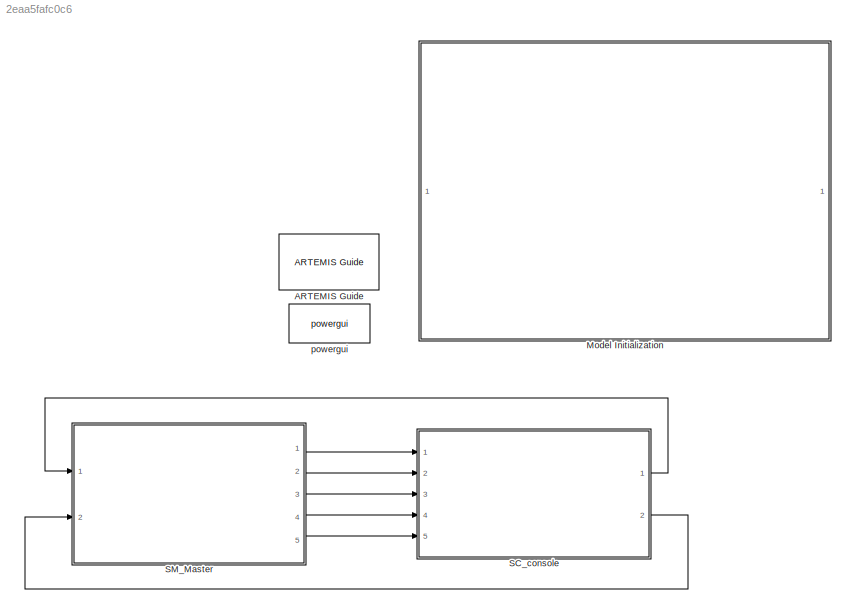
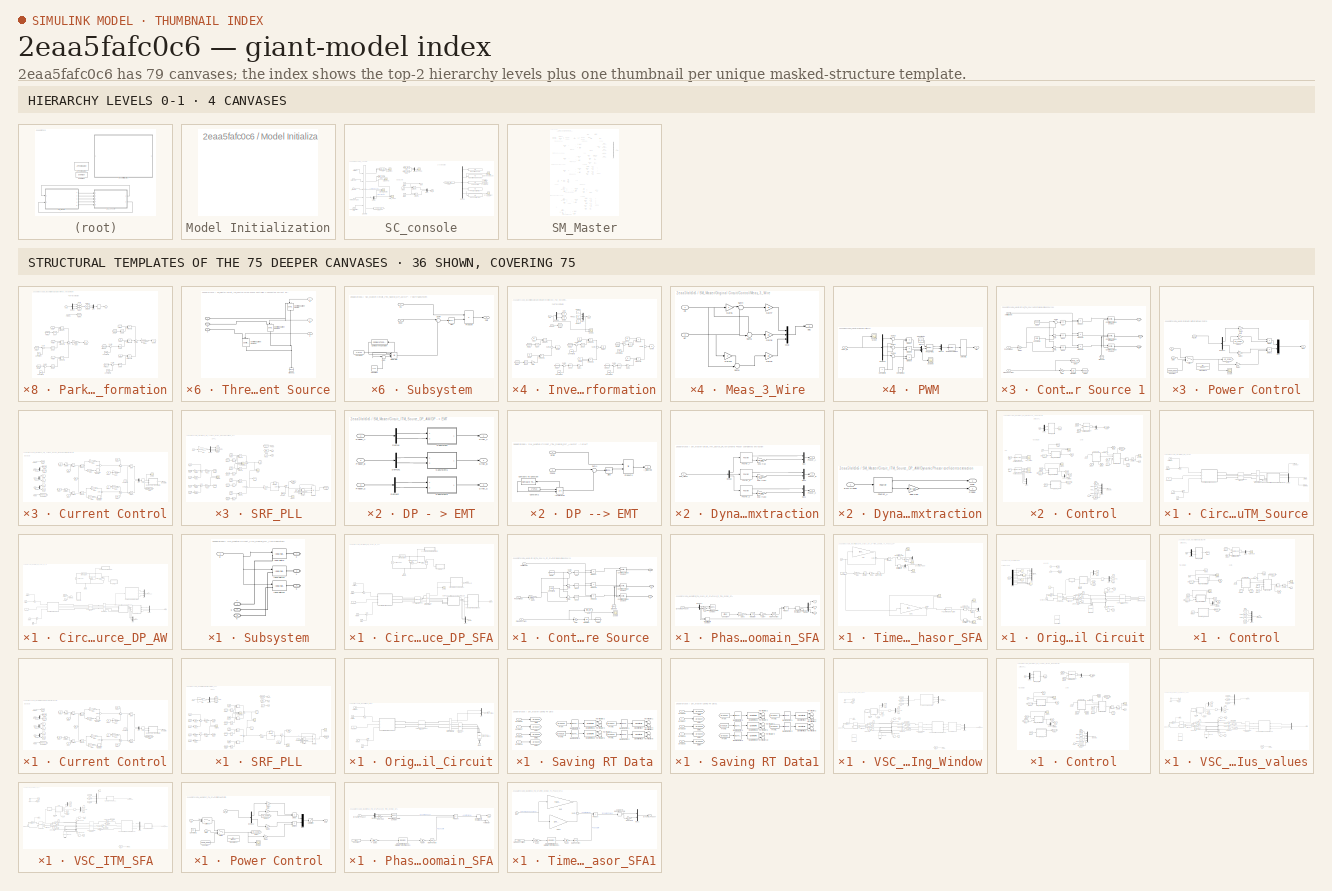
[diagram: thumbnail index - top-2 hierarchy levels (4 canvases) + 36 structural-template representatives of the remaining 75 canvases]
MODEL slx_2eaa5fafc0c6
KIND model
CONFIG AbsTol = auto
CONFIG EnableMultiTasking = on
CONFIG FixedStep = Ts
CONFIG InitFcn = %\n% Script for validation of swtiching model design with it's respective\n% average model.\n%\n% Here it is presented the design of the inverter to the 6 kW Fuel Cell\n% model. \n\n%%% Initialization %%%\n\n\n% ------------------------------------- %\n% ---------- Inverter Design ---------- %\n% ------------------------------------- %\n\n%%%% Nominal Parameters %%%%\n\nPnom = 50e3;                               ...<+1978ch>
CONFIG MaxStep = auto
CONFIG MinStep = auto
CONFIG PostLoadFcn = %\n% Script for validation of swtiching model design with it's respective\n% average model.\n%\n% Here it is presented the design of the inverter to the 6 kW Fuel Cell\n% model. \n\n%%% Initialization %%%\n\n\n% ------------------------------------- %\n% ---------- Inverter Design ---------- %\n% ------------------------------------- %\n\n%%%% Nominal Parameters %%%%\n\nPnom = 50e3;                               ...<+1978ch>
CONFIG RelTol = 1e-3
CONFIG SampleTimeConstraint = Unconstrained
CONFIG SolverName = ode4
CONFIG StartTime = 0.0
CONFIG StopTime = inf
BLOCK [Reference] ARTEMIS Guide  REF=artemis/ARTEMIS/ARTEMIS Guide
  Description = New ARTEMiS block v 7.5b (R2015b+)
  Ports = []
  SourceBlock = artemis/ARTEMIS/ARTEMIS Guide
  SourceType = ARTEMISmethode
  Tag = art7.5
BLOCK [SubSystem] Model Initialization
  AncestorBlock = artemis/Tools /Misc/Model Initialization
  CopyFcn = set_param(gcb,'LinkStatus','inactive')
  Ports = []
  RequestExecContextInheritance = off
BLOCK [SubSystem] SC_console
  Ports = [5, 2]
  RequestExecContextInheritance = off
BLOCK [Scope] SC_console/Current Comparison
  Floating = off
  NumInputPorts = 2
  Ports = [2]
  ScopeSpecificationString = Simulink.scopes.TimeScopeBlockCfg('CurrentConfiguration', extmgr.ConfigurationSet(extmgr.Configuration('Core','General UI',true),extmgr.Configuration('Core','Source UI',true),extmgr.Configuration('Sources','WiredSimulink',true,'DataLoggingVariableName','ScopeData2'),extmgr.Configuration('Visuals','Time Domain',true,'SerializedDisplays',{struct('MinYLimReal','-470.3044','MaxYLimReal','225.84403','Y...<+1597ch>
BLOCK [Demux] SC_console/Demux
  Outputs = 2
  Ports = [1, 2]
BLOCK [Demux] SC_console/Demux1
  Outputs = 5
  Ports = [1, 5]
BLOCK [Display] SC_console/Epoch time nanosecond
  Decimation = 1
  Ports = [1]
BLOCK [Scope] SC_console/Epoch time nanosecond scope
  Floating = off
  NumInputPorts = 1
  Ports = [1]
  ScopeSpecificationString = Simulink.scopes.TimeScopeBlockCfg('CurrentConfiguration', extmgr.ConfigurationSet(extmgr.Configuration('Core','General UI',true),extmgr.Configuration('Core','Source UI',true),extmgr.Configuration('Sources','WiredSimulink',true,'DataLoggingSaveFormat','StructureWithTime','DataLoggingLimitDataPoints',true,'DataLoggingDecimation','1','DataLoggingDecimateData',true,'DataLoggingVariableName','ScopeData...<+911ch>
BLOCK [Display] SC_console/Epoch time second
  Decimation = 1
  Format = long
  Ports = [1]
BLOCK [From] SC_console/From
  GotoTag = data_recv
BLOCK [From] SC_console/From1
  GotoTag = data_send
BLOCK [From] SC_console/From2
  GotoTag = synch_oregano
BLOCK [Goto] SC_console/Goto
  GotoTag = data_recv
BLOCK [Goto] SC_console/Goto1
  GotoTag = data_send
BLOCK [Goto] SC_console/Goto2
  GotoTag = synch_oregano
BLOCK [Inport] SC_console/I_injected
  Port = 3
BLOCK [Mux] SC_console/Mux
  DisplayOption = bar
  Inputs = 2
  Ports = [2, 1]
BLOCK [Mux] SC_console/Mux1
  DisplayOption = bar
  Inputs = 2
  Ports = [2, 1]
BLOCK [Reference] SC_console/OpComm  REF=rtlab/OpComm
  Ports = [5, 5]
  SourceBlock = rtlab/OpComm
  SourceProductName = RT-LAB
  SourceType = RT-LAB OpComm
BLOCK [Outport] SC_console/PQ_ref
  Port = 2
BLOCK [Display] SC_console/PTP Slave Offset (ns)
  Decimation = 1
  Ports = [1]
BLOCK [Display] SC_console/PTP Sync State
  Decimation = 1
  Ports = [1]
BLOCK [Product] SC_console/Product
  Ports = [2, 1]
BLOCK [Product] SC_console/Product1
  Ports = [2, 1]
BLOCK [Inport] SC_console/Reference Values
  Port = 4
BLOCK [Step] SC_console/Step1
  After = 25e3
  SampleTime = 0
  Time = 2
BLOCK [Step] SC_console/Step2
  After = 10e3
  SampleTime = 0
  Time = 3
BLOCK [Step] SC_console/Step3
  SampleTime = 0
BLOCK [Display] SC_console/Sync Accuracy (ns)
  Decimation = 1
  Format = long
  Ports = [1]
BLOCK [Scope] SC_console/Sync Accuracy scope
  Floating = off
  NumInputPorts = 1
  Ports = [1]
  ScopeSpecificationString = Simulink.scopes.TimeScopeBlockCfg('CurrentConfiguration', extmgr.ConfigurationSet(extmgr.Configuration('Core','General UI',true),extmgr.Configuration('Core','Source UI',true),extmgr.Configuration('Sources','WiredSimulink',true,'DataLoggingVariableName','ScopeData2','DataLoggingSaveFormat','StructureWithTime','DataLoggingLimitDataPoints',true,'DataLoggingDecimation','1','DataLoggingDecimateData',tr...<+911ch>
BLOCK [Inport] SC_console/Synchronization data
  Port = 5
BLOCK [Inport] SC_console/data recv
BLOCK [Inport] SC_console/data send
  Port = 2
BLOCK [Scope] SC_console/data_recv
  Floating = off
  NumInputPorts = 1
  Ports = [1]
  ScopeSpecificationString = Simulink.scopes.TimeScopeBlockCfg('CurrentConfiguration', extmgr.ConfigurationSet(extmgr.Configuration('Core','General UI',true),extmgr.Configuration('Core','Source UI',true),extmgr.Configuration('Sources','WiredSimulink',true,'DataLoggingVariableName','ScopeData3','DataLoggingSaveFormat','StructureWithTime','DataLoggingLimitDataPoints',true,'DataLoggingDecimation','1','DataLoggingDecimateData',tr...<+1768ch>
BLOCK [Scope] SC_console/data_send
  Floating = off
  NumInputPorts = 1
  Ports = [1]
  ScopeSpecificationString = Simulink.scopes.TimeScopeBlockCfg('CurrentConfiguration', extmgr.ConfigurationSet(extmgr.Configuration('Core','General UI',true),extmgr.Configuration('Core','Source UI',true),extmgr.Configuration('Sources','WiredSimulink',true,'DataLoggingVariableName','ScopeData4','DataLoggingSaveFormat','StructureWithTime','DataLoggingLimitDataPoints',true,'DataLoggingDecimation','1','DataLoggingDecimateData',tr...<+1945ch>
BLOCK [Scope] SC_console/data_send1
  Floating = off
  NumInputPorts = 2
  Ports = [2]
  ScopeSpecificationString = Simulink.scopes.TimeScopeBlockCfg('CurrentConfiguration', extmgr.ConfigurationSet(extmgr.Configuration('Core','General UI',true),extmgr.Configuration('Core','Source UI',true),extmgr.Configuration('Sources','WiredSimulink',true,'DataLoggingVariableName','ScopeData1','DataLoggingSaveFormat','StructureWithTime','DataLoggingLimitDataPoints',true,'DataLoggingDecimation','1','DataLoggingDecimateData',tr...<+2088ch>
BLOCK [Outport] SC_console/dblk
BLOCK [Scope] SC_console/recv_send
  Floating = off
  NumInputPorts = 1
  Ports = [1]
  ScopeSpecificationString = Simulink.scopes.TimeScopeBlockCfg('CurrentConfiguration', extmgr.ConfigurationSet(extmgr.Configuration('Core','General UI',true),extmgr.Configuration('Core','Source UI',true),extmgr.Configuration('Sources','WiredSimulink',true,'DataLoggingSaveFormat','StructureWithTime','DataLoggingLimitDataPoints',true,'DataLoggingDecimation','1','DataLoggingDecimateData',true),extmgr.Configuration('Visuals','Tim...<+1840ch>
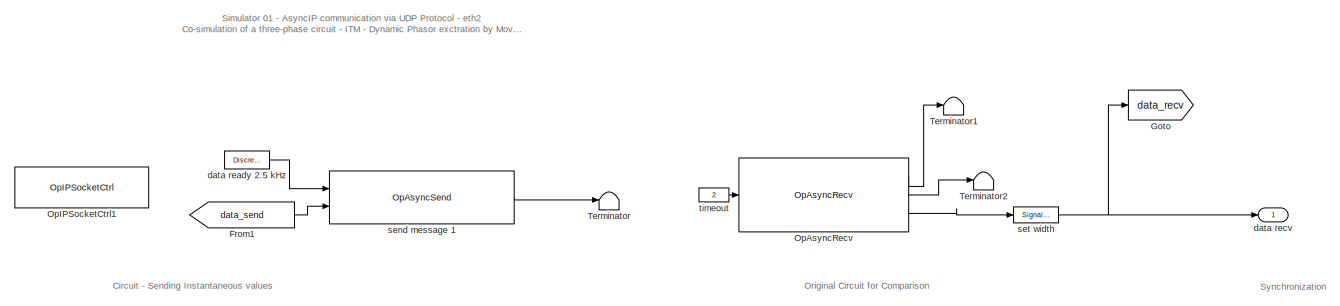
[diagram: SM_Master - part 1/5, full width, top band]
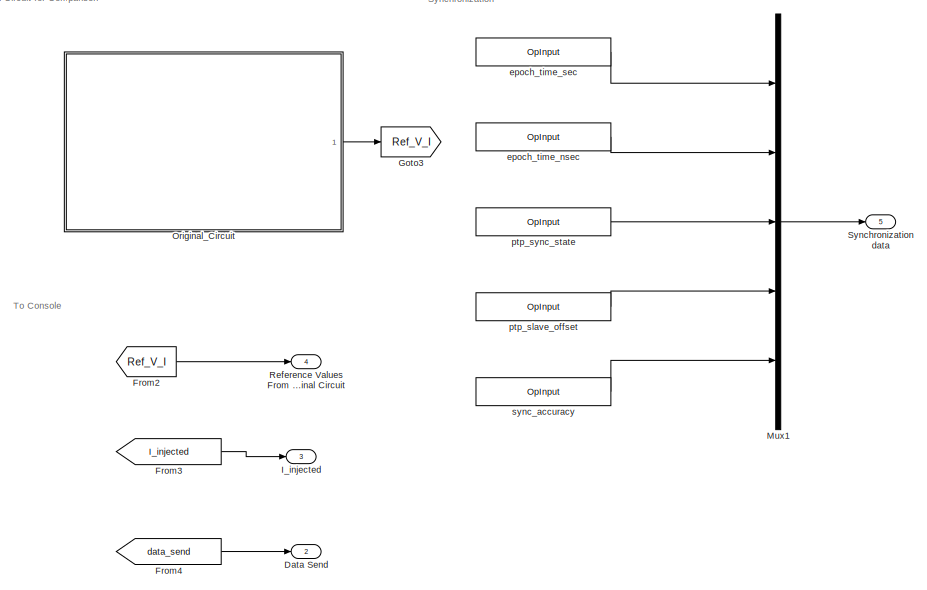
[diagram: SM_Master - part 2/5, top right region]
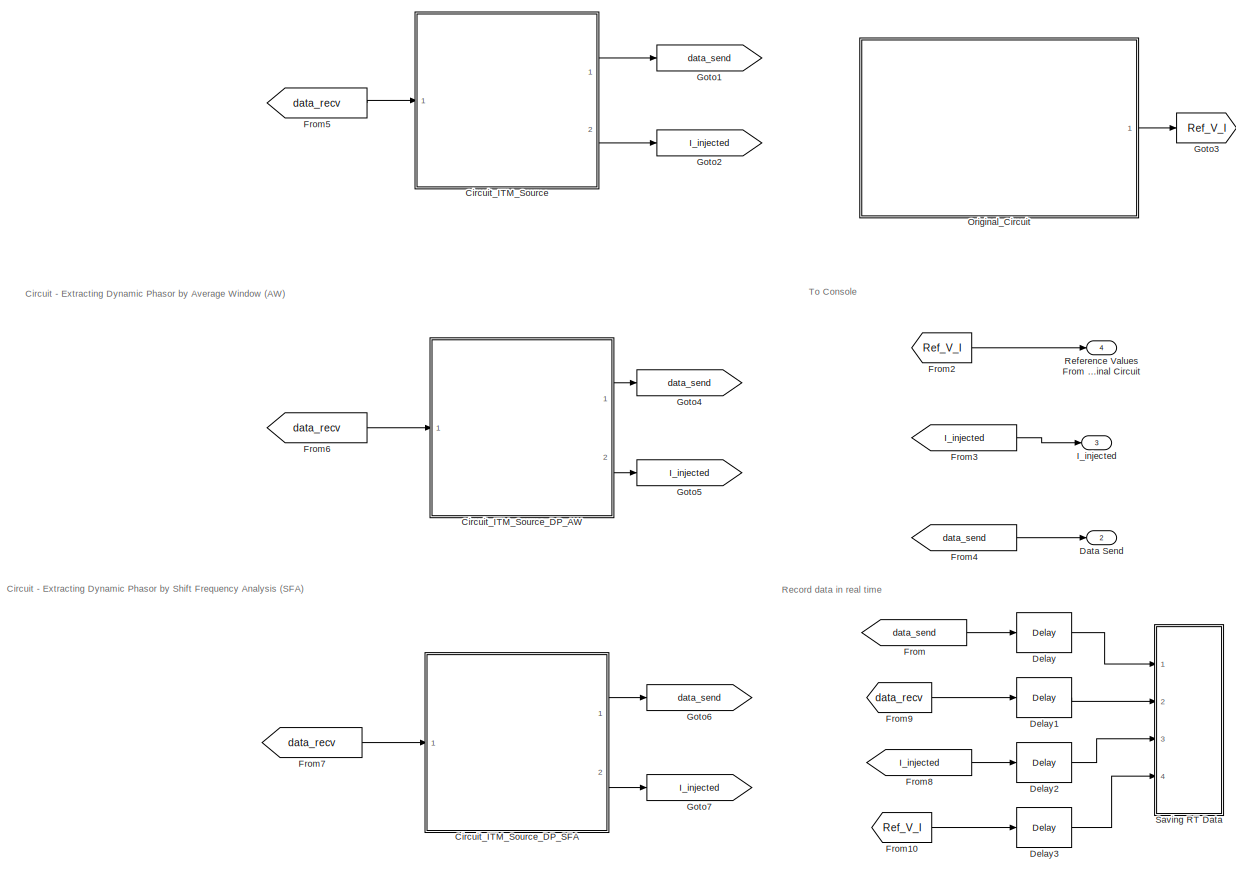
[diagram: SM_Master - part 3/5, central region]
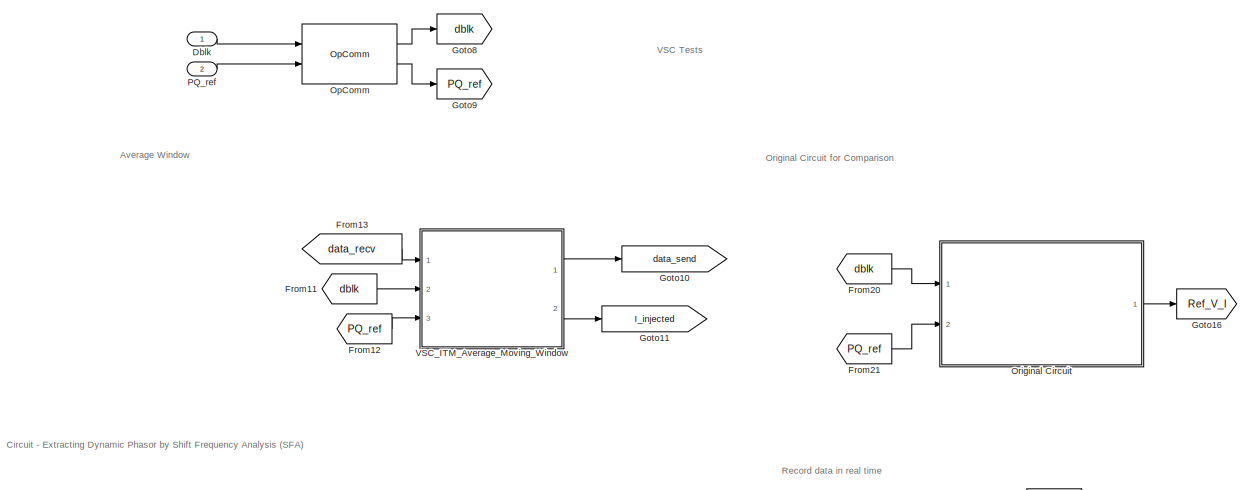
[diagram: SM_Master - part 4/5, bottom center region]
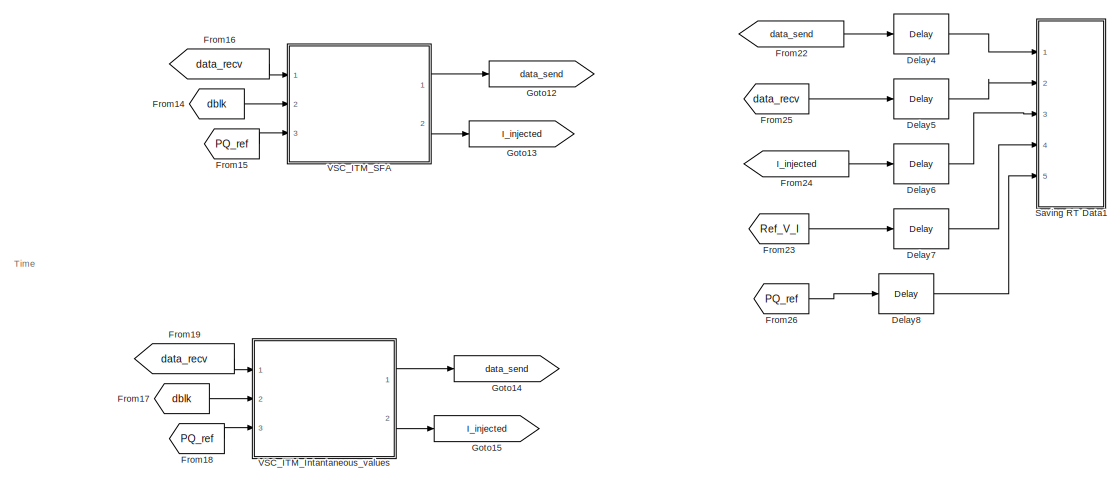
[diagram: SM_Master - part 5/5, bottom center region]
BLOCK [SubSystem] SM_Master
  Ports = [2, 5]
  RequestExecContextInheritance = off
BLOCK [SubSystem] SM_Master/Circuit_ITM_Source
  Commented = on
  Ports = [1, 2]
  RequestExecContextInheritance = off
BLOCK [Step] SM_Master/Circuit_ITM_Source/Amplitude
  After = 220*sqrt(2/3)
  Before = 220*sqrt(2/3)
  SampleTime = Ts
  Time = 3
BLOCK [Step] SM_Master/Circuit_ITM_Source/Amplitude1 
  After = 0
  SampleTime = Ts
  Time = 4
BLOCK [SubSystem] SM_Master/Circuit_ITM_Source/Controllable Voltage Source 1
  Ports = [3, 0, 0, 0, 0, 0, 3]
  RequestExecContextInheritance = off
BLOCK [PMIOPort] SM_Master/Circuit_ITM_Source/Controllable Voltage Source 1/A
  Side = Right
BLOCK [Inport] SM_Master/Circuit_ITM_Source/Controllable Voltage Source 1/Amplitude [V]
BLOCK [PMIOPort] SM_Master/Circuit_ITM_Source/Controllable Voltage Source 1/B
  Port = 2
  Side = Right
BLOCK [PMIOPort] SM_Master/Circuit_ITM_Source/Controllable Voltage Source 1/C
  Port = 3
  Side = Right
BLOCK [Constant] SM_Master/Circuit_ITM_Source/Controllable Voltage Source 1/Constant1
  Value = 2*pi/3
BLOCK [Reference] SM_Master/Circuit_ITM_Source/Controllable Voltage Source 1/Controlled Voltage Source3  REF=spsControlledVoltageSourceLib/Controlled Voltage Source
  Ports = [1, 0, 0, 0, 0, 1, 1]
  SourceBlock = spsControlledVoltageSourceLib/Controlled Voltage Source
  SourceProductBaseCode = PS
  SourceType = Controlled Voltage Source
BLOCK [Reference] SM_Master/Circuit_ITM_Source/Controllable Voltage Source 1/Controlled Voltage Source4  REF=spsControlledVoltageSourceLib/Controlled Voltage Source
  Ports = [1, 0, 0, 0, 0, 1, 1]
  SourceBlock = spsControlledVoltageSourceLib/Controlled Voltage Source
  SourceProductBaseCode = PS
  SourceType = Controlled Voltage Source
BLOCK [Reference] SM_Master/Circuit_ITM_Source/Controllable Voltage Source 1/Controlled Voltage Source5  REF=spsControlledVoltageSourceLib/Controlled Voltage Source
  Ports = [1, 0, 0, 0, 0, 1, 1]
  SourceBlock = spsControlledVoltageSourceLib/Controlled Voltage Source
  SourceProductBaseCode = PS
  SourceType = Controlled Voltage Source
BLOCK [Trigonometry] SM_Master/Circuit_ITM_Source/Controllable Voltage Source 1/Cos
  Operator = cos
  Ports = [1, 1]
BLOCK [Trigonometry] SM_Master/Circuit_ITM_Source/Controllable Voltage Source 1/Cos1
  Operator = cos
  Ports = [1, 1]
BLOCK [Trigonometry] SM_Master/Circuit_ITM_Source/Controllable Voltage Source 1/Cos2
  Operator = cos
  Ports = [1, 1]
BLOCK [Inport] SM_Master/Circuit_ITM_Source/Controllable Voltage Source 1/Frequency [Hz]
  Port = 3
BLOCK [From] SM_Master/Circuit_ITM_Source/Controllable Voltage Source 1/From9
  GotoTag = phase
BLOCK [Gain] SM_Master/Circuit_ITM_Source/Controllable Voltage Source 1/Gain
  Gain = 2*pi
BLOCK [Gain] SM_Master/Circuit_ITM_Source/Controllable Voltage Source 1/Gain1
  Gain = pi/180
BLOCK [Goto] SM_Master/Circuit_ITM_Source/Controllable Voltage Source 1/Goto6
  GotoTag = phase
BLOCK [Goto] SM_Master/Circuit_ITM_Source/Controllable Voltage Source 1/Goto7
  GotoTag = freq_ref
BLOCK [Reference] SM_Master/Circuit_ITM_Source/Controllable Voltage Source 1/Ground5  REF=spsGroundLib/Ground
  NameLocation = right
  Ports = [0, 0, 0, 0, 0, 1]
  SourceBlock = spsGroundLib/Ground
  SourceProductBaseCode = PS
  SourceType = Ground
BLOCK [Integrator] SM_Master/Circuit_ITM_Source/Controllable Voltage Source 1/Integrator
  Ports = [1, 1]
  WrapState = on
  WrappedStateLowerValue = 0
  WrappedStateUpperValue = 2*pi
BLOCK [Inport] SM_Master/Circuit_ITM_Source/Controllable Voltage Source 1/Phase [Deg]
  Port = 2
BLOCK [Product] SM_Master/Circuit_ITM_Source/Controllable Voltage Source 1/Product
  Ports = [2, 1]
BLOCK [Product] SM_Master/Circuit_ITM_Source/Controllable Voltage Source 1/Product1
  Ports = [2, 1]
BLOCK [Product] SM_Master/Circuit_ITM_Source/Controllable Voltage Source 1/Product2
  Ports = [2, 1]
BLOCK [Sum] SM_Master/Circuit_ITM_Source/Controllable Voltage Source 1/Sum
  Inputs = ++-
  Ports = [3, 1]
BLOCK [Sum] SM_Master/Circuit_ITM_Source/Controllable Voltage Source 1/Sum1
  Inputs = +++
  Ports = [3, 1]
BLOCK [Sum] SM_Master/Circuit_ITM_Source/Controllable Voltage Source 1/Sum2
  Inputs = |++
  Ports = [2, 1]
BLOCK [Inport] SM_Master/Circuit_ITM_Source/Data_In
  NameLocation = top
BLOCK [Demux] SM_Master/Circuit_ITM_Source/Demux
  NameLocation = top
  Outputs = 3
  Ports = [1, 3]
BLOCK [Step] SM_Master/Circuit_ITM_Source/Freq
  After = 0
  SampleTime = Ts
  Time = 2.8
BLOCK [Step] SM_Master/Circuit_ITM_Source/Freq Ref
  After = 60
  Before = 60
  SampleTime = Ts
  Time = 2
BLOCK [Outport] SM_Master/Circuit_ITM_Source/I_injected
  Port = 2
BLOCK [Constant] SM_Master/Circuit_ITM_Source/Phase Ref
  SampleTime = Ts
  Value = 0
BLOCK [Sum] SM_Master/Circuit_ITM_Source/Sum
  Inputs = -+|
  Ports = [2, 1]
BLOCK [Sum] SM_Master/Circuit_ITM_Source/Sum1
  Inputs = |+-
  Ports = [2, 1]
BLOCK [SubSystem] SM_Master/Circuit_ITM_Source/Three-Phase Controlled Y-Connected Current Source
  PortSchema = {"entries":[{"content":{"sides":[{"content":{"connectorIds":["LConn1","LConn2","LConn3"]},"type":"ConnectorPlacement.EquallySpacedRectSide","uuid":"a8a67328-a09d-4495-b33c-aaf3ca0795cb"},{"content":{"connectorIds":["In1","In2","In3"],"side":"RIGHT"},"type":"ConnectorPlacement.EquallySpacedRectSide","uuid":"ca8d97e2-0dea-49aa-8cb7-235b4eace1f8"},{"content":{"connectorIds":[],"side":"TOP"},"type":"C...<+274ch>  <repeated x3 — deduplicated; at blocks: Three-Phase Controlled Y-Connected Current Sour…>
  Ports = [3, 0, 0, 0, 0, 3]
  RequestExecContextInheritance = off
BLOCK [PMIOPort] SM_Master/Circuit_ITM_Source/Three-Phase Controlled Y-Connected Current Source/A
  Side = Left
BLOCK [PMIOPort] SM_Master/Circuit_ITM_Source/Three-Phase Controlled Y-Connected Current Source/B
  Port = 2
  Side = Left
BLOCK [PMIOPort] SM_Master/Circuit_ITM_Source/Three-Phase Controlled Y-Connected Current Source/C
  Port = 3
  Side = Left
BLOCK [Reference] SM_Master/Circuit_ITM_Source/Three-Phase Controlled Y-Connected Current Source/Controlled Current Source  REF=spsControlledCurrentSourceLib/Controlled Current Source
  NameLocation = right
  Ports = [1, 0, 0, 0, 0, 1, 1]
  SourceBlock = spsControlledCurrentSourceLib/Controlled Current Source
  SourceProductBaseCode = PS
  SourceType = Controlled Current Source
BLOCK [Reference] SM_Master/Circuit_ITM_Source/Three-Phase Controlled Y-Connected Current Source/Controlled Current Source1  REF=spsControlledCurrentSourceLib/Controlled Current Source
  NameLocation = left
  Ports = [1, 0, 0, 0, 0, 1, 1]
  SourceBlock = spsControlledCurrentSourceLib/Controlled Current Source
  SourceProductBaseCode = PS
  SourceType = Controlled Current Source
BLOCK [Reference] SM_Master/Circuit_ITM_Source/Three-Phase Controlled Y-Connected Current Source/Controlled Current Source2  REF=spsControlledCurrentSourceLib/Controlled Current Source
  NameLocation = left
  Ports = [1, 0, 0, 0, 0, 1, 1]
  SourceBlock = spsControlledCurrentSourceLib/Controlled Current Source
  SourceProductBaseCode = PS
  SourceType = Controlled Current Source
BLOCK [Reference] SM_Master/Circuit_ITM_Source/Three-Phase Controlled Y-Connected Current Source/Ground1  REF=spsGroundLib/Ground
  NameLocation = right
  Ports = [0, 0, 0, 0, 0, 1]
  SourceBlock = spsGroundLib/Ground
  SourceProductBaseCode = PS
  SourceType = Ground
BLOCK [Inport] SM_Master/Circuit_ITM_Source/Three-Phase Controlled Y-Connected Current Source/Ia
  NameLocation = top
BLOCK [Inport] SM_Master/Circuit_ITM_Source/Three-Phase Controlled Y-Connected Current Source/Ib
  NameLocation = top
  Port = 2
BLOCK [Inport] SM_Master/Circuit_ITM_Source/Three-Phase Controlled Y-Connected Current Source/Ic
  NameLocation = top
  Port = 3
BLOCK [Reference] SM_Master/Circuit_ITM_Source/Three-Phase Series RLC Branch1  REF=spsThreePhaseSeriesRLCBranchLib/Three-Phase
Series RLC Branch
  AttributesFormatString = \n
  Ports = [0, 0, 0, 0, 0, 3, 3]
  SourceBlock = spsThreePhaseSeriesRLCBranchLib/Three-Phase\nSeries RLC Branch
  SourceProductBaseCode = PS
  SourceType = Three-Phase Series RLC Branch
BLOCK [Reference] SM_Master/Circuit_ITM_Source/Three-Phase V-I Measurement  REF=spsThreePhaseVIMeasurementLib/Three-Phase
V-I Measurement
  Ports = [0, 2, 0, 0, 0, 3, 3]
  SourceBlock = spsThreePhaseVIMeasurementLib/Three-Phase\nV-I Measurement
  SourceProductBaseCode = PS
  SourceType = Three-Phase VI Measurement
BLOCK [Outport] SM_Master/Circuit_ITM_Source/Vabc_out
BLOCK [SubSystem] SM_Master/Circuit_ITM_Source_DP_AW
  Commented = on
  Ports = [1, 2]
  RequestExecContextInheritance = off
BLOCK [Reference] SM_Master/Circuit_ITM_Source_DP_AW/AC Voltage Source  REF=spsACVoltageSourceLib/AC Voltage Source
  Commented = on
  NameLocation = right
  Ports = [0, 0, 0, 0, 0, 1, 1]
  SourceBlock = spsACVoltageSourceLib/AC Voltage Source
  SourceProductBaseCode = PS
  SourceType = AC Voltage Source
BLOCK [Step] SM_Master/Circuit_ITM_Source_DP_AW/Amplitude
  After = 220*sqrt(2/3)*0.8
  Before = 220*sqrt(2/3)
  SampleTime = Ts
  Time = 3
BLOCK [Step] SM_Master/Circuit_ITM_Source_DP_AW/Amplitude1 
  After = -220*sqrt(2/3)*0.2
  SampleTime = Ts
  Time = 4
BLOCK [Constant] SM_Master/Circuit_ITM_Source_DP_AW/Constant
  Commented = on
  SampleTime = Ts
  Value = 5/60
BLOCK [SubSystem] SM_Master/Circuit_ITM_Source_DP_AW/Controllable Voltage Source 
  Ports = [3, 0, 0, 0, 0, 0, 3]
  RequestExecContextInheritance = off
BLOCK [PMIOPort] SM_Master/Circuit_ITM_Source_DP_AW/Controllable Voltage Source /A
  Side = Right
BLOCK [Inport] SM_Master/Circuit_ITM_Source_DP_AW/Controllable Voltage Source /Amplitude [V]
BLOCK [PMIOPort] SM_Master/Circuit_ITM_Source_DP_AW/Controllable Voltage Source /B
  Port = 2
  Side = Right
BLOCK [PMIOPort] SM_Master/Circuit_ITM_Source_DP_AW/Controllable Voltage Source /C
  Port = 3
  Side = Right
BLOCK [Constant] SM_Master/Circuit_ITM_Source_DP_AW/Controllable Voltage Source /Constant1
  Value = 2*pi/3
BLOCK [Reference] SM_Master/Circuit_ITM_Source_DP_AW/Controllable Voltage Source /Controlled Voltage Source3  REF=spsControlledVoltageSourceLib/Controlled Voltage Source
  Ports = [1, 0, 0, 0, 0, 1, 1]
  SourceBlock = spsControlledVoltageSourceLib/Controlled Voltage Source
  SourceProductBaseCode = PS
  SourceType = Controlled Voltage Source
BLOCK [Reference] SM_Master/Circuit_ITM_Source_DP_AW/Controllable Voltage Source /Controlled Voltage Source4  REF=spsControlledVoltageSourceLib/Controlled Voltage Source
  Ports = [1, 0, 0, 0, 0, 1, 1]
  SourceBlock = spsControlledVoltageSourceLib/Controlled Voltage Source
  SourceProductBaseCode = PS
  SourceType = Controlled Voltage Source
BLOCK [Reference] SM_Master/Circuit_ITM_Source_DP_AW/Controllable Voltage Source /Controlled Voltage Source5  REF=spsControlledVoltageSourceLib/Controlled Voltage Source
  Ports = [1, 0, 0, 0, 0, 1, 1]
  SourceBlock = spsControlledVoltageSourceLib/Controlled Voltage Source
  SourceProductBaseCode = PS
  SourceType = Controlled Voltage Source
BLOCK [Trigonometry] SM_Master/Circuit_ITM_Source_DP_AW/Controllable Voltage Source /Cos
  Operator = cos
  Ports = [1, 1]
BLOCK [Trigonometry] SM_Master/Circuit_ITM_Source_DP_AW/Controllable Voltage Source /Cos1
  Operator = cos
  Ports = [1, 1]
BLOCK [Trigonometry] SM_Master/Circuit_ITM_Source_DP_AW/Controllable Voltage Source /Cos2
  Operator = cos
  Ports = [1, 1]
BLOCK [Inport] SM_Master/Circuit_ITM_Source_DP_AW/Controllable Voltage Source /Frequency [Hz]
  Port = 3
BLOCK [From] SM_Master/Circuit_ITM_Source_DP_AW/Controllable Voltage Source /From9
  GotoTag = phase
BLOCK [Gain] SM_Master/Circuit_ITM_Source_DP_AW/Controllable Voltage Source /Gain
  Gain = 2*pi
BLOCK [Gain] SM_Master/Circuit_ITM_Source_DP_AW/Controllable Voltage Source /Gain1
  Gain = pi/180
BLOCK [Goto] SM_Master/Circuit_ITM_Source_DP_AW/Controllable Voltage Source /Goto6
  GotoTag = phase
BLOCK [Goto] SM_Master/Circuit_ITM_Source_DP_AW/Controllable Voltage Source /Goto7
  GotoTag = freq_ref
BLOCK [Reference] SM_Master/Circuit_ITM_Source_DP_AW/Controllable Voltage Source /Ground5  REF=spsGroundLib/Ground
  NameLocation = right
  Ports = [0, 0, 0, 0, 0, 1]
  SourceBlock = spsGroundLib/Ground
  SourceProductBaseCode = PS
  SourceType = Ground
BLOCK [Integrator] SM_Master/Circuit_ITM_Source_DP_AW/Controllable Voltage Source /Integrator
  Ports = [1, 1]
  WrapState = on
  WrappedStateLowerValue = 0
  WrappedStateUpperValue = 2*pi
BLOCK [Inport] SM_Master/Circuit_ITM_Source_DP_AW/Controllable Voltage Source /Phase [Deg]
  Port = 2
BLOCK [Product] SM_Master/Circuit_ITM_Source_DP_AW/Controllable Voltage Source /Product
  Ports = [2, 1]
BLOCK [Product] SM_Master/Circuit_ITM_Source_DP_AW/Controllable Voltage Source /Product1
  Ports = [2, 1]
BLOCK [Product] SM_Master/Circuit_ITM_Source_DP_AW/Controllable Voltage Source /Product2
  Ports = [2, 1]
BLOCK [Sum] SM_Master/Circuit_ITM_Source_DP_AW/Controllable Voltage Source /Sum
  Inputs = ++-
  Ports = [3, 1]
BLOCK [Sum] SM_Master/Circuit_ITM_Source_DP_AW/Controllable Voltage Source /Sum1
  Inputs = +++
  Ports = [3, 1]
BLOCK [Sum] SM_Master/Circuit_ITM_Source_DP_AW/Controllable Voltage Source /Sum2
  Inputs = |++
  Ports = [2, 1]
BLOCK [Reference] SM_Master/Circuit_ITM_Source_DP_AW/Controlled Current Source  REF=spsControlledCurrentSourceLib/Controlled Current Source
  Commented = on
  NameLocation = left
  Ports = [1, 0, 0, 0, 0, 1, 1]
  SourceBlock = spsControlledCurrentSourceLib/Controlled Current Source
  SourceProductBaseCode = PS
  SourceType = Controlled Current Source
BLOCK [SubSystem] SM_Master/Circuit_ITM_Source_DP_AW/DP - > EMT
  NameLocation = top
  Ports = [3, 3]
  RequestExecContextInheritance = off
BLOCK [Demux] SM_Master/Circuit_ITM_Source_DP_AW/DP - > EMT/Demux
  Outputs = 2
  Ports = [1, 2]
BLOCK [Demux] SM_Master/Circuit_ITM_Source_DP_AW/DP - > EMT/Demux1
  Outputs = 2
  Ports = [1, 2]
BLOCK [Demux] SM_Master/Circuit_ITM_Source_DP_AW/DP - > EMT/Demux2
  Outputs = 2
  Ports = [1, 2]
BLOCK [Inport] SM_Master/Circuit_ITM_Source_DP_AW/DP - > EMT/Phasor_A
BLOCK [Inport] SM_Master/Circuit_ITM_Source_DP_AW/DP - > EMT/Phasor_B
  Port = 2
BLOCK [Inport] SM_Master/Circuit_ITM_Source_DP_AW/DP - > EMT/Phasor_C
  Port = 3
BLOCK [Outport] SM_Master/Circuit_ITM_Source_DP_AW/DP - > EMT/Sinal_A
BLOCK [Outport] SM_Master/Circuit_ITM_Source_DP_AW/DP - > EMT/Sinal_B
  Port = 2
BLOCK [Outport] SM_Master/Circuit_ITM_Source_DP_AW/DP - > EMT/Sinal_C
  Port = 3
BLOCK [SubSystem] SM_Master/Circuit_ITM_Source_DP_AW/DP - > EMT/Subsystem
  Ports = [2, 1]
  RequestExecContextInheritance = off
BLOCK [Reference] SM_Master/Circuit_ITM_Source_DP_AW/DP - > EMT/Subsystem/Compare To Constant  REF=simulink/Logic and Bit
Operations/Compare
To Constant
  NameLocation = top
  Ports = [1, 1]
  SourceBlock = simulink/Logic and Bit\nOperations/Compare\nTo Constant
  SourceProductBaseCode = SL
  SourceType = Compare To Constant
BLOCK [Constant] SM_Master/Circuit_ITM_Source_DP_AW/DP - > EMT/Subsystem/Constant
  Value = 2*pi
BLOCK [Constant] SM_Master/Circuit_ITM_Source_DP_AW/DP - > EMT/Subsystem/Constant2
  Value = 2*pi*60
BLOCK [Inport] SM_Master/Circuit_ITM_Source_DP_AW/DP - > EMT/Subsystem/In1
BLOCK [Inport] SM_Master/Circuit_ITM_Source_DP_AW/DP - > EMT/Subsystem/Input
  Port = 2
BLOCK [Integrator] SM_Master/Circuit_ITM_Source_DP_AW/DP - > EMT/Subsystem/Integrator
  ExternalReset = rising
  InitialConditionSource = external
  Ports = [3, 1, 0, 0, 1]
  ShowStatePort = on
BLOCK [Outport] SM_Master/Circuit_ITM_Source_DP_AW/DP - > EMT/Subsystem/Out1
BLOCK [Product] SM_Master/Circuit_ITM_Source_DP_AW/DP - > EMT/Subsystem/Product4
  Ports = [2, 1]
BLOCK [Trigonometry] SM_Master/Circuit_ITM_Source_DP_AW/DP - > EMT/Subsystem/Sin3
  Ports = [1, 1]
BLOCK [Sum] SM_Master/Circuit_ITM_Source_DP_AW/DP - > EMT/Subsystem/Sum
  Inputs = |+-
  Ports = [2, 1]
BLOCK [Sum] SM_Master/Circuit_ITM_Source_DP_AW/DP - > EMT/Subsystem/Sum4
  Inputs = |++
  NameLocation = top
  Ports = [2, 1]
BLOCK [SubSystem] SM_Master/Circuit_ITM_Source_DP_AW/DP - > EMT/Subsystem1
  Ports = [2, 1]
  RequestExecContextInheritance = off
BLOCK [Reference] SM_Master/Circuit_ITM_Source_DP_AW/DP - > EMT/Subsystem1/Compare To Constant  REF=simulink/Logic and Bit
Operations/Compare
To Constant
  NameLocation = top
  Ports = [1, 1]
  SourceBlock = simulink/Logic and Bit\nOperations/Compare\nTo Constant
  SourceProductBaseCode = SL
  SourceType = Compare To Constant
BLOCK [Constant] SM_Master/Circuit_ITM_Source_DP_AW/DP - > EMT/Subsystem1/Constant
  Value = 2*pi
BLOCK [Constant] SM_Master/Circuit_ITM_Source_DP_AW/DP - > EMT/Subsystem1/Constant2
  Value = 2*pi*60
BLOCK [Inport] SM_Master/Circuit_ITM_Source_DP_AW/DP - > EMT/Subsystem1/In1
BLOCK [Inport] SM_Master/Circuit_ITM_Source_DP_AW/DP - > EMT/Subsystem1/Input1
  Port = 2
BLOCK [Integrator] SM_Master/Circuit_ITM_Source_DP_AW/DP - > EMT/Subsystem1/Integrator
  ExternalReset = rising
  InitialConditionSource = external
  Ports = [3, 1, 0, 0, 1]
  ShowStatePort = on
BLOCK [Outport] SM_Master/Circuit_ITM_Source_DP_AW/DP - > EMT/Subsystem1/Out1
BLOCK [Product] SM_Master/Circuit_ITM_Source_DP_AW/DP - > EMT/Subsystem1/Product4
  Ports = [2, 1]
BLOCK [Trigonometry] SM_Master/Circuit_ITM_Source_DP_AW/DP - > EMT/Subsystem1/Sin3
  Ports = [1, 1]
BLOCK [Sum] SM_Master/Circuit_ITM_Source_DP_AW/DP - > EMT/Subsystem1/Sum
  Inputs = |+-
  Ports = [2, 1]
BLOCK [Sum] SM_Master/Circuit_ITM_Source_DP_AW/DP - > EMT/Subsystem1/Sum4
  Inputs = |++
  NameLocation = top
  Ports = [2, 1]
BLOCK [SubSystem] SM_Master/Circuit_ITM_Source_DP_AW/DP - > EMT/Subsystem2
  Ports = [2, 1]
  RequestExecContextInheritance = off
BLOCK [Reference] SM_Master/Circuit_ITM_Source_DP_AW/DP - > EMT/Subsystem2/Compare To Constant  REF=simulink/Logic and Bit
Operations/Compare
To Constant
  NameLocation = top
  Ports = [1, 1]
  SourceBlock = simulink/Logic and Bit\nOperations/Compare\nTo Constant
  SourceProductBaseCode = SL
  SourceType = Compare To Constant
BLOCK [Constant] SM_Master/Circuit_ITM_Source_DP_AW/DP - > EMT/Subsystem2/Constant
  Value = 2*pi
BLOCK [Constant] SM_Master/Circuit_ITM_Source_DP_AW/DP - > EMT/Subsystem2/Constant2
  Value = 2*pi*60
BLOCK [Inport] SM_Master/Circuit_ITM_Source_DP_AW/DP - > EMT/Subsystem2/In1
BLOCK [Inport] SM_Master/Circuit_ITM_Source_DP_AW/DP - > EMT/Subsystem2/Input2
  Port = 2
BLOCK [Integrator] SM_Master/Circuit_ITM_Source_DP_AW/DP - > EMT/Subsystem2/Integrator
  ExternalReset = rising
  InitialConditionSource = external
  Ports = [3, 1, 0, 0, 1]
  ShowStatePort = on
BLOCK [Outport] SM_Master/Circuit_ITM_Source_DP_AW/DP - > EMT/Subsystem2/Out1
BLOCK [Product] SM_Master/Circuit_ITM_Source_DP_AW/DP - > EMT/Subsystem2/Product4
  Ports = [2, 1]
BLOCK [Trigonometry] SM_Master/Circuit_ITM_Source_DP_AW/DP - > EMT/Subsystem2/Sin3
  Ports = [1, 1]
BLOCK [Sum] SM_Master/Circuit_ITM_Source_DP_AW/DP - > EMT/Subsystem2/Sum
  Inputs = |+-
  Ports = [2, 1]
BLOCK [Sum] SM_Master/Circuit_ITM_Source_DP_AW/DP - > EMT/Subsystem2/Sum4
  Inputs = |++
  NameLocation = top
  Ports = [2, 1]
BLOCK [SubSystem] SM_Master/Circuit_ITM_Source_DP_AW/DP --> EMT
  Commented = on
  NameLocation = top
  Ports = [2, 1]
  RequestExecContextInheritance = off
BLOCK [Reference] SM_Master/Circuit_ITM_Source_DP_AW/DP --> EMT/Compare To Constant  REF=simulink/Logic and Bit
Operations/Compare
To Constant
  NameLocation = top
  Ports = [1, 1]
  SourceBlock = simulink/Logic and Bit\nOperations/Compare\nTo Constant
  SourceProductBaseCode = SL
  SourceType = Compare To Constant
BLOCK [Constant] SM_Master/Circuit_ITM_Source_DP_AW/DP --> EMT/Constant2
  Value = 2*pi*60
BLOCK [Outport] SM_Master/Circuit_ITM_Source_DP_AW/DP --> EMT/I_injected
BLOCK [Integrator] SM_Master/Circuit_ITM_Source_DP_AW/DP --> EMT/Integrator
  ExternalReset = rising
  Ports = [2, 1, 0, 0, 1]
  ShowStatePort = on
  WrapState = on
  WrappedStateLowerValue = 0
  WrappedStateUpperValue = 2*pi
BLOCK [Inport] SM_Master/Circuit_ITM_Source_DP_AW/DP --> EMT/Mag
BLOCK [Inport] SM_Master/Circuit_ITM_Source_DP_AW/DP --> EMT/Phase
  Port = 2
BLOCK [Product] SM_Master/Circuit_ITM_Source_DP_AW/DP --> EMT/Product4
  Ports = [2, 1]
BLOCK [Trigonometry] SM_Master/Circuit_ITM_Source_DP_AW/DP --> EMT/Sin3
  Ports = [1, 1]
BLOCK [Sum] SM_Master/Circuit_ITM_Source_DP_AW/DP --> EMT/Sum4
  Inputs = |++
  NameLocation = top
  Ports = [2, 1]
BLOCK [Inport] SM_Master/Circuit_ITM_Source_DP_AW/Data_In
  NameLocation = top
BLOCK [Demux] SM_Master/Circuit_ITM_Source_DP_AW/Demux1
  NameLocation = top
  Outputs = 3
  Ports = [1, 3]
BLOCK [DigitalClock] SM_Master/Circuit_ITM_Source_DP_AW/Digital Clock
  Commented = on
  SampleTime = Ts
BLOCK [SubSystem] SM_Master/Circuit_ITM_Source_DP_AW/Dynamic Phasor coeficientes extraction
  Ports = [1, 3]
  RequestExecContextInheritance = off
BLOCK [Demux] SM_Master/Circuit_ITM_Source_DP_AW/Dynamic Phasor coeficientes extraction/Demux
  Outputs = 3
  Ports = [1, 3]
BLOCK [Inport] SM_Master/Circuit_ITM_Source_DP_AW/Dynamic Phasor coeficientes extraction/EMT_Signal
BLOCK [Reference] SM_Master/Circuit_ITM_Source_DP_AW/Dynamic Phasor coeficientes extraction/Fourier_A  REF=spsFourierLib/Fourier
  Ports = [1, 2]
  SourceBlock = spsFourierLib/Fourier
  SourceProductBaseCode = PS
  SourceType = Fourier
BLOCK [Reference] SM_Master/Circuit_ITM_Source_DP_AW/Dynamic Phasor coeficientes extraction/Fourier_B  REF=spsFourierLib/Fourier
  Ports = [1, 2]
  SourceBlock = spsFourierLib/Fourier
  SourceProductBaseCode = PS
  SourceType = Fourier
BLOCK [Reference] SM_Master/Circuit_ITM_Source_DP_AW/Dynamic Phasor coeficientes extraction/Fourier_C  REF=spsFourierLib/Fourier
  Ports = [1, 2]
  SourceBlock = spsFourierLib/Fourier
  SourceProductBaseCode = PS
  SourceType = Fourier
BLOCK [Mux] SM_Master/Circuit_ITM_Source_DP_AW/Dynamic Phasor coeficientes extraction/Mux
  DisplayOption = bar
  Inputs = 2
  Ports = [2, 1]
BLOCK [Mux] SM_Master/Circuit_ITM_Source_DP_AW/Dynamic Phasor coeficientes extraction/Mux1
  DisplayOption = bar
  Inputs = 2
  Ports = [2, 1]
BLOCK [Mux] SM_Master/Circuit_ITM_Source_DP_AW/Dynamic Phasor coeficientes extraction/Mux2
  DisplayOption = bar
  Inputs = 2
  Ports = [2, 1]
BLOCK [Outport] SM_Master/Circuit_ITM_Source_DP_AW/Dynamic Phasor coeficientes extraction/Phasor_A
BLOCK [Outport] SM_Master/Circuit_ITM_Source_DP_AW/Dynamic Phasor coeficientes extraction/Phasor_B
  Port = 2
BLOCK [Outport] SM_Master/Circuit_ITM_Source_DP_AW/Dynamic Phasor coeficientes extraction/Phasor_C
  Port = 3
BLOCK [Gain] SM_Master/Circuit_ITM_Source_DP_AW/Dynamic Phasor coeficientes extraction/deg->rad
  Gain = pi/180
  OutDataTypeStr = Inherit: Same as input
  ParamDataTypeStr = Inherit: Same as input
  SaturateOnIntegerOverflow = on
BLOCK [Gain] SM_Master/Circuit_ITM_Source_DP_AW/Dynamic Phasor coeficientes extraction/deg->rad1
  Gain = pi/180
  OutDataTypeStr = Inherit: Same as input
  ParamDataTypeStr = Inherit: Same as input
  SaturateOnIntegerOverflow = on
BLOCK [Gain] SM_Master/Circuit_ITM_Source_DP_AW/Dynamic Phasor coeficientes extraction/deg->rad2
  Gain = pi/180
  OutDataTypeStr = Inherit: Same as input
  ParamDataTypeStr = Inherit: Same as input
  SaturateOnIntegerOverflow = on
BLOCK [SubSystem] SM_Master/Circuit_ITM_Source_DP_AW/Dynamic Phasor coeficients extraction
  Commented = on
  Ports = [1, 2]
  RequestExecContextInheritance = off
BLOCK [Inport] SM_Master/Circuit_ITM_Source_DP_AW/Dynamic Phasor coeficients extraction/EMT Signal
BLOCK [Reference] SM_Master/Circuit_ITM_Source_DP_AW/Dynamic Phasor coeficients extraction/Fourier_A  REF=powerlib_meascontrol/Measurements/Fourier
  Ports = [1, 2]
  SourceBlock = powerlib_meascontrol/Measurements/Fourier
  SourceProductBaseCode = PS
  SourceType = Fourier
BLOCK [Outport] SM_Master/Circuit_ITM_Source_DP_AW/Dynamic Phasor coeficients extraction/Mag
BLOCK [Outport] SM_Master/Circuit_ITM_Source_DP_AW/Dynamic Phasor coeficients extraction/Phase
  Port = 2
BLOCK [Gain] SM_Master/Circuit_ITM_Source_DP_AW/Dynamic Phasor coeficients extraction/deg->rad
  Gain = pi/180
  OutDataTypeStr = Inherit: Same as input
  ParamDataTypeStr = Inherit: Same as input
  SaturateOnIntegerOverflow = on
BLOCK [Step] SM_Master/Circuit_ITM_Source_DP_AW/Freq
  After = -2
  SampleTime = Ts
  Time = 2.8
BLOCK [Step] SM_Master/Circuit_ITM_Source_DP_AW/Freq Ref
  After = 58
  Before = 60
  SampleTime = Ts
  Time = 2
BLOCK [RelationalOperator] SM_Master/Circuit_ITM_Source_DP_AW/GreaterThan
  Commented = on
  InputSameDT = off
  Operator = >
  OutDataTypeStr = boolean
  Ports = [2, 1]
  RndMeth = Simplest
BLOCK [Reference] SM_Master/Circuit_ITM_Source_DP_AW/Ground1  REF=spsGroundLib/Ground
  Commented = on
  NameLocation = right
  Ports = [0, 0, 0, 0, 0, 1]
  SourceBlock = spsGroundLib/Ground
  SourceProductBaseCode = PS
  SourceType = Ground
BLOCK [Outport] SM_Master/Circuit_ITM_Source_DP_AW/I_injected
  Port = 2
BLOCK [Mux] SM_Master/Circuit_ITM_Source_DP_AW/Mux
  DisplayOption = bar
  Inputs = 3
  Ports = [3, 1]
BLOCK [Mux] SM_Master/Circuit_ITM_Source_DP_AW/Mux1
  DisplayOption = bar
  Inputs = 3
  Ports = [3, 1]
BLOCK [Constant] SM_Master/Circuit_ITM_Source_DP_AW/Phase Ref
  SampleTime = Ts
  Value = 0
BLOCK [Reference] SM_Master/Circuit_ITM_Source_DP_AW/Series RLC Branch  REF=spsSeriesRLCBranchLib/Series RLC Branch
  Commented = on
  Ports = [0, 0, 0, 0, 0, 1, 1]
  SourceBlock = spsSeriesRLCBranchLib/Series RLC Branch
  SourceProductBaseCode = PS
  SourceType = Series RLC Branch
BLOCK [SubSystem] SM_Master/Circuit_ITM_Source_DP_AW/Subsystem
  Commented = on
  Ports = [1, 0, 0, 0, 0, 3, 3]
  RequestExecContextInheritance = off
BLOCK [PMIOPort] SM_Master/Circuit_ITM_Source_DP_AW/Subsystem/1
  Port = 2
  Side = Right
BLOCK [PMIOPort] SM_Master/Circuit_ITM_Source_DP_AW/Subsystem/2
  Side = Right
BLOCK [PMIOPort] SM_Master/Circuit_ITM_Source_DP_AW/Subsystem/3
  Port = 3
  Side = Right
BLOCK [PMIOPort] SM_Master/Circuit_ITM_Source_DP_AW/Subsystem/4
  Port = 4
  Side = Left
BLOCK [PMIOPort] SM_Master/Circuit_ITM_Source_DP_AW/Subsystem/5
  Port = 5
  Side = Left
BLOCK [PMIOPort] SM_Master/Circuit_ITM_Source_DP_AW/Subsystem/6
  Port = 6
  Side = Left
BLOCK [Reference] SM_Master/Circuit_ITM_Source_DP_AW/Subsystem/Ideal Switch  REF=spsIdealSwitchLib/Ideal Switch
  Ports = [1, 0, 0, 0, 0, 1, 1]
  SourceBlock = spsIdealSwitchLib/Ideal Switch
  SourceProductBaseCode = PS
  SourceType = Ideal Switch
BLOCK [Reference] SM_Master/Circuit_ITM_Source_DP_AW/Subsystem/Ideal Switch1  REF=spsIdealSwitchLib/Ideal Switch
  Ports = [1, 0, 0, 0, 0, 1, 1]
  SourceBlock = spsIdealSwitchLib/Ideal Switch
  SourceProductBaseCode = PS
  SourceType = Ideal Switch
BLOCK [Reference] SM_Master/Circuit_ITM_Source_DP_AW/Subsystem/Ideal Switch2  REF=spsIdealSwitchLib/Ideal Switch
  Ports = [1, 0, 0, 0, 0, 1, 1]
  SourceBlock = spsIdealSwitchLib/Ideal Switch
  SourceProductBaseCode = PS
  SourceType = Ideal Switch
BLOCK [Inport] SM_Master/Circuit_ITM_Source_DP_AW/Subsystem/g
BLOCK [Sum] SM_Master/Circuit_ITM_Source_DP_AW/Sum
  Inputs = -+|
  Ports = [2, 1]
BLOCK [Sum] SM_Master/Circuit_ITM_Source_DP_AW/Sum1
  Inputs = |+-
  Ports = [2, 1]
BLOCK [SubSystem] SM_Master/Circuit_ITM_Source_DP_AW/Three-Phase Controlled Y-Connected Current Source
  Ports = [3, 0, 0, 0, 0, 3]
  RequestExecContextInheritance = off
BLOCK [PMIOPort] SM_Master/Circuit_ITM_Source_DP_AW/Three-Phase Controlled Y-Connected Current Source/A
  Side = Left
BLOCK [PMIOPort] SM_Master/Circuit_ITM_Source_DP_AW/Three-Phase Controlled Y-Connected Current Source/B
  Port = 2
  Side = Left
BLOCK [PMIOPort] SM_Master/Circuit_ITM_Source_DP_AW/Three-Phase Controlled Y-Connected Current Source/C
  Port = 3
  Side = Left
BLOCK [Reference] SM_Master/Circuit_ITM_Source_DP_AW/Three-Phase Controlled Y-Connected Current Source/Controlled Current Source  REF=spsControlledCurrentSourceLib/Controlled Current Source
  NameLocation = right
  Ports = [1, 0, 0, 0, 0, 1, 1]
  SourceBlock = spsControlledCurrentSourceLib/Controlled Current Source
  SourceProductBaseCode = PS
  SourceType = Controlled Current Source
BLOCK [Reference] SM_Master/Circuit_ITM_Source_DP_AW/Three-Phase Controlled Y-Connected Current Source/Controlled Current Source1  REF=spsControlledCurrentSourceLib/Controlled Current Source
  NameLocation = left
  Ports = [1, 0, 0, 0, 0, 1, 1]
  SourceBlock = spsControlledCurrentSourceLib/Controlled Current Source
  SourceProductBaseCode = PS
  SourceType = Controlled Current Source
BLOCK [Reference] SM_Master/Circuit_ITM_Source_DP_AW/Three-Phase Controlled Y-Connected Current Source/Controlled Current Source2  REF=spsControlledCurrentSourceLib/Controlled Current Source
  NameLocation = left
  Ports = [1, 0, 0, 0, 0, 1, 1]
  SourceBlock = spsControlledCurrentSourceLib/Controlled Current Source
  SourceProductBaseCode = PS
  SourceType = Controlled Current Source
BLOCK [Reference] SM_Master/Circuit_ITM_Source_DP_AW/Three-Phase Controlled Y-Connected Current Source/Ground1  REF=spsGroundLib/Ground
  NameLocation = right
  Ports = [0, 0, 0, 0, 0, 1]
  SourceBlock = spsGroundLib/Ground
  SourceProductBaseCode = PS
  SourceType = Ground
BLOCK [Inport] SM_Master/Circuit_ITM_Source_DP_AW/Three-Phase Controlled Y-Connected Current Source/Ia
  NameLocation = top
BLOCK [Inport] SM_Master/Circuit_ITM_Source_DP_AW/Three-Phase Controlled Y-Connected Current Source/Ib
  NameLocation = top
  Port = 2
BLOCK [Inport] SM_Master/Circuit_ITM_Source_DP_AW/Three-Phase Controlled Y-Connected Current Source/Ic
  NameLocation = top
  Port = 3
BLOCK [Reference] SM_Master/Circuit_ITM_Source_DP_AW/Three-Phase Series RLC Branch1  REF=spsThreePhaseSeriesRLCBranchLib/Three-Phase
Series RLC Branch
  AttributesFormatString = \n
  Ports = [0, 0, 0, 0, 0, 3, 3]
  SourceBlock = spsThreePhaseSeriesRLCBranchLib/Three-Phase\nSeries RLC Branch
  SourceProductBaseCode = PS
  SourceType = Three-Phase Series RLC Branch
BLOCK [Reference] SM_Master/Circuit_ITM_Source_DP_AW/Three-Phase V-I Measurement  REF=spsThreePhaseVIMeasurementLib/Three-Phase
V-I Measurement
  Ports = [0, 2, 0, 0, 0, 3, 3]
  SourceBlock = spsThreePhaseVIMeasurementLib/Three-Phase\nV-I Measurement
  SourceProductBaseCode = PS
  SourceType = Three-Phase VI Measurement
BLOCK [Outport] SM_Master/Circuit_ITM_Source_DP_AW/Vabc_Phasor_out
BLOCK [Reference] SM_Master/Circuit_ITM_Source_DP_AW/Voltage Measurement  REF=spsVoltageMeasurementLib/Voltage Measurement
  Commented = on
  Ports = [0, 1, 0, 0, 0, 2]
  SourceBlock = spsVoltageMeasurementLib/Voltage Measurement
  SourceProductBaseCode = PS
  SourceType = Voltage Measurement
  UserDataPersistent = on
BLOCK [SubSystem] SM_Master/Circuit_ITM_Source_DP_SFA
  Commented = on
  Ports = [1, 2]
  RequestExecContextInheritance = off
BLOCK [Reference] SM_Master/Circuit_ITM_Source_DP_SFA/AC Voltage Source  REF=spsACVoltageSourceLib/AC Voltage Source
  Commented = on
  NameLocation = right
  Ports = [0, 0, 0, 0, 0, 1, 1]
  SourceBlock = spsACVoltageSourceLib/AC Voltage Source
  SourceProductBaseCode = PS
  SourceType = AC Voltage Source
BLOCK [Step] SM_Master/Circuit_ITM_Source_DP_SFA/Amplitude
  After = 220*sqrt(2/3)*0.8
  Before = 220*sqrt(2/3)
  SampleTime = Ts
  Time = 3
BLOCK [Step] SM_Master/Circuit_ITM_Source_DP_SFA/Amplitude1 
  After = -220*sqrt(2/3)*0.2
  SampleTime = Ts
  Time = 4
BLOCK [SubSystem] SM_Master/Circuit_ITM_Source_DP_SFA/Controllable Voltage Source 
  Ports = [3, 0, 0, 0, 0, 0, 3]
  RequestExecContextInheritance = off
BLOCK [PMIOPort] SM_Master/Circuit_ITM_Source_DP_SFA/Controllable Voltage Source /A
  Side = Right
BLOCK [Inport] SM_Master/Circuit_ITM_Source_DP_SFA/Controllable Voltage Source /Amplitude [V]
BLOCK [PMIOPort] SM_Master/Circuit_ITM_Source_DP_SFA/Controllable Voltage Source /B
  Port = 2
  Side = Right
BLOCK [PMIOPort] SM_Master/Circuit_ITM_Source_DP_SFA/Controllable Voltage Source /C
  Port = 3
  Side = Right
BLOCK [Constant] SM_Master/Circuit_ITM_Source_DP_SFA/Controllable Voltage Source /Constant1
  Value = 2*pi/3
BLOCK [Reference] SM_Master/Circuit_ITM_Source_DP_SFA/Controllable Voltage Source /Controlled Voltage Source3  REF=spsControlledVoltageSourceLib/Controlled Voltage Source
  Ports = [1, 0, 0, 0, 0, 1, 1]
  SourceBlock = spsControlledVoltageSourceLib/Controlled Voltage Source
  SourceProductBaseCode = PS
  SourceType = Controlled Voltage Source
BLOCK [Reference] SM_Master/Circuit_ITM_Source_DP_SFA/Controllable Voltage Source /Controlled Voltage Source4  REF=spsControlledVoltageSourceLib/Controlled Voltage Source
  Ports = [1, 0, 0, 0, 0, 1, 1]
  SourceBlock = spsControlledVoltageSourceLib/Controlled Voltage Source
  SourceProductBaseCode = PS
  SourceType = Controlled Voltage Source
BLOCK [Reference] SM_Master/Circuit_ITM_Source_DP_SFA/Controllable Voltage Source /Controlled Voltage Source5  REF=spsControlledVoltageSourceLib/Controlled Voltage Source
  Ports = [1, 0, 0, 0, 0, 1, 1]
  SourceBlock = spsControlledVoltageSourceLib/Controlled Voltage Source
  SourceProductBaseCode = PS
  SourceType = Controlled Voltage Source
BLOCK [Trigonometry] SM_Master/Circuit_ITM_Source_DP_SFA/Controllable Voltage Source /Cos
  Operator = cos
  Ports = [1, 1]
BLOCK [Trigonometry] SM_Master/Circuit_ITM_Source_DP_SFA/Controllable Voltage Source /Cos1
  Operator = cos
  Ports = [1, 1]
BLOCK [Trigonometry] SM_Master/Circuit_ITM_Source_DP_SFA/Controllable Voltage Source /Cos2
  Operator = cos
  Ports = [1, 1]
BLOCK [Inport] SM_Master/Circuit_ITM_Source_DP_SFA/Controllable Voltage Source /Frequency [Hz]
  Port = 3
BLOCK [From] SM_Master/Circuit_ITM_Source_DP_SFA/Controllable Voltage Source /From9
  GotoTag = phase
BLOCK [Gain] SM_Master/Circuit_ITM_Source_DP_SFA/Controllable Voltage Source /Gain
  Gain = 2*pi
BLOCK [Gain] SM_Master/Circuit_ITM_Source_DP_SFA/Controllable Voltage Source /Gain1
  Gain = pi/180
BLOCK [Goto] SM_Master/Circuit_ITM_Source_DP_SFA/Controllable Voltage Source /Goto6
  GotoTag = phase
BLOCK [Goto] SM_Master/Circuit_ITM_Source_DP_SFA/Controllable Voltage Source /Goto7
  GotoTag = freq_ref
BLOCK [Reference] SM_Master/Circuit_ITM_Source_DP_SFA/Controllable Voltage Source /Ground5  REF=spsGroundLib/Ground
  NameLocation = right
  Ports = [0, 0, 0, 0, 0, 1]
  SourceBlock = spsGroundLib/Ground
  SourceProductBaseCode = PS
  SourceType = Ground
BLOCK [Integrator] SM_Master/Circuit_ITM_Source_DP_SFA/Controllable Voltage Source /Integrator
  Ports = [1, 1]
  WrappedStateLowerValue = 0
  WrappedStateUpperValue = 2*pi
BLOCK [Inport] SM_Master/Circuit_ITM_Source_DP_SFA/Controllable Voltage Source /Phase [Deg]
  Port = 2
BLOCK [Product] SM_Master/Circuit_ITM_Source_DP_SFA/Controllable Voltage Source /Product
  Ports = [2, 1]
BLOCK [Product] SM_Master/Circuit_ITM_Source_DP_SFA/Controllable Voltage Source /Product1
  Ports = [2, 1]
BLOCK [Product] SM_Master/Circuit_ITM_Source_DP_SFA/Controllable Voltage Source /Product2
  Ports = [2, 1]
BLOCK [Scope] SM_Master/Circuit_ITM_Source_DP_SFA/Controllable Voltage Source /Scope
  Floating = off
  NumInputPorts = 1
  Ports = [1]
  ScopeSpecificationString = Simulink.scopes.TimeScopeBlockCfg('CurrentConfiguration', extmgr.ConfigurationSet(extmgr.Configuration('Core','General UI',true),extmgr.Configuration('Core','Source UI',true),extmgr.Configuration('Sources','WiredSimulink',true,'DataLoggingVariableName','ScopeData2'),extmgr.Configuration('Visuals','Time Domain',true,'SerializedDisplays',{struct('MinYLimReal','-37.38809','MaxYLimReal','336.49285','Y...<+1398ch>
BLOCK [Sum] SM_Master/Circuit_ITM_Source_DP_SFA/Controllable Voltage Source /Sum
  Inputs = ++-
  Ports = [3, 1]
BLOCK [Sum] SM_Master/Circuit_ITM_Source_DP_SFA/Controllable Voltage Source /Sum1
  Inputs = +++
  Ports = [3, 1]
BLOCK [Sum] SM_Master/Circuit_ITM_Source_DP_SFA/Controllable Voltage Source /Sum2
  Inputs = |++
  Ports = [2, 1]
BLOCK [Reference] SM_Master/Circuit_ITM_Source_DP_SFA/Controlled Current Source  REF=spsControlledCurrentSourceLib/Controlled Current Source
  Commented = on
  NameLocation = left
  Ports = [1, 0, 0, 0, 0, 1, 1]
  SourceBlock = spsControlledCurrentSourceLib/Controlled Current Source
  SourceProductBaseCode = PS
  SourceType = Controlled Current Source
BLOCK [SubSystem] SM_Master/Circuit_ITM_Source_DP_SFA/DP --> EMT
  Commented = on
  NameLocation = top
  Ports = [2, 1]
  RequestExecContextInheritance = off
BLOCK [Reference] SM_Master/Circuit_ITM_Source_DP_SFA/DP --> EMT/Compare To Constant  REF=simulink/Logic and Bit
Operations/Compare
To Constant
  NameLocation = top
  Ports = [1, 1]
  SourceBlock = simulink/Logic and Bit\nOperations/Compare\nTo Constant
  SourceProductBaseCode = SL
  SourceType = Compare To Constant
BLOCK [Constant] SM_Master/Circuit_ITM_Source_DP_SFA/DP --> EMT/Constant2
  Value = 2*pi*60
BLOCK [Outport] SM_Master/Circuit_ITM_Source_DP_SFA/DP --> EMT/I_injected
BLOCK [Integrator] SM_Master/Circuit_ITM_Source_DP_SFA/DP --> EMT/Integrator
  ExternalReset = rising
  Ports = [2, 1, 0, 0, 1]
  ShowStatePort = on
  WrapState = on
  WrappedStateLowerValue = 0
  WrappedStateUpperValue = 2*pi
BLOCK [Inport] SM_Master/Circuit_ITM_Source_DP_SFA/DP --> EMT/Mag
BLOCK [Inport] SM_Master/Circuit_ITM_Source_DP_SFA/DP --> EMT/Phase
  Port = 2
BLOCK [Product] SM_Master/Circuit_ITM_Source_DP_SFA/DP --> EMT/Product4
  Ports = [2, 1]
BLOCK [Trigonometry] SM_Master/Circuit_ITM_Source_DP_SFA/DP --> EMT/Sin3
  Ports = [1, 1]
BLOCK [Sum] SM_Master/Circuit_ITM_Source_DP_SFA/DP --> EMT/Sum4
  Inputs = |++
  NameLocation = top
  Ports = [2, 1]
BLOCK [Inport] SM_Master/Circuit_ITM_Source_DP_SFA/Data_In
  NameLocation = top
BLOCK [SubSystem] SM_Master/Circuit_ITM_Source_DP_SFA/Dynamic Phasor coeficients extraction
  Commented = on
  Ports = [1, 2]
  RequestExecContextInheritance = off
BLOCK [Inport] SM_Master/Circuit_ITM_Source_DP_SFA/Dynamic Phasor coeficients extraction/EMT Signal
BLOCK [Reference] SM_Master/Circuit_ITM_Source_DP_SFA/Dynamic Phasor coeficients extraction/Fourier_A  REF=powerlib_meascontrol/Measurements/Fourier
  Ports = [1, 2]
  SourceBlock = powerlib_meascontrol/Measurements/Fourier
  SourceProductBaseCode = PS
  SourceType = Fourier
BLOCK [Outport] SM_Master/Circuit_ITM_Source_DP_SFA/Dynamic Phasor coeficients extraction/Mag
BLOCK [Outport] SM_Master/Circuit_ITM_Source_DP_SFA/Dynamic Phasor coeficients extraction/Phase
  Port = 2
BLOCK [Gain] SM_Master/Circuit_ITM_Source_DP_SFA/Dynamic Phasor coeficients extraction/deg->rad
  Gain = pi/180
  OutDataTypeStr = Inherit: Same as input
  ParamDataTypeStr = Inherit: Same as input
  SaturateOnIntegerOverflow = on
BLOCK [Step] SM_Master/Circuit_ITM_Source_DP_SFA/Freq
  After = -2
  SampleTime = Ts
  Time = 2.8
BLOCK [Step] SM_Master/Circuit_ITM_Source_DP_SFA/Freq Ref
  After = 58
  Before = 60
  SampleTime = Ts
  Time = 2
BLOCK [Reference] SM_Master/Circuit_ITM_Source_DP_SFA/Ground1  REF=spsGroundLib/Ground
  Commented = on
  NameLocation = right
  Ports = [0, 0, 0, 0, 0, 1]
  SourceBlock = spsGroundLib/Ground
  SourceProductBaseCode = PS
  SourceType = Ground
BLOCK [Outport] SM_Master/Circuit_ITM_Source_DP_SFA/I_injected
  Port = 2
BLOCK [Mux] SM_Master/Circuit_ITM_Source_DP_SFA/Mux1
  DisplayOption = bar
  Inputs = 3
  Ports = [3, 1]
BLOCK [Constant] SM_Master/Circuit_ITM_Source_DP_SFA/Phase Ref
  SampleTime = Ts
  Value = 0
BLOCK [SubSystem] SM_Master/Circuit_ITM_Source_DP_SFA/Phasor_to_Time_Domain_SFA
  NameLocation = top
  Ports = [1, 3]
  RequestExecContextInheritance = off
BLOCK [Outport] SM_Master/Circuit_ITM_Source_DP_SFA/Phasor_to_Time_Domain_SFA/A
BLOCK [Outport] SM_Master/Circuit_ITM_Source_DP_SFA/Phasor_to_Time_Domain_SFA/B
  Port = 2
BLOCK [Outport] SM_Master/Circuit_ITM_Source_DP_SFA/Phasor_to_Time_Domain_SFA/C
  Port = 3
BLOCK [ComplexToRealImag] SM_Master/Circuit_ITM_Source_DP_SFA/Phasor_to_Time_Domain_SFA/Complex to Real-Imag4
  Ports = [1, 2]
BLOCK [Constant] SM_Master/Circuit_ITM_Source_DP_SFA/Phasor_to_Time_Domain_SFA/Constant
  Value = offset
BLOCK [Demux] SM_Master/Circuit_ITM_Source_DP_SFA/Phasor_to_Time_Domain_SFA/Demux
  Outputs = 3
  Ports = [1, 3]
BLOCK [Demux] SM_Master/Circuit_ITM_Source_DP_SFA/Phasor_to_Time_Domain_SFA/Demux1
  Outputs = 2
  Ports = [1, 2]
BLOCK [Inport] SM_Master/Circuit_ITM_Source_DP_SFA/Phasor_to_Time_Domain_SFA/Dynamic_Phasor
BLOCK [Gain] SM_Master/Circuit_ITM_Source_DP_SFA/Phasor_to_Time_Domain_SFA/Gain
  Gain = pi/180
BLOCK [Gain] SM_Master/Circuit_ITM_Source_DP_SFA/Phasor_to_Time_Domain_SFA/Gain3
  Gain = 2*pi
BLOCK [Gain] SM_Master/Circuit_ITM_Source_DP_SFA/Phasor_to_Time_Domain_SFA/Gain4
  Gain = j*1
BLOCK [Integrator] SM_Master/Circuit_ITM_Source_DP_SFA/Phasor_to_Time_Domain_SFA/Integrator
  Ports = [1, 1]
BLOCK [MagnitudeAngleToComplex] SM_Master/Circuit_ITM_Source_DP_SFA/Phasor_to_Time_Domain_SFA/Magnitude-Angle to Complex
  Ports = [2, 1]
BLOCK [Math] SM_Master/Circuit_ITM_Source_DP_SFA/Phasor_to_Time_Domain_SFA/Math Function
  Ports = [1, 1]
BLOCK [Product] SM_Master/Circuit_ITM_Source_DP_SFA/Phasor_to_Time_Domain_SFA/Product
  Ports = [2, 1]
BLOCK [RealImagToComplex] SM_Master/Circuit_ITM_Source_DP_SFA/Phasor_to_Time_Domain_SFA/Real-Imag to Complex
  Ports = [2, 1]
BLOCK [Terminator] SM_Master/Circuit_ITM_Source_DP_SFA/Phasor_to_Time_Domain_SFA/Terminator
BLOCK [Scope] SM_Master/Circuit_ITM_Source_DP_SFA/Scope
  Floating = off
  NumInputPorts = 1
  Ports = [1]
  ScopeSpecificationString = Simulink.scopes.TimeScopeBlockCfg('CurrentConfiguration', extmgr.ConfigurationSet(extmgr.Configuration('Core','General UI',true),extmgr.Configuration('Core','Source UI',true),extmgr.Configuration('Sources','WiredSimulink',true,'DataLoggingVariableName','ScopeData1'),extmgr.Configuration('Visuals','Time Domain',true,'SerializedDisplays',{struct('MinYLimReal','-135.58082','MaxYLimReal','163.80126','...<+1561ch>
BLOCK [Reference] SM_Master/Circuit_ITM_Source_DP_SFA/Series RLC Branch  REF=spsSeriesRLCBranchLib/Series RLC Branch
  Commented = on
  Ports = [0, 0, 0, 0, 0, 1, 1]
  SourceBlock = spsSeriesRLCBranchLib/Series RLC Branch
  SourceProductBaseCode = PS
  SourceType = Series RLC Branch
BLOCK [Sum] SM_Master/Circuit_ITM_Source_DP_SFA/Sum
  Inputs = -+|
  Ports = [2, 1]
BLOCK [Sum] SM_Master/Circuit_ITM_Source_DP_SFA/Sum1
  Inputs = |+-
  Ports = [2, 1]
BLOCK [SubSystem] SM_Master/Circuit_ITM_Source_DP_SFA/Three-Phase Controlled Y-Connected Current Source
  Ports = [3, 0, 0, 0, 0, 3]
  RequestExecContextInheritance = off
BLOCK [PMIOPort] SM_Master/Circuit_ITM_Source_DP_SFA/Three-Phase Controlled Y-Connected Current Source/A
  Side = Left
BLOCK [PMIOPort] SM_Master/Circuit_ITM_Source_DP_SFA/Three-Phase Controlled Y-Connected Current Source/B
  Port = 2
  Side = Left
BLOCK [PMIOPort] SM_Master/Circuit_ITM_Source_DP_SFA/Three-Phase Controlled Y-Connected Current Source/C
  Port = 3
  Side = Left
BLOCK [Reference] SM_Master/Circuit_ITM_Source_DP_SFA/Three-Phase Controlled Y-Connected Current Source/Controlled Current Source  REF=spsControlledCurrentSourceLib/Controlled Current Source
  NameLocation = right
  Ports = [1, 0, 0, 0, 0, 1, 1]
  SourceBlock = spsControlledCurrentSourceLib/Controlled Current Source
  SourceProductBaseCode = PS
  SourceType = Controlled Current Source
BLOCK [Reference] SM_Master/Circuit_ITM_Source_DP_SFA/Three-Phase Controlled Y-Connected Current Source/Controlled Current Source1  REF=spsControlledCurrentSourceLib/Controlled Current Source
  NameLocation = left
  Ports = [1, 0, 0, 0, 0, 1, 1]
  SourceBlock = spsControlledCurrentSourceLib/Controlled Current Source
  SourceProductBaseCode = PS
  SourceType = Controlled Current Source
BLOCK [Reference] SM_Master/Circuit_ITM_Source_DP_SFA/Three-Phase Controlled Y-Connected Current Source/Controlled Current Source2  REF=spsControlledCurrentSourceLib/Controlled Current Source
  NameLocation = left
  Ports = [1, 0, 0, 0, 0, 1, 1]
  SourceBlock = spsControlledCurrentSourceLib/Controlled Current Source
  SourceProductBaseCode = PS
  SourceType = Controlled Current Source
BLOCK [Reference] SM_Master/Circuit_ITM_Source_DP_SFA/Three-Phase Controlled Y-Connected Current Source/Ground1  REF=spsGroundLib/Ground
  NameLocation = right
  Ports = [0, 0, 0, 0, 0, 1]
  SourceBlock = spsGroundLib/Ground
  SourceProductBaseCode = PS
  SourceType = Ground
BLOCK [Inport] SM_Master/Circuit_ITM_Source_DP_SFA/Three-Phase Controlled Y-Connected Current Source/Ia
  NameLocation = top
BLOCK [Inport] SM_Master/Circuit_ITM_Source_DP_SFA/Three-Phase Controlled Y-Connected Current Source/Ib
  NameLocation = top
  Port = 2
BLOCK [Inport] SM_Master/Circuit_ITM_Source_DP_SFA/Three-Phase Controlled Y-Connected Current Source/Ic
  NameLocation = top
  Port = 3
BLOCK [Reference] SM_Master/Circuit_ITM_Source_DP_SFA/Three-Phase Series RLC Branch1  REF=spsThreePhaseSeriesRLCBranchLib/Three-Phase
Series RLC Branch
  AttributesFormatString = \n
  Ports = [0, 0, 0, 0, 0, 3, 3]
  SourceBlock = spsThreePhaseSeriesRLCBranchLib/Three-Phase\nSeries RLC Branch
  SourceProductBaseCode = PS
  SourceType = Three-Phase Series RLC Branch
BLOCK [Reference] SM_Master/Circuit_ITM_Source_DP_SFA/Three-Phase V-I Measurement  REF=spsThreePhaseVIMeasurementLib/Three-Phase
V-I Measurement
  Ports = [0, 2, 0, 0, 0, 3, 3]
  SourceBlock = spsThreePhaseVIMeasurementLib/Three-Phase\nV-I Measurement
  SourceProductBaseCode = PS
  SourceType = Three-Phase VI Measurement
BLOCK [SubSystem] SM_Master/Circuit_ITM_Source_DP_SFA/Time_Domain_To_Phasor_SFA
  Ports = [1, 1]
  RequestExecContextInheritance = off
BLOCK [ComplexToMagnitudeAngle] SM_Master/Circuit_ITM_Source_DP_SFA/Time_Domain_To_Phasor_SFA/Complex to Magnitude-Angle
  Ports = [1, 2]
BLOCK [ComplexToMagnitudeAngle] SM_Master/Circuit_ITM_Source_DP_SFA/Time_Domain_To_Phasor_SFA/Complex to Magnitude-Angle1
  Commented = on
  Ports = [1, 2]
BLOCK [ComplexToRealImag] SM_Master/Circuit_ITM_Source_DP_SFA/Time_Domain_To_Phasor_SFA/Complex to Real-Imag
  Commented = on
  Ports = [1, 2]
BLOCK [ComplexToRealImag] SM_Master/Circuit_ITM_Source_DP_SFA/Time_Domain_To_Phasor_SFA/Complex to Real-Imag1
  Ports = [1, 2]
BLOCK [Constant] SM_Master/Circuit_ITM_Source_DP_SFA/Time_Domain_To_Phasor_SFA/Constant
  Value = offset
BLOCK [Outport] SM_Master/Circuit_ITM_Source_DP_SFA/Time_Domain_To_Phasor_SFA/Dynamic_Phasor
BLOCK [Inport] SM_Master/Circuit_ITM_Source_DP_SFA/Time_Domain_To_Phasor_SFA/EMT
BLOCK [Gain] SM_Master/Circuit_ITM_Source_DP_SFA/Time_Domain_To_Phasor_SFA/Gain
  Gain = j*(1/sqrt(3))*[0 1 -1; -1 0 1; 1 -1 0]
  Multiplication = Matrix(K*u)
BLOCK [Gain] SM_Master/Circuit_ITM_Source_DP_SFA/Time_Domain_To_Phasor_SFA/Gain1
  Gain = 180/pi
BLOCK [Gain] SM_Master/Circuit_ITM_Source_DP_SFA/Time_Domain_To_Phasor_SFA/Gain2
  Commented = on
  Gain = j*(1/sqrt(3))*[0 1 -1; -1 0 1; 1 -1 0]
  Multiplication = Matrix(K*u)
BLOCK [Gain] SM_Master/Circuit_ITM_Source_DP_SFA/Time_Domain_To_Phasor_SFA/Gain3
  Gain = -2*pi
BLOCK [Gain] SM_Master/Circuit_ITM_Source_DP_SFA/Time_Domain_To_Phasor_SFA/Gain4
  Gain = j*1
BLOCK [Gain] SM_Master/Circuit_ITM_Source_DP_SFA/Time_Domain_To_Phasor_SFA/Gain5
  Commented = on
  Gain = 180/pi
BLOCK [Integrator] SM_Master/Circuit_ITM_Source_DP_SFA/Time_Domain_To_Phasor_SFA/Integrator
  Ports = [1, 1]
BLOCK [Math] SM_Master/Circuit_ITM_Source_DP_SFA/Time_Domain_To_Phasor_SFA/Math Function
  Ports = [1, 1]
BLOCK [Mux] SM_Master/Circuit_ITM_Source_DP_SFA/Time_Domain_To_Phasor_SFA/Mux1
  DisplayOption = bar
  Inputs = 2
  Ports = [2, 1]
BLOCK [Mux] SM_Master/Circuit_ITM_Source_DP_SFA/Time_Domain_To_Phasor_SFA/Mux2
  Commented = on
  DisplayOption = bar
  Inputs = 2
  Ports = [2, 1]
BLOCK [Mux] SM_Master/Circuit_ITM_Source_DP_SFA/Time_Domain_To_Phasor_SFA/Mux3
  DisplayOption = bar
  Inputs = 2
  Ports = [2, 1]
BLOCK [Reference] SM_Master/Circuit_ITM_Source_DP_SFA/Time_Domain_To_Phasor_SFA/Phase// Frequency Offset7  REF=commrflib2/Phase//
Frequency
Offset
  Commented = on
  Ports = [1, 1]
  SourceBlock = commrflib2/Phase//\nFrequency\nOffset
  SourceProductBaseCode = CM
  SourceType = Phase/Frequency Offset
BLOCK [Product] SM_Master/Circuit_ITM_Source_DP_SFA/Time_Domain_To_Phasor_SFA/Product
  Ports = [2, 1]
BLOCK [Scope] SM_Master/Circuit_ITM_Source_DP_SFA/Time_Domain_To_Phasor_SFA/Scope
  Floating = off
  NumInputPorts = 1
  Ports = [1]
  ScopeSpecificationString = Simulink.scopes.TimeScopeBlockCfg('CurrentConfiguration', extmgr.ConfigurationSet(extmgr.Configuration('Core','General UI',true),extmgr.Configuration('Core','Source UI',true),extmgr.Configuration('Sources','WiredSimulink',true,'DataLoggingVariableName','ScopeData1'),extmgr.Configuration('Visuals','Time Domain',true,'SerializedDisplays',{struct('MinYLimReal','-179.994','MaxYLimReal','180.00000','YL...<+1804ch>
BLOCK [Scope] SM_Master/Circuit_ITM_Source_DP_SFA/Time_Domain_To_Phasor_SFA/Scope1
  Floating = off
  NumInputPorts = 1
  Ports = [1]
  ScopeSpecificationString = Simulink.scopes.TimeScopeBlockCfg('CurrentConfiguration', extmgr.ConfigurationSet(extmgr.Configuration('Core','General UI',true),extmgr.Configuration('Core','Source UI',true),extmgr.Configuration('Sources','WiredSimulink',true,'DataLoggingVariableName','ScopeData3'),extmgr.Configuration('Visuals','Time Domain',true,'SerializedDisplays',{struct('MinYLimReal','139.21267','MaxYLimReal','184.11998','Y...<+1518ch>
BLOCK [Scope] SM_Master/Circuit_ITM_Source_DP_SFA/Time_Domain_To_Phasor_SFA/Scope2
  Commented = on
  Floating = off
  NumInputPorts = 2
  Ports = [2]
  ScopeSpecificationString = Simulink.scopes.TimeScopeBlockCfg('CurrentConfiguration', extmgr.ConfigurationSet(extmgr.Configuration('Core','General UI',true),extmgr.Configuration('Core','Source UI',true),extmgr.Configuration('Sources','WiredSimulink',true,'DataLoggingVariableName','ScopeData4'),extmgr.Configuration('Visuals','Time Domain',true,'SerializedDisplays',{struct('MinYLimReal','-224.53651','MaxYLimReal','224.53612','...<+1910ch>
BLOCK [Scope] SM_Master/Circuit_ITM_Source_DP_SFA/Time_Domain_To_Phasor_SFA/Scope3
  Commented = on
  Floating = off
  NumInputPorts = 1
  Ports = [1]
  ScopeSpecificationString = Simulink.scopes.TimeScopeBlockCfg('CurrentConfiguration', extmgr.ConfigurationSet(extmgr.Configuration('Core','General UI',true),extmgr.Configuration('Core','Source UI',true),extmgr.Configuration('Sources','WiredSimulink',true,'DataLoggingVariableName','ScopeData5'),extmgr.Configuration('Visuals','Time Domain',true,'SerializedDisplays',{struct('MinYLimReal','-224.9865','MaxYLimReal','224.9985','YL...<+1440ch>
BLOCK [Scope] SM_Master/Circuit_ITM_Source_DP_SFA/Time_Domain_To_Phasor_SFA/Scope4
  Commented = on
  Floating = off
  NumInputPorts = 1
  Ports = [1]
  ScopeSpecificationString = Simulink.scopes.TimeScopeBlockCfg('CurrentConfiguration', extmgr.ConfigurationSet(extmgr.Configuration('Core','General UI',true),extmgr.Configuration('Core','Source UI',true),extmgr.Configuration('Sources','WiredSimulink',true,'DataLoggingVariableName','ScopeData6'),extmgr.Configuration('Visuals','Time Domain',true,'SerializedDisplays',{struct('MinYLimReal','139.21267','MaxYLimReal','184.11998','Y...<+1521ch>
BLOCK [Scope] SM_Master/Circuit_ITM_Source_DP_SFA/Time_Domain_To_Phasor_SFA/Scope5
  Commented = on
  Floating = off
  NumInputPorts = 2
  Ports = [2]
  ScopeSpecificationString = Simulink.scopes.TimeScopeBlockCfg('CurrentConfiguration', extmgr.ConfigurationSet(extmgr.Configuration('Core','General UI',true),extmgr.Configuration('Core','Source UI',true),extmgr.Configuration('Sources','WiredSimulink',true,'DataLoggingVariableName','ScopeData7'),extmgr.Configuration('Visuals','Time Domain',true,'SerializedDisplays',{struct('MinYLimReal','-224.53656','MaxYLimReal','224.53656','...<+1605ch>
BLOCK [Scope] SM_Master/Circuit_ITM_Source_DP_SFA/Time_Domain_To_Phasor_SFA/Scope6
  Floating = off
  NumInputPorts = 1
  Ports = [1]
  ScopeSpecificationString = Simulink.scopes.TimeScopeBlockCfg('CurrentConfiguration', extmgr.ConfigurationSet(extmgr.Configuration('Core','General UI',true),extmgr.Configuration('Core','Source UI',true),extmgr.Configuration('Sources','WiredSimulink',true,'DataLoggingVariableName','ScopeData1'),extmgr.Configuration('Visuals','Time Domain',true,'SerializedDisplays',{struct('MinYLimReal','-224.53656','MaxYLimReal','224.53656','...<+1747ch>
BLOCK [Sum] SM_Master/Circuit_ITM_Source_DP_SFA/Time_Domain_To_Phasor_SFA/Sum1
  Inputs = +|+
  Ports = [2, 1]
BLOCK [Sum] SM_Master/Circuit_ITM_Source_DP_SFA/Time_Domain_To_Phasor_SFA/Sum2
  Commented = on
  Inputs = |++
  Ports = [2, 1]
BLOCK [Outport] SM_Master/Circuit_ITM_Source_DP_SFA/Vabc_Phasor_out
BLOCK [Reference] SM_Master/Circuit_ITM_Source_DP_SFA/Voltage Measurement  REF=spsVoltageMeasurementLib/Voltage Measurement
  Commented = on
  Ports = [0, 1, 0, 0, 0, 2]
  SourceBlock = spsVoltageMeasurementLib/Voltage Measurement
  SourceProductBaseCode = PS
  SourceType = Voltage Measurement
  UserDataPersistent = on
BLOCK [Outport] SM_Master/Data Send
  Port = 2
BLOCK [Inport] SM_Master/Dblk
BLOCK [Delay] SM_Master/Delay
  Commented = on
  DelayLength = 5
  InitialCondition = 0
  InputPortMap = u0
  Ports = [1, 1]
  UseCircularBuffer = on
  UserDataPersistent = on
BLOCK [Delay] SM_Master/Delay1
  Commented = on
  DelayLength = 5
  InitialCondition = 0
  InputPortMap = u0
  Ports = [1, 1]
  UseCircularBuffer = on
  UserDataPersistent = on
BLOCK [Delay] SM_Master/Delay2
  Commented = on
  DelayLength = 5
  InitialCondition = 0
  InputPortMap = u0
  Ports = [1, 1]
  UseCircularBuffer = on
  UserDataPersistent = on
BLOCK [Delay] SM_Master/Delay3
  Commented = on
  DelayLength = 5
  InitialCondition = 0
  InputPortMap = u0
  Ports = [1, 1]
  UseCircularBuffer = on
  UserDataPersistent = on
BLOCK [Delay] SM_Master/Delay4
  Commented = on
  DelayLength = 5
  InitialCondition = 0
  InputPortMap = u0
  Ports = [1, 1]
  UseCircularBuffer = on
  UserDataPersistent = on
BLOCK [Delay] SM_Master/Delay5
  Commented = on
  DelayLength = 5
  InitialCondition = 0
  InputPortMap = u0
  Ports = [1, 1]
  UseCircularBuffer = on
  UserDataPersistent = on
BLOCK [Delay] SM_Master/Delay6
  Commented = on
  DelayLength = 5
  InitialCondition = 0
  InputPortMap = u0
  Ports = [1, 1]
  UseCircularBuffer = on
  UserDataPersistent = on
BLOCK [Delay] SM_Master/Delay7
  Commented = on
  DelayLength = 5
  InitialCondition = 0
  InputPortMap = u0
  Ports = [1, 1]
  UseCircularBuffer = on
  UserDataPersistent = on
BLOCK [Delay] SM_Master/Delay8
  Commented = on
  DelayLength = 5
  InitialCondition = 0
  InputPortMap = u0
  Ports = [1, 1]
  UseCircularBuffer = on
  UserDataPersistent = on
BLOCK [From] SM_Master/From
  Commented = on
  GotoTag = data_send
BLOCK [From] SM_Master/From1
  GotoTag = data_send
BLOCK [From] SM_Master/From10
  Commented = on
  GotoTag = Ref_V_I
BLOCK [From] SM_Master/From11
  Commented = on
  GotoTag = dblk
BLOCK [From] SM_Master/From12
  Commented = on
  GotoTag = PQ_ref
BLOCK [From] SM_Master/From13
  Commented = on
  GotoTag = data_recv
BLOCK [From] SM_Master/From14
  GotoTag = dblk
BLOCK [From] SM_Master/From15
  GotoTag = PQ_ref
BLOCK [From] SM_Master/From16
  GotoTag = data_recv
BLOCK [From] SM_Master/From17
  Commented = on
  GotoTag = dblk
BLOCK [From] SM_Master/From18
  Commented = on
  GotoTag = PQ_ref
BLOCK [From] SM_Master/From19
  Commented = on
  GotoTag = data_recv
BLOCK [From] SM_Master/From2
  GotoTag = Ref_V_I
BLOCK [From] SM_Master/From20
  GotoTag = dblk
BLOCK [From] SM_Master/From21
  GotoTag = PQ_ref
BLOCK [From] SM_Master/From22
  Commented = on
  GotoTag = data_send
BLOCK [From] SM_Master/From23
  Commented = on
  GotoTag = Ref_V_I
BLOCK [From] SM_Master/From24
  Commented = on
  GotoTag = I_injected
BLOCK [From] SM_Master/From25
  Commented = on
  GotoTag = data_recv
BLOCK [From] SM_Master/From26
  Commented = on
  GotoTag = PQ_ref
BLOCK [From] SM_Master/From3
  GotoTag = I_injected
BLOCK [From] SM_Master/From4
  GotoTag = data_send
BLOCK [From] SM_Master/From5
  Commented = on
  GotoTag = data_recv
BLOCK [From] SM_Master/From6
  Commented = on
  GotoTag = data_recv
BLOCK [From] SM_Master/From7
  Commented = on
  GotoTag = data_recv
BLOCK [From] SM_Master/From8
  Commented = on
  GotoTag = I_injected
BLOCK [From] SM_Master/From9
  Commented = on
  GotoTag = data_recv
BLOCK [Goto] SM_Master/Goto
  GotoTag = data_recv
BLOCK [Goto] SM_Master/Goto1
  Commented = on
  GotoTag = data_send
BLOCK [Goto] SM_Master/Goto10
  Commented = on
  GotoTag = data_send
BLOCK [Goto] SM_Master/Goto11
  Commented = on
  GotoTag = I_injected
BLOCK [Goto] SM_Master/Goto12
  GotoTag = data_send
BLOCK [Goto] SM_Master/Goto13
  GotoTag = I_injected
BLOCK [Goto] SM_Master/Goto14
  Commented = on
  GotoTag = data_send
BLOCK [Goto] SM_Master/Goto15
  Commented = on
  GotoTag = I_injected
BLOCK [Goto] SM_Master/Goto16
  GotoTag = Ref_V_I
BLOCK [Goto] SM_Master/Goto2
  Commented = on
  GotoTag = I_injected
BLOCK [Goto] SM_Master/Goto3
  GotoTag = Ref_V_I
BLOCK [Goto] SM_Master/Goto4
  Commented = on
  GotoTag = data_send
BLOCK [Goto] SM_Master/Goto5
  Commented = on
  GotoTag = I_injected
BLOCK [Goto] SM_Master/Goto6
  Commented = on
  GotoTag = data_send
BLOCK [Goto] SM_Master/Goto7
  Commented = on
  GotoTag = I_injected
BLOCK [Goto] SM_Master/Goto8
  GotoTag = dblk
BLOCK [Goto] SM_Master/Goto9
  GotoTag = PQ_ref
BLOCK [Outport] SM_Master/I_injected
  Port = 3
BLOCK [Mux] SM_Master/Mux1
  DisplayOption = bar
  Inputs = 5
  Ports = [5, 1]
BLOCK [Reference] SM_Master/OpAsyncRecv  REF=rtlab/Communication/Asynchronous/OpAsyncRecv
  Ports = [1, 3]
  SourceBlock = rtlab/Communication/Asynchronous/OpAsyncRecv
  SourceProductName = RT-LAB
  SourceType = OpAsyncRecv
BLOCK [Reference] SM_Master/OpComm  REF=rtlab/OpComm
  Ports = [2, 2]
  SourceBlock = rtlab/OpComm
  SourceProductName = RT-LAB
  SourceType = RT-LAB OpComm
BLOCK [Reference] SM_Master/OpIPSocketCtrl1  REF=rtio_generic_ip/OpIPSocketCtrl
  Ports = []
  SourceBlock = rtio_generic_ip/OpIPSocketCtrl
  SourceProductName = RT-LAB I/O
  SourceType = OpAsyncIPCtrl
BLOCK [SubSystem] SM_Master/Original Circuit
  Ports = [2, 1]
  RequestExecContextInheritance = off
BLOCK [Reference] SM_Master/Original Circuit/ARTEMiS SSN IVIC  REF=ssn_inverter_model/ARTEMiS SSN
IVIC
  NameLocation = top
  Ports = [1, 0, 0, 0, 0, 3, 2]
  SourceBlock = ssn_inverter_model/ARTEMiS SSN\nIVIC
  SourceType = Universal Bridge
BLOCK [SubSystem] SM_Master/Original Circuit/Control
  PortSchema = {"entries":[{"content":{"sides":[{"content":{"connectorIds":["In1","In2","In3","In4"]},"type":"ConnectorPlacement.EquallySpacedRectSide","uuid":"9324a1b5-9209-40a7-bba6-3b17f55cd5b4"},{"content":{"connectorIds":["Out1"],"side":"RIGHT"},"type":"ConnectorPlacement.EquallySpacedRectSide","uuid":"8b60fbd3-efee-4b93-84ca-13d5af533164"},{"content":{"connectorIds":[],"side":"TOP"},"type":"ConnectorPlacem...<+552ch>
  Ports = [4, 2]
  RequestExecContextInheritance = off
BLOCK [SubSystem] SM_Master/Original Circuit/Control/Current Control
  PortSchema = {"entries":[{"content":{"sides":[{"content":{"connectorIds":["In1","In2","In3","In4"]},"type":"ConnectorPlacement.EquallySpacedRectSide","uuid":"45a39461-35bf-48e0-8374-0f28be422fe8"},{"content":{"connectorIds":["Out1"],"side":"RIGHT"},"type":"ConnectorPlacement.EquallySpacedRectSide","uuid":"af171a1a-fd9b-46cd-ac56-6e4044580109"},{"content":{"connectorIds":["In5"],"side":"TOP"},"type":"ConnectorP...<+407ch>  <repeated x4 — deduplicated; at blocks: Current Control>
  Ports = [5, 1]
  RequestExecContextInheritance = off
BLOCK [Constant] SM_Master/Original Circuit/Control/Current Control/Constant2
  Value = Vdc/2
BLOCK [Inport] SM_Master/Original Circuit/Control/Current Control/Deblock
BLOCK [Delay] SM_Master/Original Circuit/Control/Current Control/Delay
  DelayLength = 1
  InputPortMap = u0
  Ports = [1, 1]
BLOCK [Demux] SM_Master/Original Circuit/Control/Current Control/Demux1
  Outputs = 2
  Ports = [1, 2]
BLOCK [Demux] SM_Master/Original Circuit/Control/Current Control/Demux2
  Outputs = 2
  Ports = [1, 2]
BLOCK [Demux] SM_Master/Original Circuit/Control/Current Control/Demux3
  Outputs = 2
  Ports = [1, 2]
BLOCK [DiscreteIntegrator] SM_Master/Original Circuit/Control/Current Control/Discrete-Time Integrator
  ICPrevOutput = DiscIntNeverNeededParam
  ICPrevScaledInput = DiscIntNeverNeededParam
  InitialConditionSetting = Auto
  Ports = [1, 1]
  SampleTime = -1
BLOCK [DiscreteIntegrator] SM_Master/Original Circuit/Control/Current Control/Discrete-Time Integrator1
  ICPrevOutput = DiscIntNeverNeededParam
  ICPrevScaledInput = DiscIntNeverNeededParam
  InitialConditionSetting = Auto
  Ports = [1, 1]
  SampleTime = -1
BLOCK [Product] SM_Master/Original Circuit/Control/Current Control/Divide
  Inputs = */
  Ports = [2, 1]
BLOCK [Product] SM_Master/Original Circuit/Control/Current Control/Divide1
  Inputs = */
  Ports = [2, 1]
BLOCK [From] SM_Master/Original Circuit/Control/Current Control/From
  GotoTag = dblk
BLOCK [From] SM_Master/Original Circuit/Control/Current Control/From1
  GotoTag = phase_pll
  NameLocation = top
BLOCK [From] SM_Master/Original Circuit/Control/Current Control/From12
  GotoTag = Vd
BLOCK [From] SM_Master/Original Circuit/Control/Current Control/From13
  GotoTag = Vq
BLOCK [From] SM_Master/Original Circuit/Control/Current Control/From14
  GotoTag = Id
BLOCK [From] SM_Master/Original Circuit/Control/Current Control/From15
  GotoTag = Iq
BLOCK [From] SM_Master/Original Circuit/Control/Current Control/From2
  GotoTag = Id_ref
BLOCK [From] SM_Master/Original Circuit/Control/Current Control/From3
  GotoTag = Iq_ref
BLOCK [From] SM_Master/Original Circuit/Control/Current Control/From8
  GotoTag = Id
BLOCK [From] SM_Master/Original Circuit/Control/Current Control/From9
  GotoTag = Iq
BLOCK [Gain] SM_Master/Original Circuit/Control/Current Control/Gain1
  Gain = kp_current
BLOCK [Gain] SM_Master/Original Circuit/Control/Current Control/Gain2
  Gain = ki_current
BLOCK [Gain] SM_Master/Original Circuit/Control/Current Control/Gain3
  Gain = kp_current
BLOCK [Gain] SM_Master/Original Circuit/Control/Current Control/Gain4
  Gain = ki_current
BLOCK [Gain] SM_Master/Original Circuit/Control/Current Control/Gain5
  Gain = decouple
BLOCK [Gain] SM_Master/Original Circuit/Control/Current Control/Gain6
  Gain = decouple
BLOCK [Goto] SM_Master/Original Circuit/Control/Current Control/Goto
  GotoTag = Id
BLOCK [Goto] SM_Master/Original Circuit/Control/Current Control/Goto1
  GotoTag = Iq
BLOCK [Goto] SM_Master/Original Circuit/Control/Current Control/Goto2
  GotoTag = dblk
BLOCK [Goto] SM_Master/Original Circuit/Control/Current Control/Goto3
  GotoTag = phase_pll
BLOCK [Goto] SM_Master/Original Circuit/Control/Current Control/Goto4
  GotoTag = Vd
BLOCK [Goto] SM_Master/Original Circuit/Control/Current Control/Goto5
  GotoTag = Vq
BLOCK [Goto] SM_Master/Original Circuit/Control/Current Control/Goto6
  GotoTag = Id_ref
BLOCK [Goto] SM_Master/Original Circuit/Control/Current Control/Goto7
  GotoTag = Iq_ref
BLOCK [Inport] SM_Master/Original Circuit/Control/Current Control/Idq
  Port = 3
BLOCK [Inport] SM_Master/Original Circuit/Control/Current Control/Idq_ref
  Port = 2
BLOCK [SubSystem] SM_Master/Original Circuit/Control/Current Control/Inverse_Park_Transformation
  Ports = [2, 1]
  RequestExecContextInheritance = off
BLOCK [Outport] SM_Master/Original Circuit/Control/Current Control/Inverse_Park_Transformation/ABC
BLOCK [Constant] SM_Master/Original Circuit/Control/Current Control/Inverse_Park_Transformation/Constant1
  Value = 2*pi/3
BLOCK [Constant] SM_Master/Original Circuit/Control/Current Control/Inverse_Park_Transformation/Constant2
  Value = 2*pi/3
BLOCK [Constant] SM_Master/Original Circuit/Control/Current Control/Inverse_Park_Transformation/Constant3
  Value = 2*pi/3
BLOCK [Constant] SM_Master/Original Circuit/Control/Current Control/Inverse_Park_Transformation/Constant4
  Value = 2*pi/3
BLOCK [Trigonometry] SM_Master/Original Circuit/Control/Current Control/Inverse_Park_Transformation/Cos
  Operator = cos
  Ports = [1, 1]
BLOCK [Trigonometry] SM_Master/Original Circuit/Control/Current Control/Inverse_Park_Transformation/Cos1
  Ports = [1, 1]
BLOCK [Trigonometry] SM_Master/Original Circuit/Control/Current Control/Inverse_Park_Transformation/Cos2
  Operator = cos
  Ports = [1, 1]
BLOCK [Trigonometry] SM_Master/Original Circuit/Control/Current Control/Inverse_Park_Transformation/Cos3
  Ports = [1, 1]
BLOCK [Trigonometry] SM_Master/Original Circuit/Control/Current Control/Inverse_Park_Transformation/Cos4
  Operator = cos
  Ports = [1, 1]
BLOCK [Trigonometry] SM_Master/Original Circuit/Control/Current Control/Inverse_Park_Transformation/Cos5
  Ports = [1, 1]
BLOCK [Inport] SM_Master/Original Circuit/Control/Current Control/Inverse_Park_Transformation/DQ
BLOCK [Demux] SM_Master/Original Circuit/Control/Current Control/Inverse_Park_Transformation/Demux
  Outputs = 2
  Ports = [1, 2]
BLOCK [From] SM_Master/Original Circuit/Control/Current Control/Inverse_Park_Transformation/From
  GotoTag = D
BLOCK [From] SM_Master/Original Circuit/Control/Current Control/Inverse_Park_Transformation/From1
  GotoTag = phase
BLOCK [From] SM_Master/Original Circuit/Control/Current Control/Inverse_Park_Transformation/From10
  GotoTag = Q
BLOCK [From] SM_Master/Original Circuit/Control/Current Control/Inverse_Park_Transformation/From11
  GotoTag = phase
BLOCK [From] SM_Master/Original Circuit/Control/Current Control/Inverse_Park_Transformation/From12
BLOCK [From] SM_Master/Original Circuit/Control/Current Control/Inverse_Park_Transformation/From13
  GotoTag = B
BLOCK [From] SM_Master/Original Circuit/Control/Current Control/Inverse_Park_Transformation/From14
  GotoTag = C
BLOCK [From] SM_Master/Original Circuit/Control/Current Control/Inverse_Park_Transformation/From2
  GotoTag = D
BLOCK [From] SM_Master/Original Circuit/Control/Current Control/Inverse_Park_Transformation/From3
  GotoTag = D
BLOCK [From] SM_Master/Original Circuit/Control/Current Control/Inverse_Park_Transformation/From4
  GotoTag = phase
BLOCK [From] SM_Master/Original Circuit/Control/Current Control/Inverse_Park_Transformation/From5
  GotoTag = phase
BLOCK [From] SM_Master/Original Circuit/Control/Current Control/Inverse_Park_Transformation/From6
  GotoTag = Q
BLOCK [From] SM_Master/Original Circuit/Control/Current Control/Inverse_Park_Transformation/From7
  GotoTag = phase
BLOCK [From] SM_Master/Original Circuit/Control/Current Control/Inverse_Park_Transformation/From8
  GotoTag = Q
BLOCK [From] SM_Master/Original Circuit/Control/Current Control/Inverse_Park_Transformation/From9
  GotoTag = phase
BLOCK [Gain] SM_Master/Original Circuit/Control/Current Control/Inverse_Park_Transformation/Gain
  Gain = -1
BLOCK [Gain] SM_Master/Original Circuit/Control/Current Control/Inverse_Park_Transformation/Gain1
  Gain = -1
BLOCK [Gain] SM_Master/Original Circuit/Control/Current Control/Inverse_Park_Transformation/Gain2
  Gain = -1
BLOCK [Goto] SM_Master/Original Circuit/Control/Current Control/Inverse_Park_Transformation/Goto
  GotoTag = D
BLOCK [Goto] SM_Master/Original Circuit/Control/Current Control/Inverse_Park_Transformation/Goto1
  GotoTag = Q
BLOCK [Goto] SM_Master/Original Circuit/Control/Current Control/Inverse_Park_Transformation/Goto2
BLOCK [Goto] SM_Master/Original Circuit/Control/Current Control/Inverse_Park_Transformation/Goto3
  GotoTag = phase
BLOCK [Goto] SM_Master/Original Circuit/Control/Current Control/Inverse_Park_Transformation/Goto4
  GotoTag = B
BLOCK [Goto] SM_Master/Original Circuit/Control/Current Control/Inverse_Park_Transformation/Goto5
  GotoTag = C
BLOCK [Mux] SM_Master/Original Circuit/Control/Current Control/Inverse_Park_Transformation/Mux
  DisplayOption = bar
  Inputs = 3
  Ports = [3, 1]
BLOCK [Inport] SM_Master/Original Circuit/Control/Current Control/Inverse_Park_Transformation/Phase
  Port = 2
BLOCK [Product] SM_Master/Original Circuit/Control/Current Control/Inverse_Park_Transformation/Product
  Ports = [2, 1]
BLOCK [Product] SM_Master/Original Circuit/Control/Current Control/Inverse_Park_Transformation/Product1
  Ports = [2, 1]
BLOCK [Product] SM_Master/Original Circuit/Control/Current Control/Inverse_Park_Transformation/Product2
  Ports = [2, 1]
BLOCK [Product] SM_Master/Original Circuit/Control/Current Control/Inverse_Park_Transformation/Product3
  Ports = [2, 1]
BLOCK [Product] SM_Master/Original Circuit/Control/Current Control/Inverse_Park_Transformation/Product4
  Ports = [2, 1]
BLOCK [Product] SM_Master/Original Circuit/Control/Current Control/Inverse_Park_Transformation/Product5
  Ports = [2, 1]
BLOCK [Scope] SM_Master/Original Circuit/Control/Current Control/Inverse_Park_Transformation/Scope
  Floating = off
  NumInputPorts = 2
  Ports = [2]
  ScopeSpecificationString = Simulink.scopes.TimeScopeBlockCfg('CurrentConfiguration', extmgr.ConfigurationSet(extmgr.Configuration('Core','General UI',true),extmgr.Configuration('Core','Source UI',true),extmgr.Configuration('Sources','WiredSimulink',true,'DataLoggingVariableName','ScopeData2'),extmgr.Configuration('Visuals','Time Domain',true,'SerializedDisplays',{struct('MinYLimReal','-0.79367','MaxYLimReal','1.14932','YLab...<+2027ch>  <repeated x4 — deduplicated; at blocks: Scope>
BLOCK [Sum] SM_Master/Original Circuit/Control/Current Control/Inverse_Park_Transformation/Sum1
  Ports = [2, 1]
BLOCK [Sum] SM_Master/Original Circuit/Control/Current Control/Inverse_Park_Transformation/Sum2
  Inputs = |+-
  Ports = [2, 1]
BLOCK [Sum] SM_Master/Original Circuit/Control/Current Control/Inverse_Park_Transformation/Sum3
  Ports = [2, 1]
BLOCK [Sum] SM_Master/Original Circuit/Control/Current Control/Inverse_Park_Transformation/Sum4
  Inputs = |++
  Ports = [2, 1]
BLOCK [Sum] SM_Master/Original Circuit/Control/Current Control/Inverse_Park_Transformation/Sum5
  Ports = [2, 1]
BLOCK [Sum] SM_Master/Original Circuit/Control/Current Control/Inverse_Park_Transformation/Sum6
  Inputs = |+-
  Ports = [2, 1]
BLOCK [Sum] SM_Master/Original Circuit/Control/Current Control/Inverse_Park_Transformation/Sum7
  Inputs = |++
  Ports = [2, 1]
BLOCK [Mux] SM_Master/Original Circuit/Control/Current Control/Mux
  DisplayOption = bar
  Inputs = 2
  Ports = [2, 1]
BLOCK [Inport] SM_Master/Original Circuit/Control/Current Control/Phase
  Port = 5
BLOCK [Product] SM_Master/Original Circuit/Control/Current Control/Product
  Ports = [2, 1]
BLOCK [Product] SM_Master/Original Circuit/Control/Current Control/Product1
  Ports = [2, 1]
BLOCK [Saturate] SM_Master/Original Circuit/Control/Current Control/Saturation
  LowerLimit = -1.2*Inom_peak
  UpperLimit = 1.2*Inom_peak
BLOCK [Saturate] SM_Master/Original Circuit/Control/Current Control/Saturation1
  LowerLimit = -1.2*Inom_peak
  UpperLimit = 1.2*Inom_peak
BLOCK [Sum] SM_Master/Original Circuit/Control/Current Control/Subtract
  IconShape = rectangular
  Inputs = +-
  Ports = [2, 1]
BLOCK [Sum] SM_Master/Original Circuit/Control/Current Control/Subtract1
  IconShape = rectangular
  Inputs = +-
  Ports = [2, 1]
BLOCK [Sum] SM_Master/Original Circuit/Control/Current Control/Sum1
  Ports = [2, 1]
BLOCK [Sum] SM_Master/Original Circuit/Control/Current Control/Sum2
  Ports = [2, 1]
BLOCK [Sum] SM_Master/Original Circuit/Control/Current Control/Sum3
  Inputs = ++-
  Ports = [3, 1]
BLOCK [Sum] SM_Master/Original Circuit/Control/Current Control/Sum4
  Inputs = +++
  Ports = [3, 1]
BLOCK [Inport] SM_Master/Original Circuit/Control/Current Control/Vdq
  Port = 4
BLOCK [Outport] SM_Master/Original Circuit/Control/Current Control/modulation
BLOCK [Scope] SM_Master/Original Circuit/Control/Currents
  Floating = off
  NumInputPorts = 2
  Ports = [2]
  ScopeSpecificationString = Simulink.scopes.TimeScopeBlockCfg('CurrentConfiguration', extmgr.ConfigurationSet(extmgr.Configuration('Core','General UI',true),extmgr.Configuration('Core','Source UI',true),extmgr.Configuration('Sources','WiredSimulink',true,'DataLoggingVariableName','ScopeData1'),extmgr.Configuration('Visuals','Time Domain',true,'SerializedDisplays',{struct('MinYLimReal','-74.35163','MaxYLimReal','75.67496','YL...<+2077ch>
BLOCK [Inport] SM_Master/Original Circuit/Control/Deblock_inv
  Port = 3
BLOCK [Demux] SM_Master/Original Circuit/Control/Demux
  Outputs = 2
  Ports = [1, 2]
BLOCK [Demux] SM_Master/Original Circuit/Control/Demux1
  Outputs = 2
  Ports = [1, 2]
BLOCK [From] SM_Master/Original Circuit/Control/From
  GotoTag = Idq
BLOCK [From] SM_Master/Original Circuit/Control/From1
  GotoTag = Vdq
BLOCK [From] SM_Master/Original Circuit/Control/From10
  GotoTag = Idq
BLOCK [From] SM_Master/Original Circuit/Control/From11
  GotoTag = dblk
BLOCK [From] SM_Master/Original Circuit/Control/From12
  GotoTag = Vd
BLOCK [From] SM_Master/Original Circuit/Control/From13
  GotoTag = Vabc
BLOCK [From] SM_Master/Original Circuit/Control/From14
  GotoTag = Iabc
BLOCK [From] SM_Master/Original Circuit/Control/From16
  GotoTag = Vdq
BLOCK [From] SM_Master/Original Circuit/Control/From19
  GotoTag = Vabc
BLOCK [From] SM_Master/Original Circuit/Control/From2
  GotoTag = dblk
BLOCK [From] SM_Master/Original Circuit/Control/From20
  GotoTag = Vabc
BLOCK [From] SM_Master/Original Circuit/Control/From3
  GotoTag = phase_pll
BLOCK [From] SM_Master/Original Circuit/Control/From4
  GotoTag = Iabc
BLOCK [From] SM_Master/Original Circuit/Control/From5
  GotoTag = Vabc
BLOCK [From] SM_Master/Original Circuit/Control/From8
  GotoTag = phase_pll
BLOCK [From] SM_Master/Original Circuit/Control/From9
  GotoTag = phase_pll
BLOCK [Goto] SM_Master/Original Circuit/Control/Goto
  GotoTag = Idq
BLOCK [Goto] SM_Master/Original Circuit/Control/Goto1
  GotoTag = Vdq
BLOCK [Goto] SM_Master/Original Circuit/Control/Goto2
  GotoTag = phase_pll
BLOCK [Goto] SM_Master/Original Circuit/Control/Goto3
  GotoTag = Iabc
BLOCK [Goto] SM_Master/Original Circuit/Control/Goto4
  GotoTag = Vabc
BLOCK [Goto] SM_Master/Original Circuit/Control/Goto5
  GotoTag = dblk
BLOCK [Goto] SM_Master/Original Circuit/Control/Goto6
  GotoTag = Vd
BLOCK [Inport] SM_Master/Original Circuit/Control/Iabc
  Port = 2
BLOCK [Outport] SM_Master/Original Circuit/Control/Mabc
BLOCK [SubSystem] SM_Master/Original Circuit/Control/Meas_3_Wire
  Ports = [2, 1]
  RequestExecContextInheritance = off
BLOCK [Inport] SM_Master/Original Circuit/Control/Meas_3_Wire/AB
BLOCK [Outport] SM_Master/Original Circuit/Control/Meas_3_Wire/ABC
BLOCK [Inport] SM_Master/Original Circuit/Control/Meas_3_Wire/BC
  Port = 2
BLOCK [Gain] SM_Master/Original Circuit/Control/Meas_3_Wire/Gain10
  Gain = 2
BLOCK [Gain] SM_Master/Original Circuit/Control/Meas_3_Wire/Gain6
  Gain = 2
BLOCK [Gain] SM_Master/Original Circuit/Control/Meas_3_Wire/Gain7
  Gain = 1/3
BLOCK [Gain] SM_Master/Original Circuit/Control/Meas_3_Wire/Gain8
  Gain = 1/3
BLOCK [Gain] SM_Master/Original Circuit/Control/Meas_3_Wire/Gain9
  Gain = 1/3
BLOCK [Mux] SM_Master/Original Circuit/Control/Meas_3_Wire/Mux
  DisplayOption = bar
  Inputs = 3
  Ports = [3, 1]
BLOCK [Sum] SM_Master/Original Circuit/Control/Meas_3_Wire/Sum4
  Inputs = |++
  Ports = [2, 1]
BLOCK [Sum] SM_Master/Original Circuit/Control/Meas_3_Wire/Sum5
  Inputs = -+|
  Ports = [2, 1]
BLOCK [Sum] SM_Master/Original Circuit/Control/Meas_3_Wire/Sum6
  Inputs = --|
  Ports = [2, 1]
BLOCK [Outport] SM_Master/Original Circuit/Control/Measures
  Port = 2
BLOCK [Scope] SM_Master/Original Circuit/Control/Modulation
  Floating = off
  NumInputPorts = 1
  Ports = [1]
  ScopeSpecificationString = Simulink.scopes.TimeScopeBlockCfg('CurrentConfiguration', extmgr.ConfigurationSet(extmgr.Configuration('Core','General UI',true),extmgr.Configuration('Core','Source UI',true),extmgr.Configuration('Sources','WiredSimulink',true,'DataLoggingVariableName','ScopeData5'),extmgr.Configuration('Visuals','Time Domain',true,'SerializedDisplays',{struct('MinYLimReal','-1.375','MaxYLimReal','1.375','YLabelRe...<+1489ch>
BLOCK [Mux] SM_Master/Original Circuit/Control/Mux1
  DisplayOption = bar
  Ports = [4, 1]
BLOCK [Mux] SM_Master/Original Circuit/Control/Mux2
  DisplayOption = bar
  Inputs = 2
  Ports = [2, 1]
BLOCK [Scope] SM_Master/Original Circuit/Control/PQ Measure
  Floating = off
  NumInputPorts = 1
  Ports = [1]
  ScopeSpecificationString = Simulink.scopes.TimeScopeBlockCfg('CurrentConfiguration', extmgr.ConfigurationSet(extmgr.Configuration('Core','General UI',true),extmgr.Configuration('Core','Source UI',true),extmgr.Configuration('Sources','WiredSimulink',true,'DataLoggingVariableName','ScopeData4'),extmgr.Configuration('Visuals','Time Domain',true,'SerializedDisplays',{struct('MinYLimReal','-6484.67435','MaxYLimReal','56642.67033...<+1642ch>
BLOCK [Inport] SM_Master/Original Circuit/Control/PQ_ref
  Port = 4
BLOCK [SubSystem] SM_Master/Original Circuit/Control/Park_Transformation
  Ports = [2, 1]
  RequestExecContextInheritance = off
BLOCK [Inport] SM_Master/Original Circuit/Control/Park_Transformation/ABC
BLOCK [Constant] SM_Master/Original Circuit/Control/Park_Transformation/Constant
  Value = 2*pi/3
BLOCK [Constant] SM_Master/Original Circuit/Control/Park_Transformation/Constant1
  Value = 2*pi/3
BLOCK [Constant] SM_Master/Original Circuit/Control/Park_Transformation/Constant2
  Value = 2*pi/3
BLOCK [Constant] SM_Master/Original Circuit/Control/Park_Transformation/Constant3
  Value = 2*pi/3
BLOCK [Trigonometry] SM_Master/Original Circuit/Control/Park_Transformation/Cos
  Operator = cos
  Ports = [1, 1]
BLOCK [Trigonometry] SM_Master/Original Circuit/Control/Park_Transformation/Cos1
  Operator = cos
  Ports = [1, 1]
BLOCK [Trigonometry] SM_Master/Original Circuit/Control/Park_Transformation/Cos2
  Operator = cos
  Ports = [1, 1]
BLOCK [Trigonometry] SM_Master/Original Circuit/Control/Park_Transformation/Cos3
  Ports = [1, 1]
BLOCK [Trigonometry] SM_Master/Original Circuit/Control/Park_Transformation/Cos4
  Ports = [1, 1]
BLOCK [Trigonometry] SM_Master/Original Circuit/Control/Park_Transformation/Cos5
  Ports = [1, 1]
BLOCK [Outport] SM_Master/Original Circuit/Control/Park_Transformation/DQ
BLOCK [Delay] SM_Master/Original Circuit/Control/Park_Transformation/Delay
  DelayLength = 1
  InputPortMap = u0
  Ports = [1, 1]
BLOCK [Demux] SM_Master/Original Circuit/Control/Park_Transformation/Demux
  Outputs = 3
  Ports = [1, 3]
BLOCK [From] SM_Master/Original Circuit/Control/Park_Transformation/From
BLOCK [From] SM_Master/Original Circuit/Control/Park_Transformation/From1
  GotoTag = phase
BLOCK [From] SM_Master/Original Circuit/Control/Park_Transformation/From10
  GotoTag = phase
BLOCK [From] SM_Master/Original Circuit/Control/Park_Transformation/From11
  GotoTag = phase
BLOCK [From] SM_Master/Original Circuit/Control/Park_Transformation/From12
  GotoTag = D
BLOCK [From] SM_Master/Original Circuit/Control/Park_Transformation/From13
  GotoTag = Q
BLOCK [From] SM_Master/Original Circuit/Control/Park_Transformation/From2
  GotoTag = B
BLOCK [From] SM_Master/Original Circuit/Control/Park_Transformation/From3
  GotoTag = C
BLOCK [From] SM_Master/Original Circuit/Control/Park_Transformation/From4
  GotoTag = phase
BLOCK [From] SM_Master/Original Circuit/Control/Park_Transformation/From5
  GotoTag = phase
BLOCK [From] SM_Master/Original Circuit/Control/Park_Transformation/From6
BLOCK [From] SM_Master/Original Circuit/Control/Park_Transformation/From7
  GotoTag = phase
BLOCK [From] SM_Master/Original Circuit/Control/Park_Transformation/From8
  GotoTag = B
BLOCK [From] SM_Master/Original Circuit/Control/Park_Transformation/From9
  GotoTag = C
BLOCK [Gain] SM_Master/Original Circuit/Control/Park_Transformation/Gain
  Gain = 0.666
BLOCK [Gain] SM_Master/Original Circuit/Control/Park_Transformation/Gain1
  Gain = -0.666
BLOCK [Goto] SM_Master/Original Circuit/Control/Park_Transformation/Goto
BLOCK [Goto] SM_Master/Original Circuit/Control/Park_Transformation/Goto1
  GotoTag = B
BLOCK [Goto] SM_Master/Original Circuit/Control/Park_Transformation/Goto2
  GotoTag = C
BLOCK [Goto] SM_Master/Original Circuit/Control/Park_Transformation/Goto3
  GotoTag = phase
BLOCK [Goto] SM_Master/Original Circuit/Control/Park_Transformation/Goto4
  GotoTag = D
BLOCK [Goto] SM_Master/Original Circuit/Control/Park_Transformation/Goto5
  GotoTag = Q
BLOCK [Mux] SM_Master/Original Circuit/Control/Park_Transformation/Mux
  DisplayOption = bar
  Inputs = 2
  Ports = [2, 1]
BLOCK [Inport] SM_Master/Original Circuit/Control/Park_Transformation/Phase
  Port = 2
BLOCK [Product] SM_Master/Original Circuit/Control/Park_Transformation/Product
  Ports = [2, 1]
BLOCK [Product] SM_Master/Original Circuit/Control/Park_Transformation/Product1
  Ports = [2, 1]
BLOCK [Product] SM_Master/Original Circuit/Control/Park_Transformation/Product2
  Ports = [2, 1]
BLOCK [Product] SM_Master/Original Circuit/Control/Park_Transformation/Product3
  Ports = [2, 1]
BLOCK [Product] SM_Master/Original Circuit/Control/Park_Transformation/Product4
  Ports = [2, 1]
BLOCK [Product] SM_Master/Original Circuit/Control/Park_Transformation/Product5
  Ports = [2, 1]
BLOCK [Sum] SM_Master/Original Circuit/Control/Park_Transformation/Sum
  Inputs = |+-
  Ports = [2, 1]
BLOCK [Sum] SM_Master/Original Circuit/Control/Park_Transformation/Sum1
  Inputs = +++
  Ports = [3, 1]
BLOCK [Sum] SM_Master/Original Circuit/Control/Park_Transformation/Sum2
  Inputs = |++
  Ports = [2, 1]
BLOCK [Sum] SM_Master/Original Circuit/Control/Park_Transformation/Sum3
  Inputs = |+-
  Ports = [2, 1]
BLOCK [Sum] SM_Master/Original Circuit/Control/Park_Transformation/Sum4
  Inputs = +++
  Ports = [3, 1]
BLOCK [Sum] SM_Master/Original Circuit/Control/Park_Transformation/Sum5
  Inputs = |++
  Ports = [2, 1]
BLOCK [SubSystem] SM_Master/Original Circuit/Control/Park_Transformation1
  Ports = [2, 1]
  RequestExecContextInheritance = off
BLOCK [Inport] SM_Master/Original Circuit/Control/Park_Transformation1/ABC
BLOCK [Constant] SM_Master/Original Circuit/Control/Park_Transformation1/Constant
  Value = 2*pi/3
BLOCK [Constant] SM_Master/Original Circuit/Control/Park_Transformation1/Constant1
  Value = 2*pi/3
BLOCK [Constant] SM_Master/Original Circuit/Control/Park_Transformation1/Constant2
  Value = 2*pi/3
BLOCK [Constant] SM_Master/Original Circuit/Control/Park_Transformation1/Constant3
  Value = 2*pi/3
BLOCK [Trigonometry] SM_Master/Original Circuit/Control/Park_Transformation1/Cos
  Operator = cos
  Ports = [1, 1]
BLOCK [Trigonometry] SM_Master/Original Circuit/Control/Park_Transformation1/Cos1
  Operator = cos
  Ports = [1, 1]
BLOCK [Trigonometry] SM_Master/Original Circuit/Control/Park_Transformation1/Cos2
  Operator = cos
  Ports = [1, 1]
BLOCK [Trigonometry] SM_Master/Original Circuit/Control/Park_Transformation1/Cos3
  Ports = [1, 1]
BLOCK [Trigonometry] SM_Master/Original Circuit/Control/Park_Transformation1/Cos4
  Ports = [1, 1]
BLOCK [Trigonometry] SM_Master/Original Circuit/Control/Park_Transformation1/Cos5
  Ports = [1, 1]
BLOCK [Outport] SM_Master/Original Circuit/Control/Park_Transformation1/DQ
BLOCK [Delay] SM_Master/Original Circuit/Control/Park_Transformation1/Delay
  DelayLength = 1
  InputPortMap = u0
  Ports = [1, 1]
BLOCK [Demux] SM_Master/Original Circuit/Control/Park_Transformation1/Demux
  Outputs = 3
  Ports = [1, 3]
BLOCK [From] SM_Master/Original Circuit/Control/Park_Transformation1/From
BLOCK [From] SM_Master/Original Circuit/Control/Park_Transformation1/From1
  GotoTag = phase
BLOCK [From] SM_Master/Original Circuit/Control/Park_Transformation1/From10
  GotoTag = phase
BLOCK [From] SM_Master/Original Circuit/Control/Park_Transformation1/From11
  GotoTag = phase
BLOCK [From] SM_Master/Original Circuit/Control/Park_Transformation1/From12
  GotoTag = D
BLOCK [From] SM_Master/Original Circuit/Control/Park_Transformation1/From13
  GotoTag = Q
BLOCK [From] SM_Master/Original Circuit/Control/Park_Transformation1/From2
  GotoTag = B
BLOCK [From] SM_Master/Original Circuit/Control/Park_Transformation1/From3
  GotoTag = C
BLOCK [From] SM_Master/Original Circuit/Control/Park_Transformation1/From4
  GotoTag = phase
BLOCK [From] SM_Master/Original Circuit/Control/Park_Transformation1/From5
  GotoTag = phase
BLOCK [From] SM_Master/Original Circuit/Control/Park_Transformation1/From6
BLOCK [From] SM_Master/Original Circuit/Control/Park_Transformation1/From7
  GotoTag = phase
BLOCK [From] SM_Master/Original Circuit/Control/Park_Transformation1/From8
  GotoTag = B
BLOCK [From] SM_Master/Original Circuit/Control/Park_Transformation1/From9
  GotoTag = C
BLOCK [Gain] SM_Master/Original Circuit/Control/Park_Transformation1/Gain
  Gain = 0.666
BLOCK [Gain] SM_Master/Original Circuit/Control/Park_Transformation1/Gain1
  Gain = -0.666
BLOCK [Goto] SM_Master/Original Circuit/Control/Park_Transformation1/Goto
BLOCK [Goto] SM_Master/Original Circuit/Control/Park_Transformation1/Goto1
  GotoTag = B
BLOCK [Goto] SM_Master/Original Circuit/Control/Park_Transformation1/Goto2
  GotoTag = C
BLOCK [Goto] SM_Master/Original Circuit/Control/Park_Transformation1/Goto3
  GotoTag = phase
BLOCK [Goto] SM_Master/Original Circuit/Control/Park_Transformation1/Goto4
  GotoTag = D
BLOCK [Goto] SM_Master/Original Circuit/Control/Park_Transformation1/Goto5
  GotoTag = Q
BLOCK [Mux] SM_Master/Original Circuit/Control/Park_Transformation1/Mux
  DisplayOption = bar
  Inputs = 2
  Ports = [2, 1]
BLOCK [Inport] SM_Master/Original Circuit/Control/Park_Transformation1/Phase
  Port = 2
BLOCK [Product] SM_Master/Original Circuit/Control/Park_Transformation1/Product
  Ports = [2, 1]
BLOCK [Product] SM_Master/Original Circuit/Control/Park_Transformation1/Product1
  Ports = [2, 1]
BLOCK [Product] SM_Master/Original Circuit/Control/Park_Transformation1/Product2
  Ports = [2, 1]
BLOCK [Product] SM_Master/Original Circuit/Control/Park_Transformation1/Product3
  Ports = [2, 1]
BLOCK [Product] SM_Master/Original Circuit/Control/Park_Transformation1/Product4
  Ports = [2, 1]
BLOCK [Product] SM_Master/Original Circuit/Control/Park_Transformation1/Product5
  Ports = [2, 1]
BLOCK [Sum] SM_Master/Original Circuit/Control/Park_Transformation1/Sum
  Inputs = |+-
  Ports = [2, 1]
BLOCK [Sum] SM_Master/Original Circuit/Control/Park_Transformation1/Sum1
  Inputs = +++
  Ports = [3, 1]
BLOCK [Sum] SM_Master/Original Circuit/Control/Park_Transformation1/Sum2
  Inputs = |++
  Ports = [2, 1]
BLOCK [Sum] SM_Master/Original Circuit/Control/Park_Transformation1/Sum3
  Inputs = |+-
  Ports = [2, 1]
BLOCK [Sum] SM_Master/Original Circuit/Control/Park_Transformation1/Sum4
  Inputs = +++
  Ports = [3, 1]
BLOCK [Sum] SM_Master/Original Circuit/Control/Park_Transformation1/Sum5
  Inputs = |++
  Ports = [2, 1]
BLOCK [SubSystem] SM_Master/Original Circuit/Control/Power Control
  NameLocation = top
  PortSchema = {"entries":[{"content":{"sides":[{"content":{"connectorIds":["In1"]},"type":"ConnectorPlacement.EquallySpacedRectSide","uuid":"974d39f2-3edd-4b06-9531-29f32c88933a"},{"content":{"connectorIds":["Out1"],"side":"RIGHT"},"type":"ConnectorPlacement.EquallySpacedRectSide","uuid":"24d62c8a-c61a-462a-84f0-1f0276c6dbaa"},{"content":{"connectorIds":[],"side":"TOP"},"type":"ConnectorPlacement.EquallySpacedR...<+539ch>  <repeated x4 — deduplicated; at blocks: Power Control>
  Ports = [3, 1]
  RequestExecContextInheritance = off
BLOCK [Constant] SM_Master/Original Circuit/Control/Power Control/Constant
  Value = Vnom_peak
BLOCK [Inport] SM_Master/Original Circuit/Control/Power Control/Dblk
  Port = 3
BLOCK [Demux] SM_Master/Original Circuit/Control/Power Control/Demux2
  Outputs = 2
  Ports = [1, 2]
BLOCK [Product] SM_Master/Original Circuit/Control/Power Control/Divide
  Inputs = */
  Ports = [2, 1]
BLOCK [Product] SM_Master/Original Circuit/Control/Power Control/Divide1
  Inputs = */
  Ports = [2, 1]
BLOCK [From] SM_Master/Original Circuit/Control/Power Control/From13
  GotoTag = Vd_power
  NameLocation = top
BLOCK [Gain] SM_Master/Original Circuit/Control/Power Control/Gain
  Gain = 3
BLOCK [Gain] SM_Master/Original Circuit/Control/Power Control/Gain1
  Gain = 2
BLOCK [Gain] SM_Master/Original Circuit/Control/Power Control/Gain2
  Gain = 3
BLOCK [Gain] SM_Master/Original Circuit/Control/Power Control/Gain3
  Gain = -2
BLOCK [Goto] SM_Master/Original Circuit/Control/Power Control/Goto7
  GotoTag = Vd_power
BLOCK [Mux] SM_Master/Original Circuit/Control/Power Control/Mux
  DisplayOption = bar
  Inputs = 2
  Ports = [2, 1]
BLOCK [Outport] SM_Master/Original Circuit/Control/Power Control/Out1
BLOCK [Inport] SM_Master/Original Circuit/Control/Power Control/PQ_ref
BLOCK [Scope] SM_Master/Original Circuit/Control/Power Control/Scope
  Floating = off
  NumInputPorts = 1
  Ports = [1]
  ScopeSpecificationString = Simulink.scopes.TimeScopeBlockCfg('CurrentConfiguration', extmgr.ConfigurationSet(extmgr.Configuration('Core','General UI',true),extmgr.Configuration('Core','Source UI',true),extmgr.Configuration('Sources','WiredSimulink',true,'DataLoggingVariableName','ScopeData7'),extmgr.Configuration('Visuals','Time Domain',true,'SerializedDisplays',{struct('MinYLimReal','11.63447','MaxYLimReal','192.05246','YL...<+1404ch>  <repeated x4 — deduplicated; at blocks: Scope>
BLOCK [Switch] SM_Master/Original Circuit/Control/Power Control/Switch
  Criteria = u2 > Threshold
  InputSameDT = off
  SaturateOnIntegerOverflow = off
BLOCK [TransferFcn] SM_Master/Original Circuit/Control/Power Control/Transfer Fcn
  Commented = on
  Denominator = [0.01 1]
BLOCK [Inport] SM_Master/Original Circuit/Control/Power Control/Vd
  Port = 2
BLOCK [Reference] SM_Master/Original Circuit/Control/Power Measurement (Three-Phase)  REF=eePowerMeasurement/Power Measurement
(Three-Phase)
  Ports = [2, 2]
  SourceBlock = eePowerMeasurement/Power Measurement\n(Three-Phase)
  SourceProductBaseCode = PS
  SourceType = Power Measurement (Three-Phase)
BLOCK [Product] SM_Master/Original Circuit/Control/Product2
  Ports = [2, 1]
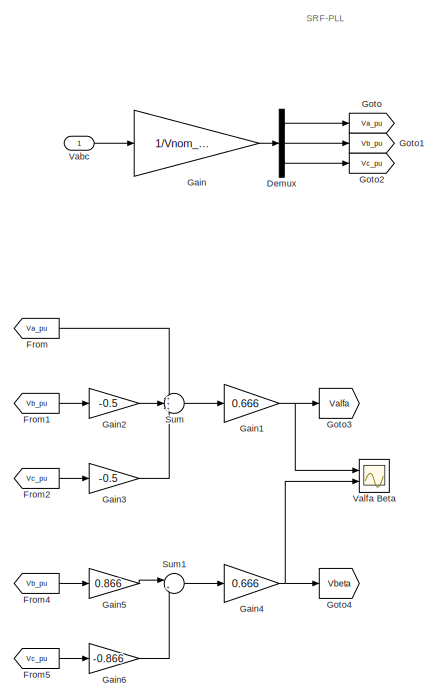
[diagram: SM_Master/Original Circuit/Control/SRF_PLL - part 1/2, left side, full height]
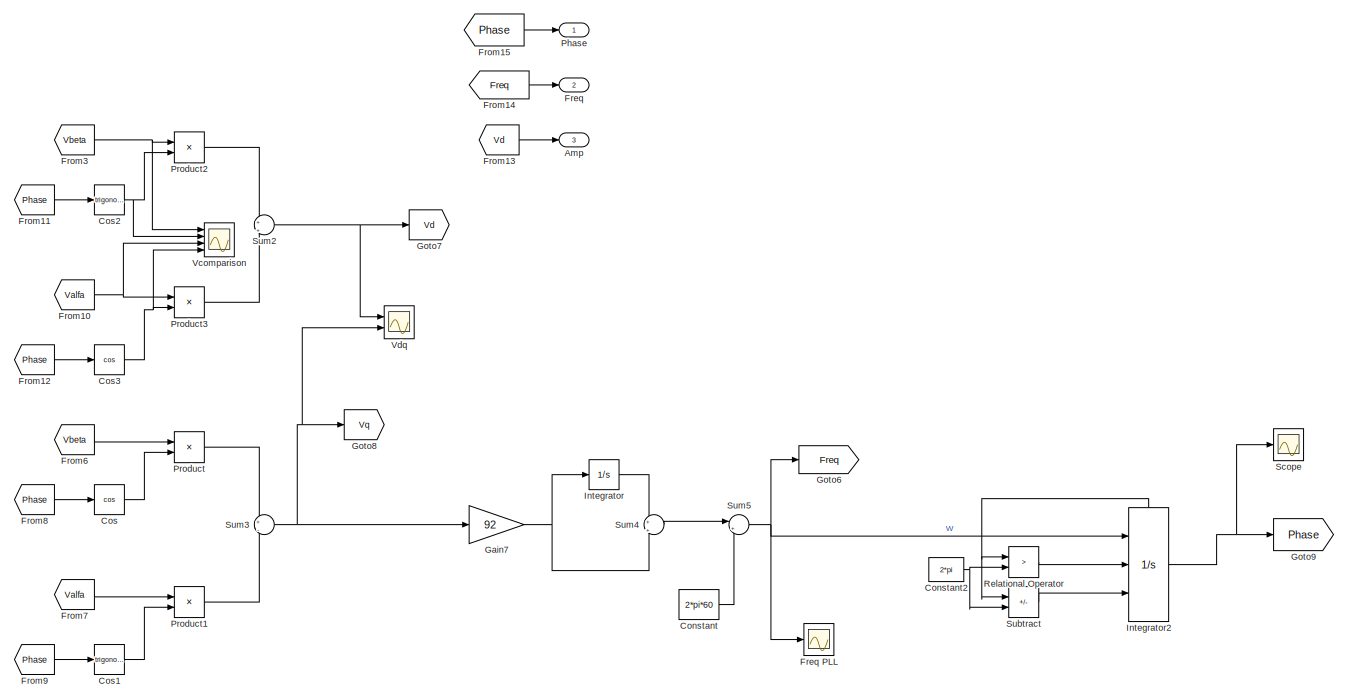
[diagram: SM_Master/Original Circuit/Control/SRF_PLL - part 2/2, most of the canvas]
BLOCK [SubSystem] SM_Master/Original Circuit/Control/SRF_PLL
  Ports = [1, 3]
  RequestExecContextInheritance = off
BLOCK [Outport] SM_Master/Original Circuit/Control/SRF_PLL/Amp
  Port = 3
BLOCK [Constant] SM_Master/Original Circuit/Control/SRF_PLL/Constant
  Value = 2*pi*60
BLOCK [Constant] SM_Master/Original Circuit/Control/SRF_PLL/Constant2
  NameLocation = top
  Value = 2*pi
BLOCK [Trigonometry] SM_Master/Original Circuit/Control/SRF_PLL/Cos
  Operator = cos
  Ports = [1, 1]
BLOCK [Trigonometry] SM_Master/Original Circuit/Control/SRF_PLL/Cos1
  Ports = [1, 1]
BLOCK [Trigonometry] SM_Master/Original Circuit/Control/SRF_PLL/Cos2
  Ports = [1, 1]
BLOCK [Trigonometry] SM_Master/Original Circuit/Control/SRF_PLL/Cos3
  Operator = cos
  Ports = [1, 1]
BLOCK [Demux] SM_Master/Original Circuit/Control/SRF_PLL/Demux
  Outputs = 3
  Ports = [1, 3]
BLOCK [Outport] SM_Master/Original Circuit/Control/SRF_PLL/Freq
  Port = 2
BLOCK [Scope] SM_Master/Original Circuit/Control/SRF_PLL/Freq PLL
  Floating = off
  NumInputPorts = 1
  Ports = [1]
  ScopeSpecificationString = Simulink.scopes.TimeScopeBlockCfg('CurrentConfiguration', extmgr.ConfigurationSet(extmgr.Configuration('Core','General UI',true),extmgr.Configuration('Core','Source UI',true),extmgr.Configuration('Sources','WiredSimulink',true,'DataLoggingVariableName','ScopeData5'),extmgr.Configuration('Visuals','Time Domain',true,'SerializedDisplays',{struct('MinYLimReal','374.31264','MaxYLimReal','380.40507','Y...<+1422ch>
BLOCK [From] SM_Master/Original Circuit/Control/SRF_PLL/From
  GotoTag = Va_pu
BLOCK [From] SM_Master/Original Circuit/Control/SRF_PLL/From1
  GotoTag = Vb_pu
BLOCK [From] SM_Master/Original Circuit/Control/SRF_PLL/From10
  GotoTag = Valfa
BLOCK [From] SM_Master/Original Circuit/Control/SRF_PLL/From11
  GotoTag = Phase
BLOCK [From] SM_Master/Original Circuit/Control/SRF_PLL/From12
  GotoTag = Phase
BLOCK [From] SM_Master/Original Circuit/Control/SRF_PLL/From13
  GotoTag = Vd
BLOCK [From] SM_Master/Original Circuit/Control/SRF_PLL/From14
  GotoTag = Freq
BLOCK [From] SM_Master/Original Circuit/Control/SRF_PLL/From15
  GotoTag = Phase
BLOCK [From] SM_Master/Original Circuit/Control/SRF_PLL/From2
  GotoTag = Vc_pu
BLOCK [From] SM_Master/Original Circuit/Control/SRF_PLL/From3
  GotoTag = Vbeta
BLOCK [From] SM_Master/Original Circuit/Control/SRF_PLL/From4
  GotoTag = Vb_pu
BLOCK [From] SM_Master/Original Circuit/Control/SRF_PLL/From5
  GotoTag = Vc_pu
BLOCK [From] SM_Master/Original Circuit/Control/SRF_PLL/From6
  GotoTag = Vbeta
BLOCK [From] SM_Master/Original Circuit/Control/SRF_PLL/From7
  GotoTag = Valfa
BLOCK [From] SM_Master/Original Circuit/Control/SRF_PLL/From8
  GotoTag = Phase
BLOCK [From] SM_Master/Original Circuit/Control/SRF_PLL/From9
  GotoTag = Phase
BLOCK [Gain] SM_Master/Original Circuit/Control/SRF_PLL/Gain
  Gain = 1/Vnom_peak
BLOCK [Gain] SM_Master/Original Circuit/Control/SRF_PLL/Gain1
  Gain = 0.666
BLOCK [Gain] SM_Master/Original Circuit/Control/SRF_PLL/Gain2
  Gain = -0.5
BLOCK [Gain] SM_Master/Original Circuit/Control/SRF_PLL/Gain3
  Gain = -0.5
BLOCK [Gain] SM_Master/Original Circuit/Control/SRF_PLL/Gain4
  Gain = 0.666
BLOCK [Gain] SM_Master/Original Circuit/Control/SRF_PLL/Gain5
  Gain = 0.866
BLOCK [Gain] SM_Master/Original Circuit/Control/SRF_PLL/Gain6
  Gain = -0.866
BLOCK [Gain] SM_Master/Original Circuit/Control/SRF_PLL/Gain7
  Gain = 92
BLOCK [Goto] SM_Master/Original Circuit/Control/SRF_PLL/Goto
  GotoTag = Va_pu
BLOCK [Goto] SM_Master/Original Circuit/Control/SRF_PLL/Goto1
  GotoTag = Vb_pu
BLOCK [Goto] SM_Master/Original Circuit/Control/SRF_PLL/Goto2
  GotoTag = Vc_pu
BLOCK [Goto] SM_Master/Original Circuit/Control/SRF_PLL/Goto3
  GotoTag = Valfa
BLOCK [Goto] SM_Master/Original Circuit/Control/SRF_PLL/Goto4
  GotoTag = Vbeta
BLOCK [Goto] SM_Master/Original Circuit/Control/SRF_PLL/Goto6
  GotoTag = Freq
BLOCK [Goto] SM_Master/Original Circuit/Control/SRF_PLL/Goto7
  GotoTag = Vd
BLOCK [Goto] SM_Master/Original Circuit/Control/SRF_PLL/Goto8
  GotoTag = Vq
BLOCK [Goto] SM_Master/Original Circuit/Control/SRF_PLL/Goto9
  GotoTag = Phase
BLOCK [Integrator] SM_Master/Original Circuit/Control/SRF_PLL/Integrator
  Ports = [1, 1]
BLOCK [Integrator] SM_Master/Original Circuit/Control/SRF_PLL/Integrator2
  ExternalReset = rising
  InitialCondition = sps.Phase_Init*pi/180
  InitialConditionSource = external
  LimitOutput = on
  Ports = [3, 1, 0, 0, 1]
  ShowStatePort = on
BLOCK [Outport] SM_Master/Original Circuit/Control/SRF_PLL/Phase
BLOCK [Product] SM_Master/Original Circuit/Control/SRF_PLL/Product
  Ports = [2, 1]
BLOCK [Product] SM_Master/Original Circuit/Control/SRF_PLL/Product1
  Ports = [2, 1]
BLOCK [Product] SM_Master/Original Circuit/Control/SRF_PLL/Product2
  Ports = [2, 1]
BLOCK [Product] SM_Master/Original Circuit/Control/SRF_PLL/Product3
  Ports = [2, 1]
BLOCK [RelationalOperator] SM_Master/Original Circuit/Control/SRF_PLL/Relational Operator
  InputSameDT = off
  Operator = >
  OutDataTypeStr = boolean
  Ports = [2, 1]
BLOCK [Scope] SM_Master/Original Circuit/Control/SRF_PLL/Scope
  Floating = off
  NumInputPorts = 1
  Ports = [1]
  ScopeSpecificationString = Simulink.scopes.TimeScopeBlockCfg('CurrentConfiguration', extmgr.ConfigurationSet(extmgr.Configuration('Core','General UI',true),extmgr.Configuration('Core','Source UI',true),extmgr.Configuration('Sources','WiredSimulink',true,'DataLoggingVariableName','ScopeData6'),extmgr.Configuration('Visuals','Time Domain',true),extmgr.Configuration('Tools','Plot Navigation',true),extmgr.Configuration('Tools',...<+40ch>
BLOCK [Sum] SM_Master/Original Circuit/Control/SRF_PLL/Subtract
  IconShape = rectangular
  Inputs = +-
  Ports = [2, 1]
BLOCK [Sum] SM_Master/Original Circuit/Control/SRF_PLL/Sum
  Inputs = +++
  Ports = [3, 1]
BLOCK [Sum] SM_Master/Original Circuit/Control/SRF_PLL/Sum1
  Inputs = |++
  Ports = [2, 1]
BLOCK [Sum] SM_Master/Original Circuit/Control/SRF_PLL/Sum2
  Inputs = +|+
  Ports = [2, 1]
BLOCK [Sum] SM_Master/Original Circuit/Control/SRF_PLL/Sum3
  Inputs = +|-
  Ports = [2, 1]
BLOCK [Sum] SM_Master/Original Circuit/Control/SRF_PLL/Sum4
  Inputs = +|+
  Ports = [2, 1]
BLOCK [Sum] SM_Master/Original Circuit/Control/SRF_PLL/Sum5
  Inputs = |++
  Ports = [2, 1]
BLOCK [Inport] SM_Master/Original Circuit/Control/SRF_PLL/Vabc
BLOCK [Scope] SM_Master/Original Circuit/Control/SRF_PLL/Valfa Beta
  Floating = off
  NumInputPorts = 2
  Ports = [2]
  ScopeSpecificationString = Simulink.scopes.TimeScopeBlockCfg('CurrentConfiguration', extmgr.ConfigurationSet(extmgr.Configuration('Core','General UI',true),extmgr.Configuration('Core','Source UI',true),extmgr.Configuration('Sources','WiredSimulink',true,'DataLoggingVariableName','ScopeData2'),extmgr.Configuration('Visuals','Time Domain',true,'SerializedDisplays',{struct('MinYLimReal','-2.26116','MaxYLimReal','2.53554','YLab...<+1446ch>  <repeated x4 — deduplicated; at blocks: Valfa Beta>
BLOCK [Scope] SM_Master/Original Circuit/Control/SRF_PLL/Vcomparison
  Floating = off
  NumInputPorts = 4
  Ports = [4]
  ScopeSpecificationString = Simulink.scopes.TimeScopeBlockCfg('CurrentConfiguration', extmgr.ConfigurationSet(extmgr.Configuration('Core','General UI',true),extmgr.Configuration('Core','Source UI',true),extmgr.Configuration('Sources','WiredSimulink',true,'DataLoggingVariableName','ScopeData1'),extmgr.Configuration('Visuals','Time Domain',true,'SerializedDisplays',{struct('MinYLimReal','-1.09362','MaxYLimReal','1.20917','YLab...<+1459ch>  <repeated x4 — deduplicated; at blocks: Vcomparison>
BLOCK [Scope] SM_Master/Original Circuit/Control/SRF_PLL/Vdq
  Floating = off
  NumInputPorts = 2
  Ports = [2]
  ScopeSpecificationString = Simulink.scopes.TimeScopeBlockCfg('CurrentConfiguration', extmgr.ConfigurationSet(extmgr.Configuration('Core','General UI',true),extmgr.Configuration('Core','Source UI',true),extmgr.Configuration('Sources','WiredSimulink',true,'DataLoggingVariableName','ScopeData3'),extmgr.Configuration('Visuals','Time Domain',true,'SerializedDisplays',{struct('MinYLimReal','-1.2861','MaxYLimReal','1.58545','YLabe...<+1441ch>  <repeated x4 — deduplicated; at blocks: Vdq>
BLOCK [Saturate] SM_Master/Original Circuit/Control/Saturation
  LowerLimit = -1.1
  UpperLimit = 1.1
BLOCK [Terminator] SM_Master/Original Circuit/Control/Terminator
BLOCK [Inport] SM_Master/Original Circuit/Control/Vline
BLOCK [Scope] SM_Master/Original Circuit/Control/Voltages
  Floating = off
  NumInputPorts = 2
  Ports = [2]
  ScopeSpecificationString = Simulink.scopes.TimeScopeBlockCfg('CurrentConfiguration', extmgr.ConfigurationSet(extmgr.Configuration('Core','General UI',true),extmgr.Configuration('Core','Source UI',true),extmgr.Configuration('Sources','WiredSimulink',true,'DataLoggingVariableName','ScopeData1'),extmgr.Configuration('Visuals','Time Domain',true,'SerializedDisplays',{struct('MinYLimReal','-196.75396','MaxYLimReal','215.18072','...<+2172ch>
BLOCK [Reference] SM_Master/Original Circuit/Current Measurement  REF=spsCurrentMeasurementLib/Current Measurement
  Ports = [0, 1, 0, 0, 0, 1, 1]
  SourceBlock = spsCurrentMeasurementLib/Current Measurement
  SourceProductBaseCode = PS
  SourceType = Current Measurement
  UserDataPersistent = on
BLOCK [Reference] SM_Master/Original Circuit/Current Measurement1  REF=spsCurrentMeasurementLib/Current Measurement
  Ports = [0, 1, 0, 0, 0, 1, 1]
  SourceBlock = spsCurrentMeasurementLib/Current Measurement
  SourceProductBaseCode = PS
  SourceType = Current Measurement
  UserDataPersistent = on
BLOCK [Reference] SM_Master/Original Circuit/Current Measurement2  REF=spsCurrentMeasurementLib/Current Measurement
  Ports = [0, 1, 0, 0, 0, 1, 1]
  SourceBlock = spsCurrentMeasurementLib/Current Measurement
  SourceProductBaseCode = PS
  SourceType = Current Measurement
  UserDataPersistent = on
BLOCK [Reference] SM_Master/Original Circuit/Current Measurement6  REF=spsCurrentMeasurementLib/Current Measurement
  Ports = [0, 1, 0, 0, 0, 1, 1]
  SourceBlock = spsCurrentMeasurementLib/Current Measurement
  SourceProductBaseCode = PS
  SourceType = Current Measurement
  UserDataPersistent = on
BLOCK [Reference] SM_Master/Original Circuit/DC Voltage Source  REF=spsDCVoltageSourceLib/DC Voltage Source
  NameLocation = right
  Ports = [0, 0, 0, 0, 0, 1, 1]
  SourceBlock = spsDCVoltageSourceLib/DC Voltage Source
  SourceProductBaseCode = PS
  SourceType = DC Voltage Source
BLOCK [Delay] SM_Master/Original Circuit/Delay
  DelayLength = 1
  InputPortMap = u0
  Ports = [1, 1]
BLOCK [Delay] SM_Master/Original Circuit/Delay1
  DelayLength = 1
  InputPortMap = u0
  Ports = [1, 1]
BLOCK [Delay] SM_Master/Original Circuit/Delay2
  DelayLength = 1
  InputPortMap = u0
  Ports = [1, 1]
BLOCK [Demux] SM_Master/Original Circuit/Demux
  Outputs = 10
  Ports = [1, 10]
BLOCK [Reference] SM_Master/Original Circuit/Filter Capacitor  REF=spsThreePhaseSeriesRLCBranchLib/Three-Phase
Series RLC Branch
  AttributesFormatString = \n
  NameLocation = left
  Ports = [0, 0, 0, 0, 0, 3, 3]
  SourceBlock = spsThreePhaseSeriesRLCBranchLib/Three-Phase\nSeries RLC Branch
  SourceProductBaseCode = PS
  SourceType = Three-Phase Series RLC Branch
BLOCK [Reference] SM_Master/Original Circuit/Filter Inductor  REF=spsThreePhaseSeriesRLCBranchLib/Three-Phase
Series RLC Branch
  AttributesFormatString = \n
  Ports = [0, 0, 0, 0, 0, 3, 3]
  SourceBlock = spsThreePhaseSeriesRLCBranchLib/Three-Phase\nSeries RLC Branch
  SourceProductBaseCode = PS
  SourceType = Three-Phase Series RLC Branch
BLOCK [From] SM_Master/Original Circuit/From
  GotoTag = Vab
BLOCK [From] SM_Master/Original Circuit/From1
  GotoTag = ia
  NameLocation = top
BLOCK [From] SM_Master/Original Circuit/From11
  GotoTag = dblk
BLOCK [From] SM_Master/Original Circuit/From12
  GotoTag = meas
BLOCK [From] SM_Master/Original Circuit/From2
  GotoTag = ib
  NameLocation = top
BLOCK [From] SM_Master/Original Circuit/From3
  GotoTag = Vbc
BLOCK [From] SM_Master/Original Circuit/From4
  GotoTag = ic
  NameLocation = top
BLOCK [From] SM_Master/Original Circuit/From5
  GotoTag = PQ_ref
BLOCK [Goto] SM_Master/Original Circuit/Goto
  GotoTag = Vab
BLOCK [Goto] SM_Master/Original Circuit/Goto1
  GotoTag = ia
BLOCK [Goto] SM_Master/Original Circuit/Goto10
  GotoTag = dblk
BLOCK [Goto] SM_Master/Original Circuit/Goto11
  GotoTag = meas
BLOCK [Goto] SM_Master/Original Circuit/Goto2
  GotoTag = ib
BLOCK [Goto] SM_Master/Original Circuit/Goto3
  GotoTag = Vbc
BLOCK [Goto] SM_Master/Original Circuit/Goto4
  GotoTag = ic
BLOCK [Goto] SM_Master/Original Circuit/Goto5
  GotoTag = PQ_ref
BLOCK [Scope] SM_Master/Original Circuit/Iabc
  Floating = off
  NumInputPorts = 3
  Ports = [3]
  ScopeSpecificationString = Simulink.scopes.TimeScopeBlockCfg('CurrentConfiguration', extmgr.ConfigurationSet(extmgr.Configuration('Core','General UI',true),extmgr.Configuration('Core','Source UI',true),extmgr.Configuration('Sources','WiredSimulink',true,'DataLoggingVariableName','ScopeData1'),extmgr.Configuration('Visuals','Time Domain',true,'SerializedDisplays',{struct('MinYLimReal','-744.23031','MaxYLimReal','716.63424','...<+1546ch>
BLOCK [Scope] SM_Master/Original Circuit/Icc_in
  Floating = off
  NumInputPorts = 1
  Ports = [1]
  ScopeSpecificationString = Simulink.scopes.TimeScopeBlockCfg('CurrentConfiguration', extmgr.ConfigurationSet(extmgr.Configuration('Core','General UI',true),extmgr.Configuration('Core','Source UI',true),extmgr.Configuration('Sources','WiredSimulink',true,'DataLoggingVariableName','ScopeData2'),extmgr.Configuration('Visuals','Time Domain',true,'SerializedDisplays',{struct('MinYLimReal','-2585694.86','MaxYLimReal','4372359.961...<+1492ch>
BLOCK [Scope] SM_Master/Original Circuit/Idq
  Floating = off
  NumInputPorts = 2
  Ports = [2]
  ScopeSpecificationString = Simulink.scopes.TimeScopeBlockCfg('CurrentConfiguration', extmgr.ConfigurationSet(extmgr.Configuration('Core','General UI',true),extmgr.Configuration('Core','Source UI',true),extmgr.Configuration('Sources','WiredSimulink',true,'DataLoggingVariableName','ScopeData3'),extmgr.Configuration('Visuals','Time Domain',true,'SerializedDisplays',{struct('MinYLimReal','-87.80308','MaxYLimReal','172.32827','Y...<+1536ch>
BLOCK [Mux] SM_Master/Original Circuit/Mux
  DisplayOption = bar
  Inputs = 2
  Ports = [2, 1]
BLOCK [Mux] SM_Master/Original Circuit/Mux1
  DisplayOption = bar
  Inputs = 3
  NameLocation = top
  Ports = [3, 1]
BLOCK [Mux] SM_Master/Original Circuit/Mux2
  DisplayOption = bar
  Inputs = 6
  Ports = [6, 1]
BLOCK [Inport] SM_Master/Original Circuit/PQ_ref
  Port = 2
BLOCK [SubSystem] SM_Master/Original Circuit/PWM
  AncestorBlock = LafaeLib/PV System/PV System Detailed/VSC_Control/PWM
  NameLocation = top
  Ports = [1, 1]
  RequestExecContextInheritance = off
BLOCK [Constant] SM_Master/Original Circuit/PWM/Constant10
  Value = 2
BLOCK [Constant] SM_Master/Original Circuit/PWM/Constant11
  Value = fsw_inv
BLOCK [Constant] SM_Master/Original Circuit/PWM/Constant9
BLOCK [Demux] SM_Master/Original Circuit/PWM/Demux8
  Outputs = 3
  Ports = [1, 3]
BLOCK [Product] SM_Master/Original Circuit/PWM/Divide7
  Inputs = */
  Ports = [2, 1]
BLOCK [Product] SM_Master/Original Circuit/PWM/Divide8
  Inputs = */
  Ports = [2, 1]
BLOCK [Product] SM_Master/Original Circuit/PWM/Divide9
  Inputs = */
  Ports = [2, 1]
BLOCK [Mux] SM_Master/Original Circuit/PWM/Mux11
  DisplayOption = bar
  Inputs = 3
  Ports = [3, 1]
BLOCK [Mux] SM_Master/Original Circuit/PWM/Mux12
  DisplayOption = bar
  Inputs = 2
  Ports = [2, 1]
BLOCK [Reference] SM_Master/Original Circuit/PWM/RTE Conversion1  REF=rteventslib/Signal
Attributes/RTE Conversion
  Ports = [1, 1]
  SourceBlock = rteventslib/Signal\nAttributes/RTE Conversion
  SourceType = RTE Conversion
BLOCK [Reference] SM_Master/Original Circuit/PWM/RTE SPWM1  REF=rteventslib/Sources/RTE SPWM
  Ports = [2, 2]
  SourceBlock = rteventslib/Sources/RTE SPWM
  SourceType = RTE SPWM
BLOCK [Scope] SM_Master/Original Circuit/PWM/Scope
  Floating = off
  NumInputPorts = 1
  Ports = [1]
  ScopeSpecificationString = Simulink.scopes.TimeScopeBlockCfg('CurrentConfiguration', extmgr.ConfigurationSet(extmgr.Configuration('Core','General UI',true),extmgr.Configuration('Core','Source UI',true),extmgr.Configuration('Sources','WiredSimulink',true,'DataLoggingVariableName','ScopeData6'),extmgr.Configuration('Visuals','Time Domain',true,'SerializedDisplays',{struct('MinYLimReal','-1.04475','MaxYLimReal','0.76839','YLab...<+1482ch>  <repeated x4 — deduplicated; at blocks: Scope>
BLOCK [Scope] SM_Master/Original Circuit/PWM/Scope8
  Floating = off
  NumInputPorts = 1
  Ports = [1]
  ScopeSpecificationString = Simulink.scopes.TimeScopeBlockCfg('CurrentConfiguration', extmgr.ConfigurationSet(extmgr.Configuration('Core','General UI',true),extmgr.Configuration('Core','Source UI',true),extmgr.Configuration('Sources','WiredSimulink',true,'DataLoggingVariableName','ScopeData7'),extmgr.Configuration('Visuals','Time Domain',true,'SerializedDisplays',{struct('MinYLimReal','-0.71478','MaxYLimReal','1.70367','YLab...<+1512ch>  <repeated x4 — deduplicated; at blocks: Scope8>
BLOCK [Selector] SM_Master/Original Circuit/PWM/Selector1
  IndexOptions = Index vector (dialog)
  Indices = [1 4 2 5 3 6]
  InputPortWidth = 6
  OutputSizes = 1
  Ports = [1, 1]
BLOCK [Sum] SM_Master/Original Circuit/PWM/Sum16
  Inputs = |++
  Ports = [2, 1]
BLOCK [Sum] SM_Master/Original Circuit/PWM/Sum17
  Inputs = |++
  Ports = [2, 1]
BLOCK [Sum] SM_Master/Original Circuit/PWM/Sum18
  Inputs = |++
  Ports = [2, 1]
BLOCK [Inport] SM_Master/Original Circuit/PWM/Uabc_ref
BLOCK [Outport] SM_Master/Original Circuit/PWM/Uref
  VectorParamsAs1DForOutWhenUnconnected = off
BLOCK [Outport] SM_Master/Original Circuit/REF_V_I
BLOCK [Reference] SM_Master/Original Circuit/Three-Phase Source  REF=spsThreePhaseSourceLib/Three-Phase Source
  Ports = [0, 0, 0, 0, 0, 0, 3]
  SourceBlock = spsThreePhaseSourceLib/Three-Phase Source
  SourceProductBaseCode = PS
  SourceType = Three-Phase Source
BLOCK [Reference] SM_Master/Original Circuit/Three-Phase Transformer (Two Windings)  REF=spsThreePhaseTransformerTwoWindingsLib/Three-Phase
Transformer
(Two Windings)
  Ports = [0, 0, 0, 0, 0, 3, 3]
  SourceBlock = spsThreePhaseTransformerTwoWindingsLib/Three-Phase\nTransformer\n(Two Windings)
  SourceProductBaseCode = PS
  SourceType = Three-Phase Transformer (Two Windings)
BLOCK [Reference] SM_Master/Original Circuit/Universal Bridge  REF=spsUniversalBridgeLib/Universal Bridge
  Commented = on
  Ports = [1, 0, 0, 0, 0, 3, 2]
  SourceBlock = spsUniversalBridgeLib/Universal Bridge
  SourceProductBaseCode = PS
  SourceType = Universal Bridge
BLOCK [Scope] SM_Master/Original Circuit/Vabc
  Floating = off
  NumInputPorts = 3
  Ports = [3]
  ScopeSpecificationString = Simulink.scopes.TimeScopeBlockCfg('CurrentConfiguration', extmgr.ConfigurationSet(extmgr.Configuration('Core','General UI',true),extmgr.Configuration('Core','Source UI',true),extmgr.Configuration('Sources','WiredSimulink',true,'DataLoggingVariableName','ScopeData4'),extmgr.Configuration('Visuals','Time Domain',true,'SerializedDisplays',{struct('MinYLimReal','-37.89246','MaxYLimReal','37.90181','YL...<+1564ch>
BLOCK [Scope] SM_Master/Original Circuit/Vdq
  Floating = off
  NumInputPorts = 2
  Ports = [2]
  ScopeSpecificationString = Simulink.scopes.TimeScopeBlockCfg('CurrentConfiguration', extmgr.ConfigurationSet(extmgr.Configuration('Core','General UI',true),extmgr.Configuration('Core','Source UI',true),extmgr.Configuration('Sources','WiredSimulink',true,'DataLoggingVariableName','ScopeData5'),extmgr.Configuration('Visuals','Time Domain',true,'SerializedDisplays',{struct('MinYLimReal','-18.51836','MaxYLimReal','139.66462','Y...<+1507ch>
BLOCK [Reference] SM_Master/Original Circuit/Voltage Measurement1  REF=spsVoltageMeasurementLib/Voltage Measurement
  NameLocation = left
  Ports = [0, 1, 0, 0, 0, 2]
  SourceBlock = spsVoltageMeasurementLib/Voltage Measurement
  SourceProductBaseCode = PS
  SourceType = Voltage Measurement
  UserDataPersistent = on
BLOCK [Reference] SM_Master/Original Circuit/Voltage Measurement2  REF=spsVoltageMeasurementLib/Voltage Measurement
  NameLocation = right
  Ports = [0, 1, 0, 0, 0, 2]
  SourceBlock = spsVoltageMeasurementLib/Voltage Measurement
  SourceProductBaseCode = PS
  SourceType = Voltage Measurement
  UserDataPersistent = on
BLOCK [Inport] SM_Master/Original Circuit/dblk
BLOCK [SubSystem] SM_Master/Original_Circuit
  Ports = [0, 1]
  RequestExecContextInheritance = off
BLOCK [Step] SM_Master/Original_Circuit/Amplitude
  After = 220*sqrt(2/3)
  Before = 220*sqrt(2/3)
  SampleTime = Ts
  Time = 3
BLOCK [Step] SM_Master/Original_Circuit/Amplitude1 
  After = 0
  SampleTime = Ts
  Time = 4
BLOCK [SubSystem] SM_Master/Original_Circuit/Controllable Voltage Source 
  Ports = [3, 0, 0, 0, 0, 0, 3]
  RequestExecContextInheritance = off
BLOCK [PMIOPort] SM_Master/Original_Circuit/Controllable Voltage Source /A
  Side = Right
BLOCK [Inport] SM_Master/Original_Circuit/Controllable Voltage Source /Amplitude [V]
BLOCK [PMIOPort] SM_Master/Original_Circuit/Controllable Voltage Source /B
  Port = 2
  Side = Right
BLOCK [PMIOPort] SM_Master/Original_Circuit/Controllable Voltage Source /C
  Port = 3
  Side = Right
BLOCK [Constant] SM_Master/Original_Circuit/Controllable Voltage Source /Constant1
  Value = 2*pi/3
BLOCK [Reference] SM_Master/Original_Circuit/Controllable Voltage Source /Controlled Voltage Source3  REF=spsControlledVoltageSourceLib/Controlled Voltage Source
  Ports = [1, 0, 0, 0, 0, 1, 1]
  SourceBlock = spsControlledVoltageSourceLib/Controlled Voltage Source
  SourceProductBaseCode = PS
  SourceType = Controlled Voltage Source
BLOCK [Reference] SM_Master/Original_Circuit/Controllable Voltage Source /Controlled Voltage Source4  REF=spsControlledVoltageSourceLib/Controlled Voltage Source
  Ports = [1, 0, 0, 0, 0, 1, 1]
  SourceBlock = spsControlledVoltageSourceLib/Controlled Voltage Source
  SourceProductBaseCode = PS
  SourceType = Controlled Voltage Source
BLOCK [Reference] SM_Master/Original_Circuit/Controllable Voltage Source /Controlled Voltage Source5  REF=spsControlledVoltageSourceLib/Controlled Voltage Source
  Ports = [1, 0, 0, 0, 0, 1, 1]
  SourceBlock = spsControlledVoltageSourceLib/Controlled Voltage Source
  SourceProductBaseCode = PS
  SourceType = Controlled Voltage Source
BLOCK [Trigonometry] SM_Master/Original_Circuit/Controllable Voltage Source /Cos
  Operator = cos
  Ports = [1, 1]
BLOCK [Trigonometry] SM_Master/Original_Circuit/Controllable Voltage Source /Cos1
  Operator = cos
  Ports = [1, 1]
BLOCK [Trigonometry] SM_Master/Original_Circuit/Controllable Voltage Source /Cos2
  Operator = cos
  Ports = [1, 1]
BLOCK [Inport] SM_Master/Original_Circuit/Controllable Voltage Source /Frequency [Hz]
  Port = 3
BLOCK [From] SM_Master/Original_Circuit/Controllable Voltage Source /From9
  GotoTag = phase
BLOCK [Gain] SM_Master/Original_Circuit/Controllable Voltage Source /Gain
  Gain = 2*pi
BLOCK [Gain] SM_Master/Original_Circuit/Controllable Voltage Source /Gain1
  Gain = pi/180
BLOCK [Goto] SM_Master/Original_Circuit/Controllable Voltage Source /Goto6
  GotoTag = phase
BLOCK [Goto] SM_Master/Original_Circuit/Controllable Voltage Source /Goto7
  GotoTag = freq_ref
BLOCK [Reference] SM_Master/Original_Circuit/Controllable Voltage Source /Ground5  REF=spsGroundLib/Ground
  NameLocation = right
  Ports = [0, 0, 0, 0, 0, 1]
  SourceBlock = spsGroundLib/Ground
  SourceProductBaseCode = PS
  SourceType = Ground
BLOCK [Integrator] SM_Master/Original_Circuit/Controllable Voltage Source /Integrator
  Ports = [1, 1]
  WrapState = on
  WrappedStateLowerValue = 0
  WrappedStateUpperValue = 2*pi
BLOCK [Inport] SM_Master/Original_Circuit/Controllable Voltage Source /Phase [Deg]
  Port = 2
BLOCK [Product] SM_Master/Original_Circuit/Controllable Voltage Source /Product
  Ports = [2, 1]
BLOCK [Product] SM_Master/Original_Circuit/Controllable Voltage Source /Product1
  Ports = [2, 1]
BLOCK [Product] SM_Master/Original_Circuit/Controllable Voltage Source /Product2
  Ports = [2, 1]
BLOCK [Sum] SM_Master/Original_Circuit/Controllable Voltage Source /Sum
  Inputs = ++-
  Ports = [3, 1]
BLOCK [Sum] SM_Master/Original_Circuit/Controllable Voltage Source /Sum1
  Inputs = +++
  Ports = [3, 1]
BLOCK [Sum] SM_Master/Original_Circuit/Controllable Voltage Source /Sum2
  Inputs = |++
  Ports = [2, 1]
BLOCK [Step] SM_Master/Original_Circuit/Freq
  After = 0
  SampleTime = Ts
  Time = 2.8
BLOCK [Step] SM_Master/Original_Circuit/Freq Ref
  After = 60
  Before = 60
  SampleTime = Ts
  Time = 2
BLOCK [Reference] SM_Master/Original_Circuit/Ground  REF=spsGroundLib/Ground
  NameLocation = right
  Ports = [0, 0, 0, 0, 0, 1]
  SourceBlock = spsGroundLib/Ground
  SourceProductBaseCode = PS
  SourceType = Ground
BLOCK [Mux] SM_Master/Original_Circuit/Mux
  DisplayOption = bar
  Inputs = 2
  Ports = [2, 1]
BLOCK [Constant] SM_Master/Original_Circuit/Phase Ref
  SampleTime = Ts
  Value = 0
BLOCK [Sum] SM_Master/Original_Circuit/Sum
  Inputs = -+|
  Ports = [2, 1]
BLOCK [Sum] SM_Master/Original_Circuit/Sum1
  Inputs = |+-
  Ports = [2, 1]
BLOCK [Reference] SM_Master/Original_Circuit/Three-Phase Breaker  REF=spsThreePhaseBreakerLib/Three-Phase Breaker
  Ports = [0, 0, 0, 0, 0, 3, 3]
  SourceBlock = spsThreePhaseBreakerLib/Three-Phase Breaker
  SourceProductBaseCode = PS
  SourceType = Three-Phase Breaker
BLOCK [Reference] SM_Master/Original_Circuit/Three-Phase Series RLC Branch  REF=spsThreePhaseSeriesRLCBranchLib/Three-Phase
Series RLC Branch
  AttributesFormatString = \n
  NameLocation = left
  Ports = [0, 0, 0, 0, 0, 3, 3]
  SourceBlock = spsThreePhaseSeriesRLCBranchLib/Three-Phase\nSeries RLC Branch
  SourceProductBaseCode = PS
  SourceType = Three-Phase Series RLC Branch
BLOCK [Reference] SM_Master/Original_Circuit/Three-Phase Series RLC Branch1  REF=spsThreePhaseSeriesRLCBranchLib/Three-Phase
Series RLC Branch
  AttributesFormatString = \n
  Ports = [0, 0, 0, 0, 0, 3, 3]
  SourceBlock = spsThreePhaseSeriesRLCBranchLib/Three-Phase\nSeries RLC Branch
  SourceProductBaseCode = PS
  SourceType = Three-Phase Series RLC Branch
BLOCK [Reference] SM_Master/Original_Circuit/Three-Phase V-I Measurement1  REF=spsThreePhaseVIMeasurementLib/Three-Phase
V-I Measurement
  Ports = [0, 2, 0, 0, 0, 3, 3]
  SourceBlock = spsThreePhaseVIMeasurementLib/Three-Phase\nV-I Measurement
  SourceProductBaseCode = PS
  SourceType = Three-Phase VI Measurement
BLOCK [Outport] SM_Master/Original_Circuit/Vabc_Iabc_original
BLOCK [Inport] SM_Master/PQ_ref
  Port = 2
BLOCK [Outport] SM_Master/Reference Values From Original Circuit
  Port = 4
BLOCK [SubSystem] SM_Master/Saving RT Data
  Commented = on
  Ports = [4]
  RequestExecContextInheritance = off
BLOCK [BusToVector] SM_Master/Saving RT Data/Bus to Vector1
BLOCK [BusToVector] SM_Master/Saving RT Data/Bus to Vector2
BLOCK [BusToVector] SM_Master/Saving RT Data/Bus to Vector3
BLOCK [BusToVector] SM_Master/Saving RT Data/Bus to Vector4
BLOCK [From] SM_Master/Saving RT Data/From
  GotoTag = group26
BLOCK [From] SM_Master/Saving RT Data/From1
  GotoTag = group29
BLOCK [From] SM_Master/Saving RT Data/From2
  GotoTag = group27
BLOCK [From] SM_Master/Saving RT Data/From3
  GotoTag = group28
BLOCK [Goto] SM_Master/Saving RT Data/Goto
  GotoTag = group26
BLOCK [Goto] SM_Master/Saving RT Data/Goto1
  GotoTag = group27
BLOCK [Goto] SM_Master/Saving RT Data/Goto2
  GotoTag = group28
BLOCK [Goto] SM_Master/Saving RT Data/Goto3
  GotoTag = group29
BLOCK [Reference] SM_Master/Saving RT Data/OpWriteFile26  REF=rtlab/DataLogging/OpWriteFile
  Ports = [1, 2]
  SourceBlock = rtlab/DataLogging/OpWriteFile
  SourceProductName = RT-LAB
  SourceType = OpWriteFile
BLOCK [Reference] SM_Master/Saving RT Data/OpWriteFile27  REF=rtlab/DataLogging/OpWriteFile
  Ports = [1, 2]
  SourceBlock = rtlab/DataLogging/OpWriteFile
  SourceProductName = RT-LAB
  SourceType = OpWriteFile
BLOCK [Reference] SM_Master/Saving RT Data/OpWriteFile28  REF=rtlab/DataLogging/OpWriteFile
  Ports = [1, 2]
  SourceBlock = rtlab/DataLogging/OpWriteFile
  SourceProductName = RT-LAB
  SourceType = OpWriteFile
BLOCK [Reference] SM_Master/Saving RT Data/OpWriteFile29  REF=rtlab/DataLogging/OpWriteFile
  Ports = [1, 2]
  SourceBlock = rtlab/DataLogging/OpWriteFile
  SourceProductName = RT-LAB
  SourceType = OpWriteFile
BLOCK [Terminator] SM_Master/Saving RT Data/Terminator1
BLOCK [Terminator] SM_Master/Saving RT Data/Terminator2
BLOCK [Terminator] SM_Master/Saving RT Data/Terminator3
BLOCK [Terminator] SM_Master/Saving RT Data/Terminator4
BLOCK [Terminator] SM_Master/Saving RT Data/Terminator5
BLOCK [Terminator] SM_Master/Saving RT Data/Terminator6
BLOCK [Terminator] SM_Master/Saving RT Data/Terminator7
BLOCK [Terminator] SM_Master/Saving RT Data/Terminator8
BLOCK [Inport] SM_Master/Saving RT Data/group26
BLOCK [Inport] SM_Master/Saving RT Data/group27
  Port = 2
BLOCK [Inport] SM_Master/Saving RT Data/group28
  Port = 3
BLOCK [Inport] SM_Master/Saving RT Data/group29
  Port = 4
BLOCK [SubSystem] SM_Master/Saving RT Data1
  Commented = on
  Ports = [5]
  RequestExecContextInheritance = off
BLOCK [BusToVector] SM_Master/Saving RT Data1/Bus to Vector1
BLOCK [BusToVector] SM_Master/Saving RT Data1/Bus to Vector2
BLOCK [BusToVector] SM_Master/Saving RT Data1/Bus to Vector3
BLOCK [BusToVector] SM_Master/Saving RT Data1/Bus to Vector4
BLOCK [BusToVector] SM_Master/Saving RT Data1/Bus to Vector5
BLOCK [From] SM_Master/Saving RT Data1/From
  GotoTag = group26
BLOCK [From] SM_Master/Saving RT Data1/From1
  GotoTag = group29
BLOCK [From] SM_Master/Saving RT Data1/From2
  GotoTag = group27
BLOCK [From] SM_Master/Saving RT Data1/From3
  GotoTag = group28
BLOCK [From] SM_Master/Saving RT Data1/From4
  GotoTag = group30
BLOCK [Goto] SM_Master/Saving RT Data1/Goto
  GotoTag = group26
BLOCK [Goto] SM_Master/Saving RT Data1/Goto1
  GotoTag = group27
BLOCK [Goto] SM_Master/Saving RT Data1/Goto2
  GotoTag = group28
BLOCK [Goto] SM_Master/Saving RT Data1/Goto3
  GotoTag = group29
BLOCK [Goto] SM_Master/Saving RT Data1/Goto4
  GotoTag = group30
BLOCK [Reference] SM_Master/Saving RT Data1/OpWriteFile26  REF=rtlab/DataLogging/OpWriteFile
  Ports = [1, 2]
  SourceBlock = rtlab/DataLogging/OpWriteFile
  SourceProductName = RT-LAB
  SourceType = OpWriteFile
BLOCK [Reference] SM_Master/Saving RT Data1/OpWriteFile27  REF=rtlab/DataLogging/OpWriteFile
  Ports = [1, 2]
  SourceBlock = rtlab/DataLogging/OpWriteFile
  SourceProductName = RT-LAB
  SourceType = OpWriteFile
BLOCK [Reference] SM_Master/Saving RT Data1/OpWriteFile28  REF=rtlab/DataLogging/OpWriteFile
  Ports = [1, 2]
  SourceBlock = rtlab/DataLogging/OpWriteFile
  SourceProductName = RT-LAB
  SourceType = OpWriteFile
BLOCK [Reference] SM_Master/Saving RT Data1/OpWriteFile29  REF=rtlab/DataLogging/OpWriteFile
  Ports = [1, 2]
  SourceBlock = rtlab/DataLogging/OpWriteFile
  SourceProductName = RT-LAB
  SourceType = OpWriteFile
BLOCK [Reference] SM_Master/Saving RT Data1/OpWriteFile30  REF=rtlab/DataLogging/OpWriteFile
  Ports = [1, 2]
  SourceBlock = rtlab/DataLogging/OpWriteFile
  SourceProductName = RT-LAB
  SourceType = OpWriteFile
BLOCK [Terminator] SM_Master/Saving RT Data1/Terminator1
BLOCK [Terminator] SM_Master/Saving RT Data1/Terminator10
BLOCK [Terminator] SM_Master/Saving RT Data1/Terminator2
BLOCK [Terminator] SM_Master/Saving RT Data1/Terminator3
BLOCK [Terminator] SM_Master/Saving RT Data1/Terminator4
BLOCK [Terminator] SM_Master/Saving RT Data1/Terminator5
BLOCK [Terminator] SM_Master/Saving RT Data1/Terminator6
BLOCK [Terminator] SM_Master/Saving RT Data1/Terminator7
BLOCK [Terminator] SM_Master/Saving RT Data1/Terminator8
BLOCK [Terminator] SM_Master/Saving RT Data1/Terminator9
BLOCK [Inport] SM_Master/Saving RT Data1/group26
BLOCK [Inport] SM_Master/Saving RT Data1/group27
  Port = 2
BLOCK [Inport] SM_Master/Saving RT Data1/group28
  Port = 3
BLOCK [Inport] SM_Master/Saving RT Data1/group29
  Port = 4
BLOCK [Inport] SM_Master/Saving RT Data1/group30
  Port = 5
BLOCK [Outport] SM_Master/Synchronization data
  Port = 5
BLOCK [Terminator] SM_Master/Terminator
BLOCK [Terminator] SM_Master/Terminator1
BLOCK [Terminator] SM_Master/Terminator2
BLOCK [SubSystem] SM_Master/VSC_ITM_Average_Moving_Window
  Commented = on
  Ports = [3, 2]
  RequestExecContextInheritance = off
BLOCK [Reference] SM_Master/VSC_ITM_Average_Moving_Window/ARTEMiS SSN IVIC  REF=ssn_inverter_model/ARTEMiS SSN
IVIC
  NameLocation = top
  Ports = [1, 0, 0, 0, 0, 3, 2]
  SourceBlock = ssn_inverter_model/ARTEMiS SSN\nIVIC
  SourceType = Universal Bridge
BLOCK [SubSystem] SM_Master/VSC_ITM_Average_Moving_Window/Control
  PortSchema = {"entries":[{"content":{"sides":[{"content":{"connectorIds":["In1","In2","In3","In4"]},"type":"ConnectorPlacement.EquallySpacedRectSide","uuid":"9324a1b5-9209-40a7-bba6-3b17f55cd5b4"},{"content":{"connectorIds":["Out1"],"side":"RIGHT"},"type":"ConnectorPlacement.EquallySpacedRectSide","uuid":"8b60fbd3-efee-4b93-84ca-13d5af533164"},{"content":{"connectorIds":[],"side":"TOP"},"type":"ConnectorPlacem...<+559ch>  <repeated x3 — deduplicated; at blocks: Control>
  Ports = [4, 3]
  RequestExecContextInheritance = off
BLOCK [SubSystem] SM_Master/VSC_ITM_Average_Moving_Window/Control/Current Control
  Ports = [5, 1]
  RequestExecContextInheritance = off
BLOCK [Constant] SM_Master/VSC_ITM_Average_Moving_Window/Control/Current Control/Constant2
  Value = Vdc/2
BLOCK [Inport] SM_Master/VSC_ITM_Average_Moving_Window/Control/Current Control/Deblock
BLOCK [Delay] SM_Master/VSC_ITM_Average_Moving_Window/Control/Current Control/Delay
  DelayLength = 1
  InputPortMap = u0
  Ports = [1, 1]
BLOCK [Demux] SM_Master/VSC_ITM_Average_Moving_Window/Control/Current Control/Demux1
  Outputs = 2
  Ports = [1, 2]
BLOCK [Demux] SM_Master/VSC_ITM_Average_Moving_Window/Control/Current Control/Demux2
  Outputs = 2
  Ports = [1, 2]
BLOCK [Demux] SM_Master/VSC_ITM_Average_Moving_Window/Control/Current Control/Demux3
  Outputs = 2
  Ports = [1, 2]
BLOCK [DiscreteIntegrator] SM_Master/VSC_ITM_Average_Moving_Window/Control/Current Control/Discrete-Time Integrator
  ICPrevOutput = DiscIntNeverNeededParam
  ICPrevScaledInput = DiscIntNeverNeededParam
  InitialConditionSetting = Auto
  Ports = [1, 1]
  SampleTime = -1
BLOCK [DiscreteIntegrator] SM_Master/VSC_ITM_Average_Moving_Window/Control/Current Control/Discrete-Time Integrator1
  ICPrevOutput = DiscIntNeverNeededParam
  ICPrevScaledInput = DiscIntNeverNeededParam
  InitialConditionSetting = Auto
  Ports = [1, 1]
  SampleTime = -1
BLOCK [Product] SM_Master/VSC_ITM_Average_Moving_Window/Control/Current Control/Divide
  Inputs = */
  Ports = [2, 1]
BLOCK [Product] SM_Master/VSC_ITM_Average_Moving_Window/Control/Current Control/Divide1
  Inputs = */
  Ports = [2, 1]
BLOCK [From] SM_Master/VSC_ITM_Average_Moving_Window/Control/Current Control/From
  GotoTag = dblk
BLOCK [From] SM_Master/VSC_ITM_Average_Moving_Window/Control/Current Control/From1
  GotoTag = phase_pll
  NameLocation = top
BLOCK [From] SM_Master/VSC_ITM_Average_Moving_Window/Control/Current Control/From12
  GotoTag = Vd
BLOCK [From] SM_Master/VSC_ITM_Average_Moving_Window/Control/Current Control/From13
  GotoTag = Vq
BLOCK [From] SM_Master/VSC_ITM_Average_Moving_Window/Control/Current Control/From14
  GotoTag = Id
BLOCK [From] SM_Master/VSC_ITM_Average_Moving_Window/Control/Current Control/From15
  GotoTag = Iq
BLOCK [From] SM_Master/VSC_ITM_Average_Moving_Window/Control/Current Control/From2
  GotoTag = Id_ref
BLOCK [From] SM_Master/VSC_ITM_Average_Moving_Window/Control/Current Control/From3
  GotoTag = Iq_ref
BLOCK [From] SM_Master/VSC_ITM_Average_Moving_Window/Control/Current Control/From8
  GotoTag = Id
BLOCK [From] SM_Master/VSC_ITM_Average_Moving_Window/Control/Current Control/From9
  GotoTag = Iq
BLOCK [Gain] SM_Master/VSC_ITM_Average_Moving_Window/Control/Current Control/Gain1
  Gain = kp_current
BLOCK [Gain] SM_Master/VSC_ITM_Average_Moving_Window/Control/Current Control/Gain2
  Gain = ki_current
BLOCK [Gain] SM_Master/VSC_ITM_Average_Moving_Window/Control/Current Control/Gain3
  Gain = kp_current
BLOCK [Gain] SM_Master/VSC_ITM_Average_Moving_Window/Control/Current Control/Gain4
  Gain = ki_current
BLOCK [Gain] SM_Master/VSC_ITM_Average_Moving_Window/Control/Current Control/Gain5
  Gain = decouple
BLOCK [Gain] SM_Master/VSC_ITM_Average_Moving_Window/Control/Current Control/Gain6
  Gain = decouple
BLOCK [Goto] SM_Master/VSC_ITM_Average_Moving_Window/Control/Current Control/Goto
  GotoTag = Id
BLOCK [Goto] SM_Master/VSC_ITM_Average_Moving_Window/Control/Current Control/Goto1
  GotoTag = Iq
BLOCK [Goto] SM_Master/VSC_ITM_Average_Moving_Window/Control/Current Control/Goto2
  GotoTag = dblk
BLOCK [Goto] SM_Master/VSC_ITM_Average_Moving_Window/Control/Current Control/Goto3
  GotoTag = phase_pll
BLOCK [Goto] SM_Master/VSC_ITM_Average_Moving_Window/Control/Current Control/Goto4
  GotoTag = Vd
BLOCK [Goto] SM_Master/VSC_ITM_Average_Moving_Window/Control/Current Control/Goto5
  GotoTag = Vq
BLOCK [Goto] SM_Master/VSC_ITM_Average_Moving_Window/Control/Current Control/Goto6
  GotoTag = Id_ref
BLOCK [Goto] SM_Master/VSC_ITM_Average_Moving_Window/Control/Current Control/Goto7
  GotoTag = Iq_ref
BLOCK [Inport] SM_Master/VSC_ITM_Average_Moving_Window/Control/Current Control/Idq
  Port = 3
BLOCK [Inport] SM_Master/VSC_ITM_Average_Moving_Window/Control/Current Control/Idq_ref
  Port = 2
BLOCK [SubSystem] SM_Master/VSC_ITM_Average_Moving_Window/Control/Current Control/Inverse_Park_Transformation
  Ports = [2, 1]
  RequestExecContextInheritance = off
BLOCK [Outport] SM_Master/VSC_ITM_Average_Moving_Window/Control/Current Control/Inverse_Park_Transformation/ABC
BLOCK [Constant] SM_Master/VSC_ITM_Average_Moving_Window/Control/Current Control/Inverse_Park_Transformation/Constant1
  Value = 2*pi/3
BLOCK [Constant] SM_Master/VSC_ITM_Average_Moving_Window/Control/Current Control/Inverse_Park_Transformation/Constant2
  Value = 2*pi/3
BLOCK [Constant] SM_Master/VSC_ITM_Average_Moving_Window/Control/Current Control/Inverse_Park_Transformation/Constant3
  Value = 2*pi/3
BLOCK [Constant] SM_Master/VSC_ITM_Average_Moving_Window/Control/Current Control/Inverse_Park_Transformation/Constant4
  Value = 2*pi/3
BLOCK [Trigonometry] SM_Master/VSC_ITM_Average_Moving_Window/Control/Current Control/Inverse_Park_Transformation/Cos
  Operator = cos
  Ports = [1, 1]
BLOCK [Trigonometry] SM_Master/VSC_ITM_Average_Moving_Window/Control/Current Control/Inverse_Park_Transformation/Cos1
  Ports = [1, 1]
BLOCK [Trigonometry] SM_Master/VSC_ITM_Average_Moving_Window/Control/Current Control/Inverse_Park_Transformation/Cos2
  Operator = cos
  Ports = [1, 1]
BLOCK [Trigonometry] SM_Master/VSC_ITM_Average_Moving_Window/Control/Current Control/Inverse_Park_Transformation/Cos3
  Ports = [1, 1]
BLOCK [Trigonometry] SM_Master/VSC_ITM_Average_Moving_Window/Control/Current Control/Inverse_Park_Transformation/Cos4
  Operator = cos
  Ports = [1, 1]
BLOCK [Trigonometry] SM_Master/VSC_ITM_Average_Moving_Window/Control/Current Control/Inverse_Park_Transformation/Cos5
  Ports = [1, 1]
BLOCK [Inport] SM_Master/VSC_ITM_Average_Moving_Window/Control/Current Control/Inverse_Park_Transformation/DQ
BLOCK [Demux] SM_Master/VSC_ITM_Average_Moving_Window/Control/Current Control/Inverse_Park_Transformation/Demux
  Outputs = 2
  Ports = [1, 2]
BLOCK [From] SM_Master/VSC_ITM_Average_Moving_Window/Control/Current Control/Inverse_Park_Transformation/From
  GotoTag = D
BLOCK [From] SM_Master/VSC_ITM_Average_Moving_Window/Control/Current Control/Inverse_Park_Transformation/From1
  GotoTag = phase
BLOCK [From] SM_Master/VSC_ITM_Average_Moving_Window/Control/Current Control/Inverse_Park_Transformation/From10
  GotoTag = Q
BLOCK [From] SM_Master/VSC_ITM_Average_Moving_Window/Control/Current Control/Inverse_Park_Transformation/From11
  GotoTag = phase
BLOCK [From] SM_Master/VSC_ITM_Average_Moving_Window/Control/Current Control/Inverse_Park_Transformation/From12
BLOCK [From] SM_Master/VSC_ITM_Average_Moving_Window/Control/Current Control/Inverse_Park_Transformation/From13
  GotoTag = B
BLOCK [From] SM_Master/VSC_ITM_Average_Moving_Window/Control/Current Control/Inverse_Park_Transformation/From14
  GotoTag = C
BLOCK [From] SM_Master/VSC_ITM_Average_Moving_Window/Control/Current Control/Inverse_Park_Transformation/From2
  GotoTag = D
BLOCK [From] SM_Master/VSC_ITM_Average_Moving_Window/Control/Current Control/Inverse_Park_Transformation/From3
  GotoTag = D
BLOCK [From] SM_Master/VSC_ITM_Average_Moving_Window/Control/Current Control/Inverse_Park_Transformation/From4
  GotoTag = phase
BLOCK [From] SM_Master/VSC_ITM_Average_Moving_Window/Control/Current Control/Inverse_Park_Transformation/From5
  GotoTag = phase
BLOCK [From] SM_Master/VSC_ITM_Average_Moving_Window/Control/Current Control/Inverse_Park_Transformation/From6
  GotoTag = Q
BLOCK [From] SM_Master/VSC_ITM_Average_Moving_Window/Control/Current Control/Inverse_Park_Transformation/From7
  GotoTag = phase
BLOCK [From] SM_Master/VSC_ITM_Average_Moving_Window/Control/Current Control/Inverse_Park_Transformation/From8
  GotoTag = Q
BLOCK [From] SM_Master/VSC_ITM_Average_Moving_Window/Control/Current Control/Inverse_Park_Transformation/From9
  GotoTag = phase
BLOCK [Gain] SM_Master/VSC_ITM_Average_Moving_Window/Control/Current Control/Inverse_Park_Transformation/Gain
  Gain = -1
BLOCK [Gain] SM_Master/VSC_ITM_Average_Moving_Window/Control/Current Control/Inverse_Park_Transformation/Gain1
  Gain = -1
BLOCK [Gain] SM_Master/VSC_ITM_Average_Moving_Window/Control/Current Control/Inverse_Park_Transformation/Gain2
  Gain = -1
BLOCK [Goto] SM_Master/VSC_ITM_Average_Moving_Window/Control/Current Control/Inverse_Park_Transformation/Goto
  GotoTag = D
BLOCK [Goto] SM_Master/VSC_ITM_Average_Moving_Window/Control/Current Control/Inverse_Park_Transformation/Goto1
  GotoTag = Q
BLOCK [Goto] SM_Master/VSC_ITM_Average_Moving_Window/Control/Current Control/Inverse_Park_Transformation/Goto2
BLOCK [Goto] SM_Master/VSC_ITM_Average_Moving_Window/Control/Current Control/Inverse_Park_Transformation/Goto3
  GotoTag = phase
BLOCK [Goto] SM_Master/VSC_ITM_Average_Moving_Window/Control/Current Control/Inverse_Park_Transformation/Goto4
  GotoTag = B
BLOCK [Goto] SM_Master/VSC_ITM_Average_Moving_Window/Control/Current Control/Inverse_Park_Transformation/Goto5
  GotoTag = C
BLOCK [Mux] SM_Master/VSC_ITM_Average_Moving_Window/Control/Current Control/Inverse_Park_Transformation/Mux
  DisplayOption = bar
  Inputs = 3
  Ports = [3, 1]
BLOCK [Inport] SM_Master/VSC_ITM_Average_Moving_Window/Control/Current Control/Inverse_Park_Transformation/Phase
  Port = 2
BLOCK [Product] SM_Master/VSC_ITM_Average_Moving_Window/Control/Current Control/Inverse_Park_Transformation/Product
  Ports = [2, 1]
BLOCK [Product] SM_Master/VSC_ITM_Average_Moving_Window/Control/Current Control/Inverse_Park_Transformation/Product1
  Ports = [2, 1]
BLOCK [Product] SM_Master/VSC_ITM_Average_Moving_Window/Control/Current Control/Inverse_Park_Transformation/Product2
  Ports = [2, 1]
BLOCK [Product] SM_Master/VSC_ITM_Average_Moving_Window/Control/Current Control/Inverse_Park_Transformation/Product3
  Ports = [2, 1]
BLOCK [Product] SM_Master/VSC_ITM_Average_Moving_Window/Control/Current Control/Inverse_Park_Transformation/Product4
  Ports = [2, 1]
BLOCK [Product] SM_Master/VSC_ITM_Average_Moving_Window/Control/Current Control/Inverse_Park_Transformation/Product5
  Ports = [2, 1]
BLOCK [Scope] SM_Master/VSC_ITM_Average_Moving_Window/Control/Current Control/Inverse_Park_Transformation/Scope
  Floating = off
  NumInputPorts = 2
  Ports = [2]
BLOCK [Sum] SM_Master/VSC_ITM_Average_Moving_Window/Control/Current Control/Inverse_Park_Transformation/Sum1
  Ports = [2, 1]
BLOCK [Sum] SM_Master/VSC_ITM_Average_Moving_Window/Control/Current Control/Inverse_Park_Transformation/Sum2
  Inputs = |+-
  Ports = [2, 1]
BLOCK [Sum] SM_Master/VSC_ITM_Average_Moving_Window/Control/Current Control/Inverse_Park_Transformation/Sum3
  Ports = [2, 1]
BLOCK [Sum] SM_Master/VSC_ITM_Average_Moving_Window/Control/Current Control/Inverse_Park_Transformation/Sum4
  Inputs = |++
  Ports = [2, 1]
BLOCK [Sum] SM_Master/VSC_ITM_Average_Moving_Window/Control/Current Control/Inverse_Park_Transformation/Sum5
  Ports = [2, 1]
BLOCK [Sum] SM_Master/VSC_ITM_Average_Moving_Window/Control/Current Control/Inverse_Park_Transformation/Sum6
  Inputs = |+-
  Ports = [2, 1]
BLOCK [Sum] SM_Master/VSC_ITM_Average_Moving_Window/Control/Current Control/Inverse_Park_Transformation/Sum7
  Inputs = |++
  Ports = [2, 1]
BLOCK [Mux] SM_Master/VSC_ITM_Average_Moving_Window/Control/Current Control/Mux
  DisplayOption = bar
  Inputs = 2
  Ports = [2, 1]
BLOCK [Inport] SM_Master/VSC_ITM_Average_Moving_Window/Control/Current Control/Phase
  Port = 5
BLOCK [Product] SM_Master/VSC_ITM_Average_Moving_Window/Control/Current Control/Product
  Ports = [2, 1]
BLOCK [Product] SM_Master/VSC_ITM_Average_Moving_Window/Control/Current Control/Product1
  Ports = [2, 1]
BLOCK [Saturate] SM_Master/VSC_ITM_Average_Moving_Window/Control/Current Control/Saturation
  LowerLimit = -1.2*Inom_peak
  UpperLimit = 1.2*Inom_peak
BLOCK [Saturate] SM_Master/VSC_ITM_Average_Moving_Window/Control/Current Control/Saturation1
  LowerLimit = -1.2*Inom_peak
  UpperLimit = 1.2*Inom_peak
BLOCK [Scope] SM_Master/VSC_ITM_Average_Moving_Window/Control/Current Control/Scope
  Commented = on
  Floating = off
  NumInputPorts = 1
  Ports = [1]
  ScopeSpecificationString = Simulink.scopes.TimeScopeBlockCfg('CurrentConfiguration', extmgr.ConfigurationSet(extmgr.Configuration('Core','General UI',true),extmgr.Configuration('Core','Source UI',true),extmgr.Configuration('Sources','WiredSimulink',true,'DataLoggingVariableName','ScopeData1'),extmgr.Configuration('Visuals','Time Domain',true,'SerializedDisplays',{struct('MinYLimReal','-0.90166','MaxYLimReal','2.1214','YLabe...<+1426ch>  <repeated x3 — deduplicated; at blocks: Scope>
BLOCK [Sum] SM_Master/VSC_ITM_Average_Moving_Window/Control/Current Control/Subtract
  IconShape = rectangular
  Inputs = +-
  Ports = [2, 1]
BLOCK [Sum] SM_Master/VSC_ITM_Average_Moving_Window/Control/Current Control/Subtract1
  IconShape = rectangular
  Inputs = +-
  Ports = [2, 1]
BLOCK [Sum] SM_Master/VSC_ITM_Average_Moving_Window/Control/Current Control/Sum1
  Ports = [2, 1]
BLOCK [Sum] SM_Master/VSC_ITM_Average_Moving_Window/Control/Current Control/Sum2
  Ports = [2, 1]
BLOCK [Sum] SM_Master/VSC_ITM_Average_Moving_Window/Control/Current Control/Sum3
  Inputs = ++-
  Ports = [3, 1]
BLOCK [Sum] SM_Master/VSC_ITM_Average_Moving_Window/Control/Current Control/Sum4
  Inputs = +++
  Ports = [3, 1]
BLOCK [Inport] SM_Master/VSC_ITM_Average_Moving_Window/Control/Current Control/Vdq
  Port = 4
BLOCK [Outport] SM_Master/VSC_ITM_Average_Moving_Window/Control/Current Control/modulation
BLOCK [Scope] SM_Master/VSC_ITM_Average_Moving_Window/Control/Currents
  Floating = off
  NumInputPorts = 2
  Ports = [2]
  ScopeSpecificationString = Simulink.scopes.TimeScopeBlockCfg('CurrentConfiguration', extmgr.ConfigurationSet(extmgr.Configuration('Core','General UI',true),extmgr.Configuration('Core','Source UI',true),extmgr.Configuration('Sources','WiredSimulink',true,'DataLoggingVariableName','ScopeData1'),extmgr.Configuration('Visuals','Time Domain',true,'SerializedDisplays',{struct('MinYLimReal','-1155.52811','MaxYLimReal','1163.51244'...<+2154ch>
BLOCK [Inport] SM_Master/VSC_ITM_Average_Moving_Window/Control/Deblock_inv
  Port = 3
BLOCK [Demux] SM_Master/VSC_ITM_Average_Moving_Window/Control/Demux
  Outputs = 2
  Ports = [1, 2]
BLOCK [Demux] SM_Master/VSC_ITM_Average_Moving_Window/Control/Demux1
  Outputs = 2
  Ports = [1, 2]
BLOCK [From] SM_Master/VSC_ITM_Average_Moving_Window/Control/From
  GotoTag = Idq
BLOCK [From] SM_Master/VSC_ITM_Average_Moving_Window/Control/From1
  GotoTag = Vdq
BLOCK [From] SM_Master/VSC_ITM_Average_Moving_Window/Control/From10
  GotoTag = Idq
BLOCK [From] SM_Master/VSC_ITM_Average_Moving_Window/Control/From11
  GotoTag = dblk
BLOCK [From] SM_Master/VSC_ITM_Average_Moving_Window/Control/From12
  GotoTag = Vd
BLOCK [From] SM_Master/VSC_ITM_Average_Moving_Window/Control/From13
  GotoTag = Vabc
BLOCK [From] SM_Master/VSC_ITM_Average_Moving_Window/Control/From14
  GotoTag = Iabc
BLOCK [From] SM_Master/VSC_ITM_Average_Moving_Window/Control/From15
  GotoTag = pq_meas
BLOCK [From] SM_Master/VSC_ITM_Average_Moving_Window/Control/From16
  GotoTag = Vdq
BLOCK [From] SM_Master/VSC_ITM_Average_Moving_Window/Control/From19
  GotoTag = Vabc
BLOCK [From] SM_Master/VSC_ITM_Average_Moving_Window/Control/From2
  GotoTag = dblk
BLOCK [From] SM_Master/VSC_ITM_Average_Moving_Window/Control/From20
  GotoTag = Vabc
BLOCK [From] SM_Master/VSC_ITM_Average_Moving_Window/Control/From3
  GotoTag = phase_pll
BLOCK [From] SM_Master/VSC_ITM_Average_Moving_Window/Control/From4
  GotoTag = Iabc
BLOCK [From] SM_Master/VSC_ITM_Average_Moving_Window/Control/From5
  GotoTag = Vabc
BLOCK [From] SM_Master/VSC_ITM_Average_Moving_Window/Control/From8
  GotoTag = phase_pll
BLOCK [From] SM_Master/VSC_ITM_Average_Moving_Window/Control/From9
  GotoTag = phase_pll
BLOCK [Goto] SM_Master/VSC_ITM_Average_Moving_Window/Control/Goto
  GotoTag = Idq
BLOCK [Goto] SM_Master/VSC_ITM_Average_Moving_Window/Control/Goto1
  GotoTag = Vdq
BLOCK [Goto] SM_Master/VSC_ITM_Average_Moving_Window/Control/Goto2
  GotoTag = phase_pll
BLOCK [Goto] SM_Master/VSC_ITM_Average_Moving_Window/Control/Goto3
  GotoTag = Iabc
BLOCK [Goto] SM_Master/VSC_ITM_Average_Moving_Window/Control/Goto4
  GotoTag = Vabc
BLOCK [Goto] SM_Master/VSC_ITM_Average_Moving_Window/Control/Goto5
  GotoTag = dblk
BLOCK [Goto] SM_Master/VSC_ITM_Average_Moving_Window/Control/Goto6
  GotoTag = Vd
BLOCK [Goto] SM_Master/VSC_ITM_Average_Moving_Window/Control/Goto7
  GotoTag = pq_meas
BLOCK [Inport] SM_Master/VSC_ITM_Average_Moving_Window/Control/Iabc
  Port = 2
BLOCK [Outport] SM_Master/VSC_ITM_Average_Moving_Window/Control/Mabc
BLOCK [SubSystem] SM_Master/VSC_ITM_Average_Moving_Window/Control/Meas_3_Wire
  Ports = [2, 1]
  RequestExecContextInheritance = off
BLOCK [Inport] SM_Master/VSC_ITM_Average_Moving_Window/Control/Meas_3_Wire/AB
BLOCK [Outport] SM_Master/VSC_ITM_Average_Moving_Window/Control/Meas_3_Wire/ABC
BLOCK [Inport] SM_Master/VSC_ITM_Average_Moving_Window/Control/Meas_3_Wire/BC
  Port = 2
BLOCK [Gain] SM_Master/VSC_ITM_Average_Moving_Window/Control/Meas_3_Wire/Gain10
  Gain = 2
BLOCK [Gain] SM_Master/VSC_ITM_Average_Moving_Window/Control/Meas_3_Wire/Gain6
  Gain = 2
BLOCK [Gain] SM_Master/VSC_ITM_Average_Moving_Window/Control/Meas_3_Wire/Gain7
  Gain = 1/3
BLOCK [Gain] SM_Master/VSC_ITM_Average_Moving_Window/Control/Meas_3_Wire/Gain8
  Gain = 1/3
BLOCK [Gain] SM_Master/VSC_ITM_Average_Moving_Window/Control/Meas_3_Wire/Gain9
  Gain = 1/3
BLOCK [Mux] SM_Master/VSC_ITM_Average_Moving_Window/Control/Meas_3_Wire/Mux
  DisplayOption = bar
  Inputs = 3
  Ports = [3, 1]
BLOCK [Sum] SM_Master/VSC_ITM_Average_Moving_Window/Control/Meas_3_Wire/Sum4
  Inputs = |++
  Ports = [2, 1]
BLOCK [Sum] SM_Master/VSC_ITM_Average_Moving_Window/Control/Meas_3_Wire/Sum5
  Inputs = -+|
  Ports = [2, 1]
BLOCK [Sum] SM_Master/VSC_ITM_Average_Moving_Window/Control/Meas_3_Wire/Sum6
  Inputs = --|
  Ports = [2, 1]
BLOCK [Outport] SM_Master/VSC_ITM_Average_Moving_Window/Control/Measures
  Port = 2
BLOCK [Scope] SM_Master/VSC_ITM_Average_Moving_Window/Control/Modulation
  Commented = on
  Floating = off
  NumInputPorts = 1
  Ports = [1]
  ScopeSpecificationString = Simulink.scopes.TimeScopeBlockCfg('CurrentConfiguration', extmgr.ConfigurationSet(extmgr.Configuration('Core','General UI',true),extmgr.Configuration('Core','Source UI',true),extmgr.Configuration('Sources','WiredSimulink',true,'DataLoggingVariableName','ScopeData5'),extmgr.Configuration('Visuals','Time Domain',true,'SerializedDisplays',{struct('MinYLimReal','-0.7896','MaxYLimReal','0.71095','YLabe...<+1468ch>  <repeated x3 — deduplicated; at blocks: Modulation>
BLOCK [Mux] SM_Master/VSC_ITM_Average_Moving_Window/Control/Mux1
  DisplayOption = bar
  Inputs = 5
  Ports = [5, 1]
BLOCK [Mux] SM_Master/VSC_ITM_Average_Moving_Window/Control/Mux2
  DisplayOption = bar
  Inputs = 2
  Ports = [2, 1]
BLOCK [Inport] SM_Master/VSC_ITM_Average_Moving_Window/Control/PQ_ref
  Port = 4
BLOCK [SubSystem] SM_Master/VSC_ITM_Average_Moving_Window/Control/Park_Transformation
  Ports = [2, 1]
  RequestExecContextInheritance = off
BLOCK [Inport] SM_Master/VSC_ITM_Average_Moving_Window/Control/Park_Transformation/ABC
BLOCK [Constant] SM_Master/VSC_ITM_Average_Moving_Window/Control/Park_Transformation/Constant
  Value = 2*pi/3
BLOCK [Constant] SM_Master/VSC_ITM_Average_Moving_Window/Control/Park_Transformation/Constant1
  Value = 2*pi/3
BLOCK [Constant] SM_Master/VSC_ITM_Average_Moving_Window/Control/Park_Transformation/Constant2
  Value = 2*pi/3
BLOCK [Constant] SM_Master/VSC_ITM_Average_Moving_Window/Control/Park_Transformation/Constant3
  Value = 2*pi/3
BLOCK [Trigonometry] SM_Master/VSC_ITM_Average_Moving_Window/Control/Park_Transformation/Cos
  Operator = cos
  Ports = [1, 1]
BLOCK [Trigonometry] SM_Master/VSC_ITM_Average_Moving_Window/Control/Park_Transformation/Cos1
  Operator = cos
  Ports = [1, 1]
BLOCK [Trigonometry] SM_Master/VSC_ITM_Average_Moving_Window/Control/Park_Transformation/Cos2
  Operator = cos
  Ports = [1, 1]
BLOCK [Trigonometry] SM_Master/VSC_ITM_Average_Moving_Window/Control/Park_Transformation/Cos3
  Ports = [1, 1]
BLOCK [Trigonometry] SM_Master/VSC_ITM_Average_Moving_Window/Control/Park_Transformation/Cos4
  Ports = [1, 1]
BLOCK [Trigonometry] SM_Master/VSC_ITM_Average_Moving_Window/Control/Park_Transformation/Cos5
  Ports = [1, 1]
BLOCK [Outport] SM_Master/VSC_ITM_Average_Moving_Window/Control/Park_Transformation/DQ
BLOCK [Delay] SM_Master/VSC_ITM_Average_Moving_Window/Control/Park_Transformation/Delay
  DelayLength = 1
  InputPortMap = u0
  Ports = [1, 1]
BLOCK [Demux] SM_Master/VSC_ITM_Average_Moving_Window/Control/Park_Transformation/Demux
  Outputs = 3
  Ports = [1, 3]
BLOCK [From] SM_Master/VSC_ITM_Average_Moving_Window/Control/Park_Transformation/From
BLOCK [From] SM_Master/VSC_ITM_Average_Moving_Window/Control/Park_Transformation/From1
  GotoTag = phase
BLOCK [From] SM_Master/VSC_ITM_Average_Moving_Window/Control/Park_Transformation/From10
  GotoTag = phase
BLOCK [From] SM_Master/VSC_ITM_Average_Moving_Window/Control/Park_Transformation/From11
  GotoTag = phase
BLOCK [From] SM_Master/VSC_ITM_Average_Moving_Window/Control/Park_Transformation/From12
  GotoTag = D
BLOCK [From] SM_Master/VSC_ITM_Average_Moving_Window/Control/Park_Transformation/From13
  GotoTag = Q
BLOCK [From] SM_Master/VSC_ITM_Average_Moving_Window/Control/Park_Transformation/From2
  GotoTag = B
BLOCK [From] SM_Master/VSC_ITM_Average_Moving_Window/Control/Park_Transformation/From3
  GotoTag = C
BLOCK [From] SM_Master/VSC_ITM_Average_Moving_Window/Control/Park_Transformation/From4
  GotoTag = phase
BLOCK [From] SM_Master/VSC_ITM_Average_Moving_Window/Control/Park_Transformation/From5
  GotoTag = phase
BLOCK [From] SM_Master/VSC_ITM_Average_Moving_Window/Control/Park_Transformation/From6
BLOCK [From] SM_Master/VSC_ITM_Average_Moving_Window/Control/Park_Transformation/From7
  GotoTag = phase
BLOCK [From] SM_Master/VSC_ITM_Average_Moving_Window/Control/Park_Transformation/From8
  GotoTag = B
BLOCK [From] SM_Master/VSC_ITM_Average_Moving_Window/Control/Park_Transformation/From9
  GotoTag = C
BLOCK [Gain] SM_Master/VSC_ITM_Average_Moving_Window/Control/Park_Transformation/Gain
  Gain = 0.666
BLOCK [Gain] SM_Master/VSC_ITM_Average_Moving_Window/Control/Park_Transformation/Gain1
  Gain = -0.666
BLOCK [Goto] SM_Master/VSC_ITM_Average_Moving_Window/Control/Park_Transformation/Goto
BLOCK [Goto] SM_Master/VSC_ITM_Average_Moving_Window/Control/Park_Transformation/Goto1
  GotoTag = B
BLOCK [Goto] SM_Master/VSC_ITM_Average_Moving_Window/Control/Park_Transformation/Goto2
  GotoTag = C
BLOCK [Goto] SM_Master/VSC_ITM_Average_Moving_Window/Control/Park_Transformation/Goto3
  GotoTag = phase
BLOCK [Goto] SM_Master/VSC_ITM_Average_Moving_Window/Control/Park_Transformation/Goto4
  GotoTag = D
BLOCK [Goto] SM_Master/VSC_ITM_Average_Moving_Window/Control/Park_Transformation/Goto5
  GotoTag = Q
BLOCK [Mux] SM_Master/VSC_ITM_Average_Moving_Window/Control/Park_Transformation/Mux
  DisplayOption = bar
  Inputs = 2
  Ports = [2, 1]
BLOCK [Inport] SM_Master/VSC_ITM_Average_Moving_Window/Control/Park_Transformation/Phase
  Port = 2
BLOCK [Product] SM_Master/VSC_ITM_Average_Moving_Window/Control/Park_Transformation/Product
  Ports = [2, 1]
BLOCK [Product] SM_Master/VSC_ITM_Average_Moving_Window/Control/Park_Transformation/Product1
  Ports = [2, 1]
BLOCK [Product] SM_Master/VSC_ITM_Average_Moving_Window/Control/Park_Transformation/Product2
  Ports = [2, 1]
BLOCK [Product] SM_Master/VSC_ITM_Average_Moving_Window/Control/Park_Transformation/Product3
  Ports = [2, 1]
BLOCK [Product] SM_Master/VSC_ITM_Average_Moving_Window/Control/Park_Transformation/Product4
  Ports = [2, 1]
BLOCK [Product] SM_Master/VSC_ITM_Average_Moving_Window/Control/Park_Transformation/Product5
  Ports = [2, 1]
BLOCK [Sum] SM_Master/VSC_ITM_Average_Moving_Window/Control/Park_Transformation/Sum
  Inputs = |+-
  Ports = [2, 1]
BLOCK [Sum] SM_Master/VSC_ITM_Average_Moving_Window/Control/Park_Transformation/Sum1
  Inputs = +++
  Ports = [3, 1]
BLOCK [Sum] SM_Master/VSC_ITM_Average_Moving_Window/Control/Park_Transformation/Sum2
  Inputs = |++
  Ports = [2, 1]
BLOCK [Sum] SM_Master/VSC_ITM_Average_Moving_Window/Control/Park_Transformation/Sum3
  Inputs = |+-
  Ports = [2, 1]
BLOCK [Sum] SM_Master/VSC_ITM_Average_Moving_Window/Control/Park_Transformation/Sum4
  Inputs = +++
  Ports = [3, 1]
BLOCK [Sum] SM_Master/VSC_ITM_Average_Moving_Window/Control/Park_Transformation/Sum5
  Inputs = |++
  Ports = [2, 1]
BLOCK [SubSystem] SM_Master/VSC_ITM_Average_Moving_Window/Control/Park_Transformation1
  Ports = [2, 1]
  RequestExecContextInheritance = off
BLOCK [Inport] SM_Master/VSC_ITM_Average_Moving_Window/Control/Park_Transformation1/ABC
BLOCK [Constant] SM_Master/VSC_ITM_Average_Moving_Window/Control/Park_Transformation1/Constant
  Value = 2*pi/3
BLOCK [Constant] SM_Master/VSC_ITM_Average_Moving_Window/Control/Park_Transformation1/Constant1
  Value = 2*pi/3
BLOCK [Constant] SM_Master/VSC_ITM_Average_Moving_Window/Control/Park_Transformation1/Constant2
  Value = 2*pi/3
BLOCK [Constant] SM_Master/VSC_ITM_Average_Moving_Window/Control/Park_Transformation1/Constant3
  Value = 2*pi/3
BLOCK [Trigonometry] SM_Master/VSC_ITM_Average_Moving_Window/Control/Park_Transformation1/Cos
  Operator = cos
  Ports = [1, 1]
BLOCK [Trigonometry] SM_Master/VSC_ITM_Average_Moving_Window/Control/Park_Transformation1/Cos1
  Operator = cos
  Ports = [1, 1]
BLOCK [Trigonometry] SM_Master/VSC_ITM_Average_Moving_Window/Control/Park_Transformation1/Cos2
  Operator = cos
  Ports = [1, 1]
BLOCK [Trigonometry] SM_Master/VSC_ITM_Average_Moving_Window/Control/Park_Transformation1/Cos3
  Ports = [1, 1]
BLOCK [Trigonometry] SM_Master/VSC_ITM_Average_Moving_Window/Control/Park_Transformation1/Cos4
  Ports = [1, 1]
BLOCK [Trigonometry] SM_Master/VSC_ITM_Average_Moving_Window/Control/Park_Transformation1/Cos5
  Ports = [1, 1]
BLOCK [Outport] SM_Master/VSC_ITM_Average_Moving_Window/Control/Park_Transformation1/DQ
BLOCK [Delay] SM_Master/VSC_ITM_Average_Moving_Window/Control/Park_Transformation1/Delay
  DelayLength = 1
  InputPortMap = u0
  Ports = [1, 1]
BLOCK [Demux] SM_Master/VSC_ITM_Average_Moving_Window/Control/Park_Transformation1/Demux
  Outputs = 3
  Ports = [1, 3]
BLOCK [From] SM_Master/VSC_ITM_Average_Moving_Window/Control/Park_Transformation1/From
BLOCK [From] SM_Master/VSC_ITM_Average_Moving_Window/Control/Park_Transformation1/From1
  GotoTag = phase
BLOCK [From] SM_Master/VSC_ITM_Average_Moving_Window/Control/Park_Transformation1/From10
  GotoTag = phase
BLOCK [From] SM_Master/VSC_ITM_Average_Moving_Window/Control/Park_Transformation1/From11
  GotoTag = phase
BLOCK [From] SM_Master/VSC_ITM_Average_Moving_Window/Control/Park_Transformation1/From12
  GotoTag = D
BLOCK [From] SM_Master/VSC_ITM_Average_Moving_Window/Control/Park_Transformation1/From13
  GotoTag = Q
BLOCK [From] SM_Master/VSC_ITM_Average_Moving_Window/Control/Park_Transformation1/From2
  GotoTag = B
BLOCK [From] SM_Master/VSC_ITM_Average_Moving_Window/Control/Park_Transformation1/From3
  GotoTag = C
BLOCK [From] SM_Master/VSC_ITM_Average_Moving_Window/Control/Park_Transformation1/From4
  GotoTag = phase
BLOCK [From] SM_Master/VSC_ITM_Average_Moving_Window/Control/Park_Transformation1/From5
  GotoTag = phase
BLOCK [From] SM_Master/VSC_ITM_Average_Moving_Window/Control/Park_Transformation1/From6
BLOCK [From] SM_Master/VSC_ITM_Average_Moving_Window/Control/Park_Transformation1/From7
  GotoTag = phase
BLOCK [From] SM_Master/VSC_ITM_Average_Moving_Window/Control/Park_Transformation1/From8
  GotoTag = B
BLOCK [From] SM_Master/VSC_ITM_Average_Moving_Window/Control/Park_Transformation1/From9
  GotoTag = C
BLOCK [Gain] SM_Master/VSC_ITM_Average_Moving_Window/Control/Park_Transformation1/Gain
  Gain = 0.666
BLOCK [Gain] SM_Master/VSC_ITM_Average_Moving_Window/Control/Park_Transformation1/Gain1
  Gain = -0.666
BLOCK [Goto] SM_Master/VSC_ITM_Average_Moving_Window/Control/Park_Transformation1/Goto
BLOCK [Goto] SM_Master/VSC_ITM_Average_Moving_Window/Control/Park_Transformation1/Goto1
  GotoTag = B
BLOCK [Goto] SM_Master/VSC_ITM_Average_Moving_Window/Control/Park_Transformation1/Goto2
  GotoTag = C
BLOCK [Goto] SM_Master/VSC_ITM_Average_Moving_Window/Control/Park_Transformation1/Goto3
  GotoTag = phase
BLOCK [Goto] SM_Master/VSC_ITM_Average_Moving_Window/Control/Park_Transformation1/Goto4
  GotoTag = D
BLOCK [Goto] SM_Master/VSC_ITM_Average_Moving_Window/Control/Park_Transformation1/Goto5
  GotoTag = Q
BLOCK [Mux] SM_Master/VSC_ITM_Average_Moving_Window/Control/Park_Transformation1/Mux
  DisplayOption = bar
  Inputs = 2
  Ports = [2, 1]
BLOCK [Inport] SM_Master/VSC_ITM_Average_Moving_Window/Control/Park_Transformation1/Phase
  Port = 2
BLOCK [Product] SM_Master/VSC_ITM_Average_Moving_Window/Control/Park_Transformation1/Product
  Ports = [2, 1]
BLOCK [Product] SM_Master/VSC_ITM_Average_Moving_Window/Control/Park_Transformation1/Product1
  Ports = [2, 1]
BLOCK [Product] SM_Master/VSC_ITM_Average_Moving_Window/Control/Park_Transformation1/Product2
  Ports = [2, 1]
BLOCK [Product] SM_Master/VSC_ITM_Average_Moving_Window/Control/Park_Transformation1/Product3
  Ports = [2, 1]
BLOCK [Product] SM_Master/VSC_ITM_Average_Moving_Window/Control/Park_Transformation1/Product4
  Ports = [2, 1]
BLOCK [Product] SM_Master/VSC_ITM_Average_Moving_Window/Control/Park_Transformation1/Product5
  Ports = [2, 1]
BLOCK [Sum] SM_Master/VSC_ITM_Average_Moving_Window/Control/Park_Transformation1/Sum
  Inputs = |+-
  Ports = [2, 1]
BLOCK [Sum] SM_Master/VSC_ITM_Average_Moving_Window/Control/Park_Transformation1/Sum1
  Inputs = +++
  Ports = [3, 1]
BLOCK [Sum] SM_Master/VSC_ITM_Average_Moving_Window/Control/Park_Transformation1/Sum2
  Inputs = |++
  Ports = [2, 1]
BLOCK [Sum] SM_Master/VSC_ITM_Average_Moving_Window/Control/Park_Transformation1/Sum3
  Inputs = |+-
  Ports = [2, 1]
BLOCK [Sum] SM_Master/VSC_ITM_Average_Moving_Window/Control/Park_Transformation1/Sum4
  Inputs = +++
  Ports = [3, 1]
BLOCK [Sum] SM_Master/VSC_ITM_Average_Moving_Window/Control/Park_Transformation1/Sum5
  Inputs = |++
  Ports = [2, 1]
BLOCK [SubSystem] SM_Master/VSC_ITM_Average_Moving_Window/Control/Power Control
  NameLocation = top
  Ports = [3, 1]
  RequestExecContextInheritance = off
BLOCK [Constant] SM_Master/VSC_ITM_Average_Moving_Window/Control/Power Control/Constant
  Value = Vnom_peak
BLOCK [Inport] SM_Master/VSC_ITM_Average_Moving_Window/Control/Power Control/Dblk
  Port = 3
BLOCK [Demux] SM_Master/VSC_ITM_Average_Moving_Window/Control/Power Control/Demux2
  Outputs = 2
  Ports = [1, 2]
BLOCK [Product] SM_Master/VSC_ITM_Average_Moving_Window/Control/Power Control/Divide
  Inputs = */
  Ports = [2, 1]
BLOCK [Product] SM_Master/VSC_ITM_Average_Moving_Window/Control/Power Control/Divide1
  Inputs = */
  Ports = [2, 1]
BLOCK [From] SM_Master/VSC_ITM_Average_Moving_Window/Control/Power Control/From13
  GotoTag = Vd_power
  NameLocation = top
BLOCK [Gain] SM_Master/VSC_ITM_Average_Moving_Window/Control/Power Control/Gain
  Gain = 3
BLOCK [Gain] SM_Master/VSC_ITM_Average_Moving_Window/Control/Power Control/Gain1
  Gain = 2
BLOCK [Gain] SM_Master/VSC_ITM_Average_Moving_Window/Control/Power Control/Gain2
  Gain = 3
BLOCK [Gain] SM_Master/VSC_ITM_Average_Moving_Window/Control/Power Control/Gain3
  Gain = -2
BLOCK [Goto] SM_Master/VSC_ITM_Average_Moving_Window/Control/Power Control/Goto7
  GotoTag = Vd_power
BLOCK [Mux] SM_Master/VSC_ITM_Average_Moving_Window/Control/Power Control/Mux
  DisplayOption = bar
  Inputs = 2
  Ports = [2, 1]
BLOCK [Outport] SM_Master/VSC_ITM_Average_Moving_Window/Control/Power Control/Out1
BLOCK [Inport] SM_Master/VSC_ITM_Average_Moving_Window/Control/Power Control/PQ_ref
BLOCK [Scope] SM_Master/VSC_ITM_Average_Moving_Window/Control/Power Control/Scope
  Floating = off
  NumInputPorts = 1
  Ports = [1]
BLOCK [Switch] SM_Master/VSC_ITM_Average_Moving_Window/Control/Power Control/Switch
  Criteria = u2 > Threshold
  InputSameDT = off
  SaturateOnIntegerOverflow = off
BLOCK [TransferFcn] SM_Master/VSC_ITM_Average_Moving_Window/Control/Power Control/Transfer Fcn
  Commented = on
  Denominator = [0.01 1]
BLOCK [Inport] SM_Master/VSC_ITM_Average_Moving_Window/Control/Power Control/Vd
  Port = 2
BLOCK [Reference] SM_Master/VSC_ITM_Average_Moving_Window/Control/Power Measurement (Three-Phase)  REF=eePowerMeasurement/Power Measurement
(Three-Phase)
  Ports = [2, 2]
  SourceBlock = eePowerMeasurement/Power Measurement\n(Three-Phase)
  SourceProductBaseCode = PS
  SourceType = Power Measurement (Three-Phase)
BLOCK [Product] SM_Master/VSC_ITM_Average_Moving_Window/Control/Product2
  Ports = [2, 1]
BLOCK [SubSystem] SM_Master/VSC_ITM_Average_Moving_Window/Control/SRF_PLL
  Ports = [1, 3]
  RequestExecContextInheritance = off
BLOCK [Outport] SM_Master/VSC_ITM_Average_Moving_Window/Control/SRF_PLL/Amp
  Port = 3
BLOCK [Constant] SM_Master/VSC_ITM_Average_Moving_Window/Control/SRF_PLL/Constant
  Value = 2*pi*60
BLOCK [Constant] SM_Master/VSC_ITM_Average_Moving_Window/Control/SRF_PLL/Constant2
  NameLocation = top
  Value = 2*pi
BLOCK [Trigonometry] SM_Master/VSC_ITM_Average_Moving_Window/Control/SRF_PLL/Cos
  Operator = cos
  Ports = [1, 1]
BLOCK [Trigonometry] SM_Master/VSC_ITM_Average_Moving_Window/Control/SRF_PLL/Cos1
  Ports = [1, 1]
BLOCK [Trigonometry] SM_Master/VSC_ITM_Average_Moving_Window/Control/SRF_PLL/Cos2
  Ports = [1, 1]
BLOCK [Trigonometry] SM_Master/VSC_ITM_Average_Moving_Window/Control/SRF_PLL/Cos3
  Operator = cos
  Ports = [1, 1]
BLOCK [Demux] SM_Master/VSC_ITM_Average_Moving_Window/Control/SRF_PLL/Demux
  Outputs = 3
  Ports = [1, 3]
BLOCK [Outport] SM_Master/VSC_ITM_Average_Moving_Window/Control/SRF_PLL/Freq
  Port = 2
BLOCK [Scope] SM_Master/VSC_ITM_Average_Moving_Window/Control/SRF_PLL/Freq PLL
  Commented = on
  Floating = off
  NumInputPorts = 1
  Ports = [1]
  ScopeSpecificationString = Simulink.scopes.TimeScopeBlockCfg('CurrentConfiguration', extmgr.ConfigurationSet(extmgr.Configuration('Core','General UI',true),extmgr.Configuration('Core','Source UI',true),extmgr.Configuration('Sources','WiredSimulink',true,'DataLoggingVariableName','ScopeData5'),extmgr.Configuration('Visuals','Time Domain',true,'SerializedDisplays',{struct('MinYLimReal','269.62637','MaxYLimReal','392.03585','Y...<+1406ch>  <repeated x3 — deduplicated; at blocks: Freq PLL>
BLOCK [From] SM_Master/VSC_ITM_Average_Moving_Window/Control/SRF_PLL/From
  GotoTag = Va_pu
BLOCK [From] SM_Master/VSC_ITM_Average_Moving_Window/Control/SRF_PLL/From1
  GotoTag = Vb_pu
BLOCK [From] SM_Master/VSC_ITM_Average_Moving_Window/Control/SRF_PLL/From10
  GotoTag = Valfa
BLOCK [From] SM_Master/VSC_ITM_Average_Moving_Window/Control/SRF_PLL/From11
  GotoTag = Phase
BLOCK [From] SM_Master/VSC_ITM_Average_Moving_Window/Control/SRF_PLL/From12
  GotoTag = Phase
BLOCK [From] SM_Master/VSC_ITM_Average_Moving_Window/Control/SRF_PLL/From13
  GotoTag = Vd
BLOCK [From] SM_Master/VSC_ITM_Average_Moving_Window/Control/SRF_PLL/From14
  GotoTag = Freq
BLOCK [From] SM_Master/VSC_ITM_Average_Moving_Window/Control/SRF_PLL/From15
  GotoTag = Phase
BLOCK [From] SM_Master/VSC_ITM_Average_Moving_Window/Control/SRF_PLL/From2
  GotoTag = Vc_pu
BLOCK [From] SM_Master/VSC_ITM_Average_Moving_Window/Control/SRF_PLL/From3
  GotoTag = Vbeta
BLOCK [From] SM_Master/VSC_ITM_Average_Moving_Window/Control/SRF_PLL/From4
  GotoTag = Vb_pu
BLOCK [From] SM_Master/VSC_ITM_Average_Moving_Window/Control/SRF_PLL/From5
  GotoTag = Vc_pu
BLOCK [From] SM_Master/VSC_ITM_Average_Moving_Window/Control/SRF_PLL/From6
  GotoTag = Vbeta
BLOCK [From] SM_Master/VSC_ITM_Average_Moving_Window/Control/SRF_PLL/From7
  GotoTag = Valfa
BLOCK [From] SM_Master/VSC_ITM_Average_Moving_Window/Control/SRF_PLL/From8
  GotoTag = Phase
BLOCK [From] SM_Master/VSC_ITM_Average_Moving_Window/Control/SRF_PLL/From9
  GotoTag = Phase
BLOCK [Gain] SM_Master/VSC_ITM_Average_Moving_Window/Control/SRF_PLL/Gain
  Gain = 1/Vnom_peak
BLOCK [Gain] SM_Master/VSC_ITM_Average_Moving_Window/Control/SRF_PLL/Gain1
  Gain = 0.666
BLOCK [Gain] SM_Master/VSC_ITM_Average_Moving_Window/Control/SRF_PLL/Gain2
  Gain = -0.5
BLOCK [Gain] SM_Master/VSC_ITM_Average_Moving_Window/Control/SRF_PLL/Gain3
  Gain = -0.5
BLOCK [Gain] SM_Master/VSC_ITM_Average_Moving_Window/Control/SRF_PLL/Gain4
  Gain = 0.666
BLOCK [Gain] SM_Master/VSC_ITM_Average_Moving_Window/Control/SRF_PLL/Gain5
  Gain = 0.866
BLOCK [Gain] SM_Master/VSC_ITM_Average_Moving_Window/Control/SRF_PLL/Gain6
  Gain = -0.866
BLOCK [Gain] SM_Master/VSC_ITM_Average_Moving_Window/Control/SRF_PLL/Gain7
  Gain = 92
BLOCK [Goto] SM_Master/VSC_ITM_Average_Moving_Window/Control/SRF_PLL/Goto
  GotoTag = Va_pu
BLOCK [Goto] SM_Master/VSC_ITM_Average_Moving_Window/Control/SRF_PLL/Goto1
  GotoTag = Vb_pu
BLOCK [Goto] SM_Master/VSC_ITM_Average_Moving_Window/Control/SRF_PLL/Goto2
  GotoTag = Vc_pu
BLOCK [Goto] SM_Master/VSC_ITM_Average_Moving_Window/Control/SRF_PLL/Goto3
  GotoTag = Valfa
BLOCK [Goto] SM_Master/VSC_ITM_Average_Moving_Window/Control/SRF_PLL/Goto4
  GotoTag = Vbeta
BLOCK [Goto] SM_Master/VSC_ITM_Average_Moving_Window/Control/SRF_PLL/Goto5
  GotoTag = Phase
BLOCK [Goto] SM_Master/VSC_ITM_Average_Moving_Window/Control/SRF_PLL/Goto6
  GotoTag = Freq
BLOCK [Goto] SM_Master/VSC_ITM_Average_Moving_Window/Control/SRF_PLL/Goto7
  GotoTag = Vd
BLOCK [Goto] SM_Master/VSC_ITM_Average_Moving_Window/Control/SRF_PLL/Goto8
  GotoTag = Vq
BLOCK [Integrator] SM_Master/VSC_ITM_Average_Moving_Window/Control/SRF_PLL/Integrator
  Ports = [1, 1]
BLOCK [Integrator] SM_Master/VSC_ITM_Average_Moving_Window/Control/SRF_PLL/Integrator1
  ExternalReset = rising
  InitialCondition = sps.Phase_Init*pi/180
  InitialConditionSource = external
  LimitOutput = on
  Ports = [3, 1, 0, 0, 1]
  ShowStatePort = on
BLOCK [Outport] SM_Master/VSC_ITM_Average_Moving_Window/Control/SRF_PLL/Phase
BLOCK [Product] SM_Master/VSC_ITM_Average_Moving_Window/Control/SRF_PLL/Product
  Ports = [2, 1]
BLOCK [Product] SM_Master/VSC_ITM_Average_Moving_Window/Control/SRF_PLL/Product1
  Ports = [2, 1]
BLOCK [Product] SM_Master/VSC_ITM_Average_Moving_Window/Control/SRF_PLL/Product2
  Ports = [2, 1]
BLOCK [Product] SM_Master/VSC_ITM_Average_Moving_Window/Control/SRF_PLL/Product3
  Ports = [2, 1]
BLOCK [RelationalOperator] SM_Master/VSC_ITM_Average_Moving_Window/Control/SRF_PLL/Relational Operator
  InputSameDT = off
  Operator = >
  OutDataTypeStr = boolean
  Ports = [2, 1]
BLOCK [Sum] SM_Master/VSC_ITM_Average_Moving_Window/Control/SRF_PLL/Subtract
  IconShape = rectangular
  Inputs = +-
  Ports = [2, 1]
BLOCK [Sum] SM_Master/VSC_ITM_Average_Moving_Window/Control/SRF_PLL/Sum
  Inputs = +++
  Ports = [3, 1]
BLOCK [Sum] SM_Master/VSC_ITM_Average_Moving_Window/Control/SRF_PLL/Sum1
  Inputs = |++
  Ports = [2, 1]
BLOCK [Sum] SM_Master/VSC_ITM_Average_Moving_Window/Control/SRF_PLL/Sum2
  Inputs = +|+
  Ports = [2, 1]
BLOCK [Sum] SM_Master/VSC_ITM_Average_Moving_Window/Control/SRF_PLL/Sum3
  Inputs = +|-
  Ports = [2, 1]
BLOCK [Sum] SM_Master/VSC_ITM_Average_Moving_Window/Control/SRF_PLL/Sum4
  Inputs = +|+
  Ports = [2, 1]
BLOCK [Sum] SM_Master/VSC_ITM_Average_Moving_Window/Control/SRF_PLL/Sum5
  Inputs = |++
  Ports = [2, 1]
BLOCK [Inport] SM_Master/VSC_ITM_Average_Moving_Window/Control/SRF_PLL/Vabc
BLOCK [Scope] SM_Master/VSC_ITM_Average_Moving_Window/Control/SRF_PLL/Valfa Beta
  Commented = on
  Floating = off
  NumInputPorts = 2
  Ports = [2]
BLOCK [Scope] SM_Master/VSC_ITM_Average_Moving_Window/Control/SRF_PLL/Vcomparison
  Floating = off
  NumInputPorts = 4
  Ports = [4]
BLOCK [Scope] SM_Master/VSC_ITM_Average_Moving_Window/Control/SRF_PLL/Vdq
  Commented = on
  Floating = off
  NumInputPorts = 2
  Ports = [2]
BLOCK [Saturate] SM_Master/VSC_ITM_Average_Moving_Window/Control/Saturation
  LowerLimit = -1.1
  UpperLimit = 1.1
BLOCK [Terminator] SM_Master/VSC_ITM_Average_Moving_Window/Control/Terminator
BLOCK [Outport] SM_Master/VSC_ITM_Average_Moving_Window/Control/Vabc
  NameLocation = top
  Port = 3
BLOCK [Inport] SM_Master/VSC_ITM_Average_Moving_Window/Control/Vline
BLOCK [Scope] SM_Master/VSC_ITM_Average_Moving_Window/Control/Voltages
  Commented = on
  Floating = off
  NumInputPorts = 2
  Ports = [2]
  ScopeSpecificationString = Simulink.scopes.TimeScopeBlockCfg('CurrentConfiguration', extmgr.ConfigurationSet(extmgr.Configuration('Core','General UI',true),extmgr.Configuration('Core','Source UI',true),extmgr.Configuration('Sources','WiredSimulink',true,'DataLoggingVariableName','ScopeData1'),extmgr.Configuration('Visuals','Time Domain',true,'SerializedDisplays',{struct('MinYLimReal','-149.99057','MaxYLimReal','149.99054','...<+2201ch>  <repeated x3 — deduplicated; at blocks: Voltages>
BLOCK [Reference] SM_Master/VSC_ITM_Average_Moving_Window/Current Measurement  REF=spsCurrentMeasurementLib/Current Measurement
  Ports = [0, 1, 0, 0, 0, 1, 1]
  SourceBlock = spsCurrentMeasurementLib/Current Measurement
  SourceProductBaseCode = PS
  SourceType = Current Measurement
  UserDataPersistent = on
BLOCK [Reference] SM_Master/VSC_ITM_Average_Moving_Window/Current Measurement1  REF=spsCurrentMeasurementLib/Current Measurement
  Ports = [0, 1, 0, 0, 0, 1, 1]
  SourceBlock = spsCurrentMeasurementLib/Current Measurement
  SourceProductBaseCode = PS
  SourceType = Current Measurement
  UserDataPersistent = on
BLOCK [Reference] SM_Master/VSC_ITM_Average_Moving_Window/Current Measurement2  REF=spsCurrentMeasurementLib/Current Measurement
  Ports = [0, 1, 0, 0, 0, 1, 1]
  SourceBlock = spsCurrentMeasurementLib/Current Measurement
  SourceProductBaseCode = PS
  SourceType = Current Measurement
  UserDataPersistent = on
BLOCK [Reference] SM_Master/VSC_ITM_Average_Moving_Window/Current Measurement3  REF=spsCurrentMeasurementLib/Current Measurement
  Ports = [0, 1, 0, 0, 0, 1, 1]
  SourceBlock = spsCurrentMeasurementLib/Current Measurement
  SourceProductBaseCode = PS
  SourceType = Current Measurement
  UserDataPersistent = on
BLOCK [Reference] SM_Master/VSC_ITM_Average_Moving_Window/Current Measurement4  REF=spsCurrentMeasurementLib/Current Measurement
  Ports = [0, 1, 0, 0, 0, 1, 1]
  SourceBlock = spsCurrentMeasurementLib/Current Measurement
  SourceProductBaseCode = PS
  SourceType = Current Measurement
  UserDataPersistent = on
BLOCK [Reference] SM_Master/VSC_ITM_Average_Moving_Window/Current Measurement5  REF=spsCurrentMeasurementLib/Current Measurement
  Ports = [0, 1, 0, 0, 0, 1, 1]
  SourceBlock = spsCurrentMeasurementLib/Current Measurement
  SourceProductBaseCode = PS
  SourceType = Current Measurement
  UserDataPersistent = on
BLOCK [Reference] SM_Master/VSC_ITM_Average_Moving_Window/Current Measurement6  REF=spsCurrentMeasurementLib/Current Measurement
  Ports = [0, 1, 0, 0, 0, 1, 1]
  SourceBlock = spsCurrentMeasurementLib/Current Measurement
  SourceProductBaseCode = PS
  SourceType = Current Measurement
  UserDataPersistent = on
BLOCK [Reference] SM_Master/VSC_ITM_Average_Moving_Window/DC Voltage Source  REF=spsDCVoltageSourceLib/DC Voltage Source
  NameLocation = right
  Ports = [0, 0, 0, 0, 0, 1, 1]
  SourceBlock = spsDCVoltageSourceLib/DC Voltage Source
  SourceProductBaseCode = PS
  SourceType = DC Voltage Source
BLOCK [SubSystem] SM_Master/VSC_ITM_Average_Moving_Window/DP - > EMT
  NameLocation = top
  Ports = [3, 3]
  RequestExecContextInheritance = off
BLOCK [Demux] SM_Master/VSC_ITM_Average_Moving_Window/DP - > EMT/Demux
  Outputs = 2
  Ports = [1, 2]
BLOCK [Demux] SM_Master/VSC_ITM_Average_Moving_Window/DP - > EMT/Demux1
  Outputs = 2
  Ports = [1, 2]
BLOCK [Demux] SM_Master/VSC_ITM_Average_Moving_Window/DP - > EMT/Demux2
  Outputs = 2
  Ports = [1, 2]
BLOCK [Inport] SM_Master/VSC_ITM_Average_Moving_Window/DP - > EMT/Phasor_A
BLOCK [Inport] SM_Master/VSC_ITM_Average_Moving_Window/DP - > EMT/Phasor_B
  Port = 2
BLOCK [Inport] SM_Master/VSC_ITM_Average_Moving_Window/DP - > EMT/Phasor_C
  Port = 3
BLOCK [Outport] SM_Master/VSC_ITM_Average_Moving_Window/DP - > EMT/Sinal_A
BLOCK [Outport] SM_Master/VSC_ITM_Average_Moving_Window/DP - > EMT/Sinal_B
  Port = 2
BLOCK [Outport] SM_Master/VSC_ITM_Average_Moving_Window/DP - > EMT/Sinal_C
  Port = 3
BLOCK [SubSystem] SM_Master/VSC_ITM_Average_Moving_Window/DP - > EMT/Subsystem
  Ports = [2, 1]
  RequestExecContextInheritance = off
BLOCK [Reference] SM_Master/VSC_ITM_Average_Moving_Window/DP - > EMT/Subsystem/Compare To Constant  REF=simulink/Logic and Bit
Operations/Compare
To Constant
  NameLocation = top
  Ports = [1, 1]
  SourceBlock = simulink/Logic and Bit\nOperations/Compare\nTo Constant
  SourceProductBaseCode = SL
  SourceType = Compare To Constant
BLOCK [Constant] SM_Master/VSC_ITM_Average_Moving_Window/DP - > EMT/Subsystem/Constant
  Value = 2*pi
BLOCK [Constant] SM_Master/VSC_ITM_Average_Moving_Window/DP - > EMT/Subsystem/Constant2
  Value = 2*pi*60
BLOCK [Inport] SM_Master/VSC_ITM_Average_Moving_Window/DP - > EMT/Subsystem/In1
BLOCK [Inport] SM_Master/VSC_ITM_Average_Moving_Window/DP - > EMT/Subsystem/Input
  Port = 2
BLOCK [Integrator] SM_Master/VSC_ITM_Average_Moving_Window/DP - > EMT/Subsystem/Integrator
  ExternalReset = rising
  InitialConditionSource = external
  Ports = [3, 1, 0, 0, 1]
  ShowStatePort = on
BLOCK [Outport] SM_Master/VSC_ITM_Average_Moving_Window/DP - > EMT/Subsystem/Out1
BLOCK [Product] SM_Master/VSC_ITM_Average_Moving_Window/DP - > EMT/Subsystem/Product4
  Ports = [2, 1]
BLOCK [Trigonometry] SM_Master/VSC_ITM_Average_Moving_Window/DP - > EMT/Subsystem/Sin3
  Ports = [1, 1]
BLOCK [Sum] SM_Master/VSC_ITM_Average_Moving_Window/DP - > EMT/Subsystem/Sum
  Inputs = |+-
  Ports = [2, 1]
BLOCK [Sum] SM_Master/VSC_ITM_Average_Moving_Window/DP - > EMT/Subsystem/Sum4
  Inputs = |++
  NameLocation = top
  Ports = [2, 1]
BLOCK [SubSystem] SM_Master/VSC_ITM_Average_Moving_Window/DP - > EMT/Subsystem1
  Ports = [2, 1]
  RequestExecContextInheritance = off
BLOCK [Reference] SM_Master/VSC_ITM_Average_Moving_Window/DP - > EMT/Subsystem1/Compare To Constant  REF=simulink/Logic and Bit
Operations/Compare
To Constant
  NameLocation = top
  Ports = [1, 1]
  SourceBlock = simulink/Logic and Bit\nOperations/Compare\nTo Constant
  SourceProductBaseCode = SL
  SourceType = Compare To Constant
BLOCK [Constant] SM_Master/VSC_ITM_Average_Moving_Window/DP - > EMT/Subsystem1/Constant
  Value = 2*pi
BLOCK [Constant] SM_Master/VSC_ITM_Average_Moving_Window/DP - > EMT/Subsystem1/Constant2
  Value = 2*pi*60
BLOCK [Inport] SM_Master/VSC_ITM_Average_Moving_Window/DP - > EMT/Subsystem1/In1
BLOCK [Inport] SM_Master/VSC_ITM_Average_Moving_Window/DP - > EMT/Subsystem1/Input1
  Port = 2
BLOCK [Integrator] SM_Master/VSC_ITM_Average_Moving_Window/DP - > EMT/Subsystem1/Integrator
  ExternalReset = rising
  InitialConditionSource = external
  Ports = [3, 1, 0, 0, 1]
  ShowStatePort = on
BLOCK [Outport] SM_Master/VSC_ITM_Average_Moving_Window/DP - > EMT/Subsystem1/Out1
BLOCK [Product] SM_Master/VSC_ITM_Average_Moving_Window/DP - > EMT/Subsystem1/Product4
  Ports = [2, 1]
BLOCK [Trigonometry] SM_Master/VSC_ITM_Average_Moving_Window/DP - > EMT/Subsystem1/Sin3
  Ports = [1, 1]
BLOCK [Sum] SM_Master/VSC_ITM_Average_Moving_Window/DP - > EMT/Subsystem1/Sum
  Inputs = |+-
  Ports = [2, 1]
BLOCK [Sum] SM_Master/VSC_ITM_Average_Moving_Window/DP - > EMT/Subsystem1/Sum4
  Inputs = |++
  NameLocation = top
  Ports = [2, 1]
BLOCK [SubSystem] SM_Master/VSC_ITM_Average_Moving_Window/DP - > EMT/Subsystem2
  Ports = [2, 1]
  RequestExecContextInheritance = off
BLOCK [Reference] SM_Master/VSC_ITM_Average_Moving_Window/DP - > EMT/Subsystem2/Compare To Constant  REF=simulink/Logic and Bit
Operations/Compare
To Constant
  NameLocation = top
  Ports = [1, 1]
  SourceBlock = simulink/Logic and Bit\nOperations/Compare\nTo Constant
  SourceProductBaseCode = SL
  SourceType = Compare To Constant
BLOCK [Constant] SM_Master/VSC_ITM_Average_Moving_Window/DP - > EMT/Subsystem2/Constant
  Value = 2*pi
BLOCK [Constant] SM_Master/VSC_ITM_Average_Moving_Window/DP - > EMT/Subsystem2/Constant2
  Value = 2*pi*60
BLOCK [Inport] SM_Master/VSC_ITM_Average_Moving_Window/DP - > EMT/Subsystem2/In1
BLOCK [Inport] SM_Master/VSC_ITM_Average_Moving_Window/DP - > EMT/Subsystem2/Input2
  Port = 2
BLOCK [Integrator] SM_Master/VSC_ITM_Average_Moving_Window/DP - > EMT/Subsystem2/Integrator
  ExternalReset = rising
  InitialConditionSource = external
  Ports = [3, 1, 0, 0, 1]
  ShowStatePort = on
BLOCK [Outport] SM_Master/VSC_ITM_Average_Moving_Window/DP - > EMT/Subsystem2/Out1
BLOCK [Product] SM_Master/VSC_ITM_Average_Moving_Window/DP - > EMT/Subsystem2/Product4
  Ports = [2, 1]
BLOCK [Trigonometry] SM_Master/VSC_ITM_Average_Moving_Window/DP - > EMT/Subsystem2/Sin3
  Ports = [1, 1]
BLOCK [Sum] SM_Master/VSC_ITM_Average_Moving_Window/DP - > EMT/Subsystem2/Sum
  Inputs = |+-
  Ports = [2, 1]
BLOCK [Sum] SM_Master/VSC_ITM_Average_Moving_Window/DP - > EMT/Subsystem2/Sum4
  Inputs = |++
  NameLocation = top
  Ports = [2, 1]
BLOCK [Inport] SM_Master/VSC_ITM_Average_Moving_Window/Dblk
  Port = 2
BLOCK [Delay] SM_Master/VSC_ITM_Average_Moving_Window/Delay
  DelayLength = 1
  InputPortMap = u0
  Ports = [1, 1]
BLOCK [Delay] SM_Master/VSC_ITM_Average_Moving_Window/Delay1
  DelayLength = 1
  InputPortMap = u0
  Ports = [1, 1]
BLOCK [Delay] SM_Master/VSC_ITM_Average_Moving_Window/Delay2
  DelayLength = 1
  InputPortMap = u0
  Ports = [1, 1]
BLOCK [Demux] SM_Master/VSC_ITM_Average_Moving_Window/Demux1
  NameLocation = top
  Outputs = 3
  Ports = [1, 3]
BLOCK [SubSystem] SM_Master/VSC_ITM_Average_Moving_Window/Dynamic Phasor coeficientes extraction
  Ports = [1, 3]
  RequestExecContextInheritance = off
BLOCK [Demux] SM_Master/VSC_ITM_Average_Moving_Window/Dynamic Phasor coeficientes extraction/Demux
  Outputs = 3
  Ports = [1, 3]
BLOCK [Inport] SM_Master/VSC_ITM_Average_Moving_Window/Dynamic Phasor coeficientes extraction/EMT_Signal
BLOCK [Reference] SM_Master/VSC_ITM_Average_Moving_Window/Dynamic Phasor coeficientes extraction/Fourier_A  REF=powerlib_meascontrol/Measurements/Fourier
  Ports = [1, 2]
  SourceBlock = powerlib_meascontrol/Measurements/Fourier
  SourceProductBaseCode = PS
  SourceType = Fourier
BLOCK [Reference] SM_Master/VSC_ITM_Average_Moving_Window/Dynamic Phasor coeficientes extraction/Fourier_B  REF=powerlib_meascontrol/Measurements/Fourier
  Ports = [1, 2]
  SourceBlock = powerlib_meascontrol/Measurements/Fourier
  SourceProductBaseCode = PS
  SourceType = Fourier
BLOCK [Reference] SM_Master/VSC_ITM_Average_Moving_Window/Dynamic Phasor coeficientes extraction/Fourier_C  REF=powerlib_meascontrol/Measurements/Fourier
  Ports = [1, 2]
  SourceBlock = powerlib_meascontrol/Measurements/Fourier
  SourceProductBaseCode = PS
  SourceType = Fourier
BLOCK [Mux] SM_Master/VSC_ITM_Average_Moving_Window/Dynamic Phasor coeficientes extraction/Mux
  DisplayOption = bar
  Inputs = 2
  Ports = [2, 1]
BLOCK [Mux] SM_Master/VSC_ITM_Average_Moving_Window/Dynamic Phasor coeficientes extraction/Mux1
  DisplayOption = bar
  Inputs = 2
  Ports = [2, 1]
BLOCK [Mux] SM_Master/VSC_ITM_Average_Moving_Window/Dynamic Phasor coeficientes extraction/Mux2
  DisplayOption = bar
  Inputs = 2
  Ports = [2, 1]
BLOCK [Outport] SM_Master/VSC_ITM_Average_Moving_Window/Dynamic Phasor coeficientes extraction/Phasor_A
BLOCK [Outport] SM_Master/VSC_ITM_Average_Moving_Window/Dynamic Phasor coeficientes extraction/Phasor_B
  Port = 2
BLOCK [Outport] SM_Master/VSC_ITM_Average_Moving_Window/Dynamic Phasor coeficientes extraction/Phasor_C
  Port = 3
BLOCK [Gain] SM_Master/VSC_ITM_Average_Moving_Window/Dynamic Phasor coeficientes extraction/deg->rad
  Gain = pi/180
  OutDataTypeStr = Inherit: Same as input
  ParamDataTypeStr = Inherit: Same as input
  SaturateOnIntegerOverflow = on
BLOCK [Gain] SM_Master/VSC_ITM_Average_Moving_Window/Dynamic Phasor coeficientes extraction/deg->rad1
  Gain = pi/180
  OutDataTypeStr = Inherit: Same as input
  ParamDataTypeStr = Inherit: Same as input
  SaturateOnIntegerOverflow = on
BLOCK [Gain] SM_Master/VSC_ITM_Average_Moving_Window/Dynamic Phasor coeficientes extraction/deg->rad2
  Gain = pi/180
  OutDataTypeStr = Inherit: Same as input
  ParamDataTypeStr = Inherit: Same as input
  SaturateOnIntegerOverflow = on
BLOCK [Reference] SM_Master/VSC_ITM_Average_Moving_Window/Filter Capacitor  REF=spsThreePhaseSeriesRLCBranchLib/Three-Phase
Series RLC Branch
  AttributesFormatString = \n
  NameLocation = left
  Ports = [0, 0, 0, 0, 0, 3, 3]
  SourceBlock = spsThreePhaseSeriesRLCBranchLib/Three-Phase\nSeries RLC Branch
  SourceProductBaseCode = PS
  SourceType = Three-Phase Series RLC Branch
BLOCK [Reference] SM_Master/VSC_ITM_Average_Moving_Window/Filter Inductor  REF=spsThreePhaseSeriesRLCBranchLib/Three-Phase
Series RLC Branch
  AttributesFormatString = \n
  Ports = [0, 0, 0, 0, 0, 3, 3]
  SourceBlock = spsThreePhaseSeriesRLCBranchLib/Three-Phase\nSeries RLC Branch
  SourceProductBaseCode = PS
  SourceType = Three-Phase Series RLC Branch
BLOCK [From] SM_Master/VSC_ITM_Average_Moving_Window/From
  GotoTag = Vab
BLOCK [From] SM_Master/VSC_ITM_Average_Moving_Window/From1
  GotoTag = ia
  NameLocation = top
BLOCK [From] SM_Master/VSC_ITM_Average_Moving_Window/From11
  GotoTag = dblk
BLOCK [From] SM_Master/VSC_ITM_Average_Moving_Window/From2
  GotoTag = ib
  NameLocation = top
BLOCK [From] SM_Master/VSC_ITM_Average_Moving_Window/From3
  GotoTag = Vbc
BLOCK [From] SM_Master/VSC_ITM_Average_Moving_Window/From4
  GotoTag = ic
  NameLocation = top
BLOCK [From] SM_Master/VSC_ITM_Average_Moving_Window/From5
  GotoTag = PQ_ref
BLOCK [From] SM_Master/VSC_ITM_Average_Moving_Window/From6
  GotoTag = ia_sending
BLOCK [From] SM_Master/VSC_ITM_Average_Moving_Window/From7
  GotoTag = ib_sending
BLOCK [From] SM_Master/VSC_ITM_Average_Moving_Window/From8
  GotoTag = ic_sending
BLOCK [From] SM_Master/VSC_ITM_Average_Moving_Window/From9
  GotoTag = vabc
  NameLocation = top
BLOCK [Goto] SM_Master/VSC_ITM_Average_Moving_Window/Goto
  GotoTag = Vab
BLOCK [Goto] SM_Master/VSC_ITM_Average_Moving_Window/Goto1
  GotoTag = ia
BLOCK [Goto] SM_Master/VSC_ITM_Average_Moving_Window/Goto10
  GotoTag = vabc
  NameLocation = top
BLOCK [Goto] SM_Master/VSC_ITM_Average_Moving_Window/Goto11
  GotoTag = meas
BLOCK [Goto] SM_Master/VSC_ITM_Average_Moving_Window/Goto2
  GotoTag = ib
BLOCK [Goto] SM_Master/VSC_ITM_Average_Moving_Window/Goto3
  GotoTag = Vbc
BLOCK [Goto] SM_Master/VSC_ITM_Average_Moving_Window/Goto4
  GotoTag = ic
BLOCK [Goto] SM_Master/VSC_ITM_Average_Moving_Window/Goto5
  GotoTag = ia_sending
BLOCK [Goto] SM_Master/VSC_ITM_Average_Moving_Window/Goto6
  GotoTag = ib_sending
BLOCK [Goto] SM_Master/VSC_ITM_Average_Moving_Window/Goto7
  GotoTag = ic_sending
BLOCK [Goto] SM_Master/VSC_ITM_Average_Moving_Window/Goto8
  GotoTag = dblk
  NameLocation = top
BLOCK [Goto] SM_Master/VSC_ITM_Average_Moving_Window/Goto9
  GotoTag = PQ_ref
  NameLocation = top
BLOCK [Mux] SM_Master/VSC_ITM_Average_Moving_Window/Mux
  DisplayOption = bar
  Inputs = 3
  Ports = [3, 1]
BLOCK [Mux] SM_Master/VSC_ITM_Average_Moving_Window/Mux2
  DisplayOption = bar
  Inputs = 2
  Ports = [2, 1]
BLOCK [Mux] SM_Master/VSC_ITM_Average_Moving_Window/Mux3
  DisplayOption = bar
  Inputs = 3
  NameLocation = top
  Ports = [3, 1]
BLOCK [Mux] SM_Master/VSC_ITM_Average_Moving_Window/Mux4
  DisplayOption = bar
  Inputs = 3
  Ports = [3, 1]
BLOCK [Inport] SM_Master/VSC_ITM_Average_Moving_Window/PQ_ref
  Port = 3
BLOCK [SubSystem] SM_Master/VSC_ITM_Average_Moving_Window/PWM
  AncestorBlock = LafaeLib/PV System/PV System Detailed/VSC_Control/PWM
  NameLocation = top
  Ports = [1, 1]
  RequestExecContextInheritance = off
BLOCK [Constant] SM_Master/VSC_ITM_Average_Moving_Window/PWM/Constant10
  Value = 2
BLOCK [Constant] SM_Master/VSC_ITM_Average_Moving_Window/PWM/Constant11
  Value = fsw_inv
BLOCK [Constant] SM_Master/VSC_ITM_Average_Moving_Window/PWM/Constant9
BLOCK [Demux] SM_Master/VSC_ITM_Average_Moving_Window/PWM/Demux8
  Outputs = 3
  Ports = [1, 3]
BLOCK [Product] SM_Master/VSC_ITM_Average_Moving_Window/PWM/Divide7
  Inputs = */
  Ports = [2, 1]
BLOCK [Product] SM_Master/VSC_ITM_Average_Moving_Window/PWM/Divide8
  Inputs = */
  Ports = [2, 1]
BLOCK [Product] SM_Master/VSC_ITM_Average_Moving_Window/PWM/Divide9
  Inputs = */
  Ports = [2, 1]
BLOCK [Mux] SM_Master/VSC_ITM_Average_Moving_Window/PWM/Mux11
  DisplayOption = bar
  Inputs = 3
  Ports = [3, 1]
BLOCK [Mux] SM_Master/VSC_ITM_Average_Moving_Window/PWM/Mux12
  DisplayOption = bar
  Inputs = 2
  Ports = [2, 1]
BLOCK [Reference] SM_Master/VSC_ITM_Average_Moving_Window/PWM/RTE Conversion1  REF=rteventslib/Signal
Attributes/RTE Conversion
  Ports = [1, 1]
  SourceBlock = rteventslib/Signal\nAttributes/RTE Conversion
  SourceType = RTE Conversion
BLOCK [Reference] SM_Master/VSC_ITM_Average_Moving_Window/PWM/RTE SPWM1  REF=rteventslib/Sources/RTE SPWM
  Ports = [2, 2]
  SourceBlock = rteventslib/Sources/RTE SPWM
  SourceType = RTE SPWM
BLOCK [Scope] SM_Master/VSC_ITM_Average_Moving_Window/PWM/Scope
  Floating = off
  NumInputPorts = 1
  Ports = [1]
BLOCK [Scope] SM_Master/VSC_ITM_Average_Moving_Window/PWM/Scope8
  Floating = off
  NumInputPorts = 1
  Ports = [1]
BLOCK [Selector] SM_Master/VSC_ITM_Average_Moving_Window/PWM/Selector1
  IndexOptions = Index vector (dialog)
  Indices = [1 4 2 5 3 6]
  InputPortWidth = 6
  OutputSizes = 1
  Ports = [1, 1]
BLOCK [Sum] SM_Master/VSC_ITM_Average_Moving_Window/PWM/Sum16
  Inputs = |++
  Ports = [2, 1]
BLOCK [Sum] SM_Master/VSC_ITM_Average_Moving_Window/PWM/Sum17
  Inputs = |++
  Ports = [2, 1]
BLOCK [Sum] SM_Master/VSC_ITM_Average_Moving_Window/PWM/Sum18
  Inputs = |++
  Ports = [2, 1]
BLOCK [Inport] SM_Master/VSC_ITM_Average_Moving_Window/PWM/Uabc_ref
BLOCK [Outport] SM_Master/VSC_ITM_Average_Moving_Window/PWM/Uref
  VectorParamsAs1DForOutWhenUnconnected = off
BLOCK [Inport] SM_Master/VSC_ITM_Average_Moving_Window/Phasor_received
  NameLocation = top
BLOCK [Outport] SM_Master/VSC_ITM_Average_Moving_Window/Phasors_sent
BLOCK [Terminator] SM_Master/VSC_ITM_Average_Moving_Window/Terminator
BLOCK [SubSystem] SM_Master/VSC_ITM_Average_Moving_Window/Three-Phase Controlled Y-Connected Voltage Source 
  NameLocation = top
  Ports = [3, 0, 0, 0, 0, 0, 3]
  RequestExecContextInheritance = off
BLOCK [PMIOPort] SM_Master/VSC_ITM_Average_Moving_Window/Three-Phase Controlled Y-Connected Voltage Source /+
  Side = Right
BLOCK [PMIOPort] SM_Master/VSC_ITM_Average_Moving_Window/Three-Phase Controlled Y-Connected Voltage Source /+1
  Port = 2
  Side = Right
BLOCK [PMIOPort] SM_Master/VSC_ITM_Average_Moving_Window/Three-Phase Controlled Y-Connected Voltage Source /+2
  Port = 3
  Side = Right
BLOCK [Reference] SM_Master/VSC_ITM_Average_Moving_Window/Three-Phase Controlled Y-Connected Voltage Source /Controlled Voltage Source  REF=spsControlledVoltageSourceLib/Controlled Voltage Source
  NameLocation = right
  Ports = [1, 0, 0, 0, 0, 1, 1]
  SourceBlock = spsControlledVoltageSourceLib/Controlled Voltage Source
  SourceProductBaseCode = PS
  SourceType = Controlled Voltage Source
BLOCK [Reference] SM_Master/VSC_ITM_Average_Moving_Window/Three-Phase Controlled Y-Connected Voltage Source /Controlled Voltage Source1  REF=spsControlledVoltageSourceLib/Controlled Voltage Source
  NameLocation = right
  Ports = [1, 0, 0, 0, 0, 1, 1]
  SourceBlock = spsControlledVoltageSourceLib/Controlled Voltage Source
  SourceProductBaseCode = PS
  SourceType = Controlled Voltage Source
BLOCK [Reference] SM_Master/VSC_ITM_Average_Moving_Window/Three-Phase Controlled Y-Connected Voltage Source /Controlled Voltage Source2  REF=spsControlledVoltageSourceLib/Controlled Voltage Source
  NameLocation = right
  Ports = [1, 0, 0, 0, 0, 1, 1]
  SourceBlock = spsControlledVoltageSourceLib/Controlled Voltage Source
  SourceProductBaseCode = PS
  SourceType = Controlled Voltage Source
BLOCK [Reference] SM_Master/VSC_ITM_Average_Moving_Window/Three-Phase Controlled Y-Connected Voltage Source /Ground  REF=spsGroundLib/Ground
  NameLocation = right
  Ports = [0, 0, 0, 0, 0, 1]
  SourceBlock = spsGroundLib/Ground
  SourceProductBaseCode = PS
  SourceType = Ground
BLOCK [Inport] SM_Master/VSC_ITM_Average_Moving_Window/Three-Phase Controlled Y-Connected Voltage Source /Va
BLOCK [Inport] SM_Master/VSC_ITM_Average_Moving_Window/Three-Phase Controlled Y-Connected Voltage Source /Vb
  Port = 2
BLOCK [Inport] SM_Master/VSC_ITM_Average_Moving_Window/Three-Phase Controlled Y-Connected Voltage Source /Vc
  Port = 3
BLOCK [Reference] SM_Master/VSC_ITM_Average_Moving_Window/Three-Phase Transformer (Two Windings)  REF=spsThreePhaseTransformerTwoWindingsLib/Three-Phase
Transformer
(Two Windings)
  Ports = [0, 0, 0, 0, 0, 3, 3]
  SourceBlock = spsThreePhaseTransformerTwoWindingsLib/Three-Phase\nTransformer\n(Two Windings)
  SourceProductBaseCode = PS
  SourceType = Three-Phase Transformer (Two Windings)
BLOCK [Reference] SM_Master/VSC_ITM_Average_Moving_Window/Universal Bridge  REF=spsUniversalBridgeLib/Universal Bridge
  Commented = on
  Ports = [1, 0, 0, 0, 0, 3, 2]
  SourceBlock = spsUniversalBridgeLib/Universal Bridge
  SourceProductBaseCode = PS
  SourceType = Universal Bridge
BLOCK [Outport] SM_Master/VSC_ITM_Average_Moving_Window/V_injected
  Port = 2
BLOCK [Reference] SM_Master/VSC_ITM_Average_Moving_Window/Voltage Measurement1  REF=spsVoltageMeasurementLib/Voltage Measurement
  NameLocation = left
  Ports = [0, 1, 0, 0, 0, 2]
  SourceBlock = spsVoltageMeasurementLib/Voltage Measurement
  SourceProductBaseCode = PS
  SourceType = Voltage Measurement
  UserDataPersistent = on
BLOCK [Reference] SM_Master/VSC_ITM_Average_Moving_Window/Voltage Measurement2  REF=spsVoltageMeasurementLib/Voltage Measurement
  NameLocation = right
  Ports = [0, 1, 0, 0, 0, 2]
  SourceBlock = spsVoltageMeasurementLib/Voltage Measurement
  SourceProductBaseCode = PS
  SourceType = Voltage Measurement
  UserDataPersistent = on
BLOCK [SubSystem] SM_Master/VSC_ITM_Intantaneous_values
  Commented = on
  Ports = [3, 2]
  RequestExecContextInheritance = off
BLOCK [Reference] SM_Master/VSC_ITM_Intantaneous_values/ARTEMiS SSN IVIC  REF=ssn_inverter_model/ARTEMiS SSN
IVIC
  NameLocation = top
  Ports = [1, 0, 0, 0, 0, 3, 2]
  SourceBlock = ssn_inverter_model/ARTEMiS SSN\nIVIC
  SourceType = Universal Bridge
BLOCK [SubSystem] SM_Master/VSC_ITM_Intantaneous_values/Control
  Ports = [4, 3]
  RequestExecContextInheritance = off
BLOCK [SubSystem] SM_Master/VSC_ITM_Intantaneous_values/Control/Current Control
  Ports = [5, 1]
  RequestExecContextInheritance = off
BLOCK [Constant] SM_Master/VSC_ITM_Intantaneous_values/Control/Current Control/Constant2
  Value = Vdc/2
BLOCK [Inport] SM_Master/VSC_ITM_Intantaneous_values/Control/Current Control/Deblock
BLOCK [Delay] SM_Master/VSC_ITM_Intantaneous_values/Control/Current Control/Delay
  DelayLength = 1
  InputPortMap = u0
  Ports = [1, 1]
BLOCK [Demux] SM_Master/VSC_ITM_Intantaneous_values/Control/Current Control/Demux1
  Outputs = 2
  Ports = [1, 2]
BLOCK [Demux] SM_Master/VSC_ITM_Intantaneous_values/Control/Current Control/Demux2
  Outputs = 2
  Ports = [1, 2]
BLOCK [Demux] SM_Master/VSC_ITM_Intantaneous_values/Control/Current Control/Demux3
  Outputs = 2
  Ports = [1, 2]
BLOCK [DiscreteIntegrator] SM_Master/VSC_ITM_Intantaneous_values/Control/Current Control/Discrete-Time Integrator
  ICPrevOutput = DiscIntNeverNeededParam
  ICPrevScaledInput = DiscIntNeverNeededParam
  InitialConditionSetting = Auto
  Ports = [1, 1]
  SampleTime = -1
BLOCK [DiscreteIntegrator] SM_Master/VSC_ITM_Intantaneous_values/Control/Current Control/Discrete-Time Integrator1
  ICPrevOutput = DiscIntNeverNeededParam
  ICPrevScaledInput = DiscIntNeverNeededParam
  InitialConditionSetting = Auto
  Ports = [1, 1]
  SampleTime = -1
BLOCK [Product] SM_Master/VSC_ITM_Intantaneous_values/Control/Current Control/Divide
  Inputs = */
  Ports = [2, 1]
BLOCK [Product] SM_Master/VSC_ITM_Intantaneous_values/Control/Current Control/Divide1
  Inputs = */
  Ports = [2, 1]
BLOCK [From] SM_Master/VSC_ITM_Intantaneous_values/Control/Current Control/From
  GotoTag = dblk
BLOCK [From] SM_Master/VSC_ITM_Intantaneous_values/Control/Current Control/From1
  GotoTag = phase_pll
  NameLocation = top
BLOCK [From] SM_Master/VSC_ITM_Intantaneous_values/Control/Current Control/From12
  GotoTag = Vd
BLOCK [From] SM_Master/VSC_ITM_Intantaneous_values/Control/Current Control/From13
  GotoTag = Vq
BLOCK [From] SM_Master/VSC_ITM_Intantaneous_values/Control/Current Control/From14
  GotoTag = Id
BLOCK [From] SM_Master/VSC_ITM_Intantaneous_values/Control/Current Control/From15
  GotoTag = Iq
BLOCK [From] SM_Master/VSC_ITM_Intantaneous_values/Control/Current Control/From2
  GotoTag = Id_ref
BLOCK [From] SM_Master/VSC_ITM_Intantaneous_values/Control/Current Control/From3
  GotoTag = Iq_ref
BLOCK [From] SM_Master/VSC_ITM_Intantaneous_values/Control/Current Control/From8
  GotoTag = Id
BLOCK [From] SM_Master/VSC_ITM_Intantaneous_values/Control/Current Control/From9
  GotoTag = Iq
BLOCK [Gain] SM_Master/VSC_ITM_Intantaneous_values/Control/Current Control/Gain1
  Gain = kp_current
BLOCK [Gain] SM_Master/VSC_ITM_Intantaneous_values/Control/Current Control/Gain2
  Gain = ki_current
BLOCK [Gain] SM_Master/VSC_ITM_Intantaneous_values/Control/Current Control/Gain3
  Gain = kp_current
BLOCK [Gain] SM_Master/VSC_ITM_Intantaneous_values/Control/Current Control/Gain4
  Gain = ki_current
BLOCK [Gain] SM_Master/VSC_ITM_Intantaneous_values/Control/Current Control/Gain5
  Gain = decouple
BLOCK [Gain] SM_Master/VSC_ITM_Intantaneous_values/Control/Current Control/Gain6
  Gain = decouple
BLOCK [Goto] SM_Master/VSC_ITM_Intantaneous_values/Control/Current Control/Goto
  GotoTag = Id
BLOCK [Goto] SM_Master/VSC_ITM_Intantaneous_values/Control/Current Control/Goto1
  GotoTag = Iq
BLOCK [Goto] SM_Master/VSC_ITM_Intantaneous_values/Control/Current Control/Goto2
  GotoTag = dblk
BLOCK [Goto] SM_Master/VSC_ITM_Intantaneous_values/Control/Current Control/Goto3
  GotoTag = phase_pll
BLOCK [Goto] SM_Master/VSC_ITM_Intantaneous_values/Control/Current Control/Goto4
  GotoTag = Vd
BLOCK [Goto] SM_Master/VSC_ITM_Intantaneous_values/Control/Current Control/Goto5
  GotoTag = Vq
BLOCK [Goto] SM_Master/VSC_ITM_Intantaneous_values/Control/Current Control/Goto6
  GotoTag = Id_ref
BLOCK [Goto] SM_Master/VSC_ITM_Intantaneous_values/Control/Current Control/Goto7
  GotoTag = Iq_ref
BLOCK [Inport] SM_Master/VSC_ITM_Intantaneous_values/Control/Current Control/Idq
  Port = 3
BLOCK [Inport] SM_Master/VSC_ITM_Intantaneous_values/Control/Current Control/Idq_ref
  Port = 2
BLOCK [SubSystem] SM_Master/VSC_ITM_Intantaneous_values/Control/Current Control/Inverse_Park_Transformation
  Ports = [2, 1]
  RequestExecContextInheritance = off
BLOCK [Outport] SM_Master/VSC_ITM_Intantaneous_values/Control/Current Control/Inverse_Park_Transformation/ABC
BLOCK [Constant] SM_Master/VSC_ITM_Intantaneous_values/Control/Current Control/Inverse_Park_Transformation/Constant1
  Value = 2*pi/3
BLOCK [Constant] SM_Master/VSC_ITM_Intantaneous_values/Control/Current Control/Inverse_Park_Transformation/Constant2
  Value = 2*pi/3
BLOCK [Constant] SM_Master/VSC_ITM_Intantaneous_values/Control/Current Control/Inverse_Park_Transformation/Constant3
  Value = 2*pi/3
BLOCK [Constant] SM_Master/VSC_ITM_Intantaneous_values/Control/Current Control/Inverse_Park_Transformation/Constant4
  Value = 2*pi/3
BLOCK [Trigonometry] SM_Master/VSC_ITM_Intantaneous_values/Control/Current Control/Inverse_Park_Transformation/Cos
  Operator = cos
  Ports = [1, 1]
BLOCK [Trigonometry] SM_Master/VSC_ITM_Intantaneous_values/Control/Current Control/Inverse_Park_Transformation/Cos1
  Ports = [1, 1]
BLOCK [Trigonometry] SM_Master/VSC_ITM_Intantaneous_values/Control/Current Control/Inverse_Park_Transformation/Cos2
  Operator = cos
  Ports = [1, 1]
BLOCK [Trigonometry] SM_Master/VSC_ITM_Intantaneous_values/Control/Current Control/Inverse_Park_Transformation/Cos3
  Ports = [1, 1]
BLOCK [Trigonometry] SM_Master/VSC_ITM_Intantaneous_values/Control/Current Control/Inverse_Park_Transformation/Cos4
  Operator = cos
  Ports = [1, 1]
BLOCK [Trigonometry] SM_Master/VSC_ITM_Intantaneous_values/Control/Current Control/Inverse_Park_Transformation/Cos5
  Ports = [1, 1]
BLOCK [Inport] SM_Master/VSC_ITM_Intantaneous_values/Control/Current Control/Inverse_Park_Transformation/DQ
BLOCK [Demux] SM_Master/VSC_ITM_Intantaneous_values/Control/Current Control/Inverse_Park_Transformation/Demux
  Outputs = 2
  Ports = [1, 2]
BLOCK [From] SM_Master/VSC_ITM_Intantaneous_values/Control/Current Control/Inverse_Park_Transformation/From
  GotoTag = D
BLOCK [From] SM_Master/VSC_ITM_Intantaneous_values/Control/Current Control/Inverse_Park_Transformation/From1
  GotoTag = phase
BLOCK [From] SM_Master/VSC_ITM_Intantaneous_values/Control/Current Control/Inverse_Park_Transformation/From10
  GotoTag = Q
BLOCK [From] SM_Master/VSC_ITM_Intantaneous_values/Control/Current Control/Inverse_Park_Transformation/From11
  GotoTag = phase
BLOCK [From] SM_Master/VSC_ITM_Intantaneous_values/Control/Current Control/Inverse_Park_Transformation/From12
BLOCK [From] SM_Master/VSC_ITM_Intantaneous_values/Control/Current Control/Inverse_Park_Transformation/From13
  GotoTag = B
BLOCK [From] SM_Master/VSC_ITM_Intantaneous_values/Control/Current Control/Inverse_Park_Transformation/From14
  GotoTag = C
BLOCK [From] SM_Master/VSC_ITM_Intantaneous_values/Control/Current Control/Inverse_Park_Transformation/From2
  GotoTag = D
BLOCK [From] SM_Master/VSC_ITM_Intantaneous_values/Control/Current Control/Inverse_Park_Transformation/From3
  GotoTag = D
BLOCK [From] SM_Master/VSC_ITM_Intantaneous_values/Control/Current Control/Inverse_Park_Transformation/From4
  GotoTag = phase
BLOCK [From] SM_Master/VSC_ITM_Intantaneous_values/Control/Current Control/Inverse_Park_Transformation/From5
  GotoTag = phase
BLOCK [From] SM_Master/VSC_ITM_Intantaneous_values/Control/Current Control/Inverse_Park_Transformation/From6
  GotoTag = Q
BLOCK [From] SM_Master/VSC_ITM_Intantaneous_values/Control/Current Control/Inverse_Park_Transformation/From7
  GotoTag = phase
BLOCK [From] SM_Master/VSC_ITM_Intantaneous_values/Control/Current Control/Inverse_Park_Transformation/From8
  GotoTag = Q
BLOCK [From] SM_Master/VSC_ITM_Intantaneous_values/Control/Current Control/Inverse_Park_Transformation/From9
  GotoTag = phase
BLOCK [Gain] SM_Master/VSC_ITM_Intantaneous_values/Control/Current Control/Inverse_Park_Transformation/Gain
  Gain = -1
BLOCK [Gain] SM_Master/VSC_ITM_Intantaneous_values/Control/Current Control/Inverse_Park_Transformation/Gain1
  Gain = -1
BLOCK [Gain] SM_Master/VSC_ITM_Intantaneous_values/Control/Current Control/Inverse_Park_Transformation/Gain2
  Gain = -1
BLOCK [Goto] SM_Master/VSC_ITM_Intantaneous_values/Control/Current Control/Inverse_Park_Transformation/Goto
  GotoTag = D
BLOCK [Goto] SM_Master/VSC_ITM_Intantaneous_values/Control/Current Control/Inverse_Park_Transformation/Goto1
  GotoTag = Q
BLOCK [Goto] SM_Master/VSC_ITM_Intantaneous_values/Control/Current Control/Inverse_Park_Transformation/Goto2
BLOCK [Goto] SM_Master/VSC_ITM_Intantaneous_values/Control/Current Control/Inverse_Park_Transformation/Goto3
  GotoTag = phase
BLOCK [Goto] SM_Master/VSC_ITM_Intantaneous_values/Control/Current Control/Inverse_Park_Transformation/Goto4
  GotoTag = B
BLOCK [Goto] SM_Master/VSC_ITM_Intantaneous_values/Control/Current Control/Inverse_Park_Transformation/Goto5
  GotoTag = C
BLOCK [Mux] SM_Master/VSC_ITM_Intantaneous_values/Control/Current Control/Inverse_Park_Transformation/Mux
  DisplayOption = bar
  Inputs = 3
  Ports = [3, 1]
BLOCK [Inport] SM_Master/VSC_ITM_Intantaneous_values/Control/Current Control/Inverse_Park_Transformation/Phase
  Port = 2
BLOCK [Product] SM_Master/VSC_ITM_Intantaneous_values/Control/Current Control/Inverse_Park_Transformation/Product
  Ports = [2, 1]
BLOCK [Product] SM_Master/VSC_ITM_Intantaneous_values/Control/Current Control/Inverse_Park_Transformation/Product1
  Ports = [2, 1]
BLOCK [Product] SM_Master/VSC_ITM_Intantaneous_values/Control/Current Control/Inverse_Park_Transformation/Product2
  Ports = [2, 1]
BLOCK [Product] SM_Master/VSC_ITM_Intantaneous_values/Control/Current Control/Inverse_Park_Transformation/Product3
  Ports = [2, 1]
BLOCK [Product] SM_Master/VSC_ITM_Intantaneous_values/Control/Current Control/Inverse_Park_Transformation/Product4
  Ports = [2, 1]
BLOCK [Product] SM_Master/VSC_ITM_Intantaneous_values/Control/Current Control/Inverse_Park_Transformation/Product5
  Ports = [2, 1]
BLOCK [Scope] SM_Master/VSC_ITM_Intantaneous_values/Control/Current Control/Inverse_Park_Transformation/Scope
  Floating = off
  NumInputPorts = 2
  Ports = [2]
BLOCK [Sum] SM_Master/VSC_ITM_Intantaneous_values/Control/Current Control/Inverse_Park_Transformation/Sum1
  Ports = [2, 1]
BLOCK [Sum] SM_Master/VSC_ITM_Intantaneous_values/Control/Current Control/Inverse_Park_Transformation/Sum2
  Inputs = |+-
  Ports = [2, 1]
BLOCK [Sum] SM_Master/VSC_ITM_Intantaneous_values/Control/Current Control/Inverse_Park_Transformation/Sum3
  Ports = [2, 1]
BLOCK [Sum] SM_Master/VSC_ITM_Intantaneous_values/Control/Current Control/Inverse_Park_Transformation/Sum4
  Inputs = |++
  Ports = [2, 1]
BLOCK [Sum] SM_Master/VSC_ITM_Intantaneous_values/Control/Current Control/Inverse_Park_Transformation/Sum5
  Ports = [2, 1]
BLOCK [Sum] SM_Master/VSC_ITM_Intantaneous_values/Control/Current Control/Inverse_Park_Transformation/Sum6
  Inputs = |+-
  Ports = [2, 1]
BLOCK [Sum] SM_Master/VSC_ITM_Intantaneous_values/Control/Current Control/Inverse_Park_Transformation/Sum7
  Inputs = |++
  Ports = [2, 1]
BLOCK [Mux] SM_Master/VSC_ITM_Intantaneous_values/Control/Current Control/Mux
  DisplayOption = bar
  Inputs = 2
  Ports = [2, 1]
BLOCK [Inport] SM_Master/VSC_ITM_Intantaneous_values/Control/Current Control/Phase
  Port = 5
BLOCK [Product] SM_Master/VSC_ITM_Intantaneous_values/Control/Current Control/Product
  Ports = [2, 1]
BLOCK [Product] SM_Master/VSC_ITM_Intantaneous_values/Control/Current Control/Product1
  Ports = [2, 1]
BLOCK [Saturate] SM_Master/VSC_ITM_Intantaneous_values/Control/Current Control/Saturation
  LowerLimit = -1.2*Inom_peak
  UpperLimit = 1.2*Inom_peak
BLOCK [Saturate] SM_Master/VSC_ITM_Intantaneous_values/Control/Current Control/Saturation1
  LowerLimit = -1.2*Inom_peak
  UpperLimit = 1.2*Inom_peak
BLOCK [Scope] SM_Master/VSC_ITM_Intantaneous_values/Control/Current Control/Scope
  Commented = on
  Floating = off
  NumInputPorts = 1
  Ports = [1]
BLOCK [Sum] SM_Master/VSC_ITM_Intantaneous_values/Control/Current Control/Subtract
  IconShape = rectangular
  Inputs = +-
  Ports = [2, 1]
BLOCK [Sum] SM_Master/VSC_ITM_Intantaneous_values/Control/Current Control/Subtract1
  IconShape = rectangular
  Inputs = +-
  Ports = [2, 1]
BLOCK [Sum] SM_Master/VSC_ITM_Intantaneous_values/Control/Current Control/Sum1
  Ports = [2, 1]
BLOCK [Sum] SM_Master/VSC_ITM_Intantaneous_values/Control/Current Control/Sum2
  Ports = [2, 1]
BLOCK [Sum] SM_Master/VSC_ITM_Intantaneous_values/Control/Current Control/Sum3
  Inputs = ++-
  Ports = [3, 1]
BLOCK [Sum] SM_Master/VSC_ITM_Intantaneous_values/Control/Current Control/Sum4
  Inputs = +++
  Ports = [3, 1]
BLOCK [Inport] SM_Master/VSC_ITM_Intantaneous_values/Control/Current Control/Vdq
  Port = 4
BLOCK [Outport] SM_Master/VSC_ITM_Intantaneous_values/Control/Current Control/modulation
BLOCK [Scope] SM_Master/VSC_ITM_Intantaneous_values/Control/Currents
  Floating = off
  NumInputPorts = 2
  Ports = [2]
  ScopeSpecificationString = Simulink.scopes.TimeScopeBlockCfg('CurrentConfiguration', extmgr.ConfigurationSet(extmgr.Configuration('Core','General UI',true),extmgr.Configuration('Core','Source UI',true),extmgr.Configuration('Sources','WiredSimulink',true,'DataLoggingVariableName','ScopeData1'),extmgr.Configuration('Visuals','Time Domain',true,'SerializedDisplays',{struct('MinYLimReal','-732.21821','MaxYLimReal','727.62888','...<+2148ch>
BLOCK [Inport] SM_Master/VSC_ITM_Intantaneous_values/Control/Deblock_inv
  Port = 3
BLOCK [Demux] SM_Master/VSC_ITM_Intantaneous_values/Control/Demux
  Outputs = 2
  Ports = [1, 2]
BLOCK [Demux] SM_Master/VSC_ITM_Intantaneous_values/Control/Demux1
  Outputs = 2
  Ports = [1, 2]
BLOCK [From] SM_Master/VSC_ITM_Intantaneous_values/Control/From
  GotoTag = Idq
BLOCK [From] SM_Master/VSC_ITM_Intantaneous_values/Control/From1
  GotoTag = Vdq
BLOCK [From] SM_Master/VSC_ITM_Intantaneous_values/Control/From10
  GotoTag = Idq
BLOCK [From] SM_Master/VSC_ITM_Intantaneous_values/Control/From11
  GotoTag = dblk
BLOCK [From] SM_Master/VSC_ITM_Intantaneous_values/Control/From12
  GotoTag = Vd
BLOCK [From] SM_Master/VSC_ITM_Intantaneous_values/Control/From13
  GotoTag = Vabc
BLOCK [From] SM_Master/VSC_ITM_Intantaneous_values/Control/From14
  GotoTag = Iabc
BLOCK [From] SM_Master/VSC_ITM_Intantaneous_values/Control/From15
  GotoTag = pq_meas
BLOCK [From] SM_Master/VSC_ITM_Intantaneous_values/Control/From16
  GotoTag = Vdq
BLOCK [From] SM_Master/VSC_ITM_Intantaneous_values/Control/From19
  GotoTag = Vabc
BLOCK [From] SM_Master/VSC_ITM_Intantaneous_values/Control/From2
  GotoTag = dblk
BLOCK [From] SM_Master/VSC_ITM_Intantaneous_values/Control/From20
  GotoTag = Vabc
BLOCK [From] SM_Master/VSC_ITM_Intantaneous_values/Control/From3
  GotoTag = phase_pll
BLOCK [From] SM_Master/VSC_ITM_Intantaneous_values/Control/From4
  GotoTag = Iabc
BLOCK [From] SM_Master/VSC_ITM_Intantaneous_values/Control/From5
  GotoTag = Vabc
BLOCK [From] SM_Master/VSC_ITM_Intantaneous_values/Control/From6
  Commented = on
  GotoTag = Iabc
BLOCK [From] SM_Master/VSC_ITM_Intantaneous_values/Control/From7
  Commented = on
  GotoTag = Vabc
BLOCK [From] SM_Master/VSC_ITM_Intantaneous_values/Control/From8
  GotoTag = phase_pll
BLOCK [From] SM_Master/VSC_ITM_Intantaneous_values/Control/From9
  GotoTag = phase_pll
BLOCK [Goto] SM_Master/VSC_ITM_Intantaneous_values/Control/Goto
  GotoTag = Idq
BLOCK [Goto] SM_Master/VSC_ITM_Intantaneous_values/Control/Goto1
  GotoTag = Vdq
BLOCK [Goto] SM_Master/VSC_ITM_Intantaneous_values/Control/Goto2
  GotoTag = phase_pll
BLOCK [Goto] SM_Master/VSC_ITM_Intantaneous_values/Control/Goto3
  GotoTag = Iabc
BLOCK [Goto] SM_Master/VSC_ITM_Intantaneous_values/Control/Goto4
  GotoTag = Vabc
BLOCK [Goto] SM_Master/VSC_ITM_Intantaneous_values/Control/Goto5
  GotoTag = dblk
BLOCK [Goto] SM_Master/VSC_ITM_Intantaneous_values/Control/Goto6
  GotoTag = Vd
BLOCK [Goto] SM_Master/VSC_ITM_Intantaneous_values/Control/Goto7
  GotoTag = pq_meas
BLOCK [Inport] SM_Master/VSC_ITM_Intantaneous_values/Control/Iabc
  Port = 2
BLOCK [Outport] SM_Master/VSC_ITM_Intantaneous_values/Control/Mabc
BLOCK [SubSystem] SM_Master/VSC_ITM_Intantaneous_values/Control/Meas_3_Wire
  Ports = [2, 1]
  RequestExecContextInheritance = off
BLOCK [Inport] SM_Master/VSC_ITM_Intantaneous_values/Control/Meas_3_Wire/AB
BLOCK [Outport] SM_Master/VSC_ITM_Intantaneous_values/Control/Meas_3_Wire/ABC
BLOCK [Inport] SM_Master/VSC_ITM_Intantaneous_values/Control/Meas_3_Wire/BC
  Port = 2
BLOCK [Gain] SM_Master/VSC_ITM_Intantaneous_values/Control/Meas_3_Wire/Gain10
  Gain = 2
BLOCK [Gain] SM_Master/VSC_ITM_Intantaneous_values/Control/Meas_3_Wire/Gain6
  Gain = 2
BLOCK [Gain] SM_Master/VSC_ITM_Intantaneous_values/Control/Meas_3_Wire/Gain7
  Gain = 1/3
BLOCK [Gain] SM_Master/VSC_ITM_Intantaneous_values/Control/Meas_3_Wire/Gain8
  Gain = 1/3
BLOCK [Gain] SM_Master/VSC_ITM_Intantaneous_values/Control/Meas_3_Wire/Gain9
  Gain = 1/3
BLOCK [Mux] SM_Master/VSC_ITM_Intantaneous_values/Control/Meas_3_Wire/Mux
  DisplayOption = bar
  Inputs = 3
  Ports = [3, 1]
BLOCK [Sum] SM_Master/VSC_ITM_Intantaneous_values/Control/Meas_3_Wire/Sum4
  Inputs = |++
  Ports = [2, 1]
BLOCK [Sum] SM_Master/VSC_ITM_Intantaneous_values/Control/Meas_3_Wire/Sum5
  Inputs = -+|
  Ports = [2, 1]
BLOCK [Sum] SM_Master/VSC_ITM_Intantaneous_values/Control/Meas_3_Wire/Sum6
  Inputs = --|
  Ports = [2, 1]
BLOCK [Outport] SM_Master/VSC_ITM_Intantaneous_values/Control/Measures
  Port = 2
BLOCK [Scope] SM_Master/VSC_ITM_Intantaneous_values/Control/Modulation
  Commented = on
  Floating = off
  NumInputPorts = 1
  Ports = [1]
BLOCK [Mux] SM_Master/VSC_ITM_Intantaneous_values/Control/Mux1
  DisplayOption = bar
  Inputs = 5
  Ports = [5, 1]
BLOCK [Mux] SM_Master/VSC_ITM_Intantaneous_values/Control/Mux2
  DisplayOption = bar
  Inputs = 2
  Ports = [2, 1]
BLOCK [Mux] SM_Master/VSC_ITM_Intantaneous_values/Control/Mux3
  Commented = on
  DisplayOption = bar
  Inputs = 3
  Ports = [3, 1]
BLOCK [Reference] SM_Master/VSC_ITM_Intantaneous_values/Control/PMU (PLL-Based, Positive-Sequence)  REF=powerlib_meascontrol/Measurements/PMU
(PLL-Based,
Positive-Sequence)
  Commented = on
  Ports = [1, 3]
  SourceBlock = powerlib_meascontrol/Measurements/PMU\n(PLL-Based,\nPositive-Sequence)
  SourceProductBaseCode = PS
  SourceType = PMU (PLL-Based, Positive-Sequence)
BLOCK [Reference] SM_Master/VSC_ITM_Intantaneous_values/Control/PMU (PLL-Based, Positive-Sequence)1  REF=powerlib_meascontrol/Measurements/PMU
(PLL-Based,
Positive-Sequence)
  Commented = on
  Ports = [1, 3]
  SourceBlock = powerlib_meascontrol/Measurements/PMU\n(PLL-Based,\nPositive-Sequence)
  SourceProductBaseCode = PS
  SourceType = PMU (PLL-Based, Positive-Sequence)
BLOCK [Scope] SM_Master/VSC_ITM_Intantaneous_values/Control/PMU_Current
  Commented = on
  Floating = off
  NumInputPorts = 3
  Ports = [3]
  ScopeSpecificationString = Simulink.scopes.TimeScopeBlockCfg('CurrentConfiguration', extmgr.ConfigurationSet(extmgr.Configuration('Core','General UI',true),extmgr.Configuration('Core','Source UI',true),extmgr.Configuration('Sources','WiredSimulink',true,'DataLoggingVariableName','ScopeData2'),extmgr.Configuration('Visuals','Time Domain',true,'SerializedDisplays',{struct('MinYLimReal','-29.81979','MaxYLimReal','-28.80529','Y...<+1558ch>
BLOCK [Scope] SM_Master/VSC_ITM_Intantaneous_values/Control/PMU_Voltage
  Commented = on
  Floating = off
  NumInputPorts = 3
  Ports = [3]
  ScopeSpecificationString = Simulink.scopes.TimeScopeBlockCfg('CurrentConfiguration', extmgr.ConfigurationSet(extmgr.Configuration('Core','General UI',true),extmgr.Configuration('Core','Source UI',true),extmgr.Configuration('Sources','WiredSimulink',true,'DataLoggingVariableName','ScopeData1'),extmgr.Configuration('Visuals','Time Domain',true,'SerializedDisplays',{struct('MinYLimReal','-54.85738','MaxYLimReal','141.66753','Y...<+1623ch>
BLOCK [Inport] SM_Master/VSC_ITM_Intantaneous_values/Control/PQ_ref
  Port = 4
BLOCK [SubSystem] SM_Master/VSC_ITM_Intantaneous_values/Control/Park_Transformation
  Ports = [2, 1]
  RequestExecContextInheritance = off
BLOCK [Inport] SM_Master/VSC_ITM_Intantaneous_values/Control/Park_Transformation/ABC
BLOCK [Constant] SM_Master/VSC_ITM_Intantaneous_values/Control/Park_Transformation/Constant
  Value = 2*pi/3
BLOCK [Constant] SM_Master/VSC_ITM_Intantaneous_values/Control/Park_Transformation/Constant1
  Value = 2*pi/3
BLOCK [Constant] SM_Master/VSC_ITM_Intantaneous_values/Control/Park_Transformation/Constant2
  Value = 2*pi/3
BLOCK [Constant] SM_Master/VSC_ITM_Intantaneous_values/Control/Park_Transformation/Constant3
  Value = 2*pi/3
BLOCK [Trigonometry] SM_Master/VSC_ITM_Intantaneous_values/Control/Park_Transformation/Cos
  Operator = cos
  Ports = [1, 1]
BLOCK [Trigonometry] SM_Master/VSC_ITM_Intantaneous_values/Control/Park_Transformation/Cos1
  Operator = cos
  Ports = [1, 1]
BLOCK [Trigonometry] SM_Master/VSC_ITM_Intantaneous_values/Control/Park_Transformation/Cos2
  Operator = cos
  Ports = [1, 1]
BLOCK [Trigonometry] SM_Master/VSC_ITM_Intantaneous_values/Control/Park_Transformation/Cos3
  Ports = [1, 1]
BLOCK [Trigonometry] SM_Master/VSC_ITM_Intantaneous_values/Control/Park_Transformation/Cos4
  Ports = [1, 1]
BLOCK [Trigonometry] SM_Master/VSC_ITM_Intantaneous_values/Control/Park_Transformation/Cos5
  Ports = [1, 1]
BLOCK [Outport] SM_Master/VSC_ITM_Intantaneous_values/Control/Park_Transformation/DQ
BLOCK [Delay] SM_Master/VSC_ITM_Intantaneous_values/Control/Park_Transformation/Delay
  DelayLength = 1
  InputPortMap = u0
  Ports = [1, 1]
BLOCK [Demux] SM_Master/VSC_ITM_Intantaneous_values/Control/Park_Transformation/Demux
  Outputs = 3
  Ports = [1, 3]
BLOCK [From] SM_Master/VSC_ITM_Intantaneous_values/Control/Park_Transformation/From
BLOCK [From] SM_Master/VSC_ITM_Intantaneous_values/Control/Park_Transformation/From1
  GotoTag = phase
BLOCK [From] SM_Master/VSC_ITM_Intantaneous_values/Control/Park_Transformation/From10
  GotoTag = phase
BLOCK [From] SM_Master/VSC_ITM_Intantaneous_values/Control/Park_Transformation/From11
  GotoTag = phase
BLOCK [From] SM_Master/VSC_ITM_Intantaneous_values/Control/Park_Transformation/From12
  GotoTag = D
BLOCK [From] SM_Master/VSC_ITM_Intantaneous_values/Control/Park_Transformation/From13
  GotoTag = Q
BLOCK [From] SM_Master/VSC_ITM_Intantaneous_values/Control/Park_Transformation/From2
  GotoTag = B
BLOCK [From] SM_Master/VSC_ITM_Intantaneous_values/Control/Park_Transformation/From3
  GotoTag = C
BLOCK [From] SM_Master/VSC_ITM_Intantaneous_values/Control/Park_Transformation/From4
  GotoTag = phase
BLOCK [From] SM_Master/VSC_ITM_Intantaneous_values/Control/Park_Transformation/From5
  GotoTag = phase
BLOCK [From] SM_Master/VSC_ITM_Intantaneous_values/Control/Park_Transformation/From6
BLOCK [From] SM_Master/VSC_ITM_Intantaneous_values/Control/Park_Transformation/From7
  GotoTag = phase
BLOCK [From] SM_Master/VSC_ITM_Intantaneous_values/Control/Park_Transformation/From8
  GotoTag = B
BLOCK [From] SM_Master/VSC_ITM_Intantaneous_values/Control/Park_Transformation/From9
  GotoTag = C
BLOCK [Gain] SM_Master/VSC_ITM_Intantaneous_values/Control/Park_Transformation/Gain
  Gain = 0.666
BLOCK [Gain] SM_Master/VSC_ITM_Intantaneous_values/Control/Park_Transformation/Gain1
  Gain = -0.666
BLOCK [Goto] SM_Master/VSC_ITM_Intantaneous_values/Control/Park_Transformation/Goto
BLOCK [Goto] SM_Master/VSC_ITM_Intantaneous_values/Control/Park_Transformation/Goto1
  GotoTag = B
BLOCK [Goto] SM_Master/VSC_ITM_Intantaneous_values/Control/Park_Transformation/Goto2
  GotoTag = C
BLOCK [Goto] SM_Master/VSC_ITM_Intantaneous_values/Control/Park_Transformation/Goto3
  GotoTag = phase
BLOCK [Goto] SM_Master/VSC_ITM_Intantaneous_values/Control/Park_Transformation/Goto4
  GotoTag = D
BLOCK [Goto] SM_Master/VSC_ITM_Intantaneous_values/Control/Park_Transformation/Goto5
  GotoTag = Q
BLOCK [Mux] SM_Master/VSC_ITM_Intantaneous_values/Control/Park_Transformation/Mux
  DisplayOption = bar
  Inputs = 2
  Ports = [2, 1]
BLOCK [Inport] SM_Master/VSC_ITM_Intantaneous_values/Control/Park_Transformation/Phase
  Port = 2
BLOCK [Product] SM_Master/VSC_ITM_Intantaneous_values/Control/Park_Transformation/Product
  Ports = [2, 1]
BLOCK [Product] SM_Master/VSC_ITM_Intantaneous_values/Control/Park_Transformation/Product1
  Ports = [2, 1]
BLOCK [Product] SM_Master/VSC_ITM_Intantaneous_values/Control/Park_Transformation/Product2
  Ports = [2, 1]
BLOCK [Product] SM_Master/VSC_ITM_Intantaneous_values/Control/Park_Transformation/Product3
  Ports = [2, 1]
BLOCK [Product] SM_Master/VSC_ITM_Intantaneous_values/Control/Park_Transformation/Product4
  Ports = [2, 1]
BLOCK [Product] SM_Master/VSC_ITM_Intantaneous_values/Control/Park_Transformation/Product5
  Ports = [2, 1]
BLOCK [Sum] SM_Master/VSC_ITM_Intantaneous_values/Control/Park_Transformation/Sum
  Inputs = |+-
  Ports = [2, 1]
BLOCK [Sum] SM_Master/VSC_ITM_Intantaneous_values/Control/Park_Transformation/Sum1
  Inputs = +++
  Ports = [3, 1]
BLOCK [Sum] SM_Master/VSC_ITM_Intantaneous_values/Control/Park_Transformation/Sum2
  Inputs = |++
  Ports = [2, 1]
BLOCK [Sum] SM_Master/VSC_ITM_Intantaneous_values/Control/Park_Transformation/Sum3
  Inputs = |+-
  Ports = [2, 1]
BLOCK [Sum] SM_Master/VSC_ITM_Intantaneous_values/Control/Park_Transformation/Sum4
  Inputs = +++
  Ports = [3, 1]
BLOCK [Sum] SM_Master/VSC_ITM_Intantaneous_values/Control/Park_Transformation/Sum5
  Inputs = |++
  Ports = [2, 1]
BLOCK [SubSystem] SM_Master/VSC_ITM_Intantaneous_values/Control/Park_Transformation1
  Ports = [2, 1]
  RequestExecContextInheritance = off
BLOCK [Inport] SM_Master/VSC_ITM_Intantaneous_values/Control/Park_Transformation1/ABC
BLOCK [Constant] SM_Master/VSC_ITM_Intantaneous_values/Control/Park_Transformation1/Constant
  Value = 2*pi/3
BLOCK [Constant] SM_Master/VSC_ITM_Intantaneous_values/Control/Park_Transformation1/Constant1
  Value = 2*pi/3
BLOCK [Constant] SM_Master/VSC_ITM_Intantaneous_values/Control/Park_Transformation1/Constant2
  Value = 2*pi/3
BLOCK [Constant] SM_Master/VSC_ITM_Intantaneous_values/Control/Park_Transformation1/Constant3
  Value = 2*pi/3
BLOCK [Trigonometry] SM_Master/VSC_ITM_Intantaneous_values/Control/Park_Transformation1/Cos
  Operator = cos
  Ports = [1, 1]
BLOCK [Trigonometry] SM_Master/VSC_ITM_Intantaneous_values/Control/Park_Transformation1/Cos1
  Operator = cos
  Ports = [1, 1]
BLOCK [Trigonometry] SM_Master/VSC_ITM_Intantaneous_values/Control/Park_Transformation1/Cos2
  Operator = cos
  Ports = [1, 1]
BLOCK [Trigonometry] SM_Master/VSC_ITM_Intantaneous_values/Control/Park_Transformation1/Cos3
  Ports = [1, 1]
BLOCK [Trigonometry] SM_Master/VSC_ITM_Intantaneous_values/Control/Park_Transformation1/Cos4
  Ports = [1, 1]
BLOCK [Trigonometry] SM_Master/VSC_ITM_Intantaneous_values/Control/Park_Transformation1/Cos5
  Ports = [1, 1]
BLOCK [Outport] SM_Master/VSC_ITM_Intantaneous_values/Control/Park_Transformation1/DQ
BLOCK [Delay] SM_Master/VSC_ITM_Intantaneous_values/Control/Park_Transformation1/Delay
  DelayLength = 1
  InputPortMap = u0
  Ports = [1, 1]
BLOCK [Demux] SM_Master/VSC_ITM_Intantaneous_values/Control/Park_Transformation1/Demux
  Outputs = 3
  Ports = [1, 3]
BLOCK [From] SM_Master/VSC_ITM_Intantaneous_values/Control/Park_Transformation1/From
BLOCK [From] SM_Master/VSC_ITM_Intantaneous_values/Control/Park_Transformation1/From1
  GotoTag = phase
BLOCK [From] SM_Master/VSC_ITM_Intantaneous_values/Control/Park_Transformation1/From10
  GotoTag = phase
BLOCK [From] SM_Master/VSC_ITM_Intantaneous_values/Control/Park_Transformation1/From11
  GotoTag = phase
BLOCK [From] SM_Master/VSC_ITM_Intantaneous_values/Control/Park_Transformation1/From12
  GotoTag = D
BLOCK [From] SM_Master/VSC_ITM_Intantaneous_values/Control/Park_Transformation1/From13
  GotoTag = Q
BLOCK [From] SM_Master/VSC_ITM_Intantaneous_values/Control/Park_Transformation1/From2
  GotoTag = B
BLOCK [From] SM_Master/VSC_ITM_Intantaneous_values/Control/Park_Transformation1/From3
  GotoTag = C
BLOCK [From] SM_Master/VSC_ITM_Intantaneous_values/Control/Park_Transformation1/From4
  GotoTag = phase
BLOCK [From] SM_Master/VSC_ITM_Intantaneous_values/Control/Park_Transformation1/From5
  GotoTag = phase
BLOCK [From] SM_Master/VSC_ITM_Intantaneous_values/Control/Park_Transformation1/From6
BLOCK [From] SM_Master/VSC_ITM_Intantaneous_values/Control/Park_Transformation1/From7
  GotoTag = phase
BLOCK [From] SM_Master/VSC_ITM_Intantaneous_values/Control/Park_Transformation1/From8
  GotoTag = B
BLOCK [From] SM_Master/VSC_ITM_Intantaneous_values/Control/Park_Transformation1/From9
  GotoTag = C
BLOCK [Gain] SM_Master/VSC_ITM_Intantaneous_values/Control/Park_Transformation1/Gain
  Gain = 0.666
BLOCK [Gain] SM_Master/VSC_ITM_Intantaneous_values/Control/Park_Transformation1/Gain1
  Gain = -0.666
BLOCK [Goto] SM_Master/VSC_ITM_Intantaneous_values/Control/Park_Transformation1/Goto
BLOCK [Goto] SM_Master/VSC_ITM_Intantaneous_values/Control/Park_Transformation1/Goto1
  GotoTag = B
BLOCK [Goto] SM_Master/VSC_ITM_Intantaneous_values/Control/Park_Transformation1/Goto2
  GotoTag = C
BLOCK [Goto] SM_Master/VSC_ITM_Intantaneous_values/Control/Park_Transformation1/Goto3
  GotoTag = phase
BLOCK [Goto] SM_Master/VSC_ITM_Intantaneous_values/Control/Park_Transformation1/Goto4
  GotoTag = D
BLOCK [Goto] SM_Master/VSC_ITM_Intantaneous_values/Control/Park_Transformation1/Goto5
  GotoTag = Q
BLOCK [Mux] SM_Master/VSC_ITM_Intantaneous_values/Control/Park_Transformation1/Mux
  DisplayOption = bar
  Inputs = 2
  Ports = [2, 1]
BLOCK [Inport] SM_Master/VSC_ITM_Intantaneous_values/Control/Park_Transformation1/Phase
  Port = 2
BLOCK [Product] SM_Master/VSC_ITM_Intantaneous_values/Control/Park_Transformation1/Product
  Ports = [2, 1]
BLOCK [Product] SM_Master/VSC_ITM_Intantaneous_values/Control/Park_Transformation1/Product1
  Ports = [2, 1]
BLOCK [Product] SM_Master/VSC_ITM_Intantaneous_values/Control/Park_Transformation1/Product2
  Ports = [2, 1]
BLOCK [Product] SM_Master/VSC_ITM_Intantaneous_values/Control/Park_Transformation1/Product3
  Ports = [2, 1]
BLOCK [Product] SM_Master/VSC_ITM_Intantaneous_values/Control/Park_Transformation1/Product4
  Ports = [2, 1]
BLOCK [Product] SM_Master/VSC_ITM_Intantaneous_values/Control/Park_Transformation1/Product5
  Ports = [2, 1]
BLOCK [Sum] SM_Master/VSC_ITM_Intantaneous_values/Control/Park_Transformation1/Sum
  Inputs = |+-
  Ports = [2, 1]
BLOCK [Sum] SM_Master/VSC_ITM_Intantaneous_values/Control/Park_Transformation1/Sum1
  Inputs = +++
  Ports = [3, 1]
BLOCK [Sum] SM_Master/VSC_ITM_Intantaneous_values/Control/Park_Transformation1/Sum2
  Inputs = |++
  Ports = [2, 1]
BLOCK [Sum] SM_Master/VSC_ITM_Intantaneous_values/Control/Park_Transformation1/Sum3
  Inputs = |+-
  Ports = [2, 1]
BLOCK [Sum] SM_Master/VSC_ITM_Intantaneous_values/Control/Park_Transformation1/Sum4
  Inputs = +++
  Ports = [3, 1]
BLOCK [Sum] SM_Master/VSC_ITM_Intantaneous_values/Control/Park_Transformation1/Sum5
  Inputs = |++
  Ports = [2, 1]
BLOCK [SubSystem] SM_Master/VSC_ITM_Intantaneous_values/Control/Power Control
  NameLocation = top
  Ports = [3, 1]
  RequestExecContextInheritance = off
BLOCK [Constant] SM_Master/VSC_ITM_Intantaneous_values/Control/Power Control/Constant
  Value = Vnom_peak
BLOCK [Inport] SM_Master/VSC_ITM_Intantaneous_values/Control/Power Control/Dblk
  Port = 3
BLOCK [Demux] SM_Master/VSC_ITM_Intantaneous_values/Control/Power Control/Demux2
  Outputs = 2
  Ports = [1, 2]
BLOCK [Product] SM_Master/VSC_ITM_Intantaneous_values/Control/Power Control/Divide
  Inputs = */
  Ports = [2, 1]
BLOCK [Product] SM_Master/VSC_ITM_Intantaneous_values/Control/Power Control/Divide1
  Inputs = */
  Ports = [2, 1]
BLOCK [From] SM_Master/VSC_ITM_Intantaneous_values/Control/Power Control/From13
  GotoTag = Vd_power
  NameLocation = top
BLOCK [Gain] SM_Master/VSC_ITM_Intantaneous_values/Control/Power Control/Gain
  Gain = 3
BLOCK [Gain] SM_Master/VSC_ITM_Intantaneous_values/Control/Power Control/Gain1
  Gain = 2
BLOCK [Gain] SM_Master/VSC_ITM_Intantaneous_values/Control/Power Control/Gain2
  Gain = 3
BLOCK [Gain] SM_Master/VSC_ITM_Intantaneous_values/Control/Power Control/Gain3
  Gain = -2
BLOCK [Goto] SM_Master/VSC_ITM_Intantaneous_values/Control/Power Control/Goto7
  GotoTag = Vd_power
BLOCK [Mux] SM_Master/VSC_ITM_Intantaneous_values/Control/Power Control/Mux
  DisplayOption = bar
  Inputs = 2
  Ports = [2, 1]
BLOCK [Outport] SM_Master/VSC_ITM_Intantaneous_values/Control/Power Control/Out1
BLOCK [Inport] SM_Master/VSC_ITM_Intantaneous_values/Control/Power Control/PQ_ref
BLOCK [Scope] SM_Master/VSC_ITM_Intantaneous_values/Control/Power Control/Scope
  Floating = off
  NumInputPorts = 1
  Ports = [1]
BLOCK [Switch] SM_Master/VSC_ITM_Intantaneous_values/Control/Power Control/Switch
  Criteria = u2 > Threshold
  InputSameDT = off
  SaturateOnIntegerOverflow = off
BLOCK [TransferFcn] SM_Master/VSC_ITM_Intantaneous_values/Control/Power Control/Transfer Fcn
  Commented = on
  Denominator = [0.01 1]
BLOCK [Inport] SM_Master/VSC_ITM_Intantaneous_values/Control/Power Control/Vd
  Port = 2
BLOCK [Reference] SM_Master/VSC_ITM_Intantaneous_values/Control/Power Measurement (Three-Phase)  REF=eePowerMeasurement/Power Measurement
(Three-Phase)
  Ports = [2, 2]
  SourceBlock = eePowerMeasurement/Power Measurement\n(Three-Phase)
  SourceProductBaseCode = PS
  SourceType = Power Measurement (Three-Phase)
BLOCK [Product] SM_Master/VSC_ITM_Intantaneous_values/Control/Product2
  Ports = [2, 1]
BLOCK [SubSystem] SM_Master/VSC_ITM_Intantaneous_values/Control/SRF_PLL
  Ports = [1, 3]
  RequestExecContextInheritance = off
BLOCK [Outport] SM_Master/VSC_ITM_Intantaneous_values/Control/SRF_PLL/Amp
  Port = 3
BLOCK [Constant] SM_Master/VSC_ITM_Intantaneous_values/Control/SRF_PLL/Constant
  Value = 2*pi*60
BLOCK [Constant] SM_Master/VSC_ITM_Intantaneous_values/Control/SRF_PLL/Constant2
  NameLocation = top
  Value = 2*pi
BLOCK [Trigonometry] SM_Master/VSC_ITM_Intantaneous_values/Control/SRF_PLL/Cos
  Operator = cos
  Ports = [1, 1]
BLOCK [Trigonometry] SM_Master/VSC_ITM_Intantaneous_values/Control/SRF_PLL/Cos1
  Ports = [1, 1]
BLOCK [Trigonometry] SM_Master/VSC_ITM_Intantaneous_values/Control/SRF_PLL/Cos2
  Ports = [1, 1]
BLOCK [Trigonometry] SM_Master/VSC_ITM_Intantaneous_values/Control/SRF_PLL/Cos3
  Operator = cos
  Ports = [1, 1]
BLOCK [Demux] SM_Master/VSC_ITM_Intantaneous_values/Control/SRF_PLL/Demux
  Outputs = 3
  Ports = [1, 3]
BLOCK [Outport] SM_Master/VSC_ITM_Intantaneous_values/Control/SRF_PLL/Freq
  Port = 2
BLOCK [Scope] SM_Master/VSC_ITM_Intantaneous_values/Control/SRF_PLL/Freq PLL
  Commented = on
  Floating = off
  NumInputPorts = 1
  Ports = [1]
BLOCK [From] SM_Master/VSC_ITM_Intantaneous_values/Control/SRF_PLL/From
  GotoTag = Va_pu
BLOCK [From] SM_Master/VSC_ITM_Intantaneous_values/Control/SRF_PLL/From1
  GotoTag = Vb_pu
BLOCK [From] SM_Master/VSC_ITM_Intantaneous_values/Control/SRF_PLL/From10
  GotoTag = Valfa
BLOCK [From] SM_Master/VSC_ITM_Intantaneous_values/Control/SRF_PLL/From11
  GotoTag = Phase
BLOCK [From] SM_Master/VSC_ITM_Intantaneous_values/Control/SRF_PLL/From12
  GotoTag = Phase
BLOCK [From] SM_Master/VSC_ITM_Intantaneous_values/Control/SRF_PLL/From13
  GotoTag = Vd
BLOCK [From] SM_Master/VSC_ITM_Intantaneous_values/Control/SRF_PLL/From14
  GotoTag = Freq
BLOCK [From] SM_Master/VSC_ITM_Intantaneous_values/Control/SRF_PLL/From15
  GotoTag = Phase
BLOCK [From] SM_Master/VSC_ITM_Intantaneous_values/Control/SRF_PLL/From2
  GotoTag = Vc_pu
BLOCK [From] SM_Master/VSC_ITM_Intantaneous_values/Control/SRF_PLL/From3
  GotoTag = Vbeta
BLOCK [From] SM_Master/VSC_ITM_Intantaneous_values/Control/SRF_PLL/From4
  GotoTag = Vb_pu
BLOCK [From] SM_Master/VSC_ITM_Intantaneous_values/Control/SRF_PLL/From5
  GotoTag = Vc_pu
BLOCK [From] SM_Master/VSC_ITM_Intantaneous_values/Control/SRF_PLL/From6
  GotoTag = Vbeta
BLOCK [From] SM_Master/VSC_ITM_Intantaneous_values/Control/SRF_PLL/From7
  GotoTag = Valfa
BLOCK [From] SM_Master/VSC_ITM_Intantaneous_values/Control/SRF_PLL/From8
  GotoTag = Phase
BLOCK [From] SM_Master/VSC_ITM_Intantaneous_values/Control/SRF_PLL/From9
  GotoTag = Phase
BLOCK [Gain] SM_Master/VSC_ITM_Intantaneous_values/Control/SRF_PLL/Gain
  Gain = 1/Vnom_peak
BLOCK [Gain] SM_Master/VSC_ITM_Intantaneous_values/Control/SRF_PLL/Gain1
  Gain = 0.666
BLOCK [Gain] SM_Master/VSC_ITM_Intantaneous_values/Control/SRF_PLL/Gain2
  Gain = -0.5
BLOCK [Gain] SM_Master/VSC_ITM_Intantaneous_values/Control/SRF_PLL/Gain3
  Gain = -0.5
BLOCK [Gain] SM_Master/VSC_ITM_Intantaneous_values/Control/SRF_PLL/Gain4
  Gain = 0.666
BLOCK [Gain] SM_Master/VSC_ITM_Intantaneous_values/Control/SRF_PLL/Gain5
  Gain = 0.866
BLOCK [Gain] SM_Master/VSC_ITM_Intantaneous_values/Control/SRF_PLL/Gain6
  Gain = -0.866
BLOCK [Gain] SM_Master/VSC_ITM_Intantaneous_values/Control/SRF_PLL/Gain7
  Gain = 92
BLOCK [Goto] SM_Master/VSC_ITM_Intantaneous_values/Control/SRF_PLL/Goto
  GotoTag = Va_pu
BLOCK [Goto] SM_Master/VSC_ITM_Intantaneous_values/Control/SRF_PLL/Goto1
  GotoTag = Vb_pu
BLOCK [Goto] SM_Master/VSC_ITM_Intantaneous_values/Control/SRF_PLL/Goto2
  GotoTag = Vc_pu
BLOCK [Goto] SM_Master/VSC_ITM_Intantaneous_values/Control/SRF_PLL/Goto3
  GotoTag = Valfa
BLOCK [Goto] SM_Master/VSC_ITM_Intantaneous_values/Control/SRF_PLL/Goto4
  GotoTag = Vbeta
BLOCK [Goto] SM_Master/VSC_ITM_Intantaneous_values/Control/SRF_PLL/Goto5
  GotoTag = Phase
BLOCK [Goto] SM_Master/VSC_ITM_Intantaneous_values/Control/SRF_PLL/Goto6
  GotoTag = Freq
BLOCK [Goto] SM_Master/VSC_ITM_Intantaneous_values/Control/SRF_PLL/Goto7
  GotoTag = Vd
BLOCK [Goto] SM_Master/VSC_ITM_Intantaneous_values/Control/SRF_PLL/Goto8
  GotoTag = Vq
BLOCK [Integrator] SM_Master/VSC_ITM_Intantaneous_values/Control/SRF_PLL/Integrator
  Ports = [1, 1]
BLOCK [Integrator] SM_Master/VSC_ITM_Intantaneous_values/Control/SRF_PLL/Integrator1
  ExternalReset = rising
  InitialCondition = sps.Phase_Init*pi/180
  InitialConditionSource = external
  LimitOutput = on
  Ports = [3, 1, 0, 0, 1]
  ShowStatePort = on
BLOCK [Outport] SM_Master/VSC_ITM_Intantaneous_values/Control/SRF_PLL/Phase
BLOCK [Product] SM_Master/VSC_ITM_Intantaneous_values/Control/SRF_PLL/Product
  Ports = [2, 1]
BLOCK [Product] SM_Master/VSC_ITM_Intantaneous_values/Control/SRF_PLL/Product1
  Ports = [2, 1]
BLOCK [Product] SM_Master/VSC_ITM_Intantaneous_values/Control/SRF_PLL/Product2
  Ports = [2, 1]
BLOCK [Product] SM_Master/VSC_ITM_Intantaneous_values/Control/SRF_PLL/Product3
  Ports = [2, 1]
BLOCK [RelationalOperator] SM_Master/VSC_ITM_Intantaneous_values/Control/SRF_PLL/Relational Operator
  InputSameDT = off
  Operator = >
  OutDataTypeStr = boolean
  Ports = [2, 1]
BLOCK [Sum] SM_Master/VSC_ITM_Intantaneous_values/Control/SRF_PLL/Subtract
  IconShape = rectangular
  Inputs = +-
  Ports = [2, 1]
BLOCK [Sum] SM_Master/VSC_ITM_Intantaneous_values/Control/SRF_PLL/Sum
  Inputs = +++
  Ports = [3, 1]
BLOCK [Sum] SM_Master/VSC_ITM_Intantaneous_values/Control/SRF_PLL/Sum1
  Inputs = |++
  Ports = [2, 1]
BLOCK [Sum] SM_Master/VSC_ITM_Intantaneous_values/Control/SRF_PLL/Sum2
  Inputs = +|+
  Ports = [2, 1]
BLOCK [Sum] SM_Master/VSC_ITM_Intantaneous_values/Control/SRF_PLL/Sum3
  Inputs = +|-
  Ports = [2, 1]
BLOCK [Sum] SM_Master/VSC_ITM_Intantaneous_values/Control/SRF_PLL/Sum4
  Inputs = +|+
  Ports = [2, 1]
BLOCK [Sum] SM_Master/VSC_ITM_Intantaneous_values/Control/SRF_PLL/Sum5
  Inputs = |++
  Ports = [2, 1]
BLOCK [Inport] SM_Master/VSC_ITM_Intantaneous_values/Control/SRF_PLL/Vabc
BLOCK [Scope] SM_Master/VSC_ITM_Intantaneous_values/Control/SRF_PLL/Valfa Beta
  Commented = on
  Floating = off
  NumInputPorts = 2
  Ports = [2]
BLOCK [Scope] SM_Master/VSC_ITM_Intantaneous_values/Control/SRF_PLL/Vcomparison
  Floating = off
  NumInputPorts = 4
  Ports = [4]
BLOCK [Scope] SM_Master/VSC_ITM_Intantaneous_values/Control/SRF_PLL/Vdq
  Commented = on
  Floating = off
  NumInputPorts = 2
  Ports = [2]
BLOCK [Saturate] SM_Master/VSC_ITM_Intantaneous_values/Control/Saturation
  LowerLimit = -1.1
  UpperLimit = 1.1
BLOCK [Terminator] SM_Master/VSC_ITM_Intantaneous_values/Control/Terminator
BLOCK [Outport] SM_Master/VSC_ITM_Intantaneous_values/Control/Vabc
  NameLocation = top
  Port = 3
BLOCK [Inport] SM_Master/VSC_ITM_Intantaneous_values/Control/Vline
BLOCK [Scope] SM_Master/VSC_ITM_Intantaneous_values/Control/Voltages
  Commented = on
  Floating = off
  NumInputPorts = 2
  Ports = [2]
BLOCK [Reference] SM_Master/VSC_ITM_Intantaneous_values/Current Measurement  REF=spsCurrentMeasurementLib/Current Measurement
  Ports = [0, 1, 0, 0, 0, 1, 1]
  SourceBlock = spsCurrentMeasurementLib/Current Measurement
  SourceProductBaseCode = PS
  SourceType = Current Measurement
  UserDataPersistent = on
BLOCK [Reference] SM_Master/VSC_ITM_Intantaneous_values/Current Measurement1  REF=spsCurrentMeasurementLib/Current Measurement
  Ports = [0, 1, 0, 0, 0, 1, 1]
  SourceBlock = spsCurrentMeasurementLib/Current Measurement
  SourceProductBaseCode = PS
  SourceType = Current Measurement
  UserDataPersistent = on
BLOCK [Reference] SM_Master/VSC_ITM_Intantaneous_values/Current Measurement2  REF=spsCurrentMeasurementLib/Current Measurement
  Ports = [0, 1, 0, 0, 0, 1, 1]
  SourceBlock = spsCurrentMeasurementLib/Current Measurement
  SourceProductBaseCode = PS
  SourceType = Current Measurement
  UserDataPersistent = on
BLOCK [Reference] SM_Master/VSC_ITM_Intantaneous_values/Current Measurement3  REF=spsCurrentMeasurementLib/Current Measurement
  Ports = [0, 1, 0, 0, 0, 1, 1]
  SourceBlock = spsCurrentMeasurementLib/Current Measurement
  SourceProductBaseCode = PS
  SourceType = Current Measurement
  UserDataPersistent = on
BLOCK [Reference] SM_Master/VSC_ITM_Intantaneous_values/Current Measurement4  REF=spsCurrentMeasurementLib/Current Measurement
  Ports = [0, 1, 0, 0, 0, 1, 1]
  SourceBlock = spsCurrentMeasurementLib/Current Measurement
  SourceProductBaseCode = PS
  SourceType = Current Measurement
  UserDataPersistent = on
BLOCK [Reference] SM_Master/VSC_ITM_Intantaneous_values/Current Measurement5  REF=spsCurrentMeasurementLib/Current Measurement
  Ports = [0, 1, 0, 0, 0, 1, 1]
  SourceBlock = spsCurrentMeasurementLib/Current Measurement
  SourceProductBaseCode = PS
  SourceType = Current Measurement
  UserDataPersistent = on
BLOCK [Reference] SM_Master/VSC_ITM_Intantaneous_values/Current Measurement6  REF=spsCurrentMeasurementLib/Current Measurement
  Ports = [0, 1, 0, 0, 0, 1, 1]
  SourceBlock = spsCurrentMeasurementLib/Current Measurement
  SourceProductBaseCode = PS
  SourceType = Current Measurement
  UserDataPersistent = on
BLOCK [Reference] SM_Master/VSC_ITM_Intantaneous_values/DC Voltage Source  REF=spsDCVoltageSourceLib/DC Voltage Source
  NameLocation = right
  Ports = [0, 0, 0, 0, 0, 1, 1]
  SourceBlock = spsDCVoltageSourceLib/DC Voltage Source
  SourceProductBaseCode = PS
  SourceType = DC Voltage Source
BLOCK [Inport] SM_Master/VSC_ITM_Intantaneous_values/Data in
  NameLocation = top
BLOCK [Outport] SM_Master/VSC_ITM_Intantaneous_values/Data_sent
BLOCK [Inport] SM_Master/VSC_ITM_Intantaneous_values/Dblk
  Port = 2
BLOCK [Delay] SM_Master/VSC_ITM_Intantaneous_values/Delay
  DelayLength = 1
  InputPortMap = u0
  Ports = [1, 1]
BLOCK [Delay] SM_Master/VSC_ITM_Intantaneous_values/Delay1
  DelayLength = 1
  InputPortMap = u0
  Ports = [1, 1]
BLOCK [Delay] SM_Master/VSC_ITM_Intantaneous_values/Delay2
  DelayLength = 1
  InputPortMap = u0
  Ports = [1, 1]
BLOCK [Demux] SM_Master/VSC_ITM_Intantaneous_values/Demux1
  NameLocation = top
  Outputs = 3
  Ports = [1, 3]
BLOCK [Reference] SM_Master/VSC_ITM_Intantaneous_values/Filter Capacitor  REF=spsThreePhaseSeriesRLCBranchLib/Three-Phase
Series RLC Branch
  AttributesFormatString = \n
  NameLocation = left
  Ports = [0, 0, 0, 0, 0, 3, 3]
  SourceBlock = spsThreePhaseSeriesRLCBranchLib/Three-Phase\nSeries RLC Branch
  SourceProductBaseCode = PS
  SourceType = Three-Phase Series RLC Branch
BLOCK [Reference] SM_Master/VSC_ITM_Intantaneous_values/Filter Inductor  REF=spsThreePhaseSeriesRLCBranchLib/Three-Phase
Series RLC Branch
  AttributesFormatString = \n
  Ports = [0, 0, 0, 0, 0, 3, 3]
  SourceBlock = spsThreePhaseSeriesRLCBranchLib/Three-Phase\nSeries RLC Branch
  SourceProductBaseCode = PS
  SourceType = Three-Phase Series RLC Branch
BLOCK [From] SM_Master/VSC_ITM_Intantaneous_values/From
  GotoTag = Vab
BLOCK [From] SM_Master/VSC_ITM_Intantaneous_values/From1
  GotoTag = ia
  NameLocation = top
BLOCK [From] SM_Master/VSC_ITM_Intantaneous_values/From11
  GotoTag = dblk
BLOCK [From] SM_Master/VSC_ITM_Intantaneous_values/From2
  GotoTag = ib
  NameLocation = top
BLOCK [From] SM_Master/VSC_ITM_Intantaneous_values/From3
  GotoTag = Vbc
BLOCK [From] SM_Master/VSC_ITM_Intantaneous_values/From4
  GotoTag = ic
  NameLocation = top
BLOCK [From] SM_Master/VSC_ITM_Intantaneous_values/From5
  GotoTag = PQ_ref
BLOCK [From] SM_Master/VSC_ITM_Intantaneous_values/From6
  GotoTag = ia_sending
BLOCK [From] SM_Master/VSC_ITM_Intantaneous_values/From7
  GotoTag = ib_sending
BLOCK [From] SM_Master/VSC_ITM_Intantaneous_values/From8
  GotoTag = ic_sending
BLOCK [From] SM_Master/VSC_ITM_Intantaneous_values/From9
  GotoTag = vabc
  NameLocation = top
BLOCK [Goto] SM_Master/VSC_ITM_Intantaneous_values/Goto
  GotoTag = Vab
BLOCK [Goto] SM_Master/VSC_ITM_Intantaneous_values/Goto1
  GotoTag = ia
BLOCK [Goto] SM_Master/VSC_ITM_Intantaneous_values/Goto10
  GotoTag = vabc
  NameLocation = top
BLOCK [Goto] SM_Master/VSC_ITM_Intantaneous_values/Goto11
  GotoTag = meas
BLOCK [Goto] SM_Master/VSC_ITM_Intantaneous_values/Goto2
  GotoTag = ib
BLOCK [Goto] SM_Master/VSC_ITM_Intantaneous_values/Goto3
  GotoTag = Vbc
BLOCK [Goto] SM_Master/VSC_ITM_Intantaneous_values/Goto4
  GotoTag = ic
BLOCK [Goto] SM_Master/VSC_ITM_Intantaneous_values/Goto5
  GotoTag = ia_sending
BLOCK [Goto] SM_Master/VSC_ITM_Intantaneous_values/Goto6
  GotoTag = ib_sending
BLOCK [Goto] SM_Master/VSC_ITM_Intantaneous_values/Goto7
  GotoTag = ic_sending
BLOCK [Goto] SM_Master/VSC_ITM_Intantaneous_values/Goto8
  GotoTag = dblk
  NameLocation = top
BLOCK [Goto] SM_Master/VSC_ITM_Intantaneous_values/Goto9
  GotoTag = PQ_ref
  NameLocation = top
BLOCK [Mux] SM_Master/VSC_ITM_Intantaneous_values/Mux2
  DisplayOption = bar
  Inputs = 2
  Ports = [2, 1]
BLOCK [Mux] SM_Master/VSC_ITM_Intantaneous_values/Mux3
  DisplayOption = bar
  Inputs = 3
  NameLocation = top
  Ports = [3, 1]
BLOCK [Mux] SM_Master/VSC_ITM_Intantaneous_values/Mux4
  DisplayOption = bar
  Inputs = 3
  Ports = [3, 1]
BLOCK [Inport] SM_Master/VSC_ITM_Intantaneous_values/PQ_ref
  Port = 3
BLOCK [SubSystem] SM_Master/VSC_ITM_Intantaneous_values/PWM
  AncestorBlock = LafaeLib/PV System/PV System Detailed/VSC_Control/PWM
  NameLocation = top
  Ports = [1, 1]
  RequestExecContextInheritance = off
BLOCK [Constant] SM_Master/VSC_ITM_Intantaneous_values/PWM/Constant10
  Value = 2
BLOCK [Constant] SM_Master/VSC_ITM_Intantaneous_values/PWM/Constant11
  Value = fsw_inv
BLOCK [Constant] SM_Master/VSC_ITM_Intantaneous_values/PWM/Constant9
BLOCK [Demux] SM_Master/VSC_ITM_Intantaneous_values/PWM/Demux8
  Outputs = 3
  Ports = [1, 3]
BLOCK [Product] SM_Master/VSC_ITM_Intantaneous_values/PWM/Divide7
  Inputs = */
  Ports = [2, 1]
BLOCK [Product] SM_Master/VSC_ITM_Intantaneous_values/PWM/Divide8
  Inputs = */
  Ports = [2, 1]
BLOCK [Product] SM_Master/VSC_ITM_Intantaneous_values/PWM/Divide9
  Inputs = */
  Ports = [2, 1]
BLOCK [Mux] SM_Master/VSC_ITM_Intantaneous_values/PWM/Mux11
  DisplayOption = bar
  Inputs = 3
  Ports = [3, 1]
BLOCK [Mux] SM_Master/VSC_ITM_Intantaneous_values/PWM/Mux12
  DisplayOption = bar
  Inputs = 2
  Ports = [2, 1]
BLOCK [Reference] SM_Master/VSC_ITM_Intantaneous_values/PWM/RTE Conversion1  REF=rteventslib/Signal
Attributes/RTE Conversion
  Ports = [1, 1]
  SourceBlock = rteventslib/Signal\nAttributes/RTE Conversion
  SourceType = RTE Conversion
BLOCK [Reference] SM_Master/VSC_ITM_Intantaneous_values/PWM/RTE SPWM1  REF=rteventslib/Sources/RTE SPWM
  Ports = [2, 2]
  SourceBlock = rteventslib/Sources/RTE SPWM
  SourceType = RTE SPWM
BLOCK [Scope] SM_Master/VSC_ITM_Intantaneous_values/PWM/Scope
  Floating = off
  NumInputPorts = 1
  Ports = [1]
BLOCK [Scope] SM_Master/VSC_ITM_Intantaneous_values/PWM/Scope8
  Floating = off
  NumInputPorts = 1
  Ports = [1]
BLOCK [Selector] SM_Master/VSC_ITM_Intantaneous_values/PWM/Selector1
  IndexOptions = Index vector (dialog)
  Indices = [1 4 2 5 3 6]
  InputPortWidth = 6
  OutputSizes = 1
  Ports = [1, 1]
BLOCK [Sum] SM_Master/VSC_ITM_Intantaneous_values/PWM/Sum16
  Inputs = |++
  Ports = [2, 1]
BLOCK [Sum] SM_Master/VSC_ITM_Intantaneous_values/PWM/Sum17
  Inputs = |++
  Ports = [2, 1]
BLOCK [Sum] SM_Master/VSC_ITM_Intantaneous_values/PWM/Sum18
  Inputs = |++
  Ports = [2, 1]
BLOCK [Inport] SM_Master/VSC_ITM_Intantaneous_values/PWM/Uabc_ref
BLOCK [Outport] SM_Master/VSC_ITM_Intantaneous_values/PWM/Uref
  VectorParamsAs1DForOutWhenUnconnected = off
BLOCK [Terminator] SM_Master/VSC_ITM_Intantaneous_values/Terminator
BLOCK [SubSystem] SM_Master/VSC_ITM_Intantaneous_values/Three-Phase Controlled Y-Connected Voltage Source 
  NameLocation = top
  Ports = [3, 0, 0, 0, 0, 0, 3]
  RequestExecContextInheritance = off
BLOCK [PMIOPort] SM_Master/VSC_ITM_Intantaneous_values/Three-Phase Controlled Y-Connected Voltage Source /+
  Side = Right
BLOCK [PMIOPort] SM_Master/VSC_ITM_Intantaneous_values/Three-Phase Controlled Y-Connected Voltage Source /+1
  Port = 2
  Side = Right
BLOCK [PMIOPort] SM_Master/VSC_ITM_Intantaneous_values/Three-Phase Controlled Y-Connected Voltage Source /+2
  Port = 3
  Side = Right
BLOCK [Reference] SM_Master/VSC_ITM_Intantaneous_values/Three-Phase Controlled Y-Connected Voltage Source /Controlled Voltage Source  REF=spsControlledVoltageSourceLib/Controlled Voltage Source
  NameLocation = right
  Ports = [1, 0, 0, 0, 0, 1, 1]
  SourceBlock = spsControlledVoltageSourceLib/Controlled Voltage Source
  SourceProductBaseCode = PS
  SourceType = Controlled Voltage Source
BLOCK [Reference] SM_Master/VSC_ITM_Intantaneous_values/Three-Phase Controlled Y-Connected Voltage Source /Controlled Voltage Source1  REF=spsControlledVoltageSourceLib/Controlled Voltage Source
  NameLocation = right
  Ports = [1, 0, 0, 0, 0, 1, 1]
  SourceBlock = spsControlledVoltageSourceLib/Controlled Voltage Source
  SourceProductBaseCode = PS
  SourceType = Controlled Voltage Source
BLOCK [Reference] SM_Master/VSC_ITM_Intantaneous_values/Three-Phase Controlled Y-Connected Voltage Source /Controlled Voltage Source2  REF=spsControlledVoltageSourceLib/Controlled Voltage Source
  NameLocation = right
  Ports = [1, 0, 0, 0, 0, 1, 1]
  SourceBlock = spsControlledVoltageSourceLib/Controlled Voltage Source
  SourceProductBaseCode = PS
  SourceType = Controlled Voltage Source
BLOCK [Reference] SM_Master/VSC_ITM_Intantaneous_values/Three-Phase Controlled Y-Connected Voltage Source /Ground  REF=spsGroundLib/Ground
  NameLocation = right
  Ports = [0, 0, 0, 0, 0, 1]
  SourceBlock = spsGroundLib/Ground
  SourceProductBaseCode = PS
  SourceType = Ground
BLOCK [Inport] SM_Master/VSC_ITM_Intantaneous_values/Three-Phase Controlled Y-Connected Voltage Source /Va
BLOCK [Inport] SM_Master/VSC_ITM_Intantaneous_values/Three-Phase Controlled Y-Connected Voltage Source /Vb
  Port = 2
BLOCK [Inport] SM_Master/VSC_ITM_Intantaneous_values/Three-Phase Controlled Y-Connected Voltage Source /Vc
  Port = 3
BLOCK [Reference] SM_Master/VSC_ITM_Intantaneous_values/Three-Phase Transformer (Two Windings)  REF=spsThreePhaseTransformerTwoWindingsLib/Three-Phase
Transformer
(Two Windings)
  Ports = [0, 0, 0, 0, 0, 3, 3]
  SourceBlock = spsThreePhaseTransformerTwoWindingsLib/Three-Phase\nTransformer\n(Two Windings)
  SourceProductBaseCode = PS
  SourceType = Three-Phase Transformer (Two Windings)
BLOCK [Reference] SM_Master/VSC_ITM_Intantaneous_values/Universal Bridge  REF=spsUniversalBridgeLib/Universal Bridge
  Commented = on
  Ports = [1, 0, 0, 0, 0, 3, 2]
  SourceBlock = spsUniversalBridgeLib/Universal Bridge
  SourceProductBaseCode = PS
  SourceType = Universal Bridge
BLOCK [Outport] SM_Master/VSC_ITM_Intantaneous_values/V_injected
  Port = 2
BLOCK [Reference] SM_Master/VSC_ITM_Intantaneous_values/Voltage Measurement1  REF=spsVoltageMeasurementLib/Voltage Measurement
  NameLocation = left
  Ports = [0, 1, 0, 0, 0, 2]
  SourceBlock = spsVoltageMeasurementLib/Voltage Measurement
  SourceProductBaseCode = PS
  SourceType = Voltage Measurement
  UserDataPersistent = on
BLOCK [Reference] SM_Master/VSC_ITM_Intantaneous_values/Voltage Measurement2  REF=spsVoltageMeasurementLib/Voltage Measurement
  NameLocation = right
  Ports = [0, 1, 0, 0, 0, 2]
  SourceBlock = spsVoltageMeasurementLib/Voltage Measurement
  SourceProductBaseCode = PS
  SourceType = Voltage Measurement
  UserDataPersistent = on
BLOCK [SubSystem] SM_Master/VSC_ITM_SFA
  Ports = [3, 2]
  RequestExecContextInheritance = off
BLOCK [Reference] SM_Master/VSC_ITM_SFA/ARTEMiS SSN IVIC  REF=ssn_inverter_model/ARTEMiS SSN
IVIC
  NameLocation = top
  Ports = [1, 0, 0, 0, 0, 3, 2]
  SourceBlock = ssn_inverter_model/ARTEMiS SSN\nIVIC
  SourceType = Universal Bridge
BLOCK [SubSystem] SM_Master/VSC_ITM_SFA/Control
  Ports = [4, 3]
  RequestExecContextInheritance = off
BLOCK [SubSystem] SM_Master/VSC_ITM_SFA/Control/Current Control
  Ports = [5, 1]
  RequestExecContextInheritance = off
BLOCK [Constant] SM_Master/VSC_ITM_SFA/Control/Current Control/Constant2
  Value = Vdc/2
BLOCK [Inport] SM_Master/VSC_ITM_SFA/Control/Current Control/Deblock
BLOCK [Delay] SM_Master/VSC_ITM_SFA/Control/Current Control/Delay
  DelayLength = 1
  InputPortMap = u0
  Ports = [1, 1]
BLOCK [Demux] SM_Master/VSC_ITM_SFA/Control/Current Control/Demux1
  Outputs = 2
  Ports = [1, 2]
BLOCK [Demux] SM_Master/VSC_ITM_SFA/Control/Current Control/Demux2
  Outputs = 2
  Ports = [1, 2]
BLOCK [Demux] SM_Master/VSC_ITM_SFA/Control/Current Control/Demux3
  Outputs = 2
  Ports = [1, 2]
BLOCK [DiscreteIntegrator] SM_Master/VSC_ITM_SFA/Control/Current Control/Discrete-Time Integrator
  ICPrevOutput = DiscIntNeverNeededParam
  ICPrevScaledInput = DiscIntNeverNeededParam
  InitialConditionSetting = Auto
  Ports = [1, 1]
  SampleTime = -1
BLOCK [DiscreteIntegrator] SM_Master/VSC_ITM_SFA/Control/Current Control/Discrete-Time Integrator1
  ICPrevOutput = DiscIntNeverNeededParam
  ICPrevScaledInput = DiscIntNeverNeededParam
  InitialConditionSetting = Auto
  Ports = [1, 1]
  SampleTime = -1
BLOCK [Product] SM_Master/VSC_ITM_SFA/Control/Current Control/Divide
  Inputs = */
  Ports = [2, 1]
BLOCK [Product] SM_Master/VSC_ITM_SFA/Control/Current Control/Divide1
  Inputs = */
  Ports = [2, 1]
BLOCK [From] SM_Master/VSC_ITM_SFA/Control/Current Control/From
  GotoTag = dblk
BLOCK [From] SM_Master/VSC_ITM_SFA/Control/Current Control/From1
  GotoTag = phase_pll
  NameLocation = top
BLOCK [From] SM_Master/VSC_ITM_SFA/Control/Current Control/From12
  GotoTag = Vd
BLOCK [From] SM_Master/VSC_ITM_SFA/Control/Current Control/From13
  GotoTag = Vq
BLOCK [From] SM_Master/VSC_ITM_SFA/Control/Current Control/From14
  GotoTag = Id
BLOCK [From] SM_Master/VSC_ITM_SFA/Control/Current Control/From15
  GotoTag = Iq
BLOCK [From] SM_Master/VSC_ITM_SFA/Control/Current Control/From2
  GotoTag = Id_ref
BLOCK [From] SM_Master/VSC_ITM_SFA/Control/Current Control/From3
  GotoTag = Iq_ref
BLOCK [From] SM_Master/VSC_ITM_SFA/Control/Current Control/From8
  GotoTag = Id
BLOCK [From] SM_Master/VSC_ITM_SFA/Control/Current Control/From9
  GotoTag = Iq
BLOCK [Gain] SM_Master/VSC_ITM_SFA/Control/Current Control/Gain1
  Gain = kp_current
BLOCK [Gain] SM_Master/VSC_ITM_SFA/Control/Current Control/Gain2
  Gain = ki_current
BLOCK [Gain] SM_Master/VSC_ITM_SFA/Control/Current Control/Gain3
  Gain = kp_current
BLOCK [Gain] SM_Master/VSC_ITM_SFA/Control/Current Control/Gain4
  Gain = ki_current
BLOCK [Gain] SM_Master/VSC_ITM_SFA/Control/Current Control/Gain5
  Gain = decouple
BLOCK [Gain] SM_Master/VSC_ITM_SFA/Control/Current Control/Gain6
  Gain = decouple
BLOCK [Goto] SM_Master/VSC_ITM_SFA/Control/Current Control/Goto
  GotoTag = Id
BLOCK [Goto] SM_Master/VSC_ITM_SFA/Control/Current Control/Goto1
  GotoTag = Iq
BLOCK [Goto] SM_Master/VSC_ITM_SFA/Control/Current Control/Goto2
  GotoTag = dblk
BLOCK [Goto] SM_Master/VSC_ITM_SFA/Control/Current Control/Goto3
  GotoTag = phase_pll
BLOCK [Goto] SM_Master/VSC_ITM_SFA/Control/Current Control/Goto4
  GotoTag = Vd
BLOCK [Goto] SM_Master/VSC_ITM_SFA/Control/Current Control/Goto5
  GotoTag = Vq
BLOCK [Goto] SM_Master/VSC_ITM_SFA/Control/Current Control/Goto6
  GotoTag = Id_ref
BLOCK [Goto] SM_Master/VSC_ITM_SFA/Control/Current Control/Goto7
  GotoTag = Iq_ref
BLOCK [Inport] SM_Master/VSC_ITM_SFA/Control/Current Control/Idq
  Port = 3
BLOCK [Inport] SM_Master/VSC_ITM_SFA/Control/Current Control/Idq_ref
  Port = 2
BLOCK [SubSystem] SM_Master/VSC_ITM_SFA/Control/Current Control/Inverse_Park_Transformation
  Ports = [2, 1]
  RequestExecContextInheritance = off
BLOCK [Outport] SM_Master/VSC_ITM_SFA/Control/Current Control/Inverse_Park_Transformation/ABC
BLOCK [Constant] SM_Master/VSC_ITM_SFA/Control/Current Control/Inverse_Park_Transformation/Constant1
  Value = 2*pi/3
BLOCK [Constant] SM_Master/VSC_ITM_SFA/Control/Current Control/Inverse_Park_Transformation/Constant2
  Value = 2*pi/3
BLOCK [Constant] SM_Master/VSC_ITM_SFA/Control/Current Control/Inverse_Park_Transformation/Constant3
  Value = 2*pi/3
BLOCK [Constant] SM_Master/VSC_ITM_SFA/Control/Current Control/Inverse_Park_Transformation/Constant4
  Value = 2*pi/3
BLOCK [Trigonometry] SM_Master/VSC_ITM_SFA/Control/Current Control/Inverse_Park_Transformation/Cos
  Operator = cos
  Ports = [1, 1]
BLOCK [Trigonometry] SM_Master/VSC_ITM_SFA/Control/Current Control/Inverse_Park_Transformation/Cos1
  Ports = [1, 1]
BLOCK [Trigonometry] SM_Master/VSC_ITM_SFA/Control/Current Control/Inverse_Park_Transformation/Cos2
  Operator = cos
  Ports = [1, 1]
BLOCK [Trigonometry] SM_Master/VSC_ITM_SFA/Control/Current Control/Inverse_Park_Transformation/Cos3
  Ports = [1, 1]
BLOCK [Trigonometry] SM_Master/VSC_ITM_SFA/Control/Current Control/Inverse_Park_Transformation/Cos4
  Operator = cos
  Ports = [1, 1]
BLOCK [Trigonometry] SM_Master/VSC_ITM_SFA/Control/Current Control/Inverse_Park_Transformation/Cos5
  Ports = [1, 1]
BLOCK [Inport] SM_Master/VSC_ITM_SFA/Control/Current Control/Inverse_Park_Transformation/DQ
BLOCK [Demux] SM_Master/VSC_ITM_SFA/Control/Current Control/Inverse_Park_Transformation/Demux
  Outputs = 2
  Ports = [1, 2]
BLOCK [From] SM_Master/VSC_ITM_SFA/Control/Current Control/Inverse_Park_Transformation/From
  GotoTag = D
BLOCK [From] SM_Master/VSC_ITM_SFA/Control/Current Control/Inverse_Park_Transformation/From1
  GotoTag = phase
BLOCK [From] SM_Master/VSC_ITM_SFA/Control/Current Control/Inverse_Park_Transformation/From10
  GotoTag = Q
BLOCK [From] SM_Master/VSC_ITM_SFA/Control/Current Control/Inverse_Park_Transformation/From11
  GotoTag = phase
BLOCK [From] SM_Master/VSC_ITM_SFA/Control/Current Control/Inverse_Park_Transformation/From12
BLOCK [From] SM_Master/VSC_ITM_SFA/Control/Current Control/Inverse_Park_Transformation/From13
  GotoTag = B
BLOCK [From] SM_Master/VSC_ITM_SFA/Control/Current Control/Inverse_Park_Transformation/From14
  GotoTag = C
BLOCK [From] SM_Master/VSC_ITM_SFA/Control/Current Control/Inverse_Park_Transformation/From2
  GotoTag = D
BLOCK [From] SM_Master/VSC_ITM_SFA/Control/Current Control/Inverse_Park_Transformation/From3
  GotoTag = D
BLOCK [From] SM_Master/VSC_ITM_SFA/Control/Current Control/Inverse_Park_Transformation/From4
  GotoTag = phase
BLOCK [From] SM_Master/VSC_ITM_SFA/Control/Current Control/Inverse_Park_Transformation/From5
  GotoTag = phase
BLOCK [From] SM_Master/VSC_ITM_SFA/Control/Current Control/Inverse_Park_Transformation/From6
  GotoTag = Q
BLOCK [From] SM_Master/VSC_ITM_SFA/Control/Current Control/Inverse_Park_Transformation/From7
  GotoTag = phase
BLOCK [From] SM_Master/VSC_ITM_SFA/Control/Current Control/Inverse_Park_Transformation/From8
  GotoTag = Q
BLOCK [From] SM_Master/VSC_ITM_SFA/Control/Current Control/Inverse_Park_Transformation/From9
  GotoTag = phase
BLOCK [Gain] SM_Master/VSC_ITM_SFA/Control/Current Control/Inverse_Park_Transformation/Gain
  Gain = -1
BLOCK [Gain] SM_Master/VSC_ITM_SFA/Control/Current Control/Inverse_Park_Transformation/Gain1
  Gain = -1
BLOCK [Gain] SM_Master/VSC_ITM_SFA/Control/Current Control/Inverse_Park_Transformation/Gain2
  Gain = -1
BLOCK [Goto] SM_Master/VSC_ITM_SFA/Control/Current Control/Inverse_Park_Transformation/Goto
  GotoTag = D
BLOCK [Goto] SM_Master/VSC_ITM_SFA/Control/Current Control/Inverse_Park_Transformation/Goto1
  GotoTag = Q
BLOCK [Goto] SM_Master/VSC_ITM_SFA/Control/Current Control/Inverse_Park_Transformation/Goto2
BLOCK [Goto] SM_Master/VSC_ITM_SFA/Control/Current Control/Inverse_Park_Transformation/Goto3
  GotoTag = phase
BLOCK [Goto] SM_Master/VSC_ITM_SFA/Control/Current Control/Inverse_Park_Transformation/Goto4
  GotoTag = B
BLOCK [Goto] SM_Master/VSC_ITM_SFA/Control/Current Control/Inverse_Park_Transformation/Goto5
  GotoTag = C
BLOCK [Mux] SM_Master/VSC_ITM_SFA/Control/Current Control/Inverse_Park_Transformation/Mux
  DisplayOption = bar
  Inputs = 3
  Ports = [3, 1]
BLOCK [Inport] SM_Master/VSC_ITM_SFA/Control/Current Control/Inverse_Park_Transformation/Phase
  Port = 2
BLOCK [Product] SM_Master/VSC_ITM_SFA/Control/Current Control/Inverse_Park_Transformation/Product
  Ports = [2, 1]
BLOCK [Product] SM_Master/VSC_ITM_SFA/Control/Current Control/Inverse_Park_Transformation/Product1
  Ports = [2, 1]
BLOCK [Product] SM_Master/VSC_ITM_SFA/Control/Current Control/Inverse_Park_Transformation/Product2
  Ports = [2, 1]
BLOCK [Product] SM_Master/VSC_ITM_SFA/Control/Current Control/Inverse_Park_Transformation/Product3
  Ports = [2, 1]
BLOCK [Product] SM_Master/VSC_ITM_SFA/Control/Current Control/Inverse_Park_Transformation/Product4
  Ports = [2, 1]
BLOCK [Product] SM_Master/VSC_ITM_SFA/Control/Current Control/Inverse_Park_Transformation/Product5
  Ports = [2, 1]
BLOCK [Scope] SM_Master/VSC_ITM_SFA/Control/Current Control/Inverse_Park_Transformation/Scope
  Floating = off
  NumInputPorts = 2
  Ports = [2]
BLOCK [Sum] SM_Master/VSC_ITM_SFA/Control/Current Control/Inverse_Park_Transformation/Sum1
  Ports = [2, 1]
BLOCK [Sum] SM_Master/VSC_ITM_SFA/Control/Current Control/Inverse_Park_Transformation/Sum2
  Inputs = |+-
  Ports = [2, 1]
BLOCK [Sum] SM_Master/VSC_ITM_SFA/Control/Current Control/Inverse_Park_Transformation/Sum3
  Ports = [2, 1]
BLOCK [Sum] SM_Master/VSC_ITM_SFA/Control/Current Control/Inverse_Park_Transformation/Sum4
  Inputs = |++
  Ports = [2, 1]
BLOCK [Sum] SM_Master/VSC_ITM_SFA/Control/Current Control/Inverse_Park_Transformation/Sum5
  Ports = [2, 1]
BLOCK [Sum] SM_Master/VSC_ITM_SFA/Control/Current Control/Inverse_Park_Transformation/Sum6
  Inputs = |+-
  Ports = [2, 1]
BLOCK [Sum] SM_Master/VSC_ITM_SFA/Control/Current Control/Inverse_Park_Transformation/Sum7
  Inputs = |++
  Ports = [2, 1]
BLOCK [Mux] SM_Master/VSC_ITM_SFA/Control/Current Control/Mux
  DisplayOption = bar
  Inputs = 2
  Ports = [2, 1]
BLOCK [Inport] SM_Master/VSC_ITM_SFA/Control/Current Control/Phase
  Port = 5
BLOCK [Product] SM_Master/VSC_ITM_SFA/Control/Current Control/Product
  Ports = [2, 1]
BLOCK [Product] SM_Master/VSC_ITM_SFA/Control/Current Control/Product1
  Ports = [2, 1]
BLOCK [Saturate] SM_Master/VSC_ITM_SFA/Control/Current Control/Saturation
  LowerLimit = -1.2*Inom_peak
  UpperLimit = 1.2*Inom_peak
BLOCK [Saturate] SM_Master/VSC_ITM_SFA/Control/Current Control/Saturation1
  LowerLimit = -1.2*Inom_peak
  UpperLimit = 1.2*Inom_peak
BLOCK [Scope] SM_Master/VSC_ITM_SFA/Control/Current Control/Scope
  Commented = on
  Floating = off
  NumInputPorts = 1
  Ports = [1]
BLOCK [Sum] SM_Master/VSC_ITM_SFA/Control/Current Control/Subtract
  IconShape = rectangular
  Inputs = +-
  Ports = [2, 1]
BLOCK [Sum] SM_Master/VSC_ITM_SFA/Control/Current Control/Subtract1
  IconShape = rectangular
  Inputs = +-
  Ports = [2, 1]
BLOCK [Sum] SM_Master/VSC_ITM_SFA/Control/Current Control/Sum1
  Ports = [2, 1]
BLOCK [Sum] SM_Master/VSC_ITM_SFA/Control/Current Control/Sum2
  Ports = [2, 1]
BLOCK [Sum] SM_Master/VSC_ITM_SFA/Control/Current Control/Sum3
  Inputs = ++-
  Ports = [3, 1]
BLOCK [Sum] SM_Master/VSC_ITM_SFA/Control/Current Control/Sum4
  Inputs = +++
  Ports = [3, 1]
BLOCK [Inport] SM_Master/VSC_ITM_SFA/Control/Current Control/Vdq
  Port = 4
BLOCK [Outport] SM_Master/VSC_ITM_SFA/Control/Current Control/modulation
BLOCK [Scope] SM_Master/VSC_ITM_SFA/Control/Currents
  Floating = off
  NumInputPorts = 2
  Ports = [2]
  ScopeSpecificationString = Simulink.scopes.TimeScopeBlockCfg('CurrentConfiguration', extmgr.ConfigurationSet(extmgr.Configuration('Core','General UI',true),extmgr.Configuration('Core','Source UI',true),extmgr.Configuration('Sources','WiredSimulink',true,'DataLoggingVariableName','ScopeData1'),extmgr.Configuration('Visuals','Time Domain',true,'SerializedDisplays',{struct('MinYLimReal','-732.21821','MaxYLimReal','727.62888','...<+2148ch>
BLOCK [Inport] SM_Master/VSC_ITM_SFA/Control/Deblock_inv
  Port = 3
BLOCK [Demux] SM_Master/VSC_ITM_SFA/Control/Demux
  Outputs = 2
  Ports = [1, 2]
BLOCK [Demux] SM_Master/VSC_ITM_SFA/Control/Demux1
  Outputs = 2
  Ports = [1, 2]
BLOCK [From] SM_Master/VSC_ITM_SFA/Control/From
  GotoTag = Idq
BLOCK [From] SM_Master/VSC_ITM_SFA/Control/From1
  GotoTag = Vdq
BLOCK [From] SM_Master/VSC_ITM_SFA/Control/From10
  GotoTag = Idq
BLOCK [From] SM_Master/VSC_ITM_SFA/Control/From11
  GotoTag = dblk
BLOCK [From] SM_Master/VSC_ITM_SFA/Control/From12
  GotoTag = Vd
BLOCK [From] SM_Master/VSC_ITM_SFA/Control/From13
  GotoTag = Vabc
BLOCK [From] SM_Master/VSC_ITM_SFA/Control/From14
  GotoTag = Iabc
BLOCK [From] SM_Master/VSC_ITM_SFA/Control/From15
  GotoTag = pq_meas
BLOCK [From] SM_Master/VSC_ITM_SFA/Control/From16
  GotoTag = Vdq
BLOCK [From] SM_Master/VSC_ITM_SFA/Control/From19
  GotoTag = Vabc
BLOCK [From] SM_Master/VSC_ITM_SFA/Control/From2
  GotoTag = dblk
BLOCK [From] SM_Master/VSC_ITM_SFA/Control/From20
  GotoTag = Vabc
BLOCK [From] SM_Master/VSC_ITM_SFA/Control/From3
  GotoTag = phase_pll
BLOCK [From] SM_Master/VSC_ITM_SFA/Control/From4
  GotoTag = Iabc
BLOCK [From] SM_Master/VSC_ITM_SFA/Control/From5
  GotoTag = Vabc
BLOCK [From] SM_Master/VSC_ITM_SFA/Control/From6
  Commented = on
  GotoTag = Iabc
BLOCK [From] SM_Master/VSC_ITM_SFA/Control/From7
  Commented = on
  GotoTag = Vabc
BLOCK [From] SM_Master/VSC_ITM_SFA/Control/From8
  GotoTag = phase_pll
BLOCK [From] SM_Master/VSC_ITM_SFA/Control/From9
  GotoTag = phase_pll
BLOCK [Goto] SM_Master/VSC_ITM_SFA/Control/Goto
  GotoTag = Idq
BLOCK [Goto] SM_Master/VSC_ITM_SFA/Control/Goto1
  GotoTag = Vdq
BLOCK [Goto] SM_Master/VSC_ITM_SFA/Control/Goto2
  GotoTag = phase_pll
BLOCK [Goto] SM_Master/VSC_ITM_SFA/Control/Goto3
  GotoTag = Iabc
BLOCK [Goto] SM_Master/VSC_ITM_SFA/Control/Goto4
  GotoTag = Vabc
BLOCK [Goto] SM_Master/VSC_ITM_SFA/Control/Goto5
  GotoTag = dblk
BLOCK [Goto] SM_Master/VSC_ITM_SFA/Control/Goto6
  GotoTag = Vd
BLOCK [Goto] SM_Master/VSC_ITM_SFA/Control/Goto7
  GotoTag = pq_meas
BLOCK [Inport] SM_Master/VSC_ITM_SFA/Control/Iabc
  Port = 2
BLOCK [Outport] SM_Master/VSC_ITM_SFA/Control/Mabc
BLOCK [SubSystem] SM_Master/VSC_ITM_SFA/Control/Meas_3_Wire
  Ports = [2, 1]
  RequestExecContextInheritance = off
BLOCK [Inport] SM_Master/VSC_ITM_SFA/Control/Meas_3_Wire/AB
BLOCK [Outport] SM_Master/VSC_ITM_SFA/Control/Meas_3_Wire/ABC
BLOCK [Inport] SM_Master/VSC_ITM_SFA/Control/Meas_3_Wire/BC
  Port = 2
BLOCK [Gain] SM_Master/VSC_ITM_SFA/Control/Meas_3_Wire/Gain10
  Gain = 2
BLOCK [Gain] SM_Master/VSC_ITM_SFA/Control/Meas_3_Wire/Gain6
  Gain = 2
BLOCK [Gain] SM_Master/VSC_ITM_SFA/Control/Meas_3_Wire/Gain7
  Gain = 1/3
BLOCK [Gain] SM_Master/VSC_ITM_SFA/Control/Meas_3_Wire/Gain8
  Gain = 1/3
BLOCK [Gain] SM_Master/VSC_ITM_SFA/Control/Meas_3_Wire/Gain9
  Gain = 1/3
BLOCK [Mux] SM_Master/VSC_ITM_SFA/Control/Meas_3_Wire/Mux
  DisplayOption = bar
  Inputs = 3
  Ports = [3, 1]
BLOCK [Sum] SM_Master/VSC_ITM_SFA/Control/Meas_3_Wire/Sum4
  Inputs = |++
  Ports = [2, 1]
BLOCK [Sum] SM_Master/VSC_ITM_SFA/Control/Meas_3_Wire/Sum5
  Inputs = -+|
  Ports = [2, 1]
BLOCK [Sum] SM_Master/VSC_ITM_SFA/Control/Meas_3_Wire/Sum6
  Inputs = --|
  Ports = [2, 1]
BLOCK [Outport] SM_Master/VSC_ITM_SFA/Control/Measures
  Port = 2
BLOCK [Scope] SM_Master/VSC_ITM_SFA/Control/Modulation
  Commented = on
  Floating = off
  NumInputPorts = 1
  Ports = [1]
BLOCK [Mux] SM_Master/VSC_ITM_SFA/Control/Mux1
  DisplayOption = bar
  Inputs = 5
  Ports = [5, 1]
BLOCK [Mux] SM_Master/VSC_ITM_SFA/Control/Mux2
  DisplayOption = bar
  Inputs = 2
  Ports = [2, 1]
BLOCK [Mux] SM_Master/VSC_ITM_SFA/Control/Mux3
  Commented = on
  DisplayOption = bar
  Inputs = 3
  Ports = [3, 1]
BLOCK [Reference] SM_Master/VSC_ITM_SFA/Control/PMU (PLL-Based, Positive-Sequence)  REF=spsPMUPLLBasedPositiveSequenceLib/PMU
(PLL-Based,
Positive-Sequence)
  Commented = on
  Ports = [1, 3]
  SourceBlock = spsPMUPLLBasedPositiveSequenceLib/PMU\n(PLL-Based,\nPositive-Sequence)
  SourceProductBaseCode = PS
  SourceType = PMU (PLL-Based, Positive-Sequence)
BLOCK [Reference] SM_Master/VSC_ITM_SFA/Control/PMU (PLL-Based, Positive-Sequence)1  REF=spsPMUPLLBasedPositiveSequenceLib/PMU
(PLL-Based,
Positive-Sequence)
  Commented = on
  Ports = [1, 3]
  SourceBlock = spsPMUPLLBasedPositiveSequenceLib/PMU\n(PLL-Based,\nPositive-Sequence)
  SourceProductBaseCode = PS
  SourceType = PMU (PLL-Based, Positive-Sequence)
BLOCK [Scope] SM_Master/VSC_ITM_SFA/Control/PMU_Current
  Commented = on
  Floating = off
  NumInputPorts = 3
  Ports = [3]
  ScopeSpecificationString = Simulink.scopes.TimeScopeBlockCfg('CurrentConfiguration', extmgr.ConfigurationSet(extmgr.Configuration('Core','General UI',true),extmgr.Configuration('Core','Source UI',true),extmgr.Configuration('Sources','WiredSimulink',true,'DataLoggingVariableName','ScopeData2'),extmgr.Configuration('Visuals','Time Domain',true,'SerializedDisplays',{struct('MinYLimReal','-29.81979','MaxYLimReal','-28.80529','Y...<+1558ch>
BLOCK [Scope] SM_Master/VSC_ITM_SFA/Control/PMU_Voltage
  Commented = on
  Floating = off
  NumInputPorts = 3
  Ports = [3]
  ScopeSpecificationString = Simulink.scopes.TimeScopeBlockCfg('CurrentConfiguration', extmgr.ConfigurationSet(extmgr.Configuration('Core','General UI',true),extmgr.Configuration('Core','Source UI',true),extmgr.Configuration('Sources','WiredSimulink',true,'DataLoggingVariableName','ScopeData1'),extmgr.Configuration('Visuals','Time Domain',true,'SerializedDisplays',{struct('MinYLimReal','-54.85738','MaxYLimReal','141.66753','Y...<+1623ch>
BLOCK [Inport] SM_Master/VSC_ITM_SFA/Control/PQ_ref
  Port = 4
BLOCK [SubSystem] SM_Master/VSC_ITM_SFA/Control/Park_Transformation
  Ports = [2, 1]
  RequestExecContextInheritance = off
BLOCK [Inport] SM_Master/VSC_ITM_SFA/Control/Park_Transformation/ABC
BLOCK [Constant] SM_Master/VSC_ITM_SFA/Control/Park_Transformation/Constant
  Value = 2*pi/3
BLOCK [Constant] SM_Master/VSC_ITM_SFA/Control/Park_Transformation/Constant1
  Value = 2*pi/3
BLOCK [Constant] SM_Master/VSC_ITM_SFA/Control/Park_Transformation/Constant2
  Value = 2*pi/3
BLOCK [Constant] SM_Master/VSC_ITM_SFA/Control/Park_Transformation/Constant3
  Value = 2*pi/3
BLOCK [Trigonometry] SM_Master/VSC_ITM_SFA/Control/Park_Transformation/Cos
  Operator = cos
  Ports = [1, 1]
BLOCK [Trigonometry] SM_Master/VSC_ITM_SFA/Control/Park_Transformation/Cos1
  Operator = cos
  Ports = [1, 1]
BLOCK [Trigonometry] SM_Master/VSC_ITM_SFA/Control/Park_Transformation/Cos2
  Operator = cos
  Ports = [1, 1]
BLOCK [Trigonometry] SM_Master/VSC_ITM_SFA/Control/Park_Transformation/Cos3
  Ports = [1, 1]
BLOCK [Trigonometry] SM_Master/VSC_ITM_SFA/Control/Park_Transformation/Cos4
  Ports = [1, 1]
BLOCK [Trigonometry] SM_Master/VSC_ITM_SFA/Control/Park_Transformation/Cos5
  Ports = [1, 1]
BLOCK [Outport] SM_Master/VSC_ITM_SFA/Control/Park_Transformation/DQ
BLOCK [Delay] SM_Master/VSC_ITM_SFA/Control/Park_Transformation/Delay
  DelayLength = 1
  InputPortMap = u0
  Ports = [1, 1]
BLOCK [Demux] SM_Master/VSC_ITM_SFA/Control/Park_Transformation/Demux
  Outputs = 3
  Ports = [1, 3]
BLOCK [From] SM_Master/VSC_ITM_SFA/Control/Park_Transformation/From
BLOCK [From] SM_Master/VSC_ITM_SFA/Control/Park_Transformation/From1
  GotoTag = phase
BLOCK [From] SM_Master/VSC_ITM_SFA/Control/Park_Transformation/From10
  GotoTag = phase
BLOCK [From] SM_Master/VSC_ITM_SFA/Control/Park_Transformation/From11
  GotoTag = phase
BLOCK [From] SM_Master/VSC_ITM_SFA/Control/Park_Transformation/From12
  GotoTag = D
BLOCK [From] SM_Master/VSC_ITM_SFA/Control/Park_Transformation/From13
  GotoTag = Q
BLOCK [From] SM_Master/VSC_ITM_SFA/Control/Park_Transformation/From2
  GotoTag = B
BLOCK [From] SM_Master/VSC_ITM_SFA/Control/Park_Transformation/From3
  GotoTag = C
BLOCK [From] SM_Master/VSC_ITM_SFA/Control/Park_Transformation/From4
  GotoTag = phase
BLOCK [From] SM_Master/VSC_ITM_SFA/Control/Park_Transformation/From5
  GotoTag = phase
BLOCK [From] SM_Master/VSC_ITM_SFA/Control/Park_Transformation/From6
BLOCK [From] SM_Master/VSC_ITM_SFA/Control/Park_Transformation/From7
  GotoTag = phase
BLOCK [From] SM_Master/VSC_ITM_SFA/Control/Park_Transformation/From8
  GotoTag = B
BLOCK [From] SM_Master/VSC_ITM_SFA/Control/Park_Transformation/From9
  GotoTag = C
BLOCK [Gain] SM_Master/VSC_ITM_SFA/Control/Park_Transformation/Gain
  Gain = 0.666
BLOCK [Gain] SM_Master/VSC_ITM_SFA/Control/Park_Transformation/Gain1
  Gain = -0.666
BLOCK [Goto] SM_Master/VSC_ITM_SFA/Control/Park_Transformation/Goto
BLOCK [Goto] SM_Master/VSC_ITM_SFA/Control/Park_Transformation/Goto1
  GotoTag = B
BLOCK [Goto] SM_Master/VSC_ITM_SFA/Control/Park_Transformation/Goto2
  GotoTag = C
BLOCK [Goto] SM_Master/VSC_ITM_SFA/Control/Park_Transformation/Goto3
  GotoTag = phase
BLOCK [Goto] SM_Master/VSC_ITM_SFA/Control/Park_Transformation/Goto4
  GotoTag = D
BLOCK [Goto] SM_Master/VSC_ITM_SFA/Control/Park_Transformation/Goto5
  GotoTag = Q
BLOCK [Mux] SM_Master/VSC_ITM_SFA/Control/Park_Transformation/Mux
  DisplayOption = bar
  Inputs = 2
  Ports = [2, 1]
BLOCK [Inport] SM_Master/VSC_ITM_SFA/Control/Park_Transformation/Phase
  Port = 2
BLOCK [Product] SM_Master/VSC_ITM_SFA/Control/Park_Transformation/Product
  Ports = [2, 1]
BLOCK [Product] SM_Master/VSC_ITM_SFA/Control/Park_Transformation/Product1
  Ports = [2, 1]
BLOCK [Product] SM_Master/VSC_ITM_SFA/Control/Park_Transformation/Product2
  Ports = [2, 1]
BLOCK [Product] SM_Master/VSC_ITM_SFA/Control/Park_Transformation/Product3
  Ports = [2, 1]
BLOCK [Product] SM_Master/VSC_ITM_SFA/Control/Park_Transformation/Product4
  Ports = [2, 1]
BLOCK [Product] SM_Master/VSC_ITM_SFA/Control/Park_Transformation/Product5
  Ports = [2, 1]
BLOCK [Sum] SM_Master/VSC_ITM_SFA/Control/Park_Transformation/Sum
  Inputs = |+-
  Ports = [2, 1]
BLOCK [Sum] SM_Master/VSC_ITM_SFA/Control/Park_Transformation/Sum1
  Inputs = +++
  Ports = [3, 1]
BLOCK [Sum] SM_Master/VSC_ITM_SFA/Control/Park_Transformation/Sum2
  Inputs = |++
  Ports = [2, 1]
BLOCK [Sum] SM_Master/VSC_ITM_SFA/Control/Park_Transformation/Sum3
  Inputs = |+-
  Ports = [2, 1]
BLOCK [Sum] SM_Master/VSC_ITM_SFA/Control/Park_Transformation/Sum4
  Inputs = +++
  Ports = [3, 1]
BLOCK [Sum] SM_Master/VSC_ITM_SFA/Control/Park_Transformation/Sum5
  Inputs = |++
  Ports = [2, 1]
BLOCK [SubSystem] SM_Master/VSC_ITM_SFA/Control/Park_Transformation1
  Ports = [2, 1]
  RequestExecContextInheritance = off
BLOCK [Inport] SM_Master/VSC_ITM_SFA/Control/Park_Transformation1/ABC
BLOCK [Constant] SM_Master/VSC_ITM_SFA/Control/Park_Transformation1/Constant
  Value = 2*pi/3
BLOCK [Constant] SM_Master/VSC_ITM_SFA/Control/Park_Transformation1/Constant1
  Value = 2*pi/3
BLOCK [Constant] SM_Master/VSC_ITM_SFA/Control/Park_Transformation1/Constant2
  Value = 2*pi/3
BLOCK [Constant] SM_Master/VSC_ITM_SFA/Control/Park_Transformation1/Constant3
  Value = 2*pi/3
BLOCK [Trigonometry] SM_Master/VSC_ITM_SFA/Control/Park_Transformation1/Cos
  Operator = cos
  Ports = [1, 1]
BLOCK [Trigonometry] SM_Master/VSC_ITM_SFA/Control/Park_Transformation1/Cos1
  Operator = cos
  Ports = [1, 1]
BLOCK [Trigonometry] SM_Master/VSC_ITM_SFA/Control/Park_Transformation1/Cos2
  Operator = cos
  Ports = [1, 1]
BLOCK [Trigonometry] SM_Master/VSC_ITM_SFA/Control/Park_Transformation1/Cos3
  Ports = [1, 1]
BLOCK [Trigonometry] SM_Master/VSC_ITM_SFA/Control/Park_Transformation1/Cos4
  Ports = [1, 1]
BLOCK [Trigonometry] SM_Master/VSC_ITM_SFA/Control/Park_Transformation1/Cos5
  Ports = [1, 1]
BLOCK [Outport] SM_Master/VSC_ITM_SFA/Control/Park_Transformation1/DQ
BLOCK [Delay] SM_Master/VSC_ITM_SFA/Control/Park_Transformation1/Delay
  DelayLength = 1
  InputPortMap = u0
  Ports = [1, 1]
BLOCK [Demux] SM_Master/VSC_ITM_SFA/Control/Park_Transformation1/Demux
  Outputs = 3
  Ports = [1, 3]
BLOCK [From] SM_Master/VSC_ITM_SFA/Control/Park_Transformation1/From
BLOCK [From] SM_Master/VSC_ITM_SFA/Control/Park_Transformation1/From1
  GotoTag = phase
BLOCK [From] SM_Master/VSC_ITM_SFA/Control/Park_Transformation1/From10
  GotoTag = phase
BLOCK [From] SM_Master/VSC_ITM_SFA/Control/Park_Transformation1/From11
  GotoTag = phase
BLOCK [From] SM_Master/VSC_ITM_SFA/Control/Park_Transformation1/From12
  GotoTag = D
BLOCK [From] SM_Master/VSC_ITM_SFA/Control/Park_Transformation1/From13
  GotoTag = Q
BLOCK [From] SM_Master/VSC_ITM_SFA/Control/Park_Transformation1/From2
  GotoTag = B
BLOCK [From] SM_Master/VSC_ITM_SFA/Control/Park_Transformation1/From3
  GotoTag = C
BLOCK [From] SM_Master/VSC_ITM_SFA/Control/Park_Transformation1/From4
  GotoTag = phase
BLOCK [From] SM_Master/VSC_ITM_SFA/Control/Park_Transformation1/From5
  GotoTag = phase
BLOCK [From] SM_Master/VSC_ITM_SFA/Control/Park_Transformation1/From6
BLOCK [From] SM_Master/VSC_ITM_SFA/Control/Park_Transformation1/From7
  GotoTag = phase
BLOCK [From] SM_Master/VSC_ITM_SFA/Control/Park_Transformation1/From8
  GotoTag = B
BLOCK [From] SM_Master/VSC_ITM_SFA/Control/Park_Transformation1/From9
  GotoTag = C
BLOCK [Gain] SM_Master/VSC_ITM_SFA/Control/Park_Transformation1/Gain
  Gain = 0.666
BLOCK [Gain] SM_Master/VSC_ITM_SFA/Control/Park_Transformation1/Gain1
  Gain = -0.666
BLOCK [Goto] SM_Master/VSC_ITM_SFA/Control/Park_Transformation1/Goto
BLOCK [Goto] SM_Master/VSC_ITM_SFA/Control/Park_Transformation1/Goto1
  GotoTag = B
BLOCK [Goto] SM_Master/VSC_ITM_SFA/Control/Park_Transformation1/Goto2
  GotoTag = C
BLOCK [Goto] SM_Master/VSC_ITM_SFA/Control/Park_Transformation1/Goto3
  GotoTag = phase
BLOCK [Goto] SM_Master/VSC_ITM_SFA/Control/Park_Transformation1/Goto4
  GotoTag = D
BLOCK [Goto] SM_Master/VSC_ITM_SFA/Control/Park_Transformation1/Goto5
  GotoTag = Q
BLOCK [Mux] SM_Master/VSC_ITM_SFA/Control/Park_Transformation1/Mux
  DisplayOption = bar
  Inputs = 2
  Ports = [2, 1]
BLOCK [Inport] SM_Master/VSC_ITM_SFA/Control/Park_Transformation1/Phase
  Port = 2
BLOCK [Product] SM_Master/VSC_ITM_SFA/Control/Park_Transformation1/Product
  Ports = [2, 1]
BLOCK [Product] SM_Master/VSC_ITM_SFA/Control/Park_Transformation1/Product1
  Ports = [2, 1]
BLOCK [Product] SM_Master/VSC_ITM_SFA/Control/Park_Transformation1/Product2
  Ports = [2, 1]
BLOCK [Product] SM_Master/VSC_ITM_SFA/Control/Park_Transformation1/Product3
  Ports = [2, 1]
BLOCK [Product] SM_Master/VSC_ITM_SFA/Control/Park_Transformation1/Product4
  Ports = [2, 1]
BLOCK [Product] SM_Master/VSC_ITM_SFA/Control/Park_Transformation1/Product5
  Ports = [2, 1]
BLOCK [Sum] SM_Master/VSC_ITM_SFA/Control/Park_Transformation1/Sum
  Inputs = |+-
  Ports = [2, 1]
BLOCK [Sum] SM_Master/VSC_ITM_SFA/Control/Park_Transformation1/Sum1
  Inputs = +++
  Ports = [3, 1]
BLOCK [Sum] SM_Master/VSC_ITM_SFA/Control/Park_Transformation1/Sum2
  Inputs = |++
  Ports = [2, 1]
BLOCK [Sum] SM_Master/VSC_ITM_SFA/Control/Park_Transformation1/Sum3
  Inputs = |+-
  Ports = [2, 1]
BLOCK [Sum] SM_Master/VSC_ITM_SFA/Control/Park_Transformation1/Sum4
  Inputs = +++
  Ports = [3, 1]
BLOCK [Sum] SM_Master/VSC_ITM_SFA/Control/Park_Transformation1/Sum5
  Inputs = |++
  Ports = [2, 1]
BLOCK [SubSystem] SM_Master/VSC_ITM_SFA/Control/Power Control
  NameLocation = top
  Ports = [3, 1]
  RequestExecContextInheritance = off
BLOCK [Constant] SM_Master/VSC_ITM_SFA/Control/Power Control/Constant
  Value = Vnom_peak
BLOCK [Constant] SM_Master/VSC_ITM_SFA/Control/Power Control/Constant1
  Value = eps
BLOCK [Inport] SM_Master/VSC_ITM_SFA/Control/Power Control/Dblk
  Port = 3
BLOCK [Demux] SM_Master/VSC_ITM_SFA/Control/Power Control/Demux2
  Outputs = 2
  Ports = [1, 2]
BLOCK [Product] SM_Master/VSC_ITM_SFA/Control/Power Control/Divide
  Inputs = */
  Ports = [2, 1]
BLOCK [Product] SM_Master/VSC_ITM_SFA/Control/Power Control/Divide1
  Inputs = */
  Ports = [2, 1]
BLOCK [From] SM_Master/VSC_ITM_SFA/Control/Power Control/From13
  GotoTag = Vd_power
  NameLocation = top
BLOCK [Gain] SM_Master/VSC_ITM_SFA/Control/Power Control/Gain
  Gain = 3
BLOCK [Gain] SM_Master/VSC_ITM_SFA/Control/Power Control/Gain1
  Gain = 2
BLOCK [Gain] SM_Master/VSC_ITM_SFA/Control/Power Control/Gain2
  Gain = 3
BLOCK [Gain] SM_Master/VSC_ITM_SFA/Control/Power Control/Gain3
  Gain = -2
BLOCK [Goto] SM_Master/VSC_ITM_SFA/Control/Power Control/Goto7
  GotoTag = Vd_power
BLOCK [Mux] SM_Master/VSC_ITM_SFA/Control/Power Control/Mux
  DisplayOption = bar
  Inputs = 2
  Ports = [2, 1]
BLOCK [Outport] SM_Master/VSC_ITM_SFA/Control/Power Control/Out1
BLOCK [Inport] SM_Master/VSC_ITM_SFA/Control/Power Control/PQ_ref
BLOCK [Saturate] SM_Master/VSC_ITM_SFA/Control/Power Control/Saturation
  LowerLimit = -10e3
  UpperLimit = 10e3
BLOCK [Scope] SM_Master/VSC_ITM_SFA/Control/Power Control/Scope
  Floating = off
  NumInputPorts = 1
  Ports = [1]
BLOCK [Switch] SM_Master/VSC_ITM_SFA/Control/Power Control/Switch
  Criteria = u2 > Threshold
  InputSameDT = off
  SaturateOnIntegerOverflow = off
BLOCK [Switch] SM_Master/VSC_ITM_SFA/Control/Power Control/Switch1
  Criteria = u2 ~= 0
  InputSameDT = off
  SaturateOnIntegerOverflow = off
BLOCK [TransferFcn] SM_Master/VSC_ITM_SFA/Control/Power Control/Transfer Fcn
  Commented = on
  Denominator = [0.01 1]
BLOCK [Inport] SM_Master/VSC_ITM_SFA/Control/Power Control/Vd
  Port = 2
BLOCK [Reference] SM_Master/VSC_ITM_SFA/Control/Power Measurement (Three-Phase)  REF=eePowerMeasurement/Power Measurement
(Three-Phase)
  Ports = [2, 2]
  SourceBlock = eePowerMeasurement/Power Measurement\n(Three-Phase)
  SourceProductBaseCode = PS
  SourceType = Power Measurement (Three-Phase)
BLOCK [Product] SM_Master/VSC_ITM_SFA/Control/Product2
  Ports = [2, 1]
BLOCK [SubSystem] SM_Master/VSC_ITM_SFA/Control/SRF_PLL
  Ports = [1, 3]
  RequestExecContextInheritance = off
BLOCK [Outport] SM_Master/VSC_ITM_SFA/Control/SRF_PLL/Amp
  Port = 3
BLOCK [Constant] SM_Master/VSC_ITM_SFA/Control/SRF_PLL/Constant
  Value = 2*pi*60
BLOCK [Constant] SM_Master/VSC_ITM_SFA/Control/SRF_PLL/Constant2
  NameLocation = top
  Value = 2*pi
BLOCK [Trigonometry] SM_Master/VSC_ITM_SFA/Control/SRF_PLL/Cos
  Operator = cos
  Ports = [1, 1]
BLOCK [Trigonometry] SM_Master/VSC_ITM_SFA/Control/SRF_PLL/Cos1
  Ports = [1, 1]
BLOCK [Trigonometry] SM_Master/VSC_ITM_SFA/Control/SRF_PLL/Cos2
  Ports = [1, 1]
BLOCK [Trigonometry] SM_Master/VSC_ITM_SFA/Control/SRF_PLL/Cos3
  Operator = cos
  Ports = [1, 1]
BLOCK [Demux] SM_Master/VSC_ITM_SFA/Control/SRF_PLL/Demux
  Outputs = 3
  Ports = [1, 3]
BLOCK [Outport] SM_Master/VSC_ITM_SFA/Control/SRF_PLL/Freq
  Port = 2
BLOCK [Scope] SM_Master/VSC_ITM_SFA/Control/SRF_PLL/Freq PLL
  Commented = on
  Floating = off
  NumInputPorts = 1
  Ports = [1]
BLOCK [From] SM_Master/VSC_ITM_SFA/Control/SRF_PLL/From
  GotoTag = Va_pu
BLOCK [From] SM_Master/VSC_ITM_SFA/Control/SRF_PLL/From1
  GotoTag = Vb_pu
BLOCK [From] SM_Master/VSC_ITM_SFA/Control/SRF_PLL/From10
  GotoTag = Valfa
BLOCK [From] SM_Master/VSC_ITM_SFA/Control/SRF_PLL/From11
  GotoTag = Phase
BLOCK [From] SM_Master/VSC_ITM_SFA/Control/SRF_PLL/From12
  GotoTag = Phase
BLOCK [From] SM_Master/VSC_ITM_SFA/Control/SRF_PLL/From13
  GotoTag = Vd
BLOCK [From] SM_Master/VSC_ITM_SFA/Control/SRF_PLL/From14
  GotoTag = Freq
BLOCK [From] SM_Master/VSC_ITM_SFA/Control/SRF_PLL/From15
  GotoTag = Phase
BLOCK [From] SM_Master/VSC_ITM_SFA/Control/SRF_PLL/From2
  GotoTag = Vc_pu
BLOCK [From] SM_Master/VSC_ITM_SFA/Control/SRF_PLL/From3
  GotoTag = Vbeta
BLOCK [From] SM_Master/VSC_ITM_SFA/Control/SRF_PLL/From4
  GotoTag = Vb_pu
BLOCK [From] SM_Master/VSC_ITM_SFA/Control/SRF_PLL/From5
  GotoTag = Vc_pu
BLOCK [From] SM_Master/VSC_ITM_SFA/Control/SRF_PLL/From6
  GotoTag = Vbeta
BLOCK [From] SM_Master/VSC_ITM_SFA/Control/SRF_PLL/From7
  GotoTag = Valfa
BLOCK [From] SM_Master/VSC_ITM_SFA/Control/SRF_PLL/From8
  GotoTag = Phase
BLOCK [From] SM_Master/VSC_ITM_SFA/Control/SRF_PLL/From9
  GotoTag = Phase
BLOCK [Gain] SM_Master/VSC_ITM_SFA/Control/SRF_PLL/Gain
  Gain = 1/Vnom_peak
BLOCK [Gain] SM_Master/VSC_ITM_SFA/Control/SRF_PLL/Gain1
  Gain = 0.666
BLOCK [Gain] SM_Master/VSC_ITM_SFA/Control/SRF_PLL/Gain2
  Gain = -0.5
BLOCK [Gain] SM_Master/VSC_ITM_SFA/Control/SRF_PLL/Gain3
  Gain = -0.5
BLOCK [Gain] SM_Master/VSC_ITM_SFA/Control/SRF_PLL/Gain4
  Gain = 0.666
BLOCK [Gain] SM_Master/VSC_ITM_SFA/Control/SRF_PLL/Gain5
  Gain = 0.866
BLOCK [Gain] SM_Master/VSC_ITM_SFA/Control/SRF_PLL/Gain6
  Gain = -0.866
BLOCK [Gain] SM_Master/VSC_ITM_SFA/Control/SRF_PLL/Gain7
  Gain = 92
BLOCK [Goto] SM_Master/VSC_ITM_SFA/Control/SRF_PLL/Goto
  GotoTag = Va_pu
BLOCK [Goto] SM_Master/VSC_ITM_SFA/Control/SRF_PLL/Goto1
  GotoTag = Vb_pu
BLOCK [Goto] SM_Master/VSC_ITM_SFA/Control/SRF_PLL/Goto2
  GotoTag = Vc_pu
BLOCK [Goto] SM_Master/VSC_ITM_SFA/Control/SRF_PLL/Goto3
  GotoTag = Valfa
BLOCK [Goto] SM_Master/VSC_ITM_SFA/Control/SRF_PLL/Goto4
  GotoTag = Vbeta
BLOCK [Goto] SM_Master/VSC_ITM_SFA/Control/SRF_PLL/Goto5
  GotoTag = Phase
BLOCK [Goto] SM_Master/VSC_ITM_SFA/Control/SRF_PLL/Goto6
  GotoTag = Freq
BLOCK [Goto] SM_Master/VSC_ITM_SFA/Control/SRF_PLL/Goto7
  GotoTag = Vd
BLOCK [Goto] SM_Master/VSC_ITM_SFA/Control/SRF_PLL/Goto8
  GotoTag = Vq
BLOCK [Integrator] SM_Master/VSC_ITM_SFA/Control/SRF_PLL/Integrator
  Ports = [1, 1]
BLOCK [Integrator] SM_Master/VSC_ITM_SFA/Control/SRF_PLL/Integrator1
  ExternalReset = rising
  InitialCondition = sps.Phase_Init*pi/180
  InitialConditionSource = external
  LimitOutput = on
  Ports = [3, 1, 0, 0, 1]
  ShowStatePort = on
BLOCK [Outport] SM_Master/VSC_ITM_SFA/Control/SRF_PLL/Phase
BLOCK [Product] SM_Master/VSC_ITM_SFA/Control/SRF_PLL/Product
  Ports = [2, 1]
BLOCK [Product] SM_Master/VSC_ITM_SFA/Control/SRF_PLL/Product1
  Ports = [2, 1]
BLOCK [Product] SM_Master/VSC_ITM_SFA/Control/SRF_PLL/Product2
  Ports = [2, 1]
BLOCK [Product] SM_Master/VSC_ITM_SFA/Control/SRF_PLL/Product3
  Ports = [2, 1]
BLOCK [RelationalOperator] SM_Master/VSC_ITM_SFA/Control/SRF_PLL/Relational Operator
  InputSameDT = off
  Operator = >
  OutDataTypeStr = boolean
  Ports = [2, 1]
BLOCK [Sum] SM_Master/VSC_ITM_SFA/Control/SRF_PLL/Subtract
  IconShape = rectangular
  Inputs = +-
  Ports = [2, 1]
BLOCK [Sum] SM_Master/VSC_ITM_SFA/Control/SRF_PLL/Sum
  Inputs = +++
  Ports = [3, 1]
BLOCK [Sum] SM_Master/VSC_ITM_SFA/Control/SRF_PLL/Sum1
  Inputs = |++
  Ports = [2, 1]
BLOCK [Sum] SM_Master/VSC_ITM_SFA/Control/SRF_PLL/Sum2
  Inputs = +|+
  Ports = [2, 1]
BLOCK [Sum] SM_Master/VSC_ITM_SFA/Control/SRF_PLL/Sum3
  Inputs = +|-
  Ports = [2, 1]
BLOCK [Sum] SM_Master/VSC_ITM_SFA/Control/SRF_PLL/Sum4
  Inputs = +|+
  Ports = [2, 1]
BLOCK [Sum] SM_Master/VSC_ITM_SFA/Control/SRF_PLL/Sum5
  Inputs = |++
  Ports = [2, 1]
BLOCK [Inport] SM_Master/VSC_ITM_SFA/Control/SRF_PLL/Vabc
BLOCK [Scope] SM_Master/VSC_ITM_SFA/Control/SRF_PLL/Valfa Beta
  Commented = on
  Floating = off
  NumInputPorts = 2
  Ports = [2]
BLOCK [Scope] SM_Master/VSC_ITM_SFA/Control/SRF_PLL/Vcomparison
  Floating = off
  NumInputPorts = 4
  Ports = [4]
BLOCK [Scope] SM_Master/VSC_ITM_SFA/Control/SRF_PLL/Vdq
  Commented = on
  Floating = off
  NumInputPorts = 2
  Ports = [2]
BLOCK [Saturate] SM_Master/VSC_ITM_SFA/Control/Saturation
  LowerLimit = -1.1
  UpperLimit = 1.1
BLOCK [Terminator] SM_Master/VSC_ITM_SFA/Control/Terminator
BLOCK [Outport] SM_Master/VSC_ITM_SFA/Control/Vabc
  NameLocation = top
  Port = 3
BLOCK [Inport] SM_Master/VSC_ITM_SFA/Control/Vline
BLOCK [Scope] SM_Master/VSC_ITM_SFA/Control/Voltages
  Commented = on
  Floating = off
  NumInputPorts = 2
  Ports = [2]
BLOCK [Reference] SM_Master/VSC_ITM_SFA/Current Measurement  REF=spsCurrentMeasurementLib/Current Measurement
  Ports = [0, 1, 0, 0, 0, 1, 1]
  SourceBlock = spsCurrentMeasurementLib/Current Measurement
  SourceProductBaseCode = PS
  SourceType = Current Measurement
  UserDataPersistent = on
BLOCK [Reference] SM_Master/VSC_ITM_SFA/Current Measurement1  REF=spsCurrentMeasurementLib/Current Measurement
  Ports = [0, 1, 0, 0, 0, 1, 1]
  SourceBlock = spsCurrentMeasurementLib/Current Measurement
  SourceProductBaseCode = PS
  SourceType = Current Measurement
  UserDataPersistent = on
BLOCK [Reference] SM_Master/VSC_ITM_SFA/Current Measurement2  REF=spsCurrentMeasurementLib/Current Measurement
  Ports = [0, 1, 0, 0, 0, 1, 1]
  SourceBlock = spsCurrentMeasurementLib/Current Measurement
  SourceProductBaseCode = PS
  SourceType = Current Measurement
  UserDataPersistent = on
BLOCK [Reference] SM_Master/VSC_ITM_SFA/Current Measurement3  REF=spsCurrentMeasurementLib/Current Measurement
  Ports = [0, 1, 0, 0, 0, 1, 1]
  SourceBlock = spsCurrentMeasurementLib/Current Measurement
  SourceProductBaseCode = PS
  SourceType = Current Measurement
  UserDataPersistent = on
BLOCK [Reference] SM_Master/VSC_ITM_SFA/Current Measurement4  REF=spsCurrentMeasurementLib/Current Measurement
  Ports = [0, 1, 0, 0, 0, 1, 1]
  SourceBlock = spsCurrentMeasurementLib/Current Measurement
  SourceProductBaseCode = PS
  SourceType = Current Measurement
  UserDataPersistent = on
BLOCK [Reference] SM_Master/VSC_ITM_SFA/Current Measurement5  REF=spsCurrentMeasurementLib/Current Measurement
  Ports = [0, 1, 0, 0, 0, 1, 1]
  SourceBlock = spsCurrentMeasurementLib/Current Measurement
  SourceProductBaseCode = PS
  SourceType = Current Measurement
  UserDataPersistent = on
BLOCK [Reference] SM_Master/VSC_ITM_SFA/Current Measurement6  REF=spsCurrentMeasurementLib/Current Measurement
  Ports = [0, 1, 0, 0, 0, 1, 1]
  SourceBlock = spsCurrentMeasurementLib/Current Measurement
  SourceProductBaseCode = PS
  SourceType = Current Measurement
  UserDataPersistent = on
BLOCK [Reference] SM_Master/VSC_ITM_SFA/DC Voltage Source  REF=spsDCVoltageSourceLib/DC Voltage Source
  NameLocation = right
  Ports = [0, 0, 0, 0, 0, 1, 1]
  SourceBlock = spsDCVoltageSourceLib/DC Voltage Source
  SourceProductBaseCode = PS
  SourceType = DC Voltage Source
BLOCK [Inport] SM_Master/VSC_ITM_SFA/Dblk
  Port = 2
BLOCK [Delay] SM_Master/VSC_ITM_SFA/Delay
  DelayLength = 1
  InputPortMap = u0
  Ports = [1, 1]
BLOCK [Delay] SM_Master/VSC_ITM_SFA/Delay1
  DelayLength = 1
  InputPortMap = u0
  Ports = [1, 1]
BLOCK [Delay] SM_Master/VSC_ITM_SFA/Delay2
  DelayLength = 1
  InputPortMap = u0
  Ports = [1, 1]
BLOCK [Demux] SM_Master/VSC_ITM_SFA/Demux
  NameLocation = top
  Outputs = 3
  Ports = [1, 3]
BLOCK [Reference] SM_Master/VSC_ITM_SFA/Filter Capacitor  REF=spsThreePhaseSeriesRLCBranchLib/Three-Phase
Series RLC Branch
  AttributesFormatString = \n
  NameLocation = left
  Ports = [0, 0, 0, 0, 0, 3, 3]
  SourceBlock = spsThreePhaseSeriesRLCBranchLib/Three-Phase\nSeries RLC Branch
  SourceProductBaseCode = PS
  SourceType = Three-Phase Series RLC Branch
BLOCK [Reference] SM_Master/VSC_ITM_SFA/Filter Inductor  REF=spsThreePhaseSeriesRLCBranchLib/Three-Phase
Series RLC Branch
  AttributesFormatString = \n
  Ports = [0, 0, 0, 0, 0, 3, 3]
  SourceBlock = spsThreePhaseSeriesRLCBranchLib/Three-Phase\nSeries RLC Branch
  SourceProductBaseCode = PS
  SourceType = Three-Phase Series RLC Branch
BLOCK [From] SM_Master/VSC_ITM_SFA/From
  GotoTag = Vab
BLOCK [From] SM_Master/VSC_ITM_SFA/From1
  GotoTag = ia
  NameLocation = top
BLOCK [From] SM_Master/VSC_ITM_SFA/From11
  GotoTag = dblk
BLOCK [From] SM_Master/VSC_ITM_SFA/From2
  GotoTag = ib
  NameLocation = top
BLOCK [From] SM_Master/VSC_ITM_SFA/From3
  GotoTag = Vbc
BLOCK [From] SM_Master/VSC_ITM_SFA/From4
  GotoTag = ic
  NameLocation = top
BLOCK [From] SM_Master/VSC_ITM_SFA/From5
  GotoTag = PQ_ref
BLOCK [From] SM_Master/VSC_ITM_SFA/From6
  GotoTag = ia_sending
BLOCK [From] SM_Master/VSC_ITM_SFA/From7
  GotoTag = ib_sending
BLOCK [From] SM_Master/VSC_ITM_SFA/From8
  GotoTag = ic_sending
BLOCK [From] SM_Master/VSC_ITM_SFA/From9
  GotoTag = vabc
  NameLocation = top
BLOCK [Goto] SM_Master/VSC_ITM_SFA/Goto
  GotoTag = Vab
BLOCK [Goto] SM_Master/VSC_ITM_SFA/Goto1
  GotoTag = ia
BLOCK [Goto] SM_Master/VSC_ITM_SFA/Goto10
  GotoTag = vabc
  NameLocation = top
BLOCK [Goto] SM_Master/VSC_ITM_SFA/Goto11
  GotoTag = meas
BLOCK [Goto] SM_Master/VSC_ITM_SFA/Goto2
  GotoTag = ib
BLOCK [Goto] SM_Master/VSC_ITM_SFA/Goto3
  GotoTag = Vbc
BLOCK [Goto] SM_Master/VSC_ITM_SFA/Goto4
  GotoTag = ic
BLOCK [Goto] SM_Master/VSC_ITM_SFA/Goto5
  GotoTag = ia_sending
BLOCK [Goto] SM_Master/VSC_ITM_SFA/Goto6
  GotoTag = ib_sending
BLOCK [Goto] SM_Master/VSC_ITM_SFA/Goto7
  GotoTag = ic_sending
BLOCK [Goto] SM_Master/VSC_ITM_SFA/Goto8
  GotoTag = dblk
  NameLocation = top
BLOCK [Goto] SM_Master/VSC_ITM_SFA/Goto9
  GotoTag = PQ_ref
  NameLocation = top
BLOCK [Mux] SM_Master/VSC_ITM_SFA/Mux2
  DisplayOption = bar
  Inputs = 2
  Ports = [2, 1]
BLOCK [Mux] SM_Master/VSC_ITM_SFA/Mux3
  DisplayOption = bar
  Inputs = 3
  NameLocation = top
  Ports = [3, 1]
BLOCK [Mux] SM_Master/VSC_ITM_SFA/Mux4
  DisplayOption = bar
  Inputs = 3
  Ports = [3, 1]
BLOCK [Inport] SM_Master/VSC_ITM_SFA/PQ_ref
  Port = 3
BLOCK [SubSystem] SM_Master/VSC_ITM_SFA/PWM
  AncestorBlock = LafaeLib/PV System/PV System Detailed/VSC_Control/PWM
  NameLocation = top
  Ports = [1, 1]
  RequestExecContextInheritance = off
BLOCK [Constant] SM_Master/VSC_ITM_SFA/PWM/Constant10
  Value = 2
BLOCK [Constant] SM_Master/VSC_ITM_SFA/PWM/Constant11
  Value = fsw_inv
BLOCK [Constant] SM_Master/VSC_ITM_SFA/PWM/Constant9
BLOCK [Demux] SM_Master/VSC_ITM_SFA/PWM/Demux8
  Outputs = 3
  Ports = [1, 3]
BLOCK [Product] SM_Master/VSC_ITM_SFA/PWM/Divide7
  Inputs = */
  Ports = [2, 1]
BLOCK [Product] SM_Master/VSC_ITM_SFA/PWM/Divide8
  Inputs = */
  Ports = [2, 1]
BLOCK [Product] SM_Master/VSC_ITM_SFA/PWM/Divide9
  Inputs = */
  Ports = [2, 1]
BLOCK [Mux] SM_Master/VSC_ITM_SFA/PWM/Mux11
  DisplayOption = bar
  Inputs = 3
  Ports = [3, 1]
BLOCK [Mux] SM_Master/VSC_ITM_SFA/PWM/Mux12
  DisplayOption = bar
  Inputs = 2
  Ports = [2, 1]
BLOCK [Reference] SM_Master/VSC_ITM_SFA/PWM/RTE Conversion1  REF=rteventslib/Signal
Attributes/RTE Conversion
  Ports = [1, 1]
  SourceBlock = rteventslib/Signal\nAttributes/RTE Conversion
  SourceType = RTE Conversion
BLOCK [Reference] SM_Master/VSC_ITM_SFA/PWM/RTE SPWM1  REF=rteventslib/Sources/RTE SPWM
  Ports = [2, 2]
  SourceBlock = rteventslib/Sources/RTE SPWM
  SourceType = RTE SPWM
BLOCK [Scope] SM_Master/VSC_ITM_SFA/PWM/Scope
  Floating = off
  NumInputPorts = 1
  Ports = [1]
BLOCK [Scope] SM_Master/VSC_ITM_SFA/PWM/Scope8
  Floating = off
  NumInputPorts = 1
  Ports = [1]
BLOCK [Selector] SM_Master/VSC_ITM_SFA/PWM/Selector1
  IndexOptions = Index vector (dialog)
  Indices = [1 4 2 5 3 6]
  InputPortWidth = 6
  OutputSizes = 1
  Ports = [1, 1]
BLOCK [Sum] SM_Master/VSC_ITM_SFA/PWM/Sum16
  Inputs = |++
  Ports = [2, 1]
BLOCK [Sum] SM_Master/VSC_ITM_SFA/PWM/Sum17
  Inputs = |++
  Ports = [2, 1]
BLOCK [Sum] SM_Master/VSC_ITM_SFA/PWM/Sum18
  Inputs = |++
  Ports = [2, 1]
BLOCK [Inport] SM_Master/VSC_ITM_SFA/PWM/Uabc_ref
BLOCK [Outport] SM_Master/VSC_ITM_SFA/PWM/Uref
  VectorParamsAs1DForOutWhenUnconnected = off
BLOCK [Inport] SM_Master/VSC_ITM_SFA/Phasor_received
  NameLocation = top
BLOCK [SubSystem] SM_Master/VSC_ITM_SFA/Phasor_to_Time_Domain_SFA
  NameLocation = top
  Ports = [1, 1]
  RequestExecContextInheritance = off
BLOCK [ComplexToRealImag] SM_Master/VSC_ITM_SFA/Phasor_to_Time_Domain_SFA/Complex to Real-Imag4
  Ports = [1, 2]
BLOCK [Constant] SM_Master/VSC_ITM_SFA/Phasor_to_Time_Domain_SFA/Constant
  Value = offset
BLOCK [Gain] SM_Master/VSC_ITM_SFA/Phasor_to_Time_Domain_SFA/Deg->Rad
  Gain = pi/180
BLOCK [Demux] SM_Master/VSC_ITM_SFA/Phasor_to_Time_Domain_SFA/Demux1
  Outputs = 2
  Ports = [1, 2]
BLOCK [Inport] SM_Master/VSC_ITM_SFA/Phasor_to_Time_Domain_SFA/Dynamic_Phasor
BLOCK [Outport] SM_Master/VSC_ITM_SFA/Phasor_to_Time_Domain_SFA/EMT
BLOCK [Gain] SM_Master/VSC_ITM_SFA/Phasor_to_Time_Domain_SFA/Gain3
  Gain = 2*pi
BLOCK [Gain] SM_Master/VSC_ITM_SFA/Phasor_to_Time_Domain_SFA/Gain4
  Gain = j*1
BLOCK [Reference] SM_Master/VSC_ITM_SFA/Phasor_to_Time_Domain_SFA/Integrator with Wrapped State (Discrete or Continuous)  REF=eeGeneralControl/Integrator with
Wrapped State
(Discrete or Continuous)
  Ports = [1, 1]
  SourceBlock = eeGeneralControl/Integrator with\nWrapped State\n(Discrete or Continuous)
  SourceProductBaseCode = PS
  SourceType = Integrator with Wrapped State (Discrete or Continuous)
BLOCK [MagnitudeAngleToComplex] SM_Master/VSC_ITM_SFA/Phasor_to_Time_Domain_SFA/Magnitude-Angle to Complex
  Ports = [2, 1]
BLOCK [Math] SM_Master/VSC_ITM_SFA/Phasor_to_Time_Domain_SFA/Math Function
  Ports = [1, 1]
BLOCK [Product] SM_Master/VSC_ITM_SFA/Phasor_to_Time_Domain_SFA/Product
  Ports = [2, 1]
BLOCK [Terminator] SM_Master/VSC_ITM_SFA/Phasor_to_Time_Domain_SFA/Terminator
BLOCK [Outport] SM_Master/VSC_ITM_SFA/Phasors_sent
BLOCK [Scope] SM_Master/VSC_ITM_SFA/Scope
  Floating = off
  NumInputPorts = 1
  Ports = [1]
  ScopeSpecificationString = Simulink.scopes.TimeScopeBlockCfg('CurrentConfiguration', extmgr.ConfigurationSet(extmgr.Configuration('Core','General UI',true),extmgr.Configuration('Core','Source UI',true),extmgr.Configuration('Sources','WiredSimulink',true,'DataLoggingVariableName','ScopeData1'),extmgr.Configuration('Visuals','Time Domain',true,'SerializedDisplays',{struct('MinYLimReal','-0.0000000000000006','MaxYLimReal','0.0...<+1536ch>
BLOCK [Terminator] SM_Master/VSC_ITM_SFA/Terminator
BLOCK [SubSystem] SM_Master/VSC_ITM_SFA/Three-Phase Controlled Y-Connected Voltage Source 
  NameLocation = top
  Ports = [3, 0, 0, 0, 0, 0, 3]
  RequestExecContextInheritance = off
BLOCK [PMIOPort] SM_Master/VSC_ITM_SFA/Three-Phase Controlled Y-Connected Voltage Source /A
  Side = Right
BLOCK [PMIOPort] SM_Master/VSC_ITM_SFA/Three-Phase Controlled Y-Connected Voltage Source /B
  Port = 2
  Side = Right
BLOCK [PMIOPort] SM_Master/VSC_ITM_SFA/Three-Phase Controlled Y-Connected Voltage Source /C
  Port = 3
  Side = Right
BLOCK [Reference] SM_Master/VSC_ITM_SFA/Three-Phase Controlled Y-Connected Voltage Source /Controlled Voltage Source  REF=spsControlledVoltageSourceLib/Controlled Voltage Source
  NameLocation = right
  Ports = [1, 0, 0, 0, 0, 1, 1]
  SourceBlock = spsControlledVoltageSourceLib/Controlled Voltage Source
  SourceProductBaseCode = PS
  SourceType = Controlled Voltage Source
BLOCK [Reference] SM_Master/VSC_ITM_SFA/Three-Phase Controlled Y-Connected Voltage Source /Controlled Voltage Source1  REF=spsControlledVoltageSourceLib/Controlled Voltage Source
  NameLocation = right
  Ports = [1, 0, 0, 0, 0, 1, 1]
  SourceBlock = spsControlledVoltageSourceLib/Controlled Voltage Source
  SourceProductBaseCode = PS
  SourceType = Controlled Voltage Source
BLOCK [Reference] SM_Master/VSC_ITM_SFA/Three-Phase Controlled Y-Connected Voltage Source /Controlled Voltage Source2  REF=spsControlledVoltageSourceLib/Controlled Voltage Source
  NameLocation = right
  Ports = [1, 0, 0, 0, 0, 1, 1]
  SourceBlock = spsControlledVoltageSourceLib/Controlled Voltage Source
  SourceProductBaseCode = PS
  SourceType = Controlled Voltage Source
BLOCK [Reference] SM_Master/VSC_ITM_SFA/Three-Phase Controlled Y-Connected Voltage Source /Ground  REF=spsGroundLib/Ground
  NameLocation = left
  Ports = [0, 0, 0, 0, 0, 1]
  SourceBlock = spsGroundLib/Ground
  SourceProductBaseCode = PS
  SourceType = Ground
BLOCK [Inport] SM_Master/VSC_ITM_SFA/Three-Phase Controlled Y-Connected Voltage Source /Va
BLOCK [Inport] SM_Master/VSC_ITM_SFA/Three-Phase Controlled Y-Connected Voltage Source /Vb
  Port = 2
BLOCK [Inport] SM_Master/VSC_ITM_SFA/Three-Phase Controlled Y-Connected Voltage Source /Vc
  Port = 3
BLOCK [Reference] SM_Master/VSC_ITM_SFA/Three-Phase Transformer (Two Windings)  REF=spsThreePhaseTransformerTwoWindingsLib/Three-Phase
Transformer
(Two Windings)
  Ports = [0, 0, 0, 0, 0, 3, 3]
  SourceBlock = spsThreePhaseTransformerTwoWindingsLib/Three-Phase\nTransformer\n(Two Windings)
  SourceProductBaseCode = PS
  SourceType = Three-Phase Transformer (Two Windings)
BLOCK [SubSystem] SM_Master/VSC_ITM_SFA/Time_Domain_To_Phasor_SFA1
  Ports = [1, 1]
  RequestExecContextInheritance = off
BLOCK [ComplexToMagnitudeAngle] SM_Master/VSC_ITM_SFA/Time_Domain_To_Phasor_SFA1/Complex to Magnitude-Angle
  Ports = [1, 2]
BLOCK [Outport] SM_Master/VSC_ITM_SFA/Time_Domain_To_Phasor_SFA1/Dynamic_Phasor
BLOCK [Inport] SM_Master/VSC_ITM_SFA/Time_Domain_To_Phasor_SFA1/EMT
BLOCK [Constant] SM_Master/VSC_ITM_SFA/Time_Domain_To_Phasor_SFA1/Frequency Offset
  Value = offset
BLOCK [Gain] SM_Master/VSC_ITM_SFA/Time_Domain_To_Phasor_SFA1/Gain
  Gain = j*(1/sqrt(3))*[0 1 -1; -1 0 1; 1 -1 0]
  Multiplication = Matrix(K*u)
BLOCK [Gain] SM_Master/VSC_ITM_SFA/Time_Domain_To_Phasor_SFA1/Gain2
  Gain = [1  0 0; 0 1 0 ; 0 0 1]
  Multiplication = Matrix(K*u)
BLOCK [Gain] SM_Master/VSC_ITM_SFA/Time_Domain_To_Phasor_SFA1/Gain3
  Gain = 2*pi
BLOCK [Gain] SM_Master/VSC_ITM_SFA/Time_Domain_To_Phasor_SFA1/Gain4
  Gain = j*-1
BLOCK [Reference] SM_Master/VSC_ITM_SFA/Time_Domain_To_Phasor_SFA1/Integrator with Wrapped State (Discrete or Continuous)  REF=eeGeneralControl/Integrator with
Wrapped State
(Discrete or Continuous)
  Ports = [1, 1]
  SourceBlock = eeGeneralControl/Integrator with\nWrapped State\n(Discrete or Continuous)
  SourceProductBaseCode = PS
  SourceType = Integrator with Wrapped State (Discrete or Continuous)
BLOCK [Math] SM_Master/VSC_ITM_SFA/Time_Domain_To_Phasor_SFA1/Math Function
  Ports = [1, 1]
BLOCK [Mux] SM_Master/VSC_ITM_SFA/Time_Domain_To_Phasor_SFA1/Mux1
  DisplayOption = bar
  Inputs = 2
  Ports = [2, 1]
BLOCK [Product] SM_Master/VSC_ITM_SFA/Time_Domain_To_Phasor_SFA1/Product
  Ports = [2, 1]
BLOCK [Gain] SM_Master/VSC_ITM_SFA/Time_Domain_To_Phasor_SFA1/Rad->Deg
  Gain = 180/pi
BLOCK [Sum] SM_Master/VSC_ITM_SFA/Time_Domain_To_Phasor_SFA1/Sum1
  Inputs = +|+
  Ports = [2, 1]
BLOCK [Outport] SM_Master/VSC_ITM_SFA/V_injected
  Port = 2
BLOCK [Reference] SM_Master/VSC_ITM_SFA/Voltage Measurement1  REF=spsVoltageMeasurementLib/Voltage Measurement
  NameLocation = left
  Ports = [0, 1, 0, 0, 0, 2]
  SourceBlock = spsVoltageMeasurementLib/Voltage Measurement
  SourceProductBaseCode = PS
  SourceType = Voltage Measurement
  UserDataPersistent = on
BLOCK [Reference] SM_Master/VSC_ITM_SFA/Voltage Measurement2  REF=spsVoltageMeasurementLib/Voltage Measurement
  NameLocation = right
  Ports = [0, 1, 0, 0, 0, 2]
  SourceBlock = spsVoltageMeasurementLib/Voltage Measurement
  SourceProductBaseCode = PS
  SourceType = Voltage Measurement
  UserDataPersistent = on
BLOCK [DiscretePulseGenerator] SM_Master/data ready 2.5 kHz
  NameLocation = top
  Ports = [0, 1]
  PulseWidth = 2
  SampleTime = Ts
BLOCK [Outport] SM_Master/data recv
BLOCK [Reference] SM_Master/epoch_time_nsec  REF=rtlab/OpInput
  Ports = [0, 1]
  SourceBlock = rtlab/OpInput
  SourceProductName = RT-LAB
  SourceType = RT-LAB OpInput
BLOCK [Reference] SM_Master/epoch_time_sec  REF=rtlab/OpInput
  Ports = [0, 1]
  SourceBlock = rtlab/OpInput
  SourceProductName = RT-LAB
  SourceType = RT-LAB OpInput
BLOCK [Reference] SM_Master/ptp_slave_offset  REF=rtlab/OpInput
  Ports = [0, 1]
  SourceBlock = rtlab/OpInput
  SourceProductName = RT-LAB
  SourceType = RT-LAB OpInput
BLOCK [Reference] SM_Master/ptp_sync_state  REF=rtlab/OpInput
  Ports = [0, 1]
  SourceBlock = rtlab/OpInput
  SourceProductName = RT-LAB
  SourceType = RT-LAB OpInput
BLOCK [Reference] SM_Master/send message 1  REF=rtlab/Communication/Asynchronous/OpAsyncSend
  Ports = [2, 1]
  SourceBlock = rtlab/Communication/Asynchronous/OpAsyncSend
  SourceProductName = RT-LAB
  SourceType = OpAsyncSend
BLOCK [SignalSpecification] SM_Master/set width
  Dimensions = 6
  SampleTime = Ts
BLOCK [Reference] SM_Master/sync_accuracy  REF=rtlab/OpInput
  Ports = [0, 1]
  SourceBlock = rtlab/OpInput
  SourceProductName = RT-LAB
  SourceType = RT-LAB OpInput
BLOCK [Constant] SM_Master/timeout
  Value = 2
BLOCK [Reference] powergui  REF=spspowerguiLib/powergui
  Ports = []
  Priority = 1
  SourceBlock = spspowerguiLib/powergui
  SourceProductBaseCode = PS
  SourceType = PSB option menu block
ANNOTATION SC_console: Model Control
ANNOTATION SC_console: PTP states: 1 = Initializing 2 = Faulty 3 = Disabled 4 = Listening 5 = PreMaster 6 = Master 7 = Passive 8 = Uncalibrated 9 = Slave
ANNOTATION SC_console: Synchronization
ANNOTATION SM_Master: Simulator 01 - AsyncIP communication via UDP Protocol - eth2 Co-simulation of a three-phase circuit - ITM - Dynamic Phasor exctration by Moving Average Method and SFA
ANNOTATION SM_Master: VSC Tests
ANNOTATION SM_Master: Average Window
ANNOTATION SM_Master: Circuit - Extracting Dynamic Phasor by Average Window (AW)
ANNOTATION SM_Master: Circuit - Extracting Dynamic Phasor by Shift Frequency Analysis (SFA)
ANNOTATION SM_Master: Circuit - Sending Instantaneous values
ANNOTATION SM_Master: Original Circuit for Comparison
ANNOTATION SM_Master: Record data in real time
ANNOTATION SM_Master: Synchronization
ANNOTATION SM_Master: Time
ANNOTATION SM_Master: To Console
ANNOTATION SM_Master/Original Circuit: Inverter Measurements
ANNOTATION SM_Master/Original Circuit: Model Control
ANNOTATION SM_Master/Original Circuit/Control: 3 Wire and PLL
ANNOTATION SM_Master/Original Circuit/Control: Control
ANNOTATION SM_Master/Original Circuit/Control: Transformation
ANNOTATION SM_Master/Original Circuit/Control/Current Control: Block Inputs
ANNOTATION SM_Master/Original Circuit/Control/Current Control/Inverse_Park_Transformation: Park Transformation
ANNOTATION SM_Master/Original Circuit/Control/Park_Transformation: Park Transformation
ANNOTATION SM_Master/Original Circuit/Control/Park_Transformation1: Park Transformation
ANNOTATION SM_Master/Original Circuit/Control/SRF_PLL: SRF-PLL
ANNOTATION SM_Master/VSC_ITM_Average_Moving_Window/Control: 3 Wire and PLL
ANNOTATION SM_Master/VSC_ITM_Average_Moving_Window/Control: Control
ANNOTATION SM_Master/VSC_ITM_Average_Moving_Window/Control: Transformation
ANNOTATION SM_Master/VSC_ITM_Average_Moving_Window/Control/Current Control: Block Inputs
ANNOTATION SM_Master/VSC_ITM_Average_Moving_Window/Control/Current Control/Inverse_Park_Transformation: Park Transformation
ANNOTATION SM_Master/VSC_ITM_Average_Moving_Window/Control/Park_Transformation: Park Transformation
ANNOTATION SM_Master/VSC_ITM_Average_Moving_Window/Control/Park_Transformation1: Park Transformation
ANNOTATION SM_Master/VSC_ITM_Average_Moving_Window/Control/SRF_PLL: SRF-PLL
ANNOTATION SM_Master/VSC_ITM_Intantaneous_values/Control: 3 Wire and PLL
ANNOTATION SM_Master/VSC_ITM_Intantaneous_values/Control: Control
ANNOTATION SM_Master/VSC_ITM_Intantaneous_values/Control: PMU
ANNOTATION SM_Master/VSC_ITM_Intantaneous_values/Control: Transformation
ANNOTATION SM_Master/VSC_ITM_Intantaneous_values/Control/Current Control: Block Inputs
ANNOTATION SM_Master/VSC_ITM_Intantaneous_values/Control/Current Control/Inverse_Park_Transformation: Park Transformation
ANNOTATION SM_Master/VSC_ITM_Intantaneous_values/Control/Park_Transformation: Park Transformation
ANNOTATION SM_Master/VSC_ITM_Intantaneous_values/Control/Park_Transformation1: Park Transformation
ANNOTATION SM_Master/VSC_ITM_Intantaneous_values/Control/SRF_PLL: SRF-PLL
ANNOTATION SM_Master/VSC_ITM_SFA/Control: 3 Wire and PLL
ANNOTATION SM_Master/VSC_ITM_SFA/Control: Control
ANNOTATION SM_Master/VSC_ITM_SFA/Control: PMU
ANNOTATION SM_Master/VSC_ITM_SFA/Control: Transformation
ANNOTATION SM_Master/VSC_ITM_SFA/Control/Current Control: Block Inputs
ANNOTATION SM_Master/VSC_ITM_SFA/Control/Current Control/Inverse_Park_Transformation: Park Transformation
ANNOTATION SM_Master/VSC_ITM_SFA/Control/Park_Transformation: Park Transformation
ANNOTATION SM_Master/VSC_ITM_SFA/Control/Park_Transformation1: Park Transformation
ANNOTATION SM_Master/VSC_ITM_SFA/Control/SRF_PLL: SRF-PLL
LINE SC_console/Demux1:1 -> SC_console/Epoch time second:1
NET SC_console/Demux1:2 -> SC_console/Epoch time nanosecond scope:1, SC_console/Epoch time nanosecond:1
LINE SC_console/Demux1:3 -> SC_console/PTP Sync State:1
LINE SC_console/Demux1:4 -> SC_console/PTP Slave Offset (ns):1
NET SC_console/Demux1:5 -> SC_console/Sync Accuracy (ns):1, SC_console/Sync Accuracy scope:1
LINE SC_console/Demux:1 -> SC_console/data_send1:2
LINE SC_console/Demux:2 -> SC_console/Current Comparison:2
LINE SC_console/From1:1 -> SC_console/Mux:2
LINE SC_console/From2:1 -> SC_console/Demux1:1
LINE SC_console/From:1 -> SC_console/Mux:1
LINE SC_console/I_injected:1 -> SC_console/OpComm:3
LINE SC_console/Mux1:1 -> SC_console/PQ_ref:1
LINE SC_console/Mux:1 -> SC_console/recv_send:1
NET SC_console/OpComm:1 -> SC_console/Goto:1, SC_console/data_recv:1
NET SC_console/OpComm:2 -> SC_console/Goto1:1, SC_console/data_send1:1, SC_console/data_send:1
LINE SC_console/OpComm:3 -> SC_console/Current Comparison:1
LINE SC_console/OpComm:4 -> SC_console/Demux:1
LINE SC_console/OpComm:5 -> SC_console/Goto2:1
LINE SC_console/Product1:1 -> SC_console/Mux1:2
LINE SC_console/Product:1 -> SC_console/Mux1:1
LINE SC_console/Reference Values:1 -> SC_console/OpComm:4
LINE SC_console/Step1:1 -> SC_console/Product:2
LINE SC_console/Step2:1 -> SC_console/Product1:2
NET SC_console/Step3:1 -> SC_console/Product1:1, SC_console/Product:1, SC_console/dblk:1
LINE SC_console/Synchronization data:1 -> SC_console/OpComm:5
LINE SC_console/data recv:1 -> SC_console/OpComm:1
LINE SC_console/data send:1 -> SC_console/OpComm:2
LINE SC_console:1 -> SM_Master:1
LINE SC_console:2 -> SM_Master:2
LINE SM_Master/Circuit_ITM_Source/Amplitude1 :1 -> SM_Master/Circuit_ITM_Source/Sum:1
LINE SM_Master/Circuit_ITM_Source/Amplitude:1 -> SM_Master/Circuit_ITM_Source/Sum:2
NET SM_Master/Circuit_ITM_Source/Controllable Voltage Source 1/Amplitude [V]:1 -> SM_Master/Circuit_ITM_Source/Controllable Voltage Source 1/Product1:1, SM_Master/Circuit_ITM_Source/Controllable Voltage Source 1/Product2:1, SM_Master/Circuit_ITM_Source/Controllable Voltage Source 1/Product:1
NET SM_Master/Circuit_ITM_Source/Controllable Voltage Source 1/Constant1:1 -> SM_Master/Circuit_ITM_Source/Controllable Voltage Source 1/Sum1:2, SM_Master/Circuit_ITM_Source/Controllable Voltage Source 1/Sum:3
LINE SM_Master/Circuit_ITM_Source/Controllable Voltage Source 1/Cos1:1 -> SM_Master/Circuit_ITM_Source/Controllable Voltage Source 1/Product1:2
LINE SM_Master/Circuit_ITM_Source/Controllable Voltage Source 1/Cos2:1 -> SM_Master/Circuit_ITM_Source/Controllable Voltage Source 1/Product2:2
LINE SM_Master/Circuit_ITM_Source/Controllable Voltage Source 1/Cos:1 -> SM_Master/Circuit_ITM_Source/Controllable Voltage Source 1/Product:2
NET SM_Master/Circuit_ITM_Source/Controllable Voltage Source 1/Frequency [Hz]:1 -> SM_Master/Circuit_ITM_Source/Controllable Voltage Source 1/Gain:1, SM_Master/Circuit_ITM_Source/Controllable Voltage Source 1/Goto7:1
NET SM_Master/Circuit_ITM_Source/Controllable Voltage Source 1/From9:1 -> SM_Master/Circuit_ITM_Source/Controllable Voltage Source 1/Sum1:1, SM_Master/Circuit_ITM_Source/Controllable Voltage Source 1/Sum2:1, SM_Master/Circuit_ITM_Source/Controllable Voltage Source 1/Sum:2
NET SM_Master/Circuit_ITM_Source/Controllable Voltage Source 1/Gain1:1 -> SM_Master/Circuit_ITM_Source/Controllable Voltage Source 1/Sum1:3, SM_Master/Circuit_ITM_Source/Controllable Voltage Source 1/Sum2:2, SM_Master/Circuit_ITM_Source/Controllable Voltage Source 1/Sum:1
LINE SM_Master/Circuit_ITM_Source/Controllable Voltage Source 1/Gain:1 -> SM_Master/Circuit_ITM_Source/Controllable Voltage Source 1/Integrator:1
LINE SM_Master/Circuit_ITM_Source/Controllable Voltage Source 1/Integrator:1 -> SM_Master/Circuit_ITM_Source/Controllable Voltage Source 1/Goto6:1
LINE SM_Master/Circuit_ITM_Source/Controllable Voltage Source 1/Phase [Deg]:1 -> SM_Master/Circuit_ITM_Source/Controllable Voltage Source 1/Gain1:1
LINE SM_Master/Circuit_ITM_Source/Controllable Voltage Source 1/Product1:1 -> SM_Master/Circuit_ITM_Source/Controllable Voltage Source 1/Controlled Voltage Source4:1
LINE SM_Master/Circuit_ITM_Source/Controllable Voltage Source 1/Product2:1 -> SM_Master/Circuit_ITM_Source/Controllable Voltage Source 1/Controlled Voltage Source5:1
LINE SM_Master/Circuit_ITM_Source/Controllable Voltage Source 1/Product:1 -> SM_Master/Circuit_ITM_Source/Controllable Voltage Source 1/Controlled Voltage Source3:1
LINE SM_Master/Circuit_ITM_Source/Controllable Voltage Source 1/Sum1:1 -> SM_Master/Circuit_ITM_Source/Controllable Voltage Source 1/Cos2:1
LINE SM_Master/Circuit_ITM_Source/Controllable Voltage Source 1/Sum2:1 -> SM_Master/Circuit_ITM_Source/Controllable Voltage Source 1/Cos:1
LINE SM_Master/Circuit_ITM_Source/Controllable Voltage Source 1/Sum:1 -> SM_Master/Circuit_ITM_Source/Controllable Voltage Source 1/Cos1:1
NET SM_Master/Circuit_ITM_Source/Data_In:1 -> SM_Master/Circuit_ITM_Source/Demux:1, SM_Master/Circuit_ITM_Source/I_injected:1
LINE SM_Master/Circuit_ITM_Source/Demux:1 -> SM_Master/Circuit_ITM_Source/Three-Phase Controlled Y-Connected Current Source:1
LINE SM_Master/Circuit_ITM_Source/Demux:2 -> SM_Master/Circuit_ITM_Source/Three-Phase Controlled Y-Connected Current Source:2
LINE SM_Master/Circuit_ITM_Source/Demux:3 -> SM_Master/Circuit_ITM_Source/Three-Phase Controlled Y-Connected Current Source:3
LINE SM_Master/Circuit_ITM_Source/Freq Ref:1 -> SM_Master/Circuit_ITM_Source/Sum1:1
LINE SM_Master/Circuit_ITM_Source/Freq:1 -> SM_Master/Circuit_ITM_Source/Sum1:2
LINE SM_Master/Circuit_ITM_Source/Phase Ref:1 -> SM_Master/Circuit_ITM_Source/Controllable Voltage Source 1:2
LINE SM_Master/Circuit_ITM_Source/Sum1:1 -> SM_Master/Circuit_ITM_Source/Controllable Voltage Source 1:3
LINE SM_Master/Circuit_ITM_Source/Sum:1 -> SM_Master/Circuit_ITM_Source/Controllable Voltage Source 1:1
LINE SM_Master/Circuit_ITM_Source/Three-Phase Controlled Y-Connected Current Source/Ia:1 -> SM_Master/Circuit_ITM_Source/Three-Phase Controlled Y-Connected Current Source/Controlled Current Source:1
LINE SM_Master/Circuit_ITM_Source/Three-Phase Controlled Y-Connected Current Source/Ib:1 -> SM_Master/Circuit_ITM_Source/Three-Phase Controlled Y-Connected Current Source/Controlled Current Source1:1
LINE SM_Master/Circuit_ITM_Source/Three-Phase Controlled Y-Connected Current Source/Ic:1 -> SM_Master/Circuit_ITM_Source/Three-Phase Controlled Y-Connected Current Source/Controlled Current Source2:1
LINE SM_Master/Circuit_ITM_Source/Three-Phase V-I Measurement:1 -> SM_Master/Circuit_ITM_Source/Vabc_out:1
LINE SM_Master/Circuit_ITM_Source:1 -> SM_Master/Goto1:1
LINE SM_Master/Circuit_ITM_Source:2 -> SM_Master/Goto2:1
LINE SM_Master/Circuit_ITM_Source_DP_AW/Amplitude1 :1 -> SM_Master/Circuit_ITM_Source_DP_AW/Sum:1
LINE SM_Master/Circuit_ITM_Source_DP_AW/Amplitude:1 -> SM_Master/Circuit_ITM_Source_DP_AW/Sum:2
LINE SM_Master/Circuit_ITM_Source_DP_AW/Constant:1 -> SM_Master/Circuit_ITM_Source_DP_AW/GreaterThan:2
NET SM_Master/Circuit_ITM_Source_DP_AW/Controllable Voltage Source /Amplitude [V]:1 -> SM_Master/Circuit_ITM_Source_DP_AW/Controllable Voltage Source /Product1:1, SM_Master/Circuit_ITM_Source_DP_AW/Controllable Voltage Source /Product2:1, SM_Master/Circuit_ITM_Source_DP_AW/Controllable Voltage Source /Product:1
NET SM_Master/Circuit_ITM_Source_DP_AW/Controllable Voltage Source /Constant1:1 -> SM_Master/Circuit_ITM_Source_DP_AW/Controllable Voltage Source /Sum1:2, SM_Master/Circuit_ITM_Source_DP_AW/Controllable Voltage Source /Sum:3
LINE SM_Master/Circuit_ITM_Source_DP_AW/Controllable Voltage Source /Cos1:1 -> SM_Master/Circuit_ITM_Source_DP_AW/Controllable Voltage Source /Product1:2
LINE SM_Master/Circuit_ITM_Source_DP_AW/Controllable Voltage Source /Cos2:1 -> SM_Master/Circuit_ITM_Source_DP_AW/Controllable Voltage Source /Product2:2
LINE SM_Master/Circuit_ITM_Source_DP_AW/Controllable Voltage Source /Cos:1 -> SM_Master/Circuit_ITM_Source_DP_AW/Controllable Voltage Source /Product:2
NET SM_Master/Circuit_ITM_Source_DP_AW/Controllable Voltage Source /Frequency [Hz]:1 -> SM_Master/Circuit_ITM_Source_DP_AW/Controllable Voltage Source /Gain:1, SM_Master/Circuit_ITM_Source_DP_AW/Controllable Voltage Source /Goto7:1
NET SM_Master/Circuit_ITM_Source_DP_AW/Controllable Voltage Source /From9:1 -> SM_Master/Circuit_ITM_Source_DP_AW/Controllable Voltage Source /Sum1:1, SM_Master/Circuit_ITM_Source_DP_AW/Controllable Voltage Source /Sum2:1, SM_Master/Circuit_ITM_Source_DP_AW/Controllable Voltage Source /Sum:2
NET SM_Master/Circuit_ITM_Source_DP_AW/Controllable Voltage Source /Gain1:1 -> SM_Master/Circuit_ITM_Source_DP_AW/Controllable Voltage Source /Sum1:3, SM_Master/Circuit_ITM_Source_DP_AW/Controllable Voltage Source /Sum2:2, SM_Master/Circuit_ITM_Source_DP_AW/Controllable Voltage Source /Sum:1
LINE SM_Master/Circuit_ITM_Source_DP_AW/Controllable Voltage Source /Gain:1 -> SM_Master/Circuit_ITM_Source_DP_AW/Controllable Voltage Source /Integrator:1
LINE SM_Master/Circuit_ITM_Source_DP_AW/Controllable Voltage Source /Integrator:1 -> SM_Master/Circuit_ITM_Source_DP_AW/Controllable Voltage Source /Goto6:1
LINE SM_Master/Circuit_ITM_Source_DP_AW/Controllable Voltage Source /Phase [Deg]:1 -> SM_Master/Circuit_ITM_Source_DP_AW/Controllable Voltage Source /Gain1:1
LINE SM_Master/Circuit_ITM_Source_DP_AW/Controllable Voltage Source /Product1:1 -> SM_Master/Circuit_ITM_Source_DP_AW/Controllable Voltage Source /Controlled Voltage Source4:1
LINE SM_Master/Circuit_ITM_Source_DP_AW/Controllable Voltage Source /Product2:1 -> SM_Master/Circuit_ITM_Source_DP_AW/Controllable Voltage Source /Controlled Voltage Source5:1
LINE SM_Master/Circuit_ITM_Source_DP_AW/Controllable Voltage Source /Product:1 -> SM_Master/Circuit_ITM_Source_DP_AW/Controllable Voltage Source /Controlled Voltage Source3:1
LINE SM_Master/Circuit_ITM_Source_DP_AW/Controllable Voltage Source /Sum1:1 -> SM_Master/Circuit_ITM_Source_DP_AW/Controllable Voltage Source /Cos2:1
LINE SM_Master/Circuit_ITM_Source_DP_AW/Controllable Voltage Source /Sum2:1 -> SM_Master/Circuit_ITM_Source_DP_AW/Controllable Voltage Source /Cos:1
LINE SM_Master/Circuit_ITM_Source_DP_AW/Controllable Voltage Source /Sum:1 -> SM_Master/Circuit_ITM_Source_DP_AW/Controllable Voltage Source /Cos1:1
LINE SM_Master/Circuit_ITM_Source_DP_AW/DP - > EMT/Demux1:1 -> SM_Master/Circuit_ITM_Source_DP_AW/DP - > EMT/Subsystem1:1
LINE SM_Master/Circuit_ITM_Source_DP_AW/DP - > EMT/Demux1:2 -> SM_Master/Circuit_ITM_Source_DP_AW/DP - > EMT/Subsystem1:2
LINE SM_Master/Circuit_ITM_Source_DP_AW/DP - > EMT/Demux2:1 -> SM_Master/Circuit_ITM_Source_DP_AW/DP - > EMT/Subsystem2:1
LINE SM_Master/Circuit_ITM_Source_DP_AW/DP - > EMT/Demux2:2 -> SM_Master/Circuit_ITM_Source_DP_AW/DP - > EMT/Subsystem2:2
LINE SM_Master/Circuit_ITM_Source_DP_AW/DP - > EMT/Demux:1 -> SM_Master/Circuit_ITM_Source_DP_AW/DP - > EMT/Subsystem:1
LINE SM_Master/Circuit_ITM_Source_DP_AW/DP - > EMT/Demux:2 -> SM_Master/Circuit_ITM_Source_DP_AW/DP - > EMT/Subsystem:2
LINE SM_Master/Circuit_ITM_Source_DP_AW/DP - > EMT/Phasor_A:1 -> SM_Master/Circuit_ITM_Source_DP_AW/DP - > EMT/Demux:1
LINE SM_Master/Circuit_ITM_Source_DP_AW/DP - > EMT/Phasor_B:1 -> SM_Master/Circuit_ITM_Source_DP_AW/DP - > EMT/Demux1:1
LINE SM_Master/Circuit_ITM_Source_DP_AW/DP - > EMT/Phasor_C:1 -> SM_Master/Circuit_ITM_Source_DP_AW/DP - > EMT/Demux2:1
LINE SM_Master/Circuit_ITM_Source_DP_AW/DP - > EMT/Subsystem/Compare To Constant:1 -> SM_Master/Circuit_ITM_Source_DP_AW/DP - > EMT/Subsystem/Integrator:2
LINE SM_Master/Circuit_ITM_Source_DP_AW/DP - > EMT/Subsystem/Constant2:1 -> SM_Master/Circuit_ITM_Source_DP_AW/DP - > EMT/Subsystem/Integrator:1
LINE SM_Master/Circuit_ITM_Source_DP_AW/DP - > EMT/Subsystem/Constant:1 -> SM_Master/Circuit_ITM_Source_DP_AW/DP - > EMT/Subsystem/Sum:2
LINE SM_Master/Circuit_ITM_Source_DP_AW/DP - > EMT/Subsystem/In1:1 -> SM_Master/Circuit_ITM_Source_DP_AW/DP - > EMT/Subsystem/Product4:1
LINE SM_Master/Circuit_ITM_Source_DP_AW/DP - > EMT/Subsystem/Input:1 -> SM_Master/Circuit_ITM_Source_DP_AW/DP - > EMT/Subsystem/Sum4:1
LINE SM_Master/Circuit_ITM_Source_DP_AW/DP - > EMT/Subsystem/Integrator:1 -> SM_Master/Circuit_ITM_Source_DP_AW/DP - > EMT/Subsystem/Sum4:2
NET SM_Master/Circuit_ITM_Source_DP_AW/DP - > EMT/Subsystem/Integrator:state -> SM_Master/Circuit_ITM_Source_DP_AW/DP - > EMT/Subsystem/Compare To Constant:1, SM_Master/Circuit_ITM_Source_DP_AW/DP - > EMT/Subsystem/Sum:1
LINE SM_Master/Circuit_ITM_Source_DP_AW/DP - > EMT/Subsystem/Product4:1 -> SM_Master/Circuit_ITM_Source_DP_AW/DP - > EMT/Subsystem/Out1:1
LINE SM_Master/Circuit_ITM_Source_DP_AW/DP - > EMT/Subsystem/Sin3:1 -> SM_Master/Circuit_ITM_Source_DP_AW/DP - > EMT/Subsystem/Product4:2
LINE SM_Master/Circuit_ITM_Source_DP_AW/DP - > EMT/Subsystem/Sum4:1 -> SM_Master/Circuit_ITM_Source_DP_AW/DP - > EMT/Subsystem/Sin3:1
LINE SM_Master/Circuit_ITM_Source_DP_AW/DP - > EMT/Subsystem/Sum:1 -> SM_Master/Circuit_ITM_Source_DP_AW/DP - > EMT/Subsystem/Integrator:3
LINE SM_Master/Circuit_ITM_Source_DP_AW/DP - > EMT/Subsystem1/Compare To Constant:1 -> SM_Master/Circuit_ITM_Source_DP_AW/DP - > EMT/Subsystem1/Integrator:2
LINE SM_Master/Circuit_ITM_Source_DP_AW/DP - > EMT/Subsystem1/Constant2:1 -> SM_Master/Circuit_ITM_Source_DP_AW/DP - > EMT/Subsystem1/Integrator:1
LINE SM_Master/Circuit_ITM_Source_DP_AW/DP - > EMT/Subsystem1/Constant:1 -> SM_Master/Circuit_ITM_Source_DP_AW/DP - > EMT/Subsystem1/Sum:2
LINE SM_Master/Circuit_ITM_Source_DP_AW/DP - > EMT/Subsystem1/In1:1 -> SM_Master/Circuit_ITM_Source_DP_AW/DP - > EMT/Subsystem1/Product4:1
LINE SM_Master/Circuit_ITM_Source_DP_AW/DP - > EMT/Subsystem1/Input1:1 -> SM_Master/Circuit_ITM_Source_DP_AW/DP - > EMT/Subsystem1/Sum4:1
LINE SM_Master/Circuit_ITM_Source_DP_AW/DP - > EMT/Subsystem1/Integrator:1 -> SM_Master/Circuit_ITM_Source_DP_AW/DP - > EMT/Subsystem1/Sum4:2
NET SM_Master/Circuit_ITM_Source_DP_AW/DP - > EMT/Subsystem1/Integrator:state -> SM_Master/Circuit_ITM_Source_DP_AW/DP - > EMT/Subsystem1/Compare To Constant:1, SM_Master/Circuit_ITM_Source_DP_AW/DP - > EMT/Subsystem1/Sum:1
LINE SM_Master/Circuit_ITM_Source_DP_AW/DP - > EMT/Subsystem1/Product4:1 -> SM_Master/Circuit_ITM_Source_DP_AW/DP - > EMT/Subsystem1/Out1:1
LINE SM_Master/Circuit_ITM_Source_DP_AW/DP - > EMT/Subsystem1/Sin3:1 -> SM_Master/Circuit_ITM_Source_DP_AW/DP - > EMT/Subsystem1/Product4:2
LINE SM_Master/Circuit_ITM_Source_DP_AW/DP - > EMT/Subsystem1/Sum4:1 -> SM_Master/Circuit_ITM_Source_DP_AW/DP - > EMT/Subsystem1/Sin3:1
LINE SM_Master/Circuit_ITM_Source_DP_AW/DP - > EMT/Subsystem1/Sum:1 -> SM_Master/Circuit_ITM_Source_DP_AW/DP - > EMT/Subsystem1/Integrator:3
LINE SM_Master/Circuit_ITM_Source_DP_AW/DP - > EMT/Subsystem1:1 -> SM_Master/Circuit_ITM_Source_DP_AW/DP - > EMT/Sinal_B:1
LINE SM_Master/Circuit_ITM_Source_DP_AW/DP - > EMT/Subsystem2/Compare To Constant:1 -> SM_Master/Circuit_ITM_Source_DP_AW/DP - > EMT/Subsystem2/Integrator:2
LINE SM_Master/Circuit_ITM_Source_DP_AW/DP - > EMT/Subsystem2/Constant2:1 -> SM_Master/Circuit_ITM_Source_DP_AW/DP - > EMT/Subsystem2/Integrator:1
LINE SM_Master/Circuit_ITM_Source_DP_AW/DP - > EMT/Subsystem2/Constant:1 -> SM_Master/Circuit_ITM_Source_DP_AW/DP - > EMT/Subsystem2/Sum:2
LINE SM_Master/Circuit_ITM_Source_DP_AW/DP - > EMT/Subsystem2/In1:1 -> SM_Master/Circuit_ITM_Source_DP_AW/DP - > EMT/Subsystem2/Product4:1
LINE SM_Master/Circuit_ITM_Source_DP_AW/DP - > EMT/Subsystem2/Input2:1 -> SM_Master/Circuit_ITM_Source_DP_AW/DP - > EMT/Subsystem2/Sum4:1
LINE SM_Master/Circuit_ITM_Source_DP_AW/DP - > EMT/Subsystem2/Integrator:1 -> SM_Master/Circuit_ITM_Source_DP_AW/DP - > EMT/Subsystem2/Sum4:2
NET SM_Master/Circuit_ITM_Source_DP_AW/DP - > EMT/Subsystem2/Integrator:state -> SM_Master/Circuit_ITM_Source_DP_AW/DP - > EMT/Subsystem2/Compare To Constant:1, SM_Master/Circuit_ITM_Source_DP_AW/DP - > EMT/Subsystem2/Sum:1
LINE SM_Master/Circuit_ITM_Source_DP_AW/DP - > EMT/Subsystem2/Product4:1 -> SM_Master/Circuit_ITM_Source_DP_AW/DP - > EMT/Subsystem2/Out1:1
LINE SM_Master/Circuit_ITM_Source_DP_AW/DP - > EMT/Subsystem2/Sin3:1 -> SM_Master/Circuit_ITM_Source_DP_AW/DP - > EMT/Subsystem2/Product4:2
LINE SM_Master/Circuit_ITM_Source_DP_AW/DP - > EMT/Subsystem2/Sum4:1 -> SM_Master/Circuit_ITM_Source_DP_AW/DP - > EMT/Subsystem2/Sin3:1
LINE SM_Master/Circuit_ITM_Source_DP_AW/DP - > EMT/Subsystem2/Sum:1 -> SM_Master/Circuit_ITM_Source_DP_AW/DP - > EMT/Subsystem2/Integrator:3
LINE SM_Master/Circuit_ITM_Source_DP_AW/DP - > EMT/Subsystem2:1 -> SM_Master/Circuit_ITM_Source_DP_AW/DP - > EMT/Sinal_C:1
LINE SM_Master/Circuit_ITM_Source_DP_AW/DP - > EMT/Subsystem:1 -> SM_Master/Circuit_ITM_Source_DP_AW/DP - > EMT/Sinal_A:1
NET SM_Master/Circuit_ITM_Source_DP_AW/DP - > EMT:1 -> SM_Master/Circuit_ITM_Source_DP_AW/Mux1:1, SM_Master/Circuit_ITM_Source_DP_AW/Three-Phase Controlled Y-Connected Current Source:1
NET SM_Master/Circuit_ITM_Source_DP_AW/DP - > EMT:2 -> SM_Master/Circuit_ITM_Source_DP_AW/Mux1:2, SM_Master/Circuit_ITM_Source_DP_AW/Three-Phase Controlled Y-Connected Current Source:2
NET SM_Master/Circuit_ITM_Source_DP_AW/DP - > EMT:3 -> SM_Master/Circuit_ITM_Source_DP_AW/Mux1:3, SM_Master/Circuit_ITM_Source_DP_AW/Three-Phase Controlled Y-Connected Current Source:3
LINE SM_Master/Circuit_ITM_Source_DP_AW/DP --> EMT/Compare To Constant:1 -> SM_Master/Circuit_ITM_Source_DP_AW/DP --> EMT/Integrator:2
LINE SM_Master/Circuit_ITM_Source_DP_AW/DP --> EMT/Constant2:1 -> SM_Master/Circuit_ITM_Source_DP_AW/DP --> EMT/Integrator:1
LINE SM_Master/Circuit_ITM_Source_DP_AW/DP --> EMT/Integrator:1 -> SM_Master/Circuit_ITM_Source_DP_AW/DP --> EMT/Sum4:2
LINE SM_Master/Circuit_ITM_Source_DP_AW/DP --> EMT/Integrator:state -> SM_Master/Circuit_ITM_Source_DP_AW/DP --> EMT/Compare To Constant:1
LINE SM_Master/Circuit_ITM_Source_DP_AW/DP --> EMT/Mag:1 -> SM_Master/Circuit_ITM_Source_DP_AW/DP --> EMT/Product4:1
LINE SM_Master/Circuit_ITM_Source_DP_AW/DP --> EMT/Phase:1 -> SM_Master/Circuit_ITM_Source_DP_AW/DP --> EMT/Sum4:1
LINE SM_Master/Circuit_ITM_Source_DP_AW/DP --> EMT/Product4:1 -> SM_Master/Circuit_ITM_Source_DP_AW/DP --> EMT/I_injected:1
LINE SM_Master/Circuit_ITM_Source_DP_AW/DP --> EMT/Sin3:1 -> SM_Master/Circuit_ITM_Source_DP_AW/DP --> EMT/Product4:2
LINE SM_Master/Circuit_ITM_Source_DP_AW/DP --> EMT/Sum4:1 -> SM_Master/Circuit_ITM_Source_DP_AW/DP --> EMT/Sin3:1
LINE SM_Master/Circuit_ITM_Source_DP_AW/DP --> EMT:1 -> SM_Master/Circuit_ITM_Source_DP_AW/Controlled Current Source:1
LINE SM_Master/Circuit_ITM_Source_DP_AW/Data_In:1 -> SM_Master/Circuit_ITM_Source_DP_AW/Demux1:1
LINE SM_Master/Circuit_ITM_Source_DP_AW/Demux1:1 -> SM_Master/Circuit_ITM_Source_DP_AW/DP - > EMT:1
LINE SM_Master/Circuit_ITM_Source_DP_AW/Demux1:2 -> SM_Master/Circuit_ITM_Source_DP_AW/DP - > EMT:2
LINE SM_Master/Circuit_ITM_Source_DP_AW/Demux1:3 -> SM_Master/Circuit_ITM_Source_DP_AW/DP - > EMT:3
LINE SM_Master/Circuit_ITM_Source_DP_AW/Digital Clock:1 -> SM_Master/Circuit_ITM_Source_DP_AW/GreaterThan:1
LINE SM_Master/Circuit_ITM_Source_DP_AW/Dynamic Phasor coeficientes extraction/Demux:1 -> SM_Master/Circuit_ITM_Source_DP_AW/Dynamic Phasor coeficientes extraction/Fourier_A:1
LINE SM_Master/Circuit_ITM_Source_DP_AW/Dynamic Phasor coeficientes extraction/Demux:2 -> SM_Master/Circuit_ITM_Source_DP_AW/Dynamic Phasor coeficientes extraction/Fourier_B:1
LINE SM_Master/Circuit_ITM_Source_DP_AW/Dynamic Phasor coeficientes extraction/Demux:3 -> SM_Master/Circuit_ITM_Source_DP_AW/Dynamic Phasor coeficientes extraction/Fourier_C:1
LINE SM_Master/Circuit_ITM_Source_DP_AW/Dynamic Phasor coeficientes extraction/EMT_Signal:1 -> SM_Master/Circuit_ITM_Source_DP_AW/Dynamic Phasor coeficientes extraction/Demux:1
LINE SM_Master/Circuit_ITM_Source_DP_AW/Dynamic Phasor coeficientes extraction/Fourier_A:1 -> SM_Master/Circuit_ITM_Source_DP_AW/Dynamic Phasor coeficientes extraction/Mux:1
LINE SM_Master/Circuit_ITM_Source_DP_AW/Dynamic Phasor coeficientes extraction/Fourier_A:2 -> SM_Master/Circuit_ITM_Source_DP_AW/Dynamic Phasor coeficientes extraction/deg->rad:1
LINE SM_Master/Circuit_ITM_Source_DP_AW/Dynamic Phasor coeficientes extraction/Fourier_B:1 -> SM_Master/Circuit_ITM_Source_DP_AW/Dynamic Phasor coeficientes extraction/Mux2:1
LINE SM_Master/Circuit_ITM_Source_DP_AW/Dynamic Phasor coeficientes extraction/Fourier_B:2 -> SM_Master/Circuit_ITM_Source_DP_AW/Dynamic Phasor coeficientes extraction/deg->rad1:1
LINE SM_Master/Circuit_ITM_Source_DP_AW/Dynamic Phasor coeficientes extraction/Fourier_C:1 -> SM_Master/Circuit_ITM_Source_DP_AW/Dynamic Phasor coeficientes extraction/Mux1:1
LINE SM_Master/Circuit_ITM_Source_DP_AW/Dynamic Phasor coeficientes extraction/Fourier_C:2 -> SM_Master/Circuit_ITM_Source_DP_AW/Dynamic Phasor coeficientes extraction/deg->rad2:1
LINE SM_Master/Circuit_ITM_Source_DP_AW/Dynamic Phasor coeficientes extraction/Mux1:1 -> SM_Master/Circuit_ITM_Source_DP_AW/Dynamic Phasor coeficientes extraction/Phasor_C:1
LINE SM_Master/Circuit_ITM_Source_DP_AW/Dynamic Phasor coeficientes extraction/Mux2:1 -> SM_Master/Circuit_ITM_Source_DP_AW/Dynamic Phasor coeficientes extraction/Phasor_B:1
LINE SM_Master/Circuit_ITM_Source_DP_AW/Dynamic Phasor coeficientes extraction/Mux:1 -> SM_Master/Circuit_ITM_Source_DP_AW/Dynamic Phasor coeficientes extraction/Phasor_A:1
LINE SM_Master/Circuit_ITM_Source_DP_AW/Dynamic Phasor coeficientes extraction/deg->rad1:1 -> SM_Master/Circuit_ITM_Source_DP_AW/Dynamic Phasor coeficientes extraction/Mux2:2
LINE SM_Master/Circuit_ITM_Source_DP_AW/Dynamic Phasor coeficientes extraction/deg->rad2:1 -> SM_Master/Circuit_ITM_Source_DP_AW/Dynamic Phasor coeficientes extraction/Mux1:2
LINE SM_Master/Circuit_ITM_Source_DP_AW/Dynamic Phasor coeficientes extraction/deg->rad:1 -> SM_Master/Circuit_ITM_Source_DP_AW/Dynamic Phasor coeficientes extraction/Mux:2
LINE SM_Master/Circuit_ITM_Source_DP_AW/Dynamic Phasor coeficientes extraction:1 -> SM_Master/Circuit_ITM_Source_DP_AW/Mux:1
LINE SM_Master/Circuit_ITM_Source_DP_AW/Dynamic Phasor coeficientes extraction:2 -> SM_Master/Circuit_ITM_Source_DP_AW/Mux:2
LINE SM_Master/Circuit_ITM_Source_DP_AW/Dynamic Phasor coeficientes extraction:3 -> SM_Master/Circuit_ITM_Source_DP_AW/Mux:3
LINE SM_Master/Circuit_ITM_Source_DP_AW/Dynamic Phasor coeficients extraction/EMT Signal:1 -> SM_Master/Circuit_ITM_Source_DP_AW/Dynamic Phasor coeficients extraction/Fourier_A:1
LINE SM_Master/Circuit_ITM_Source_DP_AW/Dynamic Phasor coeficients extraction/Fourier_A:1 -> SM_Master/Circuit_ITM_Source_DP_AW/Dynamic Phasor coeficients extraction/Mag:1
LINE SM_Master/Circuit_ITM_Source_DP_AW/Dynamic Phasor coeficients extraction/Fourier_A:2 -> SM_Master/Circuit_ITM_Source_DP_AW/Dynamic Phasor coeficients extraction/deg->rad:1
LINE SM_Master/Circuit_ITM_Source_DP_AW/Dynamic Phasor coeficients extraction/deg->rad:1 -> SM_Master/Circuit_ITM_Source_DP_AW/Dynamic Phasor coeficients extraction/Phase:1
LINE SM_Master/Circuit_ITM_Source_DP_AW/Freq Ref:1 -> SM_Master/Circuit_ITM_Source_DP_AW/Sum1:1
LINE SM_Master/Circuit_ITM_Source_DP_AW/Freq:1 -> SM_Master/Circuit_ITM_Source_DP_AW/Sum1:2
LINE SM_Master/Circuit_ITM_Source_DP_AW/Mux1:1 -> SM_Master/Circuit_ITM_Source_DP_AW/I_injected:1
LINE SM_Master/Circuit_ITM_Source_DP_AW/Mux:1 -> SM_Master/Circuit_ITM_Source_DP_AW/Vabc_Phasor_out:1
LINE SM_Master/Circuit_ITM_Source_DP_AW/Phase Ref:1 -> SM_Master/Circuit_ITM_Source_DP_AW/Controllable Voltage Source :2
NET SM_Master/Circuit_ITM_Source_DP_AW/Subsystem/g:1 -> SM_Master/Circuit_ITM_Source_DP_AW/Subsystem/Ideal Switch1:1, SM_Master/Circuit_ITM_Source_DP_AW/Subsystem/Ideal Switch2:1, SM_Master/Circuit_ITM_Source_DP_AW/Subsystem/Ideal Switch:1
LINE SM_Master/Circuit_ITM_Source_DP_AW/Sum1:1 -> SM_Master/Circuit_ITM_Source_DP_AW/Controllable Voltage Source :3
LINE SM_Master/Circuit_ITM_Source_DP_AW/Sum:1 -> SM_Master/Circuit_ITM_Source_DP_AW/Controllable Voltage Source :1
LINE SM_Master/Circuit_ITM_Source_DP_AW/Three-Phase Controlled Y-Connected Current Source/Ia:1 -> SM_Master/Circuit_ITM_Source_DP_AW/Three-Phase Controlled Y-Connected Current Source/Controlled Current Source:1
LINE SM_Master/Circuit_ITM_Source_DP_AW/Three-Phase Controlled Y-Connected Current Source/Ib:1 -> SM_Master/Circuit_ITM_Source_DP_AW/Three-Phase Controlled Y-Connected Current Source/Controlled Current Source1:1
LINE SM_Master/Circuit_ITM_Source_DP_AW/Three-Phase Controlled Y-Connected Current Source/Ic:1 -> SM_Master/Circuit_ITM_Source_DP_AW/Three-Phase Controlled Y-Connected Current Source/Controlled Current Source2:1
LINE SM_Master/Circuit_ITM_Source_DP_AW/Three-Phase V-I Measurement:1 -> SM_Master/Circuit_ITM_Source_DP_AW/Dynamic Phasor coeficientes extraction:1
LINE SM_Master/Circuit_ITM_Source_DP_AW/Voltage Measurement:1 -> SM_Master/Circuit_ITM_Source_DP_AW/Dynamic Phasor coeficients extraction:1
LINE SM_Master/Circuit_ITM_Source_DP_AW:1 -> SM_Master/Goto4:1
LINE SM_Master/Circuit_ITM_Source_DP_AW:2 -> SM_Master/Goto5:1
LINE SM_Master/Circuit_ITM_Source_DP_SFA/Amplitude1 :1 -> SM_Master/Circuit_ITM_Source_DP_SFA/Sum:1
LINE SM_Master/Circuit_ITM_Source_DP_SFA/Amplitude:1 -> SM_Master/Circuit_ITM_Source_DP_SFA/Sum:2
NET SM_Master/Circuit_ITM_Source_DP_SFA/Controllable Voltage Source /Amplitude [V]:1 -> SM_Master/Circuit_ITM_Source_DP_SFA/Controllable Voltage Source /Product1:1, SM_Master/Circuit_ITM_Source_DP_SFA/Controllable Voltage Source /Product2:1, SM_Master/Circuit_ITM_Source_DP_SFA/Controllable Voltage Source /Product:1
NET SM_Master/Circuit_ITM_Source_DP_SFA/Controllable Voltage Source /Constant1:1 -> SM_Master/Circuit_ITM_Source_DP_SFA/Controllable Voltage Source /Sum1:2, SM_Master/Circuit_ITM_Source_DP_SFA/Controllable Voltage Source /Sum:3
LINE SM_Master/Circuit_ITM_Source_DP_SFA/Controllable Voltage Source /Cos1:1 -> SM_Master/Circuit_ITM_Source_DP_SFA/Controllable Voltage Source /Product1:2
LINE SM_Master/Circuit_ITM_Source_DP_SFA/Controllable Voltage Source /Cos2:1 -> SM_Master/Circuit_ITM_Source_DP_SFA/Controllable Voltage Source /Product2:2
LINE SM_Master/Circuit_ITM_Source_DP_SFA/Controllable Voltage Source /Cos:1 -> SM_Master/Circuit_ITM_Source_DP_SFA/Controllable Voltage Source /Product:2
NET SM_Master/Circuit_ITM_Source_DP_SFA/Controllable Voltage Source /Frequency [Hz]:1 -> SM_Master/Circuit_ITM_Source_DP_SFA/Controllable Voltage Source /Gain:1, SM_Master/Circuit_ITM_Source_DP_SFA/Controllable Voltage Source /Goto7:1
NET SM_Master/Circuit_ITM_Source_DP_SFA/Controllable Voltage Source /From9:1 -> SM_Master/Circuit_ITM_Source_DP_SFA/Controllable Voltage Source /Sum1:1, SM_Master/Circuit_ITM_Source_DP_SFA/Controllable Voltage Source /Sum2:1, SM_Master/Circuit_ITM_Source_DP_SFA/Controllable Voltage Source /Sum:2
NET SM_Master/Circuit_ITM_Source_DP_SFA/Controllable Voltage Source /Gain1:1 -> SM_Master/Circuit_ITM_Source_DP_SFA/Controllable Voltage Source /Sum1:3, SM_Master/Circuit_ITM_Source_DP_SFA/Controllable Voltage Source /Sum2:2, SM_Master/Circuit_ITM_Source_DP_SFA/Controllable Voltage Source /Sum:1
LINE SM_Master/Circuit_ITM_Source_DP_SFA/Controllable Voltage Source /Gain:1 -> SM_Master/Circuit_ITM_Source_DP_SFA/Controllable Voltage Source /Integrator:1
NET SM_Master/Circuit_ITM_Source_DP_SFA/Controllable Voltage Source /Integrator:1 -> SM_Master/Circuit_ITM_Source_DP_SFA/Controllable Voltage Source /Goto6:1, SM_Master/Circuit_ITM_Source_DP_SFA/Controllable Voltage Source /Scope:1
LINE SM_Master/Circuit_ITM_Source_DP_SFA/Controllable Voltage Source /Phase [Deg]:1 -> SM_Master/Circuit_ITM_Source_DP_SFA/Controllable Voltage Source /Gain1:1
LINE SM_Master/Circuit_ITM_Source_DP_SFA/Controllable Voltage Source /Product1:1 -> SM_Master/Circuit_ITM_Source_DP_SFA/Controllable Voltage Source /Controlled Voltage Source4:1
LINE SM_Master/Circuit_ITM_Source_DP_SFA/Controllable Voltage Source /Product2:1 -> SM_Master/Circuit_ITM_Source_DP_SFA/Controllable Voltage Source /Controlled Voltage Source5:1
LINE SM_Master/Circuit_ITM_Source_DP_SFA/Controllable Voltage Source /Product:1 -> SM_Master/Circuit_ITM_Source_DP_SFA/Controllable Voltage Source /Controlled Voltage Source3:1
LINE SM_Master/Circuit_ITM_Source_DP_SFA/Controllable Voltage Source /Sum1:1 -> SM_Master/Circuit_ITM_Source_DP_SFA/Controllable Voltage Source /Cos2:1
LINE SM_Master/Circuit_ITM_Source_DP_SFA/Controllable Voltage Source /Sum2:1 -> SM_Master/Circuit_ITM_Source_DP_SFA/Controllable Voltage Source /Cos:1
LINE SM_Master/Circuit_ITM_Source_DP_SFA/Controllable Voltage Source /Sum:1 -> SM_Master/Circuit_ITM_Source_DP_SFA/Controllable Voltage Source /Cos1:1
LINE SM_Master/Circuit_ITM_Source_DP_SFA/DP --> EMT/Compare To Constant:1 -> SM_Master/Circuit_ITM_Source_DP_SFA/DP --> EMT/Integrator:2
LINE SM_Master/Circuit_ITM_Source_DP_SFA/DP --> EMT/Constant2:1 -> SM_Master/Circuit_ITM_Source_DP_SFA/DP --> EMT/Integrator:1
LINE SM_Master/Circuit_ITM_Source_DP_SFA/DP --> EMT/Integrator:1 -> SM_Master/Circuit_ITM_Source_DP_SFA/DP --> EMT/Sum4:2
LINE SM_Master/Circuit_ITM_Source_DP_SFA/DP --> EMT/Integrator:state -> SM_Master/Circuit_ITM_Source_DP_SFA/DP --> EMT/Compare To Constant:1
LINE SM_Master/Circuit_ITM_Source_DP_SFA/DP --> EMT/Mag:1 -> SM_Master/Circuit_ITM_Source_DP_SFA/DP --> EMT/Product4:1
LINE SM_Master/Circuit_ITM_Source_DP_SFA/DP --> EMT/Phase:1 -> SM_Master/Circuit_ITM_Source_DP_SFA/DP --> EMT/Sum4:1
LINE SM_Master/Circuit_ITM_Source_DP_SFA/DP --> EMT/Product4:1 -> SM_Master/Circuit_ITM_Source_DP_SFA/DP --> EMT/I_injected:1
LINE SM_Master/Circuit_ITM_Source_DP_SFA/DP --> EMT/Sin3:1 -> SM_Master/Circuit_ITM_Source_DP_SFA/DP --> EMT/Product4:2
LINE SM_Master/Circuit_ITM_Source_DP_SFA/DP --> EMT/Sum4:1 -> SM_Master/Circuit_ITM_Source_DP_SFA/DP --> EMT/Sin3:1
LINE SM_Master/Circuit_ITM_Source_DP_SFA/DP --> EMT:1 -> SM_Master/Circuit_ITM_Source_DP_SFA/Controlled Current Source:1
LINE SM_Master/Circuit_ITM_Source_DP_SFA/Data_In:1 -> SM_Master/Circuit_ITM_Source_DP_SFA/Phasor_to_Time_Domain_SFA:1
LINE SM_Master/Circuit_ITM_Source_DP_SFA/Dynamic Phasor coeficients extraction/EMT Signal:1 -> SM_Master/Circuit_ITM_Source_DP_SFA/Dynamic Phasor coeficients extraction/Fourier_A:1
LINE SM_Master/Circuit_ITM_Source_DP_SFA/Dynamic Phasor coeficients extraction/Fourier_A:1 -> SM_Master/Circuit_ITM_Source_DP_SFA/Dynamic Phasor coeficients extraction/Mag:1
LINE SM_Master/Circuit_ITM_Source_DP_SFA/Dynamic Phasor coeficients extraction/Fourier_A:2 -> SM_Master/Circuit_ITM_Source_DP_SFA/Dynamic Phasor coeficients extraction/deg->rad:1
LINE SM_Master/Circuit_ITM_Source_DP_SFA/Dynamic Phasor coeficients extraction/deg->rad:1 -> SM_Master/Circuit_ITM_Source_DP_SFA/Dynamic Phasor coeficients extraction/Phase:1
LINE SM_Master/Circuit_ITM_Source_DP_SFA/Freq Ref:1 -> SM_Master/Circuit_ITM_Source_DP_SFA/Sum1:1
LINE SM_Master/Circuit_ITM_Source_DP_SFA/Freq:1 -> SM_Master/Circuit_ITM_Source_DP_SFA/Sum1:2
LINE SM_Master/Circuit_ITM_Source_DP_SFA/Mux1:1 -> SM_Master/Circuit_ITM_Source_DP_SFA/I_injected:1
LINE SM_Master/Circuit_ITM_Source_DP_SFA/Phase Ref:1 -> SM_Master/Circuit_ITM_Source_DP_SFA/Controllable Voltage Source :2
LINE SM_Master/Circuit_ITM_Source_DP_SFA/Phasor_to_Time_Domain_SFA/Complex to Real-Imag4:1 -> SM_Master/Circuit_ITM_Source_DP_SFA/Phasor_to_Time_Domain_SFA/Demux:1
LINE SM_Master/Circuit_ITM_Source_DP_SFA/Phasor_to_Time_Domain_SFA/Complex to Real-Imag4:2 -> SM_Master/Circuit_ITM_Source_DP_SFA/Phasor_to_Time_Domain_SFA/Terminator:1
LINE SM_Master/Circuit_ITM_Source_DP_SFA/Phasor_to_Time_Domain_SFA/Constant:1 -> SM_Master/Circuit_ITM_Source_DP_SFA/Phasor_to_Time_Domain_SFA/Gain3:1
NET SM_Master/Circuit_ITM_Source_DP_SFA/Phasor_to_Time_Domain_SFA/Demux1:1 -> SM_Master/Circuit_ITM_Source_DP_SFA/Phasor_to_Time_Domain_SFA/Magnitude-Angle to Complex:1, SM_Master/Circuit_ITM_Source_DP_SFA/Phasor_to_Time_Domain_SFA/Real-Imag to Complex:1
NET SM_Master/Circuit_ITM_Source_DP_SFA/Phasor_to_Time_Domain_SFA/Demux1:2 -> SM_Master/Circuit_ITM_Source_DP_SFA/Phasor_to_Time_Domain_SFA/Gain:1, SM_Master/Circuit_ITM_Source_DP_SFA/Phasor_to_Time_Domain_SFA/Real-Imag to Complex:2
LINE SM_Master/Circuit_ITM_Source_DP_SFA/Phasor_to_Time_Domain_SFA/Demux:1 -> SM_Master/Circuit_ITM_Source_DP_SFA/Phasor_to_Time_Domain_SFA/A:1
LINE SM_Master/Circuit_ITM_Source_DP_SFA/Phasor_to_Time_Domain_SFA/Demux:2 -> SM_Master/Circuit_ITM_Source_DP_SFA/Phasor_to_Time_Domain_SFA/B:1
LINE SM_Master/Circuit_ITM_Source_DP_SFA/Phasor_to_Time_Domain_SFA/Demux:3 -> SM_Master/Circuit_ITM_Source_DP_SFA/Phasor_to_Time_Domain_SFA/C:1
LINE SM_Master/Circuit_ITM_Source_DP_SFA/Phasor_to_Time_Domain_SFA/Dynamic_Phasor:1 -> SM_Master/Circuit_ITM_Source_DP_SFA/Phasor_to_Time_Domain_SFA/Demux1:1
LINE SM_Master/Circuit_ITM_Source_DP_SFA/Phasor_to_Time_Domain_SFA/Gain3:1 -> SM_Master/Circuit_ITM_Source_DP_SFA/Phasor_to_Time_Domain_SFA/Integrator:1
LINE SM_Master/Circuit_ITM_Source_DP_SFA/Phasor_to_Time_Domain_SFA/Gain4:1 -> SM_Master/Circuit_ITM_Source_DP_SFA/Phasor_to_Time_Domain_SFA/Math Function:1
LINE SM_Master/Circuit_ITM_Source_DP_SFA/Phasor_to_Time_Domain_SFA/Gain:1 -> SM_Master/Circuit_ITM_Source_DP_SFA/Phasor_to_Time_Domain_SFA/Magnitude-Angle to Complex:2
LINE SM_Master/Circuit_ITM_Source_DP_SFA/Phasor_to_Time_Domain_SFA/Integrator:1 -> SM_Master/Circuit_ITM_Source_DP_SFA/Phasor_to_Time_Domain_SFA/Gain4:1
LINE SM_Master/Circuit_ITM_Source_DP_SFA/Phasor_to_Time_Domain_SFA/Math Function:1 -> SM_Master/Circuit_ITM_Source_DP_SFA/Phasor_to_Time_Domain_SFA/Product:2
LINE SM_Master/Circuit_ITM_Source_DP_SFA/Phasor_to_Time_Domain_SFA/Product:1 -> SM_Master/Circuit_ITM_Source_DP_SFA/Phasor_to_Time_Domain_SFA/Complex to Real-Imag4:1
LINE SM_Master/Circuit_ITM_Source_DP_SFA/Phasor_to_Time_Domain_SFA/Real-Imag to Complex:1 -> SM_Master/Circuit_ITM_Source_DP_SFA/Phasor_to_Time_Domain_SFA/Product:1
NET SM_Master/Circuit_ITM_Source_DP_SFA/Phasor_to_Time_Domain_SFA:1 -> SM_Master/Circuit_ITM_Source_DP_SFA/Mux1:1, SM_Master/Circuit_ITM_Source_DP_SFA/Three-Phase Controlled Y-Connected Current Source:1
NET SM_Master/Circuit_ITM_Source_DP_SFA/Phasor_to_Time_Domain_SFA:2 -> SM_Master/Circuit_ITM_Source_DP_SFA/Mux1:2, SM_Master/Circuit_ITM_Source_DP_SFA/Three-Phase Controlled Y-Connected Current Source:2
NET SM_Master/Circuit_ITM_Source_DP_SFA/Phasor_to_Time_Domain_SFA:3 -> SM_Master/Circuit_ITM_Source_DP_SFA/Mux1:3, SM_Master/Circuit_ITM_Source_DP_SFA/Three-Phase Controlled Y-Connected Current Source:3
LINE SM_Master/Circuit_ITM_Source_DP_SFA/Sum1:1 -> SM_Master/Circuit_ITM_Source_DP_SFA/Controllable Voltage Source :3
LINE SM_Master/Circuit_ITM_Source_DP_SFA/Sum:1 -> SM_Master/Circuit_ITM_Source_DP_SFA/Controllable Voltage Source :1
LINE SM_Master/Circuit_ITM_Source_DP_SFA/Three-Phase Controlled Y-Connected Current Source/Ia:1 -> SM_Master/Circuit_ITM_Source_DP_SFA/Three-Phase Controlled Y-Connected Current Source/Controlled Current Source:1
LINE SM_Master/Circuit_ITM_Source_DP_SFA/Three-Phase Controlled Y-Connected Current Source/Ib:1 -> SM_Master/Circuit_ITM_Source_DP_SFA/Three-Phase Controlled Y-Connected Current Source/Controlled Current Source1:1
LINE SM_Master/Circuit_ITM_Source_DP_SFA/Three-Phase Controlled Y-Connected Current Source/Ic:1 -> SM_Master/Circuit_ITM_Source_DP_SFA/Three-Phase Controlled Y-Connected Current Source/Controlled Current Source2:1
NET SM_Master/Circuit_ITM_Source_DP_SFA/Three-Phase V-I Measurement:1 -> SM_Master/Circuit_ITM_Source_DP_SFA/Scope:1, SM_Master/Circuit_ITM_Source_DP_SFA/Time_Domain_To_Phasor_SFA:1
NET SM_Master/Circuit_ITM_Source_DP_SFA/Time_Domain_To_Phasor_SFA/Complex to Magnitude-Angle1:1 -> SM_Master/Circuit_ITM_Source_DP_SFA/Time_Domain_To_Phasor_SFA/Mux2:1, SM_Master/Circuit_ITM_Source_DP_SFA/Time_Domain_To_Phasor_SFA/Scope4:1
LINE SM_Master/Circuit_ITM_Source_DP_SFA/Time_Domain_To_Phasor_SFA/Complex to Magnitude-Angle1:2 -> SM_Master/Circuit_ITM_Source_DP_SFA/Time_Domain_To_Phasor_SFA/Gain5:1
NET SM_Master/Circuit_ITM_Source_DP_SFA/Time_Domain_To_Phasor_SFA/Complex to Magnitude-Angle:1 -> SM_Master/Circuit_ITM_Source_DP_SFA/Time_Domain_To_Phasor_SFA/Mux1:1, SM_Master/Circuit_ITM_Source_DP_SFA/Time_Domain_To_Phasor_SFA/Scope1:1
LINE SM_Master/Circuit_ITM_Source_DP_SFA/Time_Domain_To_Phasor_SFA/Complex to Magnitude-Angle:2 -> SM_Master/Circuit_ITM_Source_DP_SFA/Time_Domain_To_Phasor_SFA/Gain1:1
LINE SM_Master/Circuit_ITM_Source_DP_SFA/Time_Domain_To_Phasor_SFA/Complex to Real-Imag1:1 -> SM_Master/Circuit_ITM_Source_DP_SFA/Time_Domain_To_Phasor_SFA/Mux3:1
LINE SM_Master/Circuit_ITM_Source_DP_SFA/Time_Domain_To_Phasor_SFA/Complex to Real-Imag1:2 -> SM_Master/Circuit_ITM_Source_DP_SFA/Time_Domain_To_Phasor_SFA/Mux3:2
LINE SM_Master/Circuit_ITM_Source_DP_SFA/Time_Domain_To_Phasor_SFA/Complex to Real-Imag:1 -> SM_Master/Circuit_ITM_Source_DP_SFA/Time_Domain_To_Phasor_SFA/Scope5:1
LINE SM_Master/Circuit_ITM_Source_DP_SFA/Time_Domain_To_Phasor_SFA/Complex to Real-Imag:2 -> SM_Master/Circuit_ITM_Source_DP_SFA/Time_Domain_To_Phasor_SFA/Scope5:2
LINE SM_Master/Circuit_ITM_Source_DP_SFA/Time_Domain_To_Phasor_SFA/Constant:1 -> SM_Master/Circuit_ITM_Source_DP_SFA/Time_Domain_To_Phasor_SFA/Gain3:1
NET SM_Master/Circuit_ITM_Source_DP_SFA/Time_Domain_To_Phasor_SFA/EMT:1 -> SM_Master/Circuit_ITM_Source_DP_SFA/Time_Domain_To_Phasor_SFA/Gain2:1, SM_Master/Circuit_ITM_Source_DP_SFA/Time_Domain_To_Phasor_SFA/Gain:1, SM_Master/Circuit_ITM_Source_DP_SFA/Time_Domain_To_Phasor_SFA/Scope2:1, SM_Master/Circuit_ITM_Source_DP_SFA/Time_Domain_To_Phasor_SFA/Sum1:2, SM_Master/Circuit_ITM_Source_DP_SFA/Time_Domain_To_Phasor_SFA/Sum2:2
NET SM_Master/Circuit_ITM_Source_DP_SFA/Time_Domain_To_Phasor_SFA/Gain1:1 -> SM_Master/Circuit_ITM_Source_DP_SFA/Time_Domain_To_Phasor_SFA/Mux1:2, SM_Master/Circuit_ITM_Source_DP_SFA/Time_Domain_To_Phasor_SFA/Scope:1
LINE SM_Master/Circuit_ITM_Source_DP_SFA/Time_Domain_To_Phasor_SFA/Gain2:1 -> SM_Master/Circuit_ITM_Source_DP_SFA/Time_Domain_To_Phasor_SFA/Sum2:1
LINE SM_Master/Circuit_ITM_Source_DP_SFA/Time_Domain_To_Phasor_SFA/Gain3:1 -> SM_Master/Circuit_ITM_Source_DP_SFA/Time_Domain_To_Phasor_SFA/Integrator:1
LINE SM_Master/Circuit_ITM_Source_DP_SFA/Time_Domain_To_Phasor_SFA/Gain4:1 -> SM_Master/Circuit_ITM_Source_DP_SFA/Time_Domain_To_Phasor_SFA/Math Function:1
NET SM_Master/Circuit_ITM_Source_DP_SFA/Time_Domain_To_Phasor_SFA/Gain5:1 -> SM_Master/Circuit_ITM_Source_DP_SFA/Time_Domain_To_Phasor_SFA/Mux2:2, SM_Master/Circuit_ITM_Source_DP_SFA/Time_Domain_To_Phasor_SFA/Scope3:1
LINE SM_Master/Circuit_ITM_Source_DP_SFA/Time_Domain_To_Phasor_SFA/Gain:1 -> SM_Master/Circuit_ITM_Source_DP_SFA/Time_Domain_To_Phasor_SFA/Sum1:1
LINE SM_Master/Circuit_ITM_Source_DP_SFA/Time_Domain_To_Phasor_SFA/Integrator:1 -> SM_Master/Circuit_ITM_Source_DP_SFA/Time_Domain_To_Phasor_SFA/Gain4:1
LINE SM_Master/Circuit_ITM_Source_DP_SFA/Time_Domain_To_Phasor_SFA/Math Function:1 -> SM_Master/Circuit_ITM_Source_DP_SFA/Time_Domain_To_Phasor_SFA/Product:2
NET SM_Master/Circuit_ITM_Source_DP_SFA/Time_Domain_To_Phasor_SFA/Mux3:1 -> SM_Master/Circuit_ITM_Source_DP_SFA/Time_Domain_To_Phasor_SFA/Dynamic_Phasor:1, SM_Master/Circuit_ITM_Source_DP_SFA/Time_Domain_To_Phasor_SFA/Scope6:1
NET SM_Master/Circuit_ITM_Source_DP_SFA/Time_Domain_To_Phasor_SFA/Phase// Frequency Offset7:1 -> SM_Master/Circuit_ITM_Source_DP_SFA/Time_Domain_To_Phasor_SFA/Complex to Magnitude-Angle1:1, SM_Master/Circuit_ITM_Source_DP_SFA/Time_Domain_To_Phasor_SFA/Complex to Real-Imag:1
NET SM_Master/Circuit_ITM_Source_DP_SFA/Time_Domain_To_Phasor_SFA/Product:1 -> SM_Master/Circuit_ITM_Source_DP_SFA/Time_Domain_To_Phasor_SFA/Complex to Magnitude-Angle:1, SM_Master/Circuit_ITM_Source_DP_SFA/Time_Domain_To_Phasor_SFA/Complex to Real-Imag1:1
LINE SM_Master/Circuit_ITM_Source_DP_SFA/Time_Domain_To_Phasor_SFA/Sum1:1 -> SM_Master/Circuit_ITM_Source_DP_SFA/Time_Domain_To_Phasor_SFA/Product:1
NET SM_Master/Circuit_ITM_Source_DP_SFA/Time_Domain_To_Phasor_SFA/Sum2:1 -> SM_Master/Circuit_ITM_Source_DP_SFA/Time_Domain_To_Phasor_SFA/Phase// Frequency Offset7:1, SM_Master/Circuit_ITM_Source_DP_SFA/Time_Domain_To_Phasor_SFA/Scope2:2
LINE SM_Master/Circuit_ITM_Source_DP_SFA/Time_Domain_To_Phasor_SFA:1 -> SM_Master/Circuit_ITM_Source_DP_SFA/Vabc_Phasor_out:1
LINE SM_Master/Circuit_ITM_Source_DP_SFA/Voltage Measurement:1 -> SM_Master/Circuit_ITM_Source_DP_SFA/Dynamic Phasor coeficients extraction:1
LINE SM_Master/Circuit_ITM_Source_DP_SFA:1 -> SM_Master/Goto6:1
LINE SM_Master/Circuit_ITM_Source_DP_SFA:2 -> SM_Master/Goto7:1
LINE SM_Master/Dblk:1 -> SM_Master/OpComm:1
LINE SM_Master/Delay1:1 -> SM_Master/Saving RT Data:2
LINE SM_Master/Delay2:1 -> SM_Master/Saving RT Data:3
LINE SM_Master/Delay3:1 -> SM_Master/Saving RT Data:4
LINE SM_Master/Delay4:1 -> SM_Master/Saving RT Data1:1
LINE SM_Master/Delay5:1 -> SM_Master/Saving RT Data1:2
LINE SM_Master/Delay6:1 -> SM_Master/Saving RT Data1:3
LINE SM_Master/Delay7:1 -> SM_Master/Saving RT Data1:4
LINE SM_Master/Delay8:1 -> SM_Master/Saving RT Data1:5
LINE SM_Master/Delay:1 -> SM_Master/Saving RT Data:1
LINE SM_Master/From10:1 -> SM_Master/Delay3:1
LINE SM_Master/From11:1 -> SM_Master/VSC_ITM_Average_Moving_Window:2
LINE SM_Master/From12:1 -> SM_Master/VSC_ITM_Average_Moving_Window:3
LINE SM_Master/From13:1 -> SM_Master/VSC_ITM_Average_Moving_Window:1
LINE SM_Master/From14:1 -> SM_Master/VSC_ITM_SFA:2
LINE SM_Master/From15:1 -> SM_Master/VSC_ITM_SFA:3
LINE SM_Master/From16:1 -> SM_Master/VSC_ITM_SFA:1
LINE SM_Master/From17:1 -> SM_Master/VSC_ITM_Intantaneous_values:2
LINE SM_Master/From18:1 -> SM_Master/VSC_ITM_Intantaneous_values:3
LINE SM_Master/From19:1 -> SM_Master/VSC_ITM_Intantaneous_values:1
LINE SM_Master/From1:1 -> SM_Master/send message 1:2
LINE SM_Master/From20:1 -> SM_Master/Original Circuit:1
LINE SM_Master/From21:1 -> SM_Master/Original Circuit:2
LINE SM_Master/From22:1 -> SM_Master/Delay4:1
LINE SM_Master/From23:1 -> SM_Master/Delay7:1
LINE SM_Master/From24:1 -> SM_Master/Delay6:1
LINE SM_Master/From25:1 -> SM_Master/Delay5:1
LINE SM_Master/From26:1 -> SM_Master/Delay8:1
LINE SM_Master/From2:1 -> SM_Master/Reference Values From Original Circuit:1
LINE SM_Master/From3:1 -> SM_Master/I_injected:1
LINE SM_Master/From4:1 -> SM_Master/Data Send:1
LINE SM_Master/From5:1 -> SM_Master/Circuit_ITM_Source:1
LINE SM_Master/From6:1 -> SM_Master/Circuit_ITM_Source_DP_AW:1
LINE SM_Master/From7:1 -> SM_Master/Circuit_ITM_Source_DP_SFA:1
LINE SM_Master/From8:1 -> SM_Master/Delay2:1
LINE SM_Master/From9:1 -> SM_Master/Delay1:1
LINE SM_Master/From:1 -> SM_Master/Delay:1
LINE SM_Master/Mux1:1 -> SM_Master/Synchronization data:1
LINE SM_Master/OpAsyncRecv:1 -> SM_Master/Terminator1:1
LINE SM_Master/OpAsyncRecv:2 -> SM_Master/Terminator2:1
LINE SM_Master/OpAsyncRecv:3 -> SM_Master/set width:1
LINE SM_Master/OpComm:1 -> SM_Master/Goto8:1
LINE SM_Master/OpComm:2 -> SM_Master/Goto9:1
NET SM_Master/Original Circuit/Control/Current Control/Constant2:1 -> SM_Master/Original Circuit/Control/Current Control/Divide1:2, SM_Master/Original Circuit/Control/Current Control/Divide:2
LINE SM_Master/Original Circuit/Control/Current Control/Deblock:1 -> SM_Master/Original Circuit/Control/Current Control/Goto2:1
LINE SM_Master/Original Circuit/Control/Current Control/Delay:1 -> SM_Master/Original Circuit/Control/Current Control/Inverse_Park_Transformation:1
LINE SM_Master/Original Circuit/Control/Current Control/Demux1:1 -> SM_Master/Original Circuit/Control/Current Control/Goto:1
LINE SM_Master/Original Circuit/Control/Current Control/Demux1:2 -> SM_Master/Original Circuit/Control/Current Control/Goto1:1
LINE SM_Master/Original Circuit/Control/Current Control/Demux2:1 -> SM_Master/Original Circuit/Control/Current Control/Goto4:1
LINE SM_Master/Original Circuit/Control/Current Control/Demux2:2 -> SM_Master/Original Circuit/Control/Current Control/Goto5:1
LINE SM_Master/Original Circuit/Control/Current Control/Demux3:1 -> SM_Master/Original Circuit/Control/Current Control/Goto6:1
LINE SM_Master/Original Circuit/Control/Current Control/Demux3:2 -> SM_Master/Original Circuit/Control/Current Control/Goto7:1
LINE SM_Master/Original Circuit/Control/Current Control/Discrete-Time Integrator1:1 -> SM_Master/Original Circuit/Control/Current Control/Sum2:2
LINE SM_Master/Original Circuit/Control/Current Control/Discrete-Time Integrator:1 -> SM_Master/Original Circuit/Control/Current Control/Sum1:2
LINE SM_Master/Original Circuit/Control/Current Control/Divide1:1 -> SM_Master/Original Circuit/Control/Current Control/Mux:2
LINE SM_Master/Original Circuit/Control/Current Control/Divide:1 -> SM_Master/Original Circuit/Control/Current Control/Mux:1
LINE SM_Master/Original Circuit/Control/Current Control/From12:1 -> SM_Master/Original Circuit/Control/Current Control/Sum3:1
LINE SM_Master/Original Circuit/Control/Current Control/From13:1 -> SM_Master/Original Circuit/Control/Current Control/Sum4:3
LINE SM_Master/Original Circuit/Control/Current Control/From14:1 -> SM_Master/Original Circuit/Control/Current Control/Gain6:1
LINE SM_Master/Original Circuit/Control/Current Control/From15:1 -> SM_Master/Original Circuit/Control/Current Control/Gain5:1
LINE SM_Master/Original Circuit/Control/Current Control/From1:1 -> SM_Master/Original Circuit/Control/Current Control/Inverse_Park_Transformation:2
LINE SM_Master/Original Circuit/Control/Current Control/From2:1 -> SM_Master/Original Circuit/Control/Current Control/Saturation:1
LINE SM_Master/Original Circuit/Control/Current Control/From3:1 -> SM_Master/Original Circuit/Control/Current Control/Saturation1:1
LINE SM_Master/Original Circuit/Control/Current Control/From8:1 -> SM_Master/Original Circuit/Control/Current Control/Subtract:2
LINE SM_Master/Original Circuit/Control/Current Control/From9:1 -> SM_Master/Original Circuit/Control/Current Control/Subtract1:2
NET SM_Master/Original Circuit/Control/Current Control/From:1 -> SM_Master/Original Circuit/Control/Current Control/Product1:1, SM_Master/Original Circuit/Control/Current Control/Product:2
LINE SM_Master/Original Circuit/Control/Current Control/Gain1:1 -> SM_Master/Original Circuit/Control/Current Control/Sum1:1
LINE SM_Master/Original Circuit/Control/Current Control/Gain2:1 -> SM_Master/Original Circuit/Control/Current Control/Discrete-Time Integrator:1
LINE SM_Master/Original Circuit/Control/Current Control/Gain3:1 -> SM_Master/Original Circuit/Control/Current Control/Sum2:1
LINE SM_Master/Original Circuit/Control/Current Control/Gain4:1 -> SM_Master/Original Circuit/Control/Current Control/Discrete-Time Integrator1:1
LINE SM_Master/Original Circuit/Control/Current Control/Gain5:1 -> SM_Master/Original Circuit/Control/Current Control/Sum3:3
LINE SM_Master/Original Circuit/Control/Current Control/Gain6:1 -> SM_Master/Original Circuit/Control/Current Control/Sum4:1
LINE SM_Master/Original Circuit/Control/Current Control/Idq:1 -> SM_Master/Original Circuit/Control/Current Control/Demux1:1
LINE SM_Master/Original Circuit/Control/Current Control/Idq_ref:1 -> SM_Master/Original Circuit/Control/Current Control/Demux3:1
LINE SM_Master/Original Circuit/Control/Current Control/Inverse_Park_Transformation/Constant1:1 -> SM_Master/Original Circuit/Control/Current Control/Inverse_Park_Transformation/Sum2:2
LINE SM_Master/Original Circuit/Control/Current Control/Inverse_Park_Transformation/Constant2:1 -> SM_Master/Original Circuit/Control/Current Control/Inverse_Park_Transformation/Sum4:2
LINE SM_Master/Original Circuit/Control/Current Control/Inverse_Park_Transformation/Constant3:1 -> SM_Master/Original Circuit/Control/Current Control/Inverse_Park_Transformation/Sum6:2
LINE SM_Master/Original Circuit/Control/Current Control/Inverse_Park_Transformation/Constant4:1 -> SM_Master/Original Circuit/Control/Current Control/Inverse_Park_Transformation/Sum7:2
LINE SM_Master/Original Circuit/Control/Current Control/Inverse_Park_Transformation/Cos1:1 -> SM_Master/Original Circuit/Control/Current Control/Inverse_Park_Transformation/Gain:1
LINE SM_Master/Original Circuit/Control/Current Control/Inverse_Park_Transformation/Cos2:1 -> SM_Master/Original Circuit/Control/Current Control/Inverse_Park_Transformation/Product2:2
LINE SM_Master/Original Circuit/Control/Current Control/Inverse_Park_Transformation/Cos3:1 -> SM_Master/Original Circuit/Control/Current Control/Inverse_Park_Transformation/Gain1:1
LINE SM_Master/Original Circuit/Control/Current Control/Inverse_Park_Transformation/Cos4:1 -> SM_Master/Original Circuit/Control/Current Control/Inverse_Park_Transformation/Product4:2
LINE SM_Master/Original Circuit/Control/Current Control/Inverse_Park_Transformation/Cos5:1 -> SM_Master/Original Circuit/Control/Current Control/Inverse_Park_Transformation/Gain2:1
LINE SM_Master/Original Circuit/Control/Current Control/Inverse_Park_Transformation/Cos:1 -> SM_Master/Original Circuit/Control/Current Control/Inverse_Park_Transformation/Product:2
NET SM_Master/Original Circuit/Control/Current Control/Inverse_Park_Transformation/DQ:1 -> SM_Master/Original Circuit/Control/Current Control/Inverse_Park_Transformation/Demux:1, SM_Master/Original Circuit/Control/Current Control/Inverse_Park_Transformation/Scope:1
LINE SM_Master/Original Circuit/Control/Current Control/Inverse_Park_Transformation/Demux:1 -> SM_Master/Original Circuit/Control/Current Control/Inverse_Park_Transformation/Goto:1
LINE SM_Master/Original Circuit/Control/Current Control/Inverse_Park_Transformation/Demux:2 -> SM_Master/Original Circuit/Control/Current Control/Inverse_Park_Transformation/Goto1:1
LINE SM_Master/Original Circuit/Control/Current Control/Inverse_Park_Transformation/From10:1 -> SM_Master/Original Circuit/Control/Current Control/Inverse_Park_Transformation/Product5:1
LINE SM_Master/Original Circuit/Control/Current Control/Inverse_Park_Transformation/From11:1 -> SM_Master/Original Circuit/Control/Current Control/Inverse_Park_Transformation/Sum4:1
LINE SM_Master/Original Circuit/Control/Current Control/Inverse_Park_Transformation/From12:1 -> SM_Master/Original Circuit/Control/Current Control/Inverse_Park_Transformation/Mux:1
LINE SM_Master/Original Circuit/Control/Current Control/Inverse_Park_Transformation/From13:1 -> SM_Master/Original Circuit/Control/Current Control/Inverse_Park_Transformation/Mux:2
LINE SM_Master/Original Circuit/Control/Current Control/Inverse_Park_Transformation/From14:1 -> SM_Master/Original Circuit/Control/Current Control/Inverse_Park_Transformation/Mux:3
LINE SM_Master/Original Circuit/Control/Current Control/Inverse_Park_Transformation/From1:1 -> SM_Master/Original Circuit/Control/Current Control/Inverse_Park_Transformation/Cos:1
LINE SM_Master/Original Circuit/Control/Current Control/Inverse_Park_Transformation/From2:1 -> SM_Master/Original Circuit/Control/Current Control/Inverse_Park_Transformation/Product2:1
LINE SM_Master/Original Circuit/Control/Current Control/Inverse_Park_Transformation/From3:1 -> SM_Master/Original Circuit/Control/Current Control/Inverse_Park_Transformation/Product4:1
LINE SM_Master/Original Circuit/Control/Current Control/Inverse_Park_Transformation/From4:1 -> SM_Master/Original Circuit/Control/Current Control/Inverse_Park_Transformation/Cos1:1
LINE SM_Master/Original Circuit/Control/Current Control/Inverse_Park_Transformation/From5:1 -> SM_Master/Original Circuit/Control/Current Control/Inverse_Park_Transformation/Sum6:1
LINE SM_Master/Original Circuit/Control/Current Control/Inverse_Park_Transformation/From6:1 -> SM_Master/Original Circuit/Control/Current Control/Inverse_Park_Transformation/Product1:1
LINE SM_Master/Original Circuit/Control/Current Control/Inverse_Park_Transformation/From7:1 -> SM_Master/Original Circuit/Control/Current Control/Inverse_Park_Transformation/Sum2:1
LINE SM_Master/Original Circuit/Control/Current Control/Inverse_Park_Transformation/From8:1 -> SM_Master/Original Circuit/Control/Current Control/Inverse_Park_Transformation/Product3:1
LINE SM_Master/Original Circuit/Control/Current Control/Inverse_Park_Transformation/From9:1 -> SM_Master/Original Circuit/Control/Current Control/Inverse_Park_Transformation/Sum7:1
LINE SM_Master/Original Circuit/Control/Current Control/Inverse_Park_Transformation/From:1 -> SM_Master/Original Circuit/Control/Current Control/Inverse_Park_Transformation/Product:1
LINE SM_Master/Original Circuit/Control/Current Control/Inverse_Park_Transformation/Gain1:1 -> SM_Master/Original Circuit/Control/Current Control/Inverse_Park_Transformation/Product3:2
LINE SM_Master/Original Circuit/Control/Current Control/Inverse_Park_Transformation/Gain2:1 -> SM_Master/Original Circuit/Control/Current Control/Inverse_Park_Transformation/Product5:2
LINE SM_Master/Original Circuit/Control/Current Control/Inverse_Park_Transformation/Gain:1 -> SM_Master/Original Circuit/Control/Current Control/Inverse_Park_Transformation/Product1:2
NET SM_Master/Original Circuit/Control/Current Control/Inverse_Park_Transformation/Mux:1 -> SM_Master/Original Circuit/Control/Current Control/Inverse_Park_Transformation/ABC:1, SM_Master/Original Circuit/Control/Current Control/Inverse_Park_Transformation/Scope:2
LINE SM_Master/Original Circuit/Control/Current Control/Inverse_Park_Transformation/Phase:1 -> SM_Master/Original Circuit/Control/Current Control/Inverse_Park_Transformation/Goto3:1
LINE SM_Master/Original Circuit/Control/Current Control/Inverse_Park_Transformation/Product1:1 -> SM_Master/Original Circuit/Control/Current Control/Inverse_Park_Transformation/Sum1:2
LINE SM_Master/Original Circuit/Control/Current Control/Inverse_Park_Transformation/Product2:1 -> SM_Master/Original Circuit/Control/Current Control/Inverse_Park_Transformation/Sum3:1
LINE SM_Master/Original Circuit/Control/Current Control/Inverse_Park_Transformation/Product3:1 -> SM_Master/Original Circuit/Control/Current Control/Inverse_Park_Transformation/Sum3:2
LINE SM_Master/Original Circuit/Control/Current Control/Inverse_Park_Transformation/Product4:1 -> SM_Master/Original Circuit/Control/Current Control/Inverse_Park_Transformation/Sum5:1
LINE SM_Master/Original Circuit/Control/Current Control/Inverse_Park_Transformation/Product5:1 -> SM_Master/Original Circuit/Control/Current Control/Inverse_Park_Transformation/Sum5:2
LINE SM_Master/Original Circuit/Control/Current Control/Inverse_Park_Transformation/Product:1 -> SM_Master/Original Circuit/Control/Current Control/Inverse_Park_Transformation/Sum1:1
LINE SM_Master/Original Circuit/Control/Current Control/Inverse_Park_Transformation/Sum1:1 -> SM_Master/Original Circuit/Control/Current Control/Inverse_Park_Transformation/Goto2:1
LINE SM_Master/Original Circuit/Control/Current Control/Inverse_Park_Transformation/Sum2:1 -> SM_Master/Original Circuit/Control/Current Control/Inverse_Park_Transformation/Cos3:1
LINE SM_Master/Original Circuit/Control/Current Control/Inverse_Park_Transformation/Sum3:1 -> SM_Master/Original Circuit/Control/Current Control/Inverse_Park_Transformation/Goto4:1
LINE SM_Master/Original Circuit/Control/Current Control/Inverse_Park_Transformation/Sum4:1 -> SM_Master/Original Circuit/Control/Current Control/Inverse_Park_Transformation/Cos5:1
LINE SM_Master/Original Circuit/Control/Current Control/Inverse_Park_Transformation/Sum5:1 -> SM_Master/Original Circuit/Control/Current Control/Inverse_Park_Transformation/Goto5:1
LINE SM_Master/Original Circuit/Control/Current Control/Inverse_Park_Transformation/Sum6:1 -> SM_Master/Original Circuit/Control/Current Control/Inverse_Park_Transformation/Cos2:1
LINE SM_Master/Original Circuit/Control/Current Control/Inverse_Park_Transformation/Sum7:1 -> SM_Master/Original Circuit/Control/Current Control/Inverse_Park_Transformation/Cos4:1
LINE SM_Master/Original Circuit/Control/Current Control/Inverse_Park_Transformation:1 -> SM_Master/Original Circuit/Control/Current Control/modulation:1
LINE SM_Master/Original Circuit/Control/Current Control/Mux:1 -> SM_Master/Original Circuit/Control/Current Control/Delay:1
LINE SM_Master/Original Circuit/Control/Current Control/Phase:1 -> SM_Master/Original Circuit/Control/Current Control/Goto3:1
NET SM_Master/Original Circuit/Control/Current Control/Product1:1 -> SM_Master/Original Circuit/Control/Current Control/Gain3:1, SM_Master/Original Circuit/Control/Current Control/Gain4:1
NET SM_Master/Original Circuit/Control/Current Control/Product:1 -> SM_Master/Original Circuit/Control/Current Control/Gain1:1, SM_Master/Original Circuit/Control/Current Control/Gain2:1
LINE SM_Master/Original Circuit/Control/Current Control/Saturation1:1 -> SM_Master/Original Circuit/Control/Current Control/Subtract1:1
LINE SM_Master/Original Circuit/Control/Current Control/Saturation:1 -> SM_Master/Original Circuit/Control/Current Control/Subtract:1
LINE SM_Master/Original Circuit/Control/Current Control/Subtract1:1 -> SM_Master/Original Circuit/Control/Current Control/Product1:2
LINE SM_Master/Original Circuit/Control/Current Control/Subtract:1 -> SM_Master/Original Circuit/Control/Current Control/Product:1
LINE SM_Master/Original Circuit/Control/Current Control/Sum1:1 -> SM_Master/Original Circuit/Control/Current Control/Sum3:2
LINE SM_Master/Original Circuit/Control/Current Control/Sum2:1 -> SM_Master/Original Circuit/Control/Current Control/Sum4:2
LINE SM_Master/Original Circuit/Control/Current Control/Sum3:1 -> SM_Master/Original Circuit/Control/Current Control/Divide:1
LINE SM_Master/Original Circuit/Control/Current Control/Sum4:1 -> SM_Master/Original Circuit/Control/Current Control/Divide1:1
LINE SM_Master/Original Circuit/Control/Current Control/Vdq:1 -> SM_Master/Original Circuit/Control/Current Control/Demux2:1
LINE SM_Master/Original Circuit/Control/Current Control:1 -> SM_Master/Original Circuit/Control/Product2:1
NET SM_Master/Original Circuit/Control/Deblock_inv:1 -> SM_Master/Original Circuit/Control/Current Control:1, SM_Master/Original Circuit/Control/Goto5:1
LINE SM_Master/Original Circuit/Control/Demux1:1 -> SM_Master/Original Circuit/Control/Goto6:1
LINE SM_Master/Original Circuit/Control/Demux1:2 -> SM_Master/Original Circuit/Control/Terminator:1
LINE SM_Master/Original Circuit/Control/Demux:1 -> SM_Master/Original Circuit/Control/Meas_3_Wire:1
LINE SM_Master/Original Circuit/Control/Demux:2 -> SM_Master/Original Circuit/Control/Meas_3_Wire:2
LINE SM_Master/Original Circuit/Control/From10:1 -> SM_Master/Original Circuit/Control/Current Control:3
LINE SM_Master/Original Circuit/Control/From11:1 -> SM_Master/Original Circuit/Control/Power Control:3
LINE SM_Master/Original Circuit/Control/From12:1 -> SM_Master/Original Circuit/Control/Power Control:2
LINE SM_Master/Original Circuit/Control/From13:1 -> SM_Master/Original Circuit/Control/Power Measurement (Three-Phase):1
LINE SM_Master/Original Circuit/Control/From14:1 -> SM_Master/Original Circuit/Control/Power Measurement (Three-Phase):2
LINE SM_Master/Original Circuit/Control/From16:1 -> SM_Master/Original Circuit/Control/Current Control:4
NET SM_Master/Original Circuit/Control/From19:1 -> SM_Master/Original Circuit/Control/Park_Transformation1:1, SM_Master/Original Circuit/Control/Voltages:1
LINE SM_Master/Original Circuit/Control/From1:1 -> SM_Master/Original Circuit/Control/Mux1:3
LINE SM_Master/Original Circuit/Control/From20:1 -> SM_Master/Original Circuit/Control/SRF_PLL:1
LINE SM_Master/Original Circuit/Control/From2:1 -> SM_Master/Original Circuit/Control/Product2:2
LINE SM_Master/Original Circuit/Control/From3:1 -> SM_Master/Original Circuit/Control/Park_Transformation1:2
LINE SM_Master/Original Circuit/Control/From4:1 -> SM_Master/Original Circuit/Control/Mux1:2
LINE SM_Master/Original Circuit/Control/From5:1 -> SM_Master/Original Circuit/Control/Mux1:4
LINE SM_Master/Original Circuit/Control/From8:1 -> SM_Master/Original Circuit/Control/Park_Transformation:2
LINE SM_Master/Original Circuit/Control/From9:1 -> SM_Master/Original Circuit/Control/Current Control:5
LINE SM_Master/Original Circuit/Control/From:1 -> SM_Master/Original Circuit/Control/Mux1:1
NET SM_Master/Original Circuit/Control/Iabc:1 -> SM_Master/Original Circuit/Control/Currents:1, SM_Master/Original Circuit/Control/Goto3:1, SM_Master/Original Circuit/Control/Park_Transformation:1
NET SM_Master/Original Circuit/Control/Meas_3_Wire/AB:1 -> SM_Master/Original Circuit/Control/Meas_3_Wire/Gain6:1, SM_Master/Original Circuit/Control/Meas_3_Wire/Sum5:1, SM_Master/Original Circuit/Control/Meas_3_Wire/Sum6:2
NET SM_Master/Original Circuit/Control/Meas_3_Wire/BC:1 -> SM_Master/Original Circuit/Control/Meas_3_Wire/Gain10:1, SM_Master/Original Circuit/Control/Meas_3_Wire/Sum4:2, SM_Master/Original Circuit/Control/Meas_3_Wire/Sum5:2
LINE SM_Master/Original Circuit/Control/Meas_3_Wire/Gain10:1 -> SM_Master/Original Circuit/Control/Meas_3_Wire/Sum6:1
LINE SM_Master/Original Circuit/Control/Meas_3_Wire/Gain6:1 -> SM_Master/Original Circuit/Control/Meas_3_Wire/Sum4:1
LINE SM_Master/Original Circuit/Control/Meas_3_Wire/Gain7:1 -> SM_Master/Original Circuit/Control/Meas_3_Wire/Mux:1
LINE SM_Master/Original Circuit/Control/Meas_3_Wire/Gain8:1 -> SM_Master/Original Circuit/Control/Meas_3_Wire/Mux:2
LINE SM_Master/Original Circuit/Control/Meas_3_Wire/Gain9:1 -> SM_Master/Original Circuit/Control/Meas_3_Wire/Mux:3
LINE SM_Master/Original Circuit/Control/Meas_3_Wire/Mux:1 -> SM_Master/Original Circuit/Control/Meas_3_Wire/ABC:1
LINE SM_Master/Original Circuit/Control/Meas_3_Wire/Sum4:1 -> SM_Master/Original Circuit/Control/Meas_3_Wire/Gain7:1
LINE SM_Master/Original Circuit/Control/Meas_3_Wire/Sum5:1 -> SM_Master/Original Circuit/Control/Meas_3_Wire/Gain8:1
LINE SM_Master/Original Circuit/Control/Meas_3_Wire/Sum6:1 -> SM_Master/Original Circuit/Control/Meas_3_Wire/Gain9:1
LINE SM_Master/Original Circuit/Control/Meas_3_Wire:1 -> SM_Master/Original Circuit/Control/Goto4:1
LINE SM_Master/Original Circuit/Control/Mux1:1 -> SM_Master/Original Circuit/Control/Measures:1
LINE SM_Master/Original Circuit/Control/Mux2:1 -> SM_Master/Original Circuit/Control/PQ Measure:1
LINE SM_Master/Original Circuit/Control/PQ_ref:1 -> SM_Master/Original Circuit/Control/Power Control:1
LINE SM_Master/Original Circuit/Control/Park_Transformation/ABC:1 -> SM_Master/Original Circuit/Control/Park_Transformation/Demux:1
LINE SM_Master/Original Circuit/Control/Park_Transformation/Constant1:1 -> SM_Master/Original Circuit/Control/Park_Transformation/Sum2:2
LINE SM_Master/Original Circuit/Control/Park_Transformation/Constant2:1 -> SM_Master/Original Circuit/Control/Park_Transformation/Sum3:2
LINE SM_Master/Original Circuit/Control/Park_Transformation/Constant3:1 -> SM_Master/Original Circuit/Control/Park_Transformation/Sum5:2
LINE SM_Master/Original Circuit/Control/Park_Transformation/Constant:1 -> SM_Master/Original Circuit/Control/Park_Transformation/Sum:2
LINE SM_Master/Original Circuit/Control/Park_Transformation/Cos1:1 -> SM_Master/Original Circuit/Control/Park_Transformation/Product1:2
LINE SM_Master/Original Circuit/Control/Park_Transformation/Cos2:1 -> SM_Master/Original Circuit/Control/Park_Transformation/Product2:2
LINE SM_Master/Original Circuit/Control/Park_Transformation/Cos3:1 -> SM_Master/Original Circuit/Control/Park_Transformation/Product3:2
LINE SM_Master/Original Circuit/Control/Park_Transformation/Cos4:1 -> SM_Master/Original Circuit/Control/Park_Transformation/Product4:2
LINE SM_Master/Original Circuit/Control/Park_Transformation/Cos5:1 -> SM_Master/Original Circuit/Control/Park_Transformation/Product5:2
LINE SM_Master/Original Circuit/Control/Park_Transformation/Cos:1 -> SM_Master/Original Circuit/Control/Park_Transformation/Product:2
LINE SM_Master/Original Circuit/Control/Park_Transformation/Delay:1 -> SM_Master/Original Circuit/Control/Park_Transformation/DQ:1
LINE SM_Master/Original Circuit/Control/Park_Transformation/Demux:1 -> SM_Master/Original Circuit/Control/Park_Transformation/Goto:1
LINE SM_Master/Original Circuit/Control/Park_Transformation/Demux:2 -> SM_Master/Original Circuit/Control/Park_Transformation/Goto1:1
LINE SM_Master/Original Circuit/Control/Park_Transformation/Demux:3 -> SM_Master/Original Circuit/Control/Park_Transformation/Goto2:1
LINE SM_Master/Original Circuit/Control/Park_Transformation/From10:1 -> SM_Master/Original Circuit/Control/Park_Transformation/Sum3:1
LINE SM_Master/Original Circuit/Control/Park_Transformation/From11:1 -> SM_Master/Original Circuit/Control/Park_Transformation/Sum5:1
LINE SM_Master/Original Circuit/Control/Park_Transformation/From12:1 -> SM_Master/Original Circuit/Control/Park_Transformation/Mux:1
LINE SM_Master/Original Circuit/Control/Park_Transformation/From13:1 -> SM_Master/Original Circuit/Control/Park_Transformation/Mux:2
LINE SM_Master/Original Circuit/Control/Park_Transformation/From1:1 -> SM_Master/Original Circuit/Control/Park_Transformation/Cos:1
LINE SM_Master/Original Circuit/Control/Park_Transformation/From2:1 -> SM_Master/Original Circuit/Control/Park_Transformation/Product1:1
LINE SM_Master/Original Circuit/Control/Park_Transformation/From3:1 -> SM_Master/Original Circuit/Control/Park_Transformation/Product2:1
LINE SM_Master/Original Circuit/Control/Park_Transformation/From4:1 -> SM_Master/Original Circuit/Control/Park_Transformation/Sum:1
LINE SM_Master/Original Circuit/Control/Park_Transformation/From5:1 -> SM_Master/Original Circuit/Control/Park_Transformation/Sum2:1
LINE SM_Master/Original Circuit/Control/Park_Transformation/From6:1 -> SM_Master/Original Circuit/Control/Park_Transformation/Product3:1
LINE SM_Master/Original Circuit/Control/Park_Transformation/From7:1 -> SM_Master/Original Circuit/Control/Park_Transformation/Cos3:1
LINE SM_Master/Original Circuit/Control/Park_Transformation/From8:1 -> SM_Master/Original Circuit/Control/Park_Transformation/Product4:1
LINE SM_Master/Original Circuit/Control/Park_Transformation/From9:1 -> SM_Master/Original Circuit/Control/Park_Transformation/Product5:1
LINE SM_Master/Original Circuit/Control/Park_Transformation/From:1 -> SM_Master/Original Circuit/Control/Park_Transformation/Product:1
LINE SM_Master/Original Circuit/Control/Park_Transformation/Gain1:1 -> SM_Master/Original Circuit/Control/Park_Transformation/Goto5:1
LINE SM_Master/Original Circuit/Control/Park_Transformation/Gain:1 -> SM_Master/Original Circuit/Control/Park_Transformation/Goto4:1
LINE SM_Master/Original Circuit/Control/Park_Transformation/Mux:1 -> SM_Master/Original Circuit/Control/Park_Transformation/Delay:1
LINE SM_Master/Original Circuit/Control/Park_Transformation/Phase:1 -> SM_Master/Original Circuit/Control/Park_Transformation/Goto3:1
LINE SM_Master/Original Circuit/Control/Park_Transformation/Product1:1 -> SM_Master/Original Circuit/Control/Park_Transformation/Sum1:2
LINE SM_Master/Original Circuit/Control/Park_Transformation/Product2:1 -> SM_Master/Original Circuit/Control/Park_Transformation/Sum1:3
LINE SM_Master/Original Circuit/Control/Park_Transformation/Product3:1 -> SM_Master/Original Circuit/Control/Park_Transformation/Sum4:1
LINE SM_Master/Original Circuit/Control/Park_Transformation/Product4:1 -> SM_Master/Original Circuit/Control/Park_Transformation/Sum4:2
LINE SM_Master/Original Circuit/Control/Park_Transformation/Product5:1 -> SM_Master/Original Circuit/Control/Park_Transformation/Sum4:3
LINE SM_Master/Original Circuit/Control/Park_Transformation/Product:1 -> SM_Master/Original Circuit/Control/Park_Transformation/Sum1:1
LINE SM_Master/Original Circuit/Control/Park_Transformation/Sum1:1 -> SM_Master/Original Circuit/Control/Park_Transformation/Gain:1
LINE SM_Master/Original Circuit/Control/Park_Transformation/Sum2:1 -> SM_Master/Original Circuit/Control/Park_Transformation/Cos2:1
LINE SM_Master/Original Circuit/Control/Park_Transformation/Sum3:1 -> SM_Master/Original Circuit/Control/Park_Transformation/Cos4:1
LINE SM_Master/Original Circuit/Control/Park_Transformation/Sum4:1 -> SM_Master/Original Circuit/Control/Park_Transformation/Gain1:1
LINE SM_Master/Original Circuit/Control/Park_Transformation/Sum5:1 -> SM_Master/Original Circuit/Control/Park_Transformation/Cos5:1
LINE SM_Master/Original Circuit/Control/Park_Transformation/Sum:1 -> SM_Master/Original Circuit/Control/Park_Transformation/Cos1:1
LINE SM_Master/Original Circuit/Control/Park_Transformation1/ABC:1 -> SM_Master/Original Circuit/Control/Park_Transformation1/Demux:1
LINE SM_Master/Original Circuit/Control/Park_Transformation1/Constant1:1 -> SM_Master/Original Circuit/Control/Park_Transformation1/Sum2:2
LINE SM_Master/Original Circuit/Control/Park_Transformation1/Constant2:1 -> SM_Master/Original Circuit/Control/Park_Transformation1/Sum3:2
LINE SM_Master/Original Circuit/Control/Park_Transformation1/Constant3:1 -> SM_Master/Original Circuit/Control/Park_Transformation1/Sum5:2
LINE SM_Master/Original Circuit/Control/Park_Transformation1/Constant:1 -> SM_Master/Original Circuit/Control/Park_Transformation1/Sum:2
LINE SM_Master/Original Circuit/Control/Park_Transformation1/Cos1:1 -> SM_Master/Original Circuit/Control/Park_Transformation1/Product1:2
LINE SM_Master/Original Circuit/Control/Park_Transformation1/Cos2:1 -> SM_Master/Original Circuit/Control/Park_Transformation1/Product2:2
LINE SM_Master/Original Circuit/Control/Park_Transformation1/Cos3:1 -> SM_Master/Original Circuit/Control/Park_Transformation1/Product3:2
LINE SM_Master/Original Circuit/Control/Park_Transformation1/Cos4:1 -> SM_Master/Original Circuit/Control/Park_Transformation1/Product4:2
LINE SM_Master/Original Circuit/Control/Park_Transformation1/Cos5:1 -> SM_Master/Original Circuit/Control/Park_Transformation1/Product5:2
LINE SM_Master/Original Circuit/Control/Park_Transformation1/Cos:1 -> SM_Master/Original Circuit/Control/Park_Transformation1/Product:2
LINE SM_Master/Original Circuit/Control/Park_Transformation1/Delay:1 -> SM_Master/Original Circuit/Control/Park_Transformation1/DQ:1
LINE SM_Master/Original Circuit/Control/Park_Transformation1/Demux:1 -> SM_Master/Original Circuit/Control/Park_Transformation1/Goto:1
LINE SM_Master/Original Circuit/Control/Park_Transformation1/Demux:2 -> SM_Master/Original Circuit/Control/Park_Transformation1/Goto1:1
LINE SM_Master/Original Circuit/Control/Park_Transformation1/Demux:3 -> SM_Master/Original Circuit/Control/Park_Transformation1/Goto2:1
LINE SM_Master/Original Circuit/Control/Park_Transformation1/From10:1 -> SM_Master/Original Circuit/Control/Park_Transformation1/Sum3:1
LINE SM_Master/Original Circuit/Control/Park_Transformation1/From11:1 -> SM_Master/Original Circuit/Control/Park_Transformation1/Sum5:1
LINE SM_Master/Original Circuit/Control/Park_Transformation1/From12:1 -> SM_Master/Original Circuit/Control/Park_Transformation1/Mux:1
LINE SM_Master/Original Circuit/Control/Park_Transformation1/From13:1 -> SM_Master/Original Circuit/Control/Park_Transformation1/Mux:2
LINE SM_Master/Original Circuit/Control/Park_Transformation1/From1:1 -> SM_Master/Original Circuit/Control/Park_Transformation1/Cos:1
LINE SM_Master/Original Circuit/Control/Park_Transformation1/From2:1 -> SM_Master/Original Circuit/Control/Park_Transformation1/Product1:1
LINE SM_Master/Original Circuit/Control/Park_Transformation1/From3:1 -> SM_Master/Original Circuit/Control/Park_Transformation1/Product2:1
LINE SM_Master/Original Circuit/Control/Park_Transformation1/From4:1 -> SM_Master/Original Circuit/Control/Park_Transformation1/Sum:1
LINE SM_Master/Original Circuit/Control/Park_Transformation1/From5:1 -> SM_Master/Original Circuit/Control/Park_Transformation1/Sum2:1
LINE SM_Master/Original Circuit/Control/Park_Transformation1/From6:1 -> SM_Master/Original Circuit/Control/Park_Transformation1/Product3:1
LINE SM_Master/Original Circuit/Control/Park_Transformation1/From7:1 -> SM_Master/Original Circuit/Control/Park_Transformation1/Cos3:1
LINE SM_Master/Original Circuit/Control/Park_Transformation1/From8:1 -> SM_Master/Original Circuit/Control/Park_Transformation1/Product4:1
LINE SM_Master/Original Circuit/Control/Park_Transformation1/From9:1 -> SM_Master/Original Circuit/Control/Park_Transformation1/Product5:1
LINE SM_Master/Original Circuit/Control/Park_Transformation1/From:1 -> SM_Master/Original Circuit/Control/Park_Transformation1/Product:1
LINE SM_Master/Original Circuit/Control/Park_Transformation1/Gain1:1 -> SM_Master/Original Circuit/Control/Park_Transformation1/Goto5:1
LINE SM_Master/Original Circuit/Control/Park_Transformation1/Gain:1 -> SM_Master/Original Circuit/Control/Park_Transformation1/Goto4:1
LINE SM_Master/Original Circuit/Control/Park_Transformation1/Mux:1 -> SM_Master/Original Circuit/Control/Park_Transformation1/Delay:1
LINE SM_Master/Original Circuit/Control/Park_Transformation1/Phase:1 -> SM_Master/Original Circuit/Control/Park_Transformation1/Goto3:1
LINE SM_Master/Original Circuit/Control/Park_Transformation1/Product1:1 -> SM_Master/Original Circuit/Control/Park_Transformation1/Sum1:2
LINE SM_Master/Original Circuit/Control/Park_Transformation1/Product2:1 -> SM_Master/Original Circuit/Control/Park_Transformation1/Sum1:3
LINE SM_Master/Original Circuit/Control/Park_Transformation1/Product3:1 -> SM_Master/Original Circuit/Control/Park_Transformation1/Sum4:1
LINE SM_Master/Original Circuit/Control/Park_Transformation1/Product4:1 -> SM_Master/Original Circuit/Control/Park_Transformation1/Sum4:2
LINE SM_Master/Original Circuit/Control/Park_Transformation1/Product5:1 -> SM_Master/Original Circuit/Control/Park_Transformation1/Sum4:3
LINE SM_Master/Original Circuit/Control/Park_Transformation1/Product:1 -> SM_Master/Original Circuit/Control/Park_Transformation1/Sum1:1
LINE SM_Master/Original Circuit/Control/Park_Transformation1/Sum1:1 -> SM_Master/Original Circuit/Control/Park_Transformation1/Gain:1
LINE SM_Master/Original Circuit/Control/Park_Transformation1/Sum2:1 -> SM_Master/Original Circuit/Control/Park_Transformation1/Cos2:1
LINE SM_Master/Original Circuit/Control/Park_Transformation1/Sum3:1 -> SM_Master/Original Circuit/Control/Park_Transformation1/Cos4:1
LINE SM_Master/Original Circuit/Control/Park_Transformation1/Sum4:1 -> SM_Master/Original Circuit/Control/Park_Transformation1/Gain1:1
LINE SM_Master/Original Circuit/Control/Park_Transformation1/Sum5:1 -> SM_Master/Original Circuit/Control/Park_Transformation1/Cos5:1
LINE SM_Master/Original Circuit/Control/Park_Transformation1/Sum:1 -> SM_Master/Original Circuit/Control/Park_Transformation1/Cos1:1
NET SM_Master/Original Circuit/Control/Park_Transformation1:1 -> SM_Master/Original Circuit/Control/Demux1:1, SM_Master/Original Circuit/Control/Goto1:1, SM_Master/Original Circuit/Control/Voltages:2
NET SM_Master/Original Circuit/Control/Park_Transformation:1 -> SM_Master/Original Circuit/Control/Currents:2, SM_Master/Original Circuit/Control/Goto:1
LINE SM_Master/Original Circuit/Control/Power Control/Constant:1 -> SM_Master/Original Circuit/Control/Power Control/Switch:3
LINE SM_Master/Original Circuit/Control/Power Control/Dblk:1 -> SM_Master/Original Circuit/Control/Power Control/Switch:2
LINE SM_Master/Original Circuit/Control/Power Control/Demux2:1 -> SM_Master/Original Circuit/Control/Power Control/Gain1:1
LINE SM_Master/Original Circuit/Control/Power Control/Demux2:2 -> SM_Master/Original Circuit/Control/Power Control/Gain3:1
LINE SM_Master/Original Circuit/Control/Power Control/Divide1:1 -> SM_Master/Original Circuit/Control/Power Control/Mux:2
LINE SM_Master/Original Circuit/Control/Power Control/Divide:1 -> SM_Master/Original Circuit/Control/Power Control/Mux:1
LINE SM_Master/Original Circuit/Control/Power Control/From13:1 -> SM_Master/Original Circuit/Control/Power Control/Gain:1
LINE SM_Master/Original Circuit/Control/Power Control/Gain1:1 -> SM_Master/Original Circuit/Control/Power Control/Divide:1
LINE SM_Master/Original Circuit/Control/Power Control/Gain2:1 -> SM_Master/Original Circuit/Control/Power Control/Divide1:2
LINE SM_Master/Original Circuit/Control/Power Control/Gain3:1 -> SM_Master/Original Circuit/Control/Power Control/Divide1:1
LINE SM_Master/Original Circuit/Control/Power Control/Gain:1 -> SM_Master/Original Circuit/Control/Power Control/Divide:2
LINE SM_Master/Original Circuit/Control/Power Control/Mux:1 -> SM_Master/Original Circuit/Control/Power Control/Out1:1
LINE SM_Master/Original Circuit/Control/Power Control/PQ_ref:1 -> SM_Master/Original Circuit/Control/Power Control/Demux2:1
NET SM_Master/Original Circuit/Control/Power Control/Switch:1 -> SM_Master/Original Circuit/Control/Power Control/Gain2:1, SM_Master/Original Circuit/Control/Power Control/Goto7:1, SM_Master/Original Circuit/Control/Power Control/Scope:1
LINE SM_Master/Original Circuit/Control/Power Control/Vd:1 -> SM_Master/Original Circuit/Control/Power Control/Switch:1
LINE SM_Master/Original Circuit/Control/Power Control:1 -> SM_Master/Original Circuit/Control/Current Control:2
LINE SM_Master/Original Circuit/Control/Power Measurement (Three-Phase):1 -> SM_Master/Original Circuit/Control/Mux2:1
LINE SM_Master/Original Circuit/Control/Power Measurement (Three-Phase):2 -> SM_Master/Original Circuit/Control/Mux2:2
LINE SM_Master/Original Circuit/Control/Product2:1 -> SM_Master/Original Circuit/Control/Saturation:1
NET SM_Master/Original Circuit/Control/SRF_PLL/Constant2:1 -> SM_Master/Original Circuit/Control/SRF_PLL/Relational Operator:2, SM_Master/Original Circuit/Control/SRF_PLL/Subtract:2
LINE SM_Master/Original Circuit/Control/SRF_PLL/Constant:1 -> SM_Master/Original Circuit/Control/SRF_PLL/Sum5:2
LINE SM_Master/Original Circuit/Control/SRF_PLL/Cos1:1 -> SM_Master/Original Circuit/Control/SRF_PLL/Product1:2
NET SM_Master/Original Circuit/Control/SRF_PLL/Cos2:1 -> SM_Master/Original Circuit/Control/SRF_PLL/Product2:2, SM_Master/Original Circuit/Control/SRF_PLL/Vcomparison:2
NET SM_Master/Original Circuit/Control/SRF_PLL/Cos3:1 -> SM_Master/Original Circuit/Control/SRF_PLL/Product3:2, SM_Master/Original Circuit/Control/SRF_PLL/Vcomparison:4
LINE SM_Master/Original Circuit/Control/SRF_PLL/Cos:1 -> SM_Master/Original Circuit/Control/SRF_PLL/Product:2
LINE SM_Master/Original Circuit/Control/SRF_PLL/Demux:1 -> SM_Master/Original Circuit/Control/SRF_PLL/Goto:1
LINE SM_Master/Original Circuit/Control/SRF_PLL/Demux:2 -> SM_Master/Original Circuit/Control/SRF_PLL/Goto1:1
LINE SM_Master/Original Circuit/Control/SRF_PLL/Demux:3 -> SM_Master/Original Circuit/Control/SRF_PLL/Goto2:1
NET SM_Master/Original Circuit/Control/SRF_PLL/From10:1 -> SM_Master/Original Circuit/Control/SRF_PLL/Product3:1, SM_Master/Original Circuit/Control/SRF_PLL/Vcomparison:3
LINE SM_Master/Original Circuit/Control/SRF_PLL/From11:1 -> SM_Master/Original Circuit/Control/SRF_PLL/Cos2:1
LINE SM_Master/Original Circuit/Control/SRF_PLL/From12:1 -> SM_Master/Original Circuit/Control/SRF_PLL/Cos3:1
LINE SM_Master/Original Circuit/Control/SRF_PLL/From13:1 -> SM_Master/Original Circuit/Control/SRF_PLL/Amp:1
LINE SM_Master/Original Circuit/Control/SRF_PLL/From14:1 -> SM_Master/Original Circuit/Control/SRF_PLL/Freq:1
LINE SM_Master/Original Circuit/Control/SRF_PLL/From15:1 -> SM_Master/Original Circuit/Control/SRF_PLL/Phase:1
LINE SM_Master/Original Circuit/Control/SRF_PLL/From1:1 -> SM_Master/Original Circuit/Control/SRF_PLL/Gain2:1
LINE SM_Master/Original Circuit/Control/SRF_PLL/From2:1 -> SM_Master/Original Circuit/Control/SRF_PLL/Gain3:1
NET SM_Master/Original Circuit/Control/SRF_PLL/From3:1 -> SM_Master/Original Circuit/Control/SRF_PLL/Product2:1, SM_Master/Original Circuit/Control/SRF_PLL/Vcomparison:1
LINE SM_Master/Original Circuit/Control/SRF_PLL/From4:1 -> SM_Master/Original Circuit/Control/SRF_PLL/Gain5:1
LINE SM_Master/Original Circuit/Control/SRF_PLL/From5:1 -> SM_Master/Original Circuit/Control/SRF_PLL/Gain6:1
LINE SM_Master/Original Circuit/Control/SRF_PLL/From6:1 -> SM_Master/Original Circuit/Control/SRF_PLL/Product:1
LINE SM_Master/Original Circuit/Control/SRF_PLL/From7:1 -> SM_Master/Original Circuit/Control/SRF_PLL/Product1:1
LINE SM_Master/Original Circuit/Control/SRF_PLL/From8:1 -> SM_Master/Original Circuit/Control/SRF_PLL/Cos:1
LINE SM_Master/Original Circuit/Control/SRF_PLL/From9:1 -> SM_Master/Original Circuit/Control/SRF_PLL/Cos1:1
LINE SM_Master/Original Circuit/Control/SRF_PLL/From:1 -> SM_Master/Original Circuit/Control/SRF_PLL/Sum:1
NET SM_Master/Original Circuit/Control/SRF_PLL/Gain1:1 -> SM_Master/Original Circuit/Control/SRF_PLL/Goto3:1, SM_Master/Original Circuit/Control/SRF_PLL/Valfa Beta:1
LINE SM_Master/Original Circuit/Control/SRF_PLL/Gain2:1 -> SM_Master/Original Circuit/Control/SRF_PLL/Sum:2
LINE SM_Master/Original Circuit/Control/SRF_PLL/Gain3:1 -> SM_Master/Original Circuit/Control/SRF_PLL/Sum:3
NET SM_Master/Original Circuit/Control/SRF_PLL/Gain4:1 -> SM_Master/Original Circuit/Control/SRF_PLL/Goto4:1, SM_Master/Original Circuit/Control/SRF_PLL/Valfa Beta:2
LINE SM_Master/Original Circuit/Control/SRF_PLL/Gain5:1 -> SM_Master/Original Circuit/Control/SRF_PLL/Sum1:1
LINE SM_Master/Original Circuit/Control/SRF_PLL/Gain6:1 -> SM_Master/Original Circuit/Control/SRF_PLL/Sum1:2
NET SM_Master/Original Circuit/Control/SRF_PLL/Gain7:1 -> SM_Master/Original Circuit/Control/SRF_PLL/Integrator:1, SM_Master/Original Circuit/Control/SRF_PLL/Sum4:2
LINE SM_Master/Original Circuit/Control/SRF_PLL/Gain:1 -> SM_Master/Original Circuit/Control/SRF_PLL/Demux:1
NET SM_Master/Original Circuit/Control/SRF_PLL/Integrator2:1 -> SM_Master/Original Circuit/Control/SRF_PLL/Goto9:1, SM_Master/Original Circuit/Control/SRF_PLL/Scope:1
NET SM_Master/Original Circuit/Control/SRF_PLL/Integrator2:state -> SM_Master/Original Circuit/Control/SRF_PLL/Relational Operator:1, SM_Master/Original Circuit/Control/SRF_PLL/Subtract:1
LINE SM_Master/Original Circuit/Control/SRF_PLL/Integrator:1 -> SM_Master/Original Circuit/Control/SRF_PLL/Sum4:1
LINE SM_Master/Original Circuit/Control/SRF_PLL/Product1:1 -> SM_Master/Original Circuit/Control/SRF_PLL/Sum3:2
LINE SM_Master/Original Circuit/Control/SRF_PLL/Product2:1 -> SM_Master/Original Circuit/Control/SRF_PLL/Sum2:1
LINE SM_Master/Original Circuit/Control/SRF_PLL/Product3:1 -> SM_Master/Original Circuit/Control/SRF_PLL/Sum2:2
LINE SM_Master/Original Circuit/Control/SRF_PLL/Product:1 -> SM_Master/Original Circuit/Control/SRF_PLL/Sum3:1
LINE SM_Master/Original Circuit/Control/SRF_PLL/Relational Operator:1 -> SM_Master/Original Circuit/Control/SRF_PLL/Integrator2:2
LINE SM_Master/Original Circuit/Control/SRF_PLL/Subtract:1 -> SM_Master/Original Circuit/Control/SRF_PLL/Integrator2:3
LINE SM_Master/Original Circuit/Control/SRF_PLL/Sum1:1 -> SM_Master/Original Circuit/Control/SRF_PLL/Gain4:1
NET SM_Master/Original Circuit/Control/SRF_PLL/Sum2:1 -> SM_Master/Original Circuit/Control/SRF_PLL/Goto7:1, SM_Master/Original Circuit/Control/SRF_PLL/Vdq:1
NET SM_Master/Original Circuit/Control/SRF_PLL/Sum3:1 -> SM_Master/Original Circuit/Control/SRF_PLL/Gain7:1, SM_Master/Original Circuit/Control/SRF_PLL/Goto8:1, SM_Master/Original Circuit/Control/SRF_PLL/Vdq:2
LINE SM_Master/Original Circuit/Control/SRF_PLL/Sum4:1 -> SM_Master/Original Circuit/Control/SRF_PLL/Sum5:1
NET SM_Master/Original Circuit/Control/SRF_PLL/Sum5:1 -> SM_Master/Original Circuit/Control/SRF_PLL/Freq PLL:1, SM_Master/Original Circuit/Control/SRF_PLL/Goto6:1, SM_Master/Original Circuit/Control/SRF_PLL/Integrator2:1
LINE SM_Master/Original Circuit/Control/SRF_PLL/Sum:1 -> SM_Master/Original Circuit/Control/SRF_PLL/Gain1:1
LINE SM_Master/Original Circuit/Control/SRF_PLL/Vabc:1 -> SM_Master/Original Circuit/Control/SRF_PLL/Gain:1
LINE SM_Master/Original Circuit/Control/SRF_PLL:1 -> SM_Master/Original Circuit/Control/Goto2:1
NET SM_Master/Original Circuit/Control/Saturation:1 -> SM_Master/Original Circuit/Control/Mabc:1, SM_Master/Original Circuit/Control/Modulation:1
LINE SM_Master/Original Circuit/Control/Vline:1 -> SM_Master/Original Circuit/Control/Demux:1
LINE SM_Master/Original Circuit/Control:1 -> SM_Master/Original Circuit/PWM:1
LINE SM_Master/Original Circuit/Control:2 -> SM_Master/Original Circuit/Goto11:1
LINE SM_Master/Original Circuit/Current Measurement1:1 -> SM_Master/Original Circuit/Goto2:1
LINE SM_Master/Original Circuit/Current Measurement2:1 -> SM_Master/Original Circuit/Goto4:1
LINE SM_Master/Original Circuit/Current Measurement6:1 -> SM_Master/Original Circuit/Icc_in:1
LINE SM_Master/Original Circuit/Current Measurement:1 -> SM_Master/Original Circuit/Goto1:1
LINE SM_Master/Original Circuit/Delay1:1 -> SM_Master/Original Circuit/Goto3:1
LINE SM_Master/Original Circuit/Delay2:1 -> SM_Master/Original Circuit/Control:2
LINE SM_Master/Original Circuit/Delay:1 -> SM_Master/Original Circuit/Goto:1
LINE SM_Master/Original Circuit/Demux:1 -> SM_Master/Original Circuit/Idq:1
NET SM_Master/Original Circuit/Demux:10 -> SM_Master/Original Circuit/Mux2:6, SM_Master/Original Circuit/Vabc:3
LINE SM_Master/Original Circuit/Demux:2 -> SM_Master/Original Circuit/Idq:2
NET SM_Master/Original Circuit/Demux:3 -> SM_Master/Original Circuit/Iabc:1, SM_Master/Original Circuit/Mux2:1
NET SM_Master/Original Circuit/Demux:4 -> SM_Master/Original Circuit/Iabc:2, SM_Master/Original Circuit/Mux2:2
NET SM_Master/Original Circuit/Demux:5 -> SM_Master/Original Circuit/Iabc:3, SM_Master/Original Circuit/Mux2:3
LINE SM_Master/Original Circuit/Demux:6 -> SM_Master/Original Circuit/Vdq:1
LINE SM_Master/Original Circuit/Demux:7 -> SM_Master/Original Circuit/Vdq:2
NET SM_Master/Original Circuit/Demux:8 -> SM_Master/Original Circuit/Mux2:4, SM_Master/Original Circuit/Vabc:1
NET SM_Master/Original Circuit/Demux:9 -> SM_Master/Original Circuit/Mux2:5, SM_Master/Original Circuit/Vabc:2
LINE SM_Master/Original Circuit/From11:1 -> SM_Master/Original Circuit/Control:3
LINE SM_Master/Original Circuit/From12:1 -> SM_Master/Original Circuit/Demux:1
LINE SM_Master/Original Circuit/From1:1 -> SM_Master/Original Circuit/Mux1:1
LINE SM_Master/Original Circuit/From2:1 -> SM_Master/Original Circuit/Mux1:2
LINE SM_Master/Original Circuit/From3:1 -> SM_Master/Original Circuit/Mux:2
LINE SM_Master/Original Circuit/From4:1 -> SM_Master/Original Circuit/Mux1:3
LINE SM_Master/Original Circuit/From5:1 -> SM_Master/Original Circuit/Control:4
LINE SM_Master/Original Circuit/From:1 -> SM_Master/Original Circuit/Mux:1
LINE SM_Master/Original Circuit/Mux1:1 -> SM_Master/Original Circuit/Delay2:1
LINE SM_Master/Original Circuit/Mux2:1 -> SM_Master/Original Circuit/REF_V_I:1
LINE SM_Master/Original Circuit/Mux:1 -> SM_Master/Original Circuit/Control:1
LINE SM_Master/Original Circuit/PQ_ref:1 -> SM_Master/Original Circuit/Goto5:1
LINE SM_Master/Original Circuit/PWM:1 -> SM_Master/Original Circuit/ARTEMiS SSN IVIC:1
LINE SM_Master/Original Circuit/Voltage Measurement1:1 -> SM_Master/Original Circuit/Delay1:1
LINE SM_Master/Original Circuit/Voltage Measurement2:1 -> SM_Master/Original Circuit/Delay:1
LINE SM_Master/Original Circuit/dblk:1 -> SM_Master/Original Circuit/Goto10:1
LINE SM_Master/Original Circuit:1 -> SM_Master/Goto16:1
LINE SM_Master/Original_Circuit/Amplitude1 :1 -> SM_Master/Original_Circuit/Sum:1
LINE SM_Master/Original_Circuit/Amplitude:1 -> SM_Master/Original_Circuit/Sum:2
NET SM_Master/Original_Circuit/Controllable Voltage Source /Amplitude [V]:1 -> SM_Master/Original_Circuit/Controllable Voltage Source /Product1:1, SM_Master/Original_Circuit/Controllable Voltage Source /Product2:1, SM_Master/Original_Circuit/Controllable Voltage Source /Product:1
NET SM_Master/Original_Circuit/Controllable Voltage Source /Constant1:1 -> SM_Master/Original_Circuit/Controllable Voltage Source /Sum1:2, SM_Master/Original_Circuit/Controllable Voltage Source /Sum:3
LINE SM_Master/Original_Circuit/Controllable Voltage Source /Cos1:1 -> SM_Master/Original_Circuit/Controllable Voltage Source /Product1:2
LINE SM_Master/Original_Circuit/Controllable Voltage Source /Cos2:1 -> SM_Master/Original_Circuit/Controllable Voltage Source /Product2:2
LINE SM_Master/Original_Circuit/Controllable Voltage Source /Cos:1 -> SM_Master/Original_Circuit/Controllable Voltage Source /Product:2
NET SM_Master/Original_Circuit/Controllable Voltage Source /Frequency [Hz]:1 -> SM_Master/Original_Circuit/Controllable Voltage Source /Gain:1, SM_Master/Original_Circuit/Controllable Voltage Source /Goto7:1
NET SM_Master/Original_Circuit/Controllable Voltage Source /From9:1 -> SM_Master/Original_Circuit/Controllable Voltage Source /Sum1:1, SM_Master/Original_Circuit/Controllable Voltage Source /Sum2:1, SM_Master/Original_Circuit/Controllable Voltage Source /Sum:2
NET SM_Master/Original_Circuit/Controllable Voltage Source /Gain1:1 -> SM_Master/Original_Circuit/Controllable Voltage Source /Sum1:3, SM_Master/Original_Circuit/Controllable Voltage Source /Sum2:2, SM_Master/Original_Circuit/Controllable Voltage Source /Sum:1
LINE SM_Master/Original_Circuit/Controllable Voltage Source /Gain:1 -> SM_Master/Original_Circuit/Controllable Voltage Source /Integrator:1
LINE SM_Master/Original_Circuit/Controllable Voltage Source /Integrator:1 -> SM_Master/Original_Circuit/Controllable Voltage Source /Goto6:1
LINE SM_Master/Original_Circuit/Controllable Voltage Source /Phase [Deg]:1 -> SM_Master/Original_Circuit/Controllable Voltage Source /Gain1:1
LINE SM_Master/Original_Circuit/Controllable Voltage Source /Product1:1 -> SM_Master/Original_Circuit/Controllable Voltage Source /Controlled Voltage Source4:1
LINE SM_Master/Original_Circuit/Controllable Voltage Source /Product2:1 -> SM_Master/Original_Circuit/Controllable Voltage Source /Controlled Voltage Source5:1
LINE SM_Master/Original_Circuit/Controllable Voltage Source /Product:1 -> SM_Master/Original_Circuit/Controllable Voltage Source /Controlled Voltage Source3:1
LINE SM_Master/Original_Circuit/Controllable Voltage Source /Sum1:1 -> SM_Master/Original_Circuit/Controllable Voltage Source /Cos2:1
LINE SM_Master/Original_Circuit/Controllable Voltage Source /Sum2:1 -> SM_Master/Original_Circuit/Controllable Voltage Source /Cos:1
LINE SM_Master/Original_Circuit/Controllable Voltage Source /Sum:1 -> SM_Master/Original_Circuit/Controllable Voltage Source /Cos1:1
LINE SM_Master/Original_Circuit/Freq Ref:1 -> SM_Master/Original_Circuit/Sum1:1
LINE SM_Master/Original_Circuit/Freq:1 -> SM_Master/Original_Circuit/Sum1:2
LINE SM_Master/Original_Circuit/Mux:1 -> SM_Master/Original_Circuit/Vabc_Iabc_original:1
LINE SM_Master/Original_Circuit/Phase Ref:1 -> SM_Master/Original_Circuit/Controllable Voltage Source :2
LINE SM_Master/Original_Circuit/Sum1:1 -> SM_Master/Original_Circuit/Controllable Voltage Source :3
LINE SM_Master/Original_Circuit/Sum:1 -> SM_Master/Original_Circuit/Controllable Voltage Source :1
LINE SM_Master/Original_Circuit/Three-Phase V-I Measurement1:1 -> SM_Master/Original_Circuit/Mux:1
LINE SM_Master/Original_Circuit/Three-Phase V-I Measurement1:2 -> SM_Master/Original_Circuit/Mux:2
LINE SM_Master/Original_Circuit:1 -> SM_Master/Goto3:1
LINE SM_Master/PQ_ref:1 -> SM_Master/OpComm:2
LINE SM_Master/Saving RT Data/Bus to Vector1:1 -> SM_Master/Saving RT Data/OpWriteFile27:1
LINE SM_Master/Saving RT Data/Bus to Vector2:1 -> SM_Master/Saving RT Data/OpWriteFile29:1
LINE SM_Master/Saving RT Data/Bus to Vector3:1 -> SM_Master/Saving RT Data/OpWriteFile26:1
LINE SM_Master/Saving RT Data/Bus to Vector4:1 -> SM_Master/Saving RT Data/OpWriteFile28:1
LINE SM_Master/Saving RT Data/From1:1 -> SM_Master/Saving RT Data/Bus to Vector2:1
LINE SM_Master/Saving RT Data/From2:1 -> SM_Master/Saving RT Data/Bus to Vector1:1
LINE SM_Master/Saving RT Data/From3:1 -> SM_Master/Saving RT Data/Bus to Vector4:1
LINE SM_Master/Saving RT Data/From:1 -> SM_Master/Saving RT Data/Bus to Vector3:1
LINE SM_Master/Saving RT Data/OpWriteFile26:1 -> SM_Master/Saving RT Data/Terminator2:1
LINE SM_Master/Saving RT Data/OpWriteFile26:2 -> SM_Master/Saving RT Data/Terminator3:1
LINE SM_Master/Saving RT Data/OpWriteFile27:1 -> SM_Master/Saving RT Data/Terminator1:1
LINE SM_Master/Saving RT Data/OpWriteFile27:2 -> SM_Master/Saving RT Data/Terminator4:1
LINE SM_Master/Saving RT Data/OpWriteFile28:1 -> SM_Master/Saving RT Data/Terminator5:1
LINE SM_Master/Saving RT Data/OpWriteFile28:2 -> SM_Master/Saving RT Data/Terminator6:1
LINE SM_Master/Saving RT Data/OpWriteFile29:1 -> SM_Master/Saving RT Data/Terminator7:1
LINE SM_Master/Saving RT Data/OpWriteFile29:2 -> SM_Master/Saving RT Data/Terminator8:1
LINE SM_Master/Saving RT Data/group26:1 -> SM_Master/Saving RT Data/Goto:1
LINE SM_Master/Saving RT Data/group27:1 -> SM_Master/Saving RT Data/Goto1:1
LINE SM_Master/Saving RT Data/group28:1 -> SM_Master/Saving RT Data/Goto2:1
LINE SM_Master/Saving RT Data/group29:1 -> SM_Master/Saving RT Data/Goto3:1
LINE SM_Master/Saving RT Data1/Bus to Vector1:1 -> SM_Master/Saving RT Data1/OpWriteFile27:1
LINE SM_Master/Saving RT Data1/Bus to Vector2:1 -> SM_Master/Saving RT Data1/OpWriteFile29:1
LINE SM_Master/Saving RT Data1/Bus to Vector3:1 -> SM_Master/Saving RT Data1/OpWriteFile26:1
LINE SM_Master/Saving RT Data1/Bus to Vector4:1 -> SM_Master/Saving RT Data1/OpWriteFile28:1
LINE SM_Master/Saving RT Data1/Bus to Vector5:1 -> SM_Master/Saving RT Data1/OpWriteFile30:1
LINE SM_Master/Saving RT Data1/From1:1 -> SM_Master/Saving RT Data1/Bus to Vector2:1
LINE SM_Master/Saving RT Data1/From2:1 -> SM_Master/Saving RT Data1/Bus to Vector1:1
LINE SM_Master/Saving RT Data1/From3:1 -> SM_Master/Saving RT Data1/Bus to Vector4:1
LINE SM_Master/Saving RT Data1/From4:1 -> SM_Master/Saving RT Data1/Bus to Vector5:1
LINE SM_Master/Saving RT Data1/From:1 -> SM_Master/Saving RT Data1/Bus to Vector3:1
LINE SM_Master/Saving RT Data1/OpWriteFile26:1 -> SM_Master/Saving RT Data1/Terminator2:1
LINE SM_Master/Saving RT Data1/OpWriteFile26:2 -> SM_Master/Saving RT Data1/Terminator3:1
LINE SM_Master/Saving RT Data1/OpWriteFile27:1 -> SM_Master/Saving RT Data1/Terminator1:1
LINE SM_Master/Saving RT Data1/OpWriteFile27:2 -> SM_Master/Saving RT Data1/Terminator4:1
LINE SM_Master/Saving RT Data1/OpWriteFile28:1 -> SM_Master/Saving RT Data1/Terminator5:1
LINE SM_Master/Saving RT Data1/OpWriteFile28:2 -> SM_Master/Saving RT Data1/Terminator6:1
LINE SM_Master/Saving RT Data1/OpWriteFile29:1 -> SM_Master/Saving RT Data1/Terminator7:1
LINE SM_Master/Saving RT Data1/OpWriteFile29:2 -> SM_Master/Saving RT Data1/Terminator8:1
LINE SM_Master/Saving RT Data1/OpWriteFile30:1 -> SM_Master/Saving RT Data1/Terminator9:1
LINE SM_Master/Saving RT Data1/OpWriteFile30:2 -> SM_Master/Saving RT Data1/Terminator10:1
LINE SM_Master/Saving RT Data1/group26:1 -> SM_Master/Saving RT Data1/Goto:1
LINE SM_Master/Saving RT Data1/group27:1 -> SM_Master/Saving RT Data1/Goto1:1
LINE SM_Master/Saving RT Data1/group28:1 -> SM_Master/Saving RT Data1/Goto2:1
LINE SM_Master/Saving RT Data1/group29:1 -> SM_Master/Saving RT Data1/Goto3:1
LINE SM_Master/Saving RT Data1/group30:1 -> SM_Master/Saving RT Data1/Goto4:1
NET SM_Master/VSC_ITM_Average_Moving_Window/Control/Current Control/Constant2:1 -> SM_Master/VSC_ITM_Average_Moving_Window/Control/Current Control/Divide1:2, SM_Master/VSC_ITM_Average_Moving_Window/Control/Current Control/Divide:2
LINE SM_Master/VSC_ITM_Average_Moving_Window/Control/Current Control/Deblock:1 -> SM_Master/VSC_ITM_Average_Moving_Window/Control/Current Control/Goto2:1
NET SM_Master/VSC_ITM_Average_Moving_Window/Control/Current Control/Delay:1 -> SM_Master/VSC_ITM_Average_Moving_Window/Control/Current Control/Inverse_Park_Transformation:1, SM_Master/VSC_ITM_Average_Moving_Window/Control/Current Control/Scope:1
LINE SM_Master/VSC_ITM_Average_Moving_Window/Control/Current Control/Demux1:1 -> SM_Master/VSC_ITM_Average_Moving_Window/Control/Current Control/Goto:1
LINE SM_Master/VSC_ITM_Average_Moving_Window/Control/Current Control/Demux1:2 -> SM_Master/VSC_ITM_Average_Moving_Window/Control/Current Control/Goto1:1
LINE SM_Master/VSC_ITM_Average_Moving_Window/Control/Current Control/Demux2:1 -> SM_Master/VSC_ITM_Average_Moving_Window/Control/Current Control/Goto4:1
LINE SM_Master/VSC_ITM_Average_Moving_Window/Control/Current Control/Demux2:2 -> SM_Master/VSC_ITM_Average_Moving_Window/Control/Current Control/Goto5:1
LINE SM_Master/VSC_ITM_Average_Moving_Window/Control/Current Control/Demux3:1 -> SM_Master/VSC_ITM_Average_Moving_Window/Control/Current Control/Goto6:1
LINE SM_Master/VSC_ITM_Average_Moving_Window/Control/Current Control/Demux3:2 -> SM_Master/VSC_ITM_Average_Moving_Window/Control/Current Control/Goto7:1
LINE SM_Master/VSC_ITM_Average_Moving_Window/Control/Current Control/Discrete-Time Integrator1:1 -> SM_Master/VSC_ITM_Average_Moving_Window/Control/Current Control/Sum2:2
LINE SM_Master/VSC_ITM_Average_Moving_Window/Control/Current Control/Discrete-Time Integrator:1 -> SM_Master/VSC_ITM_Average_Moving_Window/Control/Current Control/Sum1:2
LINE SM_Master/VSC_ITM_Average_Moving_Window/Control/Current Control/Divide1:1 -> SM_Master/VSC_ITM_Average_Moving_Window/Control/Current Control/Mux:2
LINE SM_Master/VSC_ITM_Average_Moving_Window/Control/Current Control/Divide:1 -> SM_Master/VSC_ITM_Average_Moving_Window/Control/Current Control/Mux:1
LINE SM_Master/VSC_ITM_Average_Moving_Window/Control/Current Control/From12:1 -> SM_Master/VSC_ITM_Average_Moving_Window/Control/Current Control/Sum3:1
LINE SM_Master/VSC_ITM_Average_Moving_Window/Control/Current Control/From13:1 -> SM_Master/VSC_ITM_Average_Moving_Window/Control/Current Control/Sum4:3
LINE SM_Master/VSC_ITM_Average_Moving_Window/Control/Current Control/From14:1 -> SM_Master/VSC_ITM_Average_Moving_Window/Control/Current Control/Gain6:1
LINE SM_Master/VSC_ITM_Average_Moving_Window/Control/Current Control/From15:1 -> SM_Master/VSC_ITM_Average_Moving_Window/Control/Current Control/Gain5:1
LINE SM_Master/VSC_ITM_Average_Moving_Window/Control/Current Control/From1:1 -> SM_Master/VSC_ITM_Average_Moving_Window/Control/Current Control/Inverse_Park_Transformation:2
LINE SM_Master/VSC_ITM_Average_Moving_Window/Control/Current Control/From2:1 -> SM_Master/VSC_ITM_Average_Moving_Window/Control/Current Control/Saturation:1
LINE SM_Master/VSC_ITM_Average_Moving_Window/Control/Current Control/From3:1 -> SM_Master/VSC_ITM_Average_Moving_Window/Control/Current Control/Saturation1:1
LINE SM_Master/VSC_ITM_Average_Moving_Window/Control/Current Control/From8:1 -> SM_Master/VSC_ITM_Average_Moving_Window/Control/Current Control/Subtract:2
LINE SM_Master/VSC_ITM_Average_Moving_Window/Control/Current Control/From9:1 -> SM_Master/VSC_ITM_Average_Moving_Window/Control/Current Control/Subtract1:2
NET SM_Master/VSC_ITM_Average_Moving_Window/Control/Current Control/From:1 -> SM_Master/VSC_ITM_Average_Moving_Window/Control/Current Control/Product1:1, SM_Master/VSC_ITM_Average_Moving_Window/Control/Current Control/Product:2
LINE SM_Master/VSC_ITM_Average_Moving_Window/Control/Current Control/Gain1:1 -> SM_Master/VSC_ITM_Average_Moving_Window/Control/Current Control/Sum1:1
LINE SM_Master/VSC_ITM_Average_Moving_Window/Control/Current Control/Gain2:1 -> SM_Master/VSC_ITM_Average_Moving_Window/Control/Current Control/Discrete-Time Integrator:1
LINE SM_Master/VSC_ITM_Average_Moving_Window/Control/Current Control/Gain3:1 -> SM_Master/VSC_ITM_Average_Moving_Window/Control/Current Control/Sum2:1
LINE SM_Master/VSC_ITM_Average_Moving_Window/Control/Current Control/Gain4:1 -> SM_Master/VSC_ITM_Average_Moving_Window/Control/Current Control/Discrete-Time Integrator1:1
LINE SM_Master/VSC_ITM_Average_Moving_Window/Control/Current Control/Gain5:1 -> SM_Master/VSC_ITM_Average_Moving_Window/Control/Current Control/Sum3:3
LINE SM_Master/VSC_ITM_Average_Moving_Window/Control/Current Control/Gain6:1 -> SM_Master/VSC_ITM_Average_Moving_Window/Control/Current Control/Sum4:1
LINE SM_Master/VSC_ITM_Average_Moving_Window/Control/Current Control/Idq:1 -> SM_Master/VSC_ITM_Average_Moving_Window/Control/Current Control/Demux1:1
LINE SM_Master/VSC_ITM_Average_Moving_Window/Control/Current Control/Idq_ref:1 -> SM_Master/VSC_ITM_Average_Moving_Window/Control/Current Control/Demux3:1
LINE SM_Master/VSC_ITM_Average_Moving_Window/Control/Current Control/Inverse_Park_Transformation/Constant1:1 -> SM_Master/VSC_ITM_Average_Moving_Window/Control/Current Control/Inverse_Park_Transformation/Sum2:2
LINE SM_Master/VSC_ITM_Average_Moving_Window/Control/Current Control/Inverse_Park_Transformation/Constant2:1 -> SM_Master/VSC_ITM_Average_Moving_Window/Control/Current Control/Inverse_Park_Transformation/Sum4:2
LINE SM_Master/VSC_ITM_Average_Moving_Window/Control/Current Control/Inverse_Park_Transformation/Constant3:1 -> SM_Master/VSC_ITM_Average_Moving_Window/Control/Current Control/Inverse_Park_Transformation/Sum6:2
LINE SM_Master/VSC_ITM_Average_Moving_Window/Control/Current Control/Inverse_Park_Transformation/Constant4:1 -> SM_Master/VSC_ITM_Average_Moving_Window/Control/Current Control/Inverse_Park_Transformation/Sum7:2
LINE SM_Master/VSC_ITM_Average_Moving_Window/Control/Current Control/Inverse_Park_Transformation/Cos1:1 -> SM_Master/VSC_ITM_Average_Moving_Window/Control/Current Control/Inverse_Park_Transformation/Gain:1
LINE SM_Master/VSC_ITM_Average_Moving_Window/Control/Current Control/Inverse_Park_Transformation/Cos2:1 -> SM_Master/VSC_ITM_Average_Moving_Window/Control/Current Control/Inverse_Park_Transformation/Product2:2
LINE SM_Master/VSC_ITM_Average_Moving_Window/Control/Current Control/Inverse_Park_Transformation/Cos3:1 -> SM_Master/VSC_ITM_Average_Moving_Window/Control/Current Control/Inverse_Park_Transformation/Gain1:1
LINE SM_Master/VSC_ITM_Average_Moving_Window/Control/Current Control/Inverse_Park_Transformation/Cos4:1 -> SM_Master/VSC_ITM_Average_Moving_Window/Control/Current Control/Inverse_Park_Transformation/Product4:2
LINE SM_Master/VSC_ITM_Average_Moving_Window/Control/Current Control/Inverse_Park_Transformation/Cos5:1 -> SM_Master/VSC_ITM_Average_Moving_Window/Control/Current Control/Inverse_Park_Transformation/Gain2:1
LINE SM_Master/VSC_ITM_Average_Moving_Window/Control/Current Control/Inverse_Park_Transformation/Cos:1 -> SM_Master/VSC_ITM_Average_Moving_Window/Control/Current Control/Inverse_Park_Transformation/Product:2
NET SM_Master/VSC_ITM_Average_Moving_Window/Control/Current Control/Inverse_Park_Transformation/DQ:1 -> SM_Master/VSC_ITM_Average_Moving_Window/Control/Current Control/Inverse_Park_Transformation/Demux:1, SM_Master/VSC_ITM_Average_Moving_Window/Control/Current Control/Inverse_Park_Transformation/Scope:1
LINE SM_Master/VSC_ITM_Average_Moving_Window/Control/Current Control/Inverse_Park_Transformation/Demux:1 -> SM_Master/VSC_ITM_Average_Moving_Window/Control/Current Control/Inverse_Park_Transformation/Goto:1
LINE SM_Master/VSC_ITM_Average_Moving_Window/Control/Current Control/Inverse_Park_Transformation/Demux:2 -> SM_Master/VSC_ITM_Average_Moving_Window/Control/Current Control/Inverse_Park_Transformation/Goto1:1
LINE SM_Master/VSC_ITM_Average_Moving_Window/Control/Current Control/Inverse_Park_Transformation/From10:1 -> SM_Master/VSC_ITM_Average_Moving_Window/Control/Current Control/Inverse_Park_Transformation/Product5:1
LINE SM_Master/VSC_ITM_Average_Moving_Window/Control/Current Control/Inverse_Park_Transformation/From11:1 -> SM_Master/VSC_ITM_Average_Moving_Window/Control/Current Control/Inverse_Park_Transformation/Sum4:1
LINE SM_Master/VSC_ITM_Average_Moving_Window/Control/Current Control/Inverse_Park_Transformation/From12:1 -> SM_Master/VSC_ITM_Average_Moving_Window/Control/Current Control/Inverse_Park_Transformation/Mux:1
LINE SM_Master/VSC_ITM_Average_Moving_Window/Control/Current Control/Inverse_Park_Transformation/From13:1 -> SM_Master/VSC_ITM_Average_Moving_Window/Control/Current Control/Inverse_Park_Transformation/Mux:2
LINE SM_Master/VSC_ITM_Average_Moving_Window/Control/Current Control/Inverse_Park_Transformation/From14:1 -> SM_Master/VSC_ITM_Average_Moving_Window/Control/Current Control/Inverse_Park_Transformation/Mux:3
LINE SM_Master/VSC_ITM_Average_Moving_Window/Control/Current Control/Inverse_Park_Transformation/From1:1 -> SM_Master/VSC_ITM_Average_Moving_Window/Control/Current Control/Inverse_Park_Transformation/Cos:1
LINE SM_Master/VSC_ITM_Average_Moving_Window/Control/Current Control/Inverse_Park_Transformation/From2:1 -> SM_Master/VSC_ITM_Average_Moving_Window/Control/Current Control/Inverse_Park_Transformation/Product2:1
LINE SM_Master/VSC_ITM_Average_Moving_Window/Control/Current Control/Inverse_Park_Transformation/From3:1 -> SM_Master/VSC_ITM_Average_Moving_Window/Control/Current Control/Inverse_Park_Transformation/Product4:1
LINE SM_Master/VSC_ITM_Average_Moving_Window/Control/Current Control/Inverse_Park_Transformation/From4:1 -> SM_Master/VSC_ITM_Average_Moving_Window/Control/Current Control/Inverse_Park_Transformation/Cos1:1
LINE SM_Master/VSC_ITM_Average_Moving_Window/Control/Current Control/Inverse_Park_Transformation/From5:1 -> SM_Master/VSC_ITM_Average_Moving_Window/Control/Current Control/Inverse_Park_Transformation/Sum6:1
LINE SM_Master/VSC_ITM_Average_Moving_Window/Control/Current Control/Inverse_Park_Transformation/From6:1 -> SM_Master/VSC_ITM_Average_Moving_Window/Control/Current Control/Inverse_Park_Transformation/Product1:1
LINE SM_Master/VSC_ITM_Average_Moving_Window/Control/Current Control/Inverse_Park_Transformation/From7:1 -> SM_Master/VSC_ITM_Average_Moving_Window/Control/Current Control/Inverse_Park_Transformation/Sum2:1
LINE SM_Master/VSC_ITM_Average_Moving_Window/Control/Current Control/Inverse_Park_Transformation/From8:1 -> SM_Master/VSC_ITM_Average_Moving_Window/Control/Current Control/Inverse_Park_Transformation/Product3:1
LINE SM_Master/VSC_ITM_Average_Moving_Window/Control/Current Control/Inverse_Park_Transformation/From9:1 -> SM_Master/VSC_ITM_Average_Moving_Window/Control/Current Control/Inverse_Park_Transformation/Sum7:1
LINE SM_Master/VSC_ITM_Average_Moving_Window/Control/Current Control/Inverse_Park_Transformation/From:1 -> SM_Master/VSC_ITM_Average_Moving_Window/Control/Current Control/Inverse_Park_Transformation/Product:1
LINE SM_Master/VSC_ITM_Average_Moving_Window/Control/Current Control/Inverse_Park_Transformation/Gain1:1 -> SM_Master/VSC_ITM_Average_Moving_Window/Control/Current Control/Inverse_Park_Transformation/Product3:2
LINE SM_Master/VSC_ITM_Average_Moving_Window/Control/Current Control/Inverse_Park_Transformation/Gain2:1 -> SM_Master/VSC_ITM_Average_Moving_Window/Control/Current Control/Inverse_Park_Transformation/Product5:2
LINE SM_Master/VSC_ITM_Average_Moving_Window/Control/Current Control/Inverse_Park_Transformation/Gain:1 -> SM_Master/VSC_ITM_Average_Moving_Window/Control/Current Control/Inverse_Park_Transformation/Product1:2
NET SM_Master/VSC_ITM_Average_Moving_Window/Control/Current Control/Inverse_Park_Transformation/Mux:1 -> SM_Master/VSC_ITM_Average_Moving_Window/Control/Current Control/Inverse_Park_Transformation/ABC:1, SM_Master/VSC_ITM_Average_Moving_Window/Control/Current Control/Inverse_Park_Transformation/Scope:2
LINE SM_Master/VSC_ITM_Average_Moving_Window/Control/Current Control/Inverse_Park_Transformation/Phase:1 -> SM_Master/VSC_ITM_Average_Moving_Window/Control/Current Control/Inverse_Park_Transformation/Goto3:1
LINE SM_Master/VSC_ITM_Average_Moving_Window/Control/Current Control/Inverse_Park_Transformation/Product1:1 -> SM_Master/VSC_ITM_Average_Moving_Window/Control/Current Control/Inverse_Park_Transformation/Sum1:2
LINE SM_Master/VSC_ITM_Average_Moving_Window/Control/Current Control/Inverse_Park_Transformation/Product2:1 -> SM_Master/VSC_ITM_Average_Moving_Window/Control/Current Control/Inverse_Park_Transformation/Sum3:1
LINE SM_Master/VSC_ITM_Average_Moving_Window/Control/Current Control/Inverse_Park_Transformation/Product3:1 -> SM_Master/VSC_ITM_Average_Moving_Window/Control/Current Control/Inverse_Park_Transformation/Sum3:2
LINE SM_Master/VSC_ITM_Average_Moving_Window/Control/Current Control/Inverse_Park_Transformation/Product4:1 -> SM_Master/VSC_ITM_Average_Moving_Window/Control/Current Control/Inverse_Park_Transformation/Sum5:1
LINE SM_Master/VSC_ITM_Average_Moving_Window/Control/Current Control/Inverse_Park_Transformation/Product5:1 -> SM_Master/VSC_ITM_Average_Moving_Window/Control/Current Control/Inverse_Park_Transformation/Sum5:2
LINE SM_Master/VSC_ITM_Average_Moving_Window/Control/Current Control/Inverse_Park_Transformation/Product:1 -> SM_Master/VSC_ITM_Average_Moving_Window/Control/Current Control/Inverse_Park_Transformation/Sum1:1
LINE SM_Master/VSC_ITM_Average_Moving_Window/Control/Current Control/Inverse_Park_Transformation/Sum1:1 -> SM_Master/VSC_ITM_Average_Moving_Window/Control/Current Control/Inverse_Park_Transformation/Goto2:1
LINE SM_Master/VSC_ITM_Average_Moving_Window/Control/Current Control/Inverse_Park_Transformation/Sum2:1 -> SM_Master/VSC_ITM_Average_Moving_Window/Control/Current Control/Inverse_Park_Transformation/Cos3:1
LINE SM_Master/VSC_ITM_Average_Moving_Window/Control/Current Control/Inverse_Park_Transformation/Sum3:1 -> SM_Master/VSC_ITM_Average_Moving_Window/Control/Current Control/Inverse_Park_Transformation/Goto4:1
LINE SM_Master/VSC_ITM_Average_Moving_Window/Control/Current Control/Inverse_Park_Transformation/Sum4:1 -> SM_Master/VSC_ITM_Average_Moving_Window/Control/Current Control/Inverse_Park_Transformation/Cos5:1
LINE SM_Master/VSC_ITM_Average_Moving_Window/Control/Current Control/Inverse_Park_Transformation/Sum5:1 -> SM_Master/VSC_ITM_Average_Moving_Window/Control/Current Control/Inverse_Park_Transformation/Goto5:1
LINE SM_Master/VSC_ITM_Average_Moving_Window/Control/Current Control/Inverse_Park_Transformation/Sum6:1 -> SM_Master/VSC_ITM_Average_Moving_Window/Control/Current Control/Inverse_Park_Transformation/Cos2:1
LINE SM_Master/VSC_ITM_Average_Moving_Window/Control/Current Control/Inverse_Park_Transformation/Sum7:1 -> SM_Master/VSC_ITM_Average_Moving_Window/Control/Current Control/Inverse_Park_Transformation/Cos4:1
LINE SM_Master/VSC_ITM_Average_Moving_Window/Control/Current Control/Inverse_Park_Transformation:1 -> SM_Master/VSC_ITM_Average_Moving_Window/Control/Current Control/modulation:1
LINE SM_Master/VSC_ITM_Average_Moving_Window/Control/Current Control/Mux:1 -> SM_Master/VSC_ITM_Average_Moving_Window/Control/Current Control/Delay:1
LINE SM_Master/VSC_ITM_Average_Moving_Window/Control/Current Control/Phase:1 -> SM_Master/VSC_ITM_Average_Moving_Window/Control/Current Control/Goto3:1
NET SM_Master/VSC_ITM_Average_Moving_Window/Control/Current Control/Product1:1 -> SM_Master/VSC_ITM_Average_Moving_Window/Control/Current Control/Gain3:1, SM_Master/VSC_ITM_Average_Moving_Window/Control/Current Control/Gain4:1
NET SM_Master/VSC_ITM_Average_Moving_Window/Control/Current Control/Product:1 -> SM_Master/VSC_ITM_Average_Moving_Window/Control/Current Control/Gain1:1, SM_Master/VSC_ITM_Average_Moving_Window/Control/Current Control/Gain2:1
LINE SM_Master/VSC_ITM_Average_Moving_Window/Control/Current Control/Saturation1:1 -> SM_Master/VSC_ITM_Average_Moving_Window/Control/Current Control/Subtract1:1
LINE SM_Master/VSC_ITM_Average_Moving_Window/Control/Current Control/Saturation:1 -> SM_Master/VSC_ITM_Average_Moving_Window/Control/Current Control/Subtract:1
LINE SM_Master/VSC_ITM_Average_Moving_Window/Control/Current Control/Subtract1:1 -> SM_Master/VSC_ITM_Average_Moving_Window/Control/Current Control/Product1:2
LINE SM_Master/VSC_ITM_Average_Moving_Window/Control/Current Control/Subtract:1 -> SM_Master/VSC_ITM_Average_Moving_Window/Control/Current Control/Product:1
LINE SM_Master/VSC_ITM_Average_Moving_Window/Control/Current Control/Sum1:1 -> SM_Master/VSC_ITM_Average_Moving_Window/Control/Current Control/Sum3:2
LINE SM_Master/VSC_ITM_Average_Moving_Window/Control/Current Control/Sum2:1 -> SM_Master/VSC_ITM_Average_Moving_Window/Control/Current Control/Sum4:2
LINE SM_Master/VSC_ITM_Average_Moving_Window/Control/Current Control/Sum3:1 -> SM_Master/VSC_ITM_Average_Moving_Window/Control/Current Control/Divide:1
LINE SM_Master/VSC_ITM_Average_Moving_Window/Control/Current Control/Sum4:1 -> SM_Master/VSC_ITM_Average_Moving_Window/Control/Current Control/Divide1:1
LINE SM_Master/VSC_ITM_Average_Moving_Window/Control/Current Control/Vdq:1 -> SM_Master/VSC_ITM_Average_Moving_Window/Control/Current Control/Demux2:1
LINE SM_Master/VSC_ITM_Average_Moving_Window/Control/Current Control:1 -> SM_Master/VSC_ITM_Average_Moving_Window/Control/Product2:1
NET SM_Master/VSC_ITM_Average_Moving_Window/Control/Deblock_inv:1 -> SM_Master/VSC_ITM_Average_Moving_Window/Control/Current Control:1, SM_Master/VSC_ITM_Average_Moving_Window/Control/Goto5:1
LINE SM_Master/VSC_ITM_Average_Moving_Window/Control/Demux1:1 -> SM_Master/VSC_ITM_Average_Moving_Window/Control/Goto6:1
LINE SM_Master/VSC_ITM_Average_Moving_Window/Control/Demux1:2 -> SM_Master/VSC_ITM_Average_Moving_Window/Control/Terminator:1
LINE SM_Master/VSC_ITM_Average_Moving_Window/Control/Demux:1 -> SM_Master/VSC_ITM_Average_Moving_Window/Control/Meas_3_Wire:1
LINE SM_Master/VSC_ITM_Average_Moving_Window/Control/Demux:2 -> SM_Master/VSC_ITM_Average_Moving_Window/Control/Meas_3_Wire:2
LINE SM_Master/VSC_ITM_Average_Moving_Window/Control/From10:1 -> SM_Master/VSC_ITM_Average_Moving_Window/Control/Current Control:3
LINE SM_Master/VSC_ITM_Average_Moving_Window/Control/From11:1 -> SM_Master/VSC_ITM_Average_Moving_Window/Control/Power Control:3
LINE SM_Master/VSC_ITM_Average_Moving_Window/Control/From12:1 -> SM_Master/VSC_ITM_Average_Moving_Window/Control/Power Control:2
LINE SM_Master/VSC_ITM_Average_Moving_Window/Control/From13:1 -> SM_Master/VSC_ITM_Average_Moving_Window/Control/Power Measurement (Three-Phase):1
LINE SM_Master/VSC_ITM_Average_Moving_Window/Control/From14:1 -> SM_Master/VSC_ITM_Average_Moving_Window/Control/Power Measurement (Three-Phase):2
LINE SM_Master/VSC_ITM_Average_Moving_Window/Control/From15:1 -> SM_Master/VSC_ITM_Average_Moving_Window/Control/Mux1:5
LINE SM_Master/VSC_ITM_Average_Moving_Window/Control/From16:1 -> SM_Master/VSC_ITM_Average_Moving_Window/Control/Current Control:4
NET SM_Master/VSC_ITM_Average_Moving_Window/Control/From19:1 -> SM_Master/VSC_ITM_Average_Moving_Window/Control/Park_Transformation1:1, SM_Master/VSC_ITM_Average_Moving_Window/Control/Voltages:1
LINE SM_Master/VSC_ITM_Average_Moving_Window/Control/From1:1 -> SM_Master/VSC_ITM_Average_Moving_Window/Control/Mux1:3
LINE SM_Master/VSC_ITM_Average_Moving_Window/Control/From20:1 -> SM_Master/VSC_ITM_Average_Moving_Window/Control/SRF_PLL:1
LINE SM_Master/VSC_ITM_Average_Moving_Window/Control/From2:1 -> SM_Master/VSC_ITM_Average_Moving_Window/Control/Product2:2
LINE SM_Master/VSC_ITM_Average_Moving_Window/Control/From3:1 -> SM_Master/VSC_ITM_Average_Moving_Window/Control/Park_Transformation1:2
LINE SM_Master/VSC_ITM_Average_Moving_Window/Control/From4:1 -> SM_Master/VSC_ITM_Average_Moving_Window/Control/Mux1:2
NET SM_Master/VSC_ITM_Average_Moving_Window/Control/From5:1 -> SM_Master/VSC_ITM_Average_Moving_Window/Control/Mux1:4, SM_Master/VSC_ITM_Average_Moving_Window/Control/Vabc:1
LINE SM_Master/VSC_ITM_Average_Moving_Window/Control/From8:1 -> SM_Master/VSC_ITM_Average_Moving_Window/Control/Park_Transformation:2
LINE SM_Master/VSC_ITM_Average_Moving_Window/Control/From9:1 -> SM_Master/VSC_ITM_Average_Moving_Window/Control/Current Control:5
LINE SM_Master/VSC_ITM_Average_Moving_Window/Control/From:1 -> SM_Master/VSC_ITM_Average_Moving_Window/Control/Mux1:1
NET SM_Master/VSC_ITM_Average_Moving_Window/Control/Iabc:1 -> SM_Master/VSC_ITM_Average_Moving_Window/Control/Currents:1, SM_Master/VSC_ITM_Average_Moving_Window/Control/Goto3:1, SM_Master/VSC_ITM_Average_Moving_Window/Control/Park_Transformation:1
NET SM_Master/VSC_ITM_Average_Moving_Window/Control/Meas_3_Wire/AB:1 -> SM_Master/VSC_ITM_Average_Moving_Window/Control/Meas_3_Wire/Gain6:1, SM_Master/VSC_ITM_Average_Moving_Window/Control/Meas_3_Wire/Sum5:1, SM_Master/VSC_ITM_Average_Moving_Window/Control/Meas_3_Wire/Sum6:2
NET SM_Master/VSC_ITM_Average_Moving_Window/Control/Meas_3_Wire/BC:1 -> SM_Master/VSC_ITM_Average_Moving_Window/Control/Meas_3_Wire/Gain10:1, SM_Master/VSC_ITM_Average_Moving_Window/Control/Meas_3_Wire/Sum4:2, SM_Master/VSC_ITM_Average_Moving_Window/Control/Meas_3_Wire/Sum5:2
LINE SM_Master/VSC_ITM_Average_Moving_Window/Control/Meas_3_Wire/Gain10:1 -> SM_Master/VSC_ITM_Average_Moving_Window/Control/Meas_3_Wire/Sum6:1
LINE SM_Master/VSC_ITM_Average_Moving_Window/Control/Meas_3_Wire/Gain6:1 -> SM_Master/VSC_ITM_Average_Moving_Window/Control/Meas_3_Wire/Sum4:1
LINE SM_Master/VSC_ITM_Average_Moving_Window/Control/Meas_3_Wire/Gain7:1 -> SM_Master/VSC_ITM_Average_Moving_Window/Control/Meas_3_Wire/Mux:1
LINE SM_Master/VSC_ITM_Average_Moving_Window/Control/Meas_3_Wire/Gain8:1 -> SM_Master/VSC_ITM_Average_Moving_Window/Control/Meas_3_Wire/Mux:2
LINE SM_Master/VSC_ITM_Average_Moving_Window/Control/Meas_3_Wire/Gain9:1 -> SM_Master/VSC_ITM_Average_Moving_Window/Control/Meas_3_Wire/Mux:3
LINE SM_Master/VSC_ITM_Average_Moving_Window/Control/Meas_3_Wire/Mux:1 -> SM_Master/VSC_ITM_Average_Moving_Window/Control/Meas_3_Wire/ABC:1
LINE SM_Master/VSC_ITM_Average_Moving_Window/Control/Meas_3_Wire/Sum4:1 -> SM_Master/VSC_ITM_Average_Moving_Window/Control/Meas_3_Wire/Gain7:1
LINE SM_Master/VSC_ITM_Average_Moving_Window/Control/Meas_3_Wire/Sum5:1 -> SM_Master/VSC_ITM_Average_Moving_Window/Control/Meas_3_Wire/Gain8:1
LINE SM_Master/VSC_ITM_Average_Moving_Window/Control/Meas_3_Wire/Sum6:1 -> SM_Master/VSC_ITM_Average_Moving_Window/Control/Meas_3_Wire/Gain9:1
LINE SM_Master/VSC_ITM_Average_Moving_Window/Control/Meas_3_Wire:1 -> SM_Master/VSC_ITM_Average_Moving_Window/Control/Goto4:1
LINE SM_Master/VSC_ITM_Average_Moving_Window/Control/Mux1:1 -> SM_Master/VSC_ITM_Average_Moving_Window/Control/Measures:1
LINE SM_Master/VSC_ITM_Average_Moving_Window/Control/Mux2:1 -> SM_Master/VSC_ITM_Average_Moving_Window/Control/Goto7:1
LINE SM_Master/VSC_ITM_Average_Moving_Window/Control/PQ_ref:1 -> SM_Master/VSC_ITM_Average_Moving_Window/Control/Power Control:1
LINE SM_Master/VSC_ITM_Average_Moving_Window/Control/Park_Transformation/ABC:1 -> SM_Master/VSC_ITM_Average_Moving_Window/Control/Park_Transformation/Demux:1
LINE SM_Master/VSC_ITM_Average_Moving_Window/Control/Park_Transformation/Constant1:1 -> SM_Master/VSC_ITM_Average_Moving_Window/Control/Park_Transformation/Sum2:2
LINE SM_Master/VSC_ITM_Average_Moving_Window/Control/Park_Transformation/Constant2:1 -> SM_Master/VSC_ITM_Average_Moving_Window/Control/Park_Transformation/Sum3:2
LINE SM_Master/VSC_ITM_Average_Moving_Window/Control/Park_Transformation/Constant3:1 -> SM_Master/VSC_ITM_Average_Moving_Window/Control/Park_Transformation/Sum5:2
LINE SM_Master/VSC_ITM_Average_Moving_Window/Control/Park_Transformation/Constant:1 -> SM_Master/VSC_ITM_Average_Moving_Window/Control/Park_Transformation/Sum:2
LINE SM_Master/VSC_ITM_Average_Moving_Window/Control/Park_Transformation/Cos1:1 -> SM_Master/VSC_ITM_Average_Moving_Window/Control/Park_Transformation/Product1:2
LINE SM_Master/VSC_ITM_Average_Moving_Window/Control/Park_Transformation/Cos2:1 -> SM_Master/VSC_ITM_Average_Moving_Window/Control/Park_Transformation/Product2:2
LINE SM_Master/VSC_ITM_Average_Moving_Window/Control/Park_Transformation/Cos3:1 -> SM_Master/VSC_ITM_Average_Moving_Window/Control/Park_Transformation/Product3:2
LINE SM_Master/VSC_ITM_Average_Moving_Window/Control/Park_Transformation/Cos4:1 -> SM_Master/VSC_ITM_Average_Moving_Window/Control/Park_Transformation/Product4:2
LINE SM_Master/VSC_ITM_Average_Moving_Window/Control/Park_Transformation/Cos5:1 -> SM_Master/VSC_ITM_Average_Moving_Window/Control/Park_Transformation/Product5:2
LINE SM_Master/VSC_ITM_Average_Moving_Window/Control/Park_Transformation/Cos:1 -> SM_Master/VSC_ITM_Average_Moving_Window/Control/Park_Transformation/Product:2
LINE SM_Master/VSC_ITM_Average_Moving_Window/Control/Park_Transformation/Delay:1 -> SM_Master/VSC_ITM_Average_Moving_Window/Control/Park_Transformation/DQ:1
LINE SM_Master/VSC_ITM_Average_Moving_Window/Control/Park_Transformation/Demux:1 -> SM_Master/VSC_ITM_Average_Moving_Window/Control/Park_Transformation/Goto:1
LINE SM_Master/VSC_ITM_Average_Moving_Window/Control/Park_Transformation/Demux:2 -> SM_Master/VSC_ITM_Average_Moving_Window/Control/Park_Transformation/Goto1:1
LINE SM_Master/VSC_ITM_Average_Moving_Window/Control/Park_Transformation/Demux:3 -> SM_Master/VSC_ITM_Average_Moving_Window/Control/Park_Transformation/Goto2:1
LINE SM_Master/VSC_ITM_Average_Moving_Window/Control/Park_Transformation/From10:1 -> SM_Master/VSC_ITM_Average_Moving_Window/Control/Park_Transformation/Sum3:1
LINE SM_Master/VSC_ITM_Average_Moving_Window/Control/Park_Transformation/From11:1 -> SM_Master/VSC_ITM_Average_Moving_Window/Control/Park_Transformation/Sum5:1
LINE SM_Master/VSC_ITM_Average_Moving_Window/Control/Park_Transformation/From12:1 -> SM_Master/VSC_ITM_Average_Moving_Window/Control/Park_Transformation/Mux:1
LINE SM_Master/VSC_ITM_Average_Moving_Window/Control/Park_Transformation/From13:1 -> SM_Master/VSC_ITM_Average_Moving_Window/Control/Park_Transformation/Mux:2
LINE SM_Master/VSC_ITM_Average_Moving_Window/Control/Park_Transformation/From1:1 -> SM_Master/VSC_ITM_Average_Moving_Window/Control/Park_Transformation/Cos:1
LINE SM_Master/VSC_ITM_Average_Moving_Window/Control/Park_Transformation/From2:1 -> SM_Master/VSC_ITM_Average_Moving_Window/Control/Park_Transformation/Product1:1
LINE SM_Master/VSC_ITM_Average_Moving_Window/Control/Park_Transformation/From3:1 -> SM_Master/VSC_ITM_Average_Moving_Window/Control/Park_Transformation/Product2:1
LINE SM_Master/VSC_ITM_Average_Moving_Window/Control/Park_Transformation/From4:1 -> SM_Master/VSC_ITM_Average_Moving_Window/Control/Park_Transformation/Sum:1
LINE SM_Master/VSC_ITM_Average_Moving_Window/Control/Park_Transformation/From5:1 -> SM_Master/VSC_ITM_Average_Moving_Window/Control/Park_Transformation/Sum2:1
LINE SM_Master/VSC_ITM_Average_Moving_Window/Control/Park_Transformation/From6:1 -> SM_Master/VSC_ITM_Average_Moving_Window/Control/Park_Transformation/Product3:1
LINE SM_Master/VSC_ITM_Average_Moving_Window/Control/Park_Transformation/From7:1 -> SM_Master/VSC_ITM_Average_Moving_Window/Control/Park_Transformation/Cos3:1
LINE SM_Master/VSC_ITM_Average_Moving_Window/Control/Park_Transformation/From8:1 -> SM_Master/VSC_ITM_Average_Moving_Window/Control/Park_Transformation/Product4:1
LINE SM_Master/VSC_ITM_Average_Moving_Window/Control/Park_Transformation/From9:1 -> SM_Master/VSC_ITM_Average_Moving_Window/Control/Park_Transformation/Product5:1
LINE SM_Master/VSC_ITM_Average_Moving_Window/Control/Park_Transformation/From:1 -> SM_Master/VSC_ITM_Average_Moving_Window/Control/Park_Transformation/Product:1
LINE SM_Master/VSC_ITM_Average_Moving_Window/Control/Park_Transformation/Gain1:1 -> SM_Master/VSC_ITM_Average_Moving_Window/Control/Park_Transformation/Goto5:1
LINE SM_Master/VSC_ITM_Average_Moving_Window/Control/Park_Transformation/Gain:1 -> SM_Master/VSC_ITM_Average_Moving_Window/Control/Park_Transformation/Goto4:1
LINE SM_Master/VSC_ITM_Average_Moving_Window/Control/Park_Transformation/Mux:1 -> SM_Master/VSC_ITM_Average_Moving_Window/Control/Park_Transformation/Delay:1
LINE SM_Master/VSC_ITM_Average_Moving_Window/Control/Park_Transformation/Phase:1 -> SM_Master/VSC_ITM_Average_Moving_Window/Control/Park_Transformation/Goto3:1
LINE SM_Master/VSC_ITM_Average_Moving_Window/Control/Park_Transformation/Product1:1 -> SM_Master/VSC_ITM_Average_Moving_Window/Control/Park_Transformation/Sum1:2
LINE SM_Master/VSC_ITM_Average_Moving_Window/Control/Park_Transformation/Product2:1 -> SM_Master/VSC_ITM_Average_Moving_Window/Control/Park_Transformation/Sum1:3
LINE SM_Master/VSC_ITM_Average_Moving_Window/Control/Park_Transformation/Product3:1 -> SM_Master/VSC_ITM_Average_Moving_Window/Control/Park_Transformation/Sum4:1
LINE SM_Master/VSC_ITM_Average_Moving_Window/Control/Park_Transformation/Product4:1 -> SM_Master/VSC_ITM_Average_Moving_Window/Control/Park_Transformation/Sum4:2
LINE SM_Master/VSC_ITM_Average_Moving_Window/Control/Park_Transformation/Product5:1 -> SM_Master/VSC_ITM_Average_Moving_Window/Control/Park_Transformation/Sum4:3
LINE SM_Master/VSC_ITM_Average_Moving_Window/Control/Park_Transformation/Product:1 -> SM_Master/VSC_ITM_Average_Moving_Window/Control/Park_Transformation/Sum1:1
LINE SM_Master/VSC_ITM_Average_Moving_Window/Control/Park_Transformation/Sum1:1 -> SM_Master/VSC_ITM_Average_Moving_Window/Control/Park_Transformation/Gain:1
LINE SM_Master/VSC_ITM_Average_Moving_Window/Control/Park_Transformation/Sum2:1 -> SM_Master/VSC_ITM_Average_Moving_Window/Control/Park_Transformation/Cos2:1
LINE SM_Master/VSC_ITM_Average_Moving_Window/Control/Park_Transformation/Sum3:1 -> SM_Master/VSC_ITM_Average_Moving_Window/Control/Park_Transformation/Cos4:1
LINE SM_Master/VSC_ITM_Average_Moving_Window/Control/Park_Transformation/Sum4:1 -> SM_Master/VSC_ITM_Average_Moving_Window/Control/Park_Transformation/Gain1:1
LINE SM_Master/VSC_ITM_Average_Moving_Window/Control/Park_Transformation/Sum5:1 -> SM_Master/VSC_ITM_Average_Moving_Window/Control/Park_Transformation/Cos5:1
LINE SM_Master/VSC_ITM_Average_Moving_Window/Control/Park_Transformation/Sum:1 -> SM_Master/VSC_ITM_Average_Moving_Window/Control/Park_Transformation/Cos1:1
LINE SM_Master/VSC_ITM_Average_Moving_Window/Control/Park_Transformation1/ABC:1 -> SM_Master/VSC_ITM_Average_Moving_Window/Control/Park_Transformation1/Demux:1
LINE SM_Master/VSC_ITM_Average_Moving_Window/Control/Park_Transformation1/Constant1:1 -> SM_Master/VSC_ITM_Average_Moving_Window/Control/Park_Transformation1/Sum2:2
LINE SM_Master/VSC_ITM_Average_Moving_Window/Control/Park_Transformation1/Constant2:1 -> SM_Master/VSC_ITM_Average_Moving_Window/Control/Park_Transformation1/Sum3:2
LINE SM_Master/VSC_ITM_Average_Moving_Window/Control/Park_Transformation1/Constant3:1 -> SM_Master/VSC_ITM_Average_Moving_Window/Control/Park_Transformation1/Sum5:2
LINE SM_Master/VSC_ITM_Average_Moving_Window/Control/Park_Transformation1/Constant:1 -> SM_Master/VSC_ITM_Average_Moving_Window/Control/Park_Transformation1/Sum:2
LINE SM_Master/VSC_ITM_Average_Moving_Window/Control/Park_Transformation1/Cos1:1 -> SM_Master/VSC_ITM_Average_Moving_Window/Control/Park_Transformation1/Product1:2
LINE SM_Master/VSC_ITM_Average_Moving_Window/Control/Park_Transformation1/Cos2:1 -> SM_Master/VSC_ITM_Average_Moving_Window/Control/Park_Transformation1/Product2:2
LINE SM_Master/VSC_ITM_Average_Moving_Window/Control/Park_Transformation1/Cos3:1 -> SM_Master/VSC_ITM_Average_Moving_Window/Control/Park_Transformation1/Product3:2
LINE SM_Master/VSC_ITM_Average_Moving_Window/Control/Park_Transformation1/Cos4:1 -> SM_Master/VSC_ITM_Average_Moving_Window/Control/Park_Transformation1/Product4:2
LINE SM_Master/VSC_ITM_Average_Moving_Window/Control/Park_Transformation1/Cos5:1 -> SM_Master/VSC_ITM_Average_Moving_Window/Control/Park_Transformation1/Product5:2
LINE SM_Master/VSC_ITM_Average_Moving_Window/Control/Park_Transformation1/Cos:1 -> SM_Master/VSC_ITM_Average_Moving_Window/Control/Park_Transformation1/Product:2
LINE SM_Master/VSC_ITM_Average_Moving_Window/Control/Park_Transformation1/Delay:1 -> SM_Master/VSC_ITM_Average_Moving_Window/Control/Park_Transformation1/DQ:1
LINE SM_Master/VSC_ITM_Average_Moving_Window/Control/Park_Transformation1/Demux:1 -> SM_Master/VSC_ITM_Average_Moving_Window/Control/Park_Transformation1/Goto:1
LINE SM_Master/VSC_ITM_Average_Moving_Window/Control/Park_Transformation1/Demux:2 -> SM_Master/VSC_ITM_Average_Moving_Window/Control/Park_Transformation1/Goto1:1
LINE SM_Master/VSC_ITM_Average_Moving_Window/Control/Park_Transformation1/Demux:3 -> SM_Master/VSC_ITM_Average_Moving_Window/Control/Park_Transformation1/Goto2:1
LINE SM_Master/VSC_ITM_Average_Moving_Window/Control/Park_Transformation1/From10:1 -> SM_Master/VSC_ITM_Average_Moving_Window/Control/Park_Transformation1/Sum3:1
LINE SM_Master/VSC_ITM_Average_Moving_Window/Control/Park_Transformation1/From11:1 -> SM_Master/VSC_ITM_Average_Moving_Window/Control/Park_Transformation1/Sum5:1
LINE SM_Master/VSC_ITM_Average_Moving_Window/Control/Park_Transformation1/From12:1 -> SM_Master/VSC_ITM_Average_Moving_Window/Control/Park_Transformation1/Mux:1
LINE SM_Master/VSC_ITM_Average_Moving_Window/Control/Park_Transformation1/From13:1 -> SM_Master/VSC_ITM_Average_Moving_Window/Control/Park_Transformation1/Mux:2
LINE SM_Master/VSC_ITM_Average_Moving_Window/Control/Park_Transformation1/From1:1 -> SM_Master/VSC_ITM_Average_Moving_Window/Control/Park_Transformation1/Cos:1
LINE SM_Master/VSC_ITM_Average_Moving_Window/Control/Park_Transformation1/From2:1 -> SM_Master/VSC_ITM_Average_Moving_Window/Control/Park_Transformation1/Product1:1
LINE SM_Master/VSC_ITM_Average_Moving_Window/Control/Park_Transformation1/From3:1 -> SM_Master/VSC_ITM_Average_Moving_Window/Control/Park_Transformation1/Product2:1
LINE SM_Master/VSC_ITM_Average_Moving_Window/Control/Park_Transformation1/From4:1 -> SM_Master/VSC_ITM_Average_Moving_Window/Control/Park_Transformation1/Sum:1
LINE SM_Master/VSC_ITM_Average_Moving_Window/Control/Park_Transformation1/From5:1 -> SM_Master/VSC_ITM_Average_Moving_Window/Control/Park_Transformation1/Sum2:1
LINE SM_Master/VSC_ITM_Average_Moving_Window/Control/Park_Transformation1/From6:1 -> SM_Master/VSC_ITM_Average_Moving_Window/Control/Park_Transformation1/Product3:1
LINE SM_Master/VSC_ITM_Average_Moving_Window/Control/Park_Transformation1/From7:1 -> SM_Master/VSC_ITM_Average_Moving_Window/Control/Park_Transformation1/Cos3:1
LINE SM_Master/VSC_ITM_Average_Moving_Window/Control/Park_Transformation1/From8:1 -> SM_Master/VSC_ITM_Average_Moving_Window/Control/Park_Transformation1/Product4:1
LINE SM_Master/VSC_ITM_Average_Moving_Window/Control/Park_Transformation1/From9:1 -> SM_Master/VSC_ITM_Average_Moving_Window/Control/Park_Transformation1/Product5:1
LINE SM_Master/VSC_ITM_Average_Moving_Window/Control/Park_Transformation1/From:1 -> SM_Master/VSC_ITM_Average_Moving_Window/Control/Park_Transformation1/Product:1
LINE SM_Master/VSC_ITM_Average_Moving_Window/Control/Park_Transformation1/Gain1:1 -> SM_Master/VSC_ITM_Average_Moving_Window/Control/Park_Transformation1/Goto5:1
LINE SM_Master/VSC_ITM_Average_Moving_Window/Control/Park_Transformation1/Gain:1 -> SM_Master/VSC_ITM_Average_Moving_Window/Control/Park_Transformation1/Goto4:1
LINE SM_Master/VSC_ITM_Average_Moving_Window/Control/Park_Transformation1/Mux:1 -> SM_Master/VSC_ITM_Average_Moving_Window/Control/Park_Transformation1/Delay:1
LINE SM_Master/VSC_ITM_Average_Moving_Window/Control/Park_Transformation1/Phase:1 -> SM_Master/VSC_ITM_Average_Moving_Window/Control/Park_Transformation1/Goto3:1
LINE SM_Master/VSC_ITM_Average_Moving_Window/Control/Park_Transformation1/Product1:1 -> SM_Master/VSC_ITM_Average_Moving_Window/Control/Park_Transformation1/Sum1:2
LINE SM_Master/VSC_ITM_Average_Moving_Window/Control/Park_Transformation1/Product2:1 -> SM_Master/VSC_ITM_Average_Moving_Window/Control/Park_Transformation1/Sum1:3
LINE SM_Master/VSC_ITM_Average_Moving_Window/Control/Park_Transformation1/Product3:1 -> SM_Master/VSC_ITM_Average_Moving_Window/Control/Park_Transformation1/Sum4:1
LINE SM_Master/VSC_ITM_Average_Moving_Window/Control/Park_Transformation1/Product4:1 -> SM_Master/VSC_ITM_Average_Moving_Window/Control/Park_Transformation1/Sum4:2
LINE SM_Master/VSC_ITM_Average_Moving_Window/Control/Park_Transformation1/Product5:1 -> SM_Master/VSC_ITM_Average_Moving_Window/Control/Park_Transformation1/Sum4:3
LINE SM_Master/VSC_ITM_Average_Moving_Window/Control/Park_Transformation1/Product:1 -> SM_Master/VSC_ITM_Average_Moving_Window/Control/Park_Transformation1/Sum1:1
LINE SM_Master/VSC_ITM_Average_Moving_Window/Control/Park_Transformation1/Sum1:1 -> SM_Master/VSC_ITM_Average_Moving_Window/Control/Park_Transformation1/Gain:1
LINE SM_Master/VSC_ITM_Average_Moving_Window/Control/Park_Transformation1/Sum2:1 -> SM_Master/VSC_ITM_Average_Moving_Window/Control/Park_Transformation1/Cos2:1
LINE SM_Master/VSC_ITM_Average_Moving_Window/Control/Park_Transformation1/Sum3:1 -> SM_Master/VSC_ITM_Average_Moving_Window/Control/Park_Transformation1/Cos4:1
LINE SM_Master/VSC_ITM_Average_Moving_Window/Control/Park_Transformation1/Sum4:1 -> SM_Master/VSC_ITM_Average_Moving_Window/Control/Park_Transformation1/Gain1:1
LINE SM_Master/VSC_ITM_Average_Moving_Window/Control/Park_Transformation1/Sum5:1 -> SM_Master/VSC_ITM_Average_Moving_Window/Control/Park_Transformation1/Cos5:1
LINE SM_Master/VSC_ITM_Average_Moving_Window/Control/Park_Transformation1/Sum:1 -> SM_Master/VSC_ITM_Average_Moving_Window/Control/Park_Transformation1/Cos1:1
NET SM_Master/VSC_ITM_Average_Moving_Window/Control/Park_Transformation1:1 -> SM_Master/VSC_ITM_Average_Moving_Window/Control/Demux1:1, SM_Master/VSC_ITM_Average_Moving_Window/Control/Goto1:1, SM_Master/VSC_ITM_Average_Moving_Window/Control/Voltages:2
NET SM_Master/VSC_ITM_Average_Moving_Window/Control/Park_Transformation:1 -> SM_Master/VSC_ITM_Average_Moving_Window/Control/Currents:2, SM_Master/VSC_ITM_Average_Moving_Window/Control/Goto:1
LINE SM_Master/VSC_ITM_Average_Moving_Window/Control/Power Control/Constant:1 -> SM_Master/VSC_ITM_Average_Moving_Window/Control/Power Control/Switch:3
LINE SM_Master/VSC_ITM_Average_Moving_Window/Control/Power Control/Dblk:1 -> SM_Master/VSC_ITM_Average_Moving_Window/Control/Power Control/Switch:2
LINE SM_Master/VSC_ITM_Average_Moving_Window/Control/Power Control/Demux2:1 -> SM_Master/VSC_ITM_Average_Moving_Window/Control/Power Control/Gain1:1
LINE SM_Master/VSC_ITM_Average_Moving_Window/Control/Power Control/Demux2:2 -> SM_Master/VSC_ITM_Average_Moving_Window/Control/Power Control/Gain3:1
LINE SM_Master/VSC_ITM_Average_Moving_Window/Control/Power Control/Divide1:1 -> SM_Master/VSC_ITM_Average_Moving_Window/Control/Power Control/Mux:2
LINE SM_Master/VSC_ITM_Average_Moving_Window/Control/Power Control/Divide:1 -> SM_Master/VSC_ITM_Average_Moving_Window/Control/Power Control/Mux:1
LINE SM_Master/VSC_ITM_Average_Moving_Window/Control/Power Control/From13:1 -> SM_Master/VSC_ITM_Average_Moving_Window/Control/Power Control/Gain:1
LINE SM_Master/VSC_ITM_Average_Moving_Window/Control/Power Control/Gain1:1 -> SM_Master/VSC_ITM_Average_Moving_Window/Control/Power Control/Divide:1
LINE SM_Master/VSC_ITM_Average_Moving_Window/Control/Power Control/Gain2:1 -> SM_Master/VSC_ITM_Average_Moving_Window/Control/Power Control/Divide1:2
LINE SM_Master/VSC_ITM_Average_Moving_Window/Control/Power Control/Gain3:1 -> SM_Master/VSC_ITM_Average_Moving_Window/Control/Power Control/Divide1:1
LINE SM_Master/VSC_ITM_Average_Moving_Window/Control/Power Control/Gain:1 -> SM_Master/VSC_ITM_Average_Moving_Window/Control/Power Control/Divide:2
LINE SM_Master/VSC_ITM_Average_Moving_Window/Control/Power Control/Mux:1 -> SM_Master/VSC_ITM_Average_Moving_Window/Control/Power Control/Out1:1
LINE SM_Master/VSC_ITM_Average_Moving_Window/Control/Power Control/PQ_ref:1 -> SM_Master/VSC_ITM_Average_Moving_Window/Control/Power Control/Demux2:1
NET SM_Master/VSC_ITM_Average_Moving_Window/Control/Power Control/Switch:1 -> SM_Master/VSC_ITM_Average_Moving_Window/Control/Power Control/Gain2:1, SM_Master/VSC_ITM_Average_Moving_Window/Control/Power Control/Goto7:1, SM_Master/VSC_ITM_Average_Moving_Window/Control/Power Control/Scope:1
LINE SM_Master/VSC_ITM_Average_Moving_Window/Control/Power Control/Vd:1 -> SM_Master/VSC_ITM_Average_Moving_Window/Control/Power Control/Switch:1
LINE SM_Master/VSC_ITM_Average_Moving_Window/Control/Power Control:1 -> SM_Master/VSC_ITM_Average_Moving_Window/Control/Current Control:2
LINE SM_Master/VSC_ITM_Average_Moving_Window/Control/Power Measurement (Three-Phase):1 -> SM_Master/VSC_ITM_Average_Moving_Window/Control/Mux2:1
LINE SM_Master/VSC_ITM_Average_Moving_Window/Control/Power Measurement (Three-Phase):2 -> SM_Master/VSC_ITM_Average_Moving_Window/Control/Mux2:2
LINE SM_Master/VSC_ITM_Average_Moving_Window/Control/Product2:1 -> SM_Master/VSC_ITM_Average_Moving_Window/Control/Saturation:1
NET SM_Master/VSC_ITM_Average_Moving_Window/Control/SRF_PLL/Constant2:1 -> SM_Master/VSC_ITM_Average_Moving_Window/Control/SRF_PLL/Relational Operator:2, SM_Master/VSC_ITM_Average_Moving_Window/Control/SRF_PLL/Subtract:2
LINE SM_Master/VSC_ITM_Average_Moving_Window/Control/SRF_PLL/Constant:1 -> SM_Master/VSC_ITM_Average_Moving_Window/Control/SRF_PLL/Sum5:2
LINE SM_Master/VSC_ITM_Average_Moving_Window/Control/SRF_PLL/Cos1:1 -> SM_Master/VSC_ITM_Average_Moving_Window/Control/SRF_PLL/Product1:2
NET SM_Master/VSC_ITM_Average_Moving_Window/Control/SRF_PLL/Cos2:1 -> SM_Master/VSC_ITM_Average_Moving_Window/Control/SRF_PLL/Product2:2, SM_Master/VSC_ITM_Average_Moving_Window/Control/SRF_PLL/Vcomparison:2
NET SM_Master/VSC_ITM_Average_Moving_Window/Control/SRF_PLL/Cos3:1 -> SM_Master/VSC_ITM_Average_Moving_Window/Control/SRF_PLL/Product3:2, SM_Master/VSC_ITM_Average_Moving_Window/Control/SRF_PLL/Vcomparison:4
LINE SM_Master/VSC_ITM_Average_Moving_Window/Control/SRF_PLL/Cos:1 -> SM_Master/VSC_ITM_Average_Moving_Window/Control/SRF_PLL/Product:2
LINE SM_Master/VSC_ITM_Average_Moving_Window/Control/SRF_PLL/Demux:1 -> SM_Master/VSC_ITM_Average_Moving_Window/Control/SRF_PLL/Goto:1
LINE SM_Master/VSC_ITM_Average_Moving_Window/Control/SRF_PLL/Demux:2 -> SM_Master/VSC_ITM_Average_Moving_Window/Control/SRF_PLL/Goto1:1
LINE SM_Master/VSC_ITM_Average_Moving_Window/Control/SRF_PLL/Demux:3 -> SM_Master/VSC_ITM_Average_Moving_Window/Control/SRF_PLL/Goto2:1
NET SM_Master/VSC_ITM_Average_Moving_Window/Control/SRF_PLL/From10:1 -> SM_Master/VSC_ITM_Average_Moving_Window/Control/SRF_PLL/Product3:1, SM_Master/VSC_ITM_Average_Moving_Window/Control/SRF_PLL/Vcomparison:3
LINE SM_Master/VSC_ITM_Average_Moving_Window/Control/SRF_PLL/From11:1 -> SM_Master/VSC_ITM_Average_Moving_Window/Control/SRF_PLL/Cos2:1
LINE SM_Master/VSC_ITM_Average_Moving_Window/Control/SRF_PLL/From12:1 -> SM_Master/VSC_ITM_Average_Moving_Window/Control/SRF_PLL/Cos3:1
LINE SM_Master/VSC_ITM_Average_Moving_Window/Control/SRF_PLL/From13:1 -> SM_Master/VSC_ITM_Average_Moving_Window/Control/SRF_PLL/Amp:1
LINE SM_Master/VSC_ITM_Average_Moving_Window/Control/SRF_PLL/From14:1 -> SM_Master/VSC_ITM_Average_Moving_Window/Control/SRF_PLL/Freq:1
LINE SM_Master/VSC_ITM_Average_Moving_Window/Control/SRF_PLL/From15:1 -> SM_Master/VSC_ITM_Average_Moving_Window/Control/SRF_PLL/Phase:1
LINE SM_Master/VSC_ITM_Average_Moving_Window/Control/SRF_PLL/From1:1 -> SM_Master/VSC_ITM_Average_Moving_Window/Control/SRF_PLL/Gain2:1
LINE SM_Master/VSC_ITM_Average_Moving_Window/Control/SRF_PLL/From2:1 -> SM_Master/VSC_ITM_Average_Moving_Window/Control/SRF_PLL/Gain3:1
NET SM_Master/VSC_ITM_Average_Moving_Window/Control/SRF_PLL/From3:1 -> SM_Master/VSC_ITM_Average_Moving_Window/Control/SRF_PLL/Product2:1, SM_Master/VSC_ITM_Average_Moving_Window/Control/SRF_PLL/Vcomparison:1
LINE SM_Master/VSC_ITM_Average_Moving_Window/Control/SRF_PLL/From4:1 -> SM_Master/VSC_ITM_Average_Moving_Window/Control/SRF_PLL/Gain5:1
LINE SM_Master/VSC_ITM_Average_Moving_Window/Control/SRF_PLL/From5:1 -> SM_Master/VSC_ITM_Average_Moving_Window/Control/SRF_PLL/Gain6:1
LINE SM_Master/VSC_ITM_Average_Moving_Window/Control/SRF_PLL/From6:1 -> SM_Master/VSC_ITM_Average_Moving_Window/Control/SRF_PLL/Product:1
LINE SM_Master/VSC_ITM_Average_Moving_Window/Control/SRF_PLL/From7:1 -> SM_Master/VSC_ITM_Average_Moving_Window/Control/SRF_PLL/Product1:1
LINE SM_Master/VSC_ITM_Average_Moving_Window/Control/SRF_PLL/From8:1 -> SM_Master/VSC_ITM_Average_Moving_Window/Control/SRF_PLL/Cos:1
LINE SM_Master/VSC_ITM_Average_Moving_Window/Control/SRF_PLL/From9:1 -> SM_Master/VSC_ITM_Average_Moving_Window/Control/SRF_PLL/Cos1:1
LINE SM_Master/VSC_ITM_Average_Moving_Window/Control/SRF_PLL/From:1 -> SM_Master/VSC_ITM_Average_Moving_Window/Control/SRF_PLL/Sum:1
NET SM_Master/VSC_ITM_Average_Moving_Window/Control/SRF_PLL/Gain1:1 -> SM_Master/VSC_ITM_Average_Moving_Window/Control/SRF_PLL/Goto3:1, SM_Master/VSC_ITM_Average_Moving_Window/Control/SRF_PLL/Valfa Beta:1
LINE SM_Master/VSC_ITM_Average_Moving_Window/Control/SRF_PLL/Gain2:1 -> SM_Master/VSC_ITM_Average_Moving_Window/Control/SRF_PLL/Sum:2
LINE SM_Master/VSC_ITM_Average_Moving_Window/Control/SRF_PLL/Gain3:1 -> SM_Master/VSC_ITM_Average_Moving_Window/Control/SRF_PLL/Sum:3
NET SM_Master/VSC_ITM_Average_Moving_Window/Control/SRF_PLL/Gain4:1 -> SM_Master/VSC_ITM_Average_Moving_Window/Control/SRF_PLL/Goto4:1, SM_Master/VSC_ITM_Average_Moving_Window/Control/SRF_PLL/Valfa Beta:2
LINE SM_Master/VSC_ITM_Average_Moving_Window/Control/SRF_PLL/Gain5:1 -> SM_Master/VSC_ITM_Average_Moving_Window/Control/SRF_PLL/Sum1:1
LINE SM_Master/VSC_ITM_Average_Moving_Window/Control/SRF_PLL/Gain6:1 -> SM_Master/VSC_ITM_Average_Moving_Window/Control/SRF_PLL/Sum1:2
NET SM_Master/VSC_ITM_Average_Moving_Window/Control/SRF_PLL/Gain7:1 -> SM_Master/VSC_ITM_Average_Moving_Window/Control/SRF_PLL/Integrator:1, SM_Master/VSC_ITM_Average_Moving_Window/Control/SRF_PLL/Sum4:2
LINE SM_Master/VSC_ITM_Average_Moving_Window/Control/SRF_PLL/Gain:1 -> SM_Master/VSC_ITM_Average_Moving_Window/Control/SRF_PLL/Demux:1
LINE SM_Master/VSC_ITM_Average_Moving_Window/Control/SRF_PLL/Integrator1:1 -> SM_Master/VSC_ITM_Average_Moving_Window/Control/SRF_PLL/Goto5:1
NET SM_Master/VSC_ITM_Average_Moving_Window/Control/SRF_PLL/Integrator1:state -> SM_Master/VSC_ITM_Average_Moving_Window/Control/SRF_PLL/Relational Operator:1, SM_Master/VSC_ITM_Average_Moving_Window/Control/SRF_PLL/Subtract:1
LINE SM_Master/VSC_ITM_Average_Moving_Window/Control/SRF_PLL/Integrator:1 -> SM_Master/VSC_ITM_Average_Moving_Window/Control/SRF_PLL/Sum4:1
LINE SM_Master/VSC_ITM_Average_Moving_Window/Control/SRF_PLL/Product1:1 -> SM_Master/VSC_ITM_Average_Moving_Window/Control/SRF_PLL/Sum3:2
LINE SM_Master/VSC_ITM_Average_Moving_Window/Control/SRF_PLL/Product2:1 -> SM_Master/VSC_ITM_Average_Moving_Window/Control/SRF_PLL/Sum2:1
LINE SM_Master/VSC_ITM_Average_Moving_Window/Control/SRF_PLL/Product3:1 -> SM_Master/VSC_ITM_Average_Moving_Window/Control/SRF_PLL/Sum2:2
LINE SM_Master/VSC_ITM_Average_Moving_Window/Control/SRF_PLL/Product:1 -> SM_Master/VSC_ITM_Average_Moving_Window/Control/SRF_PLL/Sum3:1
LINE SM_Master/VSC_ITM_Average_Moving_Window/Control/SRF_PLL/Relational Operator:1 -> SM_Master/VSC_ITM_Average_Moving_Window/Control/SRF_PLL/Integrator1:2
LINE SM_Master/VSC_ITM_Average_Moving_Window/Control/SRF_PLL/Subtract:1 -> SM_Master/VSC_ITM_Average_Moving_Window/Control/SRF_PLL/Integrator1:3
LINE SM_Master/VSC_ITM_Average_Moving_Window/Control/SRF_PLL/Sum1:1 -> SM_Master/VSC_ITM_Average_Moving_Window/Control/SRF_PLL/Gain4:1
NET SM_Master/VSC_ITM_Average_Moving_Window/Control/SRF_PLL/Sum2:1 -> SM_Master/VSC_ITM_Average_Moving_Window/Control/SRF_PLL/Goto7:1, SM_Master/VSC_ITM_Average_Moving_Window/Control/SRF_PLL/Vdq:1
NET SM_Master/VSC_ITM_Average_Moving_Window/Control/SRF_PLL/Sum3:1 -> SM_Master/VSC_ITM_Average_Moving_Window/Control/SRF_PLL/Gain7:1, SM_Master/VSC_ITM_Average_Moving_Window/Control/SRF_PLL/Goto8:1, SM_Master/VSC_ITM_Average_Moving_Window/Control/SRF_PLL/Vdq:2
LINE SM_Master/VSC_ITM_Average_Moving_Window/Control/SRF_PLL/Sum4:1 -> SM_Master/VSC_ITM_Average_Moving_Window/Control/SRF_PLL/Sum5:1
NET SM_Master/VSC_ITM_Average_Moving_Window/Control/SRF_PLL/Sum5:1 -> SM_Master/VSC_ITM_Average_Moving_Window/Control/SRF_PLL/Freq PLL:1, SM_Master/VSC_ITM_Average_Moving_Window/Control/SRF_PLL/Goto6:1, SM_Master/VSC_ITM_Average_Moving_Window/Control/SRF_PLL/Integrator1:1
LINE SM_Master/VSC_ITM_Average_Moving_Window/Control/SRF_PLL/Sum:1 -> SM_Master/VSC_ITM_Average_Moving_Window/Control/SRF_PLL/Gain1:1
LINE SM_Master/VSC_ITM_Average_Moving_Window/Control/SRF_PLL/Vabc:1 -> SM_Master/VSC_ITM_Average_Moving_Window/Control/SRF_PLL/Gain:1
LINE SM_Master/VSC_ITM_Average_Moving_Window/Control/SRF_PLL:1 -> SM_Master/VSC_ITM_Average_Moving_Window/Control/Goto2:1
NET SM_Master/VSC_ITM_Average_Moving_Window/Control/Saturation:1 -> SM_Master/VSC_ITM_Average_Moving_Window/Control/Mabc:1, SM_Master/VSC_ITM_Average_Moving_Window/Control/Modulation:1
LINE SM_Master/VSC_ITM_Average_Moving_Window/Control/Vline:1 -> SM_Master/VSC_ITM_Average_Moving_Window/Control/Demux:1
LINE SM_Master/VSC_ITM_Average_Moving_Window/Control:1 -> SM_Master/VSC_ITM_Average_Moving_Window/PWM:1
LINE SM_Master/VSC_ITM_Average_Moving_Window/Control:2 -> SM_Master/VSC_ITM_Average_Moving_Window/Goto11:1
LINE SM_Master/VSC_ITM_Average_Moving_Window/Control:3 -> SM_Master/VSC_ITM_Average_Moving_Window/Goto10:1
LINE SM_Master/VSC_ITM_Average_Moving_Window/Current Measurement1:1 -> SM_Master/VSC_ITM_Average_Moving_Window/Goto2:1
LINE SM_Master/VSC_ITM_Average_Moving_Window/Current Measurement2:1 -> SM_Master/VSC_ITM_Average_Moving_Window/Goto4:1
LINE SM_Master/VSC_ITM_Average_Moving_Window/Current Measurement3:1 -> SM_Master/VSC_ITM_Average_Moving_Window/Goto5:1
LINE SM_Master/VSC_ITM_Average_Moving_Window/Current Measurement4:1 -> SM_Master/VSC_ITM_Average_Moving_Window/Goto6:1
LINE SM_Master/VSC_ITM_Average_Moving_Window/Current Measurement5:1 -> SM_Master/VSC_ITM_Average_Moving_Window/Goto7:1
LINE SM_Master/VSC_ITM_Average_Moving_Window/Current Measurement6:1 -> SM_Master/VSC_ITM_Average_Moving_Window/Terminator:1
LINE SM_Master/VSC_ITM_Average_Moving_Window/Current Measurement:1 -> SM_Master/VSC_ITM_Average_Moving_Window/Goto1:1
LINE SM_Master/VSC_ITM_Average_Moving_Window/DP - > EMT/Demux1:1 -> SM_Master/VSC_ITM_Average_Moving_Window/DP - > EMT/Subsystem1:1
LINE SM_Master/VSC_ITM_Average_Moving_Window/DP - > EMT/Demux1:2 -> SM_Master/VSC_ITM_Average_Moving_Window/DP - > EMT/Subsystem1:2
LINE SM_Master/VSC_ITM_Average_Moving_Window/DP - > EMT/Demux2:1 -> SM_Master/VSC_ITM_Average_Moving_Window/DP - > EMT/Subsystem2:1
LINE SM_Master/VSC_ITM_Average_Moving_Window/DP - > EMT/Demux2:2 -> SM_Master/VSC_ITM_Average_Moving_Window/DP - > EMT/Subsystem2:2
LINE SM_Master/VSC_ITM_Average_Moving_Window/DP - > EMT/Demux:1 -> SM_Master/VSC_ITM_Average_Moving_Window/DP - > EMT/Subsystem:1
LINE SM_Master/VSC_ITM_Average_Moving_Window/DP - > EMT/Demux:2 -> SM_Master/VSC_ITM_Average_Moving_Window/DP - > EMT/Subsystem:2
LINE SM_Master/VSC_ITM_Average_Moving_Window/DP - > EMT/Phasor_A:1 -> SM_Master/VSC_ITM_Average_Moving_Window/DP - > EMT/Demux:1
LINE SM_Master/VSC_ITM_Average_Moving_Window/DP - > EMT/Phasor_B:1 -> SM_Master/VSC_ITM_Average_Moving_Window/DP - > EMT/Demux1:1
LINE SM_Master/VSC_ITM_Average_Moving_Window/DP - > EMT/Phasor_C:1 -> SM_Master/VSC_ITM_Average_Moving_Window/DP - > EMT/Demux2:1
LINE SM_Master/VSC_ITM_Average_Moving_Window/DP - > EMT/Subsystem/Compare To Constant:1 -> SM_Master/VSC_ITM_Average_Moving_Window/DP - > EMT/Subsystem/Integrator:2
LINE SM_Master/VSC_ITM_Average_Moving_Window/DP - > EMT/Subsystem/Constant2:1 -> SM_Master/VSC_ITM_Average_Moving_Window/DP - > EMT/Subsystem/Integrator:1
LINE SM_Master/VSC_ITM_Average_Moving_Window/DP - > EMT/Subsystem/Constant:1 -> SM_Master/VSC_ITM_Average_Moving_Window/DP - > EMT/Subsystem/Sum:2
LINE SM_Master/VSC_ITM_Average_Moving_Window/DP - > EMT/Subsystem/In1:1 -> SM_Master/VSC_ITM_Average_Moving_Window/DP - > EMT/Subsystem/Product4:1
LINE SM_Master/VSC_ITM_Average_Moving_Window/DP - > EMT/Subsystem/Input:1 -> SM_Master/VSC_ITM_Average_Moving_Window/DP - > EMT/Subsystem/Sum4:1
LINE SM_Master/VSC_ITM_Average_Moving_Window/DP - > EMT/Subsystem/Integrator:1 -> SM_Master/VSC_ITM_Average_Moving_Window/DP - > EMT/Subsystem/Sum4:2
NET SM_Master/VSC_ITM_Average_Moving_Window/DP - > EMT/Subsystem/Integrator:state -> SM_Master/VSC_ITM_Average_Moving_Window/DP - > EMT/Subsystem/Compare To Constant:1, SM_Master/VSC_ITM_Average_Moving_Window/DP - > EMT/Subsystem/Sum:1
LINE SM_Master/VSC_ITM_Average_Moving_Window/DP - > EMT/Subsystem/Product4:1 -> SM_Master/VSC_ITM_Average_Moving_Window/DP - > EMT/Subsystem/Out1:1
LINE SM_Master/VSC_ITM_Average_Moving_Window/DP - > EMT/Subsystem/Sin3:1 -> SM_Master/VSC_ITM_Average_Moving_Window/DP - > EMT/Subsystem/Product4:2
LINE SM_Master/VSC_ITM_Average_Moving_Window/DP - > EMT/Subsystem/Sum4:1 -> SM_Master/VSC_ITM_Average_Moving_Window/DP - > EMT/Subsystem/Sin3:1
LINE SM_Master/VSC_ITM_Average_Moving_Window/DP - > EMT/Subsystem/Sum:1 -> SM_Master/VSC_ITM_Average_Moving_Window/DP - > EMT/Subsystem/Integrator:3
LINE SM_Master/VSC_ITM_Average_Moving_Window/DP - > EMT/Subsystem1/Compare To Constant:1 -> SM_Master/VSC_ITM_Average_Moving_Window/DP - > EMT/Subsystem1/Integrator:2
LINE SM_Master/VSC_ITM_Average_Moving_Window/DP - > EMT/Subsystem1/Constant2:1 -> SM_Master/VSC_ITM_Average_Moving_Window/DP - > EMT/Subsystem1/Integrator:1
LINE SM_Master/VSC_ITM_Average_Moving_Window/DP - > EMT/Subsystem1/Constant:1 -> SM_Master/VSC_ITM_Average_Moving_Window/DP - > EMT/Subsystem1/Sum:2
LINE SM_Master/VSC_ITM_Average_Moving_Window/DP - > EMT/Subsystem1/In1:1 -> SM_Master/VSC_ITM_Average_Moving_Window/DP - > EMT/Subsystem1/Product4:1
LINE SM_Master/VSC_ITM_Average_Moving_Window/DP - > EMT/Subsystem1/Input1:1 -> SM_Master/VSC_ITM_Average_Moving_Window/DP - > EMT/Subsystem1/Sum4:1
LINE SM_Master/VSC_ITM_Average_Moving_Window/DP - > EMT/Subsystem1/Integrator:1 -> SM_Master/VSC_ITM_Average_Moving_Window/DP - > EMT/Subsystem1/Sum4:2
NET SM_Master/VSC_ITM_Average_Moving_Window/DP - > EMT/Subsystem1/Integrator:state -> SM_Master/VSC_ITM_Average_Moving_Window/DP - > EMT/Subsystem1/Compare To Constant:1, SM_Master/VSC_ITM_Average_Moving_Window/DP - > EMT/Subsystem1/Sum:1
LINE SM_Master/VSC_ITM_Average_Moving_Window/DP - > EMT/Subsystem1/Product4:1 -> SM_Master/VSC_ITM_Average_Moving_Window/DP - > EMT/Subsystem1/Out1:1
LINE SM_Master/VSC_ITM_Average_Moving_Window/DP - > EMT/Subsystem1/Sin3:1 -> SM_Master/VSC_ITM_Average_Moving_Window/DP - > EMT/Subsystem1/Product4:2
LINE SM_Master/VSC_ITM_Average_Moving_Window/DP - > EMT/Subsystem1/Sum4:1 -> SM_Master/VSC_ITM_Average_Moving_Window/DP - > EMT/Subsystem1/Sin3:1
LINE SM_Master/VSC_ITM_Average_Moving_Window/DP - > EMT/Subsystem1/Sum:1 -> SM_Master/VSC_ITM_Average_Moving_Window/DP - > EMT/Subsystem1/Integrator:3
LINE SM_Master/VSC_ITM_Average_Moving_Window/DP - > EMT/Subsystem1:1 -> SM_Master/VSC_ITM_Average_Moving_Window/DP - > EMT/Sinal_B:1
LINE SM_Master/VSC_ITM_Average_Moving_Window/DP - > EMT/Subsystem2/Compare To Constant:1 -> SM_Master/VSC_ITM_Average_Moving_Window/DP - > EMT/Subsystem2/Integrator:2
LINE SM_Master/VSC_ITM_Average_Moving_Window/DP - > EMT/Subsystem2/Constant2:1 -> SM_Master/VSC_ITM_Average_Moving_Window/DP - > EMT/Subsystem2/Integrator:1
LINE SM_Master/VSC_ITM_Average_Moving_Window/DP - > EMT/Subsystem2/Constant:1 -> SM_Master/VSC_ITM_Average_Moving_Window/DP - > EMT/Subsystem2/Sum:2
LINE SM_Master/VSC_ITM_Average_Moving_Window/DP - > EMT/Subsystem2/In1:1 -> SM_Master/VSC_ITM_Average_Moving_Window/DP - > EMT/Subsystem2/Product4:1
LINE SM_Master/VSC_ITM_Average_Moving_Window/DP - > EMT/Subsystem2/Input2:1 -> SM_Master/VSC_ITM_Average_Moving_Window/DP - > EMT/Subsystem2/Sum4:1
LINE SM_Master/VSC_ITM_Average_Moving_Window/DP - > EMT/Subsystem2/Integrator:1 -> SM_Master/VSC_ITM_Average_Moving_Window/DP - > EMT/Subsystem2/Sum4:2
NET SM_Master/VSC_ITM_Average_Moving_Window/DP - > EMT/Subsystem2/Integrator:state -> SM_Master/VSC_ITM_Average_Moving_Window/DP - > EMT/Subsystem2/Compare To Constant:1, SM_Master/VSC_ITM_Average_Moving_Window/DP - > EMT/Subsystem2/Sum:1
LINE SM_Master/VSC_ITM_Average_Moving_Window/DP - > EMT/Subsystem2/Product4:1 -> SM_Master/VSC_ITM_Average_Moving_Window/DP - > EMT/Subsystem2/Out1:1
LINE SM_Master/VSC_ITM_Average_Moving_Window/DP - > EMT/Subsystem2/Sin3:1 -> SM_Master/VSC_ITM_Average_Moving_Window/DP - > EMT/Subsystem2/Product4:2
LINE SM_Master/VSC_ITM_Average_Moving_Window/DP - > EMT/Subsystem2/Sum4:1 -> SM_Master/VSC_ITM_Average_Moving_Window/DP - > EMT/Subsystem2/Sin3:1
LINE SM_Master/VSC_ITM_Average_Moving_Window/DP - > EMT/Subsystem2/Sum:1 -> SM_Master/VSC_ITM_Average_Moving_Window/DP - > EMT/Subsystem2/Integrator:3
LINE SM_Master/VSC_ITM_Average_Moving_Window/DP - > EMT/Subsystem2:1 -> SM_Master/VSC_ITM_Average_Moving_Window/DP - > EMT/Sinal_C:1
LINE SM_Master/VSC_ITM_Average_Moving_Window/DP - > EMT/Subsystem:1 -> SM_Master/VSC_ITM_Average_Moving_Window/DP - > EMT/Sinal_A:1
LINE SM_Master/VSC_ITM_Average_Moving_Window/DP - > EMT:1 -> SM_Master/VSC_ITM_Average_Moving_Window/Three-Phase Controlled Y-Connected Voltage Source :1
LINE SM_Master/VSC_ITM_Average_Moving_Window/DP - > EMT:2 -> SM_Master/VSC_ITM_Average_Moving_Window/Three-Phase Controlled Y-Connected Voltage Source :2
LINE SM_Master/VSC_ITM_Average_Moving_Window/DP - > EMT:3 -> SM_Master/VSC_ITM_Average_Moving_Window/Three-Phase Controlled Y-Connected Voltage Source :3
LINE SM_Master/VSC_ITM_Average_Moving_Window/Dblk:1 -> SM_Master/VSC_ITM_Average_Moving_Window/Goto8:1
LINE SM_Master/VSC_ITM_Average_Moving_Window/Delay1:1 -> SM_Master/VSC_ITM_Average_Moving_Window/Goto3:1
LINE SM_Master/VSC_ITM_Average_Moving_Window/Delay2:1 -> SM_Master/VSC_ITM_Average_Moving_Window/Control:2
LINE SM_Master/VSC_ITM_Average_Moving_Window/Delay:1 -> SM_Master/VSC_ITM_Average_Moving_Window/Goto:1
LINE SM_Master/VSC_ITM_Average_Moving_Window/Demux1:1 -> SM_Master/VSC_ITM_Average_Moving_Window/DP - > EMT:1
LINE SM_Master/VSC_ITM_Average_Moving_Window/Demux1:2 -> SM_Master/VSC_ITM_Average_Moving_Window/DP - > EMT:2
LINE SM_Master/VSC_ITM_Average_Moving_Window/Demux1:3 -> SM_Master/VSC_ITM_Average_Moving_Window/DP - > EMT:3
LINE SM_Master/VSC_ITM_Average_Moving_Window/Dynamic Phasor coeficientes extraction/Demux:1 -> SM_Master/VSC_ITM_Average_Moving_Window/Dynamic Phasor coeficientes extraction/Fourier_A:1
LINE SM_Master/VSC_ITM_Average_Moving_Window/Dynamic Phasor coeficientes extraction/Demux:2 -> SM_Master/VSC_ITM_Average_Moving_Window/Dynamic Phasor coeficientes extraction/Fourier_B:1
LINE SM_Master/VSC_ITM_Average_Moving_Window/Dynamic Phasor coeficientes extraction/Demux:3 -> SM_Master/VSC_ITM_Average_Moving_Window/Dynamic Phasor coeficientes extraction/Fourier_C:1
LINE SM_Master/VSC_ITM_Average_Moving_Window/Dynamic Phasor coeficientes extraction/EMT_Signal:1 -> SM_Master/VSC_ITM_Average_Moving_Window/Dynamic Phasor coeficientes extraction/Demux:1
LINE SM_Master/VSC_ITM_Average_Moving_Window/Dynamic Phasor coeficientes extraction/Fourier_A:1 -> SM_Master/VSC_ITM_Average_Moving_Window/Dynamic Phasor coeficientes extraction/Mux:1
LINE SM_Master/VSC_ITM_Average_Moving_Window/Dynamic Phasor coeficientes extraction/Fourier_A:2 -> SM_Master/VSC_ITM_Average_Moving_Window/Dynamic Phasor coeficientes extraction/deg->rad:1
LINE SM_Master/VSC_ITM_Average_Moving_Window/Dynamic Phasor coeficientes extraction/Fourier_B:1 -> SM_Master/VSC_ITM_Average_Moving_Window/Dynamic Phasor coeficientes extraction/Mux2:1
LINE SM_Master/VSC_ITM_Average_Moving_Window/Dynamic Phasor coeficientes extraction/Fourier_B:2 -> SM_Master/VSC_ITM_Average_Moving_Window/Dynamic Phasor coeficientes extraction/deg->rad1:1
LINE SM_Master/VSC_ITM_Average_Moving_Window/Dynamic Phasor coeficientes extraction/Fourier_C:1 -> SM_Master/VSC_ITM_Average_Moving_Window/Dynamic Phasor coeficientes extraction/Mux1:1
LINE SM_Master/VSC_ITM_Average_Moving_Window/Dynamic Phasor coeficientes extraction/Fourier_C:2 -> SM_Master/VSC_ITM_Average_Moving_Window/Dynamic Phasor coeficientes extraction/deg->rad2:1
LINE SM_Master/VSC_ITM_Average_Moving_Window/Dynamic Phasor coeficientes extraction/Mux1:1 -> SM_Master/VSC_ITM_Average_Moving_Window/Dynamic Phasor coeficientes extraction/Phasor_C:1
LINE SM_Master/VSC_ITM_Average_Moving_Window/Dynamic Phasor coeficientes extraction/Mux2:1 -> SM_Master/VSC_ITM_Average_Moving_Window/Dynamic Phasor coeficientes extraction/Phasor_B:1
LINE SM_Master/VSC_ITM_Average_Moving_Window/Dynamic Phasor coeficientes extraction/Mux:1 -> SM_Master/VSC_ITM_Average_Moving_Window/Dynamic Phasor coeficientes extraction/Phasor_A:1
LINE SM_Master/VSC_ITM_Average_Moving_Window/Dynamic Phasor coeficientes extraction/deg->rad1:1 -> SM_Master/VSC_ITM_Average_Moving_Window/Dynamic Phasor coeficientes extraction/Mux2:2
LINE SM_Master/VSC_ITM_Average_Moving_Window/Dynamic Phasor coeficientes extraction/deg->rad2:1 -> SM_Master/VSC_ITM_Average_Moving_Window/Dynamic Phasor coeficientes extraction/Mux1:2
LINE SM_Master/VSC_ITM_Average_Moving_Window/Dynamic Phasor coeficientes extraction/deg->rad:1 -> SM_Master/VSC_ITM_Average_Moving_Window/Dynamic Phasor coeficientes extraction/Mux:2
LINE SM_Master/VSC_ITM_Average_Moving_Window/Dynamic Phasor coeficientes extraction:1 -> SM_Master/VSC_ITM_Average_Moving_Window/Mux:1
LINE SM_Master/VSC_ITM_Average_Moving_Window/Dynamic Phasor coeficientes extraction:2 -> SM_Master/VSC_ITM_Average_Moving_Window/Mux:2
LINE SM_Master/VSC_ITM_Average_Moving_Window/Dynamic Phasor coeficientes extraction:3 -> SM_Master/VSC_ITM_Average_Moving_Window/Mux:3
LINE SM_Master/VSC_ITM_Average_Moving_Window/From11:1 -> SM_Master/VSC_ITM_Average_Moving_Window/Control:3
LINE SM_Master/VSC_ITM_Average_Moving_Window/From1:1 -> SM_Master/VSC_ITM_Average_Moving_Window/Mux3:1
LINE SM_Master/VSC_ITM_Average_Moving_Window/From2:1 -> SM_Master/VSC_ITM_Average_Moving_Window/Mux3:2
LINE SM_Master/VSC_ITM_Average_Moving_Window/From3:1 -> SM_Master/VSC_ITM_Average_Moving_Window/Mux2:2
LINE SM_Master/VSC_ITM_Average_Moving_Window/From4:1 -> SM_Master/VSC_ITM_Average_Moving_Window/Mux3:3
LINE SM_Master/VSC_ITM_Average_Moving_Window/From5:1 -> SM_Master/VSC_ITM_Average_Moving_Window/Control:4
LINE SM_Master/VSC_ITM_Average_Moving_Window/From6:1 -> SM_Master/VSC_ITM_Average_Moving_Window/Mux4:1
LINE SM_Master/VSC_ITM_Average_Moving_Window/From7:1 -> SM_Master/VSC_ITM_Average_Moving_Window/Mux4:2
LINE SM_Master/VSC_ITM_Average_Moving_Window/From8:1 -> SM_Master/VSC_ITM_Average_Moving_Window/Mux4:3
LINE SM_Master/VSC_ITM_Average_Moving_Window/From9:1 -> SM_Master/VSC_ITM_Average_Moving_Window/V_injected:1
LINE SM_Master/VSC_ITM_Average_Moving_Window/From:1 -> SM_Master/VSC_ITM_Average_Moving_Window/Mux2:1
LINE SM_Master/VSC_ITM_Average_Moving_Window/Mux2:1 -> SM_Master/VSC_ITM_Average_Moving_Window/Control:1
LINE SM_Master/VSC_ITM_Average_Moving_Window/Mux3:1 -> SM_Master/VSC_ITM_Average_Moving_Window/Delay2:1
LINE SM_Master/VSC_ITM_Average_Moving_Window/Mux4:1 -> SM_Master/VSC_ITM_Average_Moving_Window/Dynamic Phasor coeficientes extraction:1
LINE SM_Master/VSC_ITM_Average_Moving_Window/Mux:1 -> SM_Master/VSC_ITM_Average_Moving_Window/Phasors_sent:1
LINE SM_Master/VSC_ITM_Average_Moving_Window/PQ_ref:1 -> SM_Master/VSC_ITM_Average_Moving_Window/Goto9:1
LINE SM_Master/VSC_ITM_Average_Moving_Window/PWM:1 -> SM_Master/VSC_ITM_Average_Moving_Window/ARTEMiS SSN IVIC:1
LINE SM_Master/VSC_ITM_Average_Moving_Window/Phasor_received:1 -> SM_Master/VSC_ITM_Average_Moving_Window/Demux1:1
LINE SM_Master/VSC_ITM_Average_Moving_Window/Three-Phase Controlled Y-Connected Voltage Source /Va:1 -> SM_Master/VSC_ITM_Average_Moving_Window/Three-Phase Controlled Y-Connected Voltage Source /Controlled Voltage Source:1
LINE SM_Master/VSC_ITM_Average_Moving_Window/Three-Phase Controlled Y-Connected Voltage Source /Vb:1 -> SM_Master/VSC_ITM_Average_Moving_Window/Three-Phase Controlled Y-Connected Voltage Source /Controlled Voltage Source1:1
LINE SM_Master/VSC_ITM_Average_Moving_Window/Three-Phase Controlled Y-Connected Voltage Source /Vc:1 -> SM_Master/VSC_ITM_Average_Moving_Window/Three-Phase Controlled Y-Connected Voltage Source /Controlled Voltage Source2:1
LINE SM_Master/VSC_ITM_Average_Moving_Window/Voltage Measurement1:1 -> SM_Master/VSC_ITM_Average_Moving_Window/Delay1:1
LINE SM_Master/VSC_ITM_Average_Moving_Window/Voltage Measurement2:1 -> SM_Master/VSC_ITM_Average_Moving_Window/Delay:1
LINE SM_Master/VSC_ITM_Average_Moving_Window:1 -> SM_Master/Goto10:1
LINE SM_Master/VSC_ITM_Average_Moving_Window:2 -> SM_Master/Goto11:1
NET SM_Master/VSC_ITM_Intantaneous_values/Control/Current Control/Constant2:1 -> SM_Master/VSC_ITM_Intantaneous_values/Control/Current Control/Divide1:2, SM_Master/VSC_ITM_Intantaneous_values/Control/Current Control/Divide:2
LINE SM_Master/VSC_ITM_Intantaneous_values/Control/Current Control/Deblock:1 -> SM_Master/VSC_ITM_Intantaneous_values/Control/Current Control/Goto2:1
NET SM_Master/VSC_ITM_Intantaneous_values/Control/Current Control/Delay:1 -> SM_Master/VSC_ITM_Intantaneous_values/Control/Current Control/Inverse_Park_Transformation:1, SM_Master/VSC_ITM_Intantaneous_values/Control/Current Control/Scope:1
LINE SM_Master/VSC_ITM_Intantaneous_values/Control/Current Control/Demux1:1 -> SM_Master/VSC_ITM_Intantaneous_values/Control/Current Control/Goto:1
LINE SM_Master/VSC_ITM_Intantaneous_values/Control/Current Control/Demux1:2 -> SM_Master/VSC_ITM_Intantaneous_values/Control/Current Control/Goto1:1
LINE SM_Master/VSC_ITM_Intantaneous_values/Control/Current Control/Demux2:1 -> SM_Master/VSC_ITM_Intantaneous_values/Control/Current Control/Goto4:1
LINE SM_Master/VSC_ITM_Intantaneous_values/Control/Current Control/Demux2:2 -> SM_Master/VSC_ITM_Intantaneous_values/Control/Current Control/Goto5:1
LINE SM_Master/VSC_ITM_Intantaneous_values/Control/Current Control/Demux3:1 -> SM_Master/VSC_ITM_Intantaneous_values/Control/Current Control/Goto6:1
LINE SM_Master/VSC_ITM_Intantaneous_values/Control/Current Control/Demux3:2 -> SM_Master/VSC_ITM_Intantaneous_values/Control/Current Control/Goto7:1
LINE SM_Master/VSC_ITM_Intantaneous_values/Control/Current Control/Discrete-Time Integrator1:1 -> SM_Master/VSC_ITM_Intantaneous_values/Control/Current Control/Sum2:2
LINE SM_Master/VSC_ITM_Intantaneous_values/Control/Current Control/Discrete-Time Integrator:1 -> SM_Master/VSC_ITM_Intantaneous_values/Control/Current Control/Sum1:2
LINE SM_Master/VSC_ITM_Intantaneous_values/Control/Current Control/Divide1:1 -> SM_Master/VSC_ITM_Intantaneous_values/Control/Current Control/Mux:2
LINE SM_Master/VSC_ITM_Intantaneous_values/Control/Current Control/Divide:1 -> SM_Master/VSC_ITM_Intantaneous_values/Control/Current Control/Mux:1
LINE SM_Master/VSC_ITM_Intantaneous_values/Control/Current Control/From12:1 -> SM_Master/VSC_ITM_Intantaneous_values/Control/Current Control/Sum3:1
LINE SM_Master/VSC_ITM_Intantaneous_values/Control/Current Control/From13:1 -> SM_Master/VSC_ITM_Intantaneous_values/Control/Current Control/Sum4:3
LINE SM_Master/VSC_ITM_Intantaneous_values/Control/Current Control/From14:1 -> SM_Master/VSC_ITM_Intantaneous_values/Control/Current Control/Gain6:1
LINE SM_Master/VSC_ITM_Intantaneous_values/Control/Current Control/From15:1 -> SM_Master/VSC_ITM_Intantaneous_values/Control/Current Control/Gain5:1
LINE SM_Master/VSC_ITM_Intantaneous_values/Control/Current Control/From1:1 -> SM_Master/VSC_ITM_Intantaneous_values/Control/Current Control/Inverse_Park_Transformation:2
LINE SM_Master/VSC_ITM_Intantaneous_values/Control/Current Control/From2:1 -> SM_Master/VSC_ITM_Intantaneous_values/Control/Current Control/Saturation:1
LINE SM_Master/VSC_ITM_Intantaneous_values/Control/Current Control/From3:1 -> SM_Master/VSC_ITM_Intantaneous_values/Control/Current Control/Saturation1:1
LINE SM_Master/VSC_ITM_Intantaneous_values/Control/Current Control/From8:1 -> SM_Master/VSC_ITM_Intantaneous_values/Control/Current Control/Subtract:2
LINE SM_Master/VSC_ITM_Intantaneous_values/Control/Current Control/From9:1 -> SM_Master/VSC_ITM_Intantaneous_values/Control/Current Control/Subtract1:2
NET SM_Master/VSC_ITM_Intantaneous_values/Control/Current Control/From:1 -> SM_Master/VSC_ITM_Intantaneous_values/Control/Current Control/Product1:1, SM_Master/VSC_ITM_Intantaneous_values/Control/Current Control/Product:2
LINE SM_Master/VSC_ITM_Intantaneous_values/Control/Current Control/Gain1:1 -> SM_Master/VSC_ITM_Intantaneous_values/Control/Current Control/Sum1:1
LINE SM_Master/VSC_ITM_Intantaneous_values/Control/Current Control/Gain2:1 -> SM_Master/VSC_ITM_Intantaneous_values/Control/Current Control/Discrete-Time Integrator:1
LINE SM_Master/VSC_ITM_Intantaneous_values/Control/Current Control/Gain3:1 -> SM_Master/VSC_ITM_Intantaneous_values/Control/Current Control/Sum2:1
LINE SM_Master/VSC_ITM_Intantaneous_values/Control/Current Control/Gain4:1 -> SM_Master/VSC_ITM_Intantaneous_values/Control/Current Control/Discrete-Time Integrator1:1
LINE SM_Master/VSC_ITM_Intantaneous_values/Control/Current Control/Gain5:1 -> SM_Master/VSC_ITM_Intantaneous_values/Control/Current Control/Sum3:3
LINE SM_Master/VSC_ITM_Intantaneous_values/Control/Current Control/Gain6:1 -> SM_Master/VSC_ITM_Intantaneous_values/Control/Current Control/Sum4:1
LINE SM_Master/VSC_ITM_Intantaneous_values/Control/Current Control/Idq:1 -> SM_Master/VSC_ITM_Intantaneous_values/Control/Current Control/Demux1:1
LINE SM_Master/VSC_ITM_Intantaneous_values/Control/Current Control/Idq_ref:1 -> SM_Master/VSC_ITM_Intantaneous_values/Control/Current Control/Demux3:1
LINE SM_Master/VSC_ITM_Intantaneous_values/Control/Current Control/Inverse_Park_Transformation/Constant1:1 -> SM_Master/VSC_ITM_Intantaneous_values/Control/Current Control/Inverse_Park_Transformation/Sum2:2
LINE SM_Master/VSC_ITM_Intantaneous_values/Control/Current Control/Inverse_Park_Transformation/Constant2:1 -> SM_Master/VSC_ITM_Intantaneous_values/Control/Current Control/Inverse_Park_Transformation/Sum4:2
LINE SM_Master/VSC_ITM_Intantaneous_values/Control/Current Control/Inverse_Park_Transformation/Constant3:1 -> SM_Master/VSC_ITM_Intantaneous_values/Control/Current Control/Inverse_Park_Transformation/Sum6:2
LINE SM_Master/VSC_ITM_Intantaneous_values/Control/Current Control/Inverse_Park_Transformation/Constant4:1 -> SM_Master/VSC_ITM_Intantaneous_values/Control/Current Control/Inverse_Park_Transformation/Sum7:2
LINE SM_Master/VSC_ITM_Intantaneous_values/Control/Current Control/Inverse_Park_Transformation/Cos1:1 -> SM_Master/VSC_ITM_Intantaneous_values/Control/Current Control/Inverse_Park_Transformation/Gain:1
LINE SM_Master/VSC_ITM_Intantaneous_values/Control/Current Control/Inverse_Park_Transformation/Cos2:1 -> SM_Master/VSC_ITM_Intantaneous_values/Control/Current Control/Inverse_Park_Transformation/Product2:2
LINE SM_Master/VSC_ITM_Intantaneous_values/Control/Current Control/Inverse_Park_Transformation/Cos3:1 -> SM_Master/VSC_ITM_Intantaneous_values/Control/Current Control/Inverse_Park_Transformation/Gain1:1
LINE SM_Master/VSC_ITM_Intantaneous_values/Control/Current Control/Inverse_Park_Transformation/Cos4:1 -> SM_Master/VSC_ITM_Intantaneous_values/Control/Current Control/Inverse_Park_Transformation/Product4:2
LINE SM_Master/VSC_ITM_Intantaneous_values/Control/Current Control/Inverse_Park_Transformation/Cos5:1 -> SM_Master/VSC_ITM_Intantaneous_values/Control/Current Control/Inverse_Park_Transformation/Gain2:1
LINE SM_Master/VSC_ITM_Intantaneous_values/Control/Current Control/Inverse_Park_Transformation/Cos:1 -> SM_Master/VSC_ITM_Intantaneous_values/Control/Current Control/Inverse_Park_Transformation/Product:2
NET SM_Master/VSC_ITM_Intantaneous_values/Control/Current Control/Inverse_Park_Transformation/DQ:1 -> SM_Master/VSC_ITM_Intantaneous_values/Control/Current Control/Inverse_Park_Transformation/Demux:1, SM_Master/VSC_ITM_Intantaneous_values/Control/Current Control/Inverse_Park_Transformation/Scope:1
LINE SM_Master/VSC_ITM_Intantaneous_values/Control/Current Control/Inverse_Park_Transformation/Demux:1 -> SM_Master/VSC_ITM_Intantaneous_values/Control/Current Control/Inverse_Park_Transformation/Goto:1
LINE SM_Master/VSC_ITM_Intantaneous_values/Control/Current Control/Inverse_Park_Transformation/Demux:2 -> SM_Master/VSC_ITM_Intantaneous_values/Control/Current Control/Inverse_Park_Transformation/Goto1:1
LINE SM_Master/VSC_ITM_Intantaneous_values/Control/Current Control/Inverse_Park_Transformation/From10:1 -> SM_Master/VSC_ITM_Intantaneous_values/Control/Current Control/Inverse_Park_Transformation/Product5:1
LINE SM_Master/VSC_ITM_Intantaneous_values/Control/Current Control/Inverse_Park_Transformation/From11:1 -> SM_Master/VSC_ITM_Intantaneous_values/Control/Current Control/Inverse_Park_Transformation/Sum4:1
LINE SM_Master/VSC_ITM_Intantaneous_values/Control/Current Control/Inverse_Park_Transformation/From12:1 -> SM_Master/VSC_ITM_Intantaneous_values/Control/Current Control/Inverse_Park_Transformation/Mux:1
LINE SM_Master/VSC_ITM_Intantaneous_values/Control/Current Control/Inverse_Park_Transformation/From13:1 -> SM_Master/VSC_ITM_Intantaneous_values/Control/Current Control/Inverse_Park_Transformation/Mux:2
LINE SM_Master/VSC_ITM_Intantaneous_values/Control/Current Control/Inverse_Park_Transformation/From14:1 -> SM_Master/VSC_ITM_Intantaneous_values/Control/Current Control/Inverse_Park_Transformation/Mux:3
LINE SM_Master/VSC_ITM_Intantaneous_values/Control/Current Control/Inverse_Park_Transformation/From1:1 -> SM_Master/VSC_ITM_Intantaneous_values/Control/Current Control/Inverse_Park_Transformation/Cos:1
LINE SM_Master/VSC_ITM_Intantaneous_values/Control/Current Control/Inverse_Park_Transformation/From2:1 -> SM_Master/VSC_ITM_Intantaneous_values/Control/Current Control/Inverse_Park_Transformation/Product2:1
LINE SM_Master/VSC_ITM_Intantaneous_values/Control/Current Control/Inverse_Park_Transformation/From3:1 -> SM_Master/VSC_ITM_Intantaneous_values/Control/Current Control/Inverse_Park_Transformation/Product4:1
LINE SM_Master/VSC_ITM_Intantaneous_values/Control/Current Control/Inverse_Park_Transformation/From4:1 -> SM_Master/VSC_ITM_Intantaneous_values/Control/Current Control/Inverse_Park_Transformation/Cos1:1
LINE SM_Master/VSC_ITM_Intantaneous_values/Control/Current Control/Inverse_Park_Transformation/From5:1 -> SM_Master/VSC_ITM_Intantaneous_values/Control/Current Control/Inverse_Park_Transformation/Sum6:1
LINE SM_Master/VSC_ITM_Intantaneous_values/Control/Current Control/Inverse_Park_Transformation/From6:1 -> SM_Master/VSC_ITM_Intantaneous_values/Control/Current Control/Inverse_Park_Transformation/Product1:1
LINE SM_Master/VSC_ITM_Intantaneous_values/Control/Current Control/Inverse_Park_Transformation/From7:1 -> SM_Master/VSC_ITM_Intantaneous_values/Control/Current Control/Inverse_Park_Transformation/Sum2:1
LINE SM_Master/VSC_ITM_Intantaneous_values/Control/Current Control/Inverse_Park_Transformation/From8:1 -> SM_Master/VSC_ITM_Intantaneous_values/Control/Current Control/Inverse_Park_Transformation/Product3:1
LINE SM_Master/VSC_ITM_Intantaneous_values/Control/Current Control/Inverse_Park_Transformation/From9:1 -> SM_Master/VSC_ITM_Intantaneous_values/Control/Current Control/Inverse_Park_Transformation/Sum7:1
LINE SM_Master/VSC_ITM_Intantaneous_values/Control/Current Control/Inverse_Park_Transformation/From:1 -> SM_Master/VSC_ITM_Intantaneous_values/Control/Current Control/Inverse_Park_Transformation/Product:1
LINE SM_Master/VSC_ITM_Intantaneous_values/Control/Current Control/Inverse_Park_Transformation/Gain1:1 -> SM_Master/VSC_ITM_Intantaneous_values/Control/Current Control/Inverse_Park_Transformation/Product3:2
LINE SM_Master/VSC_ITM_Intantaneous_values/Control/Current Control/Inverse_Park_Transformation/Gain2:1 -> SM_Master/VSC_ITM_Intantaneous_values/Control/Current Control/Inverse_Park_Transformation/Product5:2
LINE SM_Master/VSC_ITM_Intantaneous_values/Control/Current Control/Inverse_Park_Transformation/Gain:1 -> SM_Master/VSC_ITM_Intantaneous_values/Control/Current Control/Inverse_Park_Transformation/Product1:2
NET SM_Master/VSC_ITM_Intantaneous_values/Control/Current Control/Inverse_Park_Transformation/Mux:1 -> SM_Master/VSC_ITM_Intantaneous_values/Control/Current Control/Inverse_Park_Transformation/ABC:1, SM_Master/VSC_ITM_Intantaneous_values/Control/Current Control/Inverse_Park_Transformation/Scope:2
LINE SM_Master/VSC_ITM_Intantaneous_values/Control/Current Control/Inverse_Park_Transformation/Phase:1 -> SM_Master/VSC_ITM_Intantaneous_values/Control/Current Control/Inverse_Park_Transformation/Goto3:1
LINE SM_Master/VSC_ITM_Intantaneous_values/Control/Current Control/Inverse_Park_Transformation/Product1:1 -> SM_Master/VSC_ITM_Intantaneous_values/Control/Current Control/Inverse_Park_Transformation/Sum1:2
LINE SM_Master/VSC_ITM_Intantaneous_values/Control/Current Control/Inverse_Park_Transformation/Product2:1 -> SM_Master/VSC_ITM_Intantaneous_values/Control/Current Control/Inverse_Park_Transformation/Sum3:1
LINE SM_Master/VSC_ITM_Intantaneous_values/Control/Current Control/Inverse_Park_Transformation/Product3:1 -> SM_Master/VSC_ITM_Intantaneous_values/Control/Current Control/Inverse_Park_Transformation/Sum3:2
LINE SM_Master/VSC_ITM_Intantaneous_values/Control/Current Control/Inverse_Park_Transformation/Product4:1 -> SM_Master/VSC_ITM_Intantaneous_values/Control/Current Control/Inverse_Park_Transformation/Sum5:1
LINE SM_Master/VSC_ITM_Intantaneous_values/Control/Current Control/Inverse_Park_Transformation/Product5:1 -> SM_Master/VSC_ITM_Intantaneous_values/Control/Current Control/Inverse_Park_Transformation/Sum5:2
LINE SM_Master/VSC_ITM_Intantaneous_values/Control/Current Control/Inverse_Park_Transformation/Product:1 -> SM_Master/VSC_ITM_Intantaneous_values/Control/Current Control/Inverse_Park_Transformation/Sum1:1
LINE SM_Master/VSC_ITM_Intantaneous_values/Control/Current Control/Inverse_Park_Transformation/Sum1:1 -> SM_Master/VSC_ITM_Intantaneous_values/Control/Current Control/Inverse_Park_Transformation/Goto2:1
LINE SM_Master/VSC_ITM_Intantaneous_values/Control/Current Control/Inverse_Park_Transformation/Sum2:1 -> SM_Master/VSC_ITM_Intantaneous_values/Control/Current Control/Inverse_Park_Transformation/Cos3:1
LINE SM_Master/VSC_ITM_Intantaneous_values/Control/Current Control/Inverse_Park_Transformation/Sum3:1 -> SM_Master/VSC_ITM_Intantaneous_values/Control/Current Control/Inverse_Park_Transformation/Goto4:1
LINE SM_Master/VSC_ITM_Intantaneous_values/Control/Current Control/Inverse_Park_Transformation/Sum4:1 -> SM_Master/VSC_ITM_Intantaneous_values/Control/Current Control/Inverse_Park_Transformation/Cos5:1
LINE SM_Master/VSC_ITM_Intantaneous_values/Control/Current Control/Inverse_Park_Transformation/Sum5:1 -> SM_Master/VSC_ITM_Intantaneous_values/Control/Current Control/Inverse_Park_Transformation/Goto5:1
LINE SM_Master/VSC_ITM_Intantaneous_values/Control/Current Control/Inverse_Park_Transformation/Sum6:1 -> SM_Master/VSC_ITM_Intantaneous_values/Control/Current Control/Inverse_Park_Transformation/Cos2:1
LINE SM_Master/VSC_ITM_Intantaneous_values/Control/Current Control/Inverse_Park_Transformation/Sum7:1 -> SM_Master/VSC_ITM_Intantaneous_values/Control/Current Control/Inverse_Park_Transformation/Cos4:1
LINE SM_Master/VSC_ITM_Intantaneous_values/Control/Current Control/Inverse_Park_Transformation:1 -> SM_Master/VSC_ITM_Intantaneous_values/Control/Current Control/modulation:1
LINE SM_Master/VSC_ITM_Intantaneous_values/Control/Current Control/Mux:1 -> SM_Master/VSC_ITM_Intantaneous_values/Control/Current Control/Delay:1
LINE SM_Master/VSC_ITM_Intantaneous_values/Control/Current Control/Phase:1 -> SM_Master/VSC_ITM_Intantaneous_values/Control/Current Control/Goto3:1
NET SM_Master/VSC_ITM_Intantaneous_values/Control/Current Control/Product1:1 -> SM_Master/VSC_ITM_Intantaneous_values/Control/Current Control/Gain3:1, SM_Master/VSC_ITM_Intantaneous_values/Control/Current Control/Gain4:1
NET SM_Master/VSC_ITM_Intantaneous_values/Control/Current Control/Product:1 -> SM_Master/VSC_ITM_Intantaneous_values/Control/Current Control/Gain1:1, SM_Master/VSC_ITM_Intantaneous_values/Control/Current Control/Gain2:1
LINE SM_Master/VSC_ITM_Intantaneous_values/Control/Current Control/Saturation1:1 -> SM_Master/VSC_ITM_Intantaneous_values/Control/Current Control/Subtract1:1
LINE SM_Master/VSC_ITM_Intantaneous_values/Control/Current Control/Saturation:1 -> SM_Master/VSC_ITM_Intantaneous_values/Control/Current Control/Subtract:1
LINE SM_Master/VSC_ITM_Intantaneous_values/Control/Current Control/Subtract1:1 -> SM_Master/VSC_ITM_Intantaneous_values/Control/Current Control/Product1:2
LINE SM_Master/VSC_ITM_Intantaneous_values/Control/Current Control/Subtract:1 -> SM_Master/VSC_ITM_Intantaneous_values/Control/Current Control/Product:1
LINE SM_Master/VSC_ITM_Intantaneous_values/Control/Current Control/Sum1:1 -> SM_Master/VSC_ITM_Intantaneous_values/Control/Current Control/Sum3:2
LINE SM_Master/VSC_ITM_Intantaneous_values/Control/Current Control/Sum2:1 -> SM_Master/VSC_ITM_Intantaneous_values/Control/Current Control/Sum4:2
LINE SM_Master/VSC_ITM_Intantaneous_values/Control/Current Control/Sum3:1 -> SM_Master/VSC_ITM_Intantaneous_values/Control/Current Control/Divide:1
LINE SM_Master/VSC_ITM_Intantaneous_values/Control/Current Control/Sum4:1 -> SM_Master/VSC_ITM_Intantaneous_values/Control/Current Control/Divide1:1
LINE SM_Master/VSC_ITM_Intantaneous_values/Control/Current Control/Vdq:1 -> SM_Master/VSC_ITM_Intantaneous_values/Control/Current Control/Demux2:1
LINE SM_Master/VSC_ITM_Intantaneous_values/Control/Current Control:1 -> SM_Master/VSC_ITM_Intantaneous_values/Control/Product2:1
NET SM_Master/VSC_ITM_Intantaneous_values/Control/Deblock_inv:1 -> SM_Master/VSC_ITM_Intantaneous_values/Control/Current Control:1, SM_Master/VSC_ITM_Intantaneous_values/Control/Goto5:1
LINE SM_Master/VSC_ITM_Intantaneous_values/Control/Demux1:1 -> SM_Master/VSC_ITM_Intantaneous_values/Control/Goto6:1
LINE SM_Master/VSC_ITM_Intantaneous_values/Control/Demux1:2 -> SM_Master/VSC_ITM_Intantaneous_values/Control/Terminator:1
LINE SM_Master/VSC_ITM_Intantaneous_values/Control/Demux:1 -> SM_Master/VSC_ITM_Intantaneous_values/Control/Meas_3_Wire:1
LINE SM_Master/VSC_ITM_Intantaneous_values/Control/Demux:2 -> SM_Master/VSC_ITM_Intantaneous_values/Control/Meas_3_Wire:2
LINE SM_Master/VSC_ITM_Intantaneous_values/Control/From10:1 -> SM_Master/VSC_ITM_Intantaneous_values/Control/Current Control:3
LINE SM_Master/VSC_ITM_Intantaneous_values/Control/From11:1 -> SM_Master/VSC_ITM_Intantaneous_values/Control/Power Control:3
LINE SM_Master/VSC_ITM_Intantaneous_values/Control/From12:1 -> SM_Master/VSC_ITM_Intantaneous_values/Control/Power Control:2
LINE SM_Master/VSC_ITM_Intantaneous_values/Control/From13:1 -> SM_Master/VSC_ITM_Intantaneous_values/Control/Power Measurement (Three-Phase):1
LINE SM_Master/VSC_ITM_Intantaneous_values/Control/From14:1 -> SM_Master/VSC_ITM_Intantaneous_values/Control/Power Measurement (Three-Phase):2
LINE SM_Master/VSC_ITM_Intantaneous_values/Control/From15:1 -> SM_Master/VSC_ITM_Intantaneous_values/Control/Mux1:5
LINE SM_Master/VSC_ITM_Intantaneous_values/Control/From16:1 -> SM_Master/VSC_ITM_Intantaneous_values/Control/Current Control:4
NET SM_Master/VSC_ITM_Intantaneous_values/Control/From19:1 -> SM_Master/VSC_ITM_Intantaneous_values/Control/Park_Transformation1:1, SM_Master/VSC_ITM_Intantaneous_values/Control/Voltages:1
LINE SM_Master/VSC_ITM_Intantaneous_values/Control/From1:1 -> SM_Master/VSC_ITM_Intantaneous_values/Control/Mux1:3
LINE SM_Master/VSC_ITM_Intantaneous_values/Control/From20:1 -> SM_Master/VSC_ITM_Intantaneous_values/Control/SRF_PLL:1
LINE SM_Master/VSC_ITM_Intantaneous_values/Control/From2:1 -> SM_Master/VSC_ITM_Intantaneous_values/Control/Product2:2
LINE SM_Master/VSC_ITM_Intantaneous_values/Control/From3:1 -> SM_Master/VSC_ITM_Intantaneous_values/Control/Park_Transformation1:2
LINE SM_Master/VSC_ITM_Intantaneous_values/Control/From4:1 -> SM_Master/VSC_ITM_Intantaneous_values/Control/Mux1:2
NET SM_Master/VSC_ITM_Intantaneous_values/Control/From5:1 -> SM_Master/VSC_ITM_Intantaneous_values/Control/Mux1:4, SM_Master/VSC_ITM_Intantaneous_values/Control/Vabc:1
LINE SM_Master/VSC_ITM_Intantaneous_values/Control/From6:1 -> SM_Master/VSC_ITM_Intantaneous_values/Control/PMU (PLL-Based, Positive-Sequence)1:1
LINE SM_Master/VSC_ITM_Intantaneous_values/Control/From7:1 -> SM_Master/VSC_ITM_Intantaneous_values/Control/PMU (PLL-Based, Positive-Sequence):1
LINE SM_Master/VSC_ITM_Intantaneous_values/Control/From8:1 -> SM_Master/VSC_ITM_Intantaneous_values/Control/Park_Transformation:2
LINE SM_Master/VSC_ITM_Intantaneous_values/Control/From9:1 -> SM_Master/VSC_ITM_Intantaneous_values/Control/Current Control:5
LINE SM_Master/VSC_ITM_Intantaneous_values/Control/From:1 -> SM_Master/VSC_ITM_Intantaneous_values/Control/Mux1:1
NET SM_Master/VSC_ITM_Intantaneous_values/Control/Iabc:1 -> SM_Master/VSC_ITM_Intantaneous_values/Control/Currents:1, SM_Master/VSC_ITM_Intantaneous_values/Control/Goto3:1, SM_Master/VSC_ITM_Intantaneous_values/Control/Park_Transformation:1
NET SM_Master/VSC_ITM_Intantaneous_values/Control/Meas_3_Wire/AB:1 -> SM_Master/VSC_ITM_Intantaneous_values/Control/Meas_3_Wire/Gain6:1, SM_Master/VSC_ITM_Intantaneous_values/Control/Meas_3_Wire/Sum5:1, SM_Master/VSC_ITM_Intantaneous_values/Control/Meas_3_Wire/Sum6:2
NET SM_Master/VSC_ITM_Intantaneous_values/Control/Meas_3_Wire/BC:1 -> SM_Master/VSC_ITM_Intantaneous_values/Control/Meas_3_Wire/Gain10:1, SM_Master/VSC_ITM_Intantaneous_values/Control/Meas_3_Wire/Sum4:2, SM_Master/VSC_ITM_Intantaneous_values/Control/Meas_3_Wire/Sum5:2
LINE SM_Master/VSC_ITM_Intantaneous_values/Control/Meas_3_Wire/Gain10:1 -> SM_Master/VSC_ITM_Intantaneous_values/Control/Meas_3_Wire/Sum6:1
LINE SM_Master/VSC_ITM_Intantaneous_values/Control/Meas_3_Wire/Gain6:1 -> SM_Master/VSC_ITM_Intantaneous_values/Control/Meas_3_Wire/Sum4:1
LINE SM_Master/VSC_ITM_Intantaneous_values/Control/Meas_3_Wire/Gain7:1 -> SM_Master/VSC_ITM_Intantaneous_values/Control/Meas_3_Wire/Mux:1
LINE SM_Master/VSC_ITM_Intantaneous_values/Control/Meas_3_Wire/Gain8:1 -> SM_Master/VSC_ITM_Intantaneous_values/Control/Meas_3_Wire/Mux:2
LINE SM_Master/VSC_ITM_Intantaneous_values/Control/Meas_3_Wire/Gain9:1 -> SM_Master/VSC_ITM_Intantaneous_values/Control/Meas_3_Wire/Mux:3
LINE SM_Master/VSC_ITM_Intantaneous_values/Control/Meas_3_Wire/Mux:1 -> SM_Master/VSC_ITM_Intantaneous_values/Control/Meas_3_Wire/ABC:1
LINE SM_Master/VSC_ITM_Intantaneous_values/Control/Meas_3_Wire/Sum4:1 -> SM_Master/VSC_ITM_Intantaneous_values/Control/Meas_3_Wire/Gain7:1
LINE SM_Master/VSC_ITM_Intantaneous_values/Control/Meas_3_Wire/Sum5:1 -> SM_Master/VSC_ITM_Intantaneous_values/Control/Meas_3_Wire/Gain8:1
LINE SM_Master/VSC_ITM_Intantaneous_values/Control/Meas_3_Wire/Sum6:1 -> SM_Master/VSC_ITM_Intantaneous_values/Control/Meas_3_Wire/Gain9:1
LINE SM_Master/VSC_ITM_Intantaneous_values/Control/Meas_3_Wire:1 -> SM_Master/VSC_ITM_Intantaneous_values/Control/Goto4:1
LINE SM_Master/VSC_ITM_Intantaneous_values/Control/Mux1:1 -> SM_Master/VSC_ITM_Intantaneous_values/Control/Measures:1
LINE SM_Master/VSC_ITM_Intantaneous_values/Control/Mux2:1 -> SM_Master/VSC_ITM_Intantaneous_values/Control/Goto7:1
NET SM_Master/VSC_ITM_Intantaneous_values/Control/PMU (PLL-Based, Positive-Sequence)1:1 -> SM_Master/VSC_ITM_Intantaneous_values/Control/Mux3:1, SM_Master/VSC_ITM_Intantaneous_values/Control/PMU_Current:1
NET SM_Master/VSC_ITM_Intantaneous_values/Control/PMU (PLL-Based, Positive-Sequence)1:2 -> SM_Master/VSC_ITM_Intantaneous_values/Control/Mux3:2, SM_Master/VSC_ITM_Intantaneous_values/Control/PMU_Current:2
NET SM_Master/VSC_ITM_Intantaneous_values/Control/PMU (PLL-Based, Positive-Sequence)1:3 -> SM_Master/VSC_ITM_Intantaneous_values/Control/Mux3:3, SM_Master/VSC_ITM_Intantaneous_values/Control/PMU_Current:3
LINE SM_Master/VSC_ITM_Intantaneous_values/Control/PMU (PLL-Based, Positive-Sequence):1 -> SM_Master/VSC_ITM_Intantaneous_values/Control/PMU_Voltage:1
LINE SM_Master/VSC_ITM_Intantaneous_values/Control/PMU (PLL-Based, Positive-Sequence):2 -> SM_Master/VSC_ITM_Intantaneous_values/Control/PMU_Voltage:2
LINE SM_Master/VSC_ITM_Intantaneous_values/Control/PMU (PLL-Based, Positive-Sequence):3 -> SM_Master/VSC_ITM_Intantaneous_values/Control/PMU_Voltage:3
LINE SM_Master/VSC_ITM_Intantaneous_values/Control/PQ_ref:1 -> SM_Master/VSC_ITM_Intantaneous_values/Control/Power Control:1
LINE SM_Master/VSC_ITM_Intantaneous_values/Control/Park_Transformation/ABC:1 -> SM_Master/VSC_ITM_Intantaneous_values/Control/Park_Transformation/Demux:1
LINE SM_Master/VSC_ITM_Intantaneous_values/Control/Park_Transformation/Constant1:1 -> SM_Master/VSC_ITM_Intantaneous_values/Control/Park_Transformation/Sum2:2
LINE SM_Master/VSC_ITM_Intantaneous_values/Control/Park_Transformation/Constant2:1 -> SM_Master/VSC_ITM_Intantaneous_values/Control/Park_Transformation/Sum3:2
LINE SM_Master/VSC_ITM_Intantaneous_values/Control/Park_Transformation/Constant3:1 -> SM_Master/VSC_ITM_Intantaneous_values/Control/Park_Transformation/Sum5:2
LINE SM_Master/VSC_ITM_Intantaneous_values/Control/Park_Transformation/Constant:1 -> SM_Master/VSC_ITM_Intantaneous_values/Control/Park_Transformation/Sum:2
LINE SM_Master/VSC_ITM_Intantaneous_values/Control/Park_Transformation/Cos1:1 -> SM_Master/VSC_ITM_Intantaneous_values/Control/Park_Transformation/Product1:2
LINE SM_Master/VSC_ITM_Intantaneous_values/Control/Park_Transformation/Cos2:1 -> SM_Master/VSC_ITM_Intantaneous_values/Control/Park_Transformation/Product2:2
LINE SM_Master/VSC_ITM_Intantaneous_values/Control/Park_Transformation/Cos3:1 -> SM_Master/VSC_ITM_Intantaneous_values/Control/Park_Transformation/Product3:2
LINE SM_Master/VSC_ITM_Intantaneous_values/Control/Park_Transformation/Cos4:1 -> SM_Master/VSC_ITM_Intantaneous_values/Control/Park_Transformation/Product4:2
LINE SM_Master/VSC_ITM_Intantaneous_values/Control/Park_Transformation/Cos5:1 -> SM_Master/VSC_ITM_Intantaneous_values/Control/Park_Transformation/Product5:2
LINE SM_Master/VSC_ITM_Intantaneous_values/Control/Park_Transformation/Cos:1 -> SM_Master/VSC_ITM_Intantaneous_values/Control/Park_Transformation/Product:2
LINE SM_Master/VSC_ITM_Intantaneous_values/Control/Park_Transformation/Delay:1 -> SM_Master/VSC_ITM_Intantaneous_values/Control/Park_Transformation/DQ:1
LINE SM_Master/VSC_ITM_Intantaneous_values/Control/Park_Transformation/Demux:1 -> SM_Master/VSC_ITM_Intantaneous_values/Control/Park_Transformation/Goto:1
LINE SM_Master/VSC_ITM_Intantaneous_values/Control/Park_Transformation/Demux:2 -> SM_Master/VSC_ITM_Intantaneous_values/Control/Park_Transformation/Goto1:1
LINE SM_Master/VSC_ITM_Intantaneous_values/Control/Park_Transformation/Demux:3 -> SM_Master/VSC_ITM_Intantaneous_values/Control/Park_Transformation/Goto2:1
LINE SM_Master/VSC_ITM_Intantaneous_values/Control/Park_Transformation/From10:1 -> SM_Master/VSC_ITM_Intantaneous_values/Control/Park_Transformation/Sum3:1
LINE SM_Master/VSC_ITM_Intantaneous_values/Control/Park_Transformation/From11:1 -> SM_Master/VSC_ITM_Intantaneous_values/Control/Park_Transformation/Sum5:1
LINE SM_Master/VSC_ITM_Intantaneous_values/Control/Park_Transformation/From12:1 -> SM_Master/VSC_ITM_Intantaneous_values/Control/Park_Transformation/Mux:1
LINE SM_Master/VSC_ITM_Intantaneous_values/Control/Park_Transformation/From13:1 -> SM_Master/VSC_ITM_Intantaneous_values/Control/Park_Transformation/Mux:2
LINE SM_Master/VSC_ITM_Intantaneous_values/Control/Park_Transformation/From1:1 -> SM_Master/VSC_ITM_Intantaneous_values/Control/Park_Transformation/Cos:1
LINE SM_Master/VSC_ITM_Intantaneous_values/Control/Park_Transformation/From2:1 -> SM_Master/VSC_ITM_Intantaneous_values/Control/Park_Transformation/Product1:1
LINE SM_Master/VSC_ITM_Intantaneous_values/Control/Park_Transformation/From3:1 -> SM_Master/VSC_ITM_Intantaneous_values/Control/Park_Transformation/Product2:1
LINE SM_Master/VSC_ITM_Intantaneous_values/Control/Park_Transformation/From4:1 -> SM_Master/VSC_ITM_Intantaneous_values/Control/Park_Transformation/Sum:1
LINE SM_Master/VSC_ITM_Intantaneous_values/Control/Park_Transformation/From5:1 -> SM_Master/VSC_ITM_Intantaneous_values/Control/Park_Transformation/Sum2:1
LINE SM_Master/VSC_ITM_Intantaneous_values/Control/Park_Transformation/From6:1 -> SM_Master/VSC_ITM_Intantaneous_values/Control/Park_Transformation/Product3:1
LINE SM_Master/VSC_ITM_Intantaneous_values/Control/Park_Transformation/From7:1 -> SM_Master/VSC_ITM_Intantaneous_values/Control/Park_Transformation/Cos3:1
LINE SM_Master/VSC_ITM_Intantaneous_values/Control/Park_Transformation/From8:1 -> SM_Master/VSC_ITM_Intantaneous_values/Control/Park_Transformation/Product4:1
LINE SM_Master/VSC_ITM_Intantaneous_values/Control/Park_Transformation/From9:1 -> SM_Master/VSC_ITM_Intantaneous_values/Control/Park_Transformation/Product5:1
LINE SM_Master/VSC_ITM_Intantaneous_values/Control/Park_Transformation/From:1 -> SM_Master/VSC_ITM_Intantaneous_values/Control/Park_Transformation/Product:1
LINE SM_Master/VSC_ITM_Intantaneous_values/Control/Park_Transformation/Gain1:1 -> SM_Master/VSC_ITM_Intantaneous_values/Control/Park_Transformation/Goto5:1
LINE SM_Master/VSC_ITM_Intantaneous_values/Control/Park_Transformation/Gain:1 -> SM_Master/VSC_ITM_Intantaneous_values/Control/Park_Transformation/Goto4:1
LINE SM_Master/VSC_ITM_Intantaneous_values/Control/Park_Transformation/Mux:1 -> SM_Master/VSC_ITM_Intantaneous_values/Control/Park_Transformation/Delay:1
LINE SM_Master/VSC_ITM_Intantaneous_values/Control/Park_Transformation/Phase:1 -> SM_Master/VSC_ITM_Intantaneous_values/Control/Park_Transformation/Goto3:1
LINE SM_Master/VSC_ITM_Intantaneous_values/Control/Park_Transformation/Product1:1 -> SM_Master/VSC_ITM_Intantaneous_values/Control/Park_Transformation/Sum1:2
LINE SM_Master/VSC_ITM_Intantaneous_values/Control/Park_Transformation/Product2:1 -> SM_Master/VSC_ITM_Intantaneous_values/Control/Park_Transformation/Sum1:3
LINE SM_Master/VSC_ITM_Intantaneous_values/Control/Park_Transformation/Product3:1 -> SM_Master/VSC_ITM_Intantaneous_values/Control/Park_Transformation/Sum4:1
LINE SM_Master/VSC_ITM_Intantaneous_values/Control/Park_Transformation/Product4:1 -> SM_Master/VSC_ITM_Intantaneous_values/Control/Park_Transformation/Sum4:2
LINE SM_Master/VSC_ITM_Intantaneous_values/Control/Park_Transformation/Product5:1 -> SM_Master/VSC_ITM_Intantaneous_values/Control/Park_Transformation/Sum4:3
LINE SM_Master/VSC_ITM_Intantaneous_values/Control/Park_Transformation/Product:1 -> SM_Master/VSC_ITM_Intantaneous_values/Control/Park_Transformation/Sum1:1
LINE SM_Master/VSC_ITM_Intantaneous_values/Control/Park_Transformation/Sum1:1 -> SM_Master/VSC_ITM_Intantaneous_values/Control/Park_Transformation/Gain:1
LINE SM_Master/VSC_ITM_Intantaneous_values/Control/Park_Transformation/Sum2:1 -> SM_Master/VSC_ITM_Intantaneous_values/Control/Park_Transformation/Cos2:1
LINE SM_Master/VSC_ITM_Intantaneous_values/Control/Park_Transformation/Sum3:1 -> SM_Master/VSC_ITM_Intantaneous_values/Control/Park_Transformation/Cos4:1
LINE SM_Master/VSC_ITM_Intantaneous_values/Control/Park_Transformation/Sum4:1 -> SM_Master/VSC_ITM_Intantaneous_values/Control/Park_Transformation/Gain1:1
LINE SM_Master/VSC_ITM_Intantaneous_values/Control/Park_Transformation/Sum5:1 -> SM_Master/VSC_ITM_Intantaneous_values/Control/Park_Transformation/Cos5:1
LINE SM_Master/VSC_ITM_Intantaneous_values/Control/Park_Transformation/Sum:1 -> SM_Master/VSC_ITM_Intantaneous_values/Control/Park_Transformation/Cos1:1
LINE SM_Master/VSC_ITM_Intantaneous_values/Control/Park_Transformation1/ABC:1 -> SM_Master/VSC_ITM_Intantaneous_values/Control/Park_Transformation1/Demux:1
LINE SM_Master/VSC_ITM_Intantaneous_values/Control/Park_Transformation1/Constant1:1 -> SM_Master/VSC_ITM_Intantaneous_values/Control/Park_Transformation1/Sum2:2
LINE SM_Master/VSC_ITM_Intantaneous_values/Control/Park_Transformation1/Constant2:1 -> SM_Master/VSC_ITM_Intantaneous_values/Control/Park_Transformation1/Sum3:2
LINE SM_Master/VSC_ITM_Intantaneous_values/Control/Park_Transformation1/Constant3:1 -> SM_Master/VSC_ITM_Intantaneous_values/Control/Park_Transformation1/Sum5:2
LINE SM_Master/VSC_ITM_Intantaneous_values/Control/Park_Transformation1/Constant:1 -> SM_Master/VSC_ITM_Intantaneous_values/Control/Park_Transformation1/Sum:2
LINE SM_Master/VSC_ITM_Intantaneous_values/Control/Park_Transformation1/Cos1:1 -> SM_Master/VSC_ITM_Intantaneous_values/Control/Park_Transformation1/Product1:2
LINE SM_Master/VSC_ITM_Intantaneous_values/Control/Park_Transformation1/Cos2:1 -> SM_Master/VSC_ITM_Intantaneous_values/Control/Park_Transformation1/Product2:2
LINE SM_Master/VSC_ITM_Intantaneous_values/Control/Park_Transformation1/Cos3:1 -> SM_Master/VSC_ITM_Intantaneous_values/Control/Park_Transformation1/Product3:2
LINE SM_Master/VSC_ITM_Intantaneous_values/Control/Park_Transformation1/Cos4:1 -> SM_Master/VSC_ITM_Intantaneous_values/Control/Park_Transformation1/Product4:2
LINE SM_Master/VSC_ITM_Intantaneous_values/Control/Park_Transformation1/Cos5:1 -> SM_Master/VSC_ITM_Intantaneous_values/Control/Park_Transformation1/Product5:2
LINE SM_Master/VSC_ITM_Intantaneous_values/Control/Park_Transformation1/Cos:1 -> SM_Master/VSC_ITM_Intantaneous_values/Control/Park_Transformation1/Product:2
LINE SM_Master/VSC_ITM_Intantaneous_values/Control/Park_Transformation1/Delay:1 -> SM_Master/VSC_ITM_Intantaneous_values/Control/Park_Transformation1/DQ:1
LINE SM_Master/VSC_ITM_Intantaneous_values/Control/Park_Transformation1/Demux:1 -> SM_Master/VSC_ITM_Intantaneous_values/Control/Park_Transformation1/Goto:1
LINE SM_Master/VSC_ITM_Intantaneous_values/Control/Park_Transformation1/Demux:2 -> SM_Master/VSC_ITM_Intantaneous_values/Control/Park_Transformation1/Goto1:1
LINE SM_Master/VSC_ITM_Intantaneous_values/Control/Park_Transformation1/Demux:3 -> SM_Master/VSC_ITM_Intantaneous_values/Control/Park_Transformation1/Goto2:1
LINE SM_Master/VSC_ITM_Intantaneous_values/Control/Park_Transformation1/From10:1 -> SM_Master/VSC_ITM_Intantaneous_values/Control/Park_Transformation1/Sum3:1
LINE SM_Master/VSC_ITM_Intantaneous_values/Control/Park_Transformation1/From11:1 -> SM_Master/VSC_ITM_Intantaneous_values/Control/Park_Transformation1/Sum5:1
LINE SM_Master/VSC_ITM_Intantaneous_values/Control/Park_Transformation1/From12:1 -> SM_Master/VSC_ITM_Intantaneous_values/Control/Park_Transformation1/Mux:1
LINE SM_Master/VSC_ITM_Intantaneous_values/Control/Park_Transformation1/From13:1 -> SM_Master/VSC_ITM_Intantaneous_values/Control/Park_Transformation1/Mux:2
LINE SM_Master/VSC_ITM_Intantaneous_values/Control/Park_Transformation1/From1:1 -> SM_Master/VSC_ITM_Intantaneous_values/Control/Park_Transformation1/Cos:1
LINE SM_Master/VSC_ITM_Intantaneous_values/Control/Park_Transformation1/From2:1 -> SM_Master/VSC_ITM_Intantaneous_values/Control/Park_Transformation1/Product1:1
LINE SM_Master/VSC_ITM_Intantaneous_values/Control/Park_Transformation1/From3:1 -> SM_Master/VSC_ITM_Intantaneous_values/Control/Park_Transformation1/Product2:1
LINE SM_Master/VSC_ITM_Intantaneous_values/Control/Park_Transformation1/From4:1 -> SM_Master/VSC_ITM_Intantaneous_values/Control/Park_Transformation1/Sum:1
LINE SM_Master/VSC_ITM_Intantaneous_values/Control/Park_Transformation1/From5:1 -> SM_Master/VSC_ITM_Intantaneous_values/Control/Park_Transformation1/Sum2:1
LINE SM_Master/VSC_ITM_Intantaneous_values/Control/Park_Transformation1/From6:1 -> SM_Master/VSC_ITM_Intantaneous_values/Control/Park_Transformation1/Product3:1
LINE SM_Master/VSC_ITM_Intantaneous_values/Control/Park_Transformation1/From7:1 -> SM_Master/VSC_ITM_Intantaneous_values/Control/Park_Transformation1/Cos3:1
LINE SM_Master/VSC_ITM_Intantaneous_values/Control/Park_Transformation1/From8:1 -> SM_Master/VSC_ITM_Intantaneous_values/Control/Park_Transformation1/Product4:1
LINE SM_Master/VSC_ITM_Intantaneous_values/Control/Park_Transformation1/From9:1 -> SM_Master/VSC_ITM_Intantaneous_values/Control/Park_Transformation1/Product5:1
LINE SM_Master/VSC_ITM_Intantaneous_values/Control/Park_Transformation1/From:1 -> SM_Master/VSC_ITM_Intantaneous_values/Control/Park_Transformation1/Product:1
LINE SM_Master/VSC_ITM_Intantaneous_values/Control/Park_Transformation1/Gain1:1 -> SM_Master/VSC_ITM_Intantaneous_values/Control/Park_Transformation1/Goto5:1
LINE SM_Master/VSC_ITM_Intantaneous_values/Control/Park_Transformation1/Gain:1 -> SM_Master/VSC_ITM_Intantaneous_values/Control/Park_Transformation1/Goto4:1
LINE SM_Master/VSC_ITM_Intantaneous_values/Control/Park_Transformation1/Mux:1 -> SM_Master/VSC_ITM_Intantaneous_values/Control/Park_Transformation1/Delay:1
LINE SM_Master/VSC_ITM_Intantaneous_values/Control/Park_Transformation1/Phase:1 -> SM_Master/VSC_ITM_Intantaneous_values/Control/Park_Transformation1/Goto3:1
LINE SM_Master/VSC_ITM_Intantaneous_values/Control/Park_Transformation1/Product1:1 -> SM_Master/VSC_ITM_Intantaneous_values/Control/Park_Transformation1/Sum1:2
LINE SM_Master/VSC_ITM_Intantaneous_values/Control/Park_Transformation1/Product2:1 -> SM_Master/VSC_ITM_Intantaneous_values/Control/Park_Transformation1/Sum1:3
LINE SM_Master/VSC_ITM_Intantaneous_values/Control/Park_Transformation1/Product3:1 -> SM_Master/VSC_ITM_Intantaneous_values/Control/Park_Transformation1/Sum4:1
LINE SM_Master/VSC_ITM_Intantaneous_values/Control/Park_Transformation1/Product4:1 -> SM_Master/VSC_ITM_Intantaneous_values/Control/Park_Transformation1/Sum4:2
LINE SM_Master/VSC_ITM_Intantaneous_values/Control/Park_Transformation1/Product5:1 -> SM_Master/VSC_ITM_Intantaneous_values/Control/Park_Transformation1/Sum4:3
LINE SM_Master/VSC_ITM_Intantaneous_values/Control/Park_Transformation1/Product:1 -> SM_Master/VSC_ITM_Intantaneous_values/Control/Park_Transformation1/Sum1:1
LINE SM_Master/VSC_ITM_Intantaneous_values/Control/Park_Transformation1/Sum1:1 -> SM_Master/VSC_ITM_Intantaneous_values/Control/Park_Transformation1/Gain:1
LINE SM_Master/VSC_ITM_Intantaneous_values/Control/Park_Transformation1/Sum2:1 -> SM_Master/VSC_ITM_Intantaneous_values/Control/Park_Transformation1/Cos2:1
LINE SM_Master/VSC_ITM_Intantaneous_values/Control/Park_Transformation1/Sum3:1 -> SM_Master/VSC_ITM_Intantaneous_values/Control/Park_Transformation1/Cos4:1
LINE SM_Master/VSC_ITM_Intantaneous_values/Control/Park_Transformation1/Sum4:1 -> SM_Master/VSC_ITM_Intantaneous_values/Control/Park_Transformation1/Gain1:1
LINE SM_Master/VSC_ITM_Intantaneous_values/Control/Park_Transformation1/Sum5:1 -> SM_Master/VSC_ITM_Intantaneous_values/Control/Park_Transformation1/Cos5:1
LINE SM_Master/VSC_ITM_Intantaneous_values/Control/Park_Transformation1/Sum:1 -> SM_Master/VSC_ITM_Intantaneous_values/Control/Park_Transformation1/Cos1:1
NET SM_Master/VSC_ITM_Intantaneous_values/Control/Park_Transformation1:1 -> SM_Master/VSC_ITM_Intantaneous_values/Control/Demux1:1, SM_Master/VSC_ITM_Intantaneous_values/Control/Goto1:1, SM_Master/VSC_ITM_Intantaneous_values/Control/Voltages:2
NET SM_Master/VSC_ITM_Intantaneous_values/Control/Park_Transformation:1 -> SM_Master/VSC_ITM_Intantaneous_values/Control/Currents:2, SM_Master/VSC_ITM_Intantaneous_values/Control/Goto:1
LINE SM_Master/VSC_ITM_Intantaneous_values/Control/Power Control/Constant:1 -> SM_Master/VSC_ITM_Intantaneous_values/Control/Power Control/Switch:3
LINE SM_Master/VSC_ITM_Intantaneous_values/Control/Power Control/Dblk:1 -> SM_Master/VSC_ITM_Intantaneous_values/Control/Power Control/Switch:2
LINE SM_Master/VSC_ITM_Intantaneous_values/Control/Power Control/Demux2:1 -> SM_Master/VSC_ITM_Intantaneous_values/Control/Power Control/Gain1:1
LINE SM_Master/VSC_ITM_Intantaneous_values/Control/Power Control/Demux2:2 -> SM_Master/VSC_ITM_Intantaneous_values/Control/Power Control/Gain3:1
LINE SM_Master/VSC_ITM_Intantaneous_values/Control/Power Control/Divide1:1 -> SM_Master/VSC_ITM_Intantaneous_values/Control/Power Control/Mux:2
LINE SM_Master/VSC_ITM_Intantaneous_values/Control/Power Control/Divide:1 -> SM_Master/VSC_ITM_Intantaneous_values/Control/Power Control/Mux:1
LINE SM_Master/VSC_ITM_Intantaneous_values/Control/Power Control/From13:1 -> SM_Master/VSC_ITM_Intantaneous_values/Control/Power Control/Gain:1
LINE SM_Master/VSC_ITM_Intantaneous_values/Control/Power Control/Gain1:1 -> SM_Master/VSC_ITM_Intantaneous_values/Control/Power Control/Divide:1
LINE SM_Master/VSC_ITM_Intantaneous_values/Control/Power Control/Gain2:1 -> SM_Master/VSC_ITM_Intantaneous_values/Control/Power Control/Divide1:2
LINE SM_Master/VSC_ITM_Intantaneous_values/Control/Power Control/Gain3:1 -> SM_Master/VSC_ITM_Intantaneous_values/Control/Power Control/Divide1:1
LINE SM_Master/VSC_ITM_Intantaneous_values/Control/Power Control/Gain:1 -> SM_Master/VSC_ITM_Intantaneous_values/Control/Power Control/Divide:2
LINE SM_Master/VSC_ITM_Intantaneous_values/Control/Power Control/Mux:1 -> SM_Master/VSC_ITM_Intantaneous_values/Control/Power Control/Out1:1
LINE SM_Master/VSC_ITM_Intantaneous_values/Control/Power Control/PQ_ref:1 -> SM_Master/VSC_ITM_Intantaneous_values/Control/Power Control/Demux2:1
NET SM_Master/VSC_ITM_Intantaneous_values/Control/Power Control/Switch:1 -> SM_Master/VSC_ITM_Intantaneous_values/Control/Power Control/Gain2:1, SM_Master/VSC_ITM_Intantaneous_values/Control/Power Control/Goto7:1, SM_Master/VSC_ITM_Intantaneous_values/Control/Power Control/Scope:1
LINE SM_Master/VSC_ITM_Intantaneous_values/Control/Power Control/Vd:1 -> SM_Master/VSC_ITM_Intantaneous_values/Control/Power Control/Switch:1
LINE SM_Master/VSC_ITM_Intantaneous_values/Control/Power Control:1 -> SM_Master/VSC_ITM_Intantaneous_values/Control/Current Control:2
LINE SM_Master/VSC_ITM_Intantaneous_values/Control/Power Measurement (Three-Phase):1 -> SM_Master/VSC_ITM_Intantaneous_values/Control/Mux2:1
LINE SM_Master/VSC_ITM_Intantaneous_values/Control/Power Measurement (Three-Phase):2 -> SM_Master/VSC_ITM_Intantaneous_values/Control/Mux2:2
LINE SM_Master/VSC_ITM_Intantaneous_values/Control/Product2:1 -> SM_Master/VSC_ITM_Intantaneous_values/Control/Saturation:1
NET SM_Master/VSC_ITM_Intantaneous_values/Control/SRF_PLL/Constant2:1 -> SM_Master/VSC_ITM_Intantaneous_values/Control/SRF_PLL/Relational Operator:2, SM_Master/VSC_ITM_Intantaneous_values/Control/SRF_PLL/Subtract:2
LINE SM_Master/VSC_ITM_Intantaneous_values/Control/SRF_PLL/Constant:1 -> SM_Master/VSC_ITM_Intantaneous_values/Control/SRF_PLL/Sum5:2
LINE SM_Master/VSC_ITM_Intantaneous_values/Control/SRF_PLL/Cos1:1 -> SM_Master/VSC_ITM_Intantaneous_values/Control/SRF_PLL/Product1:2
NET SM_Master/VSC_ITM_Intantaneous_values/Control/SRF_PLL/Cos2:1 -> SM_Master/VSC_ITM_Intantaneous_values/Control/SRF_PLL/Product2:2, SM_Master/VSC_ITM_Intantaneous_values/Control/SRF_PLL/Vcomparison:2
NET SM_Master/VSC_ITM_Intantaneous_values/Control/SRF_PLL/Cos3:1 -> SM_Master/VSC_ITM_Intantaneous_values/Control/SRF_PLL/Product3:2, SM_Master/VSC_ITM_Intantaneous_values/Control/SRF_PLL/Vcomparison:4
LINE SM_Master/VSC_ITM_Intantaneous_values/Control/SRF_PLL/Cos:1 -> SM_Master/VSC_ITM_Intantaneous_values/Control/SRF_PLL/Product:2
LINE SM_Master/VSC_ITM_Intantaneous_values/Control/SRF_PLL/Demux:1 -> SM_Master/VSC_ITM_Intantaneous_values/Control/SRF_PLL/Goto:1
LINE SM_Master/VSC_ITM_Intantaneous_values/Control/SRF_PLL/Demux:2 -> SM_Master/VSC_ITM_Intantaneous_values/Control/SRF_PLL/Goto1:1
LINE SM_Master/VSC_ITM_Intantaneous_values/Control/SRF_PLL/Demux:3 -> SM_Master/VSC_ITM_Intantaneous_values/Control/SRF_PLL/Goto2:1
NET SM_Master/VSC_ITM_Intantaneous_values/Control/SRF_PLL/From10:1 -> SM_Master/VSC_ITM_Intantaneous_values/Control/SRF_PLL/Product3:1, SM_Master/VSC_ITM_Intantaneous_values/Control/SRF_PLL/Vcomparison:3
LINE SM_Master/VSC_ITM_Intantaneous_values/Control/SRF_PLL/From11:1 -> SM_Master/VSC_ITM_Intantaneous_values/Control/SRF_PLL/Cos2:1
LINE SM_Master/VSC_ITM_Intantaneous_values/Control/SRF_PLL/From12:1 -> SM_Master/VSC_ITM_Intantaneous_values/Control/SRF_PLL/Cos3:1
LINE SM_Master/VSC_ITM_Intantaneous_values/Control/SRF_PLL/From13:1 -> SM_Master/VSC_ITM_Intantaneous_values/Control/SRF_PLL/Amp:1
LINE SM_Master/VSC_ITM_Intantaneous_values/Control/SRF_PLL/From14:1 -> SM_Master/VSC_ITM_Intantaneous_values/Control/SRF_PLL/Freq:1
LINE SM_Master/VSC_ITM_Intantaneous_values/Control/SRF_PLL/From15:1 -> SM_Master/VSC_ITM_Intantaneous_values/Control/SRF_PLL/Phase:1
LINE SM_Master/VSC_ITM_Intantaneous_values/Control/SRF_PLL/From1:1 -> SM_Master/VSC_ITM_Intantaneous_values/Control/SRF_PLL/Gain2:1
LINE SM_Master/VSC_ITM_Intantaneous_values/Control/SRF_PLL/From2:1 -> SM_Master/VSC_ITM_Intantaneous_values/Control/SRF_PLL/Gain3:1
NET SM_Master/VSC_ITM_Intantaneous_values/Control/SRF_PLL/From3:1 -> SM_Master/VSC_ITM_Intantaneous_values/Control/SRF_PLL/Product2:1, SM_Master/VSC_ITM_Intantaneous_values/Control/SRF_PLL/Vcomparison:1
LINE SM_Master/VSC_ITM_Intantaneous_values/Control/SRF_PLL/From4:1 -> SM_Master/VSC_ITM_Intantaneous_values/Control/SRF_PLL/Gain5:1
LINE SM_Master/VSC_ITM_Intantaneous_values/Control/SRF_PLL/From5:1 -> SM_Master/VSC_ITM_Intantaneous_values/Control/SRF_PLL/Gain6:1
LINE SM_Master/VSC_ITM_Intantaneous_values/Control/SRF_PLL/From6:1 -> SM_Master/VSC_ITM_Intantaneous_values/Control/SRF_PLL/Product:1
LINE SM_Master/VSC_ITM_Intantaneous_values/Control/SRF_PLL/From7:1 -> SM_Master/VSC_ITM_Intantaneous_values/Control/SRF_PLL/Product1:1
LINE SM_Master/VSC_ITM_Intantaneous_values/Control/SRF_PLL/From8:1 -> SM_Master/VSC_ITM_Intantaneous_values/Control/SRF_PLL/Cos:1
LINE SM_Master/VSC_ITM_Intantaneous_values/Control/SRF_PLL/From9:1 -> SM_Master/VSC_ITM_Intantaneous_values/Control/SRF_PLL/Cos1:1
LINE SM_Master/VSC_ITM_Intantaneous_values/Control/SRF_PLL/From:1 -> SM_Master/VSC_ITM_Intantaneous_values/Control/SRF_PLL/Sum:1
NET SM_Master/VSC_ITM_Intantaneous_values/Control/SRF_PLL/Gain1:1 -> SM_Master/VSC_ITM_Intantaneous_values/Control/SRF_PLL/Goto3:1, SM_Master/VSC_ITM_Intantaneous_values/Control/SRF_PLL/Valfa Beta:1
LINE SM_Master/VSC_ITM_Intantaneous_values/Control/SRF_PLL/Gain2:1 -> SM_Master/VSC_ITM_Intantaneous_values/Control/SRF_PLL/Sum:2
LINE SM_Master/VSC_ITM_Intantaneous_values/Control/SRF_PLL/Gain3:1 -> SM_Master/VSC_ITM_Intantaneous_values/Control/SRF_PLL/Sum:3
NET SM_Master/VSC_ITM_Intantaneous_values/Control/SRF_PLL/Gain4:1 -> SM_Master/VSC_ITM_Intantaneous_values/Control/SRF_PLL/Goto4:1, SM_Master/VSC_ITM_Intantaneous_values/Control/SRF_PLL/Valfa Beta:2
LINE SM_Master/VSC_ITM_Intantaneous_values/Control/SRF_PLL/Gain5:1 -> SM_Master/VSC_ITM_Intantaneous_values/Control/SRF_PLL/Sum1:1
LINE SM_Master/VSC_ITM_Intantaneous_values/Control/SRF_PLL/Gain6:1 -> SM_Master/VSC_ITM_Intantaneous_values/Control/SRF_PLL/Sum1:2
NET SM_Master/VSC_ITM_Intantaneous_values/Control/SRF_PLL/Gain7:1 -> SM_Master/VSC_ITM_Intantaneous_values/Control/SRF_PLL/Integrator:1, SM_Master/VSC_ITM_Intantaneous_values/Control/SRF_PLL/Sum4:2
LINE SM_Master/VSC_ITM_Intantaneous_values/Control/SRF_PLL/Gain:1 -> SM_Master/VSC_ITM_Intantaneous_values/Control/SRF_PLL/Demux:1
LINE SM_Master/VSC_ITM_Intantaneous_values/Control/SRF_PLL/Integrator1:1 -> SM_Master/VSC_ITM_Intantaneous_values/Control/SRF_PLL/Goto5:1
NET SM_Master/VSC_ITM_Intantaneous_values/Control/SRF_PLL/Integrator1:state -> SM_Master/VSC_ITM_Intantaneous_values/Control/SRF_PLL/Relational Operator:1, SM_Master/VSC_ITM_Intantaneous_values/Control/SRF_PLL/Subtract:1
LINE SM_Master/VSC_ITM_Intantaneous_values/Control/SRF_PLL/Integrator:1 -> SM_Master/VSC_ITM_Intantaneous_values/Control/SRF_PLL/Sum4:1
LINE SM_Master/VSC_ITM_Intantaneous_values/Control/SRF_PLL/Product1:1 -> SM_Master/VSC_ITM_Intantaneous_values/Control/SRF_PLL/Sum3:2
LINE SM_Master/VSC_ITM_Intantaneous_values/Control/SRF_PLL/Product2:1 -> SM_Master/VSC_ITM_Intantaneous_values/Control/SRF_PLL/Sum2:1
LINE SM_Master/VSC_ITM_Intantaneous_values/Control/SRF_PLL/Product3:1 -> SM_Master/VSC_ITM_Intantaneous_values/Control/SRF_PLL/Sum2:2
LINE SM_Master/VSC_ITM_Intantaneous_values/Control/SRF_PLL/Product:1 -> SM_Master/VSC_ITM_Intantaneous_values/Control/SRF_PLL/Sum3:1
LINE SM_Master/VSC_ITM_Intantaneous_values/Control/SRF_PLL/Relational Operator:1 -> SM_Master/VSC_ITM_Intantaneous_values/Control/SRF_PLL/Integrator1:2
LINE SM_Master/VSC_ITM_Intantaneous_values/Control/SRF_PLL/Subtract:1 -> SM_Master/VSC_ITM_Intantaneous_values/Control/SRF_PLL/Integrator1:3
LINE SM_Master/VSC_ITM_Intantaneous_values/Control/SRF_PLL/Sum1:1 -> SM_Master/VSC_ITM_Intantaneous_values/Control/SRF_PLL/Gain4:1
NET SM_Master/VSC_ITM_Intantaneous_values/Control/SRF_PLL/Sum2:1 -> SM_Master/VSC_ITM_Intantaneous_values/Control/SRF_PLL/Goto7:1, SM_Master/VSC_ITM_Intantaneous_values/Control/SRF_PLL/Vdq:1
NET SM_Master/VSC_ITM_Intantaneous_values/Control/SRF_PLL/Sum3:1 -> SM_Master/VSC_ITM_Intantaneous_values/Control/SRF_PLL/Gain7:1, SM_Master/VSC_ITM_Intantaneous_values/Control/SRF_PLL/Goto8:1, SM_Master/VSC_ITM_Intantaneous_values/Control/SRF_PLL/Vdq:2
LINE SM_Master/VSC_ITM_Intantaneous_values/Control/SRF_PLL/Sum4:1 -> SM_Master/VSC_ITM_Intantaneous_values/Control/SRF_PLL/Sum5:1
NET SM_Master/VSC_ITM_Intantaneous_values/Control/SRF_PLL/Sum5:1 -> SM_Master/VSC_ITM_Intantaneous_values/Control/SRF_PLL/Freq PLL:1, SM_Master/VSC_ITM_Intantaneous_values/Control/SRF_PLL/Goto6:1, SM_Master/VSC_ITM_Intantaneous_values/Control/SRF_PLL/Integrator1:1
LINE SM_Master/VSC_ITM_Intantaneous_values/Control/SRF_PLL/Sum:1 -> SM_Master/VSC_ITM_Intantaneous_values/Control/SRF_PLL/Gain1:1
LINE SM_Master/VSC_ITM_Intantaneous_values/Control/SRF_PLL/Vabc:1 -> SM_Master/VSC_ITM_Intantaneous_values/Control/SRF_PLL/Gain:1
LINE SM_Master/VSC_ITM_Intantaneous_values/Control/SRF_PLL:1 -> SM_Master/VSC_ITM_Intantaneous_values/Control/Goto2:1
NET SM_Master/VSC_ITM_Intantaneous_values/Control/Saturation:1 -> SM_Master/VSC_ITM_Intantaneous_values/Control/Mabc:1, SM_Master/VSC_ITM_Intantaneous_values/Control/Modulation:1
LINE SM_Master/VSC_ITM_Intantaneous_values/Control/Vline:1 -> SM_Master/VSC_ITM_Intantaneous_values/Control/Demux:1
LINE SM_Master/VSC_ITM_Intantaneous_values/Control:1 -> SM_Master/VSC_ITM_Intantaneous_values/PWM:1
LINE SM_Master/VSC_ITM_Intantaneous_values/Control:2 -> SM_Master/VSC_ITM_Intantaneous_values/Goto11:1
LINE SM_Master/VSC_ITM_Intantaneous_values/Control:3 -> SM_Master/VSC_ITM_Intantaneous_values/Goto10:1
LINE SM_Master/VSC_ITM_Intantaneous_values/Current Measurement1:1 -> SM_Master/VSC_ITM_Intantaneous_values/Goto2:1
LINE SM_Master/VSC_ITM_Intantaneous_values/Current Measurement2:1 -> SM_Master/VSC_ITM_Intantaneous_values/Goto4:1
LINE SM_Master/VSC_ITM_Intantaneous_values/Current Measurement3:1 -> SM_Master/VSC_ITM_Intantaneous_values/Goto5:1
LINE SM_Master/VSC_ITM_Intantaneous_values/Current Measurement4:1 -> SM_Master/VSC_ITM_Intantaneous_values/Goto6:1
LINE SM_Master/VSC_ITM_Intantaneous_values/Current Measurement5:1 -> SM_Master/VSC_ITM_Intantaneous_values/Goto7:1
LINE SM_Master/VSC_ITM_Intantaneous_values/Current Measurement6:1 -> SM_Master/VSC_ITM_Intantaneous_values/Terminator:1
LINE SM_Master/VSC_ITM_Intantaneous_values/Current Measurement:1 -> SM_Master/VSC_ITM_Intantaneous_values/Goto1:1
LINE SM_Master/VSC_ITM_Intantaneous_values/Data in:1 -> SM_Master/VSC_ITM_Intantaneous_values/Demux1:1
LINE SM_Master/VSC_ITM_Intantaneous_values/Dblk:1 -> SM_Master/VSC_ITM_Intantaneous_values/Goto8:1
LINE SM_Master/VSC_ITM_Intantaneous_values/Delay1:1 -> SM_Master/VSC_ITM_Intantaneous_values/Goto3:1
LINE SM_Master/VSC_ITM_Intantaneous_values/Delay2:1 -> SM_Master/VSC_ITM_Intantaneous_values/Control:2
LINE SM_Master/VSC_ITM_Intantaneous_values/Delay:1 -> SM_Master/VSC_ITM_Intantaneous_values/Goto:1
LINE SM_Master/VSC_ITM_Intantaneous_values/Demux1:1 -> SM_Master/VSC_ITM_Intantaneous_values/Three-Phase Controlled Y-Connected Voltage Source :1
LINE SM_Master/VSC_ITM_Intantaneous_values/Demux1:2 -> SM_Master/VSC_ITM_Intantaneous_values/Three-Phase Controlled Y-Connected Voltage Source :2
LINE SM_Master/VSC_ITM_Intantaneous_values/Demux1:3 -> SM_Master/VSC_ITM_Intantaneous_values/Three-Phase Controlled Y-Connected Voltage Source :3
LINE SM_Master/VSC_ITM_Intantaneous_values/From11:1 -> SM_Master/VSC_ITM_Intantaneous_values/Control:3
LINE SM_Master/VSC_ITM_Intantaneous_values/From1:1 -> SM_Master/VSC_ITM_Intantaneous_values/Mux3:1
LINE SM_Master/VSC_ITM_Intantaneous_values/From2:1 -> SM_Master/VSC_ITM_Intantaneous_values/Mux3:2
LINE SM_Master/VSC_ITM_Intantaneous_values/From3:1 -> SM_Master/VSC_ITM_Intantaneous_values/Mux2:2
LINE SM_Master/VSC_ITM_Intantaneous_values/From4:1 -> SM_Master/VSC_ITM_Intantaneous_values/Mux3:3
LINE SM_Master/VSC_ITM_Intantaneous_values/From5:1 -> SM_Master/VSC_ITM_Intantaneous_values/Control:4
LINE SM_Master/VSC_ITM_Intantaneous_values/From6:1 -> SM_Master/VSC_ITM_Intantaneous_values/Mux4:1
LINE SM_Master/VSC_ITM_Intantaneous_values/From7:1 -> SM_Master/VSC_ITM_Intantaneous_values/Mux4:2
LINE SM_Master/VSC_ITM_Intantaneous_values/From8:1 -> SM_Master/VSC_ITM_Intantaneous_values/Mux4:3
LINE SM_Master/VSC_ITM_Intantaneous_values/From9:1 -> SM_Master/VSC_ITM_Intantaneous_values/V_injected:1
LINE SM_Master/VSC_ITM_Intantaneous_values/From:1 -> SM_Master/VSC_ITM_Intantaneous_values/Mux2:1
LINE SM_Master/VSC_ITM_Intantaneous_values/Mux2:1 -> SM_Master/VSC_ITM_Intantaneous_values/Control:1
LINE SM_Master/VSC_ITM_Intantaneous_values/Mux3:1 -> SM_Master/VSC_ITM_Intantaneous_values/Delay2:1
LINE SM_Master/VSC_ITM_Intantaneous_values/Mux4:1 -> SM_Master/VSC_ITM_Intantaneous_values/Data_sent:1
LINE SM_Master/VSC_ITM_Intantaneous_values/PQ_ref:1 -> SM_Master/VSC_ITM_Intantaneous_values/Goto9:1
LINE SM_Master/VSC_ITM_Intantaneous_values/PWM:1 -> SM_Master/VSC_ITM_Intantaneous_values/ARTEMiS SSN IVIC:1
LINE SM_Master/VSC_ITM_Intantaneous_values/Three-Phase Controlled Y-Connected Voltage Source /Va:1 -> SM_Master/VSC_ITM_Intantaneous_values/Three-Phase Controlled Y-Connected Voltage Source /Controlled Voltage Source:1
LINE SM_Master/VSC_ITM_Intantaneous_values/Three-Phase Controlled Y-Connected Voltage Source /Vb:1 -> SM_Master/VSC_ITM_Intantaneous_values/Three-Phase Controlled Y-Connected Voltage Source /Controlled Voltage Source1:1
LINE SM_Master/VSC_ITM_Intantaneous_values/Three-Phase Controlled Y-Connected Voltage Source /Vc:1 -> SM_Master/VSC_ITM_Intantaneous_values/Three-Phase Controlled Y-Connected Voltage Source /Controlled Voltage Source2:1
LINE SM_Master/VSC_ITM_Intantaneous_values/Voltage Measurement1:1 -> SM_Master/VSC_ITM_Intantaneous_values/Delay1:1
LINE SM_Master/VSC_ITM_Intantaneous_values/Voltage Measurement2:1 -> SM_Master/VSC_ITM_Intantaneous_values/Delay:1
LINE SM_Master/VSC_ITM_Intantaneous_values:1 -> SM_Master/Goto14:1
LINE SM_Master/VSC_ITM_Intantaneous_values:2 -> SM_Master/Goto15:1
NET SM_Master/VSC_ITM_SFA/Control/Current Control/Constant2:1 -> SM_Master/VSC_ITM_SFA/Control/Current Control/Divide1:2, SM_Master/VSC_ITM_SFA/Control/Current Control/Divide:2
LINE SM_Master/VSC_ITM_SFA/Control/Current Control/Deblock:1 -> SM_Master/VSC_ITM_SFA/Control/Current Control/Goto2:1
NET SM_Master/VSC_ITM_SFA/Control/Current Control/Delay:1 -> SM_Master/VSC_ITM_SFA/Control/Current Control/Inverse_Park_Transformation:1, SM_Master/VSC_ITM_SFA/Control/Current Control/Scope:1
LINE SM_Master/VSC_ITM_SFA/Control/Current Control/Demux1:1 -> SM_Master/VSC_ITM_SFA/Control/Current Control/Goto:1
LINE SM_Master/VSC_ITM_SFA/Control/Current Control/Demux1:2 -> SM_Master/VSC_ITM_SFA/Control/Current Control/Goto1:1
LINE SM_Master/VSC_ITM_SFA/Control/Current Control/Demux2:1 -> SM_Master/VSC_ITM_SFA/Control/Current Control/Goto4:1
LINE SM_Master/VSC_ITM_SFA/Control/Current Control/Demux2:2 -> SM_Master/VSC_ITM_SFA/Control/Current Control/Goto5:1
LINE SM_Master/VSC_ITM_SFA/Control/Current Control/Demux3:1 -> SM_Master/VSC_ITM_SFA/Control/Current Control/Goto6:1
LINE SM_Master/VSC_ITM_SFA/Control/Current Control/Demux3:2 -> SM_Master/VSC_ITM_SFA/Control/Current Control/Goto7:1
LINE SM_Master/VSC_ITM_SFA/Control/Current Control/Discrete-Time Integrator1:1 -> SM_Master/VSC_ITM_SFA/Control/Current Control/Sum2:2
LINE SM_Master/VSC_ITM_SFA/Control/Current Control/Discrete-Time Integrator:1 -> SM_Master/VSC_ITM_SFA/Control/Current Control/Sum1:2
LINE SM_Master/VSC_ITM_SFA/Control/Current Control/Divide1:1 -> SM_Master/VSC_ITM_SFA/Control/Current Control/Mux:2
LINE SM_Master/VSC_ITM_SFA/Control/Current Control/Divide:1 -> SM_Master/VSC_ITM_SFA/Control/Current Control/Mux:1
LINE SM_Master/VSC_ITM_SFA/Control/Current Control/From12:1 -> SM_Master/VSC_ITM_SFA/Control/Current Control/Sum3:1
LINE SM_Master/VSC_ITM_SFA/Control/Current Control/From13:1 -> SM_Master/VSC_ITM_SFA/Control/Current Control/Sum4:3
LINE SM_Master/VSC_ITM_SFA/Control/Current Control/From14:1 -> SM_Master/VSC_ITM_SFA/Control/Current Control/Gain6:1
LINE SM_Master/VSC_ITM_SFA/Control/Current Control/From15:1 -> SM_Master/VSC_ITM_SFA/Control/Current Control/Gain5:1
LINE SM_Master/VSC_ITM_SFA/Control/Current Control/From1:1 -> SM_Master/VSC_ITM_SFA/Control/Current Control/Inverse_Park_Transformation:2
LINE SM_Master/VSC_ITM_SFA/Control/Current Control/From2:1 -> SM_Master/VSC_ITM_SFA/Control/Current Control/Saturation:1
LINE SM_Master/VSC_ITM_SFA/Control/Current Control/From3:1 -> SM_Master/VSC_ITM_SFA/Control/Current Control/Saturation1:1
LINE SM_Master/VSC_ITM_SFA/Control/Current Control/From8:1 -> SM_Master/VSC_ITM_SFA/Control/Current Control/Subtract:2
LINE SM_Master/VSC_ITM_SFA/Control/Current Control/From9:1 -> SM_Master/VSC_ITM_SFA/Control/Current Control/Subtract1:2
NET SM_Master/VSC_ITM_SFA/Control/Current Control/From:1 -> SM_Master/VSC_ITM_SFA/Control/Current Control/Product1:1, SM_Master/VSC_ITM_SFA/Control/Current Control/Product:2
LINE SM_Master/VSC_ITM_SFA/Control/Current Control/Gain1:1 -> SM_Master/VSC_ITM_SFA/Control/Current Control/Sum1:1
LINE SM_Master/VSC_ITM_SFA/Control/Current Control/Gain2:1 -> SM_Master/VSC_ITM_SFA/Control/Current Control/Discrete-Time Integrator:1
LINE SM_Master/VSC_ITM_SFA/Control/Current Control/Gain3:1 -> SM_Master/VSC_ITM_SFA/Control/Current Control/Sum2:1
LINE SM_Master/VSC_ITM_SFA/Control/Current Control/Gain4:1 -> SM_Master/VSC_ITM_SFA/Control/Current Control/Discrete-Time Integrator1:1
LINE SM_Master/VSC_ITM_SFA/Control/Current Control/Gain5:1 -> SM_Master/VSC_ITM_SFA/Control/Current Control/Sum3:3
LINE SM_Master/VSC_ITM_SFA/Control/Current Control/Gain6:1 -> SM_Master/VSC_ITM_SFA/Control/Current Control/Sum4:1
LINE SM_Master/VSC_ITM_SFA/Control/Current Control/Idq:1 -> SM_Master/VSC_ITM_SFA/Control/Current Control/Demux1:1
LINE SM_Master/VSC_ITM_SFA/Control/Current Control/Idq_ref:1 -> SM_Master/VSC_ITM_SFA/Control/Current Control/Demux3:1
LINE SM_Master/VSC_ITM_SFA/Control/Current Control/Inverse_Park_Transformation/Constant1:1 -> SM_Master/VSC_ITM_SFA/Control/Current Control/Inverse_Park_Transformation/Sum2:2
LINE SM_Master/VSC_ITM_SFA/Control/Current Control/Inverse_Park_Transformation/Constant2:1 -> SM_Master/VSC_ITM_SFA/Control/Current Control/Inverse_Park_Transformation/Sum4:2
LINE SM_Master/VSC_ITM_SFA/Control/Current Control/Inverse_Park_Transformation/Constant3:1 -> SM_Master/VSC_ITM_SFA/Control/Current Control/Inverse_Park_Transformation/Sum6:2
LINE SM_Master/VSC_ITM_SFA/Control/Current Control/Inverse_Park_Transformation/Constant4:1 -> SM_Master/VSC_ITM_SFA/Control/Current Control/Inverse_Park_Transformation/Sum7:2
LINE SM_Master/VSC_ITM_SFA/Control/Current Control/Inverse_Park_Transformation/Cos1:1 -> SM_Master/VSC_ITM_SFA/Control/Current Control/Inverse_Park_Transformation/Gain:1
LINE SM_Master/VSC_ITM_SFA/Control/Current Control/Inverse_Park_Transformation/Cos2:1 -> SM_Master/VSC_ITM_SFA/Control/Current Control/Inverse_Park_Transformation/Product2:2
LINE SM_Master/VSC_ITM_SFA/Control/Current Control/Inverse_Park_Transformation/Cos3:1 -> SM_Master/VSC_ITM_SFA/Control/Current Control/Inverse_Park_Transformation/Gain1:1
LINE SM_Master/VSC_ITM_SFA/Control/Current Control/Inverse_Park_Transformation/Cos4:1 -> SM_Master/VSC_ITM_SFA/Control/Current Control/Inverse_Park_Transformation/Product4:2
LINE SM_Master/VSC_ITM_SFA/Control/Current Control/Inverse_Park_Transformation/Cos5:1 -> SM_Master/VSC_ITM_SFA/Control/Current Control/Inverse_Park_Transformation/Gain2:1
LINE SM_Master/VSC_ITM_SFA/Control/Current Control/Inverse_Park_Transformation/Cos:1 -> SM_Master/VSC_ITM_SFA/Control/Current Control/Inverse_Park_Transformation/Product:2
NET SM_Master/VSC_ITM_SFA/Control/Current Control/Inverse_Park_Transformation/DQ:1 -> SM_Master/VSC_ITM_SFA/Control/Current Control/Inverse_Park_Transformation/Demux:1, SM_Master/VSC_ITM_SFA/Control/Current Control/Inverse_Park_Transformation/Scope:1
LINE SM_Master/VSC_ITM_SFA/Control/Current Control/Inverse_Park_Transformation/Demux:1 -> SM_Master/VSC_ITM_SFA/Control/Current Control/Inverse_Park_Transformation/Goto:1
LINE SM_Master/VSC_ITM_SFA/Control/Current Control/Inverse_Park_Transformation/Demux:2 -> SM_Master/VSC_ITM_SFA/Control/Current Control/Inverse_Park_Transformation/Goto1:1
LINE SM_Master/VSC_ITM_SFA/Control/Current Control/Inverse_Park_Transformation/From10:1 -> SM_Master/VSC_ITM_SFA/Control/Current Control/Inverse_Park_Transformation/Product5:1
LINE SM_Master/VSC_ITM_SFA/Control/Current Control/Inverse_Park_Transformation/From11:1 -> SM_Master/VSC_ITM_SFA/Control/Current Control/Inverse_Park_Transformation/Sum4:1
LINE SM_Master/VSC_ITM_SFA/Control/Current Control/Inverse_Park_Transformation/From12:1 -> SM_Master/VSC_ITM_SFA/Control/Current Control/Inverse_Park_Transformation/Mux:1
LINE SM_Master/VSC_ITM_SFA/Control/Current Control/Inverse_Park_Transformation/From13:1 -> SM_Master/VSC_ITM_SFA/Control/Current Control/Inverse_Park_Transformation/Mux:2
LINE SM_Master/VSC_ITM_SFA/Control/Current Control/Inverse_Park_Transformation/From14:1 -> SM_Master/VSC_ITM_SFA/Control/Current Control/Inverse_Park_Transformation/Mux:3
LINE SM_Master/VSC_ITM_SFA/Control/Current Control/Inverse_Park_Transformation/From1:1 -> SM_Master/VSC_ITM_SFA/Control/Current Control/Inverse_Park_Transformation/Cos:1
LINE SM_Master/VSC_ITM_SFA/Control/Current Control/Inverse_Park_Transformation/From2:1 -> SM_Master/VSC_ITM_SFA/Control/Current Control/Inverse_Park_Transformation/Product2:1
LINE SM_Master/VSC_ITM_SFA/Control/Current Control/Inverse_Park_Transformation/From3:1 -> SM_Master/VSC_ITM_SFA/Control/Current Control/Inverse_Park_Transformation/Product4:1
LINE SM_Master/VSC_ITM_SFA/Control/Current Control/Inverse_Park_Transformation/From4:1 -> SM_Master/VSC_ITM_SFA/Control/Current Control/Inverse_Park_Transformation/Cos1:1
LINE SM_Master/VSC_ITM_SFA/Control/Current Control/Inverse_Park_Transformation/From5:1 -> SM_Master/VSC_ITM_SFA/Control/Current Control/Inverse_Park_Transformation/Sum6:1
LINE SM_Master/VSC_ITM_SFA/Control/Current Control/Inverse_Park_Transformation/From6:1 -> SM_Master/VSC_ITM_SFA/Control/Current Control/Inverse_Park_Transformation/Product1:1
LINE SM_Master/VSC_ITM_SFA/Control/Current Control/Inverse_Park_Transformation/From7:1 -> SM_Master/VSC_ITM_SFA/Control/Current Control/Inverse_Park_Transformation/Sum2:1
LINE SM_Master/VSC_ITM_SFA/Control/Current Control/Inverse_Park_Transformation/From8:1 -> SM_Master/VSC_ITM_SFA/Control/Current Control/Inverse_Park_Transformation/Product3:1
LINE SM_Master/VSC_ITM_SFA/Control/Current Control/Inverse_Park_Transformation/From9:1 -> SM_Master/VSC_ITM_SFA/Control/Current Control/Inverse_Park_Transformation/Sum7:1
LINE SM_Master/VSC_ITM_SFA/Control/Current Control/Inverse_Park_Transformation/From:1 -> SM_Master/VSC_ITM_SFA/Control/Current Control/Inverse_Park_Transformation/Product:1
LINE SM_Master/VSC_ITM_SFA/Control/Current Control/Inverse_Park_Transformation/Gain1:1 -> SM_Master/VSC_ITM_SFA/Control/Current Control/Inverse_Park_Transformation/Product3:2
LINE SM_Master/VSC_ITM_SFA/Control/Current Control/Inverse_Park_Transformation/Gain2:1 -> SM_Master/VSC_ITM_SFA/Control/Current Control/Inverse_Park_Transformation/Product5:2
LINE SM_Master/VSC_ITM_SFA/Control/Current Control/Inverse_Park_Transformation/Gain:1 -> SM_Master/VSC_ITM_SFA/Control/Current Control/Inverse_Park_Transformation/Product1:2
NET SM_Master/VSC_ITM_SFA/Control/Current Control/Inverse_Park_Transformation/Mux:1 -> SM_Master/VSC_ITM_SFA/Control/Current Control/Inverse_Park_Transformation/ABC:1, SM_Master/VSC_ITM_SFA/Control/Current Control/Inverse_Park_Transformation/Scope:2
LINE SM_Master/VSC_ITM_SFA/Control/Current Control/Inverse_Park_Transformation/Phase:1 -> SM_Master/VSC_ITM_SFA/Control/Current Control/Inverse_Park_Transformation/Goto3:1
LINE SM_Master/VSC_ITM_SFA/Control/Current Control/Inverse_Park_Transformation/Product1:1 -> SM_Master/VSC_ITM_SFA/Control/Current Control/Inverse_Park_Transformation/Sum1:2
LINE SM_Master/VSC_ITM_SFA/Control/Current Control/Inverse_Park_Transformation/Product2:1 -> SM_Master/VSC_ITM_SFA/Control/Current Control/Inverse_Park_Transformation/Sum3:1
LINE SM_Master/VSC_ITM_SFA/Control/Current Control/Inverse_Park_Transformation/Product3:1 -> SM_Master/VSC_ITM_SFA/Control/Current Control/Inverse_Park_Transformation/Sum3:2
LINE SM_Master/VSC_ITM_SFA/Control/Current Control/Inverse_Park_Transformation/Product4:1 -> SM_Master/VSC_ITM_SFA/Control/Current Control/Inverse_Park_Transformation/Sum5:1
LINE SM_Master/VSC_ITM_SFA/Control/Current Control/Inverse_Park_Transformation/Product5:1 -> SM_Master/VSC_ITM_SFA/Control/Current Control/Inverse_Park_Transformation/Sum5:2
LINE SM_Master/VSC_ITM_SFA/Control/Current Control/Inverse_Park_Transformation/Product:1 -> SM_Master/VSC_ITM_SFA/Control/Current Control/Inverse_Park_Transformation/Sum1:1
LINE SM_Master/VSC_ITM_SFA/Control/Current Control/Inverse_Park_Transformation/Sum1:1 -> SM_Master/VSC_ITM_SFA/Control/Current Control/Inverse_Park_Transformation/Goto2:1
LINE SM_Master/VSC_ITM_SFA/Control/Current Control/Inverse_Park_Transformation/Sum2:1 -> SM_Master/VSC_ITM_SFA/Control/Current Control/Inverse_Park_Transformation/Cos3:1
LINE SM_Master/VSC_ITM_SFA/Control/Current Control/Inverse_Park_Transformation/Sum3:1 -> SM_Master/VSC_ITM_SFA/Control/Current Control/Inverse_Park_Transformation/Goto4:1
LINE SM_Master/VSC_ITM_SFA/Control/Current Control/Inverse_Park_Transformation/Sum4:1 -> SM_Master/VSC_ITM_SFA/Control/Current Control/Inverse_Park_Transformation/Cos5:1
LINE SM_Master/VSC_ITM_SFA/Control/Current Control/Inverse_Park_Transformation/Sum5:1 -> SM_Master/VSC_ITM_SFA/Control/Current Control/Inverse_Park_Transformation/Goto5:1
LINE SM_Master/VSC_ITM_SFA/Control/Current Control/Inverse_Park_Transformation/Sum6:1 -> SM_Master/VSC_ITM_SFA/Control/Current Control/Inverse_Park_Transformation/Cos2:1
LINE SM_Master/VSC_ITM_SFA/Control/Current Control/Inverse_Park_Transformation/Sum7:1 -> SM_Master/VSC_ITM_SFA/Control/Current Control/Inverse_Park_Transformation/Cos4:1
LINE SM_Master/VSC_ITM_SFA/Control/Current Control/Inverse_Park_Transformation:1 -> SM_Master/VSC_ITM_SFA/Control/Current Control/modulation:1
LINE SM_Master/VSC_ITM_SFA/Control/Current Control/Mux:1 -> SM_Master/VSC_ITM_SFA/Control/Current Control/Delay:1
LINE SM_Master/VSC_ITM_SFA/Control/Current Control/Phase:1 -> SM_Master/VSC_ITM_SFA/Control/Current Control/Goto3:1
NET SM_Master/VSC_ITM_SFA/Control/Current Control/Product1:1 -> SM_Master/VSC_ITM_SFA/Control/Current Control/Gain3:1, SM_Master/VSC_ITM_SFA/Control/Current Control/Gain4:1
NET SM_Master/VSC_ITM_SFA/Control/Current Control/Product:1 -> SM_Master/VSC_ITM_SFA/Control/Current Control/Gain1:1, SM_Master/VSC_ITM_SFA/Control/Current Control/Gain2:1
LINE SM_Master/VSC_ITM_SFA/Control/Current Control/Saturation1:1 -> SM_Master/VSC_ITM_SFA/Control/Current Control/Subtract1:1
LINE SM_Master/VSC_ITM_SFA/Control/Current Control/Saturation:1 -> SM_Master/VSC_ITM_SFA/Control/Current Control/Subtract:1
LINE SM_Master/VSC_ITM_SFA/Control/Current Control/Subtract1:1 -> SM_Master/VSC_ITM_SFA/Control/Current Control/Product1:2
LINE SM_Master/VSC_ITM_SFA/Control/Current Control/Subtract:1 -> SM_Master/VSC_ITM_SFA/Control/Current Control/Product:1
LINE SM_Master/VSC_ITM_SFA/Control/Current Control/Sum1:1 -> SM_Master/VSC_ITM_SFA/Control/Current Control/Sum3:2
LINE SM_Master/VSC_ITM_SFA/Control/Current Control/Sum2:1 -> SM_Master/VSC_ITM_SFA/Control/Current Control/Sum4:2
LINE SM_Master/VSC_ITM_SFA/Control/Current Control/Sum3:1 -> SM_Master/VSC_ITM_SFA/Control/Current Control/Divide:1
LINE SM_Master/VSC_ITM_SFA/Control/Current Control/Sum4:1 -> SM_Master/VSC_ITM_SFA/Control/Current Control/Divide1:1
LINE SM_Master/VSC_ITM_SFA/Control/Current Control/Vdq:1 -> SM_Master/VSC_ITM_SFA/Control/Current Control/Demux2:1
LINE SM_Master/VSC_ITM_SFA/Control/Current Control:1 -> SM_Master/VSC_ITM_SFA/Control/Product2:1
NET SM_Master/VSC_ITM_SFA/Control/Deblock_inv:1 -> SM_Master/VSC_ITM_SFA/Control/Current Control:1, SM_Master/VSC_ITM_SFA/Control/Goto5:1
LINE SM_Master/VSC_ITM_SFA/Control/Demux1:1 -> SM_Master/VSC_ITM_SFA/Control/Goto6:1
LINE SM_Master/VSC_ITM_SFA/Control/Demux1:2 -> SM_Master/VSC_ITM_SFA/Control/Terminator:1
LINE SM_Master/VSC_ITM_SFA/Control/Demux:1 -> SM_Master/VSC_ITM_SFA/Control/Meas_3_Wire:1
LINE SM_Master/VSC_ITM_SFA/Control/Demux:2 -> SM_Master/VSC_ITM_SFA/Control/Meas_3_Wire:2
LINE SM_Master/VSC_ITM_SFA/Control/From10:1 -> SM_Master/VSC_ITM_SFA/Control/Current Control:3
LINE SM_Master/VSC_ITM_SFA/Control/From11:1 -> SM_Master/VSC_ITM_SFA/Control/Power Control:3
LINE SM_Master/VSC_ITM_SFA/Control/From12:1 -> SM_Master/VSC_ITM_SFA/Control/Power Control:2
LINE SM_Master/VSC_ITM_SFA/Control/From13:1 -> SM_Master/VSC_ITM_SFA/Control/Power Measurement (Three-Phase):1
LINE SM_Master/VSC_ITM_SFA/Control/From14:1 -> SM_Master/VSC_ITM_SFA/Control/Power Measurement (Three-Phase):2
LINE SM_Master/VSC_ITM_SFA/Control/From15:1 -> SM_Master/VSC_ITM_SFA/Control/Mux1:5
LINE SM_Master/VSC_ITM_SFA/Control/From16:1 -> SM_Master/VSC_ITM_SFA/Control/Current Control:4
NET SM_Master/VSC_ITM_SFA/Control/From19:1 -> SM_Master/VSC_ITM_SFA/Control/Park_Transformation1:1, SM_Master/VSC_ITM_SFA/Control/Voltages:1
LINE SM_Master/VSC_ITM_SFA/Control/From1:1 -> SM_Master/VSC_ITM_SFA/Control/Mux1:3
LINE SM_Master/VSC_ITM_SFA/Control/From20:1 -> SM_Master/VSC_ITM_SFA/Control/SRF_PLL:1
LINE SM_Master/VSC_ITM_SFA/Control/From2:1 -> SM_Master/VSC_ITM_SFA/Control/Product2:2
LINE SM_Master/VSC_ITM_SFA/Control/From3:1 -> SM_Master/VSC_ITM_SFA/Control/Park_Transformation1:2
LINE SM_Master/VSC_ITM_SFA/Control/From4:1 -> SM_Master/VSC_ITM_SFA/Control/Mux1:2
NET SM_Master/VSC_ITM_SFA/Control/From5:1 -> SM_Master/VSC_ITM_SFA/Control/Mux1:4, SM_Master/VSC_ITM_SFA/Control/Vabc:1
LINE SM_Master/VSC_ITM_SFA/Control/From6:1 -> SM_Master/VSC_ITM_SFA/Control/PMU (PLL-Based, Positive-Sequence)1:1
LINE SM_Master/VSC_ITM_SFA/Control/From7:1 -> SM_Master/VSC_ITM_SFA/Control/PMU (PLL-Based, Positive-Sequence):1
LINE SM_Master/VSC_ITM_SFA/Control/From8:1 -> SM_Master/VSC_ITM_SFA/Control/Park_Transformation:2
LINE SM_Master/VSC_ITM_SFA/Control/From9:1 -> SM_Master/VSC_ITM_SFA/Control/Current Control:5
LINE SM_Master/VSC_ITM_SFA/Control/From:1 -> SM_Master/VSC_ITM_SFA/Control/Mux1:1
NET SM_Master/VSC_ITM_SFA/Control/Iabc:1 -> SM_Master/VSC_ITM_SFA/Control/Currents:1, SM_Master/VSC_ITM_SFA/Control/Goto3:1, SM_Master/VSC_ITM_SFA/Control/Park_Transformation:1
NET SM_Master/VSC_ITM_SFA/Control/Meas_3_Wire/AB:1 -> SM_Master/VSC_ITM_SFA/Control/Meas_3_Wire/Gain6:1, SM_Master/VSC_ITM_SFA/Control/Meas_3_Wire/Sum5:1, SM_Master/VSC_ITM_SFA/Control/Meas_3_Wire/Sum6:2
NET SM_Master/VSC_ITM_SFA/Control/Meas_3_Wire/BC:1 -> SM_Master/VSC_ITM_SFA/Control/Meas_3_Wire/Gain10:1, SM_Master/VSC_ITM_SFA/Control/Meas_3_Wire/Sum4:2, SM_Master/VSC_ITM_SFA/Control/Meas_3_Wire/Sum5:2
LINE SM_Master/VSC_ITM_SFA/Control/Meas_3_Wire/Gain10:1 -> SM_Master/VSC_ITM_SFA/Control/Meas_3_Wire/Sum6:1
LINE SM_Master/VSC_ITM_SFA/Control/Meas_3_Wire/Gain6:1 -> SM_Master/VSC_ITM_SFA/Control/Meas_3_Wire/Sum4:1
LINE SM_Master/VSC_ITM_SFA/Control/Meas_3_Wire/Gain7:1 -> SM_Master/VSC_ITM_SFA/Control/Meas_3_Wire/Mux:1
LINE SM_Master/VSC_ITM_SFA/Control/Meas_3_Wire/Gain8:1 -> SM_Master/VSC_ITM_SFA/Control/Meas_3_Wire/Mux:2
LINE SM_Master/VSC_ITM_SFA/Control/Meas_3_Wire/Gain9:1 -> SM_Master/VSC_ITM_SFA/Control/Meas_3_Wire/Mux:3
LINE SM_Master/VSC_ITM_SFA/Control/Meas_3_Wire/Mux:1 -> SM_Master/VSC_ITM_SFA/Control/Meas_3_Wire/ABC:1
LINE SM_Master/VSC_ITM_SFA/Control/Meas_3_Wire/Sum4:1 -> SM_Master/VSC_ITM_SFA/Control/Meas_3_Wire/Gain7:1
LINE SM_Master/VSC_ITM_SFA/Control/Meas_3_Wire/Sum5:1 -> SM_Master/VSC_ITM_SFA/Control/Meas_3_Wire/Gain8:1
LINE SM_Master/VSC_ITM_SFA/Control/Meas_3_Wire/Sum6:1 -> SM_Master/VSC_ITM_SFA/Control/Meas_3_Wire/Gain9:1
LINE SM_Master/VSC_ITM_SFA/Control/Meas_3_Wire:1 -> SM_Master/VSC_ITM_SFA/Control/Goto4:1
LINE SM_Master/VSC_ITM_SFA/Control/Mux1:1 -> SM_Master/VSC_ITM_SFA/Control/Measures:1
LINE SM_Master/VSC_ITM_SFA/Control/Mux2:1 -> SM_Master/VSC_ITM_SFA/Control/Goto7:1
NET SM_Master/VSC_ITM_SFA/Control/PMU (PLL-Based, Positive-Sequence)1:1 -> SM_Master/VSC_ITM_SFA/Control/Mux3:1, SM_Master/VSC_ITM_SFA/Control/PMU_Current:1
NET SM_Master/VSC_ITM_SFA/Control/PMU (PLL-Based, Positive-Sequence)1:2 -> SM_Master/VSC_ITM_SFA/Control/Mux3:2, SM_Master/VSC_ITM_SFA/Control/PMU_Current:2
NET SM_Master/VSC_ITM_SFA/Control/PMU (PLL-Based, Positive-Sequence)1:3 -> SM_Master/VSC_ITM_SFA/Control/Mux3:3, SM_Master/VSC_ITM_SFA/Control/PMU_Current:3
LINE SM_Master/VSC_ITM_SFA/Control/PMU (PLL-Based, Positive-Sequence):1 -> SM_Master/VSC_ITM_SFA/Control/PMU_Voltage:1
LINE SM_Master/VSC_ITM_SFA/Control/PMU (PLL-Based, Positive-Sequence):2 -> SM_Master/VSC_ITM_SFA/Control/PMU_Voltage:2
LINE SM_Master/VSC_ITM_SFA/Control/PMU (PLL-Based, Positive-Sequence):3 -> SM_Master/VSC_ITM_SFA/Control/PMU_Voltage:3
LINE SM_Master/VSC_ITM_SFA/Control/PQ_ref:1 -> SM_Master/VSC_ITM_SFA/Control/Power Control:1
LINE SM_Master/VSC_ITM_SFA/Control/Park_Transformation/ABC:1 -> SM_Master/VSC_ITM_SFA/Control/Park_Transformation/Demux:1
LINE SM_Master/VSC_ITM_SFA/Control/Park_Transformation/Constant1:1 -> SM_Master/VSC_ITM_SFA/Control/Park_Transformation/Sum2:2
LINE SM_Master/VSC_ITM_SFA/Control/Park_Transformation/Constant2:1 -> SM_Master/VSC_ITM_SFA/Control/Park_Transformation/Sum3:2
LINE SM_Master/VSC_ITM_SFA/Control/Park_Transformation/Constant3:1 -> SM_Master/VSC_ITM_SFA/Control/Park_Transformation/Sum5:2
LINE SM_Master/VSC_ITM_SFA/Control/Park_Transformation/Constant:1 -> SM_Master/VSC_ITM_SFA/Control/Park_Transformation/Sum:2
LINE SM_Master/VSC_ITM_SFA/Control/Park_Transformation/Cos1:1 -> SM_Master/VSC_ITM_SFA/Control/Park_Transformation/Product1:2
LINE SM_Master/VSC_ITM_SFA/Control/Park_Transformation/Cos2:1 -> SM_Master/VSC_ITM_SFA/Control/Park_Transformation/Product2:2
LINE SM_Master/VSC_ITM_SFA/Control/Park_Transformation/Cos3:1 -> SM_Master/VSC_ITM_SFA/Control/Park_Transformation/Product3:2
LINE SM_Master/VSC_ITM_SFA/Control/Park_Transformation/Cos4:1 -> SM_Master/VSC_ITM_SFA/Control/Park_Transformation/Product4:2
LINE SM_Master/VSC_ITM_SFA/Control/Park_Transformation/Cos5:1 -> SM_Master/VSC_ITM_SFA/Control/Park_Transformation/Product5:2
LINE SM_Master/VSC_ITM_SFA/Control/Park_Transformation/Cos:1 -> SM_Master/VSC_ITM_SFA/Control/Park_Transformation/Product:2
LINE SM_Master/VSC_ITM_SFA/Control/Park_Transformation/Delay:1 -> SM_Master/VSC_ITM_SFA/Control/Park_Transformation/DQ:1
LINE SM_Master/VSC_ITM_SFA/Control/Park_Transformation/Demux:1 -> SM_Master/VSC_ITM_SFA/Control/Park_Transformation/Goto:1
LINE SM_Master/VSC_ITM_SFA/Control/Park_Transformation/Demux:2 -> SM_Master/VSC_ITM_SFA/Control/Park_Transformation/Goto1:1
LINE SM_Master/VSC_ITM_SFA/Control/Park_Transformation/Demux:3 -> SM_Master/VSC_ITM_SFA/Control/Park_Transformation/Goto2:1
LINE SM_Master/VSC_ITM_SFA/Control/Park_Transformation/From10:1 -> SM_Master/VSC_ITM_SFA/Control/Park_Transformation/Sum3:1
LINE SM_Master/VSC_ITM_SFA/Control/Park_Transformation/From11:1 -> SM_Master/VSC_ITM_SFA/Control/Park_Transformation/Sum5:1
LINE SM_Master/VSC_ITM_SFA/Control/Park_Transformation/From12:1 -> SM_Master/VSC_ITM_SFA/Control/Park_Transformation/Mux:1
LINE SM_Master/VSC_ITM_SFA/Control/Park_Transformation/From13:1 -> SM_Master/VSC_ITM_SFA/Control/Park_Transformation/Mux:2
LINE SM_Master/VSC_ITM_SFA/Control/Park_Transformation/From1:1 -> SM_Master/VSC_ITM_SFA/Control/Park_Transformation/Cos:1
LINE SM_Master/VSC_ITM_SFA/Control/Park_Transformation/From2:1 -> SM_Master/VSC_ITM_SFA/Control/Park_Transformation/Product1:1
LINE SM_Master/VSC_ITM_SFA/Control/Park_Transformation/From3:1 -> SM_Master/VSC_ITM_SFA/Control/Park_Transformation/Product2:1
LINE SM_Master/VSC_ITM_SFA/Control/Park_Transformation/From4:1 -> SM_Master/VSC_ITM_SFA/Control/Park_Transformation/Sum:1
LINE SM_Master/VSC_ITM_SFA/Control/Park_Transformation/From5:1 -> SM_Master/VSC_ITM_SFA/Control/Park_Transformation/Sum2:1
LINE SM_Master/VSC_ITM_SFA/Control/Park_Transformation/From6:1 -> SM_Master/VSC_ITM_SFA/Control/Park_Transformation/Product3:1
LINE SM_Master/VSC_ITM_SFA/Control/Park_Transformation/From7:1 -> SM_Master/VSC_ITM_SFA/Control/Park_Transformation/Cos3:1
LINE SM_Master/VSC_ITM_SFA/Control/Park_Transformation/From8:1 -> SM_Master/VSC_ITM_SFA/Control/Park_Transformation/Product4:1
LINE SM_Master/VSC_ITM_SFA/Control/Park_Transformation/From9:1 -> SM_Master/VSC_ITM_SFA/Control/Park_Transformation/Product5:1
LINE SM_Master/VSC_ITM_SFA/Control/Park_Transformation/From:1 -> SM_Master/VSC_ITM_SFA/Control/Park_Transformation/Product:1
LINE SM_Master/VSC_ITM_SFA/Control/Park_Transformation/Gain1:1 -> SM_Master/VSC_ITM_SFA/Control/Park_Transformation/Goto5:1
LINE SM_Master/VSC_ITM_SFA/Control/Park_Transformation/Gain:1 -> SM_Master/VSC_ITM_SFA/Control/Park_Transformation/Goto4:1
LINE SM_Master/VSC_ITM_SFA/Control/Park_Transformation/Mux:1 -> SM_Master/VSC_ITM_SFA/Control/Park_Transformation/Delay:1
LINE SM_Master/VSC_ITM_SFA/Control/Park_Transformation/Phase:1 -> SM_Master/VSC_ITM_SFA/Control/Park_Transformation/Goto3:1
LINE SM_Master/VSC_ITM_SFA/Control/Park_Transformation/Product1:1 -> SM_Master/VSC_ITM_SFA/Control/Park_Transformation/Sum1:2
LINE SM_Master/VSC_ITM_SFA/Control/Park_Transformation/Product2:1 -> SM_Master/VSC_ITM_SFA/Control/Park_Transformation/Sum1:3
LINE SM_Master/VSC_ITM_SFA/Control/Park_Transformation/Product3:1 -> SM_Master/VSC_ITM_SFA/Control/Park_Transformation/Sum4:1
LINE SM_Master/VSC_ITM_SFA/Control/Park_Transformation/Product4:1 -> SM_Master/VSC_ITM_SFA/Control/Park_Transformation/Sum4:2
LINE SM_Master/VSC_ITM_SFA/Control/Park_Transformation/Product5:1 -> SM_Master/VSC_ITM_SFA/Control/Park_Transformation/Sum4:3
LINE SM_Master/VSC_ITM_SFA/Control/Park_Transformation/Product:1 -> SM_Master/VSC_ITM_SFA/Control/Park_Transformation/Sum1:1
LINE SM_Master/VSC_ITM_SFA/Control/Park_Transformation/Sum1:1 -> SM_Master/VSC_ITM_SFA/Control/Park_Transformation/Gain:1
LINE SM_Master/VSC_ITM_SFA/Control/Park_Transformation/Sum2:1 -> SM_Master/VSC_ITM_SFA/Control/Park_Transformation/Cos2:1
LINE SM_Master/VSC_ITM_SFA/Control/Park_Transformation/Sum3:1 -> SM_Master/VSC_ITM_SFA/Control/Park_Transformation/Cos4:1
LINE SM_Master/VSC_ITM_SFA/Control/Park_Transformation/Sum4:1 -> SM_Master/VSC_ITM_SFA/Control/Park_Transformation/Gain1:1
LINE SM_Master/VSC_ITM_SFA/Control/Park_Transformation/Sum5:1 -> SM_Master/VSC_ITM_SFA/Control/Park_Transformation/Cos5:1
LINE SM_Master/VSC_ITM_SFA/Control/Park_Transformation/Sum:1 -> SM_Master/VSC_ITM_SFA/Control/Park_Transformation/Cos1:1
LINE SM_Master/VSC_ITM_SFA/Control/Park_Transformation1/ABC:1 -> SM_Master/VSC_ITM_SFA/Control/Park_Transformation1/Demux:1
LINE SM_Master/VSC_ITM_SFA/Control/Park_Transformation1/Constant1:1 -> SM_Master/VSC_ITM_SFA/Control/Park_Transformation1/Sum2:2
LINE SM_Master/VSC_ITM_SFA/Control/Park_Transformation1/Constant2:1 -> SM_Master/VSC_ITM_SFA/Control/Park_Transformation1/Sum3:2
LINE SM_Master/VSC_ITM_SFA/Control/Park_Transformation1/Constant3:1 -> SM_Master/VSC_ITM_SFA/Control/Park_Transformation1/Sum5:2
LINE SM_Master/VSC_ITM_SFA/Control/Park_Transformation1/Constant:1 -> SM_Master/VSC_ITM_SFA/Control/Park_Transformation1/Sum:2
LINE SM_Master/VSC_ITM_SFA/Control/Park_Transformation1/Cos1:1 -> SM_Master/VSC_ITM_SFA/Control/Park_Transformation1/Product1:2
LINE SM_Master/VSC_ITM_SFA/Control/Park_Transformation1/Cos2:1 -> SM_Master/VSC_ITM_SFA/Control/Park_Transformation1/Product2:2
LINE SM_Master/VSC_ITM_SFA/Control/Park_Transformation1/Cos3:1 -> SM_Master/VSC_ITM_SFA/Control/Park_Transformation1/Product3:2
LINE SM_Master/VSC_ITM_SFA/Control/Park_Transformation1/Cos4:1 -> SM_Master/VSC_ITM_SFA/Control/Park_Transformation1/Product4:2
LINE SM_Master/VSC_ITM_SFA/Control/Park_Transformation1/Cos5:1 -> SM_Master/VSC_ITM_SFA/Control/Park_Transformation1/Product5:2
LINE SM_Master/VSC_ITM_SFA/Control/Park_Transformation1/Cos:1 -> SM_Master/VSC_ITM_SFA/Control/Park_Transformation1/Product:2
LINE SM_Master/VSC_ITM_SFA/Control/Park_Transformation1/Delay:1 -> SM_Master/VSC_ITM_SFA/Control/Park_Transformation1/DQ:1
LINE SM_Master/VSC_ITM_SFA/Control/Park_Transformation1/Demux:1 -> SM_Master/VSC_ITM_SFA/Control/Park_Transformation1/Goto:1
LINE SM_Master/VSC_ITM_SFA/Control/Park_Transformation1/Demux:2 -> SM_Master/VSC_ITM_SFA/Control/Park_Transformation1/Goto1:1
LINE SM_Master/VSC_ITM_SFA/Control/Park_Transformation1/Demux:3 -> SM_Master/VSC_ITM_SFA/Control/Park_Transformation1/Goto2:1
LINE SM_Master/VSC_ITM_SFA/Control/Park_Transformation1/From10:1 -> SM_Master/VSC_ITM_SFA/Control/Park_Transformation1/Sum3:1
LINE SM_Master/VSC_ITM_SFA/Control/Park_Transformation1/From11:1 -> SM_Master/VSC_ITM_SFA/Control/Park_Transformation1/Sum5:1
LINE SM_Master/VSC_ITM_SFA/Control/Park_Transformation1/From12:1 -> SM_Master/VSC_ITM_SFA/Control/Park_Transformation1/Mux:1
LINE SM_Master/VSC_ITM_SFA/Control/Park_Transformation1/From13:1 -> SM_Master/VSC_ITM_SFA/Control/Park_Transformation1/Mux:2
LINE SM_Master/VSC_ITM_SFA/Control/Park_Transformation1/From1:1 -> SM_Master/VSC_ITM_SFA/Control/Park_Transformation1/Cos:1
LINE SM_Master/VSC_ITM_SFA/Control/Park_Transformation1/From2:1 -> SM_Master/VSC_ITM_SFA/Control/Park_Transformation1/Product1:1
LINE SM_Master/VSC_ITM_SFA/Control/Park_Transformation1/From3:1 -> SM_Master/VSC_ITM_SFA/Control/Park_Transformation1/Product2:1
LINE SM_Master/VSC_ITM_SFA/Control/Park_Transformation1/From4:1 -> SM_Master/VSC_ITM_SFA/Control/Park_Transformation1/Sum:1
LINE SM_Master/VSC_ITM_SFA/Control/Park_Transformation1/From5:1 -> SM_Master/VSC_ITM_SFA/Control/Park_Transformation1/Sum2:1
LINE SM_Master/VSC_ITM_SFA/Control/Park_Transformation1/From6:1 -> SM_Master/VSC_ITM_SFA/Control/Park_Transformation1/Product3:1
LINE SM_Master/VSC_ITM_SFA/Control/Park_Transformation1/From7:1 -> SM_Master/VSC_ITM_SFA/Control/Park_Transformation1/Cos3:1
LINE SM_Master/VSC_ITM_SFA/Control/Park_Transformation1/From8:1 -> SM_Master/VSC_ITM_SFA/Control/Park_Transformation1/Product4:1
LINE SM_Master/VSC_ITM_SFA/Control/Park_Transformation1/From9:1 -> SM_Master/VSC_ITM_SFA/Control/Park_Transformation1/Product5:1
LINE SM_Master/VSC_ITM_SFA/Control/Park_Transformation1/From:1 -> SM_Master/VSC_ITM_SFA/Control/Park_Transformation1/Product:1
LINE SM_Master/VSC_ITM_SFA/Control/Park_Transformation1/Gain1:1 -> SM_Master/VSC_ITM_SFA/Control/Park_Transformation1/Goto5:1
LINE SM_Master/VSC_ITM_SFA/Control/Park_Transformation1/Gain:1 -> SM_Master/VSC_ITM_SFA/Control/Park_Transformation1/Goto4:1
LINE SM_Master/VSC_ITM_SFA/Control/Park_Transformation1/Mux:1 -> SM_Master/VSC_ITM_SFA/Control/Park_Transformation1/Delay:1
LINE SM_Master/VSC_ITM_SFA/Control/Park_Transformation1/Phase:1 -> SM_Master/VSC_ITM_SFA/Control/Park_Transformation1/Goto3:1
LINE SM_Master/VSC_ITM_SFA/Control/Park_Transformation1/Product1:1 -> SM_Master/VSC_ITM_SFA/Control/Park_Transformation1/Sum1:2
LINE SM_Master/VSC_ITM_SFA/Control/Park_Transformation1/Product2:1 -> SM_Master/VSC_ITM_SFA/Control/Park_Transformation1/Sum1:3
LINE SM_Master/VSC_ITM_SFA/Control/Park_Transformation1/Product3:1 -> SM_Master/VSC_ITM_SFA/Control/Park_Transformation1/Sum4:1
LINE SM_Master/VSC_ITM_SFA/Control/Park_Transformation1/Product4:1 -> SM_Master/VSC_ITM_SFA/Control/Park_Transformation1/Sum4:2
LINE SM_Master/VSC_ITM_SFA/Control/Park_Transformation1/Product5:1 -> SM_Master/VSC_ITM_SFA/Control/Park_Transformation1/Sum4:3
LINE SM_Master/VSC_ITM_SFA/Control/Park_Transformation1/Product:1 -> SM_Master/VSC_ITM_SFA/Control/Park_Transformation1/Sum1:1
LINE SM_Master/VSC_ITM_SFA/Control/Park_Transformation1/Sum1:1 -> SM_Master/VSC_ITM_SFA/Control/Park_Transformation1/Gain:1
LINE SM_Master/VSC_ITM_SFA/Control/Park_Transformation1/Sum2:1 -> SM_Master/VSC_ITM_SFA/Control/Park_Transformation1/Cos2:1
LINE SM_Master/VSC_ITM_SFA/Control/Park_Transformation1/Sum3:1 -> SM_Master/VSC_ITM_SFA/Control/Park_Transformation1/Cos4:1
LINE SM_Master/VSC_ITM_SFA/Control/Park_Transformation1/Sum4:1 -> SM_Master/VSC_ITM_SFA/Control/Park_Transformation1/Gain1:1
LINE SM_Master/VSC_ITM_SFA/Control/Park_Transformation1/Sum5:1 -> SM_Master/VSC_ITM_SFA/Control/Park_Transformation1/Cos5:1
LINE SM_Master/VSC_ITM_SFA/Control/Park_Transformation1/Sum:1 -> SM_Master/VSC_ITM_SFA/Control/Park_Transformation1/Cos1:1
NET SM_Master/VSC_ITM_SFA/Control/Park_Transformation1:1 -> SM_Master/VSC_ITM_SFA/Control/Demux1:1, SM_Master/VSC_ITM_SFA/Control/Goto1:1, SM_Master/VSC_ITM_SFA/Control/Voltages:2
NET SM_Master/VSC_ITM_SFA/Control/Park_Transformation:1 -> SM_Master/VSC_ITM_SFA/Control/Currents:2, SM_Master/VSC_ITM_SFA/Control/Goto:1
LINE SM_Master/VSC_ITM_SFA/Control/Power Control/Constant1:1 -> SM_Master/VSC_ITM_SFA/Control/Power Control/Switch1:3
LINE SM_Master/VSC_ITM_SFA/Control/Power Control/Constant:1 -> SM_Master/VSC_ITM_SFA/Control/Power Control/Switch:3
LINE SM_Master/VSC_ITM_SFA/Control/Power Control/Dblk:1 -> SM_Master/VSC_ITM_SFA/Control/Power Control/Switch:2
LINE SM_Master/VSC_ITM_SFA/Control/Power Control/Demux2:1 -> SM_Master/VSC_ITM_SFA/Control/Power Control/Gain1:1
LINE SM_Master/VSC_ITM_SFA/Control/Power Control/Demux2:2 -> SM_Master/VSC_ITM_SFA/Control/Power Control/Gain3:1
LINE SM_Master/VSC_ITM_SFA/Control/Power Control/Divide1:1 -> SM_Master/VSC_ITM_SFA/Control/Power Control/Mux:2
LINE SM_Master/VSC_ITM_SFA/Control/Power Control/Divide:1 -> SM_Master/VSC_ITM_SFA/Control/Power Control/Mux:1
LINE SM_Master/VSC_ITM_SFA/Control/Power Control/From13:1 -> SM_Master/VSC_ITM_SFA/Control/Power Control/Gain:1
LINE SM_Master/VSC_ITM_SFA/Control/Power Control/Gain1:1 -> SM_Master/VSC_ITM_SFA/Control/Power Control/Divide:1
LINE SM_Master/VSC_ITM_SFA/Control/Power Control/Gain2:1 -> SM_Master/VSC_ITM_SFA/Control/Power Control/Divide1:2
LINE SM_Master/VSC_ITM_SFA/Control/Power Control/Gain3:1 -> SM_Master/VSC_ITM_SFA/Control/Power Control/Divide1:1
LINE SM_Master/VSC_ITM_SFA/Control/Power Control/Gain:1 -> SM_Master/VSC_ITM_SFA/Control/Power Control/Divide:2
LINE SM_Master/VSC_ITM_SFA/Control/Power Control/Mux:1 -> SM_Master/VSC_ITM_SFA/Control/Power Control/Saturation:1
LINE SM_Master/VSC_ITM_SFA/Control/Power Control/PQ_ref:1 -> SM_Master/VSC_ITM_SFA/Control/Power Control/Demux2:1
LINE SM_Master/VSC_ITM_SFA/Control/Power Control/Saturation:1 -> SM_Master/VSC_ITM_SFA/Control/Power Control/Out1:1
LINE SM_Master/VSC_ITM_SFA/Control/Power Control/Switch1:1 -> SM_Master/VSC_ITM_SFA/Control/Power Control/Switch:1
NET SM_Master/VSC_ITM_SFA/Control/Power Control/Switch:1 -> SM_Master/VSC_ITM_SFA/Control/Power Control/Gain2:1, SM_Master/VSC_ITM_SFA/Control/Power Control/Goto7:1, SM_Master/VSC_ITM_SFA/Control/Power Control/Scope:1
NET SM_Master/VSC_ITM_SFA/Control/Power Control/Vd:1 -> SM_Master/VSC_ITM_SFA/Control/Power Control/Switch1:1, SM_Master/VSC_ITM_SFA/Control/Power Control/Switch1:2
LINE SM_Master/VSC_ITM_SFA/Control/Power Control:1 -> SM_Master/VSC_ITM_SFA/Control/Current Control:2
LINE SM_Master/VSC_ITM_SFA/Control/Power Measurement (Three-Phase):1 -> SM_Master/VSC_ITM_SFA/Control/Mux2:1
LINE SM_Master/VSC_ITM_SFA/Control/Power Measurement (Three-Phase):2 -> SM_Master/VSC_ITM_SFA/Control/Mux2:2
LINE SM_Master/VSC_ITM_SFA/Control/Product2:1 -> SM_Master/VSC_ITM_SFA/Control/Saturation:1
NET SM_Master/VSC_ITM_SFA/Control/SRF_PLL/Constant2:1 -> SM_Master/VSC_ITM_SFA/Control/SRF_PLL/Relational Operator:2, SM_Master/VSC_ITM_SFA/Control/SRF_PLL/Subtract:2
LINE SM_Master/VSC_ITM_SFA/Control/SRF_PLL/Constant:1 -> SM_Master/VSC_ITM_SFA/Control/SRF_PLL/Sum5:2
LINE SM_Master/VSC_ITM_SFA/Control/SRF_PLL/Cos1:1 -> SM_Master/VSC_ITM_SFA/Control/SRF_PLL/Product1:2
NET SM_Master/VSC_ITM_SFA/Control/SRF_PLL/Cos2:1 -> SM_Master/VSC_ITM_SFA/Control/SRF_PLL/Product2:2, SM_Master/VSC_ITM_SFA/Control/SRF_PLL/Vcomparison:2
NET SM_Master/VSC_ITM_SFA/Control/SRF_PLL/Cos3:1 -> SM_Master/VSC_ITM_SFA/Control/SRF_PLL/Product3:2, SM_Master/VSC_ITM_SFA/Control/SRF_PLL/Vcomparison:4
LINE SM_Master/VSC_ITM_SFA/Control/SRF_PLL/Cos:1 -> SM_Master/VSC_ITM_SFA/Control/SRF_PLL/Product:2
LINE SM_Master/VSC_ITM_SFA/Control/SRF_PLL/Demux:1 -> SM_Master/VSC_ITM_SFA/Control/SRF_PLL/Goto:1
LINE SM_Master/VSC_ITM_SFA/Control/SRF_PLL/Demux:2 -> SM_Master/VSC_ITM_SFA/Control/SRF_PLL/Goto1:1
LINE SM_Master/VSC_ITM_SFA/Control/SRF_PLL/Demux:3 -> SM_Master/VSC_ITM_SFA/Control/SRF_PLL/Goto2:1
NET SM_Master/VSC_ITM_SFA/Control/SRF_PLL/From10:1 -> SM_Master/VSC_ITM_SFA/Control/SRF_PLL/Product3:1, SM_Master/VSC_ITM_SFA/Control/SRF_PLL/Vcomparison:3
LINE SM_Master/VSC_ITM_SFA/Control/SRF_PLL/From11:1 -> SM_Master/VSC_ITM_SFA/Control/SRF_PLL/Cos2:1
LINE SM_Master/VSC_ITM_SFA/Control/SRF_PLL/From12:1 -> SM_Master/VSC_ITM_SFA/Control/SRF_PLL/Cos3:1
LINE SM_Master/VSC_ITM_SFA/Control/SRF_PLL/From13:1 -> SM_Master/VSC_ITM_SFA/Control/SRF_PLL/Amp:1
LINE SM_Master/VSC_ITM_SFA/Control/SRF_PLL/From14:1 -> SM_Master/VSC_ITM_SFA/Control/SRF_PLL/Freq:1
LINE SM_Master/VSC_ITM_SFA/Control/SRF_PLL/From15:1 -> SM_Master/VSC_ITM_SFA/Control/SRF_PLL/Phase:1
LINE SM_Master/VSC_ITM_SFA/Control/SRF_PLL/From1:1 -> SM_Master/VSC_ITM_SFA/Control/SRF_PLL/Gain2:1
LINE SM_Master/VSC_ITM_SFA/Control/SRF_PLL/From2:1 -> SM_Master/VSC_ITM_SFA/Control/SRF_PLL/Gain3:1
NET SM_Master/VSC_ITM_SFA/Control/SRF_PLL/From3:1 -> SM_Master/VSC_ITM_SFA/Control/SRF_PLL/Product2:1, SM_Master/VSC_ITM_SFA/Control/SRF_PLL/Vcomparison:1
LINE SM_Master/VSC_ITM_SFA/Control/SRF_PLL/From4:1 -> SM_Master/VSC_ITM_SFA/Control/SRF_PLL/Gain5:1
LINE SM_Master/VSC_ITM_SFA/Control/SRF_PLL/From5:1 -> SM_Master/VSC_ITM_SFA/Control/SRF_PLL/Gain6:1
LINE SM_Master/VSC_ITM_SFA/Control/SRF_PLL/From6:1 -> SM_Master/VSC_ITM_SFA/Control/SRF_PLL/Product:1
LINE SM_Master/VSC_ITM_SFA/Control/SRF_PLL/From7:1 -> SM_Master/VSC_ITM_SFA/Control/SRF_PLL/Product1:1
LINE SM_Master/VSC_ITM_SFA/Control/SRF_PLL/From8:1 -> SM_Master/VSC_ITM_SFA/Control/SRF_PLL/Cos:1
LINE SM_Master/VSC_ITM_SFA/Control/SRF_PLL/From9:1 -> SM_Master/VSC_ITM_SFA/Control/SRF_PLL/Cos1:1
LINE SM_Master/VSC_ITM_SFA/Control/SRF_PLL/From:1 -> SM_Master/VSC_ITM_SFA/Control/SRF_PLL/Sum:1
NET SM_Master/VSC_ITM_SFA/Control/SRF_PLL/Gain1:1 -> SM_Master/VSC_ITM_SFA/Control/SRF_PLL/Goto3:1, SM_Master/VSC_ITM_SFA/Control/SRF_PLL/Valfa Beta:1
LINE SM_Master/VSC_ITM_SFA/Control/SRF_PLL/Gain2:1 -> SM_Master/VSC_ITM_SFA/Control/SRF_PLL/Sum:2
LINE SM_Master/VSC_ITM_SFA/Control/SRF_PLL/Gain3:1 -> SM_Master/VSC_ITM_SFA/Control/SRF_PLL/Sum:3
NET SM_Master/VSC_ITM_SFA/Control/SRF_PLL/Gain4:1 -> SM_Master/VSC_ITM_SFA/Control/SRF_PLL/Goto4:1, SM_Master/VSC_ITM_SFA/Control/SRF_PLL/Valfa Beta:2
LINE SM_Master/VSC_ITM_SFA/Control/SRF_PLL/Gain5:1 -> SM_Master/VSC_ITM_SFA/Control/SRF_PLL/Sum1:1
LINE SM_Master/VSC_ITM_SFA/Control/SRF_PLL/Gain6:1 -> SM_Master/VSC_ITM_SFA/Control/SRF_PLL/Sum1:2
NET SM_Master/VSC_ITM_SFA/Control/SRF_PLL/Gain7:1 -> SM_Master/VSC_ITM_SFA/Control/SRF_PLL/Integrator:1, SM_Master/VSC_ITM_SFA/Control/SRF_PLL/Sum4:2
LINE SM_Master/VSC_ITM_SFA/Control/SRF_PLL/Gain:1 -> SM_Master/VSC_ITM_SFA/Control/SRF_PLL/Demux:1
LINE SM_Master/VSC_ITM_SFA/Control/SRF_PLL/Integrator1:1 -> SM_Master/VSC_ITM_SFA/Control/SRF_PLL/Goto5:1
NET SM_Master/VSC_ITM_SFA/Control/SRF_PLL/Integrator1:state -> SM_Master/VSC_ITM_SFA/Control/SRF_PLL/Relational Operator:1, SM_Master/VSC_ITM_SFA/Control/SRF_PLL/Subtract:1
LINE SM_Master/VSC_ITM_SFA/Control/SRF_PLL/Integrator:1 -> SM_Master/VSC_ITM_SFA/Control/SRF_PLL/Sum4:1
LINE SM_Master/VSC_ITM_SFA/Control/SRF_PLL/Product1:1 -> SM_Master/VSC_ITM_SFA/Control/SRF_PLL/Sum3:2
LINE SM_Master/VSC_ITM_SFA/Control/SRF_PLL/Product2:1 -> SM_Master/VSC_ITM_SFA/Control/SRF_PLL/Sum2:1
LINE SM_Master/VSC_ITM_SFA/Control/SRF_PLL/Product3:1 -> SM_Master/VSC_ITM_SFA/Control/SRF_PLL/Sum2:2
LINE SM_Master/VSC_ITM_SFA/Control/SRF_PLL/Product:1 -> SM_Master/VSC_ITM_SFA/Control/SRF_PLL/Sum3:1
LINE SM_Master/VSC_ITM_SFA/Control/SRF_PLL/Relational Operator:1 -> SM_Master/VSC_ITM_SFA/Control/SRF_PLL/Integrator1:2
LINE SM_Master/VSC_ITM_SFA/Control/SRF_PLL/Subtract:1 -> SM_Master/VSC_ITM_SFA/Control/SRF_PLL/Integrator1:3
LINE SM_Master/VSC_ITM_SFA/Control/SRF_PLL/Sum1:1 -> SM_Master/VSC_ITM_SFA/Control/SRF_PLL/Gain4:1
NET SM_Master/VSC_ITM_SFA/Control/SRF_PLL/Sum2:1 -> SM_Master/VSC_ITM_SFA/Control/SRF_PLL/Goto7:1, SM_Master/VSC_ITM_SFA/Control/SRF_PLL/Vdq:1
NET SM_Master/VSC_ITM_SFA/Control/SRF_PLL/Sum3:1 -> SM_Master/VSC_ITM_SFA/Control/SRF_PLL/Gain7:1, SM_Master/VSC_ITM_SFA/Control/SRF_PLL/Goto8:1, SM_Master/VSC_ITM_SFA/Control/SRF_PLL/Vdq:2
LINE SM_Master/VSC_ITM_SFA/Control/SRF_PLL/Sum4:1 -> SM_Master/VSC_ITM_SFA/Control/SRF_PLL/Sum5:1
NET SM_Master/VSC_ITM_SFA/Control/SRF_PLL/Sum5:1 -> SM_Master/VSC_ITM_SFA/Control/SRF_PLL/Freq PLL:1, SM_Master/VSC_ITM_SFA/Control/SRF_PLL/Goto6:1, SM_Master/VSC_ITM_SFA/Control/SRF_PLL/Integrator1:1
LINE SM_Master/VSC_ITM_SFA/Control/SRF_PLL/Sum:1 -> SM_Master/VSC_ITM_SFA/Control/SRF_PLL/Gain1:1
LINE SM_Master/VSC_ITM_SFA/Control/SRF_PLL/Vabc:1 -> SM_Master/VSC_ITM_SFA/Control/SRF_PLL/Gain:1
LINE SM_Master/VSC_ITM_SFA/Control/SRF_PLL:1 -> SM_Master/VSC_ITM_SFA/Control/Goto2:1
NET SM_Master/VSC_ITM_SFA/Control/Saturation:1 -> SM_Master/VSC_ITM_SFA/Control/Mabc:1, SM_Master/VSC_ITM_SFA/Control/Modulation:1
LINE SM_Master/VSC_ITM_SFA/Control/Vline:1 -> SM_Master/VSC_ITM_SFA/Control/Demux:1
LINE SM_Master/VSC_ITM_SFA/Control:1 -> SM_Master/VSC_ITM_SFA/PWM:1
LINE SM_Master/VSC_ITM_SFA/Control:2 -> SM_Master/VSC_ITM_SFA/Goto11:1
LINE SM_Master/VSC_ITM_SFA/Control:3 -> SM_Master/VSC_ITM_SFA/Goto10:1
LINE SM_Master/VSC_ITM_SFA/Current Measurement1:1 -> SM_Master/VSC_ITM_SFA/Goto2:1
LINE SM_Master/VSC_ITM_SFA/Current Measurement2:1 -> SM_Master/VSC_ITM_SFA/Goto4:1
LINE SM_Master/VSC_ITM_SFA/Current Measurement3:1 -> SM_Master/VSC_ITM_SFA/Goto5:1
LINE SM_Master/VSC_ITM_SFA/Current Measurement4:1 -> SM_Master/VSC_ITM_SFA/Goto6:1
LINE SM_Master/VSC_ITM_SFA/Current Measurement5:1 -> SM_Master/VSC_ITM_SFA/Goto7:1
LINE SM_Master/VSC_ITM_SFA/Current Measurement6:1 -> SM_Master/VSC_ITM_SFA/Terminator:1
LINE SM_Master/VSC_ITM_SFA/Current Measurement:1 -> SM_Master/VSC_ITM_SFA/Goto1:1
LINE SM_Master/VSC_ITM_SFA/Dblk:1 -> SM_Master/VSC_ITM_SFA/Goto8:1
LINE SM_Master/VSC_ITM_SFA/Delay1:1 -> SM_Master/VSC_ITM_SFA/Goto3:1
LINE SM_Master/VSC_ITM_SFA/Delay2:1 -> SM_Master/VSC_ITM_SFA/Control:2
LINE SM_Master/VSC_ITM_SFA/Delay:1 -> SM_Master/VSC_ITM_SFA/Goto:1
LINE SM_Master/VSC_ITM_SFA/Demux:1 -> SM_Master/VSC_ITM_SFA/Three-Phase Controlled Y-Connected Voltage Source :1
LINE SM_Master/VSC_ITM_SFA/Demux:2 -> SM_Master/VSC_ITM_SFA/Three-Phase Controlled Y-Connected Voltage Source :2
LINE SM_Master/VSC_ITM_SFA/Demux:3 -> SM_Master/VSC_ITM_SFA/Three-Phase Controlled Y-Connected Voltage Source :3
LINE SM_Master/VSC_ITM_SFA/From11:1 -> SM_Master/VSC_ITM_SFA/Control:3
LINE SM_Master/VSC_ITM_SFA/From1:1 -> SM_Master/VSC_ITM_SFA/Mux3:1
LINE SM_Master/VSC_ITM_SFA/From2:1 -> SM_Master/VSC_ITM_SFA/Mux3:2
LINE SM_Master/VSC_ITM_SFA/From3:1 -> SM_Master/VSC_ITM_SFA/Mux2:2
LINE SM_Master/VSC_ITM_SFA/From4:1 -> SM_Master/VSC_ITM_SFA/Mux3:3
LINE SM_Master/VSC_ITM_SFA/From5:1 -> SM_Master/VSC_ITM_SFA/Control:4
LINE SM_Master/VSC_ITM_SFA/From6:1 -> SM_Master/VSC_ITM_SFA/Mux4:1
LINE SM_Master/VSC_ITM_SFA/From7:1 -> SM_Master/VSC_ITM_SFA/Mux4:2
LINE SM_Master/VSC_ITM_SFA/From8:1 -> SM_Master/VSC_ITM_SFA/Mux4:3
LINE SM_Master/VSC_ITM_SFA/From9:1 -> SM_Master/VSC_ITM_SFA/V_injected:1
LINE SM_Master/VSC_ITM_SFA/From:1 -> SM_Master/VSC_ITM_SFA/Mux2:1
LINE SM_Master/VSC_ITM_SFA/Mux2:1 -> SM_Master/VSC_ITM_SFA/Control:1
LINE SM_Master/VSC_ITM_SFA/Mux3:1 -> SM_Master/VSC_ITM_SFA/Delay2:1
NET SM_Master/VSC_ITM_SFA/Mux4:1 -> SM_Master/VSC_ITM_SFA/Scope:1, SM_Master/VSC_ITM_SFA/Time_Domain_To_Phasor_SFA1:1
LINE SM_Master/VSC_ITM_SFA/PQ_ref:1 -> SM_Master/VSC_ITM_SFA/Goto9:1
LINE SM_Master/VSC_ITM_SFA/PWM:1 -> SM_Master/VSC_ITM_SFA/ARTEMiS SSN IVIC:1
LINE SM_Master/VSC_ITM_SFA/Phasor_received:1 -> SM_Master/VSC_ITM_SFA/Phasor_to_Time_Domain_SFA:1
LINE SM_Master/VSC_ITM_SFA/Phasor_to_Time_Domain_SFA/Complex to Real-Imag4:1 -> SM_Master/VSC_ITM_SFA/Phasor_to_Time_Domain_SFA/EMT:1
LINE SM_Master/VSC_ITM_SFA/Phasor_to_Time_Domain_SFA/Complex to Real-Imag4:2 -> SM_Master/VSC_ITM_SFA/Phasor_to_Time_Domain_SFA/Terminator:1
LINE SM_Master/VSC_ITM_SFA/Phasor_to_Time_Domain_SFA/Constant:1 -> SM_Master/VSC_ITM_SFA/Phasor_to_Time_Domain_SFA/Gain3:1
LINE SM_Master/VSC_ITM_SFA/Phasor_to_Time_Domain_SFA/Deg->Rad:1 -> SM_Master/VSC_ITM_SFA/Phasor_to_Time_Domain_SFA/Magnitude-Angle to Complex:2
LINE SM_Master/VSC_ITM_SFA/Phasor_to_Time_Domain_SFA/Demux1:1 -> SM_Master/VSC_ITM_SFA/Phasor_to_Time_Domain_SFA/Magnitude-Angle to Complex:1
LINE SM_Master/VSC_ITM_SFA/Phasor_to_Time_Domain_SFA/Demux1:2 -> SM_Master/VSC_ITM_SFA/Phasor_to_Time_Domain_SFA/Deg->Rad:1
LINE SM_Master/VSC_ITM_SFA/Phasor_to_Time_Domain_SFA/Dynamic_Phasor:1 -> SM_Master/VSC_ITM_SFA/Phasor_to_Time_Domain_SFA/Demux1:1
LINE SM_Master/VSC_ITM_SFA/Phasor_to_Time_Domain_SFA/Gain3:1 -> SM_Master/VSC_ITM_SFA/Phasor_to_Time_Domain_SFA/Integrator with Wrapped State (Discrete or Continuous):1
LINE SM_Master/VSC_ITM_SFA/Phasor_to_Time_Domain_SFA/Gain4:1 -> SM_Master/VSC_ITM_SFA/Phasor_to_Time_Domain_SFA/Math Function:1
LINE SM_Master/VSC_ITM_SFA/Phasor_to_Time_Domain_SFA/Integrator with Wrapped State (Discrete or Continuous):1 -> SM_Master/VSC_ITM_SFA/Phasor_to_Time_Domain_SFA/Gain4:1
LINE SM_Master/VSC_ITM_SFA/Phasor_to_Time_Domain_SFA/Magnitude-Angle to Complex:1 -> SM_Master/VSC_ITM_SFA/Phasor_to_Time_Domain_SFA/Product:1
LINE SM_Master/VSC_ITM_SFA/Phasor_to_Time_Domain_SFA/Math Function:1 -> SM_Master/VSC_ITM_SFA/Phasor_to_Time_Domain_SFA/Product:2
LINE SM_Master/VSC_ITM_SFA/Phasor_to_Time_Domain_SFA/Product:1 -> SM_Master/VSC_ITM_SFA/Phasor_to_Time_Domain_SFA/Complex to Real-Imag4:1
LINE SM_Master/VSC_ITM_SFA/Phasor_to_Time_Domain_SFA:1 -> SM_Master/VSC_ITM_SFA/Demux:1
LINE SM_Master/VSC_ITM_SFA/Three-Phase Controlled Y-Connected Voltage Source /Va:1 -> SM_Master/VSC_ITM_SFA/Three-Phase Controlled Y-Connected Voltage Source /Controlled Voltage Source:1
LINE SM_Master/VSC_ITM_SFA/Three-Phase Controlled Y-Connected Voltage Source /Vb:1 -> SM_Master/VSC_ITM_SFA/Three-Phase Controlled Y-Connected Voltage Source /Controlled Voltage Source1:1
LINE SM_Master/VSC_ITM_SFA/Three-Phase Controlled Y-Connected Voltage Source /Vc:1 -> SM_Master/VSC_ITM_SFA/Three-Phase Controlled Y-Connected Voltage Source /Controlled Voltage Source2:1
LINE SM_Master/VSC_ITM_SFA/Time_Domain_To_Phasor_SFA1/Complex to Magnitude-Angle:1 -> SM_Master/VSC_ITM_SFA/Time_Domain_To_Phasor_SFA1/Mux1:1
LINE SM_Master/VSC_ITM_SFA/Time_Domain_To_Phasor_SFA1/Complex to Magnitude-Angle:2 -> SM_Master/VSC_ITM_SFA/Time_Domain_To_Phasor_SFA1/Rad->Deg:1
NET SM_Master/VSC_ITM_SFA/Time_Domain_To_Phasor_SFA1/EMT:1 -> SM_Master/VSC_ITM_SFA/Time_Domain_To_Phasor_SFA1/Gain2:1, SM_Master/VSC_ITM_SFA/Time_Domain_To_Phasor_SFA1/Gain:1
LINE SM_Master/VSC_ITM_SFA/Time_Domain_To_Phasor_SFA1/Frequency Offset:1 -> SM_Master/VSC_ITM_SFA/Time_Domain_To_Phasor_SFA1/Gain3:1
LINE SM_Master/VSC_ITM_SFA/Time_Domain_To_Phasor_SFA1/Gain2:1 -> SM_Master/VSC_ITM_SFA/Time_Domain_To_Phasor_SFA1/Sum1:2
LINE SM_Master/VSC_ITM_SFA/Time_Domain_To_Phasor_SFA1/Gain3:1 -> SM_Master/VSC_ITM_SFA/Time_Domain_To_Phasor_SFA1/Integrator with Wrapped State (Discrete or Continuous):1
LINE SM_Master/VSC_ITM_SFA/Time_Domain_To_Phasor_SFA1/Gain4:1 -> SM_Master/VSC_ITM_SFA/Time_Domain_To_Phasor_SFA1/Math Function:1
LINE SM_Master/VSC_ITM_SFA/Time_Domain_To_Phasor_SFA1/Gain:1 -> SM_Master/VSC_ITM_SFA/Time_Domain_To_Phasor_SFA1/Sum1:1
LINE SM_Master/VSC_ITM_SFA/Time_Domain_To_Phasor_SFA1/Integrator with Wrapped State (Discrete or Continuous):1 -> SM_Master/VSC_ITM_SFA/Time_Domain_To_Phasor_SFA1/Gain4:1
LINE SM_Master/VSC_ITM_SFA/Time_Domain_To_Phasor_SFA1/Math Function:1 -> SM_Master/VSC_ITM_SFA/Time_Domain_To_Phasor_SFA1/Product:2
LINE SM_Master/VSC_ITM_SFA/Time_Domain_To_Phasor_SFA1/Mux1:1 -> SM_Master/VSC_ITM_SFA/Time_Domain_To_Phasor_SFA1/Dynamic_Phasor:1
LINE SM_Master/VSC_ITM_SFA/Time_Domain_To_Phasor_SFA1/Product:1 -> SM_Master/VSC_ITM_SFA/Time_Domain_To_Phasor_SFA1/Complex to Magnitude-Angle:1
LINE SM_Master/VSC_ITM_SFA/Time_Domain_To_Phasor_SFA1/Rad->Deg:1 -> SM_Master/VSC_ITM_SFA/Time_Domain_To_Phasor_SFA1/Mux1:2
LINE SM_Master/VSC_ITM_SFA/Time_Domain_To_Phasor_SFA1/Sum1:1 -> SM_Master/VSC_ITM_SFA/Time_Domain_To_Phasor_SFA1/Product:1
LINE SM_Master/VSC_ITM_SFA/Time_Domain_To_Phasor_SFA1:1 -> SM_Master/VSC_ITM_SFA/Phasors_sent:1
LINE SM_Master/VSC_ITM_SFA/Voltage Measurement1:1 -> SM_Master/VSC_ITM_SFA/Delay1:1
LINE SM_Master/VSC_ITM_SFA/Voltage Measurement2:1 -> SM_Master/VSC_ITM_SFA/Delay:1
LINE SM_Master/VSC_ITM_SFA:1 -> SM_Master/Goto12:1
LINE SM_Master/VSC_ITM_SFA:2 -> SM_Master/Goto13:1
LINE SM_Master/data ready 2.5 kHz:1 -> SM_Master/send message 1:1
LINE SM_Master/epoch_time_nsec:1 -> SM_Master/Mux1:2
LINE SM_Master/epoch_time_sec:1 -> SM_Master/Mux1:1
LINE SM_Master/ptp_slave_offset:1 -> SM_Master/Mux1:4
LINE SM_Master/ptp_sync_state:1 -> SM_Master/Mux1:3
LINE SM_Master/send message 1:1 -> SM_Master/Terminator:1
NET SM_Master/set width:1 -> SM_Master/Goto:1, SM_Master/data recv:1
LINE SM_Master/sync_accuracy:1 -> SM_Master/Mux1:5
LINE SM_Master/timeout:1 -> SM_Master/OpAsyncRecv:1
LINE SM_Master:1 -> SC_console:1
LINE SM_Master:2 -> SC_console:2
LINE SM_Master:3 -> SC_console:3
LINE SM_Master:4 -> SC_console:4
LINE SM_Master:5 -> SC_console:5
PLINE SM_Master/Circuit_ITM_Source/Controllable Voltage Source 1/A:RConn1 -- SM_Master/Circuit_ITM_Source/Controllable Voltage Source 1/Controlled Voltage Source3:RConn1
PLINE SM_Master/Circuit_ITM_Source/Controllable Voltage Source 1/B:RConn1 -- SM_Master/Circuit_ITM_Source/Controllable Voltage Source 1/Controlled Voltage Source4:RConn1
PLINE SM_Master/Circuit_ITM_Source/Controllable Voltage Source 1/C:RConn1 -- SM_Master/Circuit_ITM_Source/Controllable Voltage Source 1/Controlled Voltage Source5:RConn1
PNET net1: SM_Master/Circuit_ITM_Source/Controllable Voltage Source 1/Controlled Voltage Source3:LConn1 -- SM_Master/Circuit_ITM_Source/Controllable Voltage Source 1/Controlled Voltage Source4:LConn1 -- SM_Master/Circuit_ITM_Source/Controllable Voltage Source 1/Controlled Voltage Source5:LConn1 -- SM_Master/Circuit_ITM_Source/Controllable Voltage Source 1/Ground5:LConn1
PLINE SM_Master/Circuit_ITM_Source/Controllable Voltage Source 1:RConn1 -- SM_Master/Circuit_ITM_Source/Three-Phase Series RLC Branch1:LConn1
PLINE SM_Master/Circuit_ITM_Source/Controllable Voltage Source 1:RConn2 -- SM_Master/Circuit_ITM_Source/Three-Phase Series RLC Branch1:LConn2
PLINE SM_Master/Circuit_ITM_Source/Controllable Voltage Source 1:RConn3 -- SM_Master/Circuit_ITM_Source/Three-Phase Series RLC Branch1:LConn3
PLINE SM_Master/Circuit_ITM_Source/Three-Phase Controlled Y-Connected Current Source/A:RConn1 -- SM_Master/Circuit_ITM_Source/Three-Phase Controlled Y-Connected Current Source/Controlled Current Source:LConn1
PLINE SM_Master/Circuit_ITM_Source/Three-Phase Controlled Y-Connected Current Source/B:RConn1 -- SM_Master/Circuit_ITM_Source/Three-Phase Controlled Y-Connected Current Source/Controlled Current Source1:LConn1
PLINE SM_Master/Circuit_ITM_Source/Three-Phase Controlled Y-Connected Current Source/C:RConn1 -- SM_Master/Circuit_ITM_Source/Three-Phase Controlled Y-Connected Current Source/Controlled Current Source2:LConn1
PNET net2: SM_Master/Circuit_ITM_Source/Three-Phase Controlled Y-Connected Current Source/Controlled Current Source1:RConn1 -- SM_Master/Circuit_ITM_Source/Three-Phase Controlled Y-Connected Current Source/Controlled Current Source2:RConn1 -- SM_Master/Circuit_ITM_Source/Three-Phase Controlled Y-Connected Current Source/Controlled Current Source:RConn1 -- SM_Master/Circuit_ITM_Source/Three-Phase Controlled Y-Connected Current Source/Ground1:LConn1
PLINE SM_Master/Circuit_ITM_Source/Three-Phase Controlled Y-Connected Current Source:LConn1 -- SM_Master/Circuit_ITM_Source/Three-Phase V-I Measurement:RConn1
PLINE SM_Master/Circuit_ITM_Source/Three-Phase Controlled Y-Connected Current Source:LConn2 -- SM_Master/Circuit_ITM_Source/Three-Phase V-I Measurement:RConn2
PLINE SM_Master/Circuit_ITM_Source/Three-Phase Controlled Y-Connected Current Source:LConn3 -- SM_Master/Circuit_ITM_Source/Three-Phase V-I Measurement:RConn3
PLINE SM_Master/Circuit_ITM_Source/Three-Phase Series RLC Branch1:RConn1 -- SM_Master/Circuit_ITM_Source/Three-Phase V-I Measurement:LConn1
PLINE SM_Master/Circuit_ITM_Source/Three-Phase Series RLC Branch1:RConn2 -- SM_Master/Circuit_ITM_Source/Three-Phase V-I Measurement:LConn2
PLINE SM_Master/Circuit_ITM_Source/Three-Phase Series RLC Branch1:RConn3 -- SM_Master/Circuit_ITM_Source/Three-Phase V-I Measurement:LConn3
PNET net3: SM_Master/Circuit_ITM_Source_DP_AW/AC Voltage Source:LConn1 -- SM_Master/Circuit_ITM_Source_DP_AW/Controlled Current Source:RConn1 -- SM_Master/Circuit_ITM_Source_DP_AW/Ground1:LConn1 -- SM_Master/Circuit_ITM_Source_DP_AW/Voltage Measurement:LConn2
PLINE SM_Master/Circuit_ITM_Source_DP_AW/AC Voltage Source:RConn1 -- SM_Master/Circuit_ITM_Source_DP_AW/Series RLC Branch:LConn1
PLINE SM_Master/Circuit_ITM_Source_DP_AW/Controllable Voltage Source /A:RConn1 -- SM_Master/Circuit_ITM_Source_DP_AW/Controllable Voltage Source /Controlled Voltage Source3:RConn1
PLINE SM_Master/Circuit_ITM_Source_DP_AW/Controllable Voltage Source /B:RConn1 -- SM_Master/Circuit_ITM_Source_DP_AW/Controllable Voltage Source /Controlled Voltage Source4:RConn1
PLINE SM_Master/Circuit_ITM_Source_DP_AW/Controllable Voltage Source /C:RConn1 -- SM_Master/Circuit_ITM_Source_DP_AW/Controllable Voltage Source /Controlled Voltage Source5:RConn1
PNET net4: SM_Master/Circuit_ITM_Source_DP_AW/Controllable Voltage Source /Controlled Voltage Source3:LConn1 -- SM_Master/Circuit_ITM_Source_DP_AW/Controllable Voltage Source /Controlled Voltage Source4:LConn1 -- SM_Master/Circuit_ITM_Source_DP_AW/Controllable Voltage Source /Controlled Voltage Source5:LConn1 -- SM_Master/Circuit_ITM_Source_DP_AW/Controllable Voltage Source /Ground5:LConn1
PLINE SM_Master/Circuit_ITM_Source_DP_AW/Controllable Voltage Source :RConn1 -- SM_Master/Circuit_ITM_Source_DP_AW/Three-Phase Series RLC Branch1:LConn1
PLINE SM_Master/Circuit_ITM_Source_DP_AW/Controllable Voltage Source :RConn2 -- SM_Master/Circuit_ITM_Source_DP_AW/Three-Phase Series RLC Branch1:LConn2
PLINE SM_Master/Circuit_ITM_Source_DP_AW/Controllable Voltage Source :RConn3 -- SM_Master/Circuit_ITM_Source_DP_AW/Three-Phase Series RLC Branch1:LConn3
PNET net5: SM_Master/Circuit_ITM_Source_DP_AW/Controlled Current Source:LConn1 -- SM_Master/Circuit_ITM_Source_DP_AW/Series RLC Branch:RConn1 -- SM_Master/Circuit_ITM_Source_DP_AW/Voltage Measurement:LConn1
PLINE SM_Master/Circuit_ITM_Source_DP_AW/Subsystem/1:RConn1 -- SM_Master/Circuit_ITM_Source_DP_AW/Subsystem/Ideal Switch1:RConn1
PLINE SM_Master/Circuit_ITM_Source_DP_AW/Subsystem/2:RConn1 -- SM_Master/Circuit_ITM_Source_DP_AW/Subsystem/Ideal Switch:RConn1
PLINE SM_Master/Circuit_ITM_Source_DP_AW/Subsystem/3:RConn1 -- SM_Master/Circuit_ITM_Source_DP_AW/Subsystem/Ideal Switch2:RConn1
PLINE SM_Master/Circuit_ITM_Source_DP_AW/Subsystem/4:RConn1 -- SM_Master/Circuit_ITM_Source_DP_AW/Subsystem/Ideal Switch:LConn1
PLINE SM_Master/Circuit_ITM_Source_DP_AW/Subsystem/5:RConn1 -- SM_Master/Circuit_ITM_Source_DP_AW/Subsystem/Ideal Switch1:LConn1
PLINE SM_Master/Circuit_ITM_Source_DP_AW/Subsystem/6:RConn1 -- SM_Master/Circuit_ITM_Source_DP_AW/Subsystem/Ideal Switch2:LConn1
PLINE SM_Master/Circuit_ITM_Source_DP_AW/Three-Phase Controlled Y-Connected Current Source/A:RConn1 -- SM_Master/Circuit_ITM_Source_DP_AW/Three-Phase Controlled Y-Connected Current Source/Controlled Current Source:LConn1
PLINE SM_Master/Circuit_ITM_Source_DP_AW/Three-Phase Controlled Y-Connected Current Source/B:RConn1 -- SM_Master/Circuit_ITM_Source_DP_AW/Three-Phase Controlled Y-Connected Current Source/Controlled Current Source1:LConn1
PLINE SM_Master/Circuit_ITM_Source_DP_AW/Three-Phase Controlled Y-Connected Current Source/C:RConn1 -- SM_Master/Circuit_ITM_Source_DP_AW/Three-Phase Controlled Y-Connected Current Source/Controlled Current Source2:LConn1
PNET net6: SM_Master/Circuit_ITM_Source_DP_AW/Three-Phase Controlled Y-Connected Current Source/Controlled Current Source1:RConn1 -- SM_Master/Circuit_ITM_Source_DP_AW/Three-Phase Controlled Y-Connected Current Source/Controlled Current Source2:RConn1 -- SM_Master/Circuit_ITM_Source_DP_AW/Three-Phase Controlled Y-Connected Current Source/Controlled Current Source:RConn1 -- SM_Master/Circuit_ITM_Source_DP_AW/Three-Phase Controlled Y-Connected Current Source/Ground1:LConn1
PLINE SM_Master/Circuit_ITM_Source_DP_AW/Three-Phase Controlled Y-Connected Current Source:LConn1 -- SM_Master/Circuit_ITM_Source_DP_AW/Three-Phase V-I Measurement:RConn1
PLINE SM_Master/Circuit_ITM_Source_DP_AW/Three-Phase Controlled Y-Connected Current Source:LConn2 -- SM_Master/Circuit_ITM_Source_DP_AW/Three-Phase V-I Measurement:RConn2
PLINE SM_Master/Circuit_ITM_Source_DP_AW/Three-Phase Controlled Y-Connected Current Source:LConn3 -- SM_Master/Circuit_ITM_Source_DP_AW/Three-Phase V-I Measurement:RConn3
PLINE SM_Master/Circuit_ITM_Source_DP_AW/Three-Phase Series RLC Branch1:RConn1 -- SM_Master/Circuit_ITM_Source_DP_AW/Three-Phase V-I Measurement:LConn1
PLINE SM_Master/Circuit_ITM_Source_DP_AW/Three-Phase Series RLC Branch1:RConn2 -- SM_Master/Circuit_ITM_Source_DP_AW/Three-Phase V-I Measurement:LConn2
PLINE SM_Master/Circuit_ITM_Source_DP_AW/Three-Phase Series RLC Branch1:RConn3 -- SM_Master/Circuit_ITM_Source_DP_AW/Three-Phase V-I Measurement:LConn3
PNET net7: SM_Master/Circuit_ITM_Source_DP_SFA/AC Voltage Source:LConn1 -- SM_Master/Circuit_ITM_Source_DP_SFA/Controlled Current Source:RConn1 -- SM_Master/Circuit_ITM_Source_DP_SFA/Ground1:LConn1 -- SM_Master/Circuit_ITM_Source_DP_SFA/Voltage Measurement:LConn2
PLINE SM_Master/Circuit_ITM_Source_DP_SFA/AC Voltage Source:RConn1 -- SM_Master/Circuit_ITM_Source_DP_SFA/Series RLC Branch:LConn1
PLINE SM_Master/Circuit_ITM_Source_DP_SFA/Controllable Voltage Source /A:RConn1 -- SM_Master/Circuit_ITM_Source_DP_SFA/Controllable Voltage Source /Controlled Voltage Source3:RConn1
PLINE SM_Master/Circuit_ITM_Source_DP_SFA/Controllable Voltage Source /B:RConn1 -- SM_Master/Circuit_ITM_Source_DP_SFA/Controllable Voltage Source /Controlled Voltage Source4:RConn1
PLINE SM_Master/Circuit_ITM_Source_DP_SFA/Controllable Voltage Source /C:RConn1 -- SM_Master/Circuit_ITM_Source_DP_SFA/Controllable Voltage Source /Controlled Voltage Source5:RConn1
PNET net8: SM_Master/Circuit_ITM_Source_DP_SFA/Controllable Voltage Source /Controlled Voltage Source3:LConn1 -- SM_Master/Circuit_ITM_Source_DP_SFA/Controllable Voltage Source /Controlled Voltage Source4:LConn1 -- SM_Master/Circuit_ITM_Source_DP_SFA/Controllable Voltage Source /Controlled Voltage Source5:LConn1 -- SM_Master/Circuit_ITM_Source_DP_SFA/Controllable Voltage Source /Ground5:LConn1
PLINE SM_Master/Circuit_ITM_Source_DP_SFA/Controllable Voltage Source :RConn1 -- SM_Master/Circuit_ITM_Source_DP_SFA/Three-Phase Series RLC Branch1:LConn1
PLINE SM_Master/Circuit_ITM_Source_DP_SFA/Controllable Voltage Source :RConn2 -- SM_Master/Circuit_ITM_Source_DP_SFA/Three-Phase Series RLC Branch1:LConn2
PLINE SM_Master/Circuit_ITM_Source_DP_SFA/Controllable Voltage Source :RConn3 -- SM_Master/Circuit_ITM_Source_DP_SFA/Three-Phase Series RLC Branch1:LConn3
PNET net9: SM_Master/Circuit_ITM_Source_DP_SFA/Controlled Current Source:LConn1 -- SM_Master/Circuit_ITM_Source_DP_SFA/Series RLC Branch:RConn1 -- SM_Master/Circuit_ITM_Source_DP_SFA/Voltage Measurement:LConn1
PLINE SM_Master/Circuit_ITM_Source_DP_SFA/Three-Phase Controlled Y-Connected Current Source/A:RConn1 -- SM_Master/Circuit_ITM_Source_DP_SFA/Three-Phase Controlled Y-Connected Current Source/Controlled Current Source:LConn1
PLINE SM_Master/Circuit_ITM_Source_DP_SFA/Three-Phase Controlled Y-Connected Current Source/B:RConn1 -- SM_Master/Circuit_ITM_Source_DP_SFA/Three-Phase Controlled Y-Connected Current Source/Controlled Current Source1:LConn1
PLINE SM_Master/Circuit_ITM_Source_DP_SFA/Three-Phase Controlled Y-Connected Current Source/C:RConn1 -- SM_Master/Circuit_ITM_Source_DP_SFA/Three-Phase Controlled Y-Connected Current Source/Controlled Current Source2:LConn1
PNET net10: SM_Master/Circuit_ITM_Source_DP_SFA/Three-Phase Controlled Y-Connected Current Source/Controlled Current Source1:RConn1 -- SM_Master/Circuit_ITM_Source_DP_SFA/Three-Phase Controlled Y-Connected Current Source/Controlled Current Source2:RConn1 -- SM_Master/Circuit_ITM_Source_DP_SFA/Three-Phase Controlled Y-Connected Current Source/Controlled Current Source:RConn1 -- SM_Master/Circuit_ITM_Source_DP_SFA/Three-Phase Controlled Y-Connected Current Source/Ground1:LConn1
PLINE SM_Master/Circuit_ITM_Source_DP_SFA/Three-Phase Controlled Y-Connected Current Source:LConn1 -- SM_Master/Circuit_ITM_Source_DP_SFA/Three-Phase V-I Measurement:RConn1
PLINE SM_Master/Circuit_ITM_Source_DP_SFA/Three-Phase Controlled Y-Connected Current Source:LConn2 -- SM_Master/Circuit_ITM_Source_DP_SFA/Three-Phase V-I Measurement:RConn2
PLINE SM_Master/Circuit_ITM_Source_DP_SFA/Three-Phase Controlled Y-Connected Current Source:LConn3 -- SM_Master/Circuit_ITM_Source_DP_SFA/Three-Phase V-I Measurement:RConn3
PLINE SM_Master/Circuit_ITM_Source_DP_SFA/Three-Phase Series RLC Branch1:RConn1 -- SM_Master/Circuit_ITM_Source_DP_SFA/Three-Phase V-I Measurement:LConn1
PLINE SM_Master/Circuit_ITM_Source_DP_SFA/Three-Phase Series RLC Branch1:RConn2 -- SM_Master/Circuit_ITM_Source_DP_SFA/Three-Phase V-I Measurement:LConn2
PLINE SM_Master/Circuit_ITM_Source_DP_SFA/Three-Phase Series RLC Branch1:RConn3 -- SM_Master/Circuit_ITM_Source_DP_SFA/Three-Phase V-I Measurement:LConn3
PLINE SM_Master/Original Circuit/ARTEMiS SSN IVIC:LConn1 -- SM_Master/Original Circuit/Filter Inductor:LConn1
PLINE SM_Master/Original Circuit/ARTEMiS SSN IVIC:LConn2 -- SM_Master/Original Circuit/Filter Inductor:LConn2
PLINE SM_Master/Original Circuit/ARTEMiS SSN IVIC:LConn3 -- SM_Master/Original Circuit/Filter Inductor:LConn3
PLINE SM_Master/Original Circuit/ARTEMiS SSN IVIC:RConn1 -- SM_Master/Original Circuit/Current Measurement6:RConn1
PLINE SM_Master/Original Circuit/ARTEMiS SSN IVIC:RConn2 -- SM_Master/Original Circuit/DC Voltage Source:LConn1
PLINE SM_Master/Original Circuit/Current Measurement1:LConn1 -- SM_Master/Original Circuit/Filter Inductor:RConn2
PNET net11: SM_Master/Original Circuit/Current Measurement1:RConn1 -- SM_Master/Original Circuit/Filter Capacitor:LConn2 -- SM_Master/Original Circuit/Three-Phase Transformer (Two Windings):LConn2 -- SM_Master/Original Circuit/Voltage Measurement1:LConn1 -- SM_Master/Original Circuit/Voltage Measurement2:LConn2
PLINE SM_Master/Original Circuit/Current Measurement2:LConn1 -- SM_Master/Original Circuit/Filter Inductor:RConn3
PNET net12: SM_Master/Original Circuit/Current Measurement2:RConn1 -- SM_Master/Original Circuit/Filter Capacitor:LConn3 -- SM_Master/Original Circuit/Three-Phase Transformer (Two Windings):LConn3 -- SM_Master/Original Circuit/Voltage Measurement1:LConn2
PLINE SM_Master/Original Circuit/Current Measurement6:LConn1 -- SM_Master/Original Circuit/DC Voltage Source:RConn1
PLINE SM_Master/Original Circuit/Current Measurement:LConn1 -- SM_Master/Original Circuit/Filter Inductor:RConn1
PNET net13: SM_Master/Original Circuit/Current Measurement:RConn1 -- SM_Master/Original Circuit/Filter Capacitor:LConn1 -- SM_Master/Original Circuit/Three-Phase Transformer (Two Windings):LConn1 -- SM_Master/Original Circuit/Voltage Measurement2:LConn1
PNET net14: SM_Master/Original Circuit/Filter Capacitor:RConn1 -- SM_Master/Original Circuit/Filter Capacitor:RConn2 -- SM_Master/Original Circuit/Filter Capacitor:RConn3
PLINE SM_Master/Original Circuit/Three-Phase Source:RConn1 -- SM_Master/Original Circuit/Three-Phase Transformer (Two Windings):RConn1
PLINE SM_Master/Original Circuit/Three-Phase Source:RConn2 -- SM_Master/Original Circuit/Three-Phase Transformer (Two Windings):RConn2
PLINE SM_Master/Original Circuit/Three-Phase Source:RConn3 -- SM_Master/Original Circuit/Three-Phase Transformer (Two Windings):RConn3
PLINE SM_Master/Original_Circuit/Controllable Voltage Source /A:RConn1 -- SM_Master/Original_Circuit/Controllable Voltage Source /Controlled Voltage Source3:RConn1
PLINE SM_Master/Original_Circuit/Controllable Voltage Source /B:RConn1 -- SM_Master/Original_Circuit/Controllable Voltage Source /Controlled Voltage Source4:RConn1
PLINE SM_Master/Original_Circuit/Controllable Voltage Source /C:RConn1 -- SM_Master/Original_Circuit/Controllable Voltage Source /Controlled Voltage Source5:RConn1
PNET net15: SM_Master/Original_Circuit/Controllable Voltage Source /Controlled Voltage Source3:LConn1 -- SM_Master/Original_Circuit/Controllable Voltage Source /Controlled Voltage Source4:LConn1 -- SM_Master/Original_Circuit/Controllable Voltage Source /Controlled Voltage Source5:LConn1 -- SM_Master/Original_Circuit/Controllable Voltage Source /Ground5:LConn1
PLINE SM_Master/Original_Circuit/Controllable Voltage Source :RConn1 -- SM_Master/Original_Circuit/Three-Phase Series RLC Branch1:LConn1
PLINE SM_Master/Original_Circuit/Controllable Voltage Source :RConn2 -- SM_Master/Original_Circuit/Three-Phase Series RLC Branch1:LConn2
PLINE SM_Master/Original_Circuit/Controllable Voltage Source :RConn3 -- SM_Master/Original_Circuit/Three-Phase Series RLC Branch1:LConn3
PNET net16: SM_Master/Original_Circuit/Ground:LConn1 -- SM_Master/Original_Circuit/Three-Phase Series RLC Branch:RConn1 -- SM_Master/Original_Circuit/Three-Phase Series RLC Branch:RConn2 -- SM_Master/Original_Circuit/Three-Phase Series RLC Branch:RConn3
PLINE SM_Master/Original_Circuit/Three-Phase Breaker:LConn1 -- SM_Master/Original_Circuit/Three-Phase V-I Measurement1:RConn1
PLINE SM_Master/Original_Circuit/Three-Phase Breaker:LConn2 -- SM_Master/Original_Circuit/Three-Phase V-I Measurement1:RConn2
PLINE SM_Master/Original_Circuit/Three-Phase Breaker:LConn3 -- SM_Master/Original_Circuit/Three-Phase V-I Measurement1:RConn3
PLINE SM_Master/Original_Circuit/Three-Phase Breaker:RConn1 -- SM_Master/Original_Circuit/Three-Phase Series RLC Branch:LConn1
PLINE SM_Master/Original_Circuit/Three-Phase Breaker:RConn2 -- SM_Master/Original_Circuit/Three-Phase Series RLC Branch:LConn2
PLINE SM_Master/Original_Circuit/Three-Phase Breaker:RConn3 -- SM_Master/Original_Circuit/Three-Phase Series RLC Branch:LConn3
PLINE SM_Master/Original_Circuit/Three-Phase Series RLC Branch1:RConn1 -- SM_Master/Original_Circuit/Three-Phase V-I Measurement1:LConn1
PLINE SM_Master/Original_Circuit/Three-Phase Series RLC Branch1:RConn2 -- SM_Master/Original_Circuit/Three-Phase V-I Measurement1:LConn2
PLINE SM_Master/Original_Circuit/Three-Phase Series RLC Branch1:RConn3 -- SM_Master/Original_Circuit/Three-Phase V-I Measurement1:LConn3
PLINE SM_Master/VSC_ITM_Average_Moving_Window/ARTEMiS SSN IVIC:LConn1 -- SM_Master/VSC_ITM_Average_Moving_Window/Filter Inductor:LConn1
PLINE SM_Master/VSC_ITM_Average_Moving_Window/ARTEMiS SSN IVIC:LConn2 -- SM_Master/VSC_ITM_Average_Moving_Window/Filter Inductor:LConn2
PLINE SM_Master/VSC_ITM_Average_Moving_Window/ARTEMiS SSN IVIC:LConn3 -- SM_Master/VSC_ITM_Average_Moving_Window/Filter Inductor:LConn3
PLINE SM_Master/VSC_ITM_Average_Moving_Window/ARTEMiS SSN IVIC:RConn1 -- SM_Master/VSC_ITM_Average_Moving_Window/Current Measurement6:RConn1
PLINE SM_Master/VSC_ITM_Average_Moving_Window/ARTEMiS SSN IVIC:RConn2 -- SM_Master/VSC_ITM_Average_Moving_Window/DC Voltage Source:LConn1
PLINE SM_Master/VSC_ITM_Average_Moving_Window/Current Measurement1:LConn1 -- SM_Master/VSC_ITM_Average_Moving_Window/Filter Inductor:RConn2
PNET net17: SM_Master/VSC_ITM_Average_Moving_Window/Current Measurement1:RConn1 -- SM_Master/VSC_ITM_Average_Moving_Window/Current Measurement4:LConn1 -- SM_Master/VSC_ITM_Average_Moving_Window/Filter Capacitor:LConn2 -- SM_Master/VSC_ITM_Average_Moving_Window/Voltage Measurement1:LConn1 -- SM_Master/VSC_ITM_Average_Moving_Window/Voltage Measurement2:LConn2
PLINE SM_Master/VSC_ITM_Average_Moving_Window/Current Measurement2:LConn1 -- SM_Master/VSC_ITM_Average_Moving_Window/Filter Inductor:RConn3
PNET net18: SM_Master/VSC_ITM_Average_Moving_Window/Current Measurement2:RConn1 -- SM_Master/VSC_ITM_Average_Moving_Window/Current Measurement5:LConn1 -- SM_Master/VSC_ITM_Average_Moving_Window/Filter Capacitor:LConn3 -- SM_Master/VSC_ITM_Average_Moving_Window/Voltage Measurement1:LConn2
PNET net19: SM_Master/VSC_ITM_Average_Moving_Window/Current Measurement3:LConn1 -- SM_Master/VSC_ITM_Average_Moving_Window/Current Measurement:RConn1 -- SM_Master/VSC_ITM_Average_Moving_Window/Filter Capacitor:LConn1 -- SM_Master/VSC_ITM_Average_Moving_Window/Voltage Measurement2:LConn1
PLINE SM_Master/VSC_ITM_Average_Moving_Window/Current Measurement3:RConn1 -- SM_Master/VSC_ITM_Average_Moving_Window/Three-Phase Transformer (Two Windings):LConn1
PLINE SM_Master/VSC_ITM_Average_Moving_Window/Current Measurement4:RConn1 -- SM_Master/VSC_ITM_Average_Moving_Window/Three-Phase Transformer (Two Windings):LConn2
PLINE SM_Master/VSC_ITM_Average_Moving_Window/Current Measurement5:RConn1 -- SM_Master/VSC_ITM_Average_Moving_Window/Three-Phase Transformer (Two Windings):LConn3
PLINE SM_Master/VSC_ITM_Average_Moving_Window/Current Measurement6:LConn1 -- SM_Master/VSC_ITM_Average_Moving_Window/DC Voltage Source:RConn1
PLINE SM_Master/VSC_ITM_Average_Moving_Window/Current Measurement:LConn1 -- SM_Master/VSC_ITM_Average_Moving_Window/Filter Inductor:RConn1
PNET net20: SM_Master/VSC_ITM_Average_Moving_Window/Filter Capacitor:RConn1 -- SM_Master/VSC_ITM_Average_Moving_Window/Filter Capacitor:RConn2 -- SM_Master/VSC_ITM_Average_Moving_Window/Filter Capacitor:RConn3
PLINE SM_Master/VSC_ITM_Average_Moving_Window/Three-Phase Controlled Y-Connected Voltage Source /+1:RConn1 -- SM_Master/VSC_ITM_Average_Moving_Window/Three-Phase Controlled Y-Connected Voltage Source /Controlled Voltage Source1:RConn1
PLINE SM_Master/VSC_ITM_Average_Moving_Window/Three-Phase Controlled Y-Connected Voltage Source /+2:RConn1 -- SM_Master/VSC_ITM_Average_Moving_Window/Three-Phase Controlled Y-Connected Voltage Source /Controlled Voltage Source2:RConn1
PLINE SM_Master/VSC_ITM_Average_Moving_Window/Three-Phase Controlled Y-Connected Voltage Source /+:RConn1 -- SM_Master/VSC_ITM_Average_Moving_Window/Three-Phase Controlled Y-Connected Voltage Source /Controlled Voltage Source:RConn1
PNET net21: SM_Master/VSC_ITM_Average_Moving_Window/Three-Phase Controlled Y-Connected Voltage Source /Controlled Voltage Source1:LConn1 -- SM_Master/VSC_ITM_Average_Moving_Window/Three-Phase Controlled Y-Connected Voltage Source /Controlled Voltage Source2:LConn1 -- SM_Master/VSC_ITM_Average_Moving_Window/Three-Phase Controlled Y-Connected Voltage Source /Controlled Voltage Source:LConn1 -- SM_Master/VSC_ITM_Average_Moving_Window/Three-Phase Controlled Y-Connected Voltage Source /Ground:LConn1
PLINE SM_Master/VSC_ITM_Average_Moving_Window/Three-Phase Controlled Y-Connected Voltage Source :RConn1 -- SM_Master/VSC_ITM_Average_Moving_Window/Three-Phase Transformer (Two Windings):RConn1
PLINE SM_Master/VSC_ITM_Average_Moving_Window/Three-Phase Controlled Y-Connected Voltage Source :RConn2 -- SM_Master/VSC_ITM_Average_Moving_Window/Three-Phase Transformer (Two Windings):RConn2
PLINE SM_Master/VSC_ITM_Average_Moving_Window/Three-Phase Controlled Y-Connected Voltage Source :RConn3 -- SM_Master/VSC_ITM_Average_Moving_Window/Three-Phase Transformer (Two Windings):RConn3
PLINE SM_Master/VSC_ITM_Intantaneous_values/ARTEMiS SSN IVIC:LConn1 -- SM_Master/VSC_ITM_Intantaneous_values/Filter Inductor:LConn1
PLINE SM_Master/VSC_ITM_Intantaneous_values/ARTEMiS SSN IVIC:LConn2 -- SM_Master/VSC_ITM_Intantaneous_values/Filter Inductor:LConn2
PLINE SM_Master/VSC_ITM_Intantaneous_values/ARTEMiS SSN IVIC:LConn3 -- SM_Master/VSC_ITM_Intantaneous_values/Filter Inductor:LConn3
PLINE SM_Master/VSC_ITM_Intantaneous_values/ARTEMiS SSN IVIC:RConn1 -- SM_Master/VSC_ITM_Intantaneous_values/Current Measurement6:RConn1
PLINE SM_Master/VSC_ITM_Intantaneous_values/ARTEMiS SSN IVIC:RConn2 -- SM_Master/VSC_ITM_Intantaneous_values/DC Voltage Source:LConn1
PLINE SM_Master/VSC_ITM_Intantaneous_values/Current Measurement1:LConn1 -- SM_Master/VSC_ITM_Intantaneous_values/Filter Inductor:RConn2
PNET net22: SM_Master/VSC_ITM_Intantaneous_values/Current Measurement1:RConn1 -- SM_Master/VSC_ITM_Intantaneous_values/Current Measurement4:LConn1 -- SM_Master/VSC_ITM_Intantaneous_values/Filter Capacitor:LConn2 -- SM_Master/VSC_ITM_Intantaneous_values/Voltage Measurement1:LConn1 -- SM_Master/VSC_ITM_Intantaneous_values/Voltage Measurement2:LConn2
PLINE SM_Master/VSC_ITM_Intantaneous_values/Current Measurement2:LConn1 -- SM_Master/VSC_ITM_Intantaneous_values/Filter Inductor:RConn3
PNET net23: SM_Master/VSC_ITM_Intantaneous_values/Current Measurement2:RConn1 -- SM_Master/VSC_ITM_Intantaneous_values/Current Measurement5:LConn1 -- SM_Master/VSC_ITM_Intantaneous_values/Filter Capacitor:LConn3 -- SM_Master/VSC_ITM_Intantaneous_values/Voltage Measurement1:LConn2
PNET net24: SM_Master/VSC_ITM_Intantaneous_values/Current Measurement3:LConn1 -- SM_Master/VSC_ITM_Intantaneous_values/Current Measurement:RConn1 -- SM_Master/VSC_ITM_Intantaneous_values/Filter Capacitor:LConn1 -- SM_Master/VSC_ITM_Intantaneous_values/Voltage Measurement2:LConn1
PLINE SM_Master/VSC_ITM_Intantaneous_values/Current Measurement3:RConn1 -- SM_Master/VSC_ITM_Intantaneous_values/Three-Phase Transformer (Two Windings):LConn1
PLINE SM_Master/VSC_ITM_Intantaneous_values/Current Measurement4:RConn1 -- SM_Master/VSC_ITM_Intantaneous_values/Three-Phase Transformer (Two Windings):LConn2
PLINE SM_Master/VSC_ITM_Intantaneous_values/Current Measurement5:RConn1 -- SM_Master/VSC_ITM_Intantaneous_values/Three-Phase Transformer (Two Windings):LConn3
PLINE SM_Master/VSC_ITM_Intantaneous_values/Current Measurement6:LConn1 -- SM_Master/VSC_ITM_Intantaneous_values/DC Voltage Source:RConn1
PLINE SM_Master/VSC_ITM_Intantaneous_values/Current Measurement:LConn1 -- SM_Master/VSC_ITM_Intantaneous_values/Filter Inductor:RConn1
PNET net25: SM_Master/VSC_ITM_Intantaneous_values/Filter Capacitor:RConn1 -- SM_Master/VSC_ITM_Intantaneous_values/Filter Capacitor:RConn2 -- SM_Master/VSC_ITM_Intantaneous_values/Filter Capacitor:RConn3
PLINE SM_Master/VSC_ITM_Intantaneous_values/Three-Phase Controlled Y-Connected Voltage Source /+1:RConn1 -- SM_Master/VSC_ITM_Intantaneous_values/Three-Phase Controlled Y-Connected Voltage Source /Controlled Voltage Source1:RConn1
PLINE SM_Master/VSC_ITM_Intantaneous_values/Three-Phase Controlled Y-Connected Voltage Source /+2:RConn1 -- SM_Master/VSC_ITM_Intantaneous_values/Three-Phase Controlled Y-Connected Voltage Source /Controlled Voltage Source2:RConn1
PLINE SM_Master/VSC_ITM_Intantaneous_values/Three-Phase Controlled Y-Connected Voltage Source /+:RConn1 -- SM_Master/VSC_ITM_Intantaneous_values/Three-Phase Controlled Y-Connected Voltage Source /Controlled Voltage Source:RConn1
PNET net26: SM_Master/VSC_ITM_Intantaneous_values/Three-Phase Controlled Y-Connected Voltage Source /Controlled Voltage Source1:LConn1 -- SM_Master/VSC_ITM_Intantaneous_values/Three-Phase Controlled Y-Connected Voltage Source /Controlled Voltage Source2:LConn1 -- SM_Master/VSC_ITM_Intantaneous_values/Three-Phase Controlled Y-Connected Voltage Source /Controlled Voltage Source:LConn1 -- SM_Master/VSC_ITM_Intantaneous_values/Three-Phase Controlled Y-Connected Voltage Source /Ground:LConn1
PLINE SM_Master/VSC_ITM_Intantaneous_values/Three-Phase Controlled Y-Connected Voltage Source :RConn1 -- SM_Master/VSC_ITM_Intantaneous_values/Three-Phase Transformer (Two Windings):RConn1
PLINE SM_Master/VSC_ITM_Intantaneous_values/Three-Phase Controlled Y-Connected Voltage Source :RConn2 -- SM_Master/VSC_ITM_Intantaneous_values/Three-Phase Transformer (Two Windings):RConn2
PLINE SM_Master/VSC_ITM_Intantaneous_values/Three-Phase Controlled Y-Connected Voltage Source :RConn3 -- SM_Master/VSC_ITM_Intantaneous_values/Three-Phase Transformer (Two Windings):RConn3
PLINE SM_Master/VSC_ITM_SFA/ARTEMiS SSN IVIC:LConn1 -- SM_Master/VSC_ITM_SFA/Filter Inductor:LConn1
PLINE SM_Master/VSC_ITM_SFA/ARTEMiS SSN IVIC:LConn2 -- SM_Master/VSC_ITM_SFA/Filter Inductor:LConn2
PLINE SM_Master/VSC_ITM_SFA/ARTEMiS SSN IVIC:LConn3 -- SM_Master/VSC_ITM_SFA/Filter Inductor:LConn3
PLINE SM_Master/VSC_ITM_SFA/ARTEMiS SSN IVIC:RConn1 -- SM_Master/VSC_ITM_SFA/Current Measurement6:RConn1
PLINE SM_Master/VSC_ITM_SFA/ARTEMiS SSN IVIC:RConn2 -- SM_Master/VSC_ITM_SFA/DC Voltage Source:LConn1
PLINE SM_Master/VSC_ITM_SFA/Current Measurement1:LConn1 -- SM_Master/VSC_ITM_SFA/Filter Inductor:RConn2
PNET net27: SM_Master/VSC_ITM_SFA/Current Measurement1:RConn1 -- SM_Master/VSC_ITM_SFA/Filter Capacitor:LConn2 -- SM_Master/VSC_ITM_SFA/Three-Phase Transformer (Two Windings):LConn2 -- SM_Master/VSC_ITM_SFA/Voltage Measurement1:LConn1 -- SM_Master/VSC_ITM_SFA/Voltage Measurement2:LConn2
PLINE SM_Master/VSC_ITM_SFA/Current Measurement2:LConn1 -- SM_Master/VSC_ITM_SFA/Filter Inductor:RConn3
PNET net28: SM_Master/VSC_ITM_SFA/Current Measurement2:RConn1 -- SM_Master/VSC_ITM_SFA/Filter Capacitor:LConn3 -- SM_Master/VSC_ITM_SFA/Three-Phase Transformer (Two Windings):LConn3 -- SM_Master/VSC_ITM_SFA/Voltage Measurement1:LConn2
PLINE SM_Master/VSC_ITM_SFA/Current Measurement3:LConn1 -- SM_Master/VSC_ITM_SFA/Three-Phase Transformer (Two Windings):RConn1
PLINE SM_Master/VSC_ITM_SFA/Current Measurement3:RConn1 -- SM_Master/VSC_ITM_SFA/Three-Phase Controlled Y-Connected Voltage Source :RConn1
PLINE SM_Master/VSC_ITM_SFA/Current Measurement4:LConn1 -- SM_Master/VSC_ITM_SFA/Three-Phase Transformer (Two Windings):RConn2
PLINE SM_Master/VSC_ITM_SFA/Current Measurement4:RConn1 -- SM_Master/VSC_ITM_SFA/Three-Phase Controlled Y-Connected Voltage Source :RConn2
PLINE SM_Master/VSC_ITM_SFA/Current Measurement5:LConn1 -- SM_Master/VSC_ITM_SFA/Three-Phase Transformer (Two Windings):RConn3
PLINE SM_Master/VSC_ITM_SFA/Current Measurement5:RConn1 -- SM_Master/VSC_ITM_SFA/Three-Phase Controlled Y-Connected Voltage Source :RConn3
PLINE SM_Master/VSC_ITM_SFA/Current Measurement6:LConn1 -- SM_Master/VSC_ITM_SFA/DC Voltage Source:RConn1
PLINE SM_Master/VSC_ITM_SFA/Current Measurement:LConn1 -- SM_Master/VSC_ITM_SFA/Filter Inductor:RConn1
PNET net29: SM_Master/VSC_ITM_SFA/Current Measurement:RConn1 -- SM_Master/VSC_ITM_SFA/Filter Capacitor:LConn1 -- SM_Master/VSC_ITM_SFA/Three-Phase Transformer (Two Windings):LConn1 -- SM_Master/VSC_ITM_SFA/Voltage Measurement2:LConn1
PNET net30: SM_Master/VSC_ITM_SFA/Filter Capacitor:RConn1 -- SM_Master/VSC_ITM_SFA/Filter Capacitor:RConn2 -- SM_Master/VSC_ITM_SFA/Filter Capacitor:RConn3
PLINE SM_Master/VSC_ITM_SFA/Three-Phase Controlled Y-Connected Voltage Source /A:RConn1 -- SM_Master/VSC_ITM_SFA/Three-Phase Controlled Y-Connected Voltage Source /Controlled Voltage Source:RConn1
PLINE SM_Master/VSC_ITM_SFA/Three-Phase Controlled Y-Connected Voltage Source /B:RConn1 -- SM_Master/VSC_ITM_SFA/Three-Phase Controlled Y-Connected Voltage Source /Controlled Voltage Source1:RConn1
PLINE SM_Master/VSC_ITM_SFA/Three-Phase Controlled Y-Connected Voltage Source /C:RConn1 -- SM_Master/VSC_ITM_SFA/Three-Phase Controlled Y-Connected Voltage Source /Controlled Voltage Source2:RConn1
PNET net31: SM_Master/VSC_ITM_SFA/Three-Phase Controlled Y-Connected Voltage Source /Controlled Voltage Source1:LConn1 -- SM_Master/VSC_ITM_SFA/Three-Phase Controlled Y-Connected Voltage Source /Controlled Voltage Source2:LConn1 -- SM_Master/VSC_ITM_SFA/Three-Phase Controlled Y-Connected Voltage Source /Controlled Voltage Source:LConn1 -- SM_Master/VSC_ITM_SFA/Three-Phase Controlled Y-Connected Voltage Source /Ground:LConn1
note: NET lines group one-source signal fan-out (src -> all destinations, sorted); 1:1 wires keep LINE; PNET lines group multi-terminal physical nets as a canonical sorted terminal list (undirected conserving connections); 2-terminal nets keep the pairwise PLINE form
